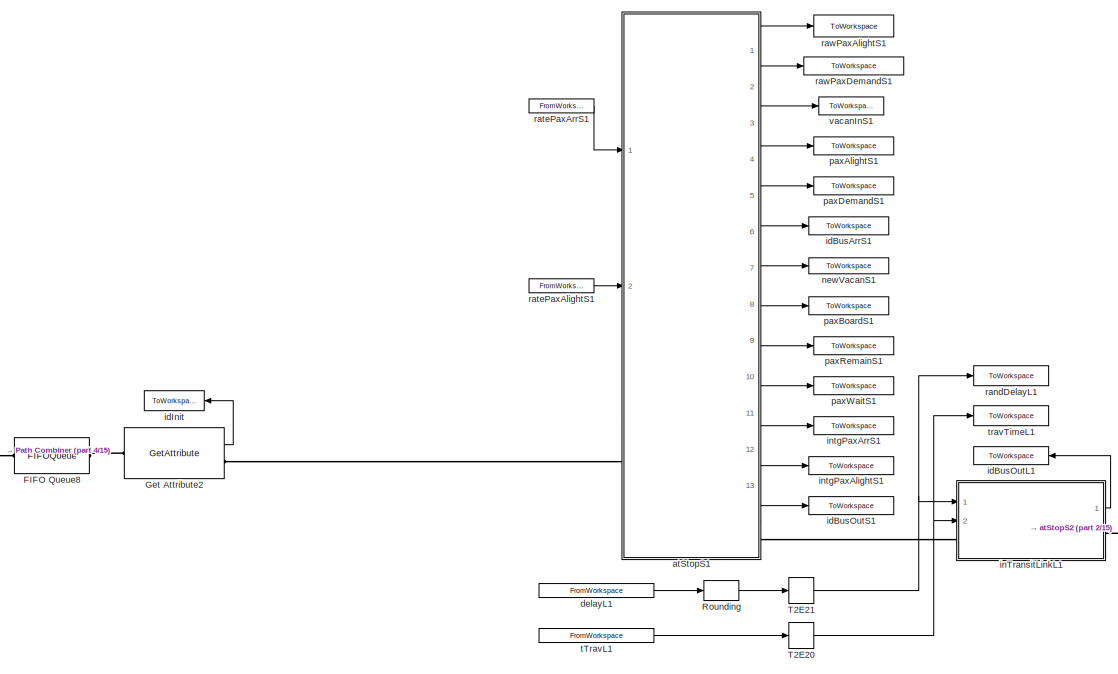
[diagram: root canvas - part 1/15, top left region]
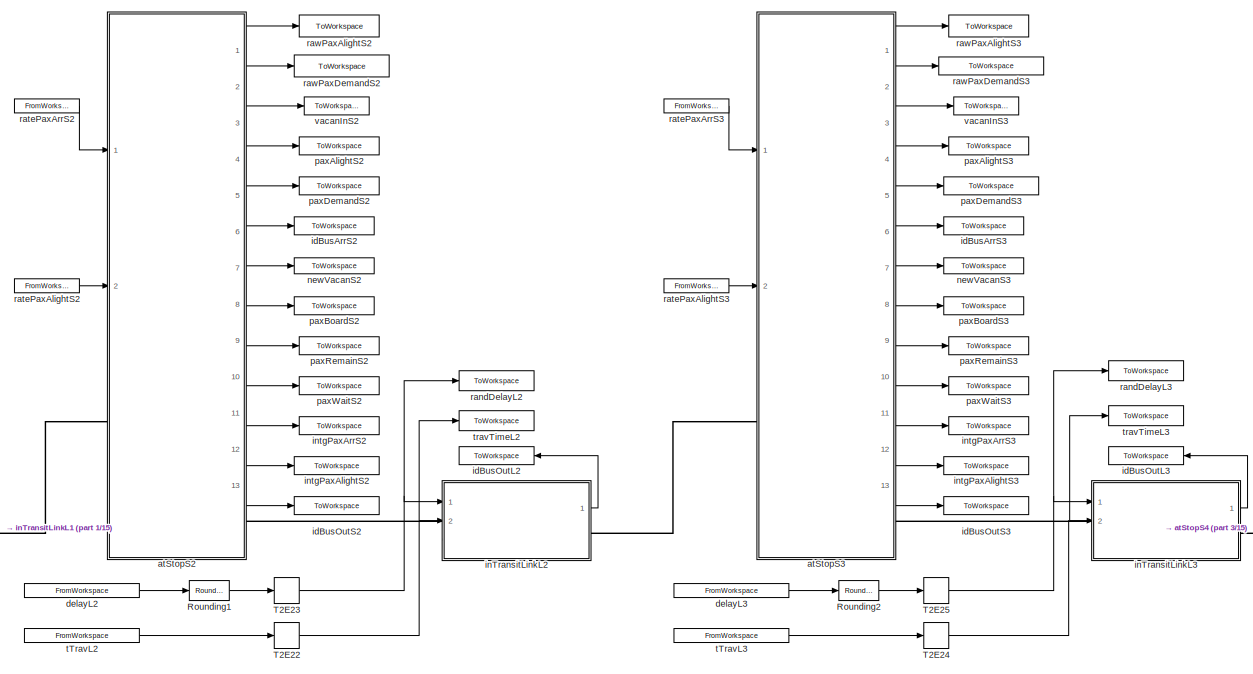
[diagram: root canvas - part 2/15, top center region]
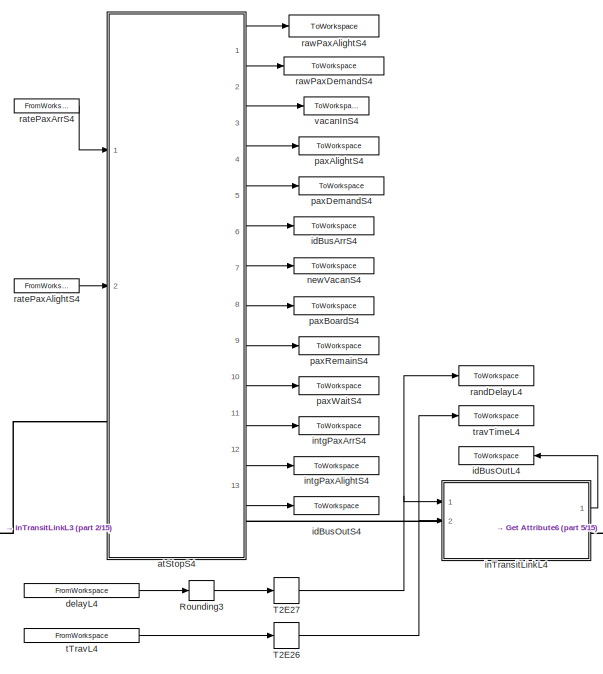
[diagram: root canvas - part 3/15, top right region]
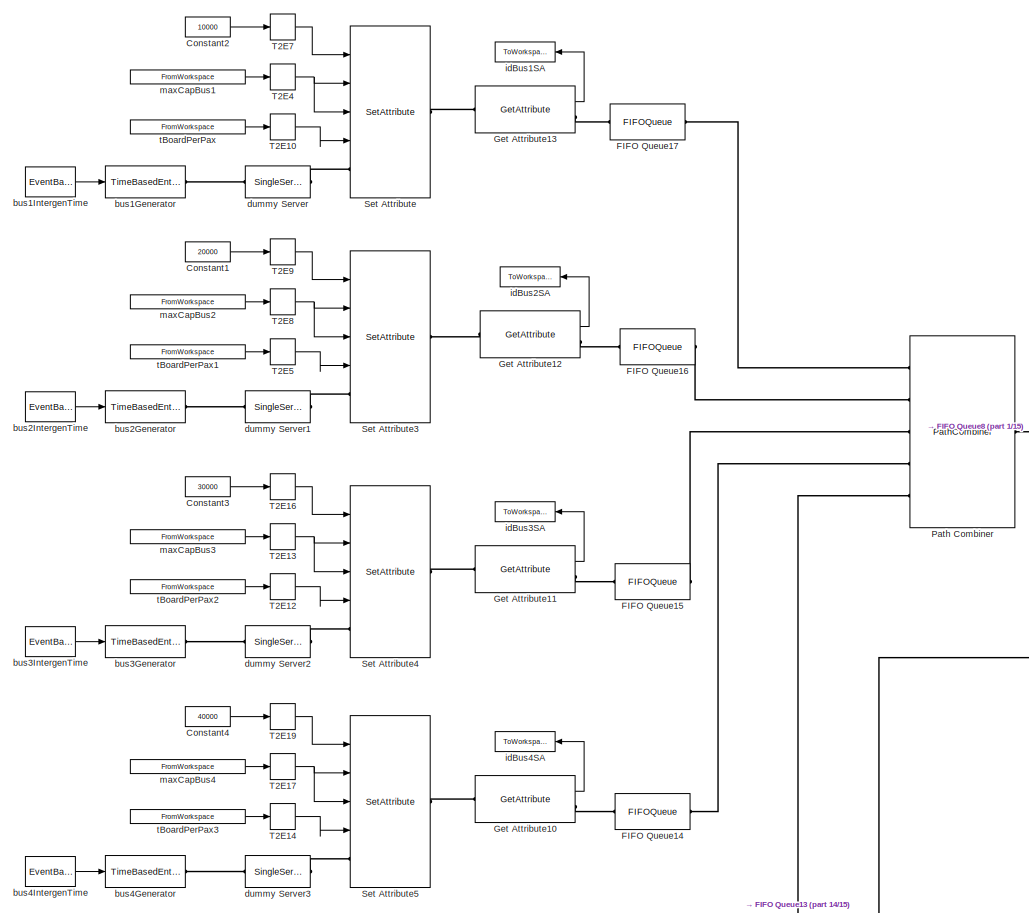
[diagram: root canvas - part 4/15, top left region]
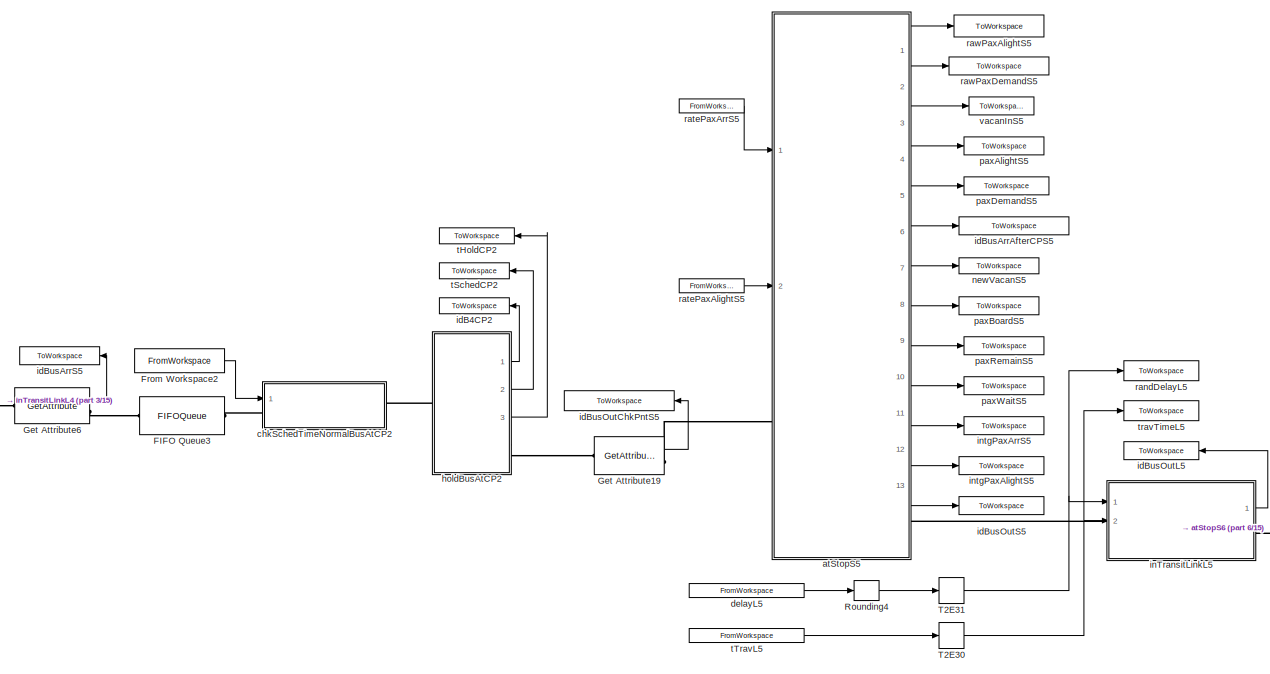
[diagram: root canvas - part 5/15, top left region]
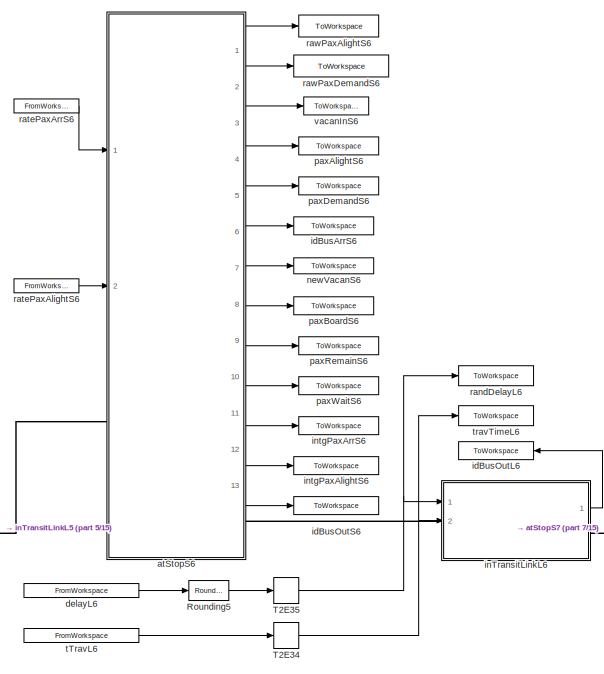
[diagram: root canvas - part 6/15, top center region]
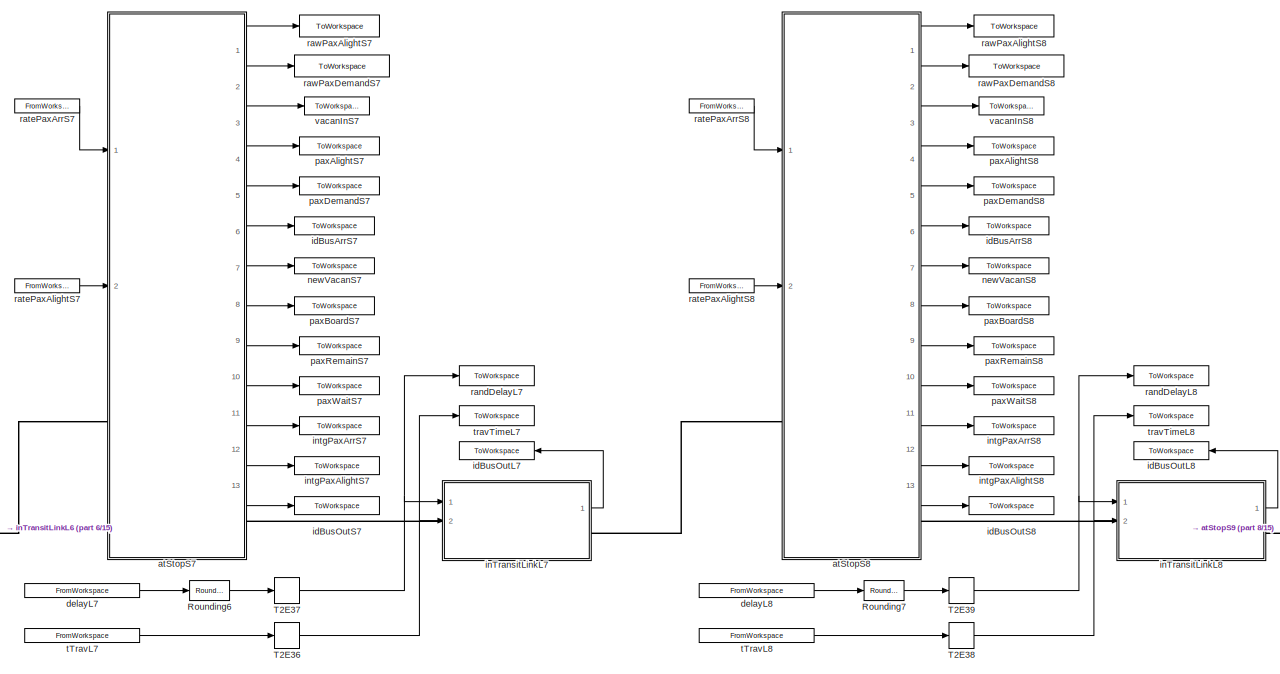
[diagram: root canvas - part 7/15, top center region]
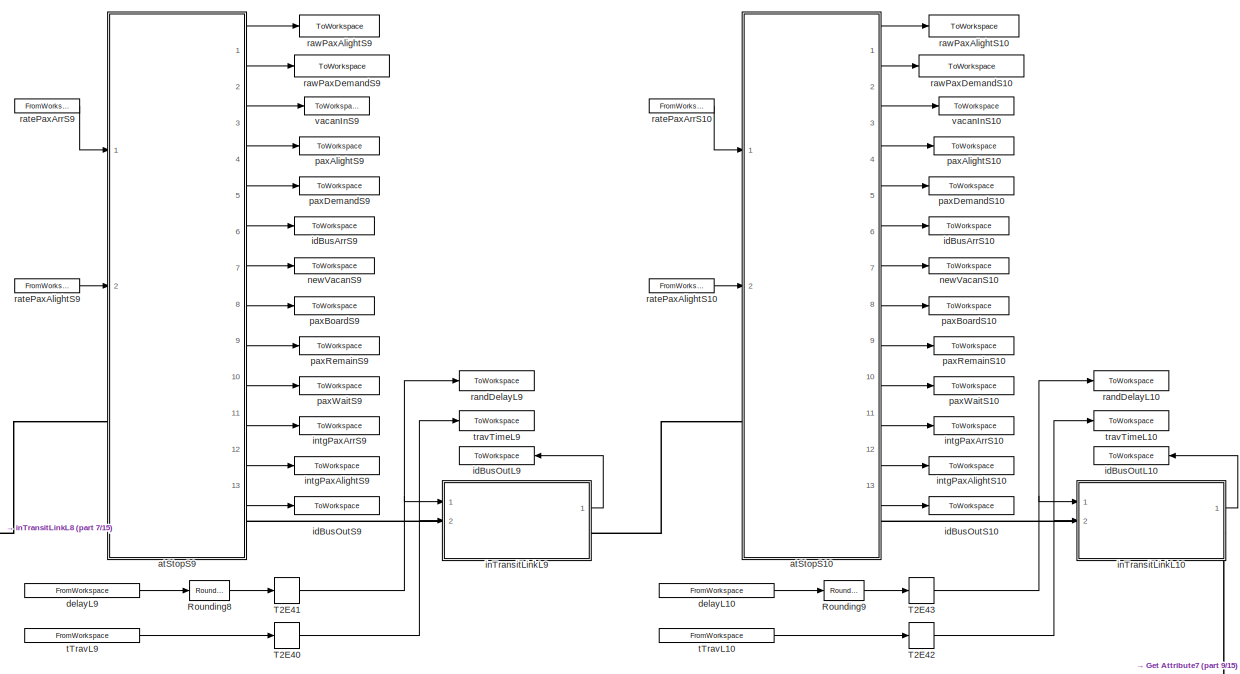
[diagram: root canvas - part 8/15, top right region]
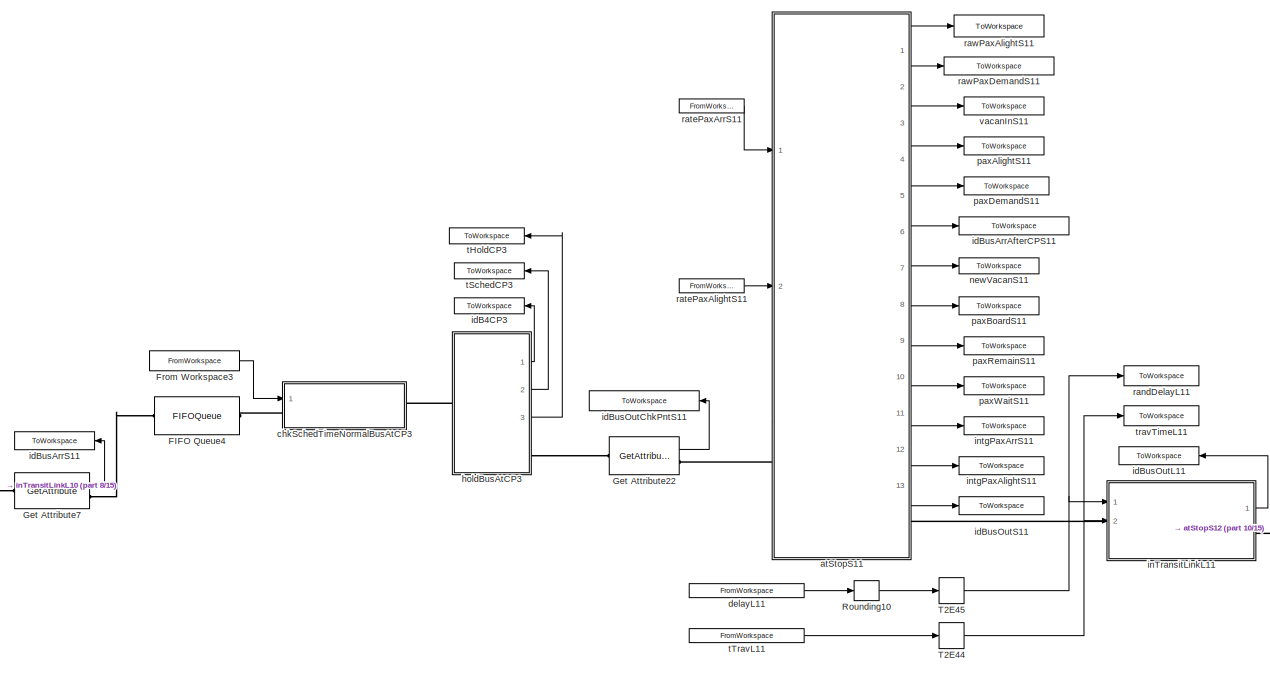
[diagram: root canvas - part 9/15, middle left region]
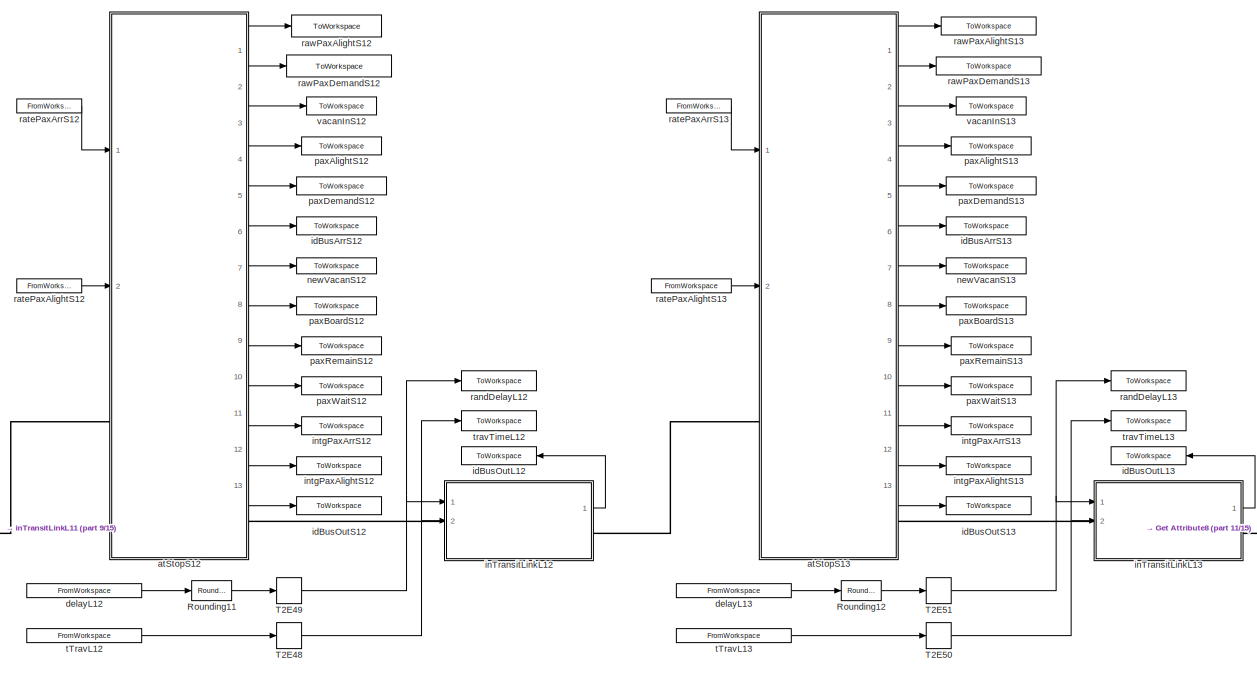
[diagram: root canvas - part 10/15, central region]
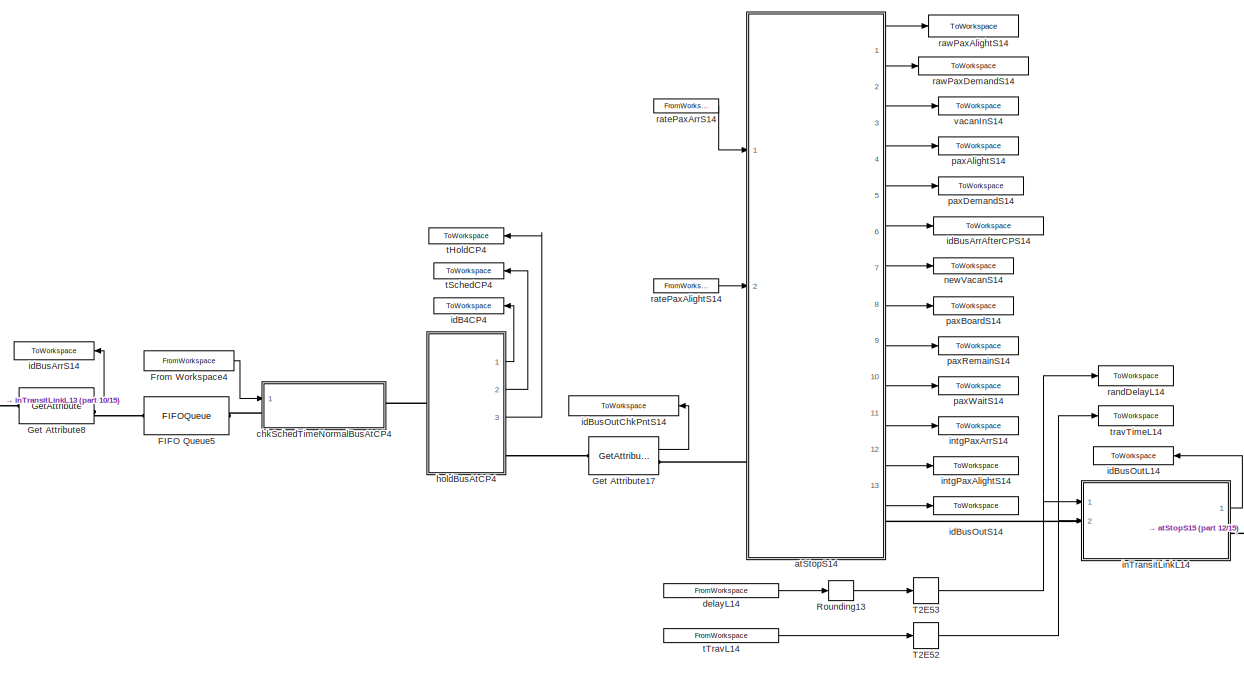
[diagram: root canvas - part 11/15, bottom left region]
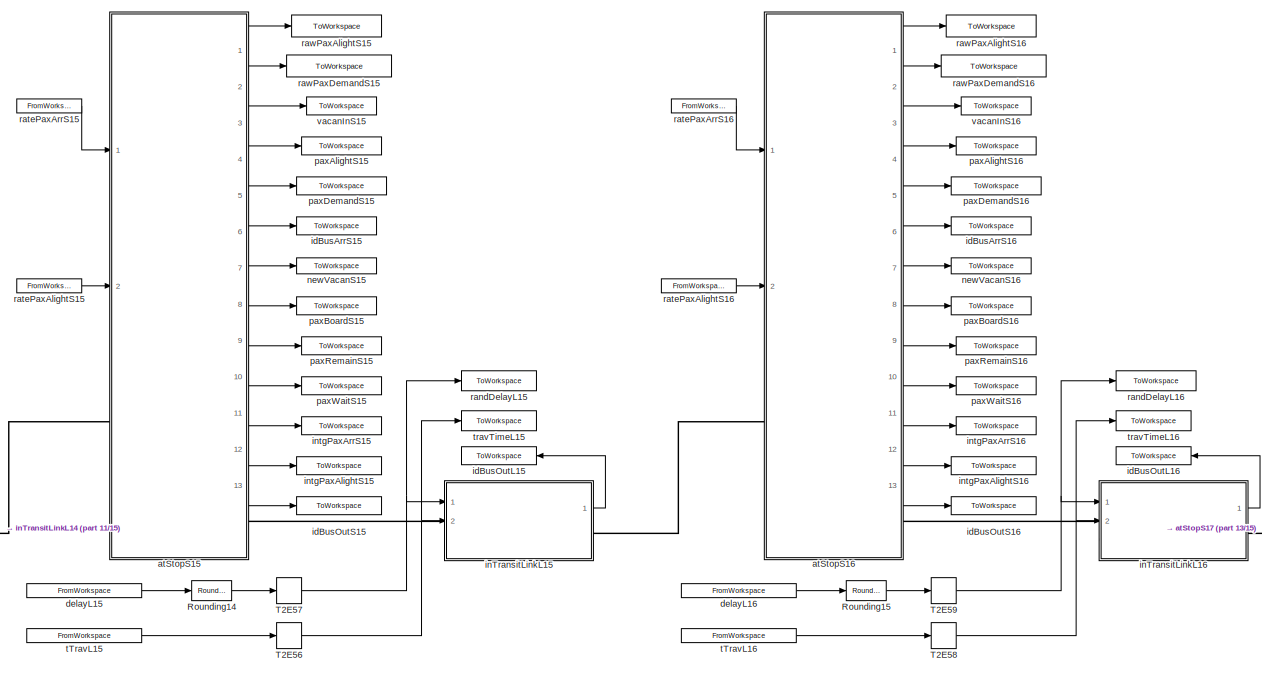
[diagram: root canvas - part 12/15, bottom center region]
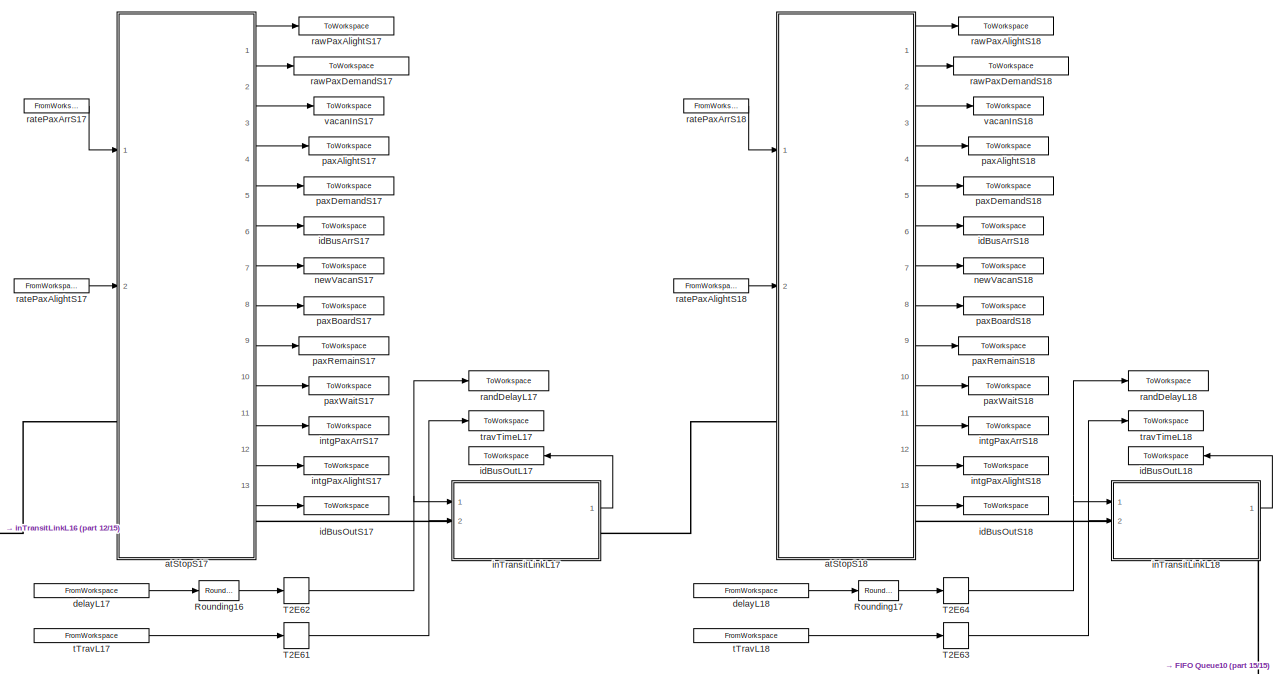
[diagram: root canvas - part 13/15, bottom right region]
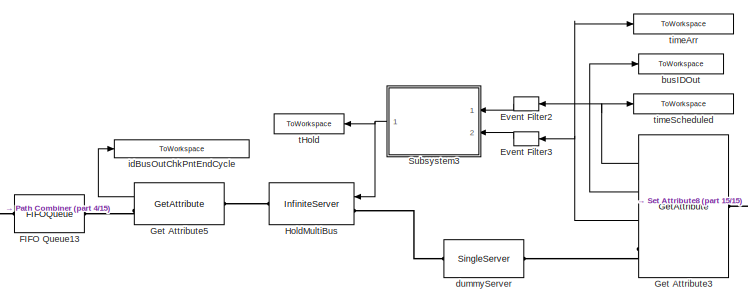
[diagram: root canvas - part 14/15, bottom center region]
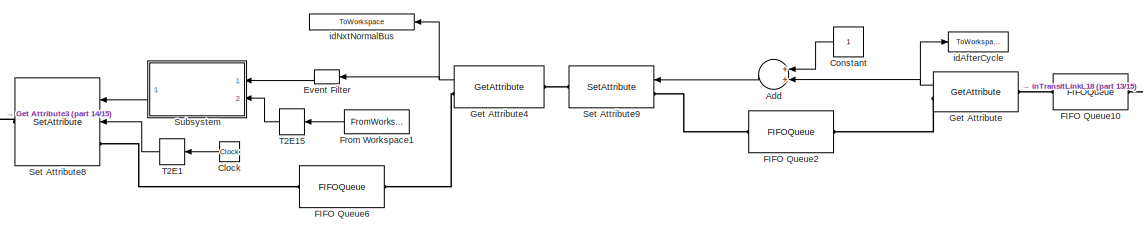
[diagram: root canvas - part 15/15, bottom center region]
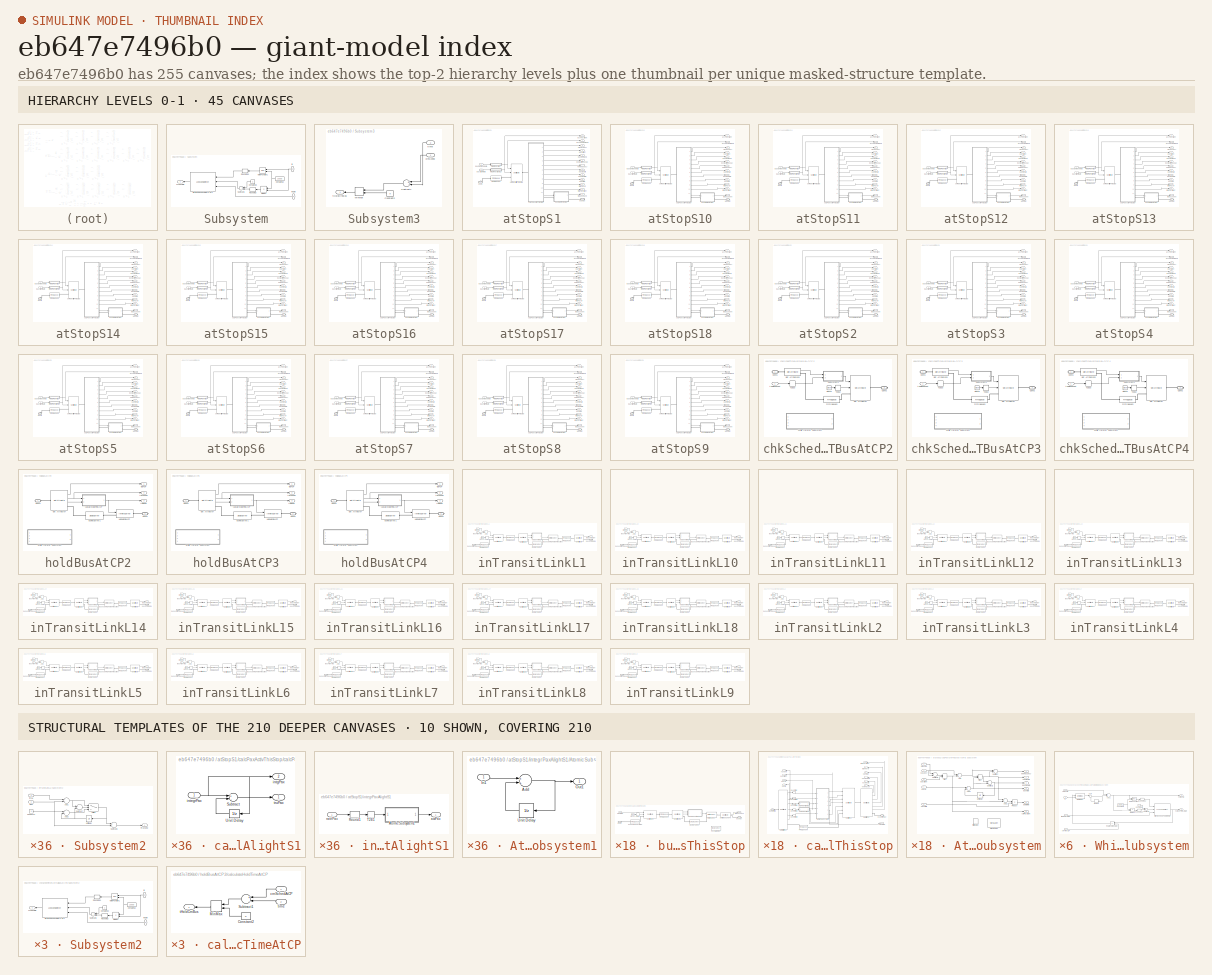
[diagram: thumbnail index - top-2 hierarchy levels (45 canvases) + 10 structural-template representatives of the remaining 210 canvases]
MODEL slx_eb647e7496b0
KIND model
CONFIG AbsTol = auto
CONFIG FixedStep = 1
CONFIG MaxStep = auto
CONFIG MinStep = auto
CONFIG PreLoadFcn = loadTimetable
CONFIG RelTol = 1e-3
CONFIG SampleTimeConstraint = Unconstrained
CONFIG Solver = FixedStepDiscrete
CONFIG SolverMode = Auto
CONFIG SolverName = FixedStepDiscrete
CONFIG StartTime = 0.0
CONFIG StopFcn = postProcess
CONFIG StopTime = 36000
BLOCK [Sum] Add
  InputSameDT = off
  OutDataTypeStr = Inherit: Inherit via internal rule
  Ports = [2, 1]
  SaturateOnIntegerOverflow = off
BLOCK [Clock] Clock
BLOCK [Constant] Constant
BLOCK [Constant] Constant1
  Value = 20000
BLOCK [Constant] Constant2
  Value = 10000
BLOCK [Constant] Constant3
  Value = 30000
BLOCK [Constant] Constant4
  Value = 40000
BLOCK [EventFilter] Event Filter
  ExecuteSubsystem = Upon sample time hit
  InputPortMap = u0
  OutputPortMap = o0
  Ports = [1, 1]
  SignalEdgeType = Rising
BLOCK [EventFilter] Event Filter2
  ExecuteSubsystem = Upon sample time hit
  InputPortMap = u0
  OutputPortMap = o0
  Ports = [1, 1]
  SignalEdgeType = Rising
BLOCK [EventFilter] Event Filter3
  ExecuteSubsystem = Upon sample time hit
  InputPortMap = u0
  OutputPortMap = o0
  Ports = [1, 1]
  SignalEdgeType = Rising
BLOCK [FIFOQueue] FIFO Queue10
  Ports = [0, 0, 0, 0, 0, 1, 1]
BLOCK [FIFOQueue] FIFO Queue13
  Ports = [0, 0, 0, 0, 0, 1, 1]
BLOCK [FIFOQueue] FIFO Queue14
  Ports = [0, 0, 0, 0, 0, 1, 1]
BLOCK [FIFOQueue] FIFO Queue15
  Ports = [0, 0, 0, 0, 0, 1, 1]
BLOCK [FIFOQueue] FIFO Queue16
  Ports = [0, 0, 0, 0, 0, 1, 1]
BLOCK [FIFOQueue] FIFO Queue17
  Ports = [0, 0, 0, 0, 0, 1, 1]
BLOCK [FIFOQueue] FIFO Queue2
  Ports = [0, 0, 0, 0, 0, 1, 1]
BLOCK [FIFOQueue] FIFO Queue3
  Ports = [0, 0, 0, 0, 0, 1, 1]
BLOCK [FIFOQueue] FIFO Queue4
  Ports = [0, 0, 0, 0, 0, 1, 1]
BLOCK [FIFOQueue] FIFO Queue5
  Ports = [0, 0, 0, 0, 0, 1, 1]
BLOCK [FIFOQueue] FIFO Queue6
  Ports = [0, 0, 0, 0, 0, 1, 1]
BLOCK [FIFOQueue] FIFO Queue8
  Ports = [0, 0, 0, 0, 0, 1, 1]
BLOCK [FromWorkspace] From Workspace1
  Interpolate = off
  OutputAfterFinalValue = Holding final value
  VariableName = timetable
  ZeroCross = on
BLOCK [FromWorkspace] From Workspace2
  Interpolate = off
  OutputAfterFinalValue = Holding final value
  VariableName = timetblChkPnt2
  ZeroCross = on
BLOCK [FromWorkspace] From Workspace3
  Interpolate = off
  OutputAfterFinalValue = Holding final value
  VariableName = timetblChkPnt3
  ZeroCross = on
BLOCK [FromWorkspace] From Workspace4
  Interpolate = off
  OutputAfterFinalValue = Holding final value
  VariableName = timetblChkPnt4
  ZeroCross = on
BLOCK [GetAttribute] Get Attribute
  AttributeName = ID
  EvaluatedDefaultAttributeValue = { []}
  OutputPortMap = o1
  Ports = [0, 1, 0, 0, 0, 1, 1]
BLOCK [GetAttribute] Get Attribute10
  AttributeName = ID
  EvaluatedDefaultAttributeValue = { []}
  OutputPortMap = o1
  Ports = [0, 1, 0, 0, 0, 1, 1]
BLOCK [GetAttribute] Get Attribute11
  AttributeName = ID
  EvaluatedDefaultAttributeValue = { []}
  OutputPortMap = o1
  Ports = [0, 1, 0, 0, 0, 1, 1]
BLOCK [GetAttribute] Get Attribute12
  AttributeName = ID
  EvaluatedDefaultAttributeValue = { []}
  OutputPortMap = o1
  Ports = [0, 1, 0, 0, 0, 1, 1]
BLOCK [GetAttribute] Get Attribute13
  AttributeName = ID
  EvaluatedDefaultAttributeValue = { []}
  OutputPortMap = o1
  Ports = [0, 1, 0, 0, 0, 1, 1]
BLOCK [GetAttribute] Get Attribute17
  AttributeName = ID
  EvaluatedDefaultAttributeValue = { []}
  OutputPortMap = o1
  Ports = [0, 1, 0, 0, 0, 1, 1]
BLOCK [GetAttribute] Get Attribute19
  AttributeName = ID
  EvaluatedDefaultAttributeValue = { []}
  OutputPortMap = o1
  Ports = [0, 1, 0, 0, 0, 1, 1]
BLOCK [GetAttribute] Get Attribute2
  AttributeName = ID
  EvaluatedDefaultAttributeValue = { []}
  OutputPortMap = o1
  Ports = [0, 1, 0, 0, 0, 1, 1]
BLOCK [GetAttribute] Get Attribute22
  AttributeName = ID
  EvaluatedDefaultAttributeValue = { []}
  OutputPortMap = o1
  Ports = [0, 1, 0, 0, 0, 1, 1]
BLOCK [GetAttribute] Get Attribute3
  AttributeDefaultValue = 1|1|1
  AttributeMissing = Error|Error|Error
  AttributeName = tSched|ID|time
  AttributeSendTiming = After entity departure|After entity departure|After entity departure
  AttributeTreatAsVector = 1|1|1
  EvaluatedDefaultAttributeValue = { []; []; []}
  OutputPortMap = o1,o2,o3
  Ports = [0, 3, 0, 0, 0, 1, 1]
BLOCK [GetAttribute] Get Attribute4
  AttributeName = ID
  EvaluatedDefaultAttributeValue = { []}
  OutputPortMap = o1
  Ports = [0, 1, 0, 0, 0, 1, 1]
BLOCK [GetAttribute] Get Attribute5
  AttributeName = ID
  EvaluatedDefaultAttributeValue = { []}
  OutputPortMap = o1
  Ports = [0, 1, 0, 0, 0, 1, 1]
BLOCK [GetAttribute] Get Attribute6
  AttributeName = ID
  EvaluatedDefaultAttributeValue = { []}
  OutputPortMap = o1
  Ports = [0, 1, 0, 0, 0, 1, 1]
BLOCK [GetAttribute] Get Attribute7
  AttributeName = ID
  EvaluatedDefaultAttributeValue = { []}
  OutputPortMap = o1
  Ports = [0, 1, 0, 0, 0, 1, 1]
BLOCK [GetAttribute] Get Attribute8
  AttributeName = ID
  EvaluatedDefaultAttributeValue = { []}
  OutputPortMap = o1
  Ports = [0, 1, 0, 0, 0, 1, 1]
BLOCK [InfiniteServer] HoldMultiBus
  InputPortMap = u0
  Ports = [1, 0, 0, 0, 0, 1, 1]
  ServiceTimeFrom = Signal port t
BLOCK [PathCombiner] Path Combiner
  NumberInputPorts = 5
  Ports = [0, 0, 0, 0, 0, 5, 1]
BLOCK [Rounding] Rounding
  Operator = round
BLOCK [Rounding] Rounding1
  Operator = round
BLOCK [Rounding] Rounding10
  Operator = round
BLOCK [Rounding] Rounding11
  Operator = round
BLOCK [Rounding] Rounding12
  Operator = round
BLOCK [Rounding] Rounding13
  Operator = round
BLOCK [Rounding] Rounding14
  Operator = round
BLOCK [Rounding] Rounding15
  Operator = round
BLOCK [Rounding] Rounding16
  Operator = round
BLOCK [Rounding] Rounding17
  Operator = round
BLOCK [Rounding] Rounding2
  Operator = round
BLOCK [Rounding] Rounding3
  Operator = round
BLOCK [Rounding] Rounding4
  Operator = round
BLOCK [Rounding] Rounding5
  Operator = round
BLOCK [Rounding] Rounding6
  Operator = round
BLOCK [Rounding] Rounding7
  Operator = round
BLOCK [Rounding] Rounding8
  Operator = round
BLOCK [Rounding] Rounding9
  Operator = round
BLOCK [SetAttribute] Set Attribute
  AttributeFrom = Signal port|Signal port|Signal port|Signal port
  AttributeName = ID|maxCap|vacancy|sec2Brd
  AttributeTreatAsVector = 1|1|1|1
  AttributeValue = 1|1|1|1
  EvaluatedAttributeValue = { []; []; []; [] }
  InputPortMap = u0,u1,u2,u3
  Ports = [4, 0, 0, 0, 0, 1, 1]
BLOCK [SetAttribute] Set Attribute3
  AttributeFrom = Signal port|Signal port|Signal port|Signal port
  AttributeName = ID|maxCap|vacancy|sec2Brd
  AttributeTreatAsVector = 1|1|1|1
  AttributeValue = 1|1|1|1
  EvaluatedAttributeValue = { []; []; []; [] }
  InputPortMap = u0,u1,u2,u3
  Ports = [4, 0, 0, 0, 0, 1, 1]
BLOCK [SetAttribute] Set Attribute4
  AttributeFrom = Signal port|Signal port|Signal port|Signal port
  AttributeName = ID|maxCap|vacancy|sec2Brd
  AttributeTreatAsVector = 1|1|1|1
  AttributeValue = 1|1|1|1
  EvaluatedAttributeValue = { []; []; []; [] }
  InputPortMap = u0,u1,u2,u3
  Ports = [4, 0, 0, 0, 0, 1, 1]
BLOCK [SetAttribute] Set Attribute5
  AttributeFrom = Signal port|Signal port|Signal port|Signal port
  AttributeName = ID|maxCap|vacancy|sec2Brd
  AttributeTreatAsVector = 1|1|1|1
  AttributeValue = 1|1|1|1
  EvaluatedAttributeValue = { []; []; []; [] }
  InputPortMap = u0,u1,u2,u3
  Ports = [4, 0, 0, 0, 0, 1, 1]
BLOCK [SetAttribute] Set Attribute8
  AttributeFrom = Signal port|Signal port
  AttributeName = tSched|time
  AttributeTreatAsVector = 1|1
  AttributeValue = 1|1
  EvaluatedAttributeValue = { []; [] }
  InputPortMap = u0,u1
  Ports = [2, 0, 0, 0, 0, 1, 1]
BLOCK [SetAttribute] Set Attribute9
  AttributeFrom = Signal port
  AttributeName = ID
  EvaluatedAttributeValue = { [] }
  InputPortMap = u0
  Ports = [1, 0, 0, 0, 0, 1, 1]
BLOCK [SubSystem] Subsystem
  MinAlgLoopOccurrences = on
  Ports = [2, 1]
  RequestExecContextInheritance = off
  TreatAsAtomicUnit = on
BLOCK [Constant] Subsystem/Constant12
  Value = 10000
BLOCK [Constant] Subsystem/Constant13
BLOCK [LookupNDDirect] Subsystem/Direct Lookup Table (n-D)1
  Ports = [3, 1]
  TableIsInput = on
BLOCK [Product] Subsystem/Divide1
  InputSameDT = off
  Inputs = /*
  OutDataTypeStr = Inherit: Inherit via internal rule
  Ports = [2, 1]
  RndMeth = Floor
  SaturateOnIntegerOverflow = off
BLOCK [Inport] Subsystem/ID
  IconDisplay = Port number
BLOCK [Math] Subsystem/Math Function1
  Operator = mod
  Ports = [2, 1]
BLOCK [Rounding] Subsystem/Rounding
  Operator = round
BLOCK [Rounding] Subsystem/Rounding1
  Operator = round
BLOCK [Sum] Subsystem/Subtract1
  InputSameDT = off
  Inputs = -+
  OutDataTypeStr = Inherit: Inherit via internal rule
  Ports = [2, 1]
  SaturateOnIntegerOverflow = off
BLOCK [Outport] Subsystem/schedTime
  IconDisplay = Port number
BLOCK [Inport] Subsystem/tTable
  IconDisplay = Port number
  Port = 2
BLOCK [SubSystem] Subsystem3
  Ports = [2, 1]
  RequestExecContextInheritance = off
  TreatAsAtomicUnit = on
BLOCK [Constant] Subsystem3/Constant2
  Value = 0
BLOCK [MinMax] Subsystem3/MinMax
  Function = max
  InputSameDT = off
  Inputs = 2
  Ports = [2, 1]
  SaturateOnIntegerOverflow = off
BLOCK [Sum] Subsystem3/Subtract1
  InputSameDT = off
  Inputs = +-
  OutDataTypeStr = Inherit: Inherit via internal rule
  Ports = [2, 1]
  SaturateOnIntegerOverflow = off
BLOCK [Inport] Subsystem3/crnSched
  IconDisplay = Port number
BLOCK [Outport] Subsystem3/tHoldCrnBus
  IconDisplay = Port number
BLOCK [Inport] Subsystem3/time
  IconDisplay = Port number
  Port = 2
BLOCK [TimedToEventSignal] T2E1
  InputPortMap = u0
  OutputPortMap = o0
  Ports = [1, 1]
BLOCK [TimedToEventSignal] T2E10
  InputPortMap = u0
  OutputPortMap = o0
  Ports = [1, 1]
BLOCK [TimedToEventSignal] T2E12
  InputPortMap = u0
  OutputPortMap = o0
  Ports = [1, 1]
BLOCK [TimedToEventSignal] T2E13
  InputPortMap = u0
  OutputPortMap = o0
  Ports = [1, 1]
BLOCK [TimedToEventSignal] T2E14
  InputPortMap = u0
  OutputPortMap = o0
  Ports = [1, 1]
BLOCK [TimedToEventSignal] T2E15
  InputPortMap = u0
  OutputPortMap = o0
  Ports = [1, 1]
BLOCK [TimedToEventSignal] T2E16
  InputPortMap = u0
  OutputPortMap = o0
  Ports = [1, 1]
BLOCK [TimedToEventSignal] T2E17
  InputPortMap = u0
  OutputPortMap = o0
  Ports = [1, 1]
BLOCK [TimedToEventSignal] T2E19
  InputPortMap = u0
  OutputPortMap = o0
  Ports = [1, 1]
BLOCK [TimedToEventSignal] T2E20
  InputPortMap = u0
  OutputPortMap = o0
  Ports = [1, 1]
BLOCK [TimedToEventSignal] T2E21
  InputPortMap = u0
  OutputPortMap = o0
  Ports = [1, 1]
BLOCK [TimedToEventSignal] T2E22
  InputPortMap = u0
  OutputPortMap = o0
  Ports = [1, 1]
BLOCK [TimedToEventSignal] T2E23
  InputPortMap = u0
  OutputPortMap = o0
  Ports = [1, 1]
BLOCK [TimedToEventSignal] T2E24
  InputPortMap = u0
  OutputPortMap = o0
  Ports = [1, 1]
BLOCK [TimedToEventSignal] T2E25
  InputPortMap = u0
  OutputPortMap = o0
  Ports = [1, 1]
BLOCK [TimedToEventSignal] T2E26
  InputPortMap = u0
  OutputPortMap = o0
  Ports = [1, 1]
BLOCK [TimedToEventSignal] T2E27
  InputPortMap = u0
  OutputPortMap = o0
  Ports = [1, 1]
BLOCK [TimedToEventSignal] T2E30
  InputPortMap = u0
  OutputPortMap = o0
  Ports = [1, 1]
BLOCK [TimedToEventSignal] T2E31
  InputPortMap = u0
  OutputPortMap = o0
  Ports = [1, 1]
BLOCK [TimedToEventSignal] T2E34
  InputPortMap = u0
  OutputPortMap = o0
  Ports = [1, 1]
BLOCK [TimedToEventSignal] T2E35
  InputPortMap = u0
  OutputPortMap = o0
  Ports = [1, 1]
BLOCK [TimedToEventSignal] T2E36
  InputPortMap = u0
  OutputPortMap = o0
  Ports = [1, 1]
BLOCK [TimedToEventSignal] T2E37
  InputPortMap = u0
  OutputPortMap = o0
  Ports = [1, 1]
BLOCK [TimedToEventSignal] T2E38
  InputPortMap = u0
  OutputPortMap = o0
  Ports = [1, 1]
BLOCK [TimedToEventSignal] T2E39
  InputPortMap = u0
  OutputPortMap = o0
  Ports = [1, 1]
BLOCK [TimedToEventSignal] T2E4
  InputPortMap = u0
  OutputPortMap = o0
  Ports = [1, 1]
BLOCK [TimedToEventSignal] T2E40
  InputPortMap = u0
  OutputPortMap = o0
  Ports = [1, 1]
BLOCK [TimedToEventSignal] T2E41
  InputPortMap = u0
  OutputPortMap = o0
  Ports = [1, 1]
BLOCK [TimedToEventSignal] T2E42
  InputPortMap = u0
  OutputPortMap = o0
  Ports = [1, 1]
BLOCK [TimedToEventSignal] T2E43
  InputPortMap = u0
  OutputPortMap = o0
  Ports = [1, 1]
BLOCK [TimedToEventSignal] T2E44
  InputPortMap = u0
  OutputPortMap = o0
  Ports = [1, 1]
BLOCK [TimedToEventSignal] T2E45
  InputPortMap = u0
  OutputPortMap = o0
  Ports = [1, 1]
BLOCK [TimedToEventSignal] T2E48
  InputPortMap = u0
  OutputPortMap = o0
  Ports = [1, 1]
BLOCK [TimedToEventSignal] T2E49
  InputPortMap = u0
  OutputPortMap = o0
  Ports = [1, 1]
BLOCK [TimedToEventSignal] T2E5
  InputPortMap = u0
  OutputPortMap = o0
  Ports = [1, 1]
BLOCK [TimedToEventSignal] T2E50
  InputPortMap = u0
  OutputPortMap = o0
  Ports = [1, 1]
BLOCK [TimedToEventSignal] T2E51
  InputPortMap = u0
  OutputPortMap = o0
  Ports = [1, 1]
BLOCK [TimedToEventSignal] T2E52
  InputPortMap = u0
  OutputPortMap = o0
  Ports = [1, 1]
BLOCK [TimedToEventSignal] T2E53
  InputPortMap = u0
  OutputPortMap = o0
  Ports = [1, 1]
BLOCK [TimedToEventSignal] T2E56
  InputPortMap = u0
  OutputPortMap = o0
  Ports = [1, 1]
BLOCK [TimedToEventSignal] T2E57
  InputPortMap = u0
  OutputPortMap = o0
  Ports = [1, 1]
BLOCK [TimedToEventSignal] T2E58
  InputPortMap = u0
  OutputPortMap = o0
  Ports = [1, 1]
BLOCK [TimedToEventSignal] T2E59
  InputPortMap = u0
  OutputPortMap = o0
  Ports = [1, 1]
BLOCK [TimedToEventSignal] T2E61
  InputPortMap = u0
  OutputPortMap = o0
  Ports = [1, 1]
BLOCK [TimedToEventSignal] T2E62
  InputPortMap = u0
  OutputPortMap = o0
  Ports = [1, 1]
BLOCK [TimedToEventSignal] T2E63
  InputPortMap = u0
  OutputPortMap = o0
  Ports = [1, 1]
BLOCK [TimedToEventSignal] T2E64
  InputPortMap = u0
  OutputPortMap = o0
  Ports = [1, 1]
BLOCK [TimedToEventSignal] T2E7
  InputPortMap = u0
  OutputPortMap = o0
  Ports = [1, 1]
BLOCK [TimedToEventSignal] T2E8
  InputPortMap = u0
  OutputPortMap = o0
  Ports = [1, 1]
BLOCK [TimedToEventSignal] T2E9
  InputPortMap = u0
  OutputPortMap = o0
  Ports = [1, 1]
BLOCK [SubSystem] atStopS1
  Ports = [2, 13, 0, 0, 0, 1, 1]
  RequestExecContextInheritance = off
BLOCK [FIFOQueue] atStopS1/FIFO Queue9
  Ports = [0, 0, 0, 0, 0, 1, 1]
BLOCK [Outport] atStopS1/accPaxAlight
  IconDisplay = Port number
BLOCK [Outport] atStopS1/accPaxDemand
  IconDisplay = Port number
  Port = 2
BLOCK [SubSystem] atStopS1/busDwellThisStop
  Ports = [1, 1, 0, 0, 0, 1, 1]
  RequestExecContextInheritance = off
BLOCK [Clock] atStopS1/busDwellThisStop/Clock2
BLOCK [SingleServer] atStopS1/busDwellThisStop/DummyServer
  Ports = [0, 0, 0, 0, 0, 1, 1]
  ServiceTime = 0
BLOCK [FIFOQueue] atStopS1/busDwellThisStop/FIFO Queue3
  Ports = [0, 0, 0, 0, 0, 1, 1]
BLOCK [GetAttribute] atStopS1/busDwellThisStop/Get Attribute5
  AttributeDefaultValue = 1|1
  AttributeMissing = Error|Error
  AttributeName = dwellTime|tStartSrvPax
  AttributeSendTiming = After entity departure|After entity departure
  AttributeTreatAsVector = 1|1
  EvaluatedDefaultAttributeValue = { []; []}
  OutputPortMap = o1,o2
  Ports = [0, 2, 0, 0, 0, 1, 1]
BLOCK [InfiniteServer] atStopS1/busDwellThisStop/Infinite Server
  InputPortMap = u0
  Ports = [1, 0, 0, 0, 0, 1, 1]
  ServiceTimeFrom = Signal port t
BLOCK [SetAttribute] atStopS1/busDwellThisStop/Set Attribute3
  AttributeFrom = Signal port|Signal port
  AttributeName = dwellTime|tStartSrvPax
  AttributeTreatAsVector = 1|1
  AttributeValue = 1|1
  EvaluatedAttributeValue = { []; [] }
  InputPortMap = u0,u1
  Ports = [2, 0, 0, 0, 0, 1, 1]
BLOCK [SubSystem] atStopS1/busDwellThisStop/Subsystem2
  Ports = [2, 1]
  RequestExecContextInheritance = off
  TreatAsAtomicUnit = on
BLOCK [Sum] atStopS1/busDwellThisStop/Subsystem2/Add1
  InputSameDT = off
  OutDataTypeStr = Inherit: Inherit via internal rule
  Ports = [2, 1]
  SaturateOnIntegerOverflow = off
BLOCK [Sum] atStopS1/busDwellThisStop/Subsystem2/Add2
  InputSameDT = off
  OutDataTypeStr = Inherit: Inherit via internal rule
  Ports = [2, 1]
  SaturateOnIntegerOverflow = off
BLOCK [Sum] atStopS1/busDwellThisStop/Subsystem2/Subtract
  InputSameDT = off
  Inputs = +-
  OutDataTypeStr = Inherit: Inherit via internal rule
  Ports = [2, 1]
  SaturateOnIntegerOverflow = off
BLOCK [Sum] atStopS1/busDwellThisStop/Subsystem2/Subtract1
  InputSameDT = off
  Inputs = +-
  OutDataTypeStr = Inherit: Inherit via internal rule
  Ports = [2, 1]
  SaturateOnIntegerOverflow = off
BLOCK [Switch] atStopS1/busDwellThisStop/Subsystem2/Switch
  Criteria = u2 > Threshold
  InputSameDT = off
  SaturateOnIntegerOverflow = off
BLOCK [UnitDelay] atStopS1/busDwellThisStop/Subsystem2/Unit Delay
  InputProcessing = Elements as channels (sample based)
  SampleTime = -1
BLOCK [Inport] atStopS1/busDwellThisStop/Subsystem2/dwellTime
  IconDisplay = Port number
BLOCK [Outport] atStopS1/busDwellThisStop/Subsystem2/dwellTimeNew
  IconDisplay = Port number
BLOCK [Constant] atStopS1/busDwellThisStop/Subsystem2/headWay
  Value = 3
BLOCK [Inport] atStopS1/busDwellThisStop/Subsystem2/tStartSrvPax
  IconDisplay = Port number
  Port = 2
BLOCK [TimedToEventSignal] atStopS1/busDwellThisStop/T2E4
  InputPortMap = u0
  OutputPortMap = o0
  Ports = [1, 1]
BLOCK [PMIOPort] atStopS1/busDwellThisStop/busIn
  Port = 2
  Side = Left
BLOCK [PMIOPort] atStopS1/busDwellThisStop/busOut
  Port = 1
  Side = Right
BLOCK [SingleServer] atStopS1/busDwellThisStop/busWaitAtStop
  Commented = on
  InputPortMap = u0
  Ports = [1, 0, 0, 0, 0, 1, 1]
  ServiceTimeFrom = Signal port t
BLOCK [FIFOQueue] atStopS1/busDwellThisStop/busesQueueAtStop
  Ports = [0, 0, 0, 0, 0, 1, 1]
BLOCK [Inport] atStopS1/busDwellThisStop/dwellTime
  IconDisplay = Port number
BLOCK [GetAttribute] atStopS1/busDwellThisStop/getIDBusLeave
  AttributeName = ID
  EvaluatedDefaultAttributeValue = { []}
  OutputPortMap = o1
  Ports = [0, 1, 0, 0, 0, 1, 1]
BLOCK [Outport] atStopS1/busDwellThisStop/idBusLeave
  IconDisplay = Port number
BLOCK [Outport] atStopS1/busIDAfterPaxCal
  IconDisplay = Port number
  Port = 6
BLOCK [PMIOPort] atStopS1/busIn
  Port = 1
  Side = Left
BLOCK [PMIOPort] atStopS1/busOut
  Port = 2
  Side = Right
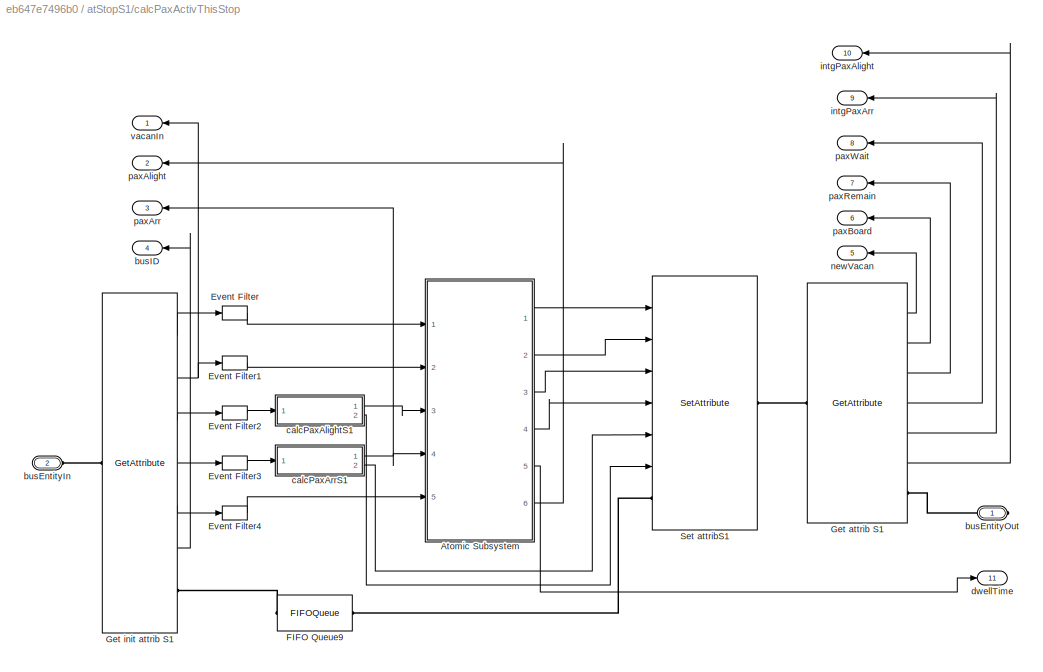
BLOCK [SubSystem] atStopS1/calcPaxActivThisStop
  Ports = [0, 11, 0, 0, 0, 1, 1]
  RequestExecContextInheritance = off
BLOCK [SubSystem] atStopS1/calcPaxActivThisStop/Atomic Subsystem
  Ports = [5, 6]
  RequestExecContextInheritance = off
  TreatAsAtomicUnit = on
BLOCK [Sum] atStopS1/calcPaxActivThisStop/Atomic Subsystem/Add
  InputSameDT = off
  OutDataTypeStr = Inherit: Inherit via internal rule
  Ports = [2, 1]
  SaturateOnIntegerOverflow = off
BLOCK [Sum] atStopS1/calcPaxActivThisStop/Atomic Subsystem/Add1
  InputSameDT = off
  OutDataTypeStr = Inherit: Inherit via internal rule
  Ports = [2, 1]
  SaturateOnIntegerOverflow = off
BLOCK [Sum] atStopS1/calcPaxActivThisStop/Atomic Subsystem/Add2
  InputSameDT = off
  OutDataTypeStr = Inherit: Inherit via internal rule
  Ports = [2, 1]
  SaturateOnIntegerOverflow = off
BLOCK [InitialValue] atStopS1/calcPaxActivThisStop/Atomic Subsystem/Initial Value
  Commented = on
  InitialValue = 0
  InputPortMap = u0
  OutputPortMap = o0
  Ports = [1, 1]
BLOCK [MinMax] atStopS1/calcPaxActivThisStop/Atomic Subsystem/Min1
  InputSameDT = off
  Inputs = 2
  Ports = [2, 1]
  SaturateOnIntegerOverflow = off
BLOCK [MinMax] atStopS1/calcPaxActivThisStop/Atomic Subsystem/Min2
  InputSameDT = off
  Inputs = 2
  Ports = [2, 1]
  SaturateOnIntegerOverflow = off
BLOCK [Product] atStopS1/calcPaxActivThisStop/Atomic Subsystem/Product
  InputSameDT = off
  OutDataTypeStr = Inherit: Inherit via internal rule
  Ports = [2, 1]
  RndMeth = Floor
  SaturateOnIntegerOverflow = off
BLOCK [SignalLatch] atStopS1/calcPaxActivThisStop/Atomic Subsystem/Signal Latch
  Commented = on
  InputPortMap = u0,u1,u2
  MemoryReadEdgeOption = Either
  MemoryWriteEdgeOption = Either
  OutputPortMap = o2
  Ports = [3, 1]
  SpecifyReadEventPriority = on
BLOCK [Sum] atStopS1/calcPaxActivThisStop/Atomic Subsystem/Subtract
  InputSameDT = off
  Inputs = +-
  OutDataTypeStr = Inherit: Inherit via internal rule
  Ports = [2, 1]
  SaturateOnIntegerOverflow = off
BLOCK [Sum] atStopS1/calcPaxActivThisStop/Atomic Subsystem/Subtract1
  InputSameDT = off
  Inputs = -+
  OutDataTypeStr = Inherit: Inherit via internal rule
  Ports = [2, 1]
  SaturateOnIntegerOverflow = off
BLOCK [Sum] atStopS1/calcPaxActivThisStop/Atomic Subsystem/Subtract2
  InputSameDT = off
  Inputs = +-
  OutDataTypeStr = Inherit: Inherit via internal rule
  Ports = [2, 1]
  SaturateOnIntegerOverflow = off
BLOCK [UnitDelay] atStopS1/calcPaxActivThisStop/Atomic Subsystem/Unit Delay
  InputProcessing = Elements as channels (sample based)
  SampleTime = -1
BLOCK [Outport] atStopS1/calcPaxActivThisStop/Atomic Subsystem/corrPaxAlight
  IconDisplay = Port number
  Port = 6
BLOCK [Outport] atStopS1/calcPaxActivThisStop/Atomic Subsystem/dwellTime
  IconDisplay = Port number
  Port = 5
BLOCK [Inport] atStopS1/calcPaxActivThisStop/Atomic Subsystem/maxCap
  IconDisplay = Port number
BLOCK [Outport] atStopS1/calcPaxActivThisStop/Atomic Subsystem/newVacancy
  IconDisplay = Port number
BLOCK [Inport] atStopS1/calcPaxActivThisStop/Atomic Subsystem/paxAlight
  IconDisplay = Port number
  Port = 3
BLOCK [Inport] atStopS1/calcPaxActivThisStop/Atomic Subsystem/paxArr
  IconDisplay = Port number
  Port = 4
BLOCK [Outport] atStopS1/calcPaxActivThisStop/Atomic Subsystem/paxBoard
  IconDisplay = Port number
  Port = 2
BLOCK [Outport] atStopS1/calcPaxActivThisStop/Atomic Subsystem/paxRemain
  IconDisplay = Port number
  Port = 3
BLOCK [Outport] atStopS1/calcPaxActivThisStop/Atomic Subsystem/paxWait
  IconDisplay = Port number
  Port = 4
BLOCK [Inport] atStopS1/calcPaxActivThisStop/Atomic Subsystem/sec2Brd
  IconDisplay = Port number
  Port = 5
BLOCK [Inport] atStopS1/calcPaxActivThisStop/Atomic Subsystem/vacancy
  IconDisplay = Port number
  Port = 2
BLOCK [EventFilter] atStopS1/calcPaxActivThisStop/Event Filter
  ExecuteSubsystem = Upon sample time hit
  InputPortMap = u0
  OutputPortMap = o0
  Ports = [1, 1]
  SignalEdgeType = Rising
BLOCK [EventFilter] atStopS1/calcPaxActivThisStop/Event Filter1
  ExecuteSubsystem = Upon sample time hit
  InputPortMap = u0
  OutputPortMap = o0
  Ports = [1, 1]
  SignalEdgeType = Rising
BLOCK [EventFilter] atStopS1/calcPaxActivThisStop/Event Filter2
  ExecuteSubsystem = Upon sample time hit
  InputPortMap = u0
  OutputPortMap = o0
  Ports = [1, 1]
  SignalEdgeType = Rising
BLOCK [EventFilter] atStopS1/calcPaxActivThisStop/Event Filter3
  ExecuteSubsystem = Upon sample time hit
  InputPortMap = u0
  OutputPortMap = o0
  Ports = [1, 1]
  SignalEdgeType = Rising
BLOCK [EventFilter] atStopS1/calcPaxActivThisStop/Event Filter4
  ExecuteSubsystem = Upon sample time hit
  InputPortMap = u0
  OutputPortMap = o0
  Ports = [1, 1]
  SignalEdgeType = Rising
BLOCK [FIFOQueue] atStopS1/calcPaxActivThisStop/FIFO Queue9
  Ports = [0, 0, 0, 0, 0, 1, 1]
BLOCK [GetAttribute] atStopS1/calcPaxActivThisStop/Get attrib S1
  AttributeDefaultValue = 1|1|1|1|1|1
  AttributeMissing = Error|Error|Error|Error|Error|Error
  AttributeName = vacancy|paxBoard|paxRemain|paxWait|intgPaxArr|intgPaxAlight
  AttributeSendTiming = After entity departure|After entity departure|After entity departure|After entity departure|After entity departure|After entity departure
  AttributeTreatAsVector = 1|1|1|1|1|1
  EvaluatedDefaultAttributeValue = { []; []; []; []; []; []}
  OutputPortMap = o1,o2,o3,o4,o5,o6
  Ports = [0, 6, 0, 0, 0, 1, 1]
BLOCK [GetAttribute] atStopS1/calcPaxActivThisStop/Get init attrib S1
  AttributeDefaultValue = 1|1|1|1|1|1
  AttributeMissing = Error|Error|Error|Error|Error|Error
  AttributeName = maxCap|vacancy|paxAlight|paxArr|sec2Brd|ID
  AttributeSendTiming = After entity departure|After entity departure|After entity departure|After entity departure|After entity departure|After entity departure
  AttributeTreatAsVector = 1|1|1|1|1|1
  EvaluatedDefaultAttributeValue = { []; []; []; []; []; []}
  OutputPortMap = o1,o2,o3,o4,o5,o6
  Ports = [0, 6, 0, 0, 0, 1, 1]
BLOCK [SetAttribute] atStopS1/calcPaxActivThisStop/Set attribS1
  AttributeFrom = Signal port|Signal port|Signal port|Signal port|Signal port|Signal port
  AttributeName = vacancy|paxBoard|paxRemain|paxWait|intgPaxArr|intgPaxAlight
  AttributeTreatAsVector = 1|1|1|1|1|1
  AttributeValue = 1|1|1|1|1|1
  EvaluatedAttributeValue = { []; []; []; []; []; [] }
  InputPortMap = u0,u1,u2,u3,u4,u5
  Ports = [6, 0, 0, 0, 0, 1, 1]
BLOCK [PMIOPort] atStopS1/calcPaxActivThisStop/busEntityIn
  Port = 2
  Side = Left
BLOCK [PMIOPort] atStopS1/calcPaxActivThisStop/busEntityOut
  Port = 1
  Side = Right
BLOCK [Outport] atStopS1/calcPaxActivThisStop/busID
  IconDisplay = Port number
  Port = 4
BLOCK [SubSystem] atStopS1/calcPaxActivThisStop/calcPaxAlightS1
  Ports = [1, 2]
  RequestExecContextInheritance = off
  TreatAsAtomicUnit = on
BLOCK [Sum] atStopS1/calcPaxActivThisStop/calcPaxAlightS1/Subtract
  InputSameDT = off
  Inputs = +-
  OutDataTypeStr = Inherit: Inherit via internal rule
  Ports = [2, 1]
  SaturateOnIntegerOverflow = off
BLOCK [UnitDelay] atStopS1/calcPaxActivThisStop/calcPaxAlightS1/Unit Delay
  InputProcessing = Elements as channels (sample based)
  SampleTime = -1
BLOCK [Inport] atStopS1/calcPaxActivThisStop/calcPaxAlightS1/integrPax
  IconDisplay = Port number
BLOCK [Outport] atStopS1/calcPaxActivThisStop/calcPaxAlightS1/intgPax
  IconDisplay = Port number
  Port = 2
BLOCK [Outport] atStopS1/calcPaxActivThisStop/calcPaxAlightS1/truPax
  IconDisplay = Port number
BLOCK [SubSystem] atStopS1/calcPaxActivThisStop/calcPaxArrS1
  Ports = [1, 2]
  RequestExecContextInheritance = off
  TreatAsAtomicUnit = on
BLOCK [Sum] atStopS1/calcPaxActivThisStop/calcPaxArrS1/Subtract
  InputSameDT = off
  Inputs = +-
  OutDataTypeStr = Inherit: Inherit via internal rule
  Ports = [2, 1]
  SaturateOnIntegerOverflow = off
BLOCK [UnitDelay] atStopS1/calcPaxActivThisStop/calcPaxArrS1/Unit Delay
  InputProcessing = Elements as channels (sample based)
  SampleTime = -1
BLOCK [Inport] atStopS1/calcPaxActivThisStop/calcPaxArrS1/integrPax
  IconDisplay = Port number
BLOCK [Outport] atStopS1/calcPaxActivThisStop/calcPaxArrS1/intgPax
  IconDisplay = Port number
  Port = 2
BLOCK [Outport] atStopS1/calcPaxActivThisStop/calcPaxArrS1/truPax
  IconDisplay = Port number
BLOCK [Outport] atStopS1/calcPaxActivThisStop/dwellTime
  IconDisplay = Port number
  Port = 11
BLOCK [Outport] atStopS1/calcPaxActivThisStop/intgPaxAlight
  IconDisplay = Port number
  Port = 10
BLOCK [Outport] atStopS1/calcPaxActivThisStop/intgPaxArr
  IconDisplay = Port number
  Port = 9
BLOCK [Outport] atStopS1/calcPaxActivThisStop/newVacan
  IconDisplay = Port number
  Port = 5
BLOCK [Outport] atStopS1/calcPaxActivThisStop/paxAlight
  IconDisplay = Port number
  Port = 2
BLOCK [Outport] atStopS1/calcPaxActivThisStop/paxArr
  IconDisplay = Port number
  Port = 3
BLOCK [Outport] atStopS1/calcPaxActivThisStop/paxBoard
  IconDisplay = Port number
  Port = 6
BLOCK [Outport] atStopS1/calcPaxActivThisStop/paxRemain
  IconDisplay = Port number
  Port = 7
BLOCK [Outport] atStopS1/calcPaxActivThisStop/paxWait
  IconDisplay = Port number
  Port = 8
BLOCK [Outport] atStopS1/calcPaxActivThisStop/vacanIn
  IconDisplay = Port number
BLOCK [Outport] atStopS1/crnVacancy
  IconDisplay = Port number
  Port = 3
BLOCK [Outport] atStopS1/idBusLeave
  IconDisplay = Port number
  Port = 13
BLOCK [SubSystem] atStopS1/integrPaxAlightS1
  Ports = [1, 1]
  RequestExecContextInheritance = off
BLOCK [SubSystem] atStopS1/integrPaxAlightS1/Atomic Subsystem1
  Ports = [1, 1]
  RequestExecContextInheritance = off
  TreatAsAtomicUnit = on
BLOCK [Sum] atStopS1/integrPaxAlightS1/Atomic Subsystem1/Add
  InputSameDT = off
  OutDataTypeStr = Inherit: Inherit via internal rule
  Ports = [2, 1]
  SaturateOnIntegerOverflow = off
BLOCK [Inport] atStopS1/integrPaxAlightS1/Atomic Subsystem1/In1
  IconDisplay = Port number
BLOCK [Outport] atStopS1/integrPaxAlightS1/Atomic Subsystem1/Out1
  IconDisplay = Port number
BLOCK [UnitDelay] atStopS1/integrPaxAlightS1/Atomic Subsystem1/Unit Delay
  InputProcessing = Elements as channels (sample based)
  SampleTime = -1
BLOCK [Rounding] atStopS1/integrPaxAlightS1/Round1
  Operator = round
BLOCK [TimedToEventSignal] atStopS1/integrPaxAlightS1/T2E1
  InputPortMap = u0
  OutputPortMap = o0
  Ports = [1, 1]
BLOCK [Outport] atStopS1/integrPaxAlightS1/accPax
  IconDisplay = Port number
BLOCK [Inport] atStopS1/integrPaxAlightS1/ratePax
  IconDisplay = Port number
BLOCK [SubSystem] atStopS1/integrPaxArrS1
  Ports = [1, 1]
  RequestExecContextInheritance = off
BLOCK [SubSystem] atStopS1/integrPaxArrS1/Atomic Subsystem1
  Ports = [1, 1]
  RequestExecContextInheritance = off
  TreatAsAtomicUnit = on
BLOCK [Sum] atStopS1/integrPaxArrS1/Atomic Subsystem1/Add
  InputSameDT = off
  OutDataTypeStr = Inherit: Inherit via internal rule
  Ports = [2, 1]
  SaturateOnIntegerOverflow = off
BLOCK [Inport] atStopS1/integrPaxArrS1/Atomic Subsystem1/In1
  IconDisplay = Port number
BLOCK [Outport] atStopS1/integrPaxArrS1/Atomic Subsystem1/Out1
  IconDisplay = Port number
BLOCK [UnitDelay] atStopS1/integrPaxArrS1/Atomic Subsystem1/Unit Delay
  InputProcessing = Elements as channels (sample based)
  SampleTime = -1
BLOCK [Rounding] atStopS1/integrPaxArrS1/Round1
  Operator = round
BLOCK [TimedToEventSignal] atStopS1/integrPaxArrS1/T2E1
  InputPortMap = u0
  OutputPortMap = o0
  Ports = [1, 1]
BLOCK [Outport] atStopS1/integrPaxArrS1/accPax
  IconDisplay = Port number
BLOCK [Inport] atStopS1/integrPaxArrS1/ratePax
  IconDisplay = Port number
BLOCK [Outport] atStopS1/intgPaxAlight
  IconDisplay = Port number
  Port = 12
BLOCK [Outport] atStopS1/intgPaxArr
  IconDisplay = Port number
  Port = 11
BLOCK [Outport] atStopS1/newVacancy
  IconDisplay = Port number
  Port = 7
BLOCK [Outport] atStopS1/paxAlight
  IconDisplay = Port number
  Port = 4
BLOCK [Inport] atStopS1/paxAlightRate
  IconDisplay = Port number
  Port = 2
BLOCK [Outport] atStopS1/paxBoard
  IconDisplay = Port number
  Port = 8
BLOCK [Outport] atStopS1/paxDemand
  IconDisplay = Port number
  Port = 5
BLOCK [Inport] atStopS1/paxDemandRate
  IconDisplay = Port number
BLOCK [Outport] atStopS1/paxRemain
  IconDisplay = Port number
  Port = 9
BLOCK [Outport] atStopS1/paxWait
  IconDisplay = Port number
  Port = 10
BLOCK [SetAttribute] atStopS1/setPaxAttribThisStop
  AttributeFrom = Signal port|Signal port
  AttributeName = paxArr|paxAlight
  AttributeTreatAsVector = 1|1
  AttributeValue = 1|1
  EvaluatedAttributeValue = { []; [] }
  InputPortMap = u0,u1
  Ports = [2, 0, 0, 0, 0, 1, 1]
BLOCK [SubSystem] atStopS10
  Ports = [2, 13, 0, 0, 0, 1, 1]
  RequestExecContextInheritance = off
BLOCK [FIFOQueue] atStopS10/FIFO Queue9
  Ports = [0, 0, 0, 0, 0, 1, 1]
BLOCK [Outport] atStopS10/accPaxAlight
  IconDisplay = Port number
BLOCK [Outport] atStopS10/accPaxDemand
  IconDisplay = Port number
  Port = 2
BLOCK [SubSystem] atStopS10/busDwellThisStop
  Ports = [1, 1, 0, 0, 0, 1, 1]
  RequestExecContextInheritance = off
BLOCK [Clock] atStopS10/busDwellThisStop/Clock2
BLOCK [SingleServer] atStopS10/busDwellThisStop/DummyServer
  Ports = [0, 0, 0, 0, 0, 1, 1]
  ServiceTime = 0
BLOCK [FIFOQueue] atStopS10/busDwellThisStop/FIFO Queue3
  Ports = [0, 0, 0, 0, 0, 1, 1]
BLOCK [GetAttribute] atStopS10/busDwellThisStop/Get Attribute5
  AttributeDefaultValue = 1|1
  AttributeMissing = Error|Error
  AttributeName = dwellTime|tStartSrvPax
  AttributeSendTiming = After entity departure|After entity departure
  AttributeTreatAsVector = 1|1
  EvaluatedDefaultAttributeValue = { []; []}
  OutputPortMap = o1,o2
  Ports = [0, 2, 0, 0, 0, 1, 1]
BLOCK [InfiniteServer] atStopS10/busDwellThisStop/Infinite Server
  InputPortMap = u0
  Ports = [1, 0, 0, 0, 0, 1, 1]
  ServiceTimeFrom = Signal port t
BLOCK [SetAttribute] atStopS10/busDwellThisStop/Set Attribute3
  AttributeFrom = Signal port|Signal port
  AttributeName = dwellTime|tStartSrvPax
  AttributeTreatAsVector = 1|1
  AttributeValue = 1|1
  EvaluatedAttributeValue = { []; [] }
  InputPortMap = u0,u1
  Ports = [2, 0, 0, 0, 0, 1, 1]
BLOCK [SubSystem] atStopS10/busDwellThisStop/Subsystem2
  Ports = [2, 1]
  RequestExecContextInheritance = off
  TreatAsAtomicUnit = on
BLOCK [Sum] atStopS10/busDwellThisStop/Subsystem2/Add1
  InputSameDT = off
  OutDataTypeStr = Inherit: Inherit via internal rule
  Ports = [2, 1]
  SaturateOnIntegerOverflow = off
BLOCK [Sum] atStopS10/busDwellThisStop/Subsystem2/Add2
  InputSameDT = off
  OutDataTypeStr = Inherit: Inherit via internal rule
  Ports = [2, 1]
  SaturateOnIntegerOverflow = off
BLOCK [Sum] atStopS10/busDwellThisStop/Subsystem2/Subtract
  InputSameDT = off
  Inputs = +-
  OutDataTypeStr = Inherit: Inherit via internal rule
  Ports = [2, 1]
  SaturateOnIntegerOverflow = off
BLOCK [Sum] atStopS10/busDwellThisStop/Subsystem2/Subtract1
  InputSameDT = off
  Inputs = +-
  OutDataTypeStr = Inherit: Inherit via internal rule
  Ports = [2, 1]
  SaturateOnIntegerOverflow = off
BLOCK [Switch] atStopS10/busDwellThisStop/Subsystem2/Switch
  Criteria = u2 > Threshold
  InputSameDT = off
  SaturateOnIntegerOverflow = off
BLOCK [UnitDelay] atStopS10/busDwellThisStop/Subsystem2/Unit Delay
  InputProcessing = Elements as channels (sample based)
  SampleTime = -1
BLOCK [Inport] atStopS10/busDwellThisStop/Subsystem2/dwellTime
  IconDisplay = Port number
BLOCK [Outport] atStopS10/busDwellThisStop/Subsystem2/dwellTimeNew
  IconDisplay = Port number
BLOCK [Constant] atStopS10/busDwellThisStop/Subsystem2/headWay
  Value = 3
BLOCK [Inport] atStopS10/busDwellThisStop/Subsystem2/tStartSrvPax
  IconDisplay = Port number
  Port = 2
BLOCK [TimedToEventSignal] atStopS10/busDwellThisStop/T2E4
  InputPortMap = u0
  OutputPortMap = o0
  Ports = [1, 1]
BLOCK [PMIOPort] atStopS10/busDwellThisStop/busIn
  Port = 2
  Side = Left
BLOCK [PMIOPort] atStopS10/busDwellThisStop/busOut
  Port = 1
  Side = Right
BLOCK [SingleServer] atStopS10/busDwellThisStop/busWaitAtStop
  Commented = on
  InputPortMap = u0
  Ports = [1, 0, 0, 0, 0, 1, 1]
  ServiceTimeFrom = Signal port t
BLOCK [FIFOQueue] atStopS10/busDwellThisStop/busesQueueAtStop
  Ports = [0, 0, 0, 0, 0, 1, 1]
BLOCK [Inport] atStopS10/busDwellThisStop/dwellTime
  IconDisplay = Port number
BLOCK [GetAttribute] atStopS10/busDwellThisStop/getIDBusLeave
  AttributeName = ID
  EvaluatedDefaultAttributeValue = { []}
  OutputPortMap = o1
  Ports = [0, 1, 0, 0, 0, 1, 1]
BLOCK [Outport] atStopS10/busDwellThisStop/idBusLeave
  IconDisplay = Port number
BLOCK [Outport] atStopS10/busIDAfterPaxCal
  IconDisplay = Port number
  Port = 6
BLOCK [PMIOPort] atStopS10/busIn
  Port = 1
  Side = Left
BLOCK [PMIOPort] atStopS10/busOut
  Port = 2
  Side = Right
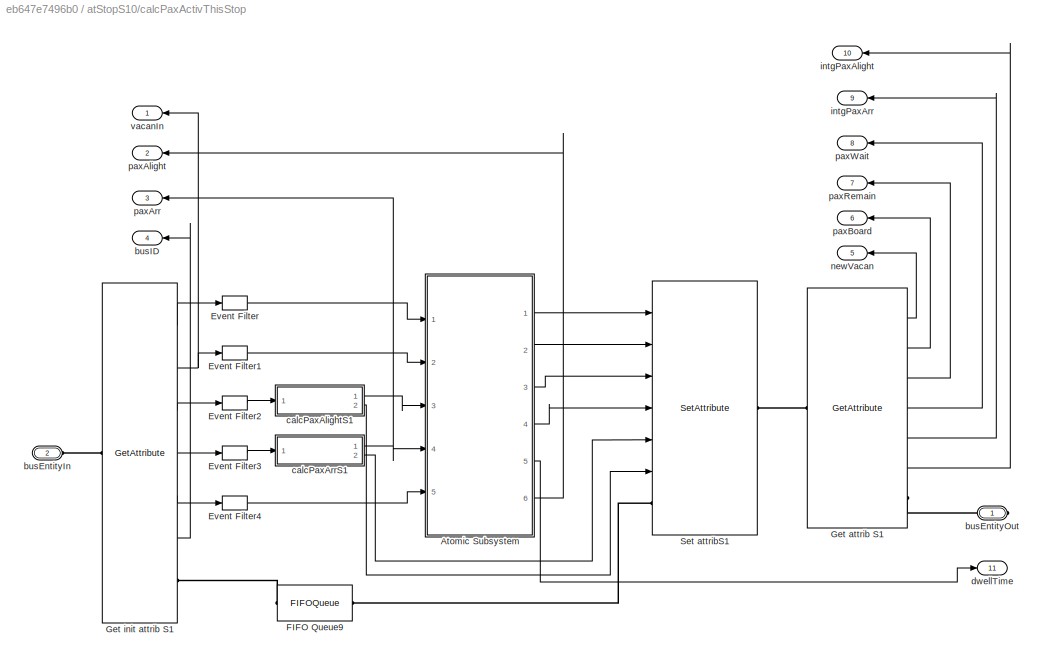
BLOCK [SubSystem] atStopS10/calcPaxActivThisStop
  Ports = [0, 11, 0, 0, 0, 1, 1]
  RequestExecContextInheritance = off
BLOCK [SubSystem] atStopS10/calcPaxActivThisStop/Atomic Subsystem
  Ports = [5, 6]
  RequestExecContextInheritance = off
  TreatAsAtomicUnit = on
BLOCK [Sum] atStopS10/calcPaxActivThisStop/Atomic Subsystem/Add
  InputSameDT = off
  OutDataTypeStr = Inherit: Inherit via internal rule
  Ports = [2, 1]
  SaturateOnIntegerOverflow = off
BLOCK [Sum] atStopS10/calcPaxActivThisStop/Atomic Subsystem/Add1
  InputSameDT = off
  OutDataTypeStr = Inherit: Inherit via internal rule
  Ports = [2, 1]
  SaturateOnIntegerOverflow = off
BLOCK [Sum] atStopS10/calcPaxActivThisStop/Atomic Subsystem/Add2
  InputSameDT = off
  OutDataTypeStr = Inherit: Inherit via internal rule
  Ports = [2, 1]
  SaturateOnIntegerOverflow = off
BLOCK [InitialValue] atStopS10/calcPaxActivThisStop/Atomic Subsystem/Initial Value
  Commented = on
  InitialValue = 0
  InputPortMap = u0
  OutputPortMap = o0
  Ports = [1, 1]
BLOCK [MinMax] atStopS10/calcPaxActivThisStop/Atomic Subsystem/Min1
  InputSameDT = off
  Inputs = 2
  Ports = [2, 1]
  SaturateOnIntegerOverflow = off
BLOCK [MinMax] atStopS10/calcPaxActivThisStop/Atomic Subsystem/Min2
  InputSameDT = off
  Inputs = 2
  Ports = [2, 1]
  SaturateOnIntegerOverflow = off
BLOCK [Product] atStopS10/calcPaxActivThisStop/Atomic Subsystem/Product
  InputSameDT = off
  OutDataTypeStr = Inherit: Inherit via internal rule
  Ports = [2, 1]
  RndMeth = Floor
  SaturateOnIntegerOverflow = off
BLOCK [SignalLatch] atStopS10/calcPaxActivThisStop/Atomic Subsystem/Signal Latch
  Commented = on
  InputPortMap = u0,u1,u2
  MemoryReadEdgeOption = Either
  MemoryWriteEdgeOption = Either
  OutputPortMap = o2
  Ports = [3, 1]
  SpecifyReadEventPriority = on
BLOCK [Sum] atStopS10/calcPaxActivThisStop/Atomic Subsystem/Subtract
  InputSameDT = off
  Inputs = +-
  OutDataTypeStr = Inherit: Inherit via internal rule
  Ports = [2, 1]
  SaturateOnIntegerOverflow = off
BLOCK [Sum] atStopS10/calcPaxActivThisStop/Atomic Subsystem/Subtract1
  InputSameDT = off
  Inputs = -+
  OutDataTypeStr = Inherit: Inherit via internal rule
  Ports = [2, 1]
  SaturateOnIntegerOverflow = off
BLOCK [Sum] atStopS10/calcPaxActivThisStop/Atomic Subsystem/Subtract2
  InputSameDT = off
  Inputs = +-
  OutDataTypeStr = Inherit: Inherit via internal rule
  Ports = [2, 1]
  SaturateOnIntegerOverflow = off
BLOCK [UnitDelay] atStopS10/calcPaxActivThisStop/Atomic Subsystem/Unit Delay
  InputProcessing = Elements as channels (sample based)
  SampleTime = -1
BLOCK [Outport] atStopS10/calcPaxActivThisStop/Atomic Subsystem/corrPaxAlight
  IconDisplay = Port number
  Port = 6
BLOCK [Outport] atStopS10/calcPaxActivThisStop/Atomic Subsystem/dwellTime
  IconDisplay = Port number
  Port = 5
BLOCK [Inport] atStopS10/calcPaxActivThisStop/Atomic Subsystem/maxCap
  IconDisplay = Port number
BLOCK [Outport] atStopS10/calcPaxActivThisStop/Atomic Subsystem/newVacancy
  IconDisplay = Port number
BLOCK [Inport] atStopS10/calcPaxActivThisStop/Atomic Subsystem/paxAlight
  IconDisplay = Port number
  Port = 3
BLOCK [Inport] atStopS10/calcPaxActivThisStop/Atomic Subsystem/paxArr
  IconDisplay = Port number
  Port = 4
BLOCK [Outport] atStopS10/calcPaxActivThisStop/Atomic Subsystem/paxBoard
  IconDisplay = Port number
  Port = 2
BLOCK [Outport] atStopS10/calcPaxActivThisStop/Atomic Subsystem/paxRemain
  IconDisplay = Port number
  Port = 3
BLOCK [Outport] atStopS10/calcPaxActivThisStop/Atomic Subsystem/paxWait
  IconDisplay = Port number
  Port = 4
BLOCK [Inport] atStopS10/calcPaxActivThisStop/Atomic Subsystem/sec2Brd
  IconDisplay = Port number
  Port = 5
BLOCK [Inport] atStopS10/calcPaxActivThisStop/Atomic Subsystem/vacancy
  IconDisplay = Port number
  Port = 2
BLOCK [EventFilter] atStopS10/calcPaxActivThisStop/Event Filter
  ExecuteSubsystem = Upon sample time hit
  InputPortMap = u0
  OutputPortMap = o0
  Ports = [1, 1]
  SignalEdgeType = Rising
BLOCK [EventFilter] atStopS10/calcPaxActivThisStop/Event Filter1
  ExecuteSubsystem = Upon sample time hit
  InputPortMap = u0
  OutputPortMap = o0
  Ports = [1, 1]
  SignalEdgeType = Rising
BLOCK [EventFilter] atStopS10/calcPaxActivThisStop/Event Filter2
  ExecuteSubsystem = Upon sample time hit
  InputPortMap = u0
  OutputPortMap = o0
  Ports = [1, 1]
  SignalEdgeType = Rising
BLOCK [EventFilter] atStopS10/calcPaxActivThisStop/Event Filter3
  ExecuteSubsystem = Upon sample time hit
  InputPortMap = u0
  OutputPortMap = o0
  Ports = [1, 1]
  SignalEdgeType = Rising
BLOCK [EventFilter] atStopS10/calcPaxActivThisStop/Event Filter4
  ExecuteSubsystem = Upon sample time hit
  InputPortMap = u0
  OutputPortMap = o0
  Ports = [1, 1]
  SignalEdgeType = Rising
BLOCK [FIFOQueue] atStopS10/calcPaxActivThisStop/FIFO Queue9
  Ports = [0, 0, 0, 0, 0, 1, 1]
BLOCK [GetAttribute] atStopS10/calcPaxActivThisStop/Get attrib S1
  AttributeDefaultValue = 1|1|1|1|1|1
  AttributeMissing = Error|Error|Error|Error|Error|Error
  AttributeName = vacancy|paxBoard|paxRemain|paxWait|intgPaxArr|intgPaxAlight
  AttributeSendTiming = After entity departure|After entity departure|After entity departure|After entity departure|After entity departure|After entity departure
  AttributeTreatAsVector = 1|1|1|1|1|1
  EvaluatedDefaultAttributeValue = { []; []; []; []; []; []}
  OutputPortMap = o1,o2,o3,o4,o5,o6
  Ports = [0, 6, 0, 0, 0, 1, 1]
BLOCK [GetAttribute] atStopS10/calcPaxActivThisStop/Get init attrib S1
  AttributeDefaultValue = 1|1|1|1|1|1
  AttributeMissing = Error|Error|Error|Error|Error|Error
  AttributeName = maxCap|vacancy|paxAlight|paxArr|sec2Brd|ID
  AttributeSendTiming = After entity departure|After entity departure|After entity departure|After entity departure|After entity departure|After entity departure
  AttributeTreatAsVector = 1|1|1|1|1|1
  EvaluatedDefaultAttributeValue = { []; []; []; []; []; []}
  OutputPortMap = o1,o2,o3,o4,o5,o6
  Ports = [0, 6, 0, 0, 0, 1, 1]
BLOCK [SetAttribute] atStopS10/calcPaxActivThisStop/Set attribS1
  AttributeFrom = Signal port|Signal port|Signal port|Signal port|Signal port|Signal port
  AttributeName = vacancy|paxBoard|paxRemain|paxWait|intgPaxArr|intgPaxAlight
  AttributeTreatAsVector = 1|1|1|1|1|1
  AttributeValue = 1|1|1|1|1|1
  EvaluatedAttributeValue = { []; []; []; []; []; [] }
  InputPortMap = u0,u1,u2,u3,u4,u5
  Ports = [6, 0, 0, 0, 0, 1, 1]
BLOCK [PMIOPort] atStopS10/calcPaxActivThisStop/busEntityIn
  Port = 2
  Side = Left
BLOCK [PMIOPort] atStopS10/calcPaxActivThisStop/busEntityOut
  Port = 1
  Side = Right
BLOCK [Outport] atStopS10/calcPaxActivThisStop/busID
  IconDisplay = Port number
  Port = 4
BLOCK [SubSystem] atStopS10/calcPaxActivThisStop/calcPaxAlightS1
  Ports = [1, 2]
  RequestExecContextInheritance = off
  TreatAsAtomicUnit = on
BLOCK [Sum] atStopS10/calcPaxActivThisStop/calcPaxAlightS1/Subtract
  InputSameDT = off
  Inputs = +-
  OutDataTypeStr = Inherit: Inherit via internal rule
  Ports = [2, 1]
  SaturateOnIntegerOverflow = off
BLOCK [UnitDelay] atStopS10/calcPaxActivThisStop/calcPaxAlightS1/Unit Delay
  InputProcessing = Elements as channels (sample based)
  SampleTime = -1
BLOCK [Inport] atStopS10/calcPaxActivThisStop/calcPaxAlightS1/integrPax
  IconDisplay = Port number
BLOCK [Outport] atStopS10/calcPaxActivThisStop/calcPaxAlightS1/intgPax
  IconDisplay = Port number
  Port = 2
BLOCK [Outport] atStopS10/calcPaxActivThisStop/calcPaxAlightS1/truPax
  IconDisplay = Port number
BLOCK [SubSystem] atStopS10/calcPaxActivThisStop/calcPaxArrS1
  Ports = [1, 2]
  RequestExecContextInheritance = off
  TreatAsAtomicUnit = on
BLOCK [Sum] atStopS10/calcPaxActivThisStop/calcPaxArrS1/Subtract
  InputSameDT = off
  Inputs = +-
  OutDataTypeStr = Inherit: Inherit via internal rule
  Ports = [2, 1]
  SaturateOnIntegerOverflow = off
BLOCK [UnitDelay] atStopS10/calcPaxActivThisStop/calcPaxArrS1/Unit Delay
  InputProcessing = Elements as channels (sample based)
  SampleTime = -1
BLOCK [Inport] atStopS10/calcPaxActivThisStop/calcPaxArrS1/integrPax
  IconDisplay = Port number
BLOCK [Outport] atStopS10/calcPaxActivThisStop/calcPaxArrS1/intgPax
  IconDisplay = Port number
  Port = 2
BLOCK [Outport] atStopS10/calcPaxActivThisStop/calcPaxArrS1/truPax
  IconDisplay = Port number
BLOCK [Outport] atStopS10/calcPaxActivThisStop/dwellTime
  IconDisplay = Port number
  Port = 11
BLOCK [Outport] atStopS10/calcPaxActivThisStop/intgPaxAlight
  IconDisplay = Port number
  Port = 10
BLOCK [Outport] atStopS10/calcPaxActivThisStop/intgPaxArr
  IconDisplay = Port number
  Port = 9
BLOCK [Outport] atStopS10/calcPaxActivThisStop/newVacan
  IconDisplay = Port number
  Port = 5
BLOCK [Outport] atStopS10/calcPaxActivThisStop/paxAlight
  IconDisplay = Port number
  Port = 2
BLOCK [Outport] atStopS10/calcPaxActivThisStop/paxArr
  IconDisplay = Port number
  Port = 3
BLOCK [Outport] atStopS10/calcPaxActivThisStop/paxBoard
  IconDisplay = Port number
  Port = 6
BLOCK [Outport] atStopS10/calcPaxActivThisStop/paxRemain
  IconDisplay = Port number
  Port = 7
BLOCK [Outport] atStopS10/calcPaxActivThisStop/paxWait
  IconDisplay = Port number
  Port = 8
BLOCK [Outport] atStopS10/calcPaxActivThisStop/vacanIn
  IconDisplay = Port number
BLOCK [Outport] atStopS10/crnVacancy
  IconDisplay = Port number
  Port = 3
BLOCK [Outport] atStopS10/idBusLeave
  IconDisplay = Port number
  Port = 13
BLOCK [SubSystem] atStopS10/integrPaxAlightS1
  Ports = [1, 1]
  RequestExecContextInheritance = off
BLOCK [SubSystem] atStopS10/integrPaxAlightS1/Atomic Subsystem1
  Ports = [1, 1]
  RequestExecContextInheritance = off
  TreatAsAtomicUnit = on
BLOCK [Sum] atStopS10/integrPaxAlightS1/Atomic Subsystem1/Add
  InputSameDT = off
  OutDataTypeStr = Inherit: Inherit via internal rule
  Ports = [2, 1]
  SaturateOnIntegerOverflow = off
BLOCK [Inport] atStopS10/integrPaxAlightS1/Atomic Subsystem1/In1
  IconDisplay = Port number
BLOCK [Outport] atStopS10/integrPaxAlightS1/Atomic Subsystem1/Out1
  IconDisplay = Port number
BLOCK [UnitDelay] atStopS10/integrPaxAlightS1/Atomic Subsystem1/Unit Delay
  InputProcessing = Elements as channels (sample based)
  SampleTime = -1
BLOCK [Rounding] atStopS10/integrPaxAlightS1/Round1
  Operator = round
BLOCK [TimedToEventSignal] atStopS10/integrPaxAlightS1/T2E1
  InputPortMap = u0
  OutputPortMap = o0
  Ports = [1, 1]
BLOCK [Outport] atStopS10/integrPaxAlightS1/accPax
  IconDisplay = Port number
BLOCK [Inport] atStopS10/integrPaxAlightS1/ratePax
  IconDisplay = Port number
BLOCK [SubSystem] atStopS10/integrPaxArrS1
  Ports = [1, 1]
  RequestExecContextInheritance = off
BLOCK [SubSystem] atStopS10/integrPaxArrS1/Atomic Subsystem1
  Ports = [1, 1]
  RequestExecContextInheritance = off
  TreatAsAtomicUnit = on
BLOCK [Sum] atStopS10/integrPaxArrS1/Atomic Subsystem1/Add
  InputSameDT = off
  OutDataTypeStr = Inherit: Inherit via internal rule
  Ports = [2, 1]
  SaturateOnIntegerOverflow = off
BLOCK [Inport] atStopS10/integrPaxArrS1/Atomic Subsystem1/In1
  IconDisplay = Port number
BLOCK [Outport] atStopS10/integrPaxArrS1/Atomic Subsystem1/Out1
  IconDisplay = Port number
BLOCK [UnitDelay] atStopS10/integrPaxArrS1/Atomic Subsystem1/Unit Delay
  InputProcessing = Elements as channels (sample based)
  SampleTime = -1
BLOCK [Rounding] atStopS10/integrPaxArrS1/Round1
  Operator = round
BLOCK [TimedToEventSignal] atStopS10/integrPaxArrS1/T2E1
  InputPortMap = u0
  OutputPortMap = o0
  Ports = [1, 1]
BLOCK [Outport] atStopS10/integrPaxArrS1/accPax
  IconDisplay = Port number
BLOCK [Inport] atStopS10/integrPaxArrS1/ratePax
  IconDisplay = Port number
BLOCK [Outport] atStopS10/intgPaxAlight
  IconDisplay = Port number
  Port = 12
BLOCK [Outport] atStopS10/intgPaxArr
  IconDisplay = Port number
  Port = 11
BLOCK [Outport] atStopS10/newVacancy
  IconDisplay = Port number
  Port = 7
BLOCK [Outport] atStopS10/paxAlight
  IconDisplay = Port number
  Port = 4
BLOCK [Inport] atStopS10/paxAlightRate
  IconDisplay = Port number
  Port = 2
BLOCK [Outport] atStopS10/paxBoard
  IconDisplay = Port number
  Port = 8
BLOCK [Outport] atStopS10/paxDemand
  IconDisplay = Port number
  Port = 5
BLOCK [Inport] atStopS10/paxDemandRate
  IconDisplay = Port number
BLOCK [Outport] atStopS10/paxRemain
  IconDisplay = Port number
  Port = 9
BLOCK [Outport] atStopS10/paxWait
  IconDisplay = Port number
  Port = 10
BLOCK [SetAttribute] atStopS10/setPaxAttribThisStop
  AttributeFrom = Signal port|Signal port
  AttributeName = paxArr|paxAlight
  AttributeTreatAsVector = 1|1
  AttributeValue = 1|1
  EvaluatedAttributeValue = { []; [] }
  InputPortMap = u0,u1
  Ports = [2, 0, 0, 0, 0, 1, 1]
BLOCK [SubSystem] atStopS11
  Ports = [2, 13, 0, 0, 0, 1, 1]
  RequestExecContextInheritance = off
BLOCK [FIFOQueue] atStopS11/FIFO Queue9
  Ports = [0, 0, 0, 0, 0, 1, 1]
BLOCK [Outport] atStopS11/accPaxAlight
  IconDisplay = Port number
BLOCK [Outport] atStopS11/accPaxDemand
  IconDisplay = Port number
  Port = 2
BLOCK [SubSystem] atStopS11/busDwellThisStop
  Ports = [1, 1, 0, 0, 0, 1, 1]
  RequestExecContextInheritance = off
BLOCK [Clock] atStopS11/busDwellThisStop/Clock2
BLOCK [SingleServer] atStopS11/busDwellThisStop/DummyServer
  Ports = [0, 0, 0, 0, 0, 1, 1]
  ServiceTime = 0
BLOCK [FIFOQueue] atStopS11/busDwellThisStop/FIFO Queue3
  Ports = [0, 0, 0, 0, 0, 1, 1]
BLOCK [GetAttribute] atStopS11/busDwellThisStop/Get Attribute5
  AttributeDefaultValue = 1|1
  AttributeMissing = Error|Error
  AttributeName = dwellTime|tStartSrvPax
  AttributeSendTiming = After entity departure|After entity departure
  AttributeTreatAsVector = 1|1
  EvaluatedDefaultAttributeValue = { []; []}
  OutputPortMap = o1,o2
  Ports = [0, 2, 0, 0, 0, 1, 1]
BLOCK [InfiniteServer] atStopS11/busDwellThisStop/Infinite Server
  InputPortMap = u0
  Ports = [1, 0, 0, 0, 0, 1, 1]
  ServiceTimeFrom = Signal port t
BLOCK [SetAttribute] atStopS11/busDwellThisStop/Set Attribute3
  AttributeFrom = Signal port|Signal port
  AttributeName = dwellTime|tStartSrvPax
  AttributeTreatAsVector = 1|1
  AttributeValue = 1|1
  EvaluatedAttributeValue = { []; [] }
  InputPortMap = u0,u1
  Ports = [2, 0, 0, 0, 0, 1, 1]
BLOCK [SubSystem] atStopS11/busDwellThisStop/Subsystem2
  Ports = [2, 1]
  RequestExecContextInheritance = off
  TreatAsAtomicUnit = on
BLOCK [Sum] atStopS11/busDwellThisStop/Subsystem2/Add1
  InputSameDT = off
  OutDataTypeStr = Inherit: Inherit via internal rule
  Ports = [2, 1]
  SaturateOnIntegerOverflow = off
BLOCK [Sum] atStopS11/busDwellThisStop/Subsystem2/Add2
  InputSameDT = off
  OutDataTypeStr = Inherit: Inherit via internal rule
  Ports = [2, 1]
  SaturateOnIntegerOverflow = off
BLOCK [Sum] atStopS11/busDwellThisStop/Subsystem2/Subtract
  InputSameDT = off
  Inputs = +-
  OutDataTypeStr = Inherit: Inherit via internal rule
  Ports = [2, 1]
  SaturateOnIntegerOverflow = off
BLOCK [Sum] atStopS11/busDwellThisStop/Subsystem2/Subtract1
  InputSameDT = off
  Inputs = +-
  OutDataTypeStr = Inherit: Inherit via internal rule
  Ports = [2, 1]
  SaturateOnIntegerOverflow = off
BLOCK [Switch] atStopS11/busDwellThisStop/Subsystem2/Switch
  Criteria = u2 > Threshold
  InputSameDT = off
  SaturateOnIntegerOverflow = off
BLOCK [UnitDelay] atStopS11/busDwellThisStop/Subsystem2/Unit Delay
  InputProcessing = Elements as channels (sample based)
  SampleTime = -1
BLOCK [Inport] atStopS11/busDwellThisStop/Subsystem2/dwellTime
  IconDisplay = Port number
BLOCK [Outport] atStopS11/busDwellThisStop/Subsystem2/dwellTimeNew
  IconDisplay = Port number
BLOCK [Constant] atStopS11/busDwellThisStop/Subsystem2/headWay
  Value = 3
BLOCK [Inport] atStopS11/busDwellThisStop/Subsystem2/tStartSrvPax
  IconDisplay = Port number
  Port = 2
BLOCK [TimedToEventSignal] atStopS11/busDwellThisStop/T2E4
  InputPortMap = u0
  OutputPortMap = o0
  Ports = [1, 1]
BLOCK [PMIOPort] atStopS11/busDwellThisStop/busIn
  Port = 2
  Side = Left
BLOCK [PMIOPort] atStopS11/busDwellThisStop/busOut
  Port = 1
  Side = Right
BLOCK [SingleServer] atStopS11/busDwellThisStop/busWaitAtStop
  Commented = on
  InputPortMap = u0
  Ports = [1, 0, 0, 0, 0, 1, 1]
  ServiceTimeFrom = Signal port t
BLOCK [FIFOQueue] atStopS11/busDwellThisStop/busesQueueAtStop
  Ports = [0, 0, 0, 0, 0, 1, 1]
BLOCK [Inport] atStopS11/busDwellThisStop/dwellTime
  IconDisplay = Port number
BLOCK [GetAttribute] atStopS11/busDwellThisStop/getIDBusLeave
  AttributeName = ID
  EvaluatedDefaultAttributeValue = { []}
  OutputPortMap = o1
  Ports = [0, 1, 0, 0, 0, 1, 1]
BLOCK [Outport] atStopS11/busDwellThisStop/idBusLeave
  IconDisplay = Port number
BLOCK [Outport] atStopS11/busIDAfterPaxCal
  IconDisplay = Port number
  Port = 6
BLOCK [PMIOPort] atStopS11/busIn
  Port = 1
  Side = Left
BLOCK [PMIOPort] atStopS11/busOut
  Port = 2
  Side = Right
BLOCK [SubSystem] atStopS11/calcPaxActivThisStop
  Ports = [0, 11, 0, 0, 0, 1, 1]
  RequestExecContextInheritance = off
BLOCK [SubSystem] atStopS11/calcPaxActivThisStop/Atomic Subsystem
  Ports = [5, 6]
  RequestExecContextInheritance = off
  TreatAsAtomicUnit = on
BLOCK [Sum] atStopS11/calcPaxActivThisStop/Atomic Subsystem/Add
  InputSameDT = off
  OutDataTypeStr = Inherit: Inherit via internal rule
  Ports = [2, 1]
  SaturateOnIntegerOverflow = off
BLOCK [Sum] atStopS11/calcPaxActivThisStop/Atomic Subsystem/Add1
  InputSameDT = off
  OutDataTypeStr = Inherit: Inherit via internal rule
  Ports = [2, 1]
  SaturateOnIntegerOverflow = off
BLOCK [Sum] atStopS11/calcPaxActivThisStop/Atomic Subsystem/Add2
  InputSameDT = off
  OutDataTypeStr = Inherit: Inherit via internal rule
  Ports = [2, 1]
  SaturateOnIntegerOverflow = off
BLOCK [InitialValue] atStopS11/calcPaxActivThisStop/Atomic Subsystem/Initial Value
  Commented = on
  InitialValue = 0
  InputPortMap = u0
  OutputPortMap = o0
  Ports = [1, 1]
BLOCK [MinMax] atStopS11/calcPaxActivThisStop/Atomic Subsystem/Min1
  InputSameDT = off
  Inputs = 2
  Ports = [2, 1]
  SaturateOnIntegerOverflow = off
BLOCK [MinMax] atStopS11/calcPaxActivThisStop/Atomic Subsystem/Min2
  InputSameDT = off
  Inputs = 2
  Ports = [2, 1]
  SaturateOnIntegerOverflow = off
BLOCK [Product] atStopS11/calcPaxActivThisStop/Atomic Subsystem/Product
  InputSameDT = off
  OutDataTypeStr = Inherit: Inherit via internal rule
  Ports = [2, 1]
  RndMeth = Floor
  SaturateOnIntegerOverflow = off
BLOCK [SignalLatch] atStopS11/calcPaxActivThisStop/Atomic Subsystem/Signal Latch
  Commented = on
  InputPortMap = u0,u1,u2
  MemoryReadEdgeOption = Either
  MemoryWriteEdgeOption = Either
  OutputPortMap = o2
  Ports = [3, 1]
  SpecifyReadEventPriority = on
BLOCK [Sum] atStopS11/calcPaxActivThisStop/Atomic Subsystem/Subtract
  InputSameDT = off
  Inputs = +-
  OutDataTypeStr = Inherit: Inherit via internal rule
  Ports = [2, 1]
  SaturateOnIntegerOverflow = off
BLOCK [Sum] atStopS11/calcPaxActivThisStop/Atomic Subsystem/Subtract1
  InputSameDT = off
  Inputs = -+
  OutDataTypeStr = Inherit: Inherit via internal rule
  Ports = [2, 1]
  SaturateOnIntegerOverflow = off
BLOCK [Sum] atStopS11/calcPaxActivThisStop/Atomic Subsystem/Subtract2
  InputSameDT = off
  Inputs = +-
  OutDataTypeStr = Inherit: Inherit via internal rule
  Ports = [2, 1]
  SaturateOnIntegerOverflow = off
BLOCK [UnitDelay] atStopS11/calcPaxActivThisStop/Atomic Subsystem/Unit Delay
  InputProcessing = Elements as channels (sample based)
  SampleTime = -1
BLOCK [Outport] atStopS11/calcPaxActivThisStop/Atomic Subsystem/corrPaxAlight
  IconDisplay = Port number
  Port = 6
BLOCK [Outport] atStopS11/calcPaxActivThisStop/Atomic Subsystem/dwellTime
  IconDisplay = Port number
  Port = 5
BLOCK [Inport] atStopS11/calcPaxActivThisStop/Atomic Subsystem/maxCap
  IconDisplay = Port number
BLOCK [Outport] atStopS11/calcPaxActivThisStop/Atomic Subsystem/newVacancy
  IconDisplay = Port number
BLOCK [Inport] atStopS11/calcPaxActivThisStop/Atomic Subsystem/paxAlight
  IconDisplay = Port number
  Port = 3
BLOCK [Inport] atStopS11/calcPaxActivThisStop/Atomic Subsystem/paxArr
  IconDisplay = Port number
  Port = 4
BLOCK [Outport] atStopS11/calcPaxActivThisStop/Atomic Subsystem/paxBoard
  IconDisplay = Port number
  Port = 2
BLOCK [Outport] atStopS11/calcPaxActivThisStop/Atomic Subsystem/paxRemain
  IconDisplay = Port number
  Port = 3
BLOCK [Outport] atStopS11/calcPaxActivThisStop/Atomic Subsystem/paxWait
  IconDisplay = Port number
  Port = 4
BLOCK [Inport] atStopS11/calcPaxActivThisStop/Atomic Subsystem/sec2Brd
  IconDisplay = Port number
  Port = 5
BLOCK [Inport] atStopS11/calcPaxActivThisStop/Atomic Subsystem/vacancy
  IconDisplay = Port number
  Port = 2
BLOCK [EventFilter] atStopS11/calcPaxActivThisStop/Event Filter
  ExecuteSubsystem = Upon sample time hit
  InputPortMap = u0
  OutputPortMap = o0
  Ports = [1, 1]
  SignalEdgeType = Rising
BLOCK [EventFilter] atStopS11/calcPaxActivThisStop/Event Filter1
  ExecuteSubsystem = Upon sample time hit
  InputPortMap = u0
  OutputPortMap = o0
  Ports = [1, 1]
  SignalEdgeType = Rising
BLOCK [EventFilter] atStopS11/calcPaxActivThisStop/Event Filter2
  ExecuteSubsystem = Upon sample time hit
  InputPortMap = u0
  OutputPortMap = o0
  Ports = [1, 1]
  SignalEdgeType = Rising
BLOCK [EventFilter] atStopS11/calcPaxActivThisStop/Event Filter3
  ExecuteSubsystem = Upon sample time hit
  InputPortMap = u0
  OutputPortMap = o0
  Ports = [1, 1]
  SignalEdgeType = Rising
BLOCK [EventFilter] atStopS11/calcPaxActivThisStop/Event Filter4
  ExecuteSubsystem = Upon sample time hit
  InputPortMap = u0
  OutputPortMap = o0
  Ports = [1, 1]
  SignalEdgeType = Rising
BLOCK [FIFOQueue] atStopS11/calcPaxActivThisStop/FIFO Queue9
  Ports = [0, 0, 0, 0, 0, 1, 1]
BLOCK [GetAttribute] atStopS11/calcPaxActivThisStop/Get attrib S1
  AttributeDefaultValue = 1|1|1|1|1|1
  AttributeMissing = Error|Error|Error|Error|Error|Error
  AttributeName = vacancy|paxBoard|paxRemain|paxWait|intgPaxArr|intgPaxAlight
  AttributeSendTiming = After entity departure|After entity departure|After entity departure|After entity departure|After entity departure|After entity departure
  AttributeTreatAsVector = 1|1|1|1|1|1
  EvaluatedDefaultAttributeValue = { []; []; []; []; []; []}
  OutputPortMap = o1,o2,o3,o4,o5,o6
  Ports = [0, 6, 0, 0, 0, 1, 1]
BLOCK [GetAttribute] atStopS11/calcPaxActivThisStop/Get init attrib S1
  AttributeDefaultValue = 1|1|1|1|1|1
  AttributeMissing = Error|Error|Error|Error|Error|Error
  AttributeName = maxCap|vacancy|paxAlight|paxArr|sec2Brd|ID
  AttributeSendTiming = After entity departure|After entity departure|After entity departure|After entity departure|After entity departure|After entity departure
  AttributeTreatAsVector = 1|1|1|1|1|1
  EvaluatedDefaultAttributeValue = { []; []; []; []; []; []}
  OutputPortMap = o1,o2,o3,o4,o5,o6
  Ports = [0, 6, 0, 0, 0, 1, 1]
BLOCK [SetAttribute] atStopS11/calcPaxActivThisStop/Set attribS1
  AttributeFrom = Signal port|Signal port|Signal port|Signal port|Signal port|Signal port
  AttributeName = vacancy|paxBoard|paxRemain|paxWait|intgPaxArr|intgPaxAlight
  AttributeTreatAsVector = 1|1|1|1|1|1
  AttributeValue = 1|1|1|1|1|1
  EvaluatedAttributeValue = { []; []; []; []; []; [] }
  InputPortMap = u0,u1,u2,u3,u4,u5
  Ports = [6, 0, 0, 0, 0, 1, 1]
BLOCK [PMIOPort] atStopS11/calcPaxActivThisStop/busEntityIn
  Port = 2
  Side = Left
BLOCK [PMIOPort] atStopS11/calcPaxActivThisStop/busEntityOut
  Port = 1
  Side = Right
BLOCK [Outport] atStopS11/calcPaxActivThisStop/busID
  IconDisplay = Port number
  Port = 4
BLOCK [SubSystem] atStopS11/calcPaxActivThisStop/calcPaxAlightS1
  Ports = [1, 2]
  RequestExecContextInheritance = off
  TreatAsAtomicUnit = on
BLOCK [Sum] atStopS11/calcPaxActivThisStop/calcPaxAlightS1/Subtract
  InputSameDT = off
  Inputs = +-
  OutDataTypeStr = Inherit: Inherit via internal rule
  Ports = [2, 1]
  SaturateOnIntegerOverflow = off
BLOCK [UnitDelay] atStopS11/calcPaxActivThisStop/calcPaxAlightS1/Unit Delay
  InputProcessing = Elements as channels (sample based)
  SampleTime = -1
BLOCK [Inport] atStopS11/calcPaxActivThisStop/calcPaxAlightS1/integrPax
  IconDisplay = Port number
BLOCK [Outport] atStopS11/calcPaxActivThisStop/calcPaxAlightS1/intgPax
  IconDisplay = Port number
  Port = 2
BLOCK [Outport] atStopS11/calcPaxActivThisStop/calcPaxAlightS1/truPax
  IconDisplay = Port number
BLOCK [SubSystem] atStopS11/calcPaxActivThisStop/calcPaxArrS1
  Ports = [1, 2]
  RequestExecContextInheritance = off
  TreatAsAtomicUnit = on
BLOCK [Sum] atStopS11/calcPaxActivThisStop/calcPaxArrS1/Subtract
  InputSameDT = off
  Inputs = +-
  OutDataTypeStr = Inherit: Inherit via internal rule
  Ports = [2, 1]
  SaturateOnIntegerOverflow = off
BLOCK [UnitDelay] atStopS11/calcPaxActivThisStop/calcPaxArrS1/Unit Delay
  InputProcessing = Elements as channels (sample based)
  SampleTime = -1
BLOCK [Inport] atStopS11/calcPaxActivThisStop/calcPaxArrS1/integrPax
  IconDisplay = Port number
BLOCK [Outport] atStopS11/calcPaxActivThisStop/calcPaxArrS1/intgPax
  IconDisplay = Port number
  Port = 2
BLOCK [Outport] atStopS11/calcPaxActivThisStop/calcPaxArrS1/truPax
  IconDisplay = Port number
BLOCK [Outport] atStopS11/calcPaxActivThisStop/dwellTime
  IconDisplay = Port number
  Port = 11
BLOCK [Outport] atStopS11/calcPaxActivThisStop/intgPaxAlight
  IconDisplay = Port number
  Port = 10
BLOCK [Outport] atStopS11/calcPaxActivThisStop/intgPaxArr
  IconDisplay = Port number
  Port = 9
BLOCK [Outport] atStopS11/calcPaxActivThisStop/newVacan
  IconDisplay = Port number
  Port = 5
BLOCK [Outport] atStopS11/calcPaxActivThisStop/paxAlight
  IconDisplay = Port number
  Port = 2
BLOCK [Outport] atStopS11/calcPaxActivThisStop/paxArr
  IconDisplay = Port number
  Port = 3
BLOCK [Outport] atStopS11/calcPaxActivThisStop/paxBoard
  IconDisplay = Port number
  Port = 6
BLOCK [Outport] atStopS11/calcPaxActivThisStop/paxRemain
  IconDisplay = Port number
  Port = 7
BLOCK [Outport] atStopS11/calcPaxActivThisStop/paxWait
  IconDisplay = Port number
  Port = 8
BLOCK [Outport] atStopS11/calcPaxActivThisStop/vacanIn
  IconDisplay = Port number
BLOCK [Outport] atStopS11/crnVacancy
  IconDisplay = Port number
  Port = 3
BLOCK [Outport] atStopS11/idBusLeave
  IconDisplay = Port number
  Port = 13
BLOCK [SubSystem] atStopS11/integrPaxAlightS1
  Ports = [1, 1]
  RequestExecContextInheritance = off
BLOCK [SubSystem] atStopS11/integrPaxAlightS1/Atomic Subsystem1
  Ports = [1, 1]
  RequestExecContextInheritance = off
  TreatAsAtomicUnit = on
BLOCK [Sum] atStopS11/integrPaxAlightS1/Atomic Subsystem1/Add
  InputSameDT = off
  OutDataTypeStr = Inherit: Inherit via internal rule
  Ports = [2, 1]
  SaturateOnIntegerOverflow = off
BLOCK [Inport] atStopS11/integrPaxAlightS1/Atomic Subsystem1/In1
  IconDisplay = Port number
BLOCK [Outport] atStopS11/integrPaxAlightS1/Atomic Subsystem1/Out1
  IconDisplay = Port number
BLOCK [UnitDelay] atStopS11/integrPaxAlightS1/Atomic Subsystem1/Unit Delay
  InputProcessing = Elements as channels (sample based)
  SampleTime = -1
BLOCK [Rounding] atStopS11/integrPaxAlightS1/Round1
  Operator = round
BLOCK [TimedToEventSignal] atStopS11/integrPaxAlightS1/T2E1
  InputPortMap = u0
  OutputPortMap = o0
  Ports = [1, 1]
BLOCK [Outport] atStopS11/integrPaxAlightS1/accPax
  IconDisplay = Port number
BLOCK [Inport] atStopS11/integrPaxAlightS1/ratePax
  IconDisplay = Port number
BLOCK [SubSystem] atStopS11/integrPaxArrS1
  Ports = [1, 1]
  RequestExecContextInheritance = off
BLOCK [SubSystem] atStopS11/integrPaxArrS1/Atomic Subsystem1
  Ports = [1, 1]
  RequestExecContextInheritance = off
  TreatAsAtomicUnit = on
BLOCK [Sum] atStopS11/integrPaxArrS1/Atomic Subsystem1/Add
  InputSameDT = off
  OutDataTypeStr = Inherit: Inherit via internal rule
  Ports = [2, 1]
  SaturateOnIntegerOverflow = off
BLOCK [Inport] atStopS11/integrPaxArrS1/Atomic Subsystem1/In1
  IconDisplay = Port number
BLOCK [Outport] atStopS11/integrPaxArrS1/Atomic Subsystem1/Out1
  IconDisplay = Port number
BLOCK [UnitDelay] atStopS11/integrPaxArrS1/Atomic Subsystem1/Unit Delay
  InputProcessing = Elements as channels (sample based)
  SampleTime = -1
BLOCK [Rounding] atStopS11/integrPaxArrS1/Round1
  Operator = round
BLOCK [TimedToEventSignal] atStopS11/integrPaxArrS1/T2E1
  InputPortMap = u0
  OutputPortMap = o0
  Ports = [1, 1]
BLOCK [Outport] atStopS11/integrPaxArrS1/accPax
  IconDisplay = Port number
BLOCK [Inport] atStopS11/integrPaxArrS1/ratePax
  IconDisplay = Port number
BLOCK [Outport] atStopS11/intgPaxAlight
  IconDisplay = Port number
  Port = 12
BLOCK [Outport] atStopS11/intgPaxArr
  IconDisplay = Port number
  Port = 11
BLOCK [Outport] atStopS11/newVacancy
  IconDisplay = Port number
  Port = 7
BLOCK [Outport] atStopS11/paxAlight
  IconDisplay = Port number
  Port = 4
BLOCK [Inport] atStopS11/paxAlightRate
  IconDisplay = Port number
  Port = 2
BLOCK [Outport] atStopS11/paxBoard
  IconDisplay = Port number
  Port = 8
BLOCK [Outport] atStopS11/paxDemand
  IconDisplay = Port number
  Port = 5
BLOCK [Inport] atStopS11/paxDemandRate
  IconDisplay = Port number
BLOCK [Outport] atStopS11/paxRemain
  IconDisplay = Port number
  Port = 9
BLOCK [Outport] atStopS11/paxWait
  IconDisplay = Port number
  Port = 10
BLOCK [SetAttribute] atStopS11/setPaxAttribThisStop
  AttributeFrom = Signal port|Signal port
  AttributeName = paxArr|paxAlight
  AttributeTreatAsVector = 1|1
  AttributeValue = 1|1
  EvaluatedAttributeValue = { []; [] }
  InputPortMap = u0,u1
  Ports = [2, 0, 0, 0, 0, 1, 1]
BLOCK [SubSystem] atStopS12
  Ports = [2, 13, 0, 0, 0, 1, 1]
  RequestExecContextInheritance = off
BLOCK [FIFOQueue] atStopS12/FIFO Queue9
  Ports = [0, 0, 0, 0, 0, 1, 1]
BLOCK [Outport] atStopS12/accPaxAlight
  IconDisplay = Port number
BLOCK [Outport] atStopS12/accPaxDemand
  IconDisplay = Port number
  Port = 2
BLOCK [SubSystem] atStopS12/busDwellThisStop
  Ports = [1, 1, 0, 0, 0, 1, 1]
  RequestExecContextInheritance = off
BLOCK [Clock] atStopS12/busDwellThisStop/Clock2
BLOCK [SingleServer] atStopS12/busDwellThisStop/DummyServer
  Ports = [0, 0, 0, 0, 0, 1, 1]
  ServiceTime = 0
BLOCK [FIFOQueue] atStopS12/busDwellThisStop/FIFO Queue3
  Ports = [0, 0, 0, 0, 0, 1, 1]
BLOCK [GetAttribute] atStopS12/busDwellThisStop/Get Attribute5
  AttributeDefaultValue = 1|1
  AttributeMissing = Error|Error
  AttributeName = dwellTime|tStartSrvPax
  AttributeSendTiming = After entity departure|After entity departure
  AttributeTreatAsVector = 1|1
  EvaluatedDefaultAttributeValue = { []; []}
  OutputPortMap = o1,o2
  Ports = [0, 2, 0, 0, 0, 1, 1]
BLOCK [InfiniteServer] atStopS12/busDwellThisStop/Infinite Server
  InputPortMap = u0
  Ports = [1, 0, 0, 0, 0, 1, 1]
  ServiceTimeFrom = Signal port t
BLOCK [SetAttribute] atStopS12/busDwellThisStop/Set Attribute3
  AttributeFrom = Signal port|Signal port
  AttributeName = dwellTime|tStartSrvPax
  AttributeTreatAsVector = 1|1
  AttributeValue = 1|1
  EvaluatedAttributeValue = { []; [] }
  InputPortMap = u0,u1
  Ports = [2, 0, 0, 0, 0, 1, 1]
BLOCK [SubSystem] atStopS12/busDwellThisStop/Subsystem2
  Ports = [2, 1]
  RequestExecContextInheritance = off
  TreatAsAtomicUnit = on
BLOCK [Sum] atStopS12/busDwellThisStop/Subsystem2/Add1
  InputSameDT = off
  OutDataTypeStr = Inherit: Inherit via internal rule
  Ports = [2, 1]
  SaturateOnIntegerOverflow = off
BLOCK [Sum] atStopS12/busDwellThisStop/Subsystem2/Add2
  InputSameDT = off
  OutDataTypeStr = Inherit: Inherit via internal rule
  Ports = [2, 1]
  SaturateOnIntegerOverflow = off
BLOCK [Sum] atStopS12/busDwellThisStop/Subsystem2/Subtract
  InputSameDT = off
  Inputs = +-
  OutDataTypeStr = Inherit: Inherit via internal rule
  Ports = [2, 1]
  SaturateOnIntegerOverflow = off
BLOCK [Sum] atStopS12/busDwellThisStop/Subsystem2/Subtract1
  InputSameDT = off
  Inputs = +-
  OutDataTypeStr = Inherit: Inherit via internal rule
  Ports = [2, 1]
  SaturateOnIntegerOverflow = off
BLOCK [Switch] atStopS12/busDwellThisStop/Subsystem2/Switch
  Criteria = u2 > Threshold
  InputSameDT = off
  SaturateOnIntegerOverflow = off
BLOCK [UnitDelay] atStopS12/busDwellThisStop/Subsystem2/Unit Delay
  InputProcessing = Elements as channels (sample based)
  SampleTime = -1
BLOCK [Inport] atStopS12/busDwellThisStop/Subsystem2/dwellTime
  IconDisplay = Port number
BLOCK [Outport] atStopS12/busDwellThisStop/Subsystem2/dwellTimeNew
  IconDisplay = Port number
BLOCK [Constant] atStopS12/busDwellThisStop/Subsystem2/headWay
  Value = 3
BLOCK [Inport] atStopS12/busDwellThisStop/Subsystem2/tStartSrvPax
  IconDisplay = Port number
  Port = 2
BLOCK [TimedToEventSignal] atStopS12/busDwellThisStop/T2E4
  InputPortMap = u0
  OutputPortMap = o0
  Ports = [1, 1]
BLOCK [PMIOPort] atStopS12/busDwellThisStop/busIn
  Port = 2
  Side = Left
BLOCK [PMIOPort] atStopS12/busDwellThisStop/busOut
  Port = 1
  Side = Right
BLOCK [SingleServer] atStopS12/busDwellThisStop/busWaitAtStop
  Commented = on
  InputPortMap = u0
  Ports = [1, 0, 0, 0, 0, 1, 1]
  ServiceTimeFrom = Signal port t
BLOCK [FIFOQueue] atStopS12/busDwellThisStop/busesQueueAtStop
  Ports = [0, 0, 0, 0, 0, 1, 1]
BLOCK [Inport] atStopS12/busDwellThisStop/dwellTime
  IconDisplay = Port number
BLOCK [GetAttribute] atStopS12/busDwellThisStop/getIDBusLeave
  AttributeName = ID
  EvaluatedDefaultAttributeValue = { []}
  OutputPortMap = o1
  Ports = [0, 1, 0, 0, 0, 1, 1]
BLOCK [Outport] atStopS12/busDwellThisStop/idBusLeave
  IconDisplay = Port number
BLOCK [Outport] atStopS12/busIDAfterPaxCal
  IconDisplay = Port number
  Port = 6
BLOCK [PMIOPort] atStopS12/busIn
  Port = 1
  Side = Left
BLOCK [PMIOPort] atStopS12/busOut
  Port = 2
  Side = Right
BLOCK [SubSystem] atStopS12/calcPaxActivThisStop
  Ports = [0, 11, 0, 0, 0, 1, 1]
  RequestExecContextInheritance = off
BLOCK [SubSystem] atStopS12/calcPaxActivThisStop/Atomic Subsystem
  Ports = [5, 6]
  RequestExecContextInheritance = off
  TreatAsAtomicUnit = on
BLOCK [Sum] atStopS12/calcPaxActivThisStop/Atomic Subsystem/Add
  InputSameDT = off
  OutDataTypeStr = Inherit: Inherit via internal rule
  Ports = [2, 1]
  SaturateOnIntegerOverflow = off
BLOCK [Sum] atStopS12/calcPaxActivThisStop/Atomic Subsystem/Add1
  InputSameDT = off
  OutDataTypeStr = Inherit: Inherit via internal rule
  Ports = [2, 1]
  SaturateOnIntegerOverflow = off
BLOCK [Sum] atStopS12/calcPaxActivThisStop/Atomic Subsystem/Add2
  InputSameDT = off
  OutDataTypeStr = Inherit: Inherit via internal rule
  Ports = [2, 1]
  SaturateOnIntegerOverflow = off
BLOCK [InitialValue] atStopS12/calcPaxActivThisStop/Atomic Subsystem/Initial Value
  Commented = on
  InitialValue = 0
  InputPortMap = u0
  OutputPortMap = o0
  Ports = [1, 1]
BLOCK [MinMax] atStopS12/calcPaxActivThisStop/Atomic Subsystem/Min1
  InputSameDT = off
  Inputs = 2
  Ports = [2, 1]
  SaturateOnIntegerOverflow = off
BLOCK [MinMax] atStopS12/calcPaxActivThisStop/Atomic Subsystem/Min2
  InputSameDT = off
  Inputs = 2
  Ports = [2, 1]
  SaturateOnIntegerOverflow = off
BLOCK [Product] atStopS12/calcPaxActivThisStop/Atomic Subsystem/Product
  InputSameDT = off
  OutDataTypeStr = Inherit: Inherit via internal rule
  Ports = [2, 1]
  RndMeth = Floor
  SaturateOnIntegerOverflow = off
BLOCK [SignalLatch] atStopS12/calcPaxActivThisStop/Atomic Subsystem/Signal Latch
  Commented = on
  InputPortMap = u0,u1,u2
  MemoryReadEdgeOption = Either
  MemoryWriteEdgeOption = Either
  OutputPortMap = o2
  Ports = [3, 1]
  SpecifyReadEventPriority = on
BLOCK [Sum] atStopS12/calcPaxActivThisStop/Atomic Subsystem/Subtract
  InputSameDT = off
  Inputs = +-
  OutDataTypeStr = Inherit: Inherit via internal rule
  Ports = [2, 1]
  SaturateOnIntegerOverflow = off
BLOCK [Sum] atStopS12/calcPaxActivThisStop/Atomic Subsystem/Subtract1
  InputSameDT = off
  Inputs = -+
  OutDataTypeStr = Inherit: Inherit via internal rule
  Ports = [2, 1]
  SaturateOnIntegerOverflow = off
BLOCK [Sum] atStopS12/calcPaxActivThisStop/Atomic Subsystem/Subtract2
  InputSameDT = off
  Inputs = +-
  OutDataTypeStr = Inherit: Inherit via internal rule
  Ports = [2, 1]
  SaturateOnIntegerOverflow = off
BLOCK [UnitDelay] atStopS12/calcPaxActivThisStop/Atomic Subsystem/Unit Delay
  InputProcessing = Elements as channels (sample based)
  SampleTime = -1
BLOCK [Outport] atStopS12/calcPaxActivThisStop/Atomic Subsystem/corrPaxAlight
  IconDisplay = Port number
  Port = 6
BLOCK [Outport] atStopS12/calcPaxActivThisStop/Atomic Subsystem/dwellTime
  IconDisplay = Port number
  Port = 5
BLOCK [Inport] atStopS12/calcPaxActivThisStop/Atomic Subsystem/maxCap
  IconDisplay = Port number
BLOCK [Outport] atStopS12/calcPaxActivThisStop/Atomic Subsystem/newVacancy
  IconDisplay = Port number
BLOCK [Inport] atStopS12/calcPaxActivThisStop/Atomic Subsystem/paxAlight
  IconDisplay = Port number
  Port = 3
BLOCK [Inport] atStopS12/calcPaxActivThisStop/Atomic Subsystem/paxArr
  IconDisplay = Port number
  Port = 4
BLOCK [Outport] atStopS12/calcPaxActivThisStop/Atomic Subsystem/paxBoard
  IconDisplay = Port number
  Port = 2
BLOCK [Outport] atStopS12/calcPaxActivThisStop/Atomic Subsystem/paxRemain
  IconDisplay = Port number
  Port = 3
BLOCK [Outport] atStopS12/calcPaxActivThisStop/Atomic Subsystem/paxWait
  IconDisplay = Port number
  Port = 4
BLOCK [Inport] atStopS12/calcPaxActivThisStop/Atomic Subsystem/sec2Brd
  IconDisplay = Port number
  Port = 5
BLOCK [Inport] atStopS12/calcPaxActivThisStop/Atomic Subsystem/vacancy
  IconDisplay = Port number
  Port = 2
BLOCK [EventFilter] atStopS12/calcPaxActivThisStop/Event Filter
  ExecuteSubsystem = Upon sample time hit
  InputPortMap = u0
  OutputPortMap = o0
  Ports = [1, 1]
  SignalEdgeType = Rising
BLOCK [EventFilter] atStopS12/calcPaxActivThisStop/Event Filter1
  ExecuteSubsystem = Upon sample time hit
  InputPortMap = u0
  OutputPortMap = o0
  Ports = [1, 1]
  SignalEdgeType = Rising
BLOCK [EventFilter] atStopS12/calcPaxActivThisStop/Event Filter2
  ExecuteSubsystem = Upon sample time hit
  InputPortMap = u0
  OutputPortMap = o0
  Ports = [1, 1]
  SignalEdgeType = Rising
BLOCK [EventFilter] atStopS12/calcPaxActivThisStop/Event Filter3
  ExecuteSubsystem = Upon sample time hit
  InputPortMap = u0
  OutputPortMap = o0
  Ports = [1, 1]
  SignalEdgeType = Rising
BLOCK [EventFilter] atStopS12/calcPaxActivThisStop/Event Filter4
  ExecuteSubsystem = Upon sample time hit
  InputPortMap = u0
  OutputPortMap = o0
  Ports = [1, 1]
  SignalEdgeType = Rising
BLOCK [FIFOQueue] atStopS12/calcPaxActivThisStop/FIFO Queue9
  Ports = [0, 0, 0, 0, 0, 1, 1]
BLOCK [GetAttribute] atStopS12/calcPaxActivThisStop/Get attrib S1
  AttributeDefaultValue = 1|1|1|1|1|1
  AttributeMissing = Error|Error|Error|Error|Error|Error
  AttributeName = vacancy|paxBoard|paxRemain|paxWait|intgPaxArr|intgPaxAlight
  AttributeSendTiming = After entity departure|After entity departure|After entity departure|After entity departure|After entity departure|After entity departure
  AttributeTreatAsVector = 1|1|1|1|1|1
  EvaluatedDefaultAttributeValue = { []; []; []; []; []; []}
  OutputPortMap = o1,o2,o3,o4,o5,o6
  Ports = [0, 6, 0, 0, 0, 1, 1]
BLOCK [GetAttribute] atStopS12/calcPaxActivThisStop/Get init attrib S1
  AttributeDefaultValue = 1|1|1|1|1|1
  AttributeMissing = Error|Error|Error|Error|Error|Error
  AttributeName = maxCap|vacancy|paxAlight|paxArr|sec2Brd|ID
  AttributeSendTiming = After entity departure|After entity departure|After entity departure|After entity departure|After entity departure|After entity departure
  AttributeTreatAsVector = 1|1|1|1|1|1
  EvaluatedDefaultAttributeValue = { []; []; []; []; []; []}
  OutputPortMap = o1,o2,o3,o4,o5,o6
  Ports = [0, 6, 0, 0, 0, 1, 1]
BLOCK [SetAttribute] atStopS12/calcPaxActivThisStop/Set attribS1
  AttributeFrom = Signal port|Signal port|Signal port|Signal port|Signal port|Signal port
  AttributeName = vacancy|paxBoard|paxRemain|paxWait|intgPaxArr|intgPaxAlight
  AttributeTreatAsVector = 1|1|1|1|1|1
  AttributeValue = 1|1|1|1|1|1
  EvaluatedAttributeValue = { []; []; []; []; []; [] }
  InputPortMap = u0,u1,u2,u3,u4,u5
  Ports = [6, 0, 0, 0, 0, 1, 1]
BLOCK [PMIOPort] atStopS12/calcPaxActivThisStop/busEntityIn
  Port = 2
  Side = Left
BLOCK [PMIOPort] atStopS12/calcPaxActivThisStop/busEntityOut
  Port = 1
  Side = Right
BLOCK [Outport] atStopS12/calcPaxActivThisStop/busID
  IconDisplay = Port number
  Port = 4
BLOCK [SubSystem] atStopS12/calcPaxActivThisStop/calcPaxAlightS1
  Ports = [1, 2]
  RequestExecContextInheritance = off
  TreatAsAtomicUnit = on
BLOCK [Sum] atStopS12/calcPaxActivThisStop/calcPaxAlightS1/Subtract
  InputSameDT = off
  Inputs = +-
  OutDataTypeStr = Inherit: Inherit via internal rule
  Ports = [2, 1]
  SaturateOnIntegerOverflow = off
BLOCK [UnitDelay] atStopS12/calcPaxActivThisStop/calcPaxAlightS1/Unit Delay
  InputProcessing = Elements as channels (sample based)
  SampleTime = -1
BLOCK [Inport] atStopS12/calcPaxActivThisStop/calcPaxAlightS1/integrPax
  IconDisplay = Port number
BLOCK [Outport] atStopS12/calcPaxActivThisStop/calcPaxAlightS1/intgPax
  IconDisplay = Port number
  Port = 2
BLOCK [Outport] atStopS12/calcPaxActivThisStop/calcPaxAlightS1/truPax
  IconDisplay = Port number
BLOCK [SubSystem] atStopS12/calcPaxActivThisStop/calcPaxArrS1
  Ports = [1, 2]
  RequestExecContextInheritance = off
  TreatAsAtomicUnit = on
BLOCK [Sum] atStopS12/calcPaxActivThisStop/calcPaxArrS1/Subtract
  InputSameDT = off
  Inputs = +-
  OutDataTypeStr = Inherit: Inherit via internal rule
  Ports = [2, 1]
  SaturateOnIntegerOverflow = off
BLOCK [UnitDelay] atStopS12/calcPaxActivThisStop/calcPaxArrS1/Unit Delay
  InputProcessing = Elements as channels (sample based)
  SampleTime = -1
BLOCK [Inport] atStopS12/calcPaxActivThisStop/calcPaxArrS1/integrPax
  IconDisplay = Port number
BLOCK [Outport] atStopS12/calcPaxActivThisStop/calcPaxArrS1/intgPax
  IconDisplay = Port number
  Port = 2
BLOCK [Outport] atStopS12/calcPaxActivThisStop/calcPaxArrS1/truPax
  IconDisplay = Port number
BLOCK [Outport] atStopS12/calcPaxActivThisStop/dwellTime
  IconDisplay = Port number
  Port = 11
BLOCK [Outport] atStopS12/calcPaxActivThisStop/intgPaxAlight
  IconDisplay = Port number
  Port = 10
BLOCK [Outport] atStopS12/calcPaxActivThisStop/intgPaxArr
  IconDisplay = Port number
  Port = 9
BLOCK [Outport] atStopS12/calcPaxActivThisStop/newVacan
  IconDisplay = Port number
  Port = 5
BLOCK [Outport] atStopS12/calcPaxActivThisStop/paxAlight
  IconDisplay = Port number
  Port = 2
BLOCK [Outport] atStopS12/calcPaxActivThisStop/paxArr
  IconDisplay = Port number
  Port = 3
BLOCK [Outport] atStopS12/calcPaxActivThisStop/paxBoard
  IconDisplay = Port number
  Port = 6
BLOCK [Outport] atStopS12/calcPaxActivThisStop/paxRemain
  IconDisplay = Port number
  Port = 7
BLOCK [Outport] atStopS12/calcPaxActivThisStop/paxWait
  IconDisplay = Port number
  Port = 8
BLOCK [Outport] atStopS12/calcPaxActivThisStop/vacanIn
  IconDisplay = Port number
BLOCK [Outport] atStopS12/crnVacancy
  IconDisplay = Port number
  Port = 3
BLOCK [Outport] atStopS12/idBusLeave
  IconDisplay = Port number
  Port = 13
BLOCK [SubSystem] atStopS12/integrPaxAlightS1
  Ports = [1, 1]
  RequestExecContextInheritance = off
BLOCK [SubSystem] atStopS12/integrPaxAlightS1/Atomic Subsystem1
  Ports = [1, 1]
  RequestExecContextInheritance = off
  TreatAsAtomicUnit = on
BLOCK [Sum] atStopS12/integrPaxAlightS1/Atomic Subsystem1/Add
  InputSameDT = off
  OutDataTypeStr = Inherit: Inherit via internal rule
  Ports = [2, 1]
  SaturateOnIntegerOverflow = off
BLOCK [Inport] atStopS12/integrPaxAlightS1/Atomic Subsystem1/In1
  IconDisplay = Port number
BLOCK [Outport] atStopS12/integrPaxAlightS1/Atomic Subsystem1/Out1
  IconDisplay = Port number
BLOCK [UnitDelay] atStopS12/integrPaxAlightS1/Atomic Subsystem1/Unit Delay
  InputProcessing = Elements as channels (sample based)
  SampleTime = -1
BLOCK [Rounding] atStopS12/integrPaxAlightS1/Round1
  Operator = round
BLOCK [TimedToEventSignal] atStopS12/integrPaxAlightS1/T2E1
  InputPortMap = u0
  OutputPortMap = o0
  Ports = [1, 1]
BLOCK [Outport] atStopS12/integrPaxAlightS1/accPax
  IconDisplay = Port number
BLOCK [Inport] atStopS12/integrPaxAlightS1/ratePax
  IconDisplay = Port number
BLOCK [SubSystem] atStopS12/integrPaxArrS1
  Ports = [1, 1]
  RequestExecContextInheritance = off
BLOCK [SubSystem] atStopS12/integrPaxArrS1/Atomic Subsystem1
  Ports = [1, 1]
  RequestExecContextInheritance = off
  TreatAsAtomicUnit = on
BLOCK [Sum] atStopS12/integrPaxArrS1/Atomic Subsystem1/Add
  InputSameDT = off
  OutDataTypeStr = Inherit: Inherit via internal rule
  Ports = [2, 1]
  SaturateOnIntegerOverflow = off
BLOCK [Inport] atStopS12/integrPaxArrS1/Atomic Subsystem1/In1
  IconDisplay = Port number
BLOCK [Outport] atStopS12/integrPaxArrS1/Atomic Subsystem1/Out1
  IconDisplay = Port number
BLOCK [UnitDelay] atStopS12/integrPaxArrS1/Atomic Subsystem1/Unit Delay
  InputProcessing = Elements as channels (sample based)
  SampleTime = -1
BLOCK [Rounding] atStopS12/integrPaxArrS1/Round1
  Operator = round
BLOCK [TimedToEventSignal] atStopS12/integrPaxArrS1/T2E1
  InputPortMap = u0
  OutputPortMap = o0
  Ports = [1, 1]
BLOCK [Outport] atStopS12/integrPaxArrS1/accPax
  IconDisplay = Port number
BLOCK [Inport] atStopS12/integrPaxArrS1/ratePax
  IconDisplay = Port number
BLOCK [Outport] atStopS12/intgPaxAlight
  IconDisplay = Port number
  Port = 12
BLOCK [Outport] atStopS12/intgPaxArr
  IconDisplay = Port number
  Port = 11
BLOCK [Outport] atStopS12/newVacancy
  IconDisplay = Port number
  Port = 7
BLOCK [Outport] atStopS12/paxAlight
  IconDisplay = Port number
  Port = 4
BLOCK [Inport] atStopS12/paxAlightRate
  IconDisplay = Port number
  Port = 2
BLOCK [Outport] atStopS12/paxBoard
  IconDisplay = Port number
  Port = 8
BLOCK [Outport] atStopS12/paxDemand
  IconDisplay = Port number
  Port = 5
BLOCK [Inport] atStopS12/paxDemandRate
  IconDisplay = Port number
BLOCK [Outport] atStopS12/paxRemain
  IconDisplay = Port number
  Port = 9
BLOCK [Outport] atStopS12/paxWait
  IconDisplay = Port number
  Port = 10
BLOCK [SetAttribute] atStopS12/setPaxAttribThisStop
  AttributeFrom = Signal port|Signal port
  AttributeName = paxArr|paxAlight
  AttributeTreatAsVector = 1|1
  AttributeValue = 1|1
  EvaluatedAttributeValue = { []; [] }
  InputPortMap = u0,u1
  Ports = [2, 0, 0, 0, 0, 1, 1]
BLOCK [SubSystem] atStopS13
  Ports = [2, 13, 0, 0, 0, 1, 1]
  RequestExecContextInheritance = off
BLOCK [FIFOQueue] atStopS13/FIFO Queue9
  Ports = [0, 0, 0, 0, 0, 1, 1]
BLOCK [Outport] atStopS13/accPaxAlight
  IconDisplay = Port number
BLOCK [Outport] atStopS13/accPaxDemand
  IconDisplay = Port number
  Port = 2
BLOCK [SubSystem] atStopS13/busDwellThisStop
  Ports = [1, 1, 0, 0, 0, 1, 1]
  RequestExecContextInheritance = off
BLOCK [Clock] atStopS13/busDwellThisStop/Clock2
BLOCK [SingleServer] atStopS13/busDwellThisStop/DummyServer
  Ports = [0, 0, 0, 0, 0, 1, 1]
  ServiceTime = 0
BLOCK [FIFOQueue] atStopS13/busDwellThisStop/FIFO Queue3
  Ports = [0, 0, 0, 0, 0, 1, 1]
BLOCK [GetAttribute] atStopS13/busDwellThisStop/Get Attribute5
  AttributeDefaultValue = 1|1
  AttributeMissing = Error|Error
  AttributeName = dwellTime|tStartSrvPax
  AttributeSendTiming = After entity departure|After entity departure
  AttributeTreatAsVector = 1|1
  EvaluatedDefaultAttributeValue = { []; []}
  OutputPortMap = o1,o2
  Ports = [0, 2, 0, 0, 0, 1, 1]
BLOCK [InfiniteServer] atStopS13/busDwellThisStop/Infinite Server
  InputPortMap = u0
  Ports = [1, 0, 0, 0, 0, 1, 1]
  ServiceTimeFrom = Signal port t
BLOCK [SetAttribute] atStopS13/busDwellThisStop/Set Attribute3
  AttributeFrom = Signal port|Signal port
  AttributeName = dwellTime|tStartSrvPax
  AttributeTreatAsVector = 1|1
  AttributeValue = 1|1
  EvaluatedAttributeValue = { []; [] }
  InputPortMap = u0,u1
  Ports = [2, 0, 0, 0, 0, 1, 1]
BLOCK [SubSystem] atStopS13/busDwellThisStop/Subsystem2
  Ports = [2, 1]
  RequestExecContextInheritance = off
  TreatAsAtomicUnit = on
BLOCK [Sum] atStopS13/busDwellThisStop/Subsystem2/Add1
  InputSameDT = off
  OutDataTypeStr = Inherit: Inherit via internal rule
  Ports = [2, 1]
  SaturateOnIntegerOverflow = off
BLOCK [Sum] atStopS13/busDwellThisStop/Subsystem2/Add2
  InputSameDT = off
  OutDataTypeStr = Inherit: Inherit via internal rule
  Ports = [2, 1]
  SaturateOnIntegerOverflow = off
BLOCK [Sum] atStopS13/busDwellThisStop/Subsystem2/Subtract
  InputSameDT = off
  Inputs = +-
  OutDataTypeStr = Inherit: Inherit via internal rule
  Ports = [2, 1]
  SaturateOnIntegerOverflow = off
BLOCK [Sum] atStopS13/busDwellThisStop/Subsystem2/Subtract1
  InputSameDT = off
  Inputs = +-
  OutDataTypeStr = Inherit: Inherit via internal rule
  Ports = [2, 1]
  SaturateOnIntegerOverflow = off
BLOCK [Switch] atStopS13/busDwellThisStop/Subsystem2/Switch
  Criteria = u2 > Threshold
  InputSameDT = off
  SaturateOnIntegerOverflow = off
BLOCK [UnitDelay] atStopS13/busDwellThisStop/Subsystem2/Unit Delay
  InputProcessing = Elements as channels (sample based)
  SampleTime = -1
BLOCK [Inport] atStopS13/busDwellThisStop/Subsystem2/dwellTime
  IconDisplay = Port number
BLOCK [Outport] atStopS13/busDwellThisStop/Subsystem2/dwellTimeNew
  IconDisplay = Port number
BLOCK [Constant] atStopS13/busDwellThisStop/Subsystem2/headWay
  Value = 3
BLOCK [Inport] atStopS13/busDwellThisStop/Subsystem2/tStartSrvPax
  IconDisplay = Port number
  Port = 2
BLOCK [TimedToEventSignal] atStopS13/busDwellThisStop/T2E4
  InputPortMap = u0
  OutputPortMap = o0
  Ports = [1, 1]
BLOCK [PMIOPort] atStopS13/busDwellThisStop/busIn
  Port = 2
  Side = Left
BLOCK [PMIOPort] atStopS13/busDwellThisStop/busOut
  Port = 1
  Side = Right
BLOCK [SingleServer] atStopS13/busDwellThisStop/busWaitAtStop
  Commented = on
  InputPortMap = u0
  Ports = [1, 0, 0, 0, 0, 1, 1]
  ServiceTimeFrom = Signal port t
BLOCK [FIFOQueue] atStopS13/busDwellThisStop/busesQueueAtStop
  Ports = [0, 0, 0, 0, 0, 1, 1]
BLOCK [Inport] atStopS13/busDwellThisStop/dwellTime
  IconDisplay = Port number
BLOCK [GetAttribute] atStopS13/busDwellThisStop/getIDBusLeave
  AttributeName = ID
  EvaluatedDefaultAttributeValue = { []}
  OutputPortMap = o1
  Ports = [0, 1, 0, 0, 0, 1, 1]
BLOCK [Outport] atStopS13/busDwellThisStop/idBusLeave
  IconDisplay = Port number
BLOCK [Outport] atStopS13/busIDAfterPaxCal
  IconDisplay = Port number
  Port = 6
BLOCK [PMIOPort] atStopS13/busIn
  Port = 1
  Side = Left
BLOCK [PMIOPort] atStopS13/busOut
  Port = 2
  Side = Right
BLOCK [SubSystem] atStopS13/calcPaxActivThisStop
  Ports = [0, 11, 0, 0, 0, 1, 1]
  RequestExecContextInheritance = off
BLOCK [SubSystem] atStopS13/calcPaxActivThisStop/Atomic Subsystem
  Ports = [5, 6]
  RequestExecContextInheritance = off
  TreatAsAtomicUnit = on
BLOCK [Sum] atStopS13/calcPaxActivThisStop/Atomic Subsystem/Add
  InputSameDT = off
  OutDataTypeStr = Inherit: Inherit via internal rule
  Ports = [2, 1]
  SaturateOnIntegerOverflow = off
BLOCK [Sum] atStopS13/calcPaxActivThisStop/Atomic Subsystem/Add1
  InputSameDT = off
  OutDataTypeStr = Inherit: Inherit via internal rule
  Ports = [2, 1]
  SaturateOnIntegerOverflow = off
BLOCK [Sum] atStopS13/calcPaxActivThisStop/Atomic Subsystem/Add2
  InputSameDT = off
  OutDataTypeStr = Inherit: Inherit via internal rule
  Ports = [2, 1]
  SaturateOnIntegerOverflow = off
BLOCK [InitialValue] atStopS13/calcPaxActivThisStop/Atomic Subsystem/Initial Value
  Commented = on
  InitialValue = 0
  InputPortMap = u0
  OutputPortMap = o0
  Ports = [1, 1]
BLOCK [MinMax] atStopS13/calcPaxActivThisStop/Atomic Subsystem/Min1
  InputSameDT = off
  Inputs = 2
  Ports = [2, 1]
  SaturateOnIntegerOverflow = off
BLOCK [MinMax] atStopS13/calcPaxActivThisStop/Atomic Subsystem/Min2
  InputSameDT = off
  Inputs = 2
  Ports = [2, 1]
  SaturateOnIntegerOverflow = off
BLOCK [Product] atStopS13/calcPaxActivThisStop/Atomic Subsystem/Product
  InputSameDT = off
  OutDataTypeStr = Inherit: Inherit via internal rule
  Ports = [2, 1]
  RndMeth = Floor
  SaturateOnIntegerOverflow = off
BLOCK [SignalLatch] atStopS13/calcPaxActivThisStop/Atomic Subsystem/Signal Latch
  Commented = on
  InputPortMap = u0,u1,u2
  MemoryReadEdgeOption = Either
  MemoryWriteEdgeOption = Either
  OutputPortMap = o2
  Ports = [3, 1]
  SpecifyReadEventPriority = on
BLOCK [Sum] atStopS13/calcPaxActivThisStop/Atomic Subsystem/Subtract
  InputSameDT = off
  Inputs = +-
  OutDataTypeStr = Inherit: Inherit via internal rule
  Ports = [2, 1]
  SaturateOnIntegerOverflow = off
BLOCK [Sum] atStopS13/calcPaxActivThisStop/Atomic Subsystem/Subtract1
  InputSameDT = off
  Inputs = -+
  OutDataTypeStr = Inherit: Inherit via internal rule
  Ports = [2, 1]
  SaturateOnIntegerOverflow = off
BLOCK [Sum] atStopS13/calcPaxActivThisStop/Atomic Subsystem/Subtract2
  InputSameDT = off
  Inputs = +-
  OutDataTypeStr = Inherit: Inherit via internal rule
  Ports = [2, 1]
  SaturateOnIntegerOverflow = off
BLOCK [UnitDelay] atStopS13/calcPaxActivThisStop/Atomic Subsystem/Unit Delay
  InputProcessing = Elements as channels (sample based)
  SampleTime = -1
BLOCK [Outport] atStopS13/calcPaxActivThisStop/Atomic Subsystem/corrPaxAlight
  IconDisplay = Port number
  Port = 6
BLOCK [Outport] atStopS13/calcPaxActivThisStop/Atomic Subsystem/dwellTime
  IconDisplay = Port number
  Port = 5
BLOCK [Inport] atStopS13/calcPaxActivThisStop/Atomic Subsystem/maxCap
  IconDisplay = Port number
BLOCK [Outport] atStopS13/calcPaxActivThisStop/Atomic Subsystem/newVacancy
  IconDisplay = Port number
BLOCK [Inport] atStopS13/calcPaxActivThisStop/Atomic Subsystem/paxAlight
  IconDisplay = Port number
  Port = 3
BLOCK [Inport] atStopS13/calcPaxActivThisStop/Atomic Subsystem/paxArr
  IconDisplay = Port number
  Port = 4
BLOCK [Outport] atStopS13/calcPaxActivThisStop/Atomic Subsystem/paxBoard
  IconDisplay = Port number
  Port = 2
BLOCK [Outport] atStopS13/calcPaxActivThisStop/Atomic Subsystem/paxRemain
  IconDisplay = Port number
  Port = 3
BLOCK [Outport] atStopS13/calcPaxActivThisStop/Atomic Subsystem/paxWait
  IconDisplay = Port number
  Port = 4
BLOCK [Inport] atStopS13/calcPaxActivThisStop/Atomic Subsystem/sec2Brd
  IconDisplay = Port number
  Port = 5
BLOCK [Inport] atStopS13/calcPaxActivThisStop/Atomic Subsystem/vacancy
  IconDisplay = Port number
  Port = 2
BLOCK [EventFilter] atStopS13/calcPaxActivThisStop/Event Filter
  ExecuteSubsystem = Upon sample time hit
  InputPortMap = u0
  OutputPortMap = o0
  Ports = [1, 1]
  SignalEdgeType = Rising
BLOCK [EventFilter] atStopS13/calcPaxActivThisStop/Event Filter1
  ExecuteSubsystem = Upon sample time hit
  InputPortMap = u0
  OutputPortMap = o0
  Ports = [1, 1]
  SignalEdgeType = Rising
BLOCK [EventFilter] atStopS13/calcPaxActivThisStop/Event Filter2
  ExecuteSubsystem = Upon sample time hit
  InputPortMap = u0
  OutputPortMap = o0
  Ports = [1, 1]
  SignalEdgeType = Rising
BLOCK [EventFilter] atStopS13/calcPaxActivThisStop/Event Filter3
  ExecuteSubsystem = Upon sample time hit
  InputPortMap = u0
  OutputPortMap = o0
  Ports = [1, 1]
  SignalEdgeType = Rising
BLOCK [EventFilter] atStopS13/calcPaxActivThisStop/Event Filter4
  ExecuteSubsystem = Upon sample time hit
  InputPortMap = u0
  OutputPortMap = o0
  Ports = [1, 1]
  SignalEdgeType = Rising
BLOCK [FIFOQueue] atStopS13/calcPaxActivThisStop/FIFO Queue9
  Ports = [0, 0, 0, 0, 0, 1, 1]
BLOCK [GetAttribute] atStopS13/calcPaxActivThisStop/Get attrib S1
  AttributeDefaultValue = 1|1|1|1|1|1
  AttributeMissing = Error|Error|Error|Error|Error|Error
  AttributeName = vacancy|paxBoard|paxRemain|paxWait|intgPaxArr|intgPaxAlight
  AttributeSendTiming = After entity departure|After entity departure|After entity departure|After entity departure|After entity departure|After entity departure
  AttributeTreatAsVector = 1|1|1|1|1|1
  EvaluatedDefaultAttributeValue = { []; []; []; []; []; []}
  OutputPortMap = o1,o2,o3,o4,o5,o6
  Ports = [0, 6, 0, 0, 0, 1, 1]
BLOCK [GetAttribute] atStopS13/calcPaxActivThisStop/Get init attrib S1
  AttributeDefaultValue = 1|1|1|1|1|1
  AttributeMissing = Error|Error|Error|Error|Error|Error
  AttributeName = maxCap|vacancy|paxAlight|paxArr|sec2Brd|ID
  AttributeSendTiming = After entity departure|After entity departure|After entity departure|After entity departure|After entity departure|After entity departure
  AttributeTreatAsVector = 1|1|1|1|1|1
  EvaluatedDefaultAttributeValue = { []; []; []; []; []; []}
  OutputPortMap = o1,o2,o3,o4,o5,o6
  Ports = [0, 6, 0, 0, 0, 1, 1]
BLOCK [SetAttribute] atStopS13/calcPaxActivThisStop/Set attribS1
  AttributeFrom = Signal port|Signal port|Signal port|Signal port|Signal port|Signal port
  AttributeName = vacancy|paxBoard|paxRemain|paxWait|intgPaxArr|intgPaxAlight
  AttributeTreatAsVector = 1|1|1|1|1|1
  AttributeValue = 1|1|1|1|1|1
  EvaluatedAttributeValue = { []; []; []; []; []; [] }
  InputPortMap = u0,u1,u2,u3,u4,u5
  Ports = [6, 0, 0, 0, 0, 1, 1]
BLOCK [PMIOPort] atStopS13/calcPaxActivThisStop/busEntityIn
  Port = 2
  Side = Left
BLOCK [PMIOPort] atStopS13/calcPaxActivThisStop/busEntityOut
  Port = 1
  Side = Right
BLOCK [Outport] atStopS13/calcPaxActivThisStop/busID
  IconDisplay = Port number
  Port = 4
BLOCK [SubSystem] atStopS13/calcPaxActivThisStop/calcPaxAlightS1
  Ports = [1, 2]
  RequestExecContextInheritance = off
  TreatAsAtomicUnit = on
BLOCK [Sum] atStopS13/calcPaxActivThisStop/calcPaxAlightS1/Subtract
  InputSameDT = off
  Inputs = +-
  OutDataTypeStr = Inherit: Inherit via internal rule
  Ports = [2, 1]
  SaturateOnIntegerOverflow = off
BLOCK [UnitDelay] atStopS13/calcPaxActivThisStop/calcPaxAlightS1/Unit Delay
  InputProcessing = Elements as channels (sample based)
  SampleTime = -1
BLOCK [Inport] atStopS13/calcPaxActivThisStop/calcPaxAlightS1/integrPax
  IconDisplay = Port number
BLOCK [Outport] atStopS13/calcPaxActivThisStop/calcPaxAlightS1/intgPax
  IconDisplay = Port number
  Port = 2
BLOCK [Outport] atStopS13/calcPaxActivThisStop/calcPaxAlightS1/truPax
  IconDisplay = Port number
BLOCK [SubSystem] atStopS13/calcPaxActivThisStop/calcPaxArrS1
  Ports = [1, 2]
  RequestExecContextInheritance = off
  TreatAsAtomicUnit = on
BLOCK [Sum] atStopS13/calcPaxActivThisStop/calcPaxArrS1/Subtract
  InputSameDT = off
  Inputs = +-
  OutDataTypeStr = Inherit: Inherit via internal rule
  Ports = [2, 1]
  SaturateOnIntegerOverflow = off
BLOCK [UnitDelay] atStopS13/calcPaxActivThisStop/calcPaxArrS1/Unit Delay
  InputProcessing = Elements as channels (sample based)
  SampleTime = -1
BLOCK [Inport] atStopS13/calcPaxActivThisStop/calcPaxArrS1/integrPax
  IconDisplay = Port number
BLOCK [Outport] atStopS13/calcPaxActivThisStop/calcPaxArrS1/intgPax
  IconDisplay = Port number
  Port = 2
BLOCK [Outport] atStopS13/calcPaxActivThisStop/calcPaxArrS1/truPax
  IconDisplay = Port number
BLOCK [Outport] atStopS13/calcPaxActivThisStop/dwellTime
  IconDisplay = Port number
  Port = 11
BLOCK [Outport] atStopS13/calcPaxActivThisStop/intgPaxAlight
  IconDisplay = Port number
  Port = 10
BLOCK [Outport] atStopS13/calcPaxActivThisStop/intgPaxArr
  IconDisplay = Port number
  Port = 9
BLOCK [Outport] atStopS13/calcPaxActivThisStop/newVacan
  IconDisplay = Port number
  Port = 5
BLOCK [Outport] atStopS13/calcPaxActivThisStop/paxAlight
  IconDisplay = Port number
  Port = 2
BLOCK [Outport] atStopS13/calcPaxActivThisStop/paxArr
  IconDisplay = Port number
  Port = 3
BLOCK [Outport] atStopS13/calcPaxActivThisStop/paxBoard
  IconDisplay = Port number
  Port = 6
BLOCK [Outport] atStopS13/calcPaxActivThisStop/paxRemain
  IconDisplay = Port number
  Port = 7
BLOCK [Outport] atStopS13/calcPaxActivThisStop/paxWait
  IconDisplay = Port number
  Port = 8
BLOCK [Outport] atStopS13/calcPaxActivThisStop/vacanIn
  IconDisplay = Port number
BLOCK [Outport] atStopS13/crnVacancy
  IconDisplay = Port number
  Port = 3
BLOCK [Outport] atStopS13/idBusLeave
  IconDisplay = Port number
  Port = 13
BLOCK [SubSystem] atStopS13/integrPaxAlightS1
  Ports = [1, 1]
  RequestExecContextInheritance = off
BLOCK [SubSystem] atStopS13/integrPaxAlightS1/Atomic Subsystem1
  Ports = [1, 1]
  RequestExecContextInheritance = off
  TreatAsAtomicUnit = on
BLOCK [Sum] atStopS13/integrPaxAlightS1/Atomic Subsystem1/Add
  InputSameDT = off
  OutDataTypeStr = Inherit: Inherit via internal rule
  Ports = [2, 1]
  SaturateOnIntegerOverflow = off
BLOCK [Inport] atStopS13/integrPaxAlightS1/Atomic Subsystem1/In1
  IconDisplay = Port number
BLOCK [Outport] atStopS13/integrPaxAlightS1/Atomic Subsystem1/Out1
  IconDisplay = Port number
BLOCK [UnitDelay] atStopS13/integrPaxAlightS1/Atomic Subsystem1/Unit Delay
  InputProcessing = Elements as channels (sample based)
  SampleTime = -1
BLOCK [Rounding] atStopS13/integrPaxAlightS1/Round1
  Operator = round
BLOCK [TimedToEventSignal] atStopS13/integrPaxAlightS1/T2E1
  InputPortMap = u0
  OutputPortMap = o0
  Ports = [1, 1]
BLOCK [Outport] atStopS13/integrPaxAlightS1/accPax
  IconDisplay = Port number
BLOCK [Inport] atStopS13/integrPaxAlightS1/ratePax
  IconDisplay = Port number
BLOCK [SubSystem] atStopS13/integrPaxArrS1
  Ports = [1, 1]
  RequestExecContextInheritance = off
BLOCK [SubSystem] atStopS13/integrPaxArrS1/Atomic Subsystem1
  Ports = [1, 1]
  RequestExecContextInheritance = off
  TreatAsAtomicUnit = on
BLOCK [Sum] atStopS13/integrPaxArrS1/Atomic Subsystem1/Add
  InputSameDT = off
  OutDataTypeStr = Inherit: Inherit via internal rule
  Ports = [2, 1]
  SaturateOnIntegerOverflow = off
BLOCK [Inport] atStopS13/integrPaxArrS1/Atomic Subsystem1/In1
  IconDisplay = Port number
BLOCK [Outport] atStopS13/integrPaxArrS1/Atomic Subsystem1/Out1
  IconDisplay = Port number
BLOCK [UnitDelay] atStopS13/integrPaxArrS1/Atomic Subsystem1/Unit Delay
  InputProcessing = Elements as channels (sample based)
  SampleTime = -1
BLOCK [Rounding] atStopS13/integrPaxArrS1/Round1
  Operator = round
BLOCK [TimedToEventSignal] atStopS13/integrPaxArrS1/T2E1
  InputPortMap = u0
  OutputPortMap = o0
  Ports = [1, 1]
BLOCK [Outport] atStopS13/integrPaxArrS1/accPax
  IconDisplay = Port number
BLOCK [Inport] atStopS13/integrPaxArrS1/ratePax
  IconDisplay = Port number
BLOCK [Outport] atStopS13/intgPaxAlight
  IconDisplay = Port number
  Port = 12
BLOCK [Outport] atStopS13/intgPaxArr
  IconDisplay = Port number
  Port = 11
BLOCK [Outport] atStopS13/newVacancy
  IconDisplay = Port number
  Port = 7
BLOCK [Outport] atStopS13/paxAlight
  IconDisplay = Port number
  Port = 4
BLOCK [Inport] atStopS13/paxAlightRate
  IconDisplay = Port number
  Port = 2
BLOCK [Outport] atStopS13/paxBoard
  IconDisplay = Port number
  Port = 8
BLOCK [Outport] atStopS13/paxDemand
  IconDisplay = Port number
  Port = 5
BLOCK [Inport] atStopS13/paxDemandRate
  IconDisplay = Port number
BLOCK [Outport] atStopS13/paxRemain
  IconDisplay = Port number
  Port = 9
BLOCK [Outport] atStopS13/paxWait
  IconDisplay = Port number
  Port = 10
BLOCK [SetAttribute] atStopS13/setPaxAttribThisStop
  AttributeFrom = Signal port|Signal port
  AttributeName = paxArr|paxAlight
  AttributeTreatAsVector = 1|1
  AttributeValue = 1|1
  EvaluatedAttributeValue = { []; [] }
  InputPortMap = u0,u1
  Ports = [2, 0, 0, 0, 0, 1, 1]
BLOCK [SubSystem] atStopS14
  Ports = [2, 13, 0, 0, 0, 1, 1]
  RequestExecContextInheritance = off
BLOCK [FIFOQueue] atStopS14/FIFO Queue9
  Ports = [0, 0, 0, 0, 0, 1, 1]
BLOCK [Outport] atStopS14/accPaxAlight
  IconDisplay = Port number
BLOCK [Outport] atStopS14/accPaxDemand
  IconDisplay = Port number
  Port = 2
BLOCK [SubSystem] atStopS14/busDwellThisStop
  Ports = [1, 1, 0, 0, 0, 1, 1]
  RequestExecContextInheritance = off
BLOCK [Clock] atStopS14/busDwellThisStop/Clock2
BLOCK [SingleServer] atStopS14/busDwellThisStop/DummyServer
  Ports = [0, 0, 0, 0, 0, 1, 1]
  ServiceTime = 0
BLOCK [FIFOQueue] atStopS14/busDwellThisStop/FIFO Queue3
  Ports = [0, 0, 0, 0, 0, 1, 1]
BLOCK [GetAttribute] atStopS14/busDwellThisStop/Get Attribute5
  AttributeDefaultValue = 1|1
  AttributeMissing = Error|Error
  AttributeName = dwellTime|tStartSrvPax
  AttributeSendTiming = After entity departure|After entity departure
  AttributeTreatAsVector = 1|1
  EvaluatedDefaultAttributeValue = { []; []}
  OutputPortMap = o1,o2
  Ports = [0, 2, 0, 0, 0, 1, 1]
BLOCK [InfiniteServer] atStopS14/busDwellThisStop/Infinite Server
  InputPortMap = u0
  Ports = [1, 0, 0, 0, 0, 1, 1]
  ServiceTimeFrom = Signal port t
BLOCK [SetAttribute] atStopS14/busDwellThisStop/Set Attribute3
  AttributeFrom = Signal port|Signal port
  AttributeName = dwellTime|tStartSrvPax
  AttributeTreatAsVector = 1|1
  AttributeValue = 1|1
  EvaluatedAttributeValue = { []; [] }
  InputPortMap = u0,u1
  Ports = [2, 0, 0, 0, 0, 1, 1]
BLOCK [SubSystem] atStopS14/busDwellThisStop/Subsystem2
  Ports = [2, 1]
  RequestExecContextInheritance = off
  TreatAsAtomicUnit = on
BLOCK [Sum] atStopS14/busDwellThisStop/Subsystem2/Add1
  InputSameDT = off
  OutDataTypeStr = Inherit: Inherit via internal rule
  Ports = [2, 1]
  SaturateOnIntegerOverflow = off
BLOCK [Sum] atStopS14/busDwellThisStop/Subsystem2/Add2
  InputSameDT = off
  OutDataTypeStr = Inherit: Inherit via internal rule
  Ports = [2, 1]
  SaturateOnIntegerOverflow = off
BLOCK [Sum] atStopS14/busDwellThisStop/Subsystem2/Subtract
  InputSameDT = off
  Inputs = +-
  OutDataTypeStr = Inherit: Inherit via internal rule
  Ports = [2, 1]
  SaturateOnIntegerOverflow = off
BLOCK [Sum] atStopS14/busDwellThisStop/Subsystem2/Subtract1
  InputSameDT = off
  Inputs = +-
  OutDataTypeStr = Inherit: Inherit via internal rule
  Ports = [2, 1]
  SaturateOnIntegerOverflow = off
BLOCK [Switch] atStopS14/busDwellThisStop/Subsystem2/Switch
  Criteria = u2 > Threshold
  InputSameDT = off
  SaturateOnIntegerOverflow = off
BLOCK [UnitDelay] atStopS14/busDwellThisStop/Subsystem2/Unit Delay
  InputProcessing = Elements as channels (sample based)
  SampleTime = -1
BLOCK [Inport] atStopS14/busDwellThisStop/Subsystem2/dwellTime
  IconDisplay = Port number
BLOCK [Outport] atStopS14/busDwellThisStop/Subsystem2/dwellTimeNew
  IconDisplay = Port number
BLOCK [Constant] atStopS14/busDwellThisStop/Subsystem2/headWay
  Value = 3
BLOCK [Inport] atStopS14/busDwellThisStop/Subsystem2/tStartSrvPax
  IconDisplay = Port number
  Port = 2
BLOCK [TimedToEventSignal] atStopS14/busDwellThisStop/T2E4
  InputPortMap = u0
  OutputPortMap = o0
  Ports = [1, 1]
BLOCK [PMIOPort] atStopS14/busDwellThisStop/busIn
  Port = 2
  Side = Left
BLOCK [PMIOPort] atStopS14/busDwellThisStop/busOut
  Port = 1
  Side = Right
BLOCK [SingleServer] atStopS14/busDwellThisStop/busWaitAtStop
  Commented = on
  InputPortMap = u0
  Ports = [1, 0, 0, 0, 0, 1, 1]
  ServiceTimeFrom = Signal port t
BLOCK [FIFOQueue] atStopS14/busDwellThisStop/busesQueueAtStop
  Ports = [0, 0, 0, 0, 0, 1, 1]
BLOCK [Inport] atStopS14/busDwellThisStop/dwellTime
  IconDisplay = Port number
BLOCK [GetAttribute] atStopS14/busDwellThisStop/getIDBusLeave
  AttributeName = ID
  EvaluatedDefaultAttributeValue = { []}
  OutputPortMap = o1
  Ports = [0, 1, 0, 0, 0, 1, 1]
BLOCK [Outport] atStopS14/busDwellThisStop/idBusLeave
  IconDisplay = Port number
BLOCK [Outport] atStopS14/busIDAfterPaxCal
  IconDisplay = Port number
  Port = 6
BLOCK [PMIOPort] atStopS14/busIn
  Port = 1
  Side = Left
BLOCK [PMIOPort] atStopS14/busOut
  Port = 2
  Side = Right
BLOCK [SubSystem] atStopS14/calcPaxActivThisStop
  Ports = [0, 11, 0, 0, 0, 1, 1]
  RequestExecContextInheritance = off
BLOCK [SubSystem] atStopS14/calcPaxActivThisStop/Atomic Subsystem
  Ports = [5, 6]
  RequestExecContextInheritance = off
  TreatAsAtomicUnit = on
BLOCK [Sum] atStopS14/calcPaxActivThisStop/Atomic Subsystem/Add
  InputSameDT = off
  OutDataTypeStr = Inherit: Inherit via internal rule
  Ports = [2, 1]
  SaturateOnIntegerOverflow = off
BLOCK [Sum] atStopS14/calcPaxActivThisStop/Atomic Subsystem/Add1
  InputSameDT = off
  OutDataTypeStr = Inherit: Inherit via internal rule
  Ports = [2, 1]
  SaturateOnIntegerOverflow = off
BLOCK [Sum] atStopS14/calcPaxActivThisStop/Atomic Subsystem/Add2
  InputSameDT = off
  OutDataTypeStr = Inherit: Inherit via internal rule
  Ports = [2, 1]
  SaturateOnIntegerOverflow = off
BLOCK [InitialValue] atStopS14/calcPaxActivThisStop/Atomic Subsystem/Initial Value
  Commented = on
  InitialValue = 0
  InputPortMap = u0
  OutputPortMap = o0
  Ports = [1, 1]
BLOCK [MinMax] atStopS14/calcPaxActivThisStop/Atomic Subsystem/Min1
  InputSameDT = off
  Inputs = 2
  Ports = [2, 1]
  SaturateOnIntegerOverflow = off
BLOCK [MinMax] atStopS14/calcPaxActivThisStop/Atomic Subsystem/Min2
  InputSameDT = off
  Inputs = 2
  Ports = [2, 1]
  SaturateOnIntegerOverflow = off
BLOCK [Product] atStopS14/calcPaxActivThisStop/Atomic Subsystem/Product
  InputSameDT = off
  OutDataTypeStr = Inherit: Inherit via internal rule
  Ports = [2, 1]
  RndMeth = Floor
  SaturateOnIntegerOverflow = off
BLOCK [SignalLatch] atStopS14/calcPaxActivThisStop/Atomic Subsystem/Signal Latch
  Commented = on
  InputPortMap = u0,u1,u2
  MemoryReadEdgeOption = Either
  MemoryWriteEdgeOption = Either
  OutputPortMap = o2
  Ports = [3, 1]
  SpecifyReadEventPriority = on
BLOCK [Sum] atStopS14/calcPaxActivThisStop/Atomic Subsystem/Subtract
  InputSameDT = off
  Inputs = +-
  OutDataTypeStr = Inherit: Inherit via internal rule
  Ports = [2, 1]
  SaturateOnIntegerOverflow = off
BLOCK [Sum] atStopS14/calcPaxActivThisStop/Atomic Subsystem/Subtract1
  InputSameDT = off
  Inputs = -+
  OutDataTypeStr = Inherit: Inherit via internal rule
  Ports = [2, 1]
  SaturateOnIntegerOverflow = off
BLOCK [Sum] atStopS14/calcPaxActivThisStop/Atomic Subsystem/Subtract2
  InputSameDT = off
  Inputs = +-
  OutDataTypeStr = Inherit: Inherit via internal rule
  Ports = [2, 1]
  SaturateOnIntegerOverflow = off
BLOCK [UnitDelay] atStopS14/calcPaxActivThisStop/Atomic Subsystem/Unit Delay
  InputProcessing = Elements as channels (sample based)
  SampleTime = -1
BLOCK [Outport] atStopS14/calcPaxActivThisStop/Atomic Subsystem/corrPaxAlight
  IconDisplay = Port number
  Port = 6
BLOCK [Outport] atStopS14/calcPaxActivThisStop/Atomic Subsystem/dwellTime
  IconDisplay = Port number
  Port = 5
BLOCK [Inport] atStopS14/calcPaxActivThisStop/Atomic Subsystem/maxCap
  IconDisplay = Port number
BLOCK [Outport] atStopS14/calcPaxActivThisStop/Atomic Subsystem/newVacancy
  IconDisplay = Port number
BLOCK [Inport] atStopS14/calcPaxActivThisStop/Atomic Subsystem/paxAlight
  IconDisplay = Port number
  Port = 3
BLOCK [Inport] atStopS14/calcPaxActivThisStop/Atomic Subsystem/paxArr
  IconDisplay = Port number
  Port = 4
BLOCK [Outport] atStopS14/calcPaxActivThisStop/Atomic Subsystem/paxBoard
  IconDisplay = Port number
  Port = 2
BLOCK [Outport] atStopS14/calcPaxActivThisStop/Atomic Subsystem/paxRemain
  IconDisplay = Port number
  Port = 3
BLOCK [Outport] atStopS14/calcPaxActivThisStop/Atomic Subsystem/paxWait
  IconDisplay = Port number
  Port = 4
BLOCK [Inport] atStopS14/calcPaxActivThisStop/Atomic Subsystem/sec2Brd
  IconDisplay = Port number
  Port = 5
BLOCK [Inport] atStopS14/calcPaxActivThisStop/Atomic Subsystem/vacancy
  IconDisplay = Port number
  Port = 2
BLOCK [EventFilter] atStopS14/calcPaxActivThisStop/Event Filter
  ExecuteSubsystem = Upon sample time hit
  InputPortMap = u0
  OutputPortMap = o0
  Ports = [1, 1]
  SignalEdgeType = Rising
BLOCK [EventFilter] atStopS14/calcPaxActivThisStop/Event Filter1
  ExecuteSubsystem = Upon sample time hit
  InputPortMap = u0
  OutputPortMap = o0
  Ports = [1, 1]
  SignalEdgeType = Rising
BLOCK [EventFilter] atStopS14/calcPaxActivThisStop/Event Filter2
  ExecuteSubsystem = Upon sample time hit
  InputPortMap = u0
  OutputPortMap = o0
  Ports = [1, 1]
  SignalEdgeType = Rising
BLOCK [EventFilter] atStopS14/calcPaxActivThisStop/Event Filter3
  ExecuteSubsystem = Upon sample time hit
  InputPortMap = u0
  OutputPortMap = o0
  Ports = [1, 1]
  SignalEdgeType = Rising
BLOCK [EventFilter] atStopS14/calcPaxActivThisStop/Event Filter4
  ExecuteSubsystem = Upon sample time hit
  InputPortMap = u0
  OutputPortMap = o0
  Ports = [1, 1]
  SignalEdgeType = Rising
BLOCK [FIFOQueue] atStopS14/calcPaxActivThisStop/FIFO Queue9
  Ports = [0, 0, 0, 0, 0, 1, 1]
BLOCK [GetAttribute] atStopS14/calcPaxActivThisStop/Get attrib S1
  AttributeDefaultValue = 1|1|1|1|1|1
  AttributeMissing = Error|Error|Error|Error|Error|Error
  AttributeName = vacancy|paxBoard|paxRemain|paxWait|intgPaxArr|intgPaxAlight
  AttributeSendTiming = After entity departure|After entity departure|After entity departure|After entity departure|After entity departure|After entity departure
  AttributeTreatAsVector = 1|1|1|1|1|1
  EvaluatedDefaultAttributeValue = { []; []; []; []; []; []}
  OutputPortMap = o1,o2,o3,o4,o5,o6
  Ports = [0, 6, 0, 0, 0, 1, 1]
BLOCK [GetAttribute] atStopS14/calcPaxActivThisStop/Get init attrib S1
  AttributeDefaultValue = 1|1|1|1|1|1
  AttributeMissing = Error|Error|Error|Error|Error|Error
  AttributeName = maxCap|vacancy|paxAlight|paxArr|sec2Brd|ID
  AttributeSendTiming = After entity departure|After entity departure|After entity departure|After entity departure|After entity departure|After entity departure
  AttributeTreatAsVector = 1|1|1|1|1|1
  EvaluatedDefaultAttributeValue = { []; []; []; []; []; []}
  OutputPortMap = o1,o2,o3,o4,o5,o6
  Ports = [0, 6, 0, 0, 0, 1, 1]
BLOCK [SetAttribute] atStopS14/calcPaxActivThisStop/Set attribS1
  AttributeFrom = Signal port|Signal port|Signal port|Signal port|Signal port|Signal port
  AttributeName = vacancy|paxBoard|paxRemain|paxWait|intgPaxArr|intgPaxAlight
  AttributeTreatAsVector = 1|1|1|1|1|1
  AttributeValue = 1|1|1|1|1|1
  EvaluatedAttributeValue = { []; []; []; []; []; [] }
  InputPortMap = u0,u1,u2,u3,u4,u5
  Ports = [6, 0, 0, 0, 0, 1, 1]
BLOCK [PMIOPort] atStopS14/calcPaxActivThisStop/busEntityIn
  Port = 2
  Side = Left
BLOCK [PMIOPort] atStopS14/calcPaxActivThisStop/busEntityOut
  Port = 1
  Side = Right
BLOCK [Outport] atStopS14/calcPaxActivThisStop/busID
  IconDisplay = Port number
  Port = 4
BLOCK [SubSystem] atStopS14/calcPaxActivThisStop/calcPaxAlightS1
  Ports = [1, 2]
  RequestExecContextInheritance = off
  TreatAsAtomicUnit = on
BLOCK [Sum] atStopS14/calcPaxActivThisStop/calcPaxAlightS1/Subtract
  InputSameDT = off
  Inputs = +-
  OutDataTypeStr = Inherit: Inherit via internal rule
  Ports = [2, 1]
  SaturateOnIntegerOverflow = off
BLOCK [UnitDelay] atStopS14/calcPaxActivThisStop/calcPaxAlightS1/Unit Delay
  InputProcessing = Elements as channels (sample based)
  SampleTime = -1
BLOCK [Inport] atStopS14/calcPaxActivThisStop/calcPaxAlightS1/integrPax
  IconDisplay = Port number
BLOCK [Outport] atStopS14/calcPaxActivThisStop/calcPaxAlightS1/intgPax
  IconDisplay = Port number
  Port = 2
BLOCK [Outport] atStopS14/calcPaxActivThisStop/calcPaxAlightS1/truPax
  IconDisplay = Port number
BLOCK [SubSystem] atStopS14/calcPaxActivThisStop/calcPaxArrS1
  Ports = [1, 2]
  RequestExecContextInheritance = off
  TreatAsAtomicUnit = on
BLOCK [Sum] atStopS14/calcPaxActivThisStop/calcPaxArrS1/Subtract
  InputSameDT = off
  Inputs = +-
  OutDataTypeStr = Inherit: Inherit via internal rule
  Ports = [2, 1]
  SaturateOnIntegerOverflow = off
BLOCK [UnitDelay] atStopS14/calcPaxActivThisStop/calcPaxArrS1/Unit Delay
  InputProcessing = Elements as channels (sample based)
  SampleTime = -1
BLOCK [Inport] atStopS14/calcPaxActivThisStop/calcPaxArrS1/integrPax
  IconDisplay = Port number
BLOCK [Outport] atStopS14/calcPaxActivThisStop/calcPaxArrS1/intgPax
  IconDisplay = Port number
  Port = 2
BLOCK [Outport] atStopS14/calcPaxActivThisStop/calcPaxArrS1/truPax
  IconDisplay = Port number
BLOCK [Outport] atStopS14/calcPaxActivThisStop/dwellTime
  IconDisplay = Port number
  Port = 11
BLOCK [Outport] atStopS14/calcPaxActivThisStop/intgPaxAlight
  IconDisplay = Port number
  Port = 10
BLOCK [Outport] atStopS14/calcPaxActivThisStop/intgPaxArr
  IconDisplay = Port number
  Port = 9
BLOCK [Outport] atStopS14/calcPaxActivThisStop/newVacan
  IconDisplay = Port number
  Port = 5
BLOCK [Outport] atStopS14/calcPaxActivThisStop/paxAlight
  IconDisplay = Port number
  Port = 2
BLOCK [Outport] atStopS14/calcPaxActivThisStop/paxArr
  IconDisplay = Port number
  Port = 3
BLOCK [Outport] atStopS14/calcPaxActivThisStop/paxBoard
  IconDisplay = Port number
  Port = 6
BLOCK [Outport] atStopS14/calcPaxActivThisStop/paxRemain
  IconDisplay = Port number
  Port = 7
BLOCK [Outport] atStopS14/calcPaxActivThisStop/paxWait
  IconDisplay = Port number
  Port = 8
BLOCK [Outport] atStopS14/calcPaxActivThisStop/vacanIn
  IconDisplay = Port number
BLOCK [Outport] atStopS14/crnVacancy
  IconDisplay = Port number
  Port = 3
BLOCK [Outport] atStopS14/idBusLeave
  IconDisplay = Port number
  Port = 13
BLOCK [SubSystem] atStopS14/integrPaxAlightS1
  Ports = [1, 1]
  RequestExecContextInheritance = off
BLOCK [SubSystem] atStopS14/integrPaxAlightS1/Atomic Subsystem1
  Ports = [1, 1]
  RequestExecContextInheritance = off
  TreatAsAtomicUnit = on
BLOCK [Sum] atStopS14/integrPaxAlightS1/Atomic Subsystem1/Add
  InputSameDT = off
  OutDataTypeStr = Inherit: Inherit via internal rule
  Ports = [2, 1]
  SaturateOnIntegerOverflow = off
BLOCK [Inport] atStopS14/integrPaxAlightS1/Atomic Subsystem1/In1
  IconDisplay = Port number
BLOCK [Outport] atStopS14/integrPaxAlightS1/Atomic Subsystem1/Out1
  IconDisplay = Port number
BLOCK [UnitDelay] atStopS14/integrPaxAlightS1/Atomic Subsystem1/Unit Delay
  InputProcessing = Elements as channels (sample based)
  SampleTime = -1
BLOCK [Rounding] atStopS14/integrPaxAlightS1/Round1
  Operator = round
BLOCK [TimedToEventSignal] atStopS14/integrPaxAlightS1/T2E1
  InputPortMap = u0
  OutputPortMap = o0
  Ports = [1, 1]
BLOCK [Outport] atStopS14/integrPaxAlightS1/accPax
  IconDisplay = Port number
BLOCK [Inport] atStopS14/integrPaxAlightS1/ratePax
  IconDisplay = Port number
BLOCK [SubSystem] atStopS14/integrPaxArrS1
  Ports = [1, 1]
  RequestExecContextInheritance = off
BLOCK [SubSystem] atStopS14/integrPaxArrS1/Atomic Subsystem1
  Ports = [1, 1]
  RequestExecContextInheritance = off
  TreatAsAtomicUnit = on
BLOCK [Sum] atStopS14/integrPaxArrS1/Atomic Subsystem1/Add
  InputSameDT = off
  OutDataTypeStr = Inherit: Inherit via internal rule
  Ports = [2, 1]
  SaturateOnIntegerOverflow = off
BLOCK [Inport] atStopS14/integrPaxArrS1/Atomic Subsystem1/In1
  IconDisplay = Port number
BLOCK [Outport] atStopS14/integrPaxArrS1/Atomic Subsystem1/Out1
  IconDisplay = Port number
BLOCK [UnitDelay] atStopS14/integrPaxArrS1/Atomic Subsystem1/Unit Delay
  InputProcessing = Elements as channels (sample based)
  SampleTime = -1
BLOCK [Rounding] atStopS14/integrPaxArrS1/Round1
  Operator = round
BLOCK [TimedToEventSignal] atStopS14/integrPaxArrS1/T2E1
  InputPortMap = u0
  OutputPortMap = o0
  Ports = [1, 1]
BLOCK [Outport] atStopS14/integrPaxArrS1/accPax
  IconDisplay = Port number
BLOCK [Inport] atStopS14/integrPaxArrS1/ratePax
  IconDisplay = Port number
BLOCK [Outport] atStopS14/intgPaxAlight
  IconDisplay = Port number
  Port = 12
BLOCK [Outport] atStopS14/intgPaxArr
  IconDisplay = Port number
  Port = 11
BLOCK [Outport] atStopS14/newVacancy
  IconDisplay = Port number
  Port = 7
BLOCK [Outport] atStopS14/paxAlight
  IconDisplay = Port number
  Port = 4
BLOCK [Inport] atStopS14/paxAlightRate
  IconDisplay = Port number
  Port = 2
BLOCK [Outport] atStopS14/paxBoard
  IconDisplay = Port number
  Port = 8
BLOCK [Outport] atStopS14/paxDemand
  IconDisplay = Port number
  Port = 5
BLOCK [Inport] atStopS14/paxDemandRate
  IconDisplay = Port number
BLOCK [Outport] atStopS14/paxRemain
  IconDisplay = Port number
  Port = 9
BLOCK [Outport] atStopS14/paxWait
  IconDisplay = Port number
  Port = 10
BLOCK [SetAttribute] atStopS14/setPaxAttribThisStop
  AttributeFrom = Signal port|Signal port
  AttributeName = paxArr|paxAlight
  AttributeTreatAsVector = 1|1
  AttributeValue = 1|1
  EvaluatedAttributeValue = { []; [] }
  InputPortMap = u0,u1
  Ports = [2, 0, 0, 0, 0, 1, 1]
BLOCK [SubSystem] atStopS15
  Ports = [2, 13, 0, 0, 0, 1, 1]
  RequestExecContextInheritance = off
BLOCK [FIFOQueue] atStopS15/FIFO Queue9
  Ports = [0, 0, 0, 0, 0, 1, 1]
BLOCK [Outport] atStopS15/accPaxAlight
  IconDisplay = Port number
BLOCK [Outport] atStopS15/accPaxDemand
  IconDisplay = Port number
  Port = 2
BLOCK [SubSystem] atStopS15/busDwellThisStop
  Ports = [1, 1, 0, 0, 0, 1, 1]
  RequestExecContextInheritance = off
BLOCK [Clock] atStopS15/busDwellThisStop/Clock2
BLOCK [SingleServer] atStopS15/busDwellThisStop/DummyServer
  Ports = [0, 0, 0, 0, 0, 1, 1]
  ServiceTime = 0
BLOCK [FIFOQueue] atStopS15/busDwellThisStop/FIFO Queue3
  Ports = [0, 0, 0, 0, 0, 1, 1]
BLOCK [GetAttribute] atStopS15/busDwellThisStop/Get Attribute5
  AttributeDefaultValue = 1|1
  AttributeMissing = Error|Error
  AttributeName = dwellTime|tStartSrvPax
  AttributeSendTiming = After entity departure|After entity departure
  AttributeTreatAsVector = 1|1
  EvaluatedDefaultAttributeValue = { []; []}
  OutputPortMap = o1,o2
  Ports = [0, 2, 0, 0, 0, 1, 1]
BLOCK [InfiniteServer] atStopS15/busDwellThisStop/Infinite Server
  InputPortMap = u0
  Ports = [1, 0, 0, 0, 0, 1, 1]
  ServiceTimeFrom = Signal port t
BLOCK [SetAttribute] atStopS15/busDwellThisStop/Set Attribute3
  AttributeFrom = Signal port|Signal port
  AttributeName = dwellTime|tStartSrvPax
  AttributeTreatAsVector = 1|1
  AttributeValue = 1|1
  EvaluatedAttributeValue = { []; [] }
  InputPortMap = u0,u1
  Ports = [2, 0, 0, 0, 0, 1, 1]
BLOCK [SubSystem] atStopS15/busDwellThisStop/Subsystem2
  Ports = [2, 1]
  RequestExecContextInheritance = off
  TreatAsAtomicUnit = on
BLOCK [Sum] atStopS15/busDwellThisStop/Subsystem2/Add1
  InputSameDT = off
  OutDataTypeStr = Inherit: Inherit via internal rule
  Ports = [2, 1]
  SaturateOnIntegerOverflow = off
BLOCK [Sum] atStopS15/busDwellThisStop/Subsystem2/Add2
  InputSameDT = off
  OutDataTypeStr = Inherit: Inherit via internal rule
  Ports = [2, 1]
  SaturateOnIntegerOverflow = off
BLOCK [Sum] atStopS15/busDwellThisStop/Subsystem2/Subtract
  InputSameDT = off
  Inputs = +-
  OutDataTypeStr = Inherit: Inherit via internal rule
  Ports = [2, 1]
  SaturateOnIntegerOverflow = off
BLOCK [Sum] atStopS15/busDwellThisStop/Subsystem2/Subtract1
  InputSameDT = off
  Inputs = +-
  OutDataTypeStr = Inherit: Inherit via internal rule
  Ports = [2, 1]
  SaturateOnIntegerOverflow = off
BLOCK [Switch] atStopS15/busDwellThisStop/Subsystem2/Switch
  Criteria = u2 > Threshold
  InputSameDT = off
  SaturateOnIntegerOverflow = off
BLOCK [UnitDelay] atStopS15/busDwellThisStop/Subsystem2/Unit Delay
  InputProcessing = Elements as channels (sample based)
  SampleTime = -1
BLOCK [Inport] atStopS15/busDwellThisStop/Subsystem2/dwellTime
  IconDisplay = Port number
BLOCK [Outport] atStopS15/busDwellThisStop/Subsystem2/dwellTimeNew
  IconDisplay = Port number
BLOCK [Constant] atStopS15/busDwellThisStop/Subsystem2/headWay
  Value = 3
BLOCK [Inport] atStopS15/busDwellThisStop/Subsystem2/tStartSrvPax
  IconDisplay = Port number
  Port = 2
BLOCK [TimedToEventSignal] atStopS15/busDwellThisStop/T2E4
  InputPortMap = u0
  OutputPortMap = o0
  Ports = [1, 1]
BLOCK [PMIOPort] atStopS15/busDwellThisStop/busIn
  Port = 2
  Side = Left
BLOCK [PMIOPort] atStopS15/busDwellThisStop/busOut
  Port = 1
  Side = Right
BLOCK [SingleServer] atStopS15/busDwellThisStop/busWaitAtStop
  Commented = on
  InputPortMap = u0
  Ports = [1, 0, 0, 0, 0, 1, 1]
  ServiceTimeFrom = Signal port t
BLOCK [FIFOQueue] atStopS15/busDwellThisStop/busesQueueAtStop
  Ports = [0, 0, 0, 0, 0, 1, 1]
BLOCK [Inport] atStopS15/busDwellThisStop/dwellTime
  IconDisplay = Port number
BLOCK [GetAttribute] atStopS15/busDwellThisStop/getIDBusLeave
  AttributeName = ID
  EvaluatedDefaultAttributeValue = { []}
  OutputPortMap = o1
  Ports = [0, 1, 0, 0, 0, 1, 1]
BLOCK [Outport] atStopS15/busDwellThisStop/idBusLeave
  IconDisplay = Port number
BLOCK [Outport] atStopS15/busIDAfterPaxCal
  IconDisplay = Port number
  Port = 6
BLOCK [PMIOPort] atStopS15/busIn
  Port = 1
  Side = Left
BLOCK [PMIOPort] atStopS15/busOut
  Port = 2
  Side = Right
BLOCK [SubSystem] atStopS15/calcPaxActivThisStop
  Ports = [0, 11, 0, 0, 0, 1, 1]
  RequestExecContextInheritance = off
BLOCK [SubSystem] atStopS15/calcPaxActivThisStop/Atomic Subsystem
  Ports = [5, 6]
  RequestExecContextInheritance = off
  TreatAsAtomicUnit = on
BLOCK [Sum] atStopS15/calcPaxActivThisStop/Atomic Subsystem/Add
  InputSameDT = off
  OutDataTypeStr = Inherit: Inherit via internal rule
  Ports = [2, 1]
  SaturateOnIntegerOverflow = off
BLOCK [Sum] atStopS15/calcPaxActivThisStop/Atomic Subsystem/Add1
  InputSameDT = off
  OutDataTypeStr = Inherit: Inherit via internal rule
  Ports = [2, 1]
  SaturateOnIntegerOverflow = off
BLOCK [Sum] atStopS15/calcPaxActivThisStop/Atomic Subsystem/Add2
  InputSameDT = off
  OutDataTypeStr = Inherit: Inherit via internal rule
  Ports = [2, 1]
  SaturateOnIntegerOverflow = off
BLOCK [InitialValue] atStopS15/calcPaxActivThisStop/Atomic Subsystem/Initial Value
  Commented = on
  InitialValue = 0
  InputPortMap = u0
  OutputPortMap = o0
  Ports = [1, 1]
BLOCK [MinMax] atStopS15/calcPaxActivThisStop/Atomic Subsystem/Min1
  InputSameDT = off
  Inputs = 2
  Ports = [2, 1]
  SaturateOnIntegerOverflow = off
BLOCK [MinMax] atStopS15/calcPaxActivThisStop/Atomic Subsystem/Min2
  InputSameDT = off
  Inputs = 2
  Ports = [2, 1]
  SaturateOnIntegerOverflow = off
BLOCK [Product] atStopS15/calcPaxActivThisStop/Atomic Subsystem/Product
  InputSameDT = off
  OutDataTypeStr = Inherit: Inherit via internal rule
  Ports = [2, 1]
  RndMeth = Floor
  SaturateOnIntegerOverflow = off
BLOCK [SignalLatch] atStopS15/calcPaxActivThisStop/Atomic Subsystem/Signal Latch
  Commented = on
  InputPortMap = u0,u1,u2
  MemoryReadEdgeOption = Either
  MemoryWriteEdgeOption = Either
  OutputPortMap = o2
  Ports = [3, 1]
  SpecifyReadEventPriority = on
BLOCK [Sum] atStopS15/calcPaxActivThisStop/Atomic Subsystem/Subtract
  InputSameDT = off
  Inputs = +-
  OutDataTypeStr = Inherit: Inherit via internal rule
  Ports = [2, 1]
  SaturateOnIntegerOverflow = off
BLOCK [Sum] atStopS15/calcPaxActivThisStop/Atomic Subsystem/Subtract1
  InputSameDT = off
  Inputs = -+
  OutDataTypeStr = Inherit: Inherit via internal rule
  Ports = [2, 1]
  SaturateOnIntegerOverflow = off
BLOCK [Sum] atStopS15/calcPaxActivThisStop/Atomic Subsystem/Subtract2
  InputSameDT = off
  Inputs = +-
  OutDataTypeStr = Inherit: Inherit via internal rule
  Ports = [2, 1]
  SaturateOnIntegerOverflow = off
BLOCK [UnitDelay] atStopS15/calcPaxActivThisStop/Atomic Subsystem/Unit Delay
  InputProcessing = Elements as channels (sample based)
  SampleTime = -1
BLOCK [Outport] atStopS15/calcPaxActivThisStop/Atomic Subsystem/corrPaxAlight
  IconDisplay = Port number
  Port = 6
BLOCK [Outport] atStopS15/calcPaxActivThisStop/Atomic Subsystem/dwellTime
  IconDisplay = Port number
  Port = 5
BLOCK [Inport] atStopS15/calcPaxActivThisStop/Atomic Subsystem/maxCap
  IconDisplay = Port number
BLOCK [Outport] atStopS15/calcPaxActivThisStop/Atomic Subsystem/newVacancy
  IconDisplay = Port number
BLOCK [Inport] atStopS15/calcPaxActivThisStop/Atomic Subsystem/paxAlight
  IconDisplay = Port number
  Port = 3
BLOCK [Inport] atStopS15/calcPaxActivThisStop/Atomic Subsystem/paxArr
  IconDisplay = Port number
  Port = 4
BLOCK [Outport] atStopS15/calcPaxActivThisStop/Atomic Subsystem/paxBoard
  IconDisplay = Port number
  Port = 2
BLOCK [Outport] atStopS15/calcPaxActivThisStop/Atomic Subsystem/paxRemain
  IconDisplay = Port number
  Port = 3
BLOCK [Outport] atStopS15/calcPaxActivThisStop/Atomic Subsystem/paxWait
  IconDisplay = Port number
  Port = 4
BLOCK [Inport] atStopS15/calcPaxActivThisStop/Atomic Subsystem/sec2Brd
  IconDisplay = Port number
  Port = 5
BLOCK [Inport] atStopS15/calcPaxActivThisStop/Atomic Subsystem/vacancy
  IconDisplay = Port number
  Port = 2
BLOCK [EventFilter] atStopS15/calcPaxActivThisStop/Event Filter
  ExecuteSubsystem = Upon sample time hit
  InputPortMap = u0
  OutputPortMap = o0
  Ports = [1, 1]
  SignalEdgeType = Rising
BLOCK [EventFilter] atStopS15/calcPaxActivThisStop/Event Filter1
  ExecuteSubsystem = Upon sample time hit
  InputPortMap = u0
  OutputPortMap = o0
  Ports = [1, 1]
  SignalEdgeType = Rising
BLOCK [EventFilter] atStopS15/calcPaxActivThisStop/Event Filter2
  ExecuteSubsystem = Upon sample time hit
  InputPortMap = u0
  OutputPortMap = o0
  Ports = [1, 1]
  SignalEdgeType = Rising
BLOCK [EventFilter] atStopS15/calcPaxActivThisStop/Event Filter3
  ExecuteSubsystem = Upon sample time hit
  InputPortMap = u0
  OutputPortMap = o0
  Ports = [1, 1]
  SignalEdgeType = Rising
BLOCK [EventFilter] atStopS15/calcPaxActivThisStop/Event Filter4
  ExecuteSubsystem = Upon sample time hit
  InputPortMap = u0
  OutputPortMap = o0
  Ports = [1, 1]
  SignalEdgeType = Rising
BLOCK [FIFOQueue] atStopS15/calcPaxActivThisStop/FIFO Queue9
  Ports = [0, 0, 0, 0, 0, 1, 1]
BLOCK [GetAttribute] atStopS15/calcPaxActivThisStop/Get attrib S1
  AttributeDefaultValue = 1|1|1|1|1|1
  AttributeMissing = Error|Error|Error|Error|Error|Error
  AttributeName = vacancy|paxBoard|paxRemain|paxWait|intgPaxArr|intgPaxAlight
  AttributeSendTiming = After entity departure|After entity departure|After entity departure|After entity departure|After entity departure|After entity departure
  AttributeTreatAsVector = 1|1|1|1|1|1
  EvaluatedDefaultAttributeValue = { []; []; []; []; []; []}
  OutputPortMap = o1,o2,o3,o4,o5,o6
  Ports = [0, 6, 0, 0, 0, 1, 1]
BLOCK [GetAttribute] atStopS15/calcPaxActivThisStop/Get init attrib S1
  AttributeDefaultValue = 1|1|1|1|1|1
  AttributeMissing = Error|Error|Error|Error|Error|Error
  AttributeName = maxCap|vacancy|paxAlight|paxArr|sec2Brd|ID
  AttributeSendTiming = After entity departure|After entity departure|After entity departure|After entity departure|After entity departure|After entity departure
  AttributeTreatAsVector = 1|1|1|1|1|1
  EvaluatedDefaultAttributeValue = { []; []; []; []; []; []}
  OutputPortMap = o1,o2,o3,o4,o5,o6
  Ports = [0, 6, 0, 0, 0, 1, 1]
BLOCK [SetAttribute] atStopS15/calcPaxActivThisStop/Set attribS1
  AttributeFrom = Signal port|Signal port|Signal port|Signal port|Signal port|Signal port
  AttributeName = vacancy|paxBoard|paxRemain|paxWait|intgPaxArr|intgPaxAlight
  AttributeTreatAsVector = 1|1|1|1|1|1
  AttributeValue = 1|1|1|1|1|1
  EvaluatedAttributeValue = { []; []; []; []; []; [] }
  InputPortMap = u0,u1,u2,u3,u4,u5
  Ports = [6, 0, 0, 0, 0, 1, 1]
BLOCK [PMIOPort] atStopS15/calcPaxActivThisStop/busEntityIn
  Port = 2
  Side = Left
BLOCK [PMIOPort] atStopS15/calcPaxActivThisStop/busEntityOut
  Port = 1
  Side = Right
BLOCK [Outport] atStopS15/calcPaxActivThisStop/busID
  IconDisplay = Port number
  Port = 4
BLOCK [SubSystem] atStopS15/calcPaxActivThisStop/calcPaxAlightS1
  Ports = [1, 2]
  RequestExecContextInheritance = off
  TreatAsAtomicUnit = on
BLOCK [Sum] atStopS15/calcPaxActivThisStop/calcPaxAlightS1/Subtract
  InputSameDT = off
  Inputs = +-
  OutDataTypeStr = Inherit: Inherit via internal rule
  Ports = [2, 1]
  SaturateOnIntegerOverflow = off
BLOCK [UnitDelay] atStopS15/calcPaxActivThisStop/calcPaxAlightS1/Unit Delay
  InputProcessing = Elements as channels (sample based)
  SampleTime = -1
BLOCK [Inport] atStopS15/calcPaxActivThisStop/calcPaxAlightS1/integrPax
  IconDisplay = Port number
BLOCK [Outport] atStopS15/calcPaxActivThisStop/calcPaxAlightS1/intgPax
  IconDisplay = Port number
  Port = 2
BLOCK [Outport] atStopS15/calcPaxActivThisStop/calcPaxAlightS1/truPax
  IconDisplay = Port number
BLOCK [SubSystem] atStopS15/calcPaxActivThisStop/calcPaxArrS1
  Ports = [1, 2]
  RequestExecContextInheritance = off
  TreatAsAtomicUnit = on
BLOCK [Sum] atStopS15/calcPaxActivThisStop/calcPaxArrS1/Subtract
  InputSameDT = off
  Inputs = +-
  OutDataTypeStr = Inherit: Inherit via internal rule
  Ports = [2, 1]
  SaturateOnIntegerOverflow = off
BLOCK [UnitDelay] atStopS15/calcPaxActivThisStop/calcPaxArrS1/Unit Delay
  InputProcessing = Elements as channels (sample based)
  SampleTime = -1
BLOCK [Inport] atStopS15/calcPaxActivThisStop/calcPaxArrS1/integrPax
  IconDisplay = Port number
BLOCK [Outport] atStopS15/calcPaxActivThisStop/calcPaxArrS1/intgPax
  IconDisplay = Port number
  Port = 2
BLOCK [Outport] atStopS15/calcPaxActivThisStop/calcPaxArrS1/truPax
  IconDisplay = Port number
BLOCK [Outport] atStopS15/calcPaxActivThisStop/dwellTime
  IconDisplay = Port number
  Port = 11
BLOCK [Outport] atStopS15/calcPaxActivThisStop/intgPaxAlight
  IconDisplay = Port number
  Port = 10
BLOCK [Outport] atStopS15/calcPaxActivThisStop/intgPaxArr
  IconDisplay = Port number
  Port = 9
BLOCK [Outport] atStopS15/calcPaxActivThisStop/newVacan
  IconDisplay = Port number
  Port = 5
BLOCK [Outport] atStopS15/calcPaxActivThisStop/paxAlight
  IconDisplay = Port number
  Port = 2
BLOCK [Outport] atStopS15/calcPaxActivThisStop/paxArr
  IconDisplay = Port number
  Port = 3
BLOCK [Outport] atStopS15/calcPaxActivThisStop/paxBoard
  IconDisplay = Port number
  Port = 6
BLOCK [Outport] atStopS15/calcPaxActivThisStop/paxRemain
  IconDisplay = Port number
  Port = 7
BLOCK [Outport] atStopS15/calcPaxActivThisStop/paxWait
  IconDisplay = Port number
  Port = 8
BLOCK [Outport] atStopS15/calcPaxActivThisStop/vacanIn
  IconDisplay = Port number
BLOCK [Outport] atStopS15/crnVacancy
  IconDisplay = Port number
  Port = 3
BLOCK [Outport] atStopS15/idBusLeave
  IconDisplay = Port number
  Port = 13
BLOCK [SubSystem] atStopS15/integrPaxAlightS1
  Ports = [1, 1]
  RequestExecContextInheritance = off
BLOCK [SubSystem] atStopS15/integrPaxAlightS1/Atomic Subsystem1
  Ports = [1, 1]
  RequestExecContextInheritance = off
  TreatAsAtomicUnit = on
BLOCK [Sum] atStopS15/integrPaxAlightS1/Atomic Subsystem1/Add
  InputSameDT = off
  OutDataTypeStr = Inherit: Inherit via internal rule
  Ports = [2, 1]
  SaturateOnIntegerOverflow = off
BLOCK [Inport] atStopS15/integrPaxAlightS1/Atomic Subsystem1/In1
  IconDisplay = Port number
BLOCK [Outport] atStopS15/integrPaxAlightS1/Atomic Subsystem1/Out1
  IconDisplay = Port number
BLOCK [UnitDelay] atStopS15/integrPaxAlightS1/Atomic Subsystem1/Unit Delay
  InputProcessing = Elements as channels (sample based)
  SampleTime = -1
BLOCK [Rounding] atStopS15/integrPaxAlightS1/Round1
  Operator = round
BLOCK [TimedToEventSignal] atStopS15/integrPaxAlightS1/T2E1
  InputPortMap = u0
  OutputPortMap = o0
  Ports = [1, 1]
BLOCK [Outport] atStopS15/integrPaxAlightS1/accPax
  IconDisplay = Port number
BLOCK [Inport] atStopS15/integrPaxAlightS1/ratePax
  IconDisplay = Port number
BLOCK [SubSystem] atStopS15/integrPaxArrS1
  Ports = [1, 1]
  RequestExecContextInheritance = off
BLOCK [SubSystem] atStopS15/integrPaxArrS1/Atomic Subsystem1
  Ports = [1, 1]
  RequestExecContextInheritance = off
  TreatAsAtomicUnit = on
BLOCK [Sum] atStopS15/integrPaxArrS1/Atomic Subsystem1/Add
  InputSameDT = off
  OutDataTypeStr = Inherit: Inherit via internal rule
  Ports = [2, 1]
  SaturateOnIntegerOverflow = off
BLOCK [Inport] atStopS15/integrPaxArrS1/Atomic Subsystem1/In1
  IconDisplay = Port number
BLOCK [Outport] atStopS15/integrPaxArrS1/Atomic Subsystem1/Out1
  IconDisplay = Port number
BLOCK [UnitDelay] atStopS15/integrPaxArrS1/Atomic Subsystem1/Unit Delay
  InputProcessing = Elements as channels (sample based)
  SampleTime = -1
BLOCK [Rounding] atStopS15/integrPaxArrS1/Round1
  Operator = round
BLOCK [TimedToEventSignal] atStopS15/integrPaxArrS1/T2E1
  InputPortMap = u0
  OutputPortMap = o0
  Ports = [1, 1]
BLOCK [Outport] atStopS15/integrPaxArrS1/accPax
  IconDisplay = Port number
BLOCK [Inport] atStopS15/integrPaxArrS1/ratePax
  IconDisplay = Port number
BLOCK [Outport] atStopS15/intgPaxAlight
  IconDisplay = Port number
  Port = 12
BLOCK [Outport] atStopS15/intgPaxArr
  IconDisplay = Port number
  Port = 11
BLOCK [Outport] atStopS15/newVacancy
  IconDisplay = Port number
  Port = 7
BLOCK [Outport] atStopS15/paxAlight
  IconDisplay = Port number
  Port = 4
BLOCK [Inport] atStopS15/paxAlightRate
  IconDisplay = Port number
  Port = 2
BLOCK [Outport] atStopS15/paxBoard
  IconDisplay = Port number
  Port = 8
BLOCK [Outport] atStopS15/paxDemand
  IconDisplay = Port number
  Port = 5
BLOCK [Inport] atStopS15/paxDemandRate
  IconDisplay = Port number
BLOCK [Outport] atStopS15/paxRemain
  IconDisplay = Port number
  Port = 9
BLOCK [Outport] atStopS15/paxWait
  IconDisplay = Port number
  Port = 10
BLOCK [SetAttribute] atStopS15/setPaxAttribThisStop
  AttributeFrom = Signal port|Signal port
  AttributeName = paxArr|paxAlight
  AttributeTreatAsVector = 1|1
  AttributeValue = 1|1
  EvaluatedAttributeValue = { []; [] }
  InputPortMap = u0,u1
  Ports = [2, 0, 0, 0, 0, 1, 1]
BLOCK [SubSystem] atStopS16
  Ports = [2, 13, 0, 0, 0, 1, 1]
  RequestExecContextInheritance = off
BLOCK [FIFOQueue] atStopS16/FIFO Queue9
  Ports = [0, 0, 0, 0, 0, 1, 1]
BLOCK [Outport] atStopS16/accPaxAlight
  IconDisplay = Port number
BLOCK [Outport] atStopS16/accPaxDemand
  IconDisplay = Port number
  Port = 2
BLOCK [SubSystem] atStopS16/busDwellThisStop
  Ports = [1, 1, 0, 0, 0, 1, 1]
  RequestExecContextInheritance = off
BLOCK [Clock] atStopS16/busDwellThisStop/Clock2
BLOCK [SingleServer] atStopS16/busDwellThisStop/DummyServer
  Ports = [0, 0, 0, 0, 0, 1, 1]
  ServiceTime = 0
BLOCK [FIFOQueue] atStopS16/busDwellThisStop/FIFO Queue3
  Ports = [0, 0, 0, 0, 0, 1, 1]
BLOCK [GetAttribute] atStopS16/busDwellThisStop/Get Attribute5
  AttributeDefaultValue = 1|1
  AttributeMissing = Error|Error
  AttributeName = dwellTime|tStartSrvPax
  AttributeSendTiming = After entity departure|After entity departure
  AttributeTreatAsVector = 1|1
  EvaluatedDefaultAttributeValue = { []; []}
  OutputPortMap = o1,o2
  Ports = [0, 2, 0, 0, 0, 1, 1]
BLOCK [InfiniteServer] atStopS16/busDwellThisStop/Infinite Server
  InputPortMap = u0
  Ports = [1, 0, 0, 0, 0, 1, 1]
  ServiceTimeFrom = Signal port t
BLOCK [SetAttribute] atStopS16/busDwellThisStop/Set Attribute3
  AttributeFrom = Signal port|Signal port
  AttributeName = dwellTime|tStartSrvPax
  AttributeTreatAsVector = 1|1
  AttributeValue = 1|1
  EvaluatedAttributeValue = { []; [] }
  InputPortMap = u0,u1
  Ports = [2, 0, 0, 0, 0, 1, 1]
BLOCK [SubSystem] atStopS16/busDwellThisStop/Subsystem2
  Ports = [2, 1]
  RequestExecContextInheritance = off
  TreatAsAtomicUnit = on
BLOCK [Sum] atStopS16/busDwellThisStop/Subsystem2/Add1
  InputSameDT = off
  OutDataTypeStr = Inherit: Inherit via internal rule
  Ports = [2, 1]
  SaturateOnIntegerOverflow = off
BLOCK [Sum] atStopS16/busDwellThisStop/Subsystem2/Add2
  InputSameDT = off
  OutDataTypeStr = Inherit: Inherit via internal rule
  Ports = [2, 1]
  SaturateOnIntegerOverflow = off
BLOCK [Sum] atStopS16/busDwellThisStop/Subsystem2/Subtract
  InputSameDT = off
  Inputs = +-
  OutDataTypeStr = Inherit: Inherit via internal rule
  Ports = [2, 1]
  SaturateOnIntegerOverflow = off
BLOCK [Sum] atStopS16/busDwellThisStop/Subsystem2/Subtract1
  InputSameDT = off
  Inputs = +-
  OutDataTypeStr = Inherit: Inherit via internal rule
  Ports = [2, 1]
  SaturateOnIntegerOverflow = off
BLOCK [Switch] atStopS16/busDwellThisStop/Subsystem2/Switch
  Criteria = u2 > Threshold
  InputSameDT = off
  SaturateOnIntegerOverflow = off
BLOCK [UnitDelay] atStopS16/busDwellThisStop/Subsystem2/Unit Delay
  InputProcessing = Elements as channels (sample based)
  SampleTime = -1
BLOCK [Inport] atStopS16/busDwellThisStop/Subsystem2/dwellTime
  IconDisplay = Port number
BLOCK [Outport] atStopS16/busDwellThisStop/Subsystem2/dwellTimeNew
  IconDisplay = Port number
BLOCK [Constant] atStopS16/busDwellThisStop/Subsystem2/headWay
  Value = 3
BLOCK [Inport] atStopS16/busDwellThisStop/Subsystem2/tStartSrvPax
  IconDisplay = Port number
  Port = 2
BLOCK [TimedToEventSignal] atStopS16/busDwellThisStop/T2E4
  InputPortMap = u0
  OutputPortMap = o0
  Ports = [1, 1]
BLOCK [PMIOPort] atStopS16/busDwellThisStop/busIn
  Port = 2
  Side = Left
BLOCK [PMIOPort] atStopS16/busDwellThisStop/busOut
  Port = 1
  Side = Right
BLOCK [SingleServer] atStopS16/busDwellThisStop/busWaitAtStop
  Commented = on
  InputPortMap = u0
  Ports = [1, 0, 0, 0, 0, 1, 1]
  ServiceTimeFrom = Signal port t
BLOCK [FIFOQueue] atStopS16/busDwellThisStop/busesQueueAtStop
  Ports = [0, 0, 0, 0, 0, 1, 1]
BLOCK [Inport] atStopS16/busDwellThisStop/dwellTime
  IconDisplay = Port number
BLOCK [GetAttribute] atStopS16/busDwellThisStop/getIDBusLeave
  AttributeName = ID
  EvaluatedDefaultAttributeValue = { []}
  OutputPortMap = o1
  Ports = [0, 1, 0, 0, 0, 1, 1]
BLOCK [Outport] atStopS16/busDwellThisStop/idBusLeave
  IconDisplay = Port number
BLOCK [Outport] atStopS16/busIDAfterPaxCal
  IconDisplay = Port number
  Port = 6
BLOCK [PMIOPort] atStopS16/busIn
  Port = 1
  Side = Left
BLOCK [PMIOPort] atStopS16/busOut
  Port = 2
  Side = Right
BLOCK [SubSystem] atStopS16/calcPaxActivThisStop
  Ports = [0, 11, 0, 0, 0, 1, 1]
  RequestExecContextInheritance = off
BLOCK [SubSystem] atStopS16/calcPaxActivThisStop/Atomic Subsystem
  Ports = [5, 6]
  RequestExecContextInheritance = off
  TreatAsAtomicUnit = on
BLOCK [Sum] atStopS16/calcPaxActivThisStop/Atomic Subsystem/Add
  InputSameDT = off
  OutDataTypeStr = Inherit: Inherit via internal rule
  Ports = [2, 1]
  SaturateOnIntegerOverflow = off
BLOCK [Sum] atStopS16/calcPaxActivThisStop/Atomic Subsystem/Add1
  InputSameDT = off
  OutDataTypeStr = Inherit: Inherit via internal rule
  Ports = [2, 1]
  SaturateOnIntegerOverflow = off
BLOCK [Sum] atStopS16/calcPaxActivThisStop/Atomic Subsystem/Add2
  InputSameDT = off
  OutDataTypeStr = Inherit: Inherit via internal rule
  Ports = [2, 1]
  SaturateOnIntegerOverflow = off
BLOCK [InitialValue] atStopS16/calcPaxActivThisStop/Atomic Subsystem/Initial Value
  Commented = on
  InitialValue = 0
  InputPortMap = u0
  OutputPortMap = o0
  Ports = [1, 1]
BLOCK [MinMax] atStopS16/calcPaxActivThisStop/Atomic Subsystem/Min1
  InputSameDT = off
  Inputs = 2
  Ports = [2, 1]
  SaturateOnIntegerOverflow = off
BLOCK [MinMax] atStopS16/calcPaxActivThisStop/Atomic Subsystem/Min2
  InputSameDT = off
  Inputs = 2
  Ports = [2, 1]
  SaturateOnIntegerOverflow = off
BLOCK [Product] atStopS16/calcPaxActivThisStop/Atomic Subsystem/Product
  InputSameDT = off
  OutDataTypeStr = Inherit: Inherit via internal rule
  Ports = [2, 1]
  RndMeth = Floor
  SaturateOnIntegerOverflow = off
BLOCK [SignalLatch] atStopS16/calcPaxActivThisStop/Atomic Subsystem/Signal Latch
  Commented = on
  InputPortMap = u0,u1,u2
  MemoryReadEdgeOption = Either
  MemoryWriteEdgeOption = Either
  OutputPortMap = o2
  Ports = [3, 1]
  SpecifyReadEventPriority = on
BLOCK [Sum] atStopS16/calcPaxActivThisStop/Atomic Subsystem/Subtract
  InputSameDT = off
  Inputs = +-
  OutDataTypeStr = Inherit: Inherit via internal rule
  Ports = [2, 1]
  SaturateOnIntegerOverflow = off
BLOCK [Sum] atStopS16/calcPaxActivThisStop/Atomic Subsystem/Subtract1
  InputSameDT = off
  Inputs = -+
  OutDataTypeStr = Inherit: Inherit via internal rule
  Ports = [2, 1]
  SaturateOnIntegerOverflow = off
BLOCK [Sum] atStopS16/calcPaxActivThisStop/Atomic Subsystem/Subtract2
  InputSameDT = off
  Inputs = +-
  OutDataTypeStr = Inherit: Inherit via internal rule
  Ports = [2, 1]
  SaturateOnIntegerOverflow = off
BLOCK [UnitDelay] atStopS16/calcPaxActivThisStop/Atomic Subsystem/Unit Delay
  InputProcessing = Elements as channels (sample based)
  SampleTime = -1
BLOCK [Outport] atStopS16/calcPaxActivThisStop/Atomic Subsystem/corrPaxAlight
  IconDisplay = Port number
  Port = 6
BLOCK [Outport] atStopS16/calcPaxActivThisStop/Atomic Subsystem/dwellTime
  IconDisplay = Port number
  Port = 5
BLOCK [Inport] atStopS16/calcPaxActivThisStop/Atomic Subsystem/maxCap
  IconDisplay = Port number
BLOCK [Outport] atStopS16/calcPaxActivThisStop/Atomic Subsystem/newVacancy
  IconDisplay = Port number
BLOCK [Inport] atStopS16/calcPaxActivThisStop/Atomic Subsystem/paxAlight
  IconDisplay = Port number
  Port = 3
BLOCK [Inport] atStopS16/calcPaxActivThisStop/Atomic Subsystem/paxArr
  IconDisplay = Port number
  Port = 4
BLOCK [Outport] atStopS16/calcPaxActivThisStop/Atomic Subsystem/paxBoard
  IconDisplay = Port number
  Port = 2
BLOCK [Outport] atStopS16/calcPaxActivThisStop/Atomic Subsystem/paxRemain
  IconDisplay = Port number
  Port = 3
BLOCK [Outport] atStopS16/calcPaxActivThisStop/Atomic Subsystem/paxWait
  IconDisplay = Port number
  Port = 4
BLOCK [Inport] atStopS16/calcPaxActivThisStop/Atomic Subsystem/sec2Brd
  IconDisplay = Port number
  Port = 5
BLOCK [Inport] atStopS16/calcPaxActivThisStop/Atomic Subsystem/vacancy
  IconDisplay = Port number
  Port = 2
BLOCK [EventFilter] atStopS16/calcPaxActivThisStop/Event Filter
  ExecuteSubsystem = Upon sample time hit
  InputPortMap = u0
  OutputPortMap = o0
  Ports = [1, 1]
  SignalEdgeType = Rising
BLOCK [EventFilter] atStopS16/calcPaxActivThisStop/Event Filter1
  ExecuteSubsystem = Upon sample time hit
  InputPortMap = u0
  OutputPortMap = o0
  Ports = [1, 1]
  SignalEdgeType = Rising
BLOCK [EventFilter] atStopS16/calcPaxActivThisStop/Event Filter2
  ExecuteSubsystem = Upon sample time hit
  InputPortMap = u0
  OutputPortMap = o0
  Ports = [1, 1]
  SignalEdgeType = Rising
BLOCK [EventFilter] atStopS16/calcPaxActivThisStop/Event Filter3
  ExecuteSubsystem = Upon sample time hit
  InputPortMap = u0
  OutputPortMap = o0
  Ports = [1, 1]
  SignalEdgeType = Rising
BLOCK [EventFilter] atStopS16/calcPaxActivThisStop/Event Filter4
  ExecuteSubsystem = Upon sample time hit
  InputPortMap = u0
  OutputPortMap = o0
  Ports = [1, 1]
  SignalEdgeType = Rising
BLOCK [FIFOQueue] atStopS16/calcPaxActivThisStop/FIFO Queue9
  Ports = [0, 0, 0, 0, 0, 1, 1]
BLOCK [GetAttribute] atStopS16/calcPaxActivThisStop/Get attrib S1
  AttributeDefaultValue = 1|1|1|1|1|1
  AttributeMissing = Error|Error|Error|Error|Error|Error
  AttributeName = vacancy|paxBoard|paxRemain|paxWait|intgPaxArr|intgPaxAlight
  AttributeSendTiming = After entity departure|After entity departure|After entity departure|After entity departure|After entity departure|After entity departure
  AttributeTreatAsVector = 1|1|1|1|1|1
  EvaluatedDefaultAttributeValue = { []; []; []; []; []; []}
  OutputPortMap = o1,o2,o3,o4,o5,o6
  Ports = [0, 6, 0, 0, 0, 1, 1]
BLOCK [GetAttribute] atStopS16/calcPaxActivThisStop/Get init attrib S1
  AttributeDefaultValue = 1|1|1|1|1|1
  AttributeMissing = Error|Error|Error|Error|Error|Error
  AttributeName = maxCap|vacancy|paxAlight|paxArr|sec2Brd|ID
  AttributeSendTiming = After entity departure|After entity departure|After entity departure|After entity departure|After entity departure|After entity departure
  AttributeTreatAsVector = 1|1|1|1|1|1
  EvaluatedDefaultAttributeValue = { []; []; []; []; []; []}
  OutputPortMap = o1,o2,o3,o4,o5,o6
  Ports = [0, 6, 0, 0, 0, 1, 1]
BLOCK [SetAttribute] atStopS16/calcPaxActivThisStop/Set attribS1
  AttributeFrom = Signal port|Signal port|Signal port|Signal port|Signal port|Signal port
  AttributeName = vacancy|paxBoard|paxRemain|paxWait|intgPaxArr|intgPaxAlight
  AttributeTreatAsVector = 1|1|1|1|1|1
  AttributeValue = 1|1|1|1|1|1
  EvaluatedAttributeValue = { []; []; []; []; []; [] }
  InputPortMap = u0,u1,u2,u3,u4,u5
  Ports = [6, 0, 0, 0, 0, 1, 1]
BLOCK [PMIOPort] atStopS16/calcPaxActivThisStop/busEntityIn
  Port = 2
  Side = Left
BLOCK [PMIOPort] atStopS16/calcPaxActivThisStop/busEntityOut
  Port = 1
  Side = Right
BLOCK [Outport] atStopS16/calcPaxActivThisStop/busID
  IconDisplay = Port number
  Port = 4
BLOCK [SubSystem] atStopS16/calcPaxActivThisStop/calcPaxAlightS1
  Ports = [1, 2]
  RequestExecContextInheritance = off
  TreatAsAtomicUnit = on
BLOCK [Sum] atStopS16/calcPaxActivThisStop/calcPaxAlightS1/Subtract
  InputSameDT = off
  Inputs = +-
  OutDataTypeStr = Inherit: Inherit via internal rule
  Ports = [2, 1]
  SaturateOnIntegerOverflow = off
BLOCK [UnitDelay] atStopS16/calcPaxActivThisStop/calcPaxAlightS1/Unit Delay
  InputProcessing = Elements as channels (sample based)
  SampleTime = -1
BLOCK [Inport] atStopS16/calcPaxActivThisStop/calcPaxAlightS1/integrPax
  IconDisplay = Port number
BLOCK [Outport] atStopS16/calcPaxActivThisStop/calcPaxAlightS1/intgPax
  IconDisplay = Port number
  Port = 2
BLOCK [Outport] atStopS16/calcPaxActivThisStop/calcPaxAlightS1/truPax
  IconDisplay = Port number
BLOCK [SubSystem] atStopS16/calcPaxActivThisStop/calcPaxArrS1
  Ports = [1, 2]
  RequestExecContextInheritance = off
  TreatAsAtomicUnit = on
BLOCK [Sum] atStopS16/calcPaxActivThisStop/calcPaxArrS1/Subtract
  InputSameDT = off
  Inputs = +-
  OutDataTypeStr = Inherit: Inherit via internal rule
  Ports = [2, 1]
  SaturateOnIntegerOverflow = off
BLOCK [UnitDelay] atStopS16/calcPaxActivThisStop/calcPaxArrS1/Unit Delay
  InputProcessing = Elements as channels (sample based)
  SampleTime = -1
BLOCK [Inport] atStopS16/calcPaxActivThisStop/calcPaxArrS1/integrPax
  IconDisplay = Port number
BLOCK [Outport] atStopS16/calcPaxActivThisStop/calcPaxArrS1/intgPax
  IconDisplay = Port number
  Port = 2
BLOCK [Outport] atStopS16/calcPaxActivThisStop/calcPaxArrS1/truPax
  IconDisplay = Port number
BLOCK [Outport] atStopS16/calcPaxActivThisStop/dwellTime
  IconDisplay = Port number
  Port = 11
BLOCK [Outport] atStopS16/calcPaxActivThisStop/intgPaxAlight
  IconDisplay = Port number
  Port = 10
BLOCK [Outport] atStopS16/calcPaxActivThisStop/intgPaxArr
  IconDisplay = Port number
  Port = 9
BLOCK [Outport] atStopS16/calcPaxActivThisStop/newVacan
  IconDisplay = Port number
  Port = 5
BLOCK [Outport] atStopS16/calcPaxActivThisStop/paxAlight
  IconDisplay = Port number
  Port = 2
BLOCK [Outport] atStopS16/calcPaxActivThisStop/paxArr
  IconDisplay = Port number
  Port = 3
BLOCK [Outport] atStopS16/calcPaxActivThisStop/paxBoard
  IconDisplay = Port number
  Port = 6
BLOCK [Outport] atStopS16/calcPaxActivThisStop/paxRemain
  IconDisplay = Port number
  Port = 7
BLOCK [Outport] atStopS16/calcPaxActivThisStop/paxWait
  IconDisplay = Port number
  Port = 8
BLOCK [Outport] atStopS16/calcPaxActivThisStop/vacanIn
  IconDisplay = Port number
BLOCK [Outport] atStopS16/crnVacancy
  IconDisplay = Port number
  Port = 3
BLOCK [Outport] atStopS16/idBusLeave
  IconDisplay = Port number
  Port = 13
BLOCK [SubSystem] atStopS16/integrPaxAlightS1
  Ports = [1, 1]
  RequestExecContextInheritance = off
BLOCK [SubSystem] atStopS16/integrPaxAlightS1/Atomic Subsystem1
  Ports = [1, 1]
  RequestExecContextInheritance = off
  TreatAsAtomicUnit = on
BLOCK [Sum] atStopS16/integrPaxAlightS1/Atomic Subsystem1/Add
  InputSameDT = off
  OutDataTypeStr = Inherit: Inherit via internal rule
  Ports = [2, 1]
  SaturateOnIntegerOverflow = off
BLOCK [Inport] atStopS16/integrPaxAlightS1/Atomic Subsystem1/In1
  IconDisplay = Port number
BLOCK [Outport] atStopS16/integrPaxAlightS1/Atomic Subsystem1/Out1
  IconDisplay = Port number
BLOCK [UnitDelay] atStopS16/integrPaxAlightS1/Atomic Subsystem1/Unit Delay
  InputProcessing = Elements as channels (sample based)
  SampleTime = -1
BLOCK [Rounding] atStopS16/integrPaxAlightS1/Round1
  Operator = round
BLOCK [TimedToEventSignal] atStopS16/integrPaxAlightS1/T2E1
  InputPortMap = u0
  OutputPortMap = o0
  Ports = [1, 1]
BLOCK [Outport] atStopS16/integrPaxAlightS1/accPax
  IconDisplay = Port number
BLOCK [Inport] atStopS16/integrPaxAlightS1/ratePax
  IconDisplay = Port number
BLOCK [SubSystem] atStopS16/integrPaxArrS1
  Ports = [1, 1]
  RequestExecContextInheritance = off
BLOCK [SubSystem] atStopS16/integrPaxArrS1/Atomic Subsystem1
  Ports = [1, 1]
  RequestExecContextInheritance = off
  TreatAsAtomicUnit = on
BLOCK [Sum] atStopS16/integrPaxArrS1/Atomic Subsystem1/Add
  InputSameDT = off
  OutDataTypeStr = Inherit: Inherit via internal rule
  Ports = [2, 1]
  SaturateOnIntegerOverflow = off
BLOCK [Inport] atStopS16/integrPaxArrS1/Atomic Subsystem1/In1
  IconDisplay = Port number
BLOCK [Outport] atStopS16/integrPaxArrS1/Atomic Subsystem1/Out1
  IconDisplay = Port number
BLOCK [UnitDelay] atStopS16/integrPaxArrS1/Atomic Subsystem1/Unit Delay
  InputProcessing = Elements as channels (sample based)
  SampleTime = -1
BLOCK [Rounding] atStopS16/integrPaxArrS1/Round1
  Operator = round
BLOCK [TimedToEventSignal] atStopS16/integrPaxArrS1/T2E1
  InputPortMap = u0
  OutputPortMap = o0
  Ports = [1, 1]
BLOCK [Outport] atStopS16/integrPaxArrS1/accPax
  IconDisplay = Port number
BLOCK [Inport] atStopS16/integrPaxArrS1/ratePax
  IconDisplay = Port number
BLOCK [Outport] atStopS16/intgPaxAlight
  IconDisplay = Port number
  Port = 12
BLOCK [Outport] atStopS16/intgPaxArr
  IconDisplay = Port number
  Port = 11
BLOCK [Outport] atStopS16/newVacancy
  IconDisplay = Port number
  Port = 7
BLOCK [Outport] atStopS16/paxAlight
  IconDisplay = Port number
  Port = 4
BLOCK [Inport] atStopS16/paxAlightRate
  IconDisplay = Port number
  Port = 2
BLOCK [Outport] atStopS16/paxBoard
  IconDisplay = Port number
  Port = 8
BLOCK [Outport] atStopS16/paxDemand
  IconDisplay = Port number
  Port = 5
BLOCK [Inport] atStopS16/paxDemandRate
  IconDisplay = Port number
BLOCK [Outport] atStopS16/paxRemain
  IconDisplay = Port number
  Port = 9
BLOCK [Outport] atStopS16/paxWait
  IconDisplay = Port number
  Port = 10
BLOCK [SetAttribute] atStopS16/setPaxAttribThisStop
  AttributeFrom = Signal port|Signal port
  AttributeName = paxArr|paxAlight
  AttributeTreatAsVector = 1|1
  AttributeValue = 1|1
  EvaluatedAttributeValue = { []; [] }
  InputPortMap = u0,u1
  Ports = [2, 0, 0, 0, 0, 1, 1]
BLOCK [SubSystem] atStopS17
  Ports = [2, 13, 0, 0, 0, 1, 1]
  RequestExecContextInheritance = off
BLOCK [FIFOQueue] atStopS17/FIFO Queue9
  Ports = [0, 0, 0, 0, 0, 1, 1]
BLOCK [Outport] atStopS17/accPaxAlight
  IconDisplay = Port number
BLOCK [Outport] atStopS17/accPaxDemand
  IconDisplay = Port number
  Port = 2
BLOCK [SubSystem] atStopS17/busDwellThisStop
  Ports = [1, 1, 0, 0, 0, 1, 1]
  RequestExecContextInheritance = off
BLOCK [Clock] atStopS17/busDwellThisStop/Clock2
BLOCK [SingleServer] atStopS17/busDwellThisStop/DummyServer
  Ports = [0, 0, 0, 0, 0, 1, 1]
  ServiceTime = 0
BLOCK [FIFOQueue] atStopS17/busDwellThisStop/FIFO Queue3
  Ports = [0, 0, 0, 0, 0, 1, 1]
BLOCK [GetAttribute] atStopS17/busDwellThisStop/Get Attribute5
  AttributeDefaultValue = 1|1
  AttributeMissing = Error|Error
  AttributeName = dwellTime|tStartSrvPax
  AttributeSendTiming = After entity departure|After entity departure
  AttributeTreatAsVector = 1|1
  EvaluatedDefaultAttributeValue = { []; []}
  OutputPortMap = o1,o2
  Ports = [0, 2, 0, 0, 0, 1, 1]
BLOCK [InfiniteServer] atStopS17/busDwellThisStop/Infinite Server
  InputPortMap = u0
  Ports = [1, 0, 0, 0, 0, 1, 1]
  ServiceTimeFrom = Signal port t
BLOCK [SetAttribute] atStopS17/busDwellThisStop/Set Attribute3
  AttributeFrom = Signal port|Signal port
  AttributeName = dwellTime|tStartSrvPax
  AttributeTreatAsVector = 1|1
  AttributeValue = 1|1
  EvaluatedAttributeValue = { []; [] }
  InputPortMap = u0,u1
  Ports = [2, 0, 0, 0, 0, 1, 1]
BLOCK [SubSystem] atStopS17/busDwellThisStop/Subsystem2
  Ports = [2, 1]
  RequestExecContextInheritance = off
  TreatAsAtomicUnit = on
BLOCK [Sum] atStopS17/busDwellThisStop/Subsystem2/Add1
  InputSameDT = off
  OutDataTypeStr = Inherit: Inherit via internal rule
  Ports = [2, 1]
  SaturateOnIntegerOverflow = off
BLOCK [Sum] atStopS17/busDwellThisStop/Subsystem2/Add2
  InputSameDT = off
  OutDataTypeStr = Inherit: Inherit via internal rule
  Ports = [2, 1]
  SaturateOnIntegerOverflow = off
BLOCK [Sum] atStopS17/busDwellThisStop/Subsystem2/Subtract
  InputSameDT = off
  Inputs = +-
  OutDataTypeStr = Inherit: Inherit via internal rule
  Ports = [2, 1]
  SaturateOnIntegerOverflow = off
BLOCK [Sum] atStopS17/busDwellThisStop/Subsystem2/Subtract1
  InputSameDT = off
  Inputs = +-
  OutDataTypeStr = Inherit: Inherit via internal rule
  Ports = [2, 1]
  SaturateOnIntegerOverflow = off
BLOCK [Switch] atStopS17/busDwellThisStop/Subsystem2/Switch
  Criteria = u2 > Threshold
  InputSameDT = off
  SaturateOnIntegerOverflow = off
BLOCK [UnitDelay] atStopS17/busDwellThisStop/Subsystem2/Unit Delay
  InputProcessing = Elements as channels (sample based)
  SampleTime = -1
BLOCK [Inport] atStopS17/busDwellThisStop/Subsystem2/dwellTime
  IconDisplay = Port number
BLOCK [Outport] atStopS17/busDwellThisStop/Subsystem2/dwellTimeNew
  IconDisplay = Port number
BLOCK [Constant] atStopS17/busDwellThisStop/Subsystem2/headWay
  Value = 3
BLOCK [Inport] atStopS17/busDwellThisStop/Subsystem2/tStartSrvPax
  IconDisplay = Port number
  Port = 2
BLOCK [TimedToEventSignal] atStopS17/busDwellThisStop/T2E4
  InputPortMap = u0
  OutputPortMap = o0
  Ports = [1, 1]
BLOCK [PMIOPort] atStopS17/busDwellThisStop/busIn
  Port = 2
  Side = Left
BLOCK [PMIOPort] atStopS17/busDwellThisStop/busOut
  Port = 1
  Side = Right
BLOCK [SingleServer] atStopS17/busDwellThisStop/busWaitAtStop
  Commented = on
  InputPortMap = u0
  Ports = [1, 0, 0, 0, 0, 1, 1]
  ServiceTimeFrom = Signal port t
BLOCK [FIFOQueue] atStopS17/busDwellThisStop/busesQueueAtStop
  Ports = [0, 0, 0, 0, 0, 1, 1]
BLOCK [Inport] atStopS17/busDwellThisStop/dwellTime
  IconDisplay = Port number
BLOCK [GetAttribute] atStopS17/busDwellThisStop/getIDBusLeave
  AttributeName = ID
  EvaluatedDefaultAttributeValue = { []}
  OutputPortMap = o1
  Ports = [0, 1, 0, 0, 0, 1, 1]
BLOCK [Outport] atStopS17/busDwellThisStop/idBusLeave
  IconDisplay = Port number
BLOCK [Outport] atStopS17/busIDAfterPaxCal
  IconDisplay = Port number
  Port = 6
BLOCK [PMIOPort] atStopS17/busIn
  Port = 1
  Side = Left
BLOCK [PMIOPort] atStopS17/busOut
  Port = 2
  Side = Right
BLOCK [SubSystem] atStopS17/calcPaxActivThisStop
  Ports = [0, 11, 0, 0, 0, 1, 1]
  RequestExecContextInheritance = off
BLOCK [SubSystem] atStopS17/calcPaxActivThisStop/Atomic Subsystem
  Ports = [5, 6]
  RequestExecContextInheritance = off
  TreatAsAtomicUnit = on
BLOCK [Sum] atStopS17/calcPaxActivThisStop/Atomic Subsystem/Add
  InputSameDT = off
  OutDataTypeStr = Inherit: Inherit via internal rule
  Ports = [2, 1]
  SaturateOnIntegerOverflow = off
BLOCK [Sum] atStopS17/calcPaxActivThisStop/Atomic Subsystem/Add1
  InputSameDT = off
  OutDataTypeStr = Inherit: Inherit via internal rule
  Ports = [2, 1]
  SaturateOnIntegerOverflow = off
BLOCK [Sum] atStopS17/calcPaxActivThisStop/Atomic Subsystem/Add2
  InputSameDT = off
  OutDataTypeStr = Inherit: Inherit via internal rule
  Ports = [2, 1]
  SaturateOnIntegerOverflow = off
BLOCK [InitialValue] atStopS17/calcPaxActivThisStop/Atomic Subsystem/Initial Value
  Commented = on
  InitialValue = 0
  InputPortMap = u0
  OutputPortMap = o0
  Ports = [1, 1]
BLOCK [MinMax] atStopS17/calcPaxActivThisStop/Atomic Subsystem/Min1
  InputSameDT = off
  Inputs = 2
  Ports = [2, 1]
  SaturateOnIntegerOverflow = off
BLOCK [MinMax] atStopS17/calcPaxActivThisStop/Atomic Subsystem/Min2
  InputSameDT = off
  Inputs = 2
  Ports = [2, 1]
  SaturateOnIntegerOverflow = off
BLOCK [Product] atStopS17/calcPaxActivThisStop/Atomic Subsystem/Product
  InputSameDT = off
  OutDataTypeStr = Inherit: Inherit via internal rule
  Ports = [2, 1]
  RndMeth = Floor
  SaturateOnIntegerOverflow = off
BLOCK [SignalLatch] atStopS17/calcPaxActivThisStop/Atomic Subsystem/Signal Latch
  Commented = on
  InputPortMap = u0,u1,u2
  MemoryReadEdgeOption = Either
  MemoryWriteEdgeOption = Either
  OutputPortMap = o2
  Ports = [3, 1]
  SpecifyReadEventPriority = on
BLOCK [Sum] atStopS17/calcPaxActivThisStop/Atomic Subsystem/Subtract
  InputSameDT = off
  Inputs = +-
  OutDataTypeStr = Inherit: Inherit via internal rule
  Ports = [2, 1]
  SaturateOnIntegerOverflow = off
BLOCK [Sum] atStopS17/calcPaxActivThisStop/Atomic Subsystem/Subtract1
  InputSameDT = off
  Inputs = -+
  OutDataTypeStr = Inherit: Inherit via internal rule
  Ports = [2, 1]
  SaturateOnIntegerOverflow = off
BLOCK [Sum] atStopS17/calcPaxActivThisStop/Atomic Subsystem/Subtract2
  InputSameDT = off
  Inputs = +-
  OutDataTypeStr = Inherit: Inherit via internal rule
  Ports = [2, 1]
  SaturateOnIntegerOverflow = off
BLOCK [UnitDelay] atStopS17/calcPaxActivThisStop/Atomic Subsystem/Unit Delay
  InputProcessing = Elements as channels (sample based)
  SampleTime = -1
BLOCK [Outport] atStopS17/calcPaxActivThisStop/Atomic Subsystem/corrPaxAlight
  IconDisplay = Port number
  Port = 6
BLOCK [Outport] atStopS17/calcPaxActivThisStop/Atomic Subsystem/dwellTime
  IconDisplay = Port number
  Port = 5
BLOCK [Inport] atStopS17/calcPaxActivThisStop/Atomic Subsystem/maxCap
  IconDisplay = Port number
BLOCK [Outport] atStopS17/calcPaxActivThisStop/Atomic Subsystem/newVacancy
  IconDisplay = Port number
BLOCK [Inport] atStopS17/calcPaxActivThisStop/Atomic Subsystem/paxAlight
  IconDisplay = Port number
  Port = 3
BLOCK [Inport] atStopS17/calcPaxActivThisStop/Atomic Subsystem/paxArr
  IconDisplay = Port number
  Port = 4
BLOCK [Outport] atStopS17/calcPaxActivThisStop/Atomic Subsystem/paxBoard
  IconDisplay = Port number
  Port = 2
BLOCK [Outport] atStopS17/calcPaxActivThisStop/Atomic Subsystem/paxRemain
  IconDisplay = Port number
  Port = 3
BLOCK [Outport] atStopS17/calcPaxActivThisStop/Atomic Subsystem/paxWait
  IconDisplay = Port number
  Port = 4
BLOCK [Inport] atStopS17/calcPaxActivThisStop/Atomic Subsystem/sec2Brd
  IconDisplay = Port number
  Port = 5
BLOCK [Inport] atStopS17/calcPaxActivThisStop/Atomic Subsystem/vacancy
  IconDisplay = Port number
  Port = 2
BLOCK [EventFilter] atStopS17/calcPaxActivThisStop/Event Filter
  ExecuteSubsystem = Upon sample time hit
  InputPortMap = u0
  OutputPortMap = o0
  Ports = [1, 1]
  SignalEdgeType = Rising
BLOCK [EventFilter] atStopS17/calcPaxActivThisStop/Event Filter1
  ExecuteSubsystem = Upon sample time hit
  InputPortMap = u0
  OutputPortMap = o0
  Ports = [1, 1]
  SignalEdgeType = Rising
BLOCK [EventFilter] atStopS17/calcPaxActivThisStop/Event Filter2
  ExecuteSubsystem = Upon sample time hit
  InputPortMap = u0
  OutputPortMap = o0
  Ports = [1, 1]
  SignalEdgeType = Rising
BLOCK [EventFilter] atStopS17/calcPaxActivThisStop/Event Filter3
  ExecuteSubsystem = Upon sample time hit
  InputPortMap = u0
  OutputPortMap = o0
  Ports = [1, 1]
  SignalEdgeType = Rising
BLOCK [EventFilter] atStopS17/calcPaxActivThisStop/Event Filter4
  ExecuteSubsystem = Upon sample time hit
  InputPortMap = u0
  OutputPortMap = o0
  Ports = [1, 1]
  SignalEdgeType = Rising
BLOCK [FIFOQueue] atStopS17/calcPaxActivThisStop/FIFO Queue9
  Ports = [0, 0, 0, 0, 0, 1, 1]
BLOCK [GetAttribute] atStopS17/calcPaxActivThisStop/Get attrib S1
  AttributeDefaultValue = 1|1|1|1|1|1
  AttributeMissing = Error|Error|Error|Error|Error|Error
  AttributeName = vacancy|paxBoard|paxRemain|paxWait|intgPaxArr|intgPaxAlight
  AttributeSendTiming = After entity departure|After entity departure|After entity departure|After entity departure|After entity departure|After entity departure
  AttributeTreatAsVector = 1|1|1|1|1|1
  EvaluatedDefaultAttributeValue = { []; []; []; []; []; []}
  OutputPortMap = o1,o2,o3,o4,o5,o6
  Ports = [0, 6, 0, 0, 0, 1, 1]
BLOCK [GetAttribute] atStopS17/calcPaxActivThisStop/Get init attrib S1
  AttributeDefaultValue = 1|1|1|1|1|1
  AttributeMissing = Error|Error|Error|Error|Error|Error
  AttributeName = maxCap|vacancy|paxAlight|paxArr|sec2Brd|ID
  AttributeSendTiming = After entity departure|After entity departure|After entity departure|After entity departure|After entity departure|After entity departure
  AttributeTreatAsVector = 1|1|1|1|1|1
  EvaluatedDefaultAttributeValue = { []; []; []; []; []; []}
  OutputPortMap = o1,o2,o3,o4,o5,o6
  Ports = [0, 6, 0, 0, 0, 1, 1]
BLOCK [SetAttribute] atStopS17/calcPaxActivThisStop/Set attribS1
  AttributeFrom = Signal port|Signal port|Signal port|Signal port|Signal port|Signal port
  AttributeName = vacancy|paxBoard|paxRemain|paxWait|intgPaxArr|intgPaxAlight
  AttributeTreatAsVector = 1|1|1|1|1|1
  AttributeValue = 1|1|1|1|1|1
  EvaluatedAttributeValue = { []; []; []; []; []; [] }
  InputPortMap = u0,u1,u2,u3,u4,u5
  Ports = [6, 0, 0, 0, 0, 1, 1]
BLOCK [PMIOPort] atStopS17/calcPaxActivThisStop/busEntityIn
  Port = 2
  Side = Left
BLOCK [PMIOPort] atStopS17/calcPaxActivThisStop/busEntityOut
  Port = 1
  Side = Right
BLOCK [Outport] atStopS17/calcPaxActivThisStop/busID
  IconDisplay = Port number
  Port = 4
BLOCK [SubSystem] atStopS17/calcPaxActivThisStop/calcPaxAlightS1
  Ports = [1, 2]
  RequestExecContextInheritance = off
  TreatAsAtomicUnit = on
BLOCK [Sum] atStopS17/calcPaxActivThisStop/calcPaxAlightS1/Subtract
  InputSameDT = off
  Inputs = +-
  OutDataTypeStr = Inherit: Inherit via internal rule
  Ports = [2, 1]
  SaturateOnIntegerOverflow = off
BLOCK [UnitDelay] atStopS17/calcPaxActivThisStop/calcPaxAlightS1/Unit Delay
  InputProcessing = Elements as channels (sample based)
  SampleTime = -1
BLOCK [Inport] atStopS17/calcPaxActivThisStop/calcPaxAlightS1/integrPax
  IconDisplay = Port number
BLOCK [Outport] atStopS17/calcPaxActivThisStop/calcPaxAlightS1/intgPax
  IconDisplay = Port number
  Port = 2
BLOCK [Outport] atStopS17/calcPaxActivThisStop/calcPaxAlightS1/truPax
  IconDisplay = Port number
BLOCK [SubSystem] atStopS17/calcPaxActivThisStop/calcPaxArrS1
  Ports = [1, 2]
  RequestExecContextInheritance = off
  TreatAsAtomicUnit = on
BLOCK [Sum] atStopS17/calcPaxActivThisStop/calcPaxArrS1/Subtract
  InputSameDT = off
  Inputs = +-
  OutDataTypeStr = Inherit: Inherit via internal rule
  Ports = [2, 1]
  SaturateOnIntegerOverflow = off
BLOCK [UnitDelay] atStopS17/calcPaxActivThisStop/calcPaxArrS1/Unit Delay
  InputProcessing = Elements as channels (sample based)
  SampleTime = -1
BLOCK [Inport] atStopS17/calcPaxActivThisStop/calcPaxArrS1/integrPax
  IconDisplay = Port number
BLOCK [Outport] atStopS17/calcPaxActivThisStop/calcPaxArrS1/intgPax
  IconDisplay = Port number
  Port = 2
BLOCK [Outport] atStopS17/calcPaxActivThisStop/calcPaxArrS1/truPax
  IconDisplay = Port number
BLOCK [Outport] atStopS17/calcPaxActivThisStop/dwellTime
  IconDisplay = Port number
  Port = 11
BLOCK [Outport] atStopS17/calcPaxActivThisStop/intgPaxAlight
  IconDisplay = Port number
  Port = 10
BLOCK [Outport] atStopS17/calcPaxActivThisStop/intgPaxArr
  IconDisplay = Port number
  Port = 9
BLOCK [Outport] atStopS17/calcPaxActivThisStop/newVacan
  IconDisplay = Port number
  Port = 5
BLOCK [Outport] atStopS17/calcPaxActivThisStop/paxAlight
  IconDisplay = Port number
  Port = 2
BLOCK [Outport] atStopS17/calcPaxActivThisStop/paxArr
  IconDisplay = Port number
  Port = 3
BLOCK [Outport] atStopS17/calcPaxActivThisStop/paxBoard
  IconDisplay = Port number
  Port = 6
BLOCK [Outport] atStopS17/calcPaxActivThisStop/paxRemain
  IconDisplay = Port number
  Port = 7
BLOCK [Outport] atStopS17/calcPaxActivThisStop/paxWait
  IconDisplay = Port number
  Port = 8
BLOCK [Outport] atStopS17/calcPaxActivThisStop/vacanIn
  IconDisplay = Port number
BLOCK [Outport] atStopS17/crnVacancy
  IconDisplay = Port number
  Port = 3
BLOCK [Outport] atStopS17/idBusLeave
  IconDisplay = Port number
  Port = 13
BLOCK [SubSystem] atStopS17/integrPaxAlightS1
  Ports = [1, 1]
  RequestExecContextInheritance = off
BLOCK [SubSystem] atStopS17/integrPaxAlightS1/Atomic Subsystem1
  Ports = [1, 1]
  RequestExecContextInheritance = off
  TreatAsAtomicUnit = on
BLOCK [Sum] atStopS17/integrPaxAlightS1/Atomic Subsystem1/Add
  InputSameDT = off
  OutDataTypeStr = Inherit: Inherit via internal rule
  Ports = [2, 1]
  SaturateOnIntegerOverflow = off
BLOCK [Inport] atStopS17/integrPaxAlightS1/Atomic Subsystem1/In1
  IconDisplay = Port number
BLOCK [Outport] atStopS17/integrPaxAlightS1/Atomic Subsystem1/Out1
  IconDisplay = Port number
BLOCK [UnitDelay] atStopS17/integrPaxAlightS1/Atomic Subsystem1/Unit Delay
  InputProcessing = Elements as channels (sample based)
  SampleTime = -1
BLOCK [Rounding] atStopS17/integrPaxAlightS1/Round1
  Operator = round
BLOCK [TimedToEventSignal] atStopS17/integrPaxAlightS1/T2E1
  InputPortMap = u0
  OutputPortMap = o0
  Ports = [1, 1]
BLOCK [Outport] atStopS17/integrPaxAlightS1/accPax
  IconDisplay = Port number
BLOCK [Inport] atStopS17/integrPaxAlightS1/ratePax
  IconDisplay = Port number
BLOCK [SubSystem] atStopS17/integrPaxArrS1
  Ports = [1, 1]
  RequestExecContextInheritance = off
BLOCK [SubSystem] atStopS17/integrPaxArrS1/Atomic Subsystem1
  Ports = [1, 1]
  RequestExecContextInheritance = off
  TreatAsAtomicUnit = on
BLOCK [Sum] atStopS17/integrPaxArrS1/Atomic Subsystem1/Add
  InputSameDT = off
  OutDataTypeStr = Inherit: Inherit via internal rule
  Ports = [2, 1]
  SaturateOnIntegerOverflow = off
BLOCK [Inport] atStopS17/integrPaxArrS1/Atomic Subsystem1/In1
  IconDisplay = Port number
BLOCK [Outport] atStopS17/integrPaxArrS1/Atomic Subsystem1/Out1
  IconDisplay = Port number
BLOCK [UnitDelay] atStopS17/integrPaxArrS1/Atomic Subsystem1/Unit Delay
  InputProcessing = Elements as channels (sample based)
  SampleTime = -1
BLOCK [Rounding] atStopS17/integrPaxArrS1/Round1
  Operator = round
BLOCK [TimedToEventSignal] atStopS17/integrPaxArrS1/T2E1
  InputPortMap = u0
  OutputPortMap = o0
  Ports = [1, 1]
BLOCK [Outport] atStopS17/integrPaxArrS1/accPax
  IconDisplay = Port number
BLOCK [Inport] atStopS17/integrPaxArrS1/ratePax
  IconDisplay = Port number
BLOCK [Outport] atStopS17/intgPaxAlight
  IconDisplay = Port number
  Port = 12
BLOCK [Outport] atStopS17/intgPaxArr
  IconDisplay = Port number
  Port = 11
BLOCK [Outport] atStopS17/newVacancy
  IconDisplay = Port number
  Port = 7
BLOCK [Outport] atStopS17/paxAlight
  IconDisplay = Port number
  Port = 4
BLOCK [Inport] atStopS17/paxAlightRate
  IconDisplay = Port number
  Port = 2
BLOCK [Outport] atStopS17/paxBoard
  IconDisplay = Port number
  Port = 8
BLOCK [Outport] atStopS17/paxDemand
  IconDisplay = Port number
  Port = 5
BLOCK [Inport] atStopS17/paxDemandRate
  IconDisplay = Port number
BLOCK [Outport] atStopS17/paxRemain
  IconDisplay = Port number
  Port = 9
BLOCK [Outport] atStopS17/paxWait
  IconDisplay = Port number
  Port = 10
BLOCK [SetAttribute] atStopS17/setPaxAttribThisStop
  AttributeFrom = Signal port|Signal port
  AttributeName = paxArr|paxAlight
  AttributeTreatAsVector = 1|1
  AttributeValue = 1|1
  EvaluatedAttributeValue = { []; [] }
  InputPortMap = u0,u1
  Ports = [2, 0, 0, 0, 0, 1, 1]
BLOCK [SubSystem] atStopS18
  Ports = [2, 13, 0, 0, 0, 1, 1]
  RequestExecContextInheritance = off
BLOCK [FIFOQueue] atStopS18/FIFO Queue9
  Ports = [0, 0, 0, 0, 0, 1, 1]
BLOCK [Outport] atStopS18/accPaxAlight
  IconDisplay = Port number
BLOCK [Outport] atStopS18/accPaxDemand
  IconDisplay = Port number
  Port = 2
BLOCK [SubSystem] atStopS18/busDwellThisStop
  Ports = [1, 1, 0, 0, 0, 1, 1]
  RequestExecContextInheritance = off
BLOCK [Clock] atStopS18/busDwellThisStop/Clock2
BLOCK [SingleServer] atStopS18/busDwellThisStop/DummyServer
  Ports = [0, 0, 0, 0, 0, 1, 1]
  ServiceTime = 0
BLOCK [FIFOQueue] atStopS18/busDwellThisStop/FIFO Queue3
  Ports = [0, 0, 0, 0, 0, 1, 1]
BLOCK [GetAttribute] atStopS18/busDwellThisStop/Get Attribute5
  AttributeDefaultValue = 1|1
  AttributeMissing = Error|Error
  AttributeName = dwellTime|tStartSrvPax
  AttributeSendTiming = After entity departure|After entity departure
  AttributeTreatAsVector = 1|1
  EvaluatedDefaultAttributeValue = { []; []}
  OutputPortMap = o1,o2
  Ports = [0, 2, 0, 0, 0, 1, 1]
BLOCK [InfiniteServer] atStopS18/busDwellThisStop/Infinite Server
  InputPortMap = u0
  Ports = [1, 0, 0, 0, 0, 1, 1]
  ServiceTimeFrom = Signal port t
BLOCK [SetAttribute] atStopS18/busDwellThisStop/Set Attribute3
  AttributeFrom = Signal port|Signal port
  AttributeName = dwellTime|tStartSrvPax
  AttributeTreatAsVector = 1|1
  AttributeValue = 1|1
  EvaluatedAttributeValue = { []; [] }
  InputPortMap = u0,u1
  Ports = [2, 0, 0, 0, 0, 1, 1]
BLOCK [SubSystem] atStopS18/busDwellThisStop/Subsystem2
  Ports = [2, 1]
  RequestExecContextInheritance = off
  TreatAsAtomicUnit = on
BLOCK [Sum] atStopS18/busDwellThisStop/Subsystem2/Add1
  InputSameDT = off
  OutDataTypeStr = Inherit: Inherit via internal rule
  Ports = [2, 1]
  SaturateOnIntegerOverflow = off
BLOCK [Sum] atStopS18/busDwellThisStop/Subsystem2/Add2
  InputSameDT = off
  OutDataTypeStr = Inherit: Inherit via internal rule
  Ports = [2, 1]
  SaturateOnIntegerOverflow = off
BLOCK [Sum] atStopS18/busDwellThisStop/Subsystem2/Subtract
  InputSameDT = off
  Inputs = +-
  OutDataTypeStr = Inherit: Inherit via internal rule
  Ports = [2, 1]
  SaturateOnIntegerOverflow = off
BLOCK [Sum] atStopS18/busDwellThisStop/Subsystem2/Subtract1
  InputSameDT = off
  Inputs = +-
  OutDataTypeStr = Inherit: Inherit via internal rule
  Ports = [2, 1]
  SaturateOnIntegerOverflow = off
BLOCK [Switch] atStopS18/busDwellThisStop/Subsystem2/Switch
  Criteria = u2 > Threshold
  InputSameDT = off
  SaturateOnIntegerOverflow = off
BLOCK [UnitDelay] atStopS18/busDwellThisStop/Subsystem2/Unit Delay
  InputProcessing = Elements as channels (sample based)
  SampleTime = -1
BLOCK [Inport] atStopS18/busDwellThisStop/Subsystem2/dwellTime
  IconDisplay = Port number
BLOCK [Outport] atStopS18/busDwellThisStop/Subsystem2/dwellTimeNew
  IconDisplay = Port number
BLOCK [Constant] atStopS18/busDwellThisStop/Subsystem2/headWay
  Value = 3
BLOCK [Inport] atStopS18/busDwellThisStop/Subsystem2/tStartSrvPax
  IconDisplay = Port number
  Port = 2
BLOCK [TimedToEventSignal] atStopS18/busDwellThisStop/T2E4
  InputPortMap = u0
  OutputPortMap = o0
  Ports = [1, 1]
BLOCK [PMIOPort] atStopS18/busDwellThisStop/busIn
  Port = 2
  Side = Left
BLOCK [PMIOPort] atStopS18/busDwellThisStop/busOut
  Port = 1
  Side = Right
BLOCK [SingleServer] atStopS18/busDwellThisStop/busWaitAtStop
  Commented = on
  InputPortMap = u0
  Ports = [1, 0, 0, 0, 0, 1, 1]
  ServiceTimeFrom = Signal port t
BLOCK [FIFOQueue] atStopS18/busDwellThisStop/busesQueueAtStop
  Ports = [0, 0, 0, 0, 0, 1, 1]
BLOCK [Inport] atStopS18/busDwellThisStop/dwellTime
  IconDisplay = Port number
BLOCK [GetAttribute] atStopS18/busDwellThisStop/getIDBusLeave
  AttributeName = ID
  EvaluatedDefaultAttributeValue = { []}
  OutputPortMap = o1
  Ports = [0, 1, 0, 0, 0, 1, 1]
BLOCK [Outport] atStopS18/busDwellThisStop/idBusLeave
  IconDisplay = Port number
BLOCK [Outport] atStopS18/busIDAfterPaxCal
  IconDisplay = Port number
  Port = 6
BLOCK [PMIOPort] atStopS18/busIn
  Port = 1
  Side = Left
BLOCK [PMIOPort] atStopS18/busOut
  Port = 2
  Side = Right
BLOCK [SubSystem] atStopS18/calcPaxActivThisStop
  Ports = [0, 11, 0, 0, 0, 1, 1]
  RequestExecContextInheritance = off
BLOCK [SubSystem] atStopS18/calcPaxActivThisStop/Atomic Subsystem
  Ports = [5, 6]
  RequestExecContextInheritance = off
  TreatAsAtomicUnit = on
BLOCK [Sum] atStopS18/calcPaxActivThisStop/Atomic Subsystem/Add
  InputSameDT = off
  OutDataTypeStr = Inherit: Inherit via internal rule
  Ports = [2, 1]
  SaturateOnIntegerOverflow = off
BLOCK [Sum] atStopS18/calcPaxActivThisStop/Atomic Subsystem/Add1
  InputSameDT = off
  OutDataTypeStr = Inherit: Inherit via internal rule
  Ports = [2, 1]
  SaturateOnIntegerOverflow = off
BLOCK [Sum] atStopS18/calcPaxActivThisStop/Atomic Subsystem/Add2
  InputSameDT = off
  OutDataTypeStr = Inherit: Inherit via internal rule
  Ports = [2, 1]
  SaturateOnIntegerOverflow = off
BLOCK [InitialValue] atStopS18/calcPaxActivThisStop/Atomic Subsystem/Initial Value
  Commented = on
  InitialValue = 0
  InputPortMap = u0
  OutputPortMap = o0
  Ports = [1, 1]
BLOCK [MinMax] atStopS18/calcPaxActivThisStop/Atomic Subsystem/Min1
  InputSameDT = off
  Inputs = 2
  Ports = [2, 1]
  SaturateOnIntegerOverflow = off
BLOCK [MinMax] atStopS18/calcPaxActivThisStop/Atomic Subsystem/Min2
  InputSameDT = off
  Inputs = 2
  Ports = [2, 1]
  SaturateOnIntegerOverflow = off
BLOCK [Product] atStopS18/calcPaxActivThisStop/Atomic Subsystem/Product
  InputSameDT = off
  OutDataTypeStr = Inherit: Inherit via internal rule
  Ports = [2, 1]
  RndMeth = Floor
  SaturateOnIntegerOverflow = off
BLOCK [SignalLatch] atStopS18/calcPaxActivThisStop/Atomic Subsystem/Signal Latch
  Commented = on
  InputPortMap = u0,u1,u2
  MemoryReadEdgeOption = Either
  MemoryWriteEdgeOption = Either
  OutputPortMap = o2
  Ports = [3, 1]
  SpecifyReadEventPriority = on
BLOCK [Sum] atStopS18/calcPaxActivThisStop/Atomic Subsystem/Subtract
  InputSameDT = off
  Inputs = +-
  OutDataTypeStr = Inherit: Inherit via internal rule
  Ports = [2, 1]
  SaturateOnIntegerOverflow = off
BLOCK [Sum] atStopS18/calcPaxActivThisStop/Atomic Subsystem/Subtract1
  InputSameDT = off
  Inputs = -+
  OutDataTypeStr = Inherit: Inherit via internal rule
  Ports = [2, 1]
  SaturateOnIntegerOverflow = off
BLOCK [Sum] atStopS18/calcPaxActivThisStop/Atomic Subsystem/Subtract2
  InputSameDT = off
  Inputs = +-
  OutDataTypeStr = Inherit: Inherit via internal rule
  Ports = [2, 1]
  SaturateOnIntegerOverflow = off
BLOCK [UnitDelay] atStopS18/calcPaxActivThisStop/Atomic Subsystem/Unit Delay
  InputProcessing = Elements as channels (sample based)
  SampleTime = -1
BLOCK [Outport] atStopS18/calcPaxActivThisStop/Atomic Subsystem/corrPaxAlight
  IconDisplay = Port number
  Port = 6
BLOCK [Outport] atStopS18/calcPaxActivThisStop/Atomic Subsystem/dwellTime
  IconDisplay = Port number
  Port = 5
BLOCK [Inport] atStopS18/calcPaxActivThisStop/Atomic Subsystem/maxCap
  IconDisplay = Port number
BLOCK [Outport] atStopS18/calcPaxActivThisStop/Atomic Subsystem/newVacancy
  IconDisplay = Port number
BLOCK [Inport] atStopS18/calcPaxActivThisStop/Atomic Subsystem/paxAlight
  IconDisplay = Port number
  Port = 3
BLOCK [Inport] atStopS18/calcPaxActivThisStop/Atomic Subsystem/paxArr
  IconDisplay = Port number
  Port = 4
BLOCK [Outport] atStopS18/calcPaxActivThisStop/Atomic Subsystem/paxBoard
  IconDisplay = Port number
  Port = 2
BLOCK [Outport] atStopS18/calcPaxActivThisStop/Atomic Subsystem/paxRemain
  IconDisplay = Port number
  Port = 3
BLOCK [Outport] atStopS18/calcPaxActivThisStop/Atomic Subsystem/paxWait
  IconDisplay = Port number
  Port = 4
BLOCK [Inport] atStopS18/calcPaxActivThisStop/Atomic Subsystem/sec2Brd
  IconDisplay = Port number
  Port = 5
BLOCK [Inport] atStopS18/calcPaxActivThisStop/Atomic Subsystem/vacancy
  IconDisplay = Port number
  Port = 2
BLOCK [EventFilter] atStopS18/calcPaxActivThisStop/Event Filter
  ExecuteSubsystem = Upon sample time hit
  InputPortMap = u0
  OutputPortMap = o0
  Ports = [1, 1]
  SignalEdgeType = Rising
BLOCK [EventFilter] atStopS18/calcPaxActivThisStop/Event Filter1
  ExecuteSubsystem = Upon sample time hit
  InputPortMap = u0
  OutputPortMap = o0
  Ports = [1, 1]
  SignalEdgeType = Rising
BLOCK [EventFilter] atStopS18/calcPaxActivThisStop/Event Filter2
  ExecuteSubsystem = Upon sample time hit
  InputPortMap = u0
  OutputPortMap = o0
  Ports = [1, 1]
  SignalEdgeType = Rising
BLOCK [EventFilter] atStopS18/calcPaxActivThisStop/Event Filter3
  ExecuteSubsystem = Upon sample time hit
  InputPortMap = u0
  OutputPortMap = o0
  Ports = [1, 1]
  SignalEdgeType = Rising
BLOCK [EventFilter] atStopS18/calcPaxActivThisStop/Event Filter4
  ExecuteSubsystem = Upon sample time hit
  InputPortMap = u0
  OutputPortMap = o0
  Ports = [1, 1]
  SignalEdgeType = Rising
BLOCK [FIFOQueue] atStopS18/calcPaxActivThisStop/FIFO Queue9
  Ports = [0, 0, 0, 0, 0, 1, 1]
BLOCK [GetAttribute] atStopS18/calcPaxActivThisStop/Get attrib S1
  AttributeDefaultValue = 1|1|1|1|1|1
  AttributeMissing = Error|Error|Error|Error|Error|Error
  AttributeName = vacancy|paxBoard|paxRemain|paxWait|intgPaxArr|intgPaxAlight
  AttributeSendTiming = After entity departure|After entity departure|After entity departure|After entity departure|After entity departure|After entity departure
  AttributeTreatAsVector = 1|1|1|1|1|1
  EvaluatedDefaultAttributeValue = { []; []; []; []; []; []}
  OutputPortMap = o1,o2,o3,o4,o5,o6
  Ports = [0, 6, 0, 0, 0, 1, 1]
BLOCK [GetAttribute] atStopS18/calcPaxActivThisStop/Get init attrib S1
  AttributeDefaultValue = 1|1|1|1|1|1
  AttributeMissing = Error|Error|Error|Error|Error|Error
  AttributeName = maxCap|vacancy|paxAlight|paxArr|sec2Brd|ID
  AttributeSendTiming = After entity departure|After entity departure|After entity departure|After entity departure|After entity departure|After entity departure
  AttributeTreatAsVector = 1|1|1|1|1|1
  EvaluatedDefaultAttributeValue = { []; []; []; []; []; []}
  OutputPortMap = o1,o2,o3,o4,o5,o6
  Ports = [0, 6, 0, 0, 0, 1, 1]
BLOCK [SetAttribute] atStopS18/calcPaxActivThisStop/Set attribS1
  AttributeFrom = Signal port|Signal port|Signal port|Signal port|Signal port|Signal port
  AttributeName = vacancy|paxBoard|paxRemain|paxWait|intgPaxArr|intgPaxAlight
  AttributeTreatAsVector = 1|1|1|1|1|1
  AttributeValue = 1|1|1|1|1|1
  EvaluatedAttributeValue = { []; []; []; []; []; [] }
  InputPortMap = u0,u1,u2,u3,u4,u5
  Ports = [6, 0, 0, 0, 0, 1, 1]
BLOCK [PMIOPort] atStopS18/calcPaxActivThisStop/busEntityIn
  Port = 2
  Side = Left
BLOCK [PMIOPort] atStopS18/calcPaxActivThisStop/busEntityOut
  Port = 1
  Side = Right
BLOCK [Outport] atStopS18/calcPaxActivThisStop/busID
  IconDisplay = Port number
  Port = 4
BLOCK [SubSystem] atStopS18/calcPaxActivThisStop/calcPaxAlightS1
  Ports = [1, 2]
  RequestExecContextInheritance = off
  TreatAsAtomicUnit = on
BLOCK [Sum] atStopS18/calcPaxActivThisStop/calcPaxAlightS1/Subtract
  InputSameDT = off
  Inputs = +-
  OutDataTypeStr = Inherit: Inherit via internal rule
  Ports = [2, 1]
  SaturateOnIntegerOverflow = off
BLOCK [UnitDelay] atStopS18/calcPaxActivThisStop/calcPaxAlightS1/Unit Delay
  InputProcessing = Elements as channels (sample based)
  SampleTime = -1
BLOCK [Inport] atStopS18/calcPaxActivThisStop/calcPaxAlightS1/integrPax
  IconDisplay = Port number
BLOCK [Outport] atStopS18/calcPaxActivThisStop/calcPaxAlightS1/intgPax
  IconDisplay = Port number
  Port = 2
BLOCK [Outport] atStopS18/calcPaxActivThisStop/calcPaxAlightS1/truPax
  IconDisplay = Port number
BLOCK [SubSystem] atStopS18/calcPaxActivThisStop/calcPaxArrS1
  Ports = [1, 2]
  RequestExecContextInheritance = off
  TreatAsAtomicUnit = on
BLOCK [Sum] atStopS18/calcPaxActivThisStop/calcPaxArrS1/Subtract
  InputSameDT = off
  Inputs = +-
  OutDataTypeStr = Inherit: Inherit via internal rule
  Ports = [2, 1]
  SaturateOnIntegerOverflow = off
BLOCK [UnitDelay] atStopS18/calcPaxActivThisStop/calcPaxArrS1/Unit Delay
  InputProcessing = Elements as channels (sample based)
  SampleTime = -1
BLOCK [Inport] atStopS18/calcPaxActivThisStop/calcPaxArrS1/integrPax
  IconDisplay = Port number
BLOCK [Outport] atStopS18/calcPaxActivThisStop/calcPaxArrS1/intgPax
  IconDisplay = Port number
  Port = 2
BLOCK [Outport] atStopS18/calcPaxActivThisStop/calcPaxArrS1/truPax
  IconDisplay = Port number
BLOCK [Outport] atStopS18/calcPaxActivThisStop/dwellTime
  IconDisplay = Port number
  Port = 11
BLOCK [Outport] atStopS18/calcPaxActivThisStop/intgPaxAlight
  IconDisplay = Port number
  Port = 10
BLOCK [Outport] atStopS18/calcPaxActivThisStop/intgPaxArr
  IconDisplay = Port number
  Port = 9
BLOCK [Outport] atStopS18/calcPaxActivThisStop/newVacan
  IconDisplay = Port number
  Port = 5
BLOCK [Outport] atStopS18/calcPaxActivThisStop/paxAlight
  IconDisplay = Port number
  Port = 2
BLOCK [Outport] atStopS18/calcPaxActivThisStop/paxArr
  IconDisplay = Port number
  Port = 3
BLOCK [Outport] atStopS18/calcPaxActivThisStop/paxBoard
  IconDisplay = Port number
  Port = 6
BLOCK [Outport] atStopS18/calcPaxActivThisStop/paxRemain
  IconDisplay = Port number
  Port = 7
BLOCK [Outport] atStopS18/calcPaxActivThisStop/paxWait
  IconDisplay = Port number
  Port = 8
BLOCK [Outport] atStopS18/calcPaxActivThisStop/vacanIn
  IconDisplay = Port number
BLOCK [Outport] atStopS18/crnVacancy
  IconDisplay = Port number
  Port = 3
BLOCK [Outport] atStopS18/idBusLeave
  IconDisplay = Port number
  Port = 13
BLOCK [SubSystem] atStopS18/integrPaxAlightS1
  Ports = [1, 1]
  RequestExecContextInheritance = off
BLOCK [SubSystem] atStopS18/integrPaxAlightS1/Atomic Subsystem1
  Ports = [1, 1]
  RequestExecContextInheritance = off
  TreatAsAtomicUnit = on
BLOCK [Sum] atStopS18/integrPaxAlightS1/Atomic Subsystem1/Add
  InputSameDT = off
  OutDataTypeStr = Inherit: Inherit via internal rule
  Ports = [2, 1]
  SaturateOnIntegerOverflow = off
BLOCK [Inport] atStopS18/integrPaxAlightS1/Atomic Subsystem1/In1
  IconDisplay = Port number
BLOCK [Outport] atStopS18/integrPaxAlightS1/Atomic Subsystem1/Out1
  IconDisplay = Port number
BLOCK [UnitDelay] atStopS18/integrPaxAlightS1/Atomic Subsystem1/Unit Delay
  InputProcessing = Elements as channels (sample based)
  SampleTime = -1
BLOCK [Rounding] atStopS18/integrPaxAlightS1/Round1
  Operator = round
BLOCK [TimedToEventSignal] atStopS18/integrPaxAlightS1/T2E1
  InputPortMap = u0
  OutputPortMap = o0
  Ports = [1, 1]
BLOCK [Outport] atStopS18/integrPaxAlightS1/accPax
  IconDisplay = Port number
BLOCK [Inport] atStopS18/integrPaxAlightS1/ratePax
  IconDisplay = Port number
BLOCK [SubSystem] atStopS18/integrPaxArrS1
  Ports = [1, 1]
  RequestExecContextInheritance = off
BLOCK [SubSystem] atStopS18/integrPaxArrS1/Atomic Subsystem1
  Ports = [1, 1]
  RequestExecContextInheritance = off
  TreatAsAtomicUnit = on
BLOCK [Sum] atStopS18/integrPaxArrS1/Atomic Subsystem1/Add
  InputSameDT = off
  OutDataTypeStr = Inherit: Inherit via internal rule
  Ports = [2, 1]
  SaturateOnIntegerOverflow = off
BLOCK [Inport] atStopS18/integrPaxArrS1/Atomic Subsystem1/In1
  IconDisplay = Port number
BLOCK [Outport] atStopS18/integrPaxArrS1/Atomic Subsystem1/Out1
  IconDisplay = Port number
BLOCK [UnitDelay] atStopS18/integrPaxArrS1/Atomic Subsystem1/Unit Delay
  InputProcessing = Elements as channels (sample based)
  SampleTime = -1
BLOCK [Rounding] atStopS18/integrPaxArrS1/Round1
  Operator = round
BLOCK [TimedToEventSignal] atStopS18/integrPaxArrS1/T2E1
  InputPortMap = u0
  OutputPortMap = o0
  Ports = [1, 1]
BLOCK [Outport] atStopS18/integrPaxArrS1/accPax
  IconDisplay = Port number
BLOCK [Inport] atStopS18/integrPaxArrS1/ratePax
  IconDisplay = Port number
BLOCK [Outport] atStopS18/intgPaxAlight
  IconDisplay = Port number
  Port = 12
BLOCK [Outport] atStopS18/intgPaxArr
  IconDisplay = Port number
  Port = 11
BLOCK [Outport] atStopS18/newVacancy
  IconDisplay = Port number
  Port = 7
BLOCK [Outport] atStopS18/paxAlight
  IconDisplay = Port number
  Port = 4
BLOCK [Inport] atStopS18/paxAlightRate
  IconDisplay = Port number
  Port = 2
BLOCK [Outport] atStopS18/paxBoard
  IconDisplay = Port number
  Port = 8
BLOCK [Outport] atStopS18/paxDemand
  IconDisplay = Port number
  Port = 5
BLOCK [Inport] atStopS18/paxDemandRate
  IconDisplay = Port number
BLOCK [Outport] atStopS18/paxRemain
  IconDisplay = Port number
  Port = 9
BLOCK [Outport] atStopS18/paxWait
  IconDisplay = Port number
  Port = 10
BLOCK [SetAttribute] atStopS18/setPaxAttribThisStop
  AttributeFrom = Signal port|Signal port
  AttributeName = paxArr|paxAlight
  AttributeTreatAsVector = 1|1
  AttributeValue = 1|1
  EvaluatedAttributeValue = { []; [] }
  InputPortMap = u0,u1
  Ports = [2, 0, 0, 0, 0, 1, 1]
BLOCK [SubSystem] atStopS2
  Ports = [2, 13, 0, 0, 0, 1, 1]
  RequestExecContextInheritance = off
BLOCK [FIFOQueue] atStopS2/FIFO Queue9
  Ports = [0, 0, 0, 0, 0, 1, 1]
BLOCK [Outport] atStopS2/accPaxAlight
  IconDisplay = Port number
BLOCK [Outport] atStopS2/accPaxDemand
  IconDisplay = Port number
  Port = 2
BLOCK [SubSystem] atStopS2/busDwellThisStop
  Ports = [1, 1, 0, 0, 0, 1, 1]
  RequestExecContextInheritance = off
BLOCK [Clock] atStopS2/busDwellThisStop/Clock2
BLOCK [SingleServer] atStopS2/busDwellThisStop/DummyServer
  Ports = [0, 0, 0, 0, 0, 1, 1]
  ServiceTime = 0
BLOCK [FIFOQueue] atStopS2/busDwellThisStop/FIFO Queue3
  Ports = [0, 0, 0, 0, 0, 1, 1]
BLOCK [GetAttribute] atStopS2/busDwellThisStop/Get Attribute5
  AttributeDefaultValue = 1|1
  AttributeMissing = Error|Error
  AttributeName = dwellTime|tStartSrvPax
  AttributeSendTiming = After entity departure|After entity departure
  AttributeTreatAsVector = 1|1
  EvaluatedDefaultAttributeValue = { []; []}
  OutputPortMap = o1,o2
  Ports = [0, 2, 0, 0, 0, 1, 1]
BLOCK [InfiniteServer] atStopS2/busDwellThisStop/Infinite Server
  InputPortMap = u0
  Ports = [1, 0, 0, 0, 0, 1, 1]
  ServiceTimeFrom = Signal port t
BLOCK [SetAttribute] atStopS2/busDwellThisStop/Set Attribute3
  AttributeFrom = Signal port|Signal port
  AttributeName = dwellTime|tStartSrvPax
  AttributeTreatAsVector = 1|1
  AttributeValue = 1|1
  EvaluatedAttributeValue = { []; [] }
  InputPortMap = u0,u1
  Ports = [2, 0, 0, 0, 0, 1, 1]
BLOCK [SubSystem] atStopS2/busDwellThisStop/Subsystem2
  Ports = [2, 1]
  RequestExecContextInheritance = off
  TreatAsAtomicUnit = on
BLOCK [Sum] atStopS2/busDwellThisStop/Subsystem2/Add1
  InputSameDT = off
  OutDataTypeStr = Inherit: Inherit via internal rule
  Ports = [2, 1]
  SaturateOnIntegerOverflow = off
BLOCK [Sum] atStopS2/busDwellThisStop/Subsystem2/Add2
  InputSameDT = off
  OutDataTypeStr = Inherit: Inherit via internal rule
  Ports = [2, 1]
  SaturateOnIntegerOverflow = off
BLOCK [Sum] atStopS2/busDwellThisStop/Subsystem2/Subtract
  InputSameDT = off
  Inputs = +-
  OutDataTypeStr = Inherit: Inherit via internal rule
  Ports = [2, 1]
  SaturateOnIntegerOverflow = off
BLOCK [Sum] atStopS2/busDwellThisStop/Subsystem2/Subtract1
  InputSameDT = off
  Inputs = +-
  OutDataTypeStr = Inherit: Inherit via internal rule
  Ports = [2, 1]
  SaturateOnIntegerOverflow = off
BLOCK [Switch] atStopS2/busDwellThisStop/Subsystem2/Switch
  Criteria = u2 > Threshold
  InputSameDT = off
  SaturateOnIntegerOverflow = off
BLOCK [UnitDelay] atStopS2/busDwellThisStop/Subsystem2/Unit Delay
  InputProcessing = Elements as channels (sample based)
  SampleTime = -1
BLOCK [Inport] atStopS2/busDwellThisStop/Subsystem2/dwellTime
  IconDisplay = Port number
BLOCK [Outport] atStopS2/busDwellThisStop/Subsystem2/dwellTimeNew
  IconDisplay = Port number
BLOCK [Constant] atStopS2/busDwellThisStop/Subsystem2/headWay
  Value = 3
BLOCK [Inport] atStopS2/busDwellThisStop/Subsystem2/tStartSrvPax
  IconDisplay = Port number
  Port = 2
BLOCK [TimedToEventSignal] atStopS2/busDwellThisStop/T2E4
  InputPortMap = u0
  OutputPortMap = o0
  Ports = [1, 1]
BLOCK [PMIOPort] atStopS2/busDwellThisStop/busIn
  Port = 2
  Side = Left
BLOCK [PMIOPort] atStopS2/busDwellThisStop/busOut
  Port = 1
  Side = Right
BLOCK [SingleServer] atStopS2/busDwellThisStop/busWaitAtStop
  Commented = on
  InputPortMap = u0
  Ports = [1, 0, 0, 0, 0, 1, 1]
  ServiceTimeFrom = Signal port t
BLOCK [FIFOQueue] atStopS2/busDwellThisStop/busesQueueAtStop
  Ports = [0, 0, 0, 0, 0, 1, 1]
BLOCK [Inport] atStopS2/busDwellThisStop/dwellTime
  IconDisplay = Port number
BLOCK [GetAttribute] atStopS2/busDwellThisStop/getIDBusLeave
  AttributeName = ID
  EvaluatedDefaultAttributeValue = { []}
  OutputPortMap = o1
  Ports = [0, 1, 0, 0, 0, 1, 1]
BLOCK [Outport] atStopS2/busDwellThisStop/idBusLeave
  IconDisplay = Port number
BLOCK [Outport] atStopS2/busIDAfterPaxCal
  IconDisplay = Port number
  Port = 6
BLOCK [PMIOPort] atStopS2/busIn
  Port = 1
  Side = Left
BLOCK [PMIOPort] atStopS2/busOut
  Port = 2
  Side = Right
BLOCK [SubSystem] atStopS2/calcPaxActivThisStop
  Ports = [0, 11, 0, 0, 0, 1, 1]
  RequestExecContextInheritance = off
BLOCK [SubSystem] atStopS2/calcPaxActivThisStop/Atomic Subsystem
  Ports = [5, 6]
  RequestExecContextInheritance = off
  TreatAsAtomicUnit = on
BLOCK [Sum] atStopS2/calcPaxActivThisStop/Atomic Subsystem/Add
  InputSameDT = off
  OutDataTypeStr = Inherit: Inherit via internal rule
  Ports = [2, 1]
  SaturateOnIntegerOverflow = off
BLOCK [Sum] atStopS2/calcPaxActivThisStop/Atomic Subsystem/Add1
  InputSameDT = off
  OutDataTypeStr = Inherit: Inherit via internal rule
  Ports = [2, 1]
  SaturateOnIntegerOverflow = off
BLOCK [Sum] atStopS2/calcPaxActivThisStop/Atomic Subsystem/Add2
  InputSameDT = off
  OutDataTypeStr = Inherit: Inherit via internal rule
  Ports = [2, 1]
  SaturateOnIntegerOverflow = off
BLOCK [InitialValue] atStopS2/calcPaxActivThisStop/Atomic Subsystem/Initial Value
  Commented = on
  InitialValue = 0
  InputPortMap = u0
  OutputPortMap = o0
  Ports = [1, 1]
BLOCK [MinMax] atStopS2/calcPaxActivThisStop/Atomic Subsystem/Min1
  InputSameDT = off
  Inputs = 2
  Ports = [2, 1]
  SaturateOnIntegerOverflow = off
BLOCK [MinMax] atStopS2/calcPaxActivThisStop/Atomic Subsystem/Min2
  InputSameDT = off
  Inputs = 2
  Ports = [2, 1]
  SaturateOnIntegerOverflow = off
BLOCK [Product] atStopS2/calcPaxActivThisStop/Atomic Subsystem/Product
  InputSameDT = off
  OutDataTypeStr = Inherit: Inherit via internal rule
  Ports = [2, 1]
  RndMeth = Floor
  SaturateOnIntegerOverflow = off
BLOCK [SignalLatch] atStopS2/calcPaxActivThisStop/Atomic Subsystem/Signal Latch
  Commented = on
  InputPortMap = u0,u1,u2
  MemoryReadEdgeOption = Either
  MemoryWriteEdgeOption = Either
  OutputPortMap = o2
  Ports = [3, 1]
  SpecifyReadEventPriority = on
BLOCK [Sum] atStopS2/calcPaxActivThisStop/Atomic Subsystem/Subtract
  InputSameDT = off
  Inputs = +-
  OutDataTypeStr = Inherit: Inherit via internal rule
  Ports = [2, 1]
  SaturateOnIntegerOverflow = off
BLOCK [Sum] atStopS2/calcPaxActivThisStop/Atomic Subsystem/Subtract1
  InputSameDT = off
  Inputs = -+
  OutDataTypeStr = Inherit: Inherit via internal rule
  Ports = [2, 1]
  SaturateOnIntegerOverflow = off
BLOCK [Sum] atStopS2/calcPaxActivThisStop/Atomic Subsystem/Subtract2
  InputSameDT = off
  Inputs = +-
  OutDataTypeStr = Inherit: Inherit via internal rule
  Ports = [2, 1]
  SaturateOnIntegerOverflow = off
BLOCK [UnitDelay] atStopS2/calcPaxActivThisStop/Atomic Subsystem/Unit Delay
  InputProcessing = Elements as channels (sample based)
  SampleTime = -1
BLOCK [Outport] atStopS2/calcPaxActivThisStop/Atomic Subsystem/corrPaxAlight
  IconDisplay = Port number
  Port = 6
BLOCK [Outport] atStopS2/calcPaxActivThisStop/Atomic Subsystem/dwellTime
  IconDisplay = Port number
  Port = 5
BLOCK [Inport] atStopS2/calcPaxActivThisStop/Atomic Subsystem/maxCap
  IconDisplay = Port number
BLOCK [Outport] atStopS2/calcPaxActivThisStop/Atomic Subsystem/newVacancy
  IconDisplay = Port number
BLOCK [Inport] atStopS2/calcPaxActivThisStop/Atomic Subsystem/paxAlight
  IconDisplay = Port number
  Port = 3
BLOCK [Inport] atStopS2/calcPaxActivThisStop/Atomic Subsystem/paxArr
  IconDisplay = Port number
  Port = 4
BLOCK [Outport] atStopS2/calcPaxActivThisStop/Atomic Subsystem/paxBoard
  IconDisplay = Port number
  Port = 2
BLOCK [Outport] atStopS2/calcPaxActivThisStop/Atomic Subsystem/paxRemain
  IconDisplay = Port number
  Port = 3
BLOCK [Outport] atStopS2/calcPaxActivThisStop/Atomic Subsystem/paxWait
  IconDisplay = Port number
  Port = 4
BLOCK [Inport] atStopS2/calcPaxActivThisStop/Atomic Subsystem/sec2Brd
  IconDisplay = Port number
  Port = 5
BLOCK [Inport] atStopS2/calcPaxActivThisStop/Atomic Subsystem/vacancy
  IconDisplay = Port number
  Port = 2
BLOCK [EventFilter] atStopS2/calcPaxActivThisStop/Event Filter
  ExecuteSubsystem = Upon sample time hit
  InputPortMap = u0
  OutputPortMap = o0
  Ports = [1, 1]
  SignalEdgeType = Rising
BLOCK [EventFilter] atStopS2/calcPaxActivThisStop/Event Filter1
  ExecuteSubsystem = Upon sample time hit
  InputPortMap = u0
  OutputPortMap = o0
  Ports = [1, 1]
  SignalEdgeType = Rising
BLOCK [EventFilter] atStopS2/calcPaxActivThisStop/Event Filter2
  ExecuteSubsystem = Upon sample time hit
  InputPortMap = u0
  OutputPortMap = o0
  Ports = [1, 1]
  SignalEdgeType = Rising
BLOCK [EventFilter] atStopS2/calcPaxActivThisStop/Event Filter3
  ExecuteSubsystem = Upon sample time hit
  InputPortMap = u0
  OutputPortMap = o0
  Ports = [1, 1]
  SignalEdgeType = Rising
BLOCK [EventFilter] atStopS2/calcPaxActivThisStop/Event Filter4
  ExecuteSubsystem = Upon sample time hit
  InputPortMap = u0
  OutputPortMap = o0
  Ports = [1, 1]
  SignalEdgeType = Rising
BLOCK [FIFOQueue] atStopS2/calcPaxActivThisStop/FIFO Queue9
  Ports = [0, 0, 0, 0, 0, 1, 1]
BLOCK [GetAttribute] atStopS2/calcPaxActivThisStop/Get attrib S1
  AttributeDefaultValue = 1|1|1|1|1|1
  AttributeMissing = Error|Error|Error|Error|Error|Error
  AttributeName = vacancy|paxBoard|paxRemain|paxWait|intgPaxArr|intgPaxAlight
  AttributeSendTiming = After entity departure|After entity departure|After entity departure|After entity departure|After entity departure|After entity departure
  AttributeTreatAsVector = 1|1|1|1|1|1
  EvaluatedDefaultAttributeValue = { []; []; []; []; []; []}
  OutputPortMap = o1,o2,o3,o4,o5,o6
  Ports = [0, 6, 0, 0, 0, 1, 1]
BLOCK [GetAttribute] atStopS2/calcPaxActivThisStop/Get init attrib S1
  AttributeDefaultValue = 1|1|1|1|1|1
  AttributeMissing = Error|Error|Error|Error|Error|Error
  AttributeName = maxCap|vacancy|paxAlight|paxArr|sec2Brd|ID
  AttributeSendTiming = After entity departure|After entity departure|After entity departure|After entity departure|After entity departure|After entity departure
  AttributeTreatAsVector = 1|1|1|1|1|1
  EvaluatedDefaultAttributeValue = { []; []; []; []; []; []}
  OutputPortMap = o1,o2,o3,o4,o5,o6
  Ports = [0, 6, 0, 0, 0, 1, 1]
BLOCK [SetAttribute] atStopS2/calcPaxActivThisStop/Set attribS1
  AttributeFrom = Signal port|Signal port|Signal port|Signal port|Signal port|Signal port
  AttributeName = vacancy|paxBoard|paxRemain|paxWait|intgPaxArr|intgPaxAlight
  AttributeTreatAsVector = 1|1|1|1|1|1
  AttributeValue = 1|1|1|1|1|1
  EvaluatedAttributeValue = { []; []; []; []; []; [] }
  InputPortMap = u0,u1,u2,u3,u4,u5
  Ports = [6, 0, 0, 0, 0, 1, 1]
BLOCK [PMIOPort] atStopS2/calcPaxActivThisStop/busEntityIn
  Port = 2
  Side = Left
BLOCK [PMIOPort] atStopS2/calcPaxActivThisStop/busEntityOut
  Port = 1
  Side = Right
BLOCK [Outport] atStopS2/calcPaxActivThisStop/busID
  IconDisplay = Port number
  Port = 4
BLOCK [SubSystem] atStopS2/calcPaxActivThisStop/calcPaxAlightS1
  Ports = [1, 2]
  RequestExecContextInheritance = off
  TreatAsAtomicUnit = on
BLOCK [Sum] atStopS2/calcPaxActivThisStop/calcPaxAlightS1/Subtract
  InputSameDT = off
  Inputs = +-
  OutDataTypeStr = Inherit: Inherit via internal rule
  Ports = [2, 1]
  SaturateOnIntegerOverflow = off
BLOCK [UnitDelay] atStopS2/calcPaxActivThisStop/calcPaxAlightS1/Unit Delay
  InputProcessing = Elements as channels (sample based)
  SampleTime = -1
BLOCK [Inport] atStopS2/calcPaxActivThisStop/calcPaxAlightS1/integrPax
  IconDisplay = Port number
BLOCK [Outport] atStopS2/calcPaxActivThisStop/calcPaxAlightS1/intgPax
  IconDisplay = Port number
  Port = 2
BLOCK [Outport] atStopS2/calcPaxActivThisStop/calcPaxAlightS1/truPax
  IconDisplay = Port number
BLOCK [SubSystem] atStopS2/calcPaxActivThisStop/calcPaxArrS1
  Ports = [1, 2]
  RequestExecContextInheritance = off
  TreatAsAtomicUnit = on
BLOCK [Sum] atStopS2/calcPaxActivThisStop/calcPaxArrS1/Subtract
  InputSameDT = off
  Inputs = +-
  OutDataTypeStr = Inherit: Inherit via internal rule
  Ports = [2, 1]
  SaturateOnIntegerOverflow = off
BLOCK [UnitDelay] atStopS2/calcPaxActivThisStop/calcPaxArrS1/Unit Delay
  InputProcessing = Elements as channels (sample based)
  SampleTime = -1
BLOCK [Inport] atStopS2/calcPaxActivThisStop/calcPaxArrS1/integrPax
  IconDisplay = Port number
BLOCK [Outport] atStopS2/calcPaxActivThisStop/calcPaxArrS1/intgPax
  IconDisplay = Port number
  Port = 2
BLOCK [Outport] atStopS2/calcPaxActivThisStop/calcPaxArrS1/truPax
  IconDisplay = Port number
BLOCK [Outport] atStopS2/calcPaxActivThisStop/dwellTime
  IconDisplay = Port number
  Port = 11
BLOCK [Outport] atStopS2/calcPaxActivThisStop/intgPaxAlight
  IconDisplay = Port number
  Port = 10
BLOCK [Outport] atStopS2/calcPaxActivThisStop/intgPaxArr
  IconDisplay = Port number
  Port = 9
BLOCK [Outport] atStopS2/calcPaxActivThisStop/newVacan
  IconDisplay = Port number
  Port = 5
BLOCK [Outport] atStopS2/calcPaxActivThisStop/paxAlight
  IconDisplay = Port number
  Port = 2
BLOCK [Outport] atStopS2/calcPaxActivThisStop/paxArr
  IconDisplay = Port number
  Port = 3
BLOCK [Outport] atStopS2/calcPaxActivThisStop/paxBoard
  IconDisplay = Port number
  Port = 6
BLOCK [Outport] atStopS2/calcPaxActivThisStop/paxRemain
  IconDisplay = Port number
  Port = 7
BLOCK [Outport] atStopS2/calcPaxActivThisStop/paxWait
  IconDisplay = Port number
  Port = 8
BLOCK [Outport] atStopS2/calcPaxActivThisStop/vacanIn
  IconDisplay = Port number
BLOCK [Outport] atStopS2/crnVacancy
  IconDisplay = Port number
  Port = 3
BLOCK [Outport] atStopS2/idBusLeave
  IconDisplay = Port number
  Port = 13
BLOCK [SubSystem] atStopS2/integrPaxAlightS1
  Ports = [1, 1]
  RequestExecContextInheritance = off
BLOCK [SubSystem] atStopS2/integrPaxAlightS1/Atomic Subsystem1
  Ports = [1, 1]
  RequestExecContextInheritance = off
  TreatAsAtomicUnit = on
BLOCK [Sum] atStopS2/integrPaxAlightS1/Atomic Subsystem1/Add
  InputSameDT = off
  OutDataTypeStr = Inherit: Inherit via internal rule
  Ports = [2, 1]
  SaturateOnIntegerOverflow = off
BLOCK [Inport] atStopS2/integrPaxAlightS1/Atomic Subsystem1/In1
  IconDisplay = Port number
BLOCK [Outport] atStopS2/integrPaxAlightS1/Atomic Subsystem1/Out1
  IconDisplay = Port number
BLOCK [UnitDelay] atStopS2/integrPaxAlightS1/Atomic Subsystem1/Unit Delay
  InputProcessing = Elements as channels (sample based)
  SampleTime = -1
BLOCK [Rounding] atStopS2/integrPaxAlightS1/Round1
  Operator = round
BLOCK [TimedToEventSignal] atStopS2/integrPaxAlightS1/T2E1
  InputPortMap = u0
  OutputPortMap = o0
  Ports = [1, 1]
BLOCK [Outport] atStopS2/integrPaxAlightS1/accPax
  IconDisplay = Port number
BLOCK [Inport] atStopS2/integrPaxAlightS1/ratePax
  IconDisplay = Port number
BLOCK [SubSystem] atStopS2/integrPaxArrS1
  Ports = [1, 1]
  RequestExecContextInheritance = off
BLOCK [SubSystem] atStopS2/integrPaxArrS1/Atomic Subsystem1
  Ports = [1, 1]
  RequestExecContextInheritance = off
  TreatAsAtomicUnit = on
BLOCK [Sum] atStopS2/integrPaxArrS1/Atomic Subsystem1/Add
  InputSameDT = off
  OutDataTypeStr = Inherit: Inherit via internal rule
  Ports = [2, 1]
  SaturateOnIntegerOverflow = off
BLOCK [Inport] atStopS2/integrPaxArrS1/Atomic Subsystem1/In1
  IconDisplay = Port number
BLOCK [Outport] atStopS2/integrPaxArrS1/Atomic Subsystem1/Out1
  IconDisplay = Port number
BLOCK [UnitDelay] atStopS2/integrPaxArrS1/Atomic Subsystem1/Unit Delay
  InputProcessing = Elements as channels (sample based)
  SampleTime = -1
BLOCK [Rounding] atStopS2/integrPaxArrS1/Round1
  Operator = round
BLOCK [TimedToEventSignal] atStopS2/integrPaxArrS1/T2E1
  InputPortMap = u0
  OutputPortMap = o0
  Ports = [1, 1]
BLOCK [Outport] atStopS2/integrPaxArrS1/accPax
  IconDisplay = Port number
BLOCK [Inport] atStopS2/integrPaxArrS1/ratePax
  IconDisplay = Port number
BLOCK [Outport] atStopS2/intgPaxAlight
  IconDisplay = Port number
  Port = 12
BLOCK [Outport] atStopS2/intgPaxArr
  IconDisplay = Port number
  Port = 11
BLOCK [Outport] atStopS2/newVacancy
  IconDisplay = Port number
  Port = 7
BLOCK [Outport] atStopS2/paxAlight
  IconDisplay = Port number
  Port = 4
BLOCK [Inport] atStopS2/paxAlightRate
  IconDisplay = Port number
  Port = 2
BLOCK [Outport] atStopS2/paxBoard
  IconDisplay = Port number
  Port = 8
BLOCK [Outport] atStopS2/paxDemand
  IconDisplay = Port number
  Port = 5
BLOCK [Inport] atStopS2/paxDemandRate
  IconDisplay = Port number
BLOCK [Outport] atStopS2/paxRemain
  IconDisplay = Port number
  Port = 9
BLOCK [Outport] atStopS2/paxWait
  IconDisplay = Port number
  Port = 10
BLOCK [SetAttribute] atStopS2/setPaxAttribThisStop
  AttributeFrom = Signal port|Signal port
  AttributeName = paxArr|paxAlight
  AttributeTreatAsVector = 1|1
  AttributeValue = 1|1
  EvaluatedAttributeValue = { []; [] }
  InputPortMap = u0,u1
  Ports = [2, 0, 0, 0, 0, 1, 1]
BLOCK [SubSystem] atStopS3
  Ports = [2, 13, 0, 0, 0, 1, 1]
  RequestExecContextInheritance = off
BLOCK [FIFOQueue] atStopS3/FIFO Queue9
  Ports = [0, 0, 0, 0, 0, 1, 1]
BLOCK [Outport] atStopS3/accPaxAlight
  IconDisplay = Port number
BLOCK [Outport] atStopS3/accPaxDemand
  IconDisplay = Port number
  Port = 2
BLOCK [SubSystem] atStopS3/busDwellThisStop
  Ports = [1, 1, 0, 0, 0, 1, 1]
  RequestExecContextInheritance = off
BLOCK [Clock] atStopS3/busDwellThisStop/Clock2
BLOCK [SingleServer] atStopS3/busDwellThisStop/DummyServer
  Ports = [0, 0, 0, 0, 0, 1, 1]
  ServiceTime = 0
BLOCK [FIFOQueue] atStopS3/busDwellThisStop/FIFO Queue3
  Ports = [0, 0, 0, 0, 0, 1, 1]
BLOCK [GetAttribute] atStopS3/busDwellThisStop/Get Attribute5
  AttributeDefaultValue = 1|1
  AttributeMissing = Error|Error
  AttributeName = dwellTime|tStartSrvPax
  AttributeSendTiming = After entity departure|After entity departure
  AttributeTreatAsVector = 1|1
  EvaluatedDefaultAttributeValue = { []; []}
  OutputPortMap = o1,o2
  Ports = [0, 2, 0, 0, 0, 1, 1]
BLOCK [InfiniteServer] atStopS3/busDwellThisStop/Infinite Server
  InputPortMap = u0
  Ports = [1, 0, 0, 0, 0, 1, 1]
  ServiceTimeFrom = Signal port t
BLOCK [SetAttribute] atStopS3/busDwellThisStop/Set Attribute3
  AttributeFrom = Signal port|Signal port
  AttributeName = dwellTime|tStartSrvPax
  AttributeTreatAsVector = 1|1
  AttributeValue = 1|1
  EvaluatedAttributeValue = { []; [] }
  InputPortMap = u0,u1
  Ports = [2, 0, 0, 0, 0, 1, 1]
BLOCK [SubSystem] atStopS3/busDwellThisStop/Subsystem2
  Ports = [2, 1]
  RequestExecContextInheritance = off
  TreatAsAtomicUnit = on
BLOCK [Sum] atStopS3/busDwellThisStop/Subsystem2/Add1
  InputSameDT = off
  OutDataTypeStr = Inherit: Inherit via internal rule
  Ports = [2, 1]
  SaturateOnIntegerOverflow = off
BLOCK [Sum] atStopS3/busDwellThisStop/Subsystem2/Add2
  InputSameDT = off
  OutDataTypeStr = Inherit: Inherit via internal rule
  Ports = [2, 1]
  SaturateOnIntegerOverflow = off
BLOCK [Sum] atStopS3/busDwellThisStop/Subsystem2/Subtract
  InputSameDT = off
  Inputs = +-
  OutDataTypeStr = Inherit: Inherit via internal rule
  Ports = [2, 1]
  SaturateOnIntegerOverflow = off
BLOCK [Sum] atStopS3/busDwellThisStop/Subsystem2/Subtract1
  InputSameDT = off
  Inputs = +-
  OutDataTypeStr = Inherit: Inherit via internal rule
  Ports = [2, 1]
  SaturateOnIntegerOverflow = off
BLOCK [Switch] atStopS3/busDwellThisStop/Subsystem2/Switch
  Criteria = u2 > Threshold
  InputSameDT = off
  SaturateOnIntegerOverflow = off
BLOCK [UnitDelay] atStopS3/busDwellThisStop/Subsystem2/Unit Delay
  InputProcessing = Elements as channels (sample based)
  SampleTime = -1
BLOCK [Inport] atStopS3/busDwellThisStop/Subsystem2/dwellTime
  IconDisplay = Port number
BLOCK [Outport] atStopS3/busDwellThisStop/Subsystem2/dwellTimeNew
  IconDisplay = Port number
BLOCK [Constant] atStopS3/busDwellThisStop/Subsystem2/headWay
  Value = 3
BLOCK [Inport] atStopS3/busDwellThisStop/Subsystem2/tStartSrvPax
  IconDisplay = Port number
  Port = 2
BLOCK [TimedToEventSignal] atStopS3/busDwellThisStop/T2E4
  InputPortMap = u0
  OutputPortMap = o0
  Ports = [1, 1]
BLOCK [PMIOPort] atStopS3/busDwellThisStop/busIn
  Port = 2
  Side = Left
BLOCK [PMIOPort] atStopS3/busDwellThisStop/busOut
  Port = 1
  Side = Right
BLOCK [SingleServer] atStopS3/busDwellThisStop/busWaitAtStop
  Commented = on
  InputPortMap = u0
  Ports = [1, 0, 0, 0, 0, 1, 1]
  ServiceTimeFrom = Signal port t
BLOCK [FIFOQueue] atStopS3/busDwellThisStop/busesQueueAtStop
  Ports = [0, 0, 0, 0, 0, 1, 1]
BLOCK [Inport] atStopS3/busDwellThisStop/dwellTime
  IconDisplay = Port number
BLOCK [GetAttribute] atStopS3/busDwellThisStop/getIDBusLeave
  AttributeName = ID
  EvaluatedDefaultAttributeValue = { []}
  OutputPortMap = o1
  Ports = [0, 1, 0, 0, 0, 1, 1]
BLOCK [Outport] atStopS3/busDwellThisStop/idBusLeave
  IconDisplay = Port number
BLOCK [Outport] atStopS3/busIDAfterPaxCal
  IconDisplay = Port number
  Port = 6
BLOCK [PMIOPort] atStopS3/busIn
  Port = 1
  Side = Left
BLOCK [PMIOPort] atStopS3/busOut
  Port = 2
  Side = Right
BLOCK [SubSystem] atStopS3/calcPaxActivThisStop
  Ports = [0, 11, 0, 0, 0, 1, 1]
  RequestExecContextInheritance = off
BLOCK [SubSystem] atStopS3/calcPaxActivThisStop/Atomic Subsystem
  Ports = [5, 6]
  RequestExecContextInheritance = off
  TreatAsAtomicUnit = on
BLOCK [Sum] atStopS3/calcPaxActivThisStop/Atomic Subsystem/Add
  InputSameDT = off
  OutDataTypeStr = Inherit: Inherit via internal rule
  Ports = [2, 1]
  SaturateOnIntegerOverflow = off
BLOCK [Sum] atStopS3/calcPaxActivThisStop/Atomic Subsystem/Add1
  InputSameDT = off
  OutDataTypeStr = Inherit: Inherit via internal rule
  Ports = [2, 1]
  SaturateOnIntegerOverflow = off
BLOCK [Sum] atStopS3/calcPaxActivThisStop/Atomic Subsystem/Add2
  InputSameDT = off
  OutDataTypeStr = Inherit: Inherit via internal rule
  Ports = [2, 1]
  SaturateOnIntegerOverflow = off
BLOCK [InitialValue] atStopS3/calcPaxActivThisStop/Atomic Subsystem/Initial Value
  Commented = on
  InitialValue = 0
  InputPortMap = u0
  OutputPortMap = o0
  Ports = [1, 1]
BLOCK [MinMax] atStopS3/calcPaxActivThisStop/Atomic Subsystem/Min1
  InputSameDT = off
  Inputs = 2
  Ports = [2, 1]
  SaturateOnIntegerOverflow = off
BLOCK [MinMax] atStopS3/calcPaxActivThisStop/Atomic Subsystem/Min2
  InputSameDT = off
  Inputs = 2
  Ports = [2, 1]
  SaturateOnIntegerOverflow = off
BLOCK [Product] atStopS3/calcPaxActivThisStop/Atomic Subsystem/Product
  InputSameDT = off
  OutDataTypeStr = Inherit: Inherit via internal rule
  Ports = [2, 1]
  RndMeth = Floor
  SaturateOnIntegerOverflow = off
BLOCK [SignalLatch] atStopS3/calcPaxActivThisStop/Atomic Subsystem/Signal Latch
  Commented = on
  InputPortMap = u0,u1,u2
  MemoryReadEdgeOption = Either
  MemoryWriteEdgeOption = Either
  OutputPortMap = o2
  Ports = [3, 1]
  SpecifyReadEventPriority = on
BLOCK [Sum] atStopS3/calcPaxActivThisStop/Atomic Subsystem/Subtract
  InputSameDT = off
  Inputs = +-
  OutDataTypeStr = Inherit: Inherit via internal rule
  Ports = [2, 1]
  SaturateOnIntegerOverflow = off
BLOCK [Sum] atStopS3/calcPaxActivThisStop/Atomic Subsystem/Subtract1
  InputSameDT = off
  Inputs = -+
  OutDataTypeStr = Inherit: Inherit via internal rule
  Ports = [2, 1]
  SaturateOnIntegerOverflow = off
BLOCK [Sum] atStopS3/calcPaxActivThisStop/Atomic Subsystem/Subtract2
  InputSameDT = off
  Inputs = +-
  OutDataTypeStr = Inherit: Inherit via internal rule
  Ports = [2, 1]
  SaturateOnIntegerOverflow = off
BLOCK [UnitDelay] atStopS3/calcPaxActivThisStop/Atomic Subsystem/Unit Delay
  InputProcessing = Elements as channels (sample based)
  SampleTime = -1
BLOCK [Outport] atStopS3/calcPaxActivThisStop/Atomic Subsystem/corrPaxAlight
  IconDisplay = Port number
  Port = 6
BLOCK [Outport] atStopS3/calcPaxActivThisStop/Atomic Subsystem/dwellTime
  IconDisplay = Port number
  Port = 5
BLOCK [Inport] atStopS3/calcPaxActivThisStop/Atomic Subsystem/maxCap
  IconDisplay = Port number
BLOCK [Outport] atStopS3/calcPaxActivThisStop/Atomic Subsystem/newVacancy
  IconDisplay = Port number
BLOCK [Inport] atStopS3/calcPaxActivThisStop/Atomic Subsystem/paxAlight
  IconDisplay = Port number
  Port = 3
BLOCK [Inport] atStopS3/calcPaxActivThisStop/Atomic Subsystem/paxArr
  IconDisplay = Port number
  Port = 4
BLOCK [Outport] atStopS3/calcPaxActivThisStop/Atomic Subsystem/paxBoard
  IconDisplay = Port number
  Port = 2
BLOCK [Outport] atStopS3/calcPaxActivThisStop/Atomic Subsystem/paxRemain
  IconDisplay = Port number
  Port = 3
BLOCK [Outport] atStopS3/calcPaxActivThisStop/Atomic Subsystem/paxWait
  IconDisplay = Port number
  Port = 4
BLOCK [Inport] atStopS3/calcPaxActivThisStop/Atomic Subsystem/sec2Brd
  IconDisplay = Port number
  Port = 5
BLOCK [Inport] atStopS3/calcPaxActivThisStop/Atomic Subsystem/vacancy
  IconDisplay = Port number
  Port = 2
BLOCK [EventFilter] atStopS3/calcPaxActivThisStop/Event Filter
  ExecuteSubsystem = Upon sample time hit
  InputPortMap = u0
  OutputPortMap = o0
  Ports = [1, 1]
  SignalEdgeType = Rising
BLOCK [EventFilter] atStopS3/calcPaxActivThisStop/Event Filter1
  ExecuteSubsystem = Upon sample time hit
  InputPortMap = u0
  OutputPortMap = o0
  Ports = [1, 1]
  SignalEdgeType = Rising
BLOCK [EventFilter] atStopS3/calcPaxActivThisStop/Event Filter2
  ExecuteSubsystem = Upon sample time hit
  InputPortMap = u0
  OutputPortMap = o0
  Ports = [1, 1]
  SignalEdgeType = Rising
BLOCK [EventFilter] atStopS3/calcPaxActivThisStop/Event Filter3
  ExecuteSubsystem = Upon sample time hit
  InputPortMap = u0
  OutputPortMap = o0
  Ports = [1, 1]
  SignalEdgeType = Rising
BLOCK [EventFilter] atStopS3/calcPaxActivThisStop/Event Filter4
  ExecuteSubsystem = Upon sample time hit
  InputPortMap = u0
  OutputPortMap = o0
  Ports = [1, 1]
  SignalEdgeType = Rising
BLOCK [FIFOQueue] atStopS3/calcPaxActivThisStop/FIFO Queue9
  Ports = [0, 0, 0, 0, 0, 1, 1]
BLOCK [GetAttribute] atStopS3/calcPaxActivThisStop/Get attrib S1
  AttributeDefaultValue = 1|1|1|1|1|1
  AttributeMissing = Error|Error|Error|Error|Error|Error
  AttributeName = vacancy|paxBoard|paxRemain|paxWait|intgPaxArr|intgPaxAlight
  AttributeSendTiming = After entity departure|After entity departure|After entity departure|After entity departure|After entity departure|After entity departure
  AttributeTreatAsVector = 1|1|1|1|1|1
  EvaluatedDefaultAttributeValue = { []; []; []; []; []; []}
  OutputPortMap = o1,o2,o3,o4,o5,o6
  Ports = [0, 6, 0, 0, 0, 1, 1]
BLOCK [GetAttribute] atStopS3/calcPaxActivThisStop/Get init attrib S1
  AttributeDefaultValue = 1|1|1|1|1|1
  AttributeMissing = Error|Error|Error|Error|Error|Error
  AttributeName = maxCap|vacancy|paxAlight|paxArr|sec2Brd|ID
  AttributeSendTiming = After entity departure|After entity departure|After entity departure|After entity departure|After entity departure|After entity departure
  AttributeTreatAsVector = 1|1|1|1|1|1
  EvaluatedDefaultAttributeValue = { []; []; []; []; []; []}
  OutputPortMap = o1,o2,o3,o4,o5,o6
  Ports = [0, 6, 0, 0, 0, 1, 1]
BLOCK [SetAttribute] atStopS3/calcPaxActivThisStop/Set attribS1
  AttributeFrom = Signal port|Signal port|Signal port|Signal port|Signal port|Signal port
  AttributeName = vacancy|paxBoard|paxRemain|paxWait|intgPaxArr|intgPaxAlight
  AttributeTreatAsVector = 1|1|1|1|1|1
  AttributeValue = 1|1|1|1|1|1
  EvaluatedAttributeValue = { []; []; []; []; []; [] }
  InputPortMap = u0,u1,u2,u3,u4,u5
  Ports = [6, 0, 0, 0, 0, 1, 1]
BLOCK [PMIOPort] atStopS3/calcPaxActivThisStop/busEntityIn
  Port = 2
  Side = Left
BLOCK [PMIOPort] atStopS3/calcPaxActivThisStop/busEntityOut
  Port = 1
  Side = Right
BLOCK [Outport] atStopS3/calcPaxActivThisStop/busID
  IconDisplay = Port number
  Port = 4
BLOCK [SubSystem] atStopS3/calcPaxActivThisStop/calcPaxAlightS1
  Ports = [1, 2]
  RequestExecContextInheritance = off
  TreatAsAtomicUnit = on
BLOCK [Sum] atStopS3/calcPaxActivThisStop/calcPaxAlightS1/Subtract
  InputSameDT = off
  Inputs = +-
  OutDataTypeStr = Inherit: Inherit via internal rule
  Ports = [2, 1]
  SaturateOnIntegerOverflow = off
BLOCK [UnitDelay] atStopS3/calcPaxActivThisStop/calcPaxAlightS1/Unit Delay
  InputProcessing = Elements as channels (sample based)
  SampleTime = -1
BLOCK [Inport] atStopS3/calcPaxActivThisStop/calcPaxAlightS1/integrPax
  IconDisplay = Port number
BLOCK [Outport] atStopS3/calcPaxActivThisStop/calcPaxAlightS1/intgPax
  IconDisplay = Port number
  Port = 2
BLOCK [Outport] atStopS3/calcPaxActivThisStop/calcPaxAlightS1/truPax
  IconDisplay = Port number
BLOCK [SubSystem] atStopS3/calcPaxActivThisStop/calcPaxArrS1
  Ports = [1, 2]
  RequestExecContextInheritance = off
  TreatAsAtomicUnit = on
BLOCK [Sum] atStopS3/calcPaxActivThisStop/calcPaxArrS1/Subtract
  InputSameDT = off
  Inputs = +-
  OutDataTypeStr = Inherit: Inherit via internal rule
  Ports = [2, 1]
  SaturateOnIntegerOverflow = off
BLOCK [UnitDelay] atStopS3/calcPaxActivThisStop/calcPaxArrS1/Unit Delay
  InputProcessing = Elements as channels (sample based)
  SampleTime = -1
BLOCK [Inport] atStopS3/calcPaxActivThisStop/calcPaxArrS1/integrPax
  IconDisplay = Port number
BLOCK [Outport] atStopS3/calcPaxActivThisStop/calcPaxArrS1/intgPax
  IconDisplay = Port number
  Port = 2
BLOCK [Outport] atStopS3/calcPaxActivThisStop/calcPaxArrS1/truPax
  IconDisplay = Port number
BLOCK [Outport] atStopS3/calcPaxActivThisStop/dwellTime
  IconDisplay = Port number
  Port = 11
BLOCK [Outport] atStopS3/calcPaxActivThisStop/intgPaxAlight
  IconDisplay = Port number
  Port = 10
BLOCK [Outport] atStopS3/calcPaxActivThisStop/intgPaxArr
  IconDisplay = Port number
  Port = 9
BLOCK [Outport] atStopS3/calcPaxActivThisStop/newVacan
  IconDisplay = Port number
  Port = 5
BLOCK [Outport] atStopS3/calcPaxActivThisStop/paxAlight
  IconDisplay = Port number
  Port = 2
BLOCK [Outport] atStopS3/calcPaxActivThisStop/paxArr
  IconDisplay = Port number
  Port = 3
BLOCK [Outport] atStopS3/calcPaxActivThisStop/paxBoard
  IconDisplay = Port number
  Port = 6
BLOCK [Outport] atStopS3/calcPaxActivThisStop/paxRemain
  IconDisplay = Port number
  Port = 7
BLOCK [Outport] atStopS3/calcPaxActivThisStop/paxWait
  IconDisplay = Port number
  Port = 8
BLOCK [Outport] atStopS3/calcPaxActivThisStop/vacanIn
  IconDisplay = Port number
BLOCK [Outport] atStopS3/crnVacancy
  IconDisplay = Port number
  Port = 3
BLOCK [Outport] atStopS3/idBusLeave
  IconDisplay = Port number
  Port = 13
BLOCK [SubSystem] atStopS3/integrPaxAlightS1
  Ports = [1, 1]
  RequestExecContextInheritance = off
BLOCK [SubSystem] atStopS3/integrPaxAlightS1/Atomic Subsystem1
  Ports = [1, 1]
  RequestExecContextInheritance = off
  TreatAsAtomicUnit = on
BLOCK [Sum] atStopS3/integrPaxAlightS1/Atomic Subsystem1/Add
  InputSameDT = off
  OutDataTypeStr = Inherit: Inherit via internal rule
  Ports = [2, 1]
  SaturateOnIntegerOverflow = off
BLOCK [Inport] atStopS3/integrPaxAlightS1/Atomic Subsystem1/In1
  IconDisplay = Port number
BLOCK [Outport] atStopS3/integrPaxAlightS1/Atomic Subsystem1/Out1
  IconDisplay = Port number
BLOCK [UnitDelay] atStopS3/integrPaxAlightS1/Atomic Subsystem1/Unit Delay
  InputProcessing = Elements as channels (sample based)
  SampleTime = -1
BLOCK [Rounding] atStopS3/integrPaxAlightS1/Round1
  Operator = round
BLOCK [TimedToEventSignal] atStopS3/integrPaxAlightS1/T2E1
  InputPortMap = u0
  OutputPortMap = o0
  Ports = [1, 1]
BLOCK [Outport] atStopS3/integrPaxAlightS1/accPax
  IconDisplay = Port number
BLOCK [Inport] atStopS3/integrPaxAlightS1/ratePax
  IconDisplay = Port number
BLOCK [SubSystem] atStopS3/integrPaxArrS1
  Ports = [1, 1]
  RequestExecContextInheritance = off
BLOCK [SubSystem] atStopS3/integrPaxArrS1/Atomic Subsystem1
  Ports = [1, 1]
  RequestExecContextInheritance = off
  TreatAsAtomicUnit = on
BLOCK [Sum] atStopS3/integrPaxArrS1/Atomic Subsystem1/Add
  InputSameDT = off
  OutDataTypeStr = Inherit: Inherit via internal rule
  Ports = [2, 1]
  SaturateOnIntegerOverflow = off
BLOCK [Inport] atStopS3/integrPaxArrS1/Atomic Subsystem1/In1
  IconDisplay = Port number
BLOCK [Outport] atStopS3/integrPaxArrS1/Atomic Subsystem1/Out1
  IconDisplay = Port number
BLOCK [UnitDelay] atStopS3/integrPaxArrS1/Atomic Subsystem1/Unit Delay
  InputProcessing = Elements as channels (sample based)
  SampleTime = -1
BLOCK [Rounding] atStopS3/integrPaxArrS1/Round1
  Operator = round
BLOCK [TimedToEventSignal] atStopS3/integrPaxArrS1/T2E1
  InputPortMap = u0
  OutputPortMap = o0
  Ports = [1, 1]
BLOCK [Outport] atStopS3/integrPaxArrS1/accPax
  IconDisplay = Port number
BLOCK [Inport] atStopS3/integrPaxArrS1/ratePax
  IconDisplay = Port number
BLOCK [Outport] atStopS3/intgPaxAlight
  IconDisplay = Port number
  Port = 12
BLOCK [Outport] atStopS3/intgPaxArr
  IconDisplay = Port number
  Port = 11
BLOCK [Outport] atStopS3/newVacancy
  IconDisplay = Port number
  Port = 7
BLOCK [Outport] atStopS3/paxAlight
  IconDisplay = Port number
  Port = 4
BLOCK [Inport] atStopS3/paxAlightRate
  IconDisplay = Port number
  Port = 2
BLOCK [Outport] atStopS3/paxBoard
  IconDisplay = Port number
  Port = 8
BLOCK [Outport] atStopS3/paxDemand
  IconDisplay = Port number
  Port = 5
BLOCK [Inport] atStopS3/paxDemandRate
  IconDisplay = Port number
BLOCK [Outport] atStopS3/paxRemain
  IconDisplay = Port number
  Port = 9
BLOCK [Outport] atStopS3/paxWait
  IconDisplay = Port number
  Port = 10
BLOCK [SetAttribute] atStopS3/setPaxAttribThisStop
  AttributeFrom = Signal port|Signal port
  AttributeName = paxArr|paxAlight
  AttributeTreatAsVector = 1|1
  AttributeValue = 1|1
  EvaluatedAttributeValue = { []; [] }
  InputPortMap = u0,u1
  Ports = [2, 0, 0, 0, 0, 1, 1]
BLOCK [SubSystem] atStopS4
  Ports = [2, 13, 0, 0, 0, 1, 1]
  RequestExecContextInheritance = off
BLOCK [FIFOQueue] atStopS4/FIFO Queue9
  Ports = [0, 0, 0, 0, 0, 1, 1]
BLOCK [Outport] atStopS4/accPaxAlight
  IconDisplay = Port number
BLOCK [Outport] atStopS4/accPaxDemand
  IconDisplay = Port number
  Port = 2
BLOCK [SubSystem] atStopS4/busDwellThisStop
  Ports = [1, 1, 0, 0, 0, 1, 1]
  RequestExecContextInheritance = off
BLOCK [Clock] atStopS4/busDwellThisStop/Clock2
BLOCK [SingleServer] atStopS4/busDwellThisStop/DummyServer
  Ports = [0, 0, 0, 0, 0, 1, 1]
  ServiceTime = 0
BLOCK [FIFOQueue] atStopS4/busDwellThisStop/FIFO Queue3
  Ports = [0, 0, 0, 0, 0, 1, 1]
BLOCK [GetAttribute] atStopS4/busDwellThisStop/Get Attribute5
  AttributeDefaultValue = 1|1
  AttributeMissing = Error|Error
  AttributeName = dwellTime|tStartSrvPax
  AttributeSendTiming = After entity departure|After entity departure
  AttributeTreatAsVector = 1|1
  EvaluatedDefaultAttributeValue = { []; []}
  OutputPortMap = o1,o2
  Ports = [0, 2, 0, 0, 0, 1, 1]
BLOCK [InfiniteServer] atStopS4/busDwellThisStop/Infinite Server
  InputPortMap = u0
  Ports = [1, 0, 0, 0, 0, 1, 1]
  ServiceTimeFrom = Signal port t
BLOCK [SetAttribute] atStopS4/busDwellThisStop/Set Attribute3
  AttributeFrom = Signal port|Signal port
  AttributeName = dwellTime|tStartSrvPax
  AttributeTreatAsVector = 1|1
  AttributeValue = 1|1
  EvaluatedAttributeValue = { []; [] }
  InputPortMap = u0,u1
  Ports = [2, 0, 0, 0, 0, 1, 1]
BLOCK [SubSystem] atStopS4/busDwellThisStop/Subsystem2
  Ports = [2, 1]
  RequestExecContextInheritance = off
  TreatAsAtomicUnit = on
BLOCK [Sum] atStopS4/busDwellThisStop/Subsystem2/Add1
  InputSameDT = off
  OutDataTypeStr = Inherit: Inherit via internal rule
  Ports = [2, 1]
  SaturateOnIntegerOverflow = off
BLOCK [Sum] atStopS4/busDwellThisStop/Subsystem2/Add2
  InputSameDT = off
  OutDataTypeStr = Inherit: Inherit via internal rule
  Ports = [2, 1]
  SaturateOnIntegerOverflow = off
BLOCK [Sum] atStopS4/busDwellThisStop/Subsystem2/Subtract
  InputSameDT = off
  Inputs = +-
  OutDataTypeStr = Inherit: Inherit via internal rule
  Ports = [2, 1]
  SaturateOnIntegerOverflow = off
BLOCK [Sum] atStopS4/busDwellThisStop/Subsystem2/Subtract1
  InputSameDT = off
  Inputs = +-
  OutDataTypeStr = Inherit: Inherit via internal rule
  Ports = [2, 1]
  SaturateOnIntegerOverflow = off
BLOCK [Switch] atStopS4/busDwellThisStop/Subsystem2/Switch
  Criteria = u2 > Threshold
  InputSameDT = off
  SaturateOnIntegerOverflow = off
BLOCK [UnitDelay] atStopS4/busDwellThisStop/Subsystem2/Unit Delay
  InputProcessing = Elements as channels (sample based)
  SampleTime = -1
BLOCK [Inport] atStopS4/busDwellThisStop/Subsystem2/dwellTime
  IconDisplay = Port number
BLOCK [Outport] atStopS4/busDwellThisStop/Subsystem2/dwellTimeNew
  IconDisplay = Port number
BLOCK [Constant] atStopS4/busDwellThisStop/Subsystem2/headWay
  Value = 3
BLOCK [Inport] atStopS4/busDwellThisStop/Subsystem2/tStartSrvPax
  IconDisplay = Port number
  Port = 2
BLOCK [TimedToEventSignal] atStopS4/busDwellThisStop/T2E4
  InputPortMap = u0
  OutputPortMap = o0
  Ports = [1, 1]
BLOCK [PMIOPort] atStopS4/busDwellThisStop/busIn
  Port = 2
  Side = Left
BLOCK [PMIOPort] atStopS4/busDwellThisStop/busOut
  Port = 1
  Side = Right
BLOCK [SingleServer] atStopS4/busDwellThisStop/busWaitAtStop
  Commented = on
  InputPortMap = u0
  Ports = [1, 0, 0, 0, 0, 1, 1]
  ServiceTimeFrom = Signal port t
BLOCK [FIFOQueue] atStopS4/busDwellThisStop/busesQueueAtStop
  Ports = [0, 0, 0, 0, 0, 1, 1]
BLOCK [Inport] atStopS4/busDwellThisStop/dwellTime
  IconDisplay = Port number
BLOCK [GetAttribute] atStopS4/busDwellThisStop/getIDBusLeave
  AttributeName = ID
  EvaluatedDefaultAttributeValue = { []}
  OutputPortMap = o1
  Ports = [0, 1, 0, 0, 0, 1, 1]
BLOCK [Outport] atStopS4/busDwellThisStop/idBusLeave
  IconDisplay = Port number
BLOCK [Outport] atStopS4/busIDAfterPaxCal
  IconDisplay = Port number
  Port = 6
BLOCK [PMIOPort] atStopS4/busIn
  Port = 1
  Side = Left
BLOCK [PMIOPort] atStopS4/busOut
  Port = 2
  Side = Right
BLOCK [SubSystem] atStopS4/calcPaxActivThisStop
  Ports = [0, 11, 0, 0, 0, 1, 1]
  RequestExecContextInheritance = off
BLOCK [SubSystem] atStopS4/calcPaxActivThisStop/Atomic Subsystem
  Ports = [5, 6]
  RequestExecContextInheritance = off
  TreatAsAtomicUnit = on
BLOCK [Sum] atStopS4/calcPaxActivThisStop/Atomic Subsystem/Add
  InputSameDT = off
  OutDataTypeStr = Inherit: Inherit via internal rule
  Ports = [2, 1]
  SaturateOnIntegerOverflow = off
BLOCK [Sum] atStopS4/calcPaxActivThisStop/Atomic Subsystem/Add1
  InputSameDT = off
  OutDataTypeStr = Inherit: Inherit via internal rule
  Ports = [2, 1]
  SaturateOnIntegerOverflow = off
BLOCK [Sum] atStopS4/calcPaxActivThisStop/Atomic Subsystem/Add2
  InputSameDT = off
  OutDataTypeStr = Inherit: Inherit via internal rule
  Ports = [2, 1]
  SaturateOnIntegerOverflow = off
BLOCK [InitialValue] atStopS4/calcPaxActivThisStop/Atomic Subsystem/Initial Value
  Commented = on
  InitialValue = 0
  InputPortMap = u0
  OutputPortMap = o0
  Ports = [1, 1]
BLOCK [MinMax] atStopS4/calcPaxActivThisStop/Atomic Subsystem/Min1
  InputSameDT = off
  Inputs = 2
  Ports = [2, 1]
  SaturateOnIntegerOverflow = off
BLOCK [MinMax] atStopS4/calcPaxActivThisStop/Atomic Subsystem/Min2
  InputSameDT = off
  Inputs = 2
  Ports = [2, 1]
  SaturateOnIntegerOverflow = off
BLOCK [Product] atStopS4/calcPaxActivThisStop/Atomic Subsystem/Product
  InputSameDT = off
  OutDataTypeStr = Inherit: Inherit via internal rule
  Ports = [2, 1]
  RndMeth = Floor
  SaturateOnIntegerOverflow = off
BLOCK [SignalLatch] atStopS4/calcPaxActivThisStop/Atomic Subsystem/Signal Latch
  Commented = on
  InputPortMap = u0,u1,u2
  MemoryReadEdgeOption = Either
  MemoryWriteEdgeOption = Either
  OutputPortMap = o2
  Ports = [3, 1]
  SpecifyReadEventPriority = on
BLOCK [Sum] atStopS4/calcPaxActivThisStop/Atomic Subsystem/Subtract
  InputSameDT = off
  Inputs = +-
  OutDataTypeStr = Inherit: Inherit via internal rule
  Ports = [2, 1]
  SaturateOnIntegerOverflow = off
BLOCK [Sum] atStopS4/calcPaxActivThisStop/Atomic Subsystem/Subtract1
  InputSameDT = off
  Inputs = -+
  OutDataTypeStr = Inherit: Inherit via internal rule
  Ports = [2, 1]
  SaturateOnIntegerOverflow = off
BLOCK [Sum] atStopS4/calcPaxActivThisStop/Atomic Subsystem/Subtract2
  InputSameDT = off
  Inputs = +-
  OutDataTypeStr = Inherit: Inherit via internal rule
  Ports = [2, 1]
  SaturateOnIntegerOverflow = off
BLOCK [UnitDelay] atStopS4/calcPaxActivThisStop/Atomic Subsystem/Unit Delay
  InputProcessing = Elements as channels (sample based)
  SampleTime = -1
BLOCK [Outport] atStopS4/calcPaxActivThisStop/Atomic Subsystem/corrPaxAlight
  IconDisplay = Port number
  Port = 6
BLOCK [Outport] atStopS4/calcPaxActivThisStop/Atomic Subsystem/dwellTime
  IconDisplay = Port number
  Port = 5
BLOCK [Inport] atStopS4/calcPaxActivThisStop/Atomic Subsystem/maxCap
  IconDisplay = Port number
BLOCK [Outport] atStopS4/calcPaxActivThisStop/Atomic Subsystem/newVacancy
  IconDisplay = Port number
BLOCK [Inport] atStopS4/calcPaxActivThisStop/Atomic Subsystem/paxAlight
  IconDisplay = Port number
  Port = 3
BLOCK [Inport] atStopS4/calcPaxActivThisStop/Atomic Subsystem/paxArr
  IconDisplay = Port number
  Port = 4
BLOCK [Outport] atStopS4/calcPaxActivThisStop/Atomic Subsystem/paxBoard
  IconDisplay = Port number
  Port = 2
BLOCK [Outport] atStopS4/calcPaxActivThisStop/Atomic Subsystem/paxRemain
  IconDisplay = Port number
  Port = 3
BLOCK [Outport] atStopS4/calcPaxActivThisStop/Atomic Subsystem/paxWait
  IconDisplay = Port number
  Port = 4
BLOCK [Inport] atStopS4/calcPaxActivThisStop/Atomic Subsystem/sec2Brd
  IconDisplay = Port number
  Port = 5
BLOCK [Inport] atStopS4/calcPaxActivThisStop/Atomic Subsystem/vacancy
  IconDisplay = Port number
  Port = 2
BLOCK [EventFilter] atStopS4/calcPaxActivThisStop/Event Filter
  ExecuteSubsystem = Upon sample time hit
  InputPortMap = u0
  OutputPortMap = o0
  Ports = [1, 1]
  SignalEdgeType = Rising
BLOCK [EventFilter] atStopS4/calcPaxActivThisStop/Event Filter1
  ExecuteSubsystem = Upon sample time hit
  InputPortMap = u0
  OutputPortMap = o0
  Ports = [1, 1]
  SignalEdgeType = Rising
BLOCK [EventFilter] atStopS4/calcPaxActivThisStop/Event Filter2
  ExecuteSubsystem = Upon sample time hit
  InputPortMap = u0
  OutputPortMap = o0
  Ports = [1, 1]
  SignalEdgeType = Rising
BLOCK [EventFilter] atStopS4/calcPaxActivThisStop/Event Filter3
  ExecuteSubsystem = Upon sample time hit
  InputPortMap = u0
  OutputPortMap = o0
  Ports = [1, 1]
  SignalEdgeType = Rising
BLOCK [EventFilter] atStopS4/calcPaxActivThisStop/Event Filter4
  ExecuteSubsystem = Upon sample time hit
  InputPortMap = u0
  OutputPortMap = o0
  Ports = [1, 1]
  SignalEdgeType = Rising
BLOCK [FIFOQueue] atStopS4/calcPaxActivThisStop/FIFO Queue9
  Ports = [0, 0, 0, 0, 0, 1, 1]
BLOCK [GetAttribute] atStopS4/calcPaxActivThisStop/Get attrib S1
  AttributeDefaultValue = 1|1|1|1|1|1
  AttributeMissing = Error|Error|Error|Error|Error|Error
  AttributeName = vacancy|paxBoard|paxRemain|paxWait|intgPaxArr|intgPaxAlight
  AttributeSendTiming = After entity departure|After entity departure|After entity departure|After entity departure|After entity departure|After entity departure
  AttributeTreatAsVector = 1|1|1|1|1|1
  EvaluatedDefaultAttributeValue = { []; []; []; []; []; []}
  OutputPortMap = o1,o2,o3,o4,o5,o6
  Ports = [0, 6, 0, 0, 0, 1, 1]
BLOCK [GetAttribute] atStopS4/calcPaxActivThisStop/Get init attrib S1
  AttributeDefaultValue = 1|1|1|1|1|1
  AttributeMissing = Error|Error|Error|Error|Error|Error
  AttributeName = maxCap|vacancy|paxAlight|paxArr|sec2Brd|ID
  AttributeSendTiming = After entity departure|After entity departure|After entity departure|After entity departure|After entity departure|After entity departure
  AttributeTreatAsVector = 1|1|1|1|1|1
  EvaluatedDefaultAttributeValue = { []; []; []; []; []; []}
  OutputPortMap = o1,o2,o3,o4,o5,o6
  Ports = [0, 6, 0, 0, 0, 1, 1]
BLOCK [SetAttribute] atStopS4/calcPaxActivThisStop/Set attribS1
  AttributeFrom = Signal port|Signal port|Signal port|Signal port|Signal port|Signal port
  AttributeName = vacancy|paxBoard|paxRemain|paxWait|intgPaxArr|intgPaxAlight
  AttributeTreatAsVector = 1|1|1|1|1|1
  AttributeValue = 1|1|1|1|1|1
  EvaluatedAttributeValue = { []; []; []; []; []; [] }
  InputPortMap = u0,u1,u2,u3,u4,u5
  Ports = [6, 0, 0, 0, 0, 1, 1]
BLOCK [PMIOPort] atStopS4/calcPaxActivThisStop/busEntityIn
  Port = 2
  Side = Left
BLOCK [PMIOPort] atStopS4/calcPaxActivThisStop/busEntityOut
  Port = 1
  Side = Right
BLOCK [Outport] atStopS4/calcPaxActivThisStop/busID
  IconDisplay = Port number
  Port = 4
BLOCK [SubSystem] atStopS4/calcPaxActivThisStop/calcPaxAlightS1
  Ports = [1, 2]
  RequestExecContextInheritance = off
  TreatAsAtomicUnit = on
BLOCK [Sum] atStopS4/calcPaxActivThisStop/calcPaxAlightS1/Subtract
  InputSameDT = off
  Inputs = +-
  OutDataTypeStr = Inherit: Inherit via internal rule
  Ports = [2, 1]
  SaturateOnIntegerOverflow = off
BLOCK [UnitDelay] atStopS4/calcPaxActivThisStop/calcPaxAlightS1/Unit Delay
  InputProcessing = Elements as channels (sample based)
  SampleTime = -1
BLOCK [Inport] atStopS4/calcPaxActivThisStop/calcPaxAlightS1/integrPax
  IconDisplay = Port number
BLOCK [Outport] atStopS4/calcPaxActivThisStop/calcPaxAlightS1/intgPax
  IconDisplay = Port number
  Port = 2
BLOCK [Outport] atStopS4/calcPaxActivThisStop/calcPaxAlightS1/truPax
  IconDisplay = Port number
BLOCK [SubSystem] atStopS4/calcPaxActivThisStop/calcPaxArrS1
  Ports = [1, 2]
  RequestExecContextInheritance = off
  TreatAsAtomicUnit = on
BLOCK [Sum] atStopS4/calcPaxActivThisStop/calcPaxArrS1/Subtract
  InputSameDT = off
  Inputs = +-
  OutDataTypeStr = Inherit: Inherit via internal rule
  Ports = [2, 1]
  SaturateOnIntegerOverflow = off
BLOCK [UnitDelay] atStopS4/calcPaxActivThisStop/calcPaxArrS1/Unit Delay
  InputProcessing = Elements as channels (sample based)
  SampleTime = -1
BLOCK [Inport] atStopS4/calcPaxActivThisStop/calcPaxArrS1/integrPax
  IconDisplay = Port number
BLOCK [Outport] atStopS4/calcPaxActivThisStop/calcPaxArrS1/intgPax
  IconDisplay = Port number
  Port = 2
BLOCK [Outport] atStopS4/calcPaxActivThisStop/calcPaxArrS1/truPax
  IconDisplay = Port number
BLOCK [Outport] atStopS4/calcPaxActivThisStop/dwellTime
  IconDisplay = Port number
  Port = 11
BLOCK [Outport] atStopS4/calcPaxActivThisStop/intgPaxAlight
  IconDisplay = Port number
  Port = 10
BLOCK [Outport] atStopS4/calcPaxActivThisStop/intgPaxArr
  IconDisplay = Port number
  Port = 9
BLOCK [Outport] atStopS4/calcPaxActivThisStop/newVacan
  IconDisplay = Port number
  Port = 5
BLOCK [Outport] atStopS4/calcPaxActivThisStop/paxAlight
  IconDisplay = Port number
  Port = 2
BLOCK [Outport] atStopS4/calcPaxActivThisStop/paxArr
  IconDisplay = Port number
  Port = 3
BLOCK [Outport] atStopS4/calcPaxActivThisStop/paxBoard
  IconDisplay = Port number
  Port = 6
BLOCK [Outport] atStopS4/calcPaxActivThisStop/paxRemain
  IconDisplay = Port number
  Port = 7
BLOCK [Outport] atStopS4/calcPaxActivThisStop/paxWait
  IconDisplay = Port number
  Port = 8
BLOCK [Outport] atStopS4/calcPaxActivThisStop/vacanIn
  IconDisplay = Port number
BLOCK [Outport] atStopS4/crnVacancy
  IconDisplay = Port number
  Port = 3
BLOCK [Outport] atStopS4/idBusLeave
  IconDisplay = Port number
  Port = 13
BLOCK [SubSystem] atStopS4/integrPaxAlightS1
  Ports = [1, 1]
  RequestExecContextInheritance = off
BLOCK [SubSystem] atStopS4/integrPaxAlightS1/Atomic Subsystem1
  Ports = [1, 1]
  RequestExecContextInheritance = off
  TreatAsAtomicUnit = on
BLOCK [Sum] atStopS4/integrPaxAlightS1/Atomic Subsystem1/Add
  InputSameDT = off
  OutDataTypeStr = Inherit: Inherit via internal rule
  Ports = [2, 1]
  SaturateOnIntegerOverflow = off
BLOCK [Inport] atStopS4/integrPaxAlightS1/Atomic Subsystem1/In1
  IconDisplay = Port number
BLOCK [Outport] atStopS4/integrPaxAlightS1/Atomic Subsystem1/Out1
  IconDisplay = Port number
BLOCK [UnitDelay] atStopS4/integrPaxAlightS1/Atomic Subsystem1/Unit Delay
  InputProcessing = Elements as channels (sample based)
  SampleTime = -1
BLOCK [Rounding] atStopS4/integrPaxAlightS1/Round1
  Operator = round
BLOCK [TimedToEventSignal] atStopS4/integrPaxAlightS1/T2E1
  InputPortMap = u0
  OutputPortMap = o0
  Ports = [1, 1]
BLOCK [Outport] atStopS4/integrPaxAlightS1/accPax
  IconDisplay = Port number
BLOCK [Inport] atStopS4/integrPaxAlightS1/ratePax
  IconDisplay = Port number
BLOCK [SubSystem] atStopS4/integrPaxArrS1
  Ports = [1, 1]
  RequestExecContextInheritance = off
BLOCK [SubSystem] atStopS4/integrPaxArrS1/Atomic Subsystem1
  Ports = [1, 1]
  RequestExecContextInheritance = off
  TreatAsAtomicUnit = on
BLOCK [Sum] atStopS4/integrPaxArrS1/Atomic Subsystem1/Add
  InputSameDT = off
  OutDataTypeStr = Inherit: Inherit via internal rule
  Ports = [2, 1]
  SaturateOnIntegerOverflow = off
BLOCK [Inport] atStopS4/integrPaxArrS1/Atomic Subsystem1/In1
  IconDisplay = Port number
BLOCK [Outport] atStopS4/integrPaxArrS1/Atomic Subsystem1/Out1
  IconDisplay = Port number
BLOCK [UnitDelay] atStopS4/integrPaxArrS1/Atomic Subsystem1/Unit Delay
  InputProcessing = Elements as channels (sample based)
  SampleTime = -1
BLOCK [Rounding] atStopS4/integrPaxArrS1/Round1
  Operator = round
BLOCK [TimedToEventSignal] atStopS4/integrPaxArrS1/T2E1
  InputPortMap = u0
  OutputPortMap = o0
  Ports = [1, 1]
BLOCK [Outport] atStopS4/integrPaxArrS1/accPax
  IconDisplay = Port number
BLOCK [Inport] atStopS4/integrPaxArrS1/ratePax
  IconDisplay = Port number
BLOCK [Outport] atStopS4/intgPaxAlight
  IconDisplay = Port number
  Port = 12
BLOCK [Outport] atStopS4/intgPaxArr
  IconDisplay = Port number
  Port = 11
BLOCK [Outport] atStopS4/newVacancy
  IconDisplay = Port number
  Port = 7
BLOCK [Outport] atStopS4/paxAlight
  IconDisplay = Port number
  Port = 4
BLOCK [Inport] atStopS4/paxAlightRate
  IconDisplay = Port number
  Port = 2
BLOCK [Outport] atStopS4/paxBoard
  IconDisplay = Port number
  Port = 8
BLOCK [Outport] atStopS4/paxDemand
  IconDisplay = Port number
  Port = 5
BLOCK [Inport] atStopS4/paxDemandRate
  IconDisplay = Port number
BLOCK [Outport] atStopS4/paxRemain
  IconDisplay = Port number
  Port = 9
BLOCK [Outport] atStopS4/paxWait
  IconDisplay = Port number
  Port = 10
BLOCK [SetAttribute] atStopS4/setPaxAttribThisStop
  AttributeFrom = Signal port|Signal port
  AttributeName = paxArr|paxAlight
  AttributeTreatAsVector = 1|1
  AttributeValue = 1|1
  EvaluatedAttributeValue = { []; [] }
  InputPortMap = u0,u1
  Ports = [2, 0, 0, 0, 0, 1, 1]
BLOCK [SubSystem] atStopS5
  Ports = [2, 13, 0, 0, 0, 1, 1]
  RequestExecContextInheritance = off
BLOCK [FIFOQueue] atStopS5/FIFO Queue9
  Ports = [0, 0, 0, 0, 0, 1, 1]
BLOCK [Outport] atStopS5/accPaxAlight
  IconDisplay = Port number
BLOCK [Outport] atStopS5/accPaxDemand
  IconDisplay = Port number
  Port = 2
BLOCK [SubSystem] atStopS5/busDwellThisStop
  Ports = [1, 1, 0, 0, 0, 1, 1]
  RequestExecContextInheritance = off
BLOCK [Clock] atStopS5/busDwellThisStop/Clock2
BLOCK [SingleServer] atStopS5/busDwellThisStop/DummyServer
  Ports = [0, 0, 0, 0, 0, 1, 1]
  ServiceTime = 0
BLOCK [FIFOQueue] atStopS5/busDwellThisStop/FIFO Queue3
  Ports = [0, 0, 0, 0, 0, 1, 1]
BLOCK [GetAttribute] atStopS5/busDwellThisStop/Get Attribute5
  AttributeDefaultValue = 1|1
  AttributeMissing = Error|Error
  AttributeName = dwellTime|tStartSrvPax
  AttributeSendTiming = After entity departure|After entity departure
  AttributeTreatAsVector = 1|1
  EvaluatedDefaultAttributeValue = { []; []}
  OutputPortMap = o1,o2
  Ports = [0, 2, 0, 0, 0, 1, 1]
BLOCK [InfiniteServer] atStopS5/busDwellThisStop/Infinite Server
  InputPortMap = u0
  Ports = [1, 0, 0, 0, 0, 1, 1]
  ServiceTimeFrom = Signal port t
BLOCK [SetAttribute] atStopS5/busDwellThisStop/Set Attribute3
  AttributeFrom = Signal port|Signal port
  AttributeName = dwellTime|tStartSrvPax
  AttributeTreatAsVector = 1|1
  AttributeValue = 1|1
  EvaluatedAttributeValue = { []; [] }
  InputPortMap = u0,u1
  Ports = [2, 0, 0, 0, 0, 1, 1]
BLOCK [SubSystem] atStopS5/busDwellThisStop/Subsystem2
  Ports = [2, 1]
  RequestExecContextInheritance = off
  TreatAsAtomicUnit = on
BLOCK [Sum] atStopS5/busDwellThisStop/Subsystem2/Add1
  InputSameDT = off
  OutDataTypeStr = Inherit: Inherit via internal rule
  Ports = [2, 1]
  SaturateOnIntegerOverflow = off
BLOCK [Sum] atStopS5/busDwellThisStop/Subsystem2/Add2
  InputSameDT = off
  OutDataTypeStr = Inherit: Inherit via internal rule
  Ports = [2, 1]
  SaturateOnIntegerOverflow = off
BLOCK [Sum] atStopS5/busDwellThisStop/Subsystem2/Subtract
  InputSameDT = off
  Inputs = +-
  OutDataTypeStr = Inherit: Inherit via internal rule
  Ports = [2, 1]
  SaturateOnIntegerOverflow = off
BLOCK [Sum] atStopS5/busDwellThisStop/Subsystem2/Subtract1
  InputSameDT = off
  Inputs = +-
  OutDataTypeStr = Inherit: Inherit via internal rule
  Ports = [2, 1]
  SaturateOnIntegerOverflow = off
BLOCK [Switch] atStopS5/busDwellThisStop/Subsystem2/Switch
  Criteria = u2 > Threshold
  InputSameDT = off
  SaturateOnIntegerOverflow = off
BLOCK [UnitDelay] atStopS5/busDwellThisStop/Subsystem2/Unit Delay
  InputProcessing = Elements as channels (sample based)
  SampleTime = -1
BLOCK [Inport] atStopS5/busDwellThisStop/Subsystem2/dwellTime
  IconDisplay = Port number
BLOCK [Outport] atStopS5/busDwellThisStop/Subsystem2/dwellTimeNew
  IconDisplay = Port number
BLOCK [Constant] atStopS5/busDwellThisStop/Subsystem2/headWay
  Value = 3
BLOCK [Inport] atStopS5/busDwellThisStop/Subsystem2/tStartSrvPax
  IconDisplay = Port number
  Port = 2
BLOCK [TimedToEventSignal] atStopS5/busDwellThisStop/T2E4
  InputPortMap = u0
  OutputPortMap = o0
  Ports = [1, 1]
BLOCK [PMIOPort] atStopS5/busDwellThisStop/busIn
  Port = 2
  Side = Left
BLOCK [PMIOPort] atStopS5/busDwellThisStop/busOut
  Port = 1
  Side = Right
BLOCK [SingleServer] atStopS5/busDwellThisStop/busWaitAtStop
  Commented = on
  InputPortMap = u0
  Ports = [1, 0, 0, 0, 0, 1, 1]
  ServiceTimeFrom = Signal port t
BLOCK [FIFOQueue] atStopS5/busDwellThisStop/busesQueueAtStop
  Ports = [0, 0, 0, 0, 0, 1, 1]
BLOCK [Inport] atStopS5/busDwellThisStop/dwellTime
  IconDisplay = Port number
BLOCK [GetAttribute] atStopS5/busDwellThisStop/getIDBusLeave
  AttributeName = ID
  EvaluatedDefaultAttributeValue = { []}
  OutputPortMap = o1
  Ports = [0, 1, 0, 0, 0, 1, 1]
BLOCK [Outport] atStopS5/busDwellThisStop/idBusLeave
  IconDisplay = Port number
BLOCK [Outport] atStopS5/busIDAfterPaxCal
  IconDisplay = Port number
  Port = 6
BLOCK [PMIOPort] atStopS5/busIn
  Port = 1
  Side = Left
BLOCK [PMIOPort] atStopS5/busOut
  Port = 2
  Side = Right
BLOCK [SubSystem] atStopS5/calcPaxActivThisStop
  Ports = [0, 11, 0, 0, 0, 1, 1]
  RequestExecContextInheritance = off
BLOCK [SubSystem] atStopS5/calcPaxActivThisStop/Atomic Subsystem
  Ports = [5, 6]
  RequestExecContextInheritance = off
  TreatAsAtomicUnit = on
BLOCK [Sum] atStopS5/calcPaxActivThisStop/Atomic Subsystem/Add
  InputSameDT = off
  OutDataTypeStr = Inherit: Inherit via internal rule
  Ports = [2, 1]
  SaturateOnIntegerOverflow = off
BLOCK [Sum] atStopS5/calcPaxActivThisStop/Atomic Subsystem/Add1
  InputSameDT = off
  OutDataTypeStr = Inherit: Inherit via internal rule
  Ports = [2, 1]
  SaturateOnIntegerOverflow = off
BLOCK [Sum] atStopS5/calcPaxActivThisStop/Atomic Subsystem/Add2
  InputSameDT = off
  OutDataTypeStr = Inherit: Inherit via internal rule
  Ports = [2, 1]
  SaturateOnIntegerOverflow = off
BLOCK [InitialValue] atStopS5/calcPaxActivThisStop/Atomic Subsystem/Initial Value
  Commented = on
  InitialValue = 0
  InputPortMap = u0
  OutputPortMap = o0
  Ports = [1, 1]
BLOCK [MinMax] atStopS5/calcPaxActivThisStop/Atomic Subsystem/Min1
  InputSameDT = off
  Inputs = 2
  Ports = [2, 1]
  SaturateOnIntegerOverflow = off
BLOCK [MinMax] atStopS5/calcPaxActivThisStop/Atomic Subsystem/Min2
  InputSameDT = off
  Inputs = 2
  Ports = [2, 1]
  SaturateOnIntegerOverflow = off
BLOCK [Product] atStopS5/calcPaxActivThisStop/Atomic Subsystem/Product
  InputSameDT = off
  OutDataTypeStr = Inherit: Inherit via internal rule
  Ports = [2, 1]
  RndMeth = Floor
  SaturateOnIntegerOverflow = off
BLOCK [SignalLatch] atStopS5/calcPaxActivThisStop/Atomic Subsystem/Signal Latch
  Commented = on
  InputPortMap = u0,u1,u2
  MemoryReadEdgeOption = Either
  MemoryWriteEdgeOption = Either
  OutputPortMap = o2
  Ports = [3, 1]
  SpecifyReadEventPriority = on
BLOCK [Sum] atStopS5/calcPaxActivThisStop/Atomic Subsystem/Subtract
  InputSameDT = off
  Inputs = +-
  OutDataTypeStr = Inherit: Inherit via internal rule
  Ports = [2, 1]
  SaturateOnIntegerOverflow = off
BLOCK [Sum] atStopS5/calcPaxActivThisStop/Atomic Subsystem/Subtract1
  InputSameDT = off
  Inputs = -+
  OutDataTypeStr = Inherit: Inherit via internal rule
  Ports = [2, 1]
  SaturateOnIntegerOverflow = off
BLOCK [Sum] atStopS5/calcPaxActivThisStop/Atomic Subsystem/Subtract2
  InputSameDT = off
  Inputs = +-
  OutDataTypeStr = Inherit: Inherit via internal rule
  Ports = [2, 1]
  SaturateOnIntegerOverflow = off
BLOCK [UnitDelay] atStopS5/calcPaxActivThisStop/Atomic Subsystem/Unit Delay
  InputProcessing = Elements as channels (sample based)
  SampleTime = -1
BLOCK [Outport] atStopS5/calcPaxActivThisStop/Atomic Subsystem/corrPaxAlight
  IconDisplay = Port number
  Port = 6
BLOCK [Outport] atStopS5/calcPaxActivThisStop/Atomic Subsystem/dwellTime
  IconDisplay = Port number
  Port = 5
BLOCK [Inport] atStopS5/calcPaxActivThisStop/Atomic Subsystem/maxCap
  IconDisplay = Port number
BLOCK [Outport] atStopS5/calcPaxActivThisStop/Atomic Subsystem/newVacancy
  IconDisplay = Port number
BLOCK [Inport] atStopS5/calcPaxActivThisStop/Atomic Subsystem/paxAlight
  IconDisplay = Port number
  Port = 3
BLOCK [Inport] atStopS5/calcPaxActivThisStop/Atomic Subsystem/paxArr
  IconDisplay = Port number
  Port = 4
BLOCK [Outport] atStopS5/calcPaxActivThisStop/Atomic Subsystem/paxBoard
  IconDisplay = Port number
  Port = 2
BLOCK [Outport] atStopS5/calcPaxActivThisStop/Atomic Subsystem/paxRemain
  IconDisplay = Port number
  Port = 3
BLOCK [Outport] atStopS5/calcPaxActivThisStop/Atomic Subsystem/paxWait
  IconDisplay = Port number
  Port = 4
BLOCK [Inport] atStopS5/calcPaxActivThisStop/Atomic Subsystem/sec2Brd
  IconDisplay = Port number
  Port = 5
BLOCK [Inport] atStopS5/calcPaxActivThisStop/Atomic Subsystem/vacancy
  IconDisplay = Port number
  Port = 2
BLOCK [EventFilter] atStopS5/calcPaxActivThisStop/Event Filter
  ExecuteSubsystem = Upon sample time hit
  InputPortMap = u0
  OutputPortMap = o0
  Ports = [1, 1]
  SignalEdgeType = Rising
BLOCK [EventFilter] atStopS5/calcPaxActivThisStop/Event Filter1
  ExecuteSubsystem = Upon sample time hit
  InputPortMap = u0
  OutputPortMap = o0
  Ports = [1, 1]
  SignalEdgeType = Rising
BLOCK [EventFilter] atStopS5/calcPaxActivThisStop/Event Filter2
  ExecuteSubsystem = Upon sample time hit
  InputPortMap = u0
  OutputPortMap = o0
  Ports = [1, 1]
  SignalEdgeType = Rising
BLOCK [EventFilter] atStopS5/calcPaxActivThisStop/Event Filter3
  ExecuteSubsystem = Upon sample time hit
  InputPortMap = u0
  OutputPortMap = o0
  Ports = [1, 1]
  SignalEdgeType = Rising
BLOCK [EventFilter] atStopS5/calcPaxActivThisStop/Event Filter4
  ExecuteSubsystem = Upon sample time hit
  InputPortMap = u0
  OutputPortMap = o0
  Ports = [1, 1]
  SignalEdgeType = Rising
BLOCK [FIFOQueue] atStopS5/calcPaxActivThisStop/FIFO Queue9
  Ports = [0, 0, 0, 0, 0, 1, 1]
BLOCK [GetAttribute] atStopS5/calcPaxActivThisStop/Get attrib S1
  AttributeDefaultValue = 1|1|1|1|1|1
  AttributeMissing = Error|Error|Error|Error|Error|Error
  AttributeName = vacancy|paxBoard|paxRemain|paxWait|intgPaxArr|intgPaxAlight
  AttributeSendTiming = After entity departure|After entity departure|After entity departure|After entity departure|After entity departure|After entity departure
  AttributeTreatAsVector = 1|1|1|1|1|1
  EvaluatedDefaultAttributeValue = { []; []; []; []; []; []}
  OutputPortMap = o1,o2,o3,o4,o5,o6
  Ports = [0, 6, 0, 0, 0, 1, 1]
BLOCK [GetAttribute] atStopS5/calcPaxActivThisStop/Get init attrib S1
  AttributeDefaultValue = 1|1|1|1|1|1
  AttributeMissing = Error|Error|Error|Error|Error|Error
  AttributeName = maxCap|vacancy|paxAlight|paxArr|sec2Brd|ID
  AttributeSendTiming = After entity departure|After entity departure|After entity departure|After entity departure|After entity departure|After entity departure
  AttributeTreatAsVector = 1|1|1|1|1|1
  EvaluatedDefaultAttributeValue = { []; []; []; []; []; []}
  OutputPortMap = o1,o2,o3,o4,o5,o6
  Ports = [0, 6, 0, 0, 0, 1, 1]
BLOCK [SetAttribute] atStopS5/calcPaxActivThisStop/Set attribS1
  AttributeFrom = Signal port|Signal port|Signal port|Signal port|Signal port|Signal port
  AttributeName = vacancy|paxBoard|paxRemain|paxWait|intgPaxArr|intgPaxAlight
  AttributeTreatAsVector = 1|1|1|1|1|1
  AttributeValue = 1|1|1|1|1|1
  EvaluatedAttributeValue = { []; []; []; []; []; [] }
  InputPortMap = u0,u1,u2,u3,u4,u5
  Ports = [6, 0, 0, 0, 0, 1, 1]
BLOCK [PMIOPort] atStopS5/calcPaxActivThisStop/busEntityIn
  Port = 2
  Side = Left
BLOCK [PMIOPort] atStopS5/calcPaxActivThisStop/busEntityOut
  Port = 1
  Side = Right
BLOCK [Outport] atStopS5/calcPaxActivThisStop/busID
  IconDisplay = Port number
  Port = 4
BLOCK [SubSystem] atStopS5/calcPaxActivThisStop/calcPaxAlightS1
  Ports = [1, 2]
  RequestExecContextInheritance = off
  TreatAsAtomicUnit = on
BLOCK [Sum] atStopS5/calcPaxActivThisStop/calcPaxAlightS1/Subtract
  InputSameDT = off
  Inputs = +-
  OutDataTypeStr = Inherit: Inherit via internal rule
  Ports = [2, 1]
  SaturateOnIntegerOverflow = off
BLOCK [UnitDelay] atStopS5/calcPaxActivThisStop/calcPaxAlightS1/Unit Delay
  InputProcessing = Elements as channels (sample based)
  SampleTime = -1
BLOCK [Inport] atStopS5/calcPaxActivThisStop/calcPaxAlightS1/integrPax
  IconDisplay = Port number
BLOCK [Outport] atStopS5/calcPaxActivThisStop/calcPaxAlightS1/intgPax
  IconDisplay = Port number
  Port = 2
BLOCK [Outport] atStopS5/calcPaxActivThisStop/calcPaxAlightS1/truPax
  IconDisplay = Port number
BLOCK [SubSystem] atStopS5/calcPaxActivThisStop/calcPaxArrS1
  Ports = [1, 2]
  RequestExecContextInheritance = off
  TreatAsAtomicUnit = on
BLOCK [Sum] atStopS5/calcPaxActivThisStop/calcPaxArrS1/Subtract
  InputSameDT = off
  Inputs = +-
  OutDataTypeStr = Inherit: Inherit via internal rule
  Ports = [2, 1]
  SaturateOnIntegerOverflow = off
BLOCK [UnitDelay] atStopS5/calcPaxActivThisStop/calcPaxArrS1/Unit Delay
  InputProcessing = Elements as channels (sample based)
  SampleTime = -1
BLOCK [Inport] atStopS5/calcPaxActivThisStop/calcPaxArrS1/integrPax
  IconDisplay = Port number
BLOCK [Outport] atStopS5/calcPaxActivThisStop/calcPaxArrS1/intgPax
  IconDisplay = Port number
  Port = 2
BLOCK [Outport] atStopS5/calcPaxActivThisStop/calcPaxArrS1/truPax
  IconDisplay = Port number
BLOCK [Outport] atStopS5/calcPaxActivThisStop/dwellTime
  IconDisplay = Port number
  Port = 11
BLOCK [Outport] atStopS5/calcPaxActivThisStop/intgPaxAlight
  IconDisplay = Port number
  Port = 10
BLOCK [Outport] atStopS5/calcPaxActivThisStop/intgPaxArr
  IconDisplay = Port number
  Port = 9
BLOCK [Outport] atStopS5/calcPaxActivThisStop/newVacan
  IconDisplay = Port number
  Port = 5
BLOCK [Outport] atStopS5/calcPaxActivThisStop/paxAlight
  IconDisplay = Port number
  Port = 2
BLOCK [Outport] atStopS5/calcPaxActivThisStop/paxArr
  IconDisplay = Port number
  Port = 3
BLOCK [Outport] atStopS5/calcPaxActivThisStop/paxBoard
  IconDisplay = Port number
  Port = 6
BLOCK [Outport] atStopS5/calcPaxActivThisStop/paxRemain
  IconDisplay = Port number
  Port = 7
BLOCK [Outport] atStopS5/calcPaxActivThisStop/paxWait
  IconDisplay = Port number
  Port = 8
BLOCK [Outport] atStopS5/calcPaxActivThisStop/vacanIn
  IconDisplay = Port number
BLOCK [Outport] atStopS5/crnVacancy
  IconDisplay = Port number
  Port = 3
BLOCK [Outport] atStopS5/idBusLeave
  IconDisplay = Port number
  Port = 13
BLOCK [SubSystem] atStopS5/integrPaxAlightS1
  Ports = [1, 1]
  RequestExecContextInheritance = off
BLOCK [SubSystem] atStopS5/integrPaxAlightS1/Atomic Subsystem1
  Ports = [1, 1]
  RequestExecContextInheritance = off
  TreatAsAtomicUnit = on
BLOCK [Sum] atStopS5/integrPaxAlightS1/Atomic Subsystem1/Add
  InputSameDT = off
  OutDataTypeStr = Inherit: Inherit via internal rule
  Ports = [2, 1]
  SaturateOnIntegerOverflow = off
BLOCK [Inport] atStopS5/integrPaxAlightS1/Atomic Subsystem1/In1
  IconDisplay = Port number
BLOCK [Outport] atStopS5/integrPaxAlightS1/Atomic Subsystem1/Out1
  IconDisplay = Port number
BLOCK [UnitDelay] atStopS5/integrPaxAlightS1/Atomic Subsystem1/Unit Delay
  InputProcessing = Elements as channels (sample based)
  SampleTime = -1
BLOCK [Rounding] atStopS5/integrPaxAlightS1/Round1
  Operator = round
BLOCK [TimedToEventSignal] atStopS5/integrPaxAlightS1/T2E1
  InputPortMap = u0
  OutputPortMap = o0
  Ports = [1, 1]
BLOCK [Outport] atStopS5/integrPaxAlightS1/accPax
  IconDisplay = Port number
BLOCK [Inport] atStopS5/integrPaxAlightS1/ratePax
  IconDisplay = Port number
BLOCK [SubSystem] atStopS5/integrPaxArrS1
  Ports = [1, 1]
  RequestExecContextInheritance = off
BLOCK [SubSystem] atStopS5/integrPaxArrS1/Atomic Subsystem1
  Ports = [1, 1]
  RequestExecContextInheritance = off
  TreatAsAtomicUnit = on
BLOCK [Sum] atStopS5/integrPaxArrS1/Atomic Subsystem1/Add
  InputSameDT = off
  OutDataTypeStr = Inherit: Inherit via internal rule
  Ports = [2, 1]
  SaturateOnIntegerOverflow = off
BLOCK [Inport] atStopS5/integrPaxArrS1/Atomic Subsystem1/In1
  IconDisplay = Port number
BLOCK [Outport] atStopS5/integrPaxArrS1/Atomic Subsystem1/Out1
  IconDisplay = Port number
BLOCK [UnitDelay] atStopS5/integrPaxArrS1/Atomic Subsystem1/Unit Delay
  InputProcessing = Elements as channels (sample based)
  SampleTime = -1
BLOCK [Rounding] atStopS5/integrPaxArrS1/Round1
  Operator = round
BLOCK [TimedToEventSignal] atStopS5/integrPaxArrS1/T2E1
  InputPortMap = u0
  OutputPortMap = o0
  Ports = [1, 1]
BLOCK [Outport] atStopS5/integrPaxArrS1/accPax
  IconDisplay = Port number
BLOCK [Inport] atStopS5/integrPaxArrS1/ratePax
  IconDisplay = Port number
BLOCK [Outport] atStopS5/intgPaxAlight
  IconDisplay = Port number
  Port = 12
BLOCK [Outport] atStopS5/intgPaxArr
  IconDisplay = Port number
  Port = 11
BLOCK [Outport] atStopS5/newVacancy
  IconDisplay = Port number
  Port = 7
BLOCK [Outport] atStopS5/paxAlight
  IconDisplay = Port number
  Port = 4
BLOCK [Inport] atStopS5/paxAlightRate
  IconDisplay = Port number
  Port = 2
BLOCK [Outport] atStopS5/paxBoard
  IconDisplay = Port number
  Port = 8
BLOCK [Outport] atStopS5/paxDemand
  IconDisplay = Port number
  Port = 5
BLOCK [Inport] atStopS5/paxDemandRate
  IconDisplay = Port number
BLOCK [Outport] atStopS5/paxRemain
  IconDisplay = Port number
  Port = 9
BLOCK [Outport] atStopS5/paxWait
  IconDisplay = Port number
  Port = 10
BLOCK [SetAttribute] atStopS5/setPaxAttribThisStop
  AttributeFrom = Signal port|Signal port
  AttributeName = paxArr|paxAlight
  AttributeTreatAsVector = 1|1
  AttributeValue = 1|1
  EvaluatedAttributeValue = { []; [] }
  InputPortMap = u0,u1
  Ports = [2, 0, 0, 0, 0, 1, 1]
BLOCK [SubSystem] atStopS6
  Ports = [2, 13, 0, 0, 0, 1, 1]
  RequestExecContextInheritance = off
BLOCK [FIFOQueue] atStopS6/FIFO Queue9
  Ports = [0, 0, 0, 0, 0, 1, 1]
BLOCK [Outport] atStopS6/accPaxAlight
  IconDisplay = Port number
BLOCK [Outport] atStopS6/accPaxDemand
  IconDisplay = Port number
  Port = 2
BLOCK [SubSystem] atStopS6/busDwellThisStop
  Ports = [1, 1, 0, 0, 0, 1, 1]
  RequestExecContextInheritance = off
BLOCK [Clock] atStopS6/busDwellThisStop/Clock2
BLOCK [SingleServer] atStopS6/busDwellThisStop/DummyServer
  Ports = [0, 0, 0, 0, 0, 1, 1]
  ServiceTime = 0
BLOCK [FIFOQueue] atStopS6/busDwellThisStop/FIFO Queue3
  Ports = [0, 0, 0, 0, 0, 1, 1]
BLOCK [GetAttribute] atStopS6/busDwellThisStop/Get Attribute5
  AttributeDefaultValue = 1|1
  AttributeMissing = Error|Error
  AttributeName = dwellTime|tStartSrvPax
  AttributeSendTiming = After entity departure|After entity departure
  AttributeTreatAsVector = 1|1
  EvaluatedDefaultAttributeValue = { []; []}
  OutputPortMap = o1,o2
  Ports = [0, 2, 0, 0, 0, 1, 1]
BLOCK [InfiniteServer] atStopS6/busDwellThisStop/Infinite Server
  InputPortMap = u0
  Ports = [1, 0, 0, 0, 0, 1, 1]
  ServiceTimeFrom = Signal port t
BLOCK [SetAttribute] atStopS6/busDwellThisStop/Set Attribute3
  AttributeFrom = Signal port|Signal port
  AttributeName = dwellTime|tStartSrvPax
  AttributeTreatAsVector = 1|1
  AttributeValue = 1|1
  EvaluatedAttributeValue = { []; [] }
  InputPortMap = u0,u1
  Ports = [2, 0, 0, 0, 0, 1, 1]
BLOCK [SubSystem] atStopS6/busDwellThisStop/Subsystem2
  Ports = [2, 1]
  RequestExecContextInheritance = off
  TreatAsAtomicUnit = on
BLOCK [Sum] atStopS6/busDwellThisStop/Subsystem2/Add1
  InputSameDT = off
  OutDataTypeStr = Inherit: Inherit via internal rule
  Ports = [2, 1]
  SaturateOnIntegerOverflow = off
BLOCK [Sum] atStopS6/busDwellThisStop/Subsystem2/Add2
  InputSameDT = off
  OutDataTypeStr = Inherit: Inherit via internal rule
  Ports = [2, 1]
  SaturateOnIntegerOverflow = off
BLOCK [Sum] atStopS6/busDwellThisStop/Subsystem2/Subtract
  InputSameDT = off
  Inputs = +-
  OutDataTypeStr = Inherit: Inherit via internal rule
  Ports = [2, 1]
  SaturateOnIntegerOverflow = off
BLOCK [Sum] atStopS6/busDwellThisStop/Subsystem2/Subtract1
  InputSameDT = off
  Inputs = +-
  OutDataTypeStr = Inherit: Inherit via internal rule
  Ports = [2, 1]
  SaturateOnIntegerOverflow = off
BLOCK [Switch] atStopS6/busDwellThisStop/Subsystem2/Switch
  Criteria = u2 > Threshold
  InputSameDT = off
  SaturateOnIntegerOverflow = off
BLOCK [UnitDelay] atStopS6/busDwellThisStop/Subsystem2/Unit Delay
  InputProcessing = Elements as channels (sample based)
  SampleTime = -1
BLOCK [Inport] atStopS6/busDwellThisStop/Subsystem2/dwellTime
  IconDisplay = Port number
BLOCK [Outport] atStopS6/busDwellThisStop/Subsystem2/dwellTimeNew
  IconDisplay = Port number
BLOCK [Constant] atStopS6/busDwellThisStop/Subsystem2/headWay
  Value = 3
BLOCK [Inport] atStopS6/busDwellThisStop/Subsystem2/tStartSrvPax
  IconDisplay = Port number
  Port = 2
BLOCK [TimedToEventSignal] atStopS6/busDwellThisStop/T2E4
  InputPortMap = u0
  OutputPortMap = o0
  Ports = [1, 1]
BLOCK [PMIOPort] atStopS6/busDwellThisStop/busIn
  Port = 2
  Side = Left
BLOCK [PMIOPort] atStopS6/busDwellThisStop/busOut
  Port = 1
  Side = Right
BLOCK [SingleServer] atStopS6/busDwellThisStop/busWaitAtStop
  Commented = on
  InputPortMap = u0
  Ports = [1, 0, 0, 0, 0, 1, 1]
  ServiceTimeFrom = Signal port t
BLOCK [FIFOQueue] atStopS6/busDwellThisStop/busesQueueAtStop
  Ports = [0, 0, 0, 0, 0, 1, 1]
BLOCK [Inport] atStopS6/busDwellThisStop/dwellTime
  IconDisplay = Port number
BLOCK [GetAttribute] atStopS6/busDwellThisStop/getIDBusLeave
  AttributeName = ID
  EvaluatedDefaultAttributeValue = { []}
  OutputPortMap = o1
  Ports = [0, 1, 0, 0, 0, 1, 1]
BLOCK [Outport] atStopS6/busDwellThisStop/idBusLeave
  IconDisplay = Port number
BLOCK [Outport] atStopS6/busIDAfterPaxCal
  IconDisplay = Port number
  Port = 6
BLOCK [PMIOPort] atStopS6/busIn
  Port = 1
  Side = Left
BLOCK [PMIOPort] atStopS6/busOut
  Port = 2
  Side = Right
BLOCK [SubSystem] atStopS6/calcPaxActivThisStop
  Ports = [0, 11, 0, 0, 0, 1, 1]
  RequestExecContextInheritance = off
BLOCK [SubSystem] atStopS6/calcPaxActivThisStop/Atomic Subsystem
  Ports = [5, 6]
  RequestExecContextInheritance = off
  TreatAsAtomicUnit = on
BLOCK [Sum] atStopS6/calcPaxActivThisStop/Atomic Subsystem/Add
  InputSameDT = off
  OutDataTypeStr = Inherit: Inherit via internal rule
  Ports = [2, 1]
  SaturateOnIntegerOverflow = off
BLOCK [Sum] atStopS6/calcPaxActivThisStop/Atomic Subsystem/Add1
  InputSameDT = off
  OutDataTypeStr = Inherit: Inherit via internal rule
  Ports = [2, 1]
  SaturateOnIntegerOverflow = off
BLOCK [Sum] atStopS6/calcPaxActivThisStop/Atomic Subsystem/Add2
  InputSameDT = off
  OutDataTypeStr = Inherit: Inherit via internal rule
  Ports = [2, 1]
  SaturateOnIntegerOverflow = off
BLOCK [InitialValue] atStopS6/calcPaxActivThisStop/Atomic Subsystem/Initial Value
  Commented = on
  InitialValue = 0
  InputPortMap = u0
  OutputPortMap = o0
  Ports = [1, 1]
BLOCK [MinMax] atStopS6/calcPaxActivThisStop/Atomic Subsystem/Min1
  InputSameDT = off
  Inputs = 2
  Ports = [2, 1]
  SaturateOnIntegerOverflow = off
BLOCK [MinMax] atStopS6/calcPaxActivThisStop/Atomic Subsystem/Min2
  InputSameDT = off
  Inputs = 2
  Ports = [2, 1]
  SaturateOnIntegerOverflow = off
BLOCK [Product] atStopS6/calcPaxActivThisStop/Atomic Subsystem/Product
  InputSameDT = off
  OutDataTypeStr = Inherit: Inherit via internal rule
  Ports = [2, 1]
  RndMeth = Floor
  SaturateOnIntegerOverflow = off
BLOCK [SignalLatch] atStopS6/calcPaxActivThisStop/Atomic Subsystem/Signal Latch
  Commented = on
  InputPortMap = u0,u1,u2
  MemoryReadEdgeOption = Either
  MemoryWriteEdgeOption = Either
  OutputPortMap = o2
  Ports = [3, 1]
  SpecifyReadEventPriority = on
BLOCK [Sum] atStopS6/calcPaxActivThisStop/Atomic Subsystem/Subtract
  InputSameDT = off
  Inputs = +-
  OutDataTypeStr = Inherit: Inherit via internal rule
  Ports = [2, 1]
  SaturateOnIntegerOverflow = off
BLOCK [Sum] atStopS6/calcPaxActivThisStop/Atomic Subsystem/Subtract1
  InputSameDT = off
  Inputs = -+
  OutDataTypeStr = Inherit: Inherit via internal rule
  Ports = [2, 1]
  SaturateOnIntegerOverflow = off
BLOCK [Sum] atStopS6/calcPaxActivThisStop/Atomic Subsystem/Subtract2
  InputSameDT = off
  Inputs = +-
  OutDataTypeStr = Inherit: Inherit via internal rule
  Ports = [2, 1]
  SaturateOnIntegerOverflow = off
BLOCK [UnitDelay] atStopS6/calcPaxActivThisStop/Atomic Subsystem/Unit Delay
  InputProcessing = Elements as channels (sample based)
  SampleTime = -1
BLOCK [Outport] atStopS6/calcPaxActivThisStop/Atomic Subsystem/corrPaxAlight
  IconDisplay = Port number
  Port = 6
BLOCK [Outport] atStopS6/calcPaxActivThisStop/Atomic Subsystem/dwellTime
  IconDisplay = Port number
  Port = 5
BLOCK [Inport] atStopS6/calcPaxActivThisStop/Atomic Subsystem/maxCap
  IconDisplay = Port number
BLOCK [Outport] atStopS6/calcPaxActivThisStop/Atomic Subsystem/newVacancy
  IconDisplay = Port number
BLOCK [Inport] atStopS6/calcPaxActivThisStop/Atomic Subsystem/paxAlight
  IconDisplay = Port number
  Port = 3
BLOCK [Inport] atStopS6/calcPaxActivThisStop/Atomic Subsystem/paxArr
  IconDisplay = Port number
  Port = 4
BLOCK [Outport] atStopS6/calcPaxActivThisStop/Atomic Subsystem/paxBoard
  IconDisplay = Port number
  Port = 2
BLOCK [Outport] atStopS6/calcPaxActivThisStop/Atomic Subsystem/paxRemain
  IconDisplay = Port number
  Port = 3
BLOCK [Outport] atStopS6/calcPaxActivThisStop/Atomic Subsystem/paxWait
  IconDisplay = Port number
  Port = 4
BLOCK [Inport] atStopS6/calcPaxActivThisStop/Atomic Subsystem/sec2Brd
  IconDisplay = Port number
  Port = 5
BLOCK [Inport] atStopS6/calcPaxActivThisStop/Atomic Subsystem/vacancy
  IconDisplay = Port number
  Port = 2
BLOCK [EventFilter] atStopS6/calcPaxActivThisStop/Event Filter
  ExecuteSubsystem = Upon sample time hit
  InputPortMap = u0
  OutputPortMap = o0
  Ports = [1, 1]
  SignalEdgeType = Rising
BLOCK [EventFilter] atStopS6/calcPaxActivThisStop/Event Filter1
  ExecuteSubsystem = Upon sample time hit
  InputPortMap = u0
  OutputPortMap = o0
  Ports = [1, 1]
  SignalEdgeType = Rising
BLOCK [EventFilter] atStopS6/calcPaxActivThisStop/Event Filter2
  ExecuteSubsystem = Upon sample time hit
  InputPortMap = u0
  OutputPortMap = o0
  Ports = [1, 1]
  SignalEdgeType = Rising
BLOCK [EventFilter] atStopS6/calcPaxActivThisStop/Event Filter3
  ExecuteSubsystem = Upon sample time hit
  InputPortMap = u0
  OutputPortMap = o0
  Ports = [1, 1]
  SignalEdgeType = Rising
BLOCK [EventFilter] atStopS6/calcPaxActivThisStop/Event Filter4
  ExecuteSubsystem = Upon sample time hit
  InputPortMap = u0
  OutputPortMap = o0
  Ports = [1, 1]
  SignalEdgeType = Rising
BLOCK [FIFOQueue] atStopS6/calcPaxActivThisStop/FIFO Queue9
  Ports = [0, 0, 0, 0, 0, 1, 1]
BLOCK [GetAttribute] atStopS6/calcPaxActivThisStop/Get attrib S1
  AttributeDefaultValue = 1|1|1|1|1|1
  AttributeMissing = Error|Error|Error|Error|Error|Error
  AttributeName = vacancy|paxBoard|paxRemain|paxWait|intgPaxArr|intgPaxAlight
  AttributeSendTiming = After entity departure|After entity departure|After entity departure|After entity departure|After entity departure|After entity departure
  AttributeTreatAsVector = 1|1|1|1|1|1
  EvaluatedDefaultAttributeValue = { []; []; []; []; []; []}
  OutputPortMap = o1,o2,o3,o4,o5,o6
  Ports = [0, 6, 0, 0, 0, 1, 1]
BLOCK [GetAttribute] atStopS6/calcPaxActivThisStop/Get init attrib S1
  AttributeDefaultValue = 1|1|1|1|1|1
  AttributeMissing = Error|Error|Error|Error|Error|Error
  AttributeName = maxCap|vacancy|paxAlight|paxArr|sec2Brd|ID
  AttributeSendTiming = After entity departure|After entity departure|After entity departure|After entity departure|After entity departure|After entity departure
  AttributeTreatAsVector = 1|1|1|1|1|1
  EvaluatedDefaultAttributeValue = { []; []; []; []; []; []}
  OutputPortMap = o1,o2,o3,o4,o5,o6
  Ports = [0, 6, 0, 0, 0, 1, 1]
BLOCK [SetAttribute] atStopS6/calcPaxActivThisStop/Set attribS1
  AttributeFrom = Signal port|Signal port|Signal port|Signal port|Signal port|Signal port
  AttributeName = vacancy|paxBoard|paxRemain|paxWait|intgPaxArr|intgPaxAlight
  AttributeTreatAsVector = 1|1|1|1|1|1
  AttributeValue = 1|1|1|1|1|1
  EvaluatedAttributeValue = { []; []; []; []; []; [] }
  InputPortMap = u0,u1,u2,u3,u4,u5
  Ports = [6, 0, 0, 0, 0, 1, 1]
BLOCK [PMIOPort] atStopS6/calcPaxActivThisStop/busEntityIn
  Port = 2
  Side = Left
BLOCK [PMIOPort] atStopS6/calcPaxActivThisStop/busEntityOut
  Port = 1
  Side = Right
BLOCK [Outport] atStopS6/calcPaxActivThisStop/busID
  IconDisplay = Port number
  Port = 4
BLOCK [SubSystem] atStopS6/calcPaxActivThisStop/calcPaxAlightS1
  Ports = [1, 2]
  RequestExecContextInheritance = off
  TreatAsAtomicUnit = on
BLOCK [Sum] atStopS6/calcPaxActivThisStop/calcPaxAlightS1/Subtract
  InputSameDT = off
  Inputs = +-
  OutDataTypeStr = Inherit: Inherit via internal rule
  Ports = [2, 1]
  SaturateOnIntegerOverflow = off
BLOCK [UnitDelay] atStopS6/calcPaxActivThisStop/calcPaxAlightS1/Unit Delay
  InputProcessing = Elements as channels (sample based)
  SampleTime = -1
BLOCK [Inport] atStopS6/calcPaxActivThisStop/calcPaxAlightS1/integrPax
  IconDisplay = Port number
BLOCK [Outport] atStopS6/calcPaxActivThisStop/calcPaxAlightS1/intgPax
  IconDisplay = Port number
  Port = 2
BLOCK [Outport] atStopS6/calcPaxActivThisStop/calcPaxAlightS1/truPax
  IconDisplay = Port number
BLOCK [SubSystem] atStopS6/calcPaxActivThisStop/calcPaxArrS1
  Ports = [1, 2]
  RequestExecContextInheritance = off
  TreatAsAtomicUnit = on
BLOCK [Sum] atStopS6/calcPaxActivThisStop/calcPaxArrS1/Subtract
  InputSameDT = off
  Inputs = +-
  OutDataTypeStr = Inherit: Inherit via internal rule
  Ports = [2, 1]
  SaturateOnIntegerOverflow = off
BLOCK [UnitDelay] atStopS6/calcPaxActivThisStop/calcPaxArrS1/Unit Delay
  InputProcessing = Elements as channels (sample based)
  SampleTime = -1
BLOCK [Inport] atStopS6/calcPaxActivThisStop/calcPaxArrS1/integrPax
  IconDisplay = Port number
BLOCK [Outport] atStopS6/calcPaxActivThisStop/calcPaxArrS1/intgPax
  IconDisplay = Port number
  Port = 2
BLOCK [Outport] atStopS6/calcPaxActivThisStop/calcPaxArrS1/truPax
  IconDisplay = Port number
BLOCK [Outport] atStopS6/calcPaxActivThisStop/dwellTime
  IconDisplay = Port number
  Port = 11
BLOCK [Outport] atStopS6/calcPaxActivThisStop/intgPaxAlight
  IconDisplay = Port number
  Port = 10
BLOCK [Outport] atStopS6/calcPaxActivThisStop/intgPaxArr
  IconDisplay = Port number
  Port = 9
BLOCK [Outport] atStopS6/calcPaxActivThisStop/newVacan
  IconDisplay = Port number
  Port = 5
BLOCK [Outport] atStopS6/calcPaxActivThisStop/paxAlight
  IconDisplay = Port number
  Port = 2
BLOCK [Outport] atStopS6/calcPaxActivThisStop/paxArr
  IconDisplay = Port number
  Port = 3
BLOCK [Outport] atStopS6/calcPaxActivThisStop/paxBoard
  IconDisplay = Port number
  Port = 6
BLOCK [Outport] atStopS6/calcPaxActivThisStop/paxRemain
  IconDisplay = Port number
  Port = 7
BLOCK [Outport] atStopS6/calcPaxActivThisStop/paxWait
  IconDisplay = Port number
  Port = 8
BLOCK [Outport] atStopS6/calcPaxActivThisStop/vacanIn
  IconDisplay = Port number
BLOCK [Outport] atStopS6/crnVacancy
  IconDisplay = Port number
  Port = 3
BLOCK [Outport] atStopS6/idBusLeave
  IconDisplay = Port number
  Port = 13
BLOCK [SubSystem] atStopS6/integrPaxAlightS1
  Ports = [1, 1]
  RequestExecContextInheritance = off
BLOCK [SubSystem] atStopS6/integrPaxAlightS1/Atomic Subsystem1
  Ports = [1, 1]
  RequestExecContextInheritance = off
  TreatAsAtomicUnit = on
BLOCK [Sum] atStopS6/integrPaxAlightS1/Atomic Subsystem1/Add
  InputSameDT = off
  OutDataTypeStr = Inherit: Inherit via internal rule
  Ports = [2, 1]
  SaturateOnIntegerOverflow = off
BLOCK [Inport] atStopS6/integrPaxAlightS1/Atomic Subsystem1/In1
  IconDisplay = Port number
BLOCK [Outport] atStopS6/integrPaxAlightS1/Atomic Subsystem1/Out1
  IconDisplay = Port number
BLOCK [UnitDelay] atStopS6/integrPaxAlightS1/Atomic Subsystem1/Unit Delay
  InputProcessing = Elements as channels (sample based)
  SampleTime = -1
BLOCK [Rounding] atStopS6/integrPaxAlightS1/Round1
  Operator = round
BLOCK [TimedToEventSignal] atStopS6/integrPaxAlightS1/T2E1
  InputPortMap = u0
  OutputPortMap = o0
  Ports = [1, 1]
BLOCK [Outport] atStopS6/integrPaxAlightS1/accPax
  IconDisplay = Port number
BLOCK [Inport] atStopS6/integrPaxAlightS1/ratePax
  IconDisplay = Port number
BLOCK [SubSystem] atStopS6/integrPaxArrS1
  Ports = [1, 1]
  RequestExecContextInheritance = off
BLOCK [SubSystem] atStopS6/integrPaxArrS1/Atomic Subsystem1
  Ports = [1, 1]
  RequestExecContextInheritance = off
  TreatAsAtomicUnit = on
BLOCK [Sum] atStopS6/integrPaxArrS1/Atomic Subsystem1/Add
  InputSameDT = off
  OutDataTypeStr = Inherit: Inherit via internal rule
  Ports = [2, 1]
  SaturateOnIntegerOverflow = off
BLOCK [Inport] atStopS6/integrPaxArrS1/Atomic Subsystem1/In1
  IconDisplay = Port number
BLOCK [Outport] atStopS6/integrPaxArrS1/Atomic Subsystem1/Out1
  IconDisplay = Port number
BLOCK [UnitDelay] atStopS6/integrPaxArrS1/Atomic Subsystem1/Unit Delay
  InputProcessing = Elements as channels (sample based)
  SampleTime = -1
BLOCK [Rounding] atStopS6/integrPaxArrS1/Round1
  Operator = round
BLOCK [TimedToEventSignal] atStopS6/integrPaxArrS1/T2E1
  InputPortMap = u0
  OutputPortMap = o0
  Ports = [1, 1]
BLOCK [Outport] atStopS6/integrPaxArrS1/accPax
  IconDisplay = Port number
BLOCK [Inport] atStopS6/integrPaxArrS1/ratePax
  IconDisplay = Port number
BLOCK [Outport] atStopS6/intgPaxAlight
  IconDisplay = Port number
  Port = 12
BLOCK [Outport] atStopS6/intgPaxArr
  IconDisplay = Port number
  Port = 11
BLOCK [Outport] atStopS6/newVacancy
  IconDisplay = Port number
  Port = 7
BLOCK [Outport] atStopS6/paxAlight
  IconDisplay = Port number
  Port = 4
BLOCK [Inport] atStopS6/paxAlightRate
  IconDisplay = Port number
  Port = 2
BLOCK [Outport] atStopS6/paxBoard
  IconDisplay = Port number
  Port = 8
BLOCK [Outport] atStopS6/paxDemand
  IconDisplay = Port number
  Port = 5
BLOCK [Inport] atStopS6/paxDemandRate
  IconDisplay = Port number
BLOCK [Outport] atStopS6/paxRemain
  IconDisplay = Port number
  Port = 9
BLOCK [Outport] atStopS6/paxWait
  IconDisplay = Port number
  Port = 10
BLOCK [SetAttribute] atStopS6/setPaxAttribThisStop
  AttributeFrom = Signal port|Signal port
  AttributeName = paxArr|paxAlight
  AttributeTreatAsVector = 1|1
  AttributeValue = 1|1
  EvaluatedAttributeValue = { []; [] }
  InputPortMap = u0,u1
  Ports = [2, 0, 0, 0, 0, 1, 1]
BLOCK [SubSystem] atStopS7
  Ports = [2, 13, 0, 0, 0, 1, 1]
  RequestExecContextInheritance = off
BLOCK [FIFOQueue] atStopS7/FIFO Queue9
  Ports = [0, 0, 0, 0, 0, 1, 1]
BLOCK [Outport] atStopS7/accPaxAlight
  IconDisplay = Port number
BLOCK [Outport] atStopS7/accPaxDemand
  IconDisplay = Port number
  Port = 2
BLOCK [SubSystem] atStopS7/busDwellThisStop
  Ports = [1, 1, 0, 0, 0, 1, 1]
  RequestExecContextInheritance = off
BLOCK [Clock] atStopS7/busDwellThisStop/Clock2
BLOCK [SingleServer] atStopS7/busDwellThisStop/DummyServer
  Ports = [0, 0, 0, 0, 0, 1, 1]
  ServiceTime = 0
BLOCK [FIFOQueue] atStopS7/busDwellThisStop/FIFO Queue3
  Ports = [0, 0, 0, 0, 0, 1, 1]
BLOCK [GetAttribute] atStopS7/busDwellThisStop/Get Attribute5
  AttributeDefaultValue = 1|1
  AttributeMissing = Error|Error
  AttributeName = dwellTime|tStartSrvPax
  AttributeSendTiming = After entity departure|After entity departure
  AttributeTreatAsVector = 1|1
  EvaluatedDefaultAttributeValue = { []; []}
  OutputPortMap = o1,o2
  Ports = [0, 2, 0, 0, 0, 1, 1]
BLOCK [InfiniteServer] atStopS7/busDwellThisStop/Infinite Server
  InputPortMap = u0
  Ports = [1, 0, 0, 0, 0, 1, 1]
  ServiceTimeFrom = Signal port t
BLOCK [SetAttribute] atStopS7/busDwellThisStop/Set Attribute3
  AttributeFrom = Signal port|Signal port
  AttributeName = dwellTime|tStartSrvPax
  AttributeTreatAsVector = 1|1
  AttributeValue = 1|1
  EvaluatedAttributeValue = { []; [] }
  InputPortMap = u0,u1
  Ports = [2, 0, 0, 0, 0, 1, 1]
BLOCK [SubSystem] atStopS7/busDwellThisStop/Subsystem2
  Ports = [2, 1]
  RequestExecContextInheritance = off
  TreatAsAtomicUnit = on
BLOCK [Sum] atStopS7/busDwellThisStop/Subsystem2/Add1
  InputSameDT = off
  OutDataTypeStr = Inherit: Inherit via internal rule
  Ports = [2, 1]
  SaturateOnIntegerOverflow = off
BLOCK [Sum] atStopS7/busDwellThisStop/Subsystem2/Add2
  InputSameDT = off
  OutDataTypeStr = Inherit: Inherit via internal rule
  Ports = [2, 1]
  SaturateOnIntegerOverflow = off
BLOCK [Sum] atStopS7/busDwellThisStop/Subsystem2/Subtract
  InputSameDT = off
  Inputs = +-
  OutDataTypeStr = Inherit: Inherit via internal rule
  Ports = [2, 1]
  SaturateOnIntegerOverflow = off
BLOCK [Sum] atStopS7/busDwellThisStop/Subsystem2/Subtract1
  InputSameDT = off
  Inputs = +-
  OutDataTypeStr = Inherit: Inherit via internal rule
  Ports = [2, 1]
  SaturateOnIntegerOverflow = off
BLOCK [Switch] atStopS7/busDwellThisStop/Subsystem2/Switch
  Criteria = u2 > Threshold
  InputSameDT = off
  SaturateOnIntegerOverflow = off
BLOCK [UnitDelay] atStopS7/busDwellThisStop/Subsystem2/Unit Delay
  InputProcessing = Elements as channels (sample based)
  SampleTime = -1
BLOCK [Inport] atStopS7/busDwellThisStop/Subsystem2/dwellTime
  IconDisplay = Port number
BLOCK [Outport] atStopS7/busDwellThisStop/Subsystem2/dwellTimeNew
  IconDisplay = Port number
BLOCK [Constant] atStopS7/busDwellThisStop/Subsystem2/headWay
  Value = 3
BLOCK [Inport] atStopS7/busDwellThisStop/Subsystem2/tStartSrvPax
  IconDisplay = Port number
  Port = 2
BLOCK [TimedToEventSignal] atStopS7/busDwellThisStop/T2E4
  InputPortMap = u0
  OutputPortMap = o0
  Ports = [1, 1]
BLOCK [PMIOPort] atStopS7/busDwellThisStop/busIn
  Port = 2
  Side = Left
BLOCK [PMIOPort] atStopS7/busDwellThisStop/busOut
  Port = 1
  Side = Right
BLOCK [SingleServer] atStopS7/busDwellThisStop/busWaitAtStop
  Commented = on
  InputPortMap = u0
  Ports = [1, 0, 0, 0, 0, 1, 1]
  ServiceTimeFrom = Signal port t
BLOCK [FIFOQueue] atStopS7/busDwellThisStop/busesQueueAtStop
  Ports = [0, 0, 0, 0, 0, 1, 1]
BLOCK [Inport] atStopS7/busDwellThisStop/dwellTime
  IconDisplay = Port number
BLOCK [GetAttribute] atStopS7/busDwellThisStop/getIDBusLeave
  AttributeName = ID
  EvaluatedDefaultAttributeValue = { []}
  OutputPortMap = o1
  Ports = [0, 1, 0, 0, 0, 1, 1]
BLOCK [Outport] atStopS7/busDwellThisStop/idBusLeave
  IconDisplay = Port number
BLOCK [Outport] atStopS7/busIDAfterPaxCal
  IconDisplay = Port number
  Port = 6
BLOCK [PMIOPort] atStopS7/busIn
  Port = 1
  Side = Left
BLOCK [PMIOPort] atStopS7/busOut
  Port = 2
  Side = Right
BLOCK [SubSystem] atStopS7/calcPaxActivThisStop
  Ports = [0, 11, 0, 0, 0, 1, 1]
  RequestExecContextInheritance = off
BLOCK [SubSystem] atStopS7/calcPaxActivThisStop/Atomic Subsystem
  Ports = [5, 6]
  RequestExecContextInheritance = off
  TreatAsAtomicUnit = on
BLOCK [Sum] atStopS7/calcPaxActivThisStop/Atomic Subsystem/Add
  InputSameDT = off
  OutDataTypeStr = Inherit: Inherit via internal rule
  Ports = [2, 1]
  SaturateOnIntegerOverflow = off
BLOCK [Sum] atStopS7/calcPaxActivThisStop/Atomic Subsystem/Add1
  InputSameDT = off
  OutDataTypeStr = Inherit: Inherit via internal rule
  Ports = [2, 1]
  SaturateOnIntegerOverflow = off
BLOCK [Sum] atStopS7/calcPaxActivThisStop/Atomic Subsystem/Add2
  InputSameDT = off
  OutDataTypeStr = Inherit: Inherit via internal rule
  Ports = [2, 1]
  SaturateOnIntegerOverflow = off
BLOCK [InitialValue] atStopS7/calcPaxActivThisStop/Atomic Subsystem/Initial Value
  Commented = on
  InitialValue = 0
  InputPortMap = u0
  OutputPortMap = o0
  Ports = [1, 1]
BLOCK [MinMax] atStopS7/calcPaxActivThisStop/Atomic Subsystem/Min1
  InputSameDT = off
  Inputs = 2
  Ports = [2, 1]
  SaturateOnIntegerOverflow = off
BLOCK [MinMax] atStopS7/calcPaxActivThisStop/Atomic Subsystem/Min2
  InputSameDT = off
  Inputs = 2
  Ports = [2, 1]
  SaturateOnIntegerOverflow = off
BLOCK [Product] atStopS7/calcPaxActivThisStop/Atomic Subsystem/Product
  InputSameDT = off
  OutDataTypeStr = Inherit: Inherit via internal rule
  Ports = [2, 1]
  RndMeth = Floor
  SaturateOnIntegerOverflow = off
BLOCK [SignalLatch] atStopS7/calcPaxActivThisStop/Atomic Subsystem/Signal Latch
  Commented = on
  InputPortMap = u0,u1,u2
  MemoryReadEdgeOption = Either
  MemoryWriteEdgeOption = Either
  OutputPortMap = o2
  Ports = [3, 1]
  SpecifyReadEventPriority = on
BLOCK [Sum] atStopS7/calcPaxActivThisStop/Atomic Subsystem/Subtract
  InputSameDT = off
  Inputs = +-
  OutDataTypeStr = Inherit: Inherit via internal rule
  Ports = [2, 1]
  SaturateOnIntegerOverflow = off
BLOCK [Sum] atStopS7/calcPaxActivThisStop/Atomic Subsystem/Subtract1
  InputSameDT = off
  Inputs = -+
  OutDataTypeStr = Inherit: Inherit via internal rule
  Ports = [2, 1]
  SaturateOnIntegerOverflow = off
BLOCK [Sum] atStopS7/calcPaxActivThisStop/Atomic Subsystem/Subtract2
  InputSameDT = off
  Inputs = +-
  OutDataTypeStr = Inherit: Inherit via internal rule
  Ports = [2, 1]
  SaturateOnIntegerOverflow = off
BLOCK [UnitDelay] atStopS7/calcPaxActivThisStop/Atomic Subsystem/Unit Delay
  InputProcessing = Elements as channels (sample based)
  SampleTime = -1
BLOCK [Outport] atStopS7/calcPaxActivThisStop/Atomic Subsystem/corrPaxAlight
  IconDisplay = Port number
  Port = 6
BLOCK [Outport] atStopS7/calcPaxActivThisStop/Atomic Subsystem/dwellTime
  IconDisplay = Port number
  Port = 5
BLOCK [Inport] atStopS7/calcPaxActivThisStop/Atomic Subsystem/maxCap
  IconDisplay = Port number
BLOCK [Outport] atStopS7/calcPaxActivThisStop/Atomic Subsystem/newVacancy
  IconDisplay = Port number
BLOCK [Inport] atStopS7/calcPaxActivThisStop/Atomic Subsystem/paxAlight
  IconDisplay = Port number
  Port = 3
BLOCK [Inport] atStopS7/calcPaxActivThisStop/Atomic Subsystem/paxArr
  IconDisplay = Port number
  Port = 4
BLOCK [Outport] atStopS7/calcPaxActivThisStop/Atomic Subsystem/paxBoard
  IconDisplay = Port number
  Port = 2
BLOCK [Outport] atStopS7/calcPaxActivThisStop/Atomic Subsystem/paxRemain
  IconDisplay = Port number
  Port = 3
BLOCK [Outport] atStopS7/calcPaxActivThisStop/Atomic Subsystem/paxWait
  IconDisplay = Port number
  Port = 4
BLOCK [Inport] atStopS7/calcPaxActivThisStop/Atomic Subsystem/sec2Brd
  IconDisplay = Port number
  Port = 5
BLOCK [Inport] atStopS7/calcPaxActivThisStop/Atomic Subsystem/vacancy
  IconDisplay = Port number
  Port = 2
BLOCK [EventFilter] atStopS7/calcPaxActivThisStop/Event Filter
  ExecuteSubsystem = Upon sample time hit
  InputPortMap = u0
  OutputPortMap = o0
  Ports = [1, 1]
  SignalEdgeType = Rising
BLOCK [EventFilter] atStopS7/calcPaxActivThisStop/Event Filter1
  ExecuteSubsystem = Upon sample time hit
  InputPortMap = u0
  OutputPortMap = o0
  Ports = [1, 1]
  SignalEdgeType = Rising
BLOCK [EventFilter] atStopS7/calcPaxActivThisStop/Event Filter2
  ExecuteSubsystem = Upon sample time hit
  InputPortMap = u0
  OutputPortMap = o0
  Ports = [1, 1]
  SignalEdgeType = Rising
BLOCK [EventFilter] atStopS7/calcPaxActivThisStop/Event Filter3
  ExecuteSubsystem = Upon sample time hit
  InputPortMap = u0
  OutputPortMap = o0
  Ports = [1, 1]
  SignalEdgeType = Rising
BLOCK [EventFilter] atStopS7/calcPaxActivThisStop/Event Filter4
  ExecuteSubsystem = Upon sample time hit
  InputPortMap = u0
  OutputPortMap = o0
  Ports = [1, 1]
  SignalEdgeType = Rising
BLOCK [FIFOQueue] atStopS7/calcPaxActivThisStop/FIFO Queue9
  Ports = [0, 0, 0, 0, 0, 1, 1]
BLOCK [GetAttribute] atStopS7/calcPaxActivThisStop/Get attrib S1
  AttributeDefaultValue = 1|1|1|1|1|1
  AttributeMissing = Error|Error|Error|Error|Error|Error
  AttributeName = vacancy|paxBoard|paxRemain|paxWait|intgPaxArr|intgPaxAlight
  AttributeSendTiming = After entity departure|After entity departure|After entity departure|After entity departure|After entity departure|After entity departure
  AttributeTreatAsVector = 1|1|1|1|1|1
  EvaluatedDefaultAttributeValue = { []; []; []; []; []; []}
  OutputPortMap = o1,o2,o3,o4,o5,o6
  Ports = [0, 6, 0, 0, 0, 1, 1]
BLOCK [GetAttribute] atStopS7/calcPaxActivThisStop/Get init attrib S1
  AttributeDefaultValue = 1|1|1|1|1|1
  AttributeMissing = Error|Error|Error|Error|Error|Error
  AttributeName = maxCap|vacancy|paxAlight|paxArr|sec2Brd|ID
  AttributeSendTiming = After entity departure|After entity departure|After entity departure|After entity departure|After entity departure|After entity departure
  AttributeTreatAsVector = 1|1|1|1|1|1
  EvaluatedDefaultAttributeValue = { []; []; []; []; []; []}
  OutputPortMap = o1,o2,o3,o4,o5,o6
  Ports = [0, 6, 0, 0, 0, 1, 1]
BLOCK [SetAttribute] atStopS7/calcPaxActivThisStop/Set attribS1
  AttributeFrom = Signal port|Signal port|Signal port|Signal port|Signal port|Signal port
  AttributeName = vacancy|paxBoard|paxRemain|paxWait|intgPaxArr|intgPaxAlight
  AttributeTreatAsVector = 1|1|1|1|1|1
  AttributeValue = 1|1|1|1|1|1
  EvaluatedAttributeValue = { []; []; []; []; []; [] }
  InputPortMap = u0,u1,u2,u3,u4,u5
  Ports = [6, 0, 0, 0, 0, 1, 1]
BLOCK [PMIOPort] atStopS7/calcPaxActivThisStop/busEntityIn
  Port = 2
  Side = Left
BLOCK [PMIOPort] atStopS7/calcPaxActivThisStop/busEntityOut
  Port = 1
  Side = Right
BLOCK [Outport] atStopS7/calcPaxActivThisStop/busID
  IconDisplay = Port number
  Port = 4
BLOCK [SubSystem] atStopS7/calcPaxActivThisStop/calcPaxAlightS1
  Ports = [1, 2]
  RequestExecContextInheritance = off
  TreatAsAtomicUnit = on
BLOCK [Sum] atStopS7/calcPaxActivThisStop/calcPaxAlightS1/Subtract
  InputSameDT = off
  Inputs = +-
  OutDataTypeStr = Inherit: Inherit via internal rule
  Ports = [2, 1]
  SaturateOnIntegerOverflow = off
BLOCK [UnitDelay] atStopS7/calcPaxActivThisStop/calcPaxAlightS1/Unit Delay
  InputProcessing = Elements as channels (sample based)
  SampleTime = -1
BLOCK [Inport] atStopS7/calcPaxActivThisStop/calcPaxAlightS1/integrPax
  IconDisplay = Port number
BLOCK [Outport] atStopS7/calcPaxActivThisStop/calcPaxAlightS1/intgPax
  IconDisplay = Port number
  Port = 2
BLOCK [Outport] atStopS7/calcPaxActivThisStop/calcPaxAlightS1/truPax
  IconDisplay = Port number
BLOCK [SubSystem] atStopS7/calcPaxActivThisStop/calcPaxArrS1
  Ports = [1, 2]
  RequestExecContextInheritance = off
  TreatAsAtomicUnit = on
BLOCK [Sum] atStopS7/calcPaxActivThisStop/calcPaxArrS1/Subtract
  InputSameDT = off
  Inputs = +-
  OutDataTypeStr = Inherit: Inherit via internal rule
  Ports = [2, 1]
  SaturateOnIntegerOverflow = off
BLOCK [UnitDelay] atStopS7/calcPaxActivThisStop/calcPaxArrS1/Unit Delay
  InputProcessing = Elements as channels (sample based)
  SampleTime = -1
BLOCK [Inport] atStopS7/calcPaxActivThisStop/calcPaxArrS1/integrPax
  IconDisplay = Port number
BLOCK [Outport] atStopS7/calcPaxActivThisStop/calcPaxArrS1/intgPax
  IconDisplay = Port number
  Port = 2
BLOCK [Outport] atStopS7/calcPaxActivThisStop/calcPaxArrS1/truPax
  IconDisplay = Port number
BLOCK [Outport] atStopS7/calcPaxActivThisStop/dwellTime
  IconDisplay = Port number
  Port = 11
BLOCK [Outport] atStopS7/calcPaxActivThisStop/intgPaxAlight
  IconDisplay = Port number
  Port = 10
BLOCK [Outport] atStopS7/calcPaxActivThisStop/intgPaxArr
  IconDisplay = Port number
  Port = 9
BLOCK [Outport] atStopS7/calcPaxActivThisStop/newVacan
  IconDisplay = Port number
  Port = 5
BLOCK [Outport] atStopS7/calcPaxActivThisStop/paxAlight
  IconDisplay = Port number
  Port = 2
BLOCK [Outport] atStopS7/calcPaxActivThisStop/paxArr
  IconDisplay = Port number
  Port = 3
BLOCK [Outport] atStopS7/calcPaxActivThisStop/paxBoard
  IconDisplay = Port number
  Port = 6
BLOCK [Outport] atStopS7/calcPaxActivThisStop/paxRemain
  IconDisplay = Port number
  Port = 7
BLOCK [Outport] atStopS7/calcPaxActivThisStop/paxWait
  IconDisplay = Port number
  Port = 8
BLOCK [Outport] atStopS7/calcPaxActivThisStop/vacanIn
  IconDisplay = Port number
BLOCK [Outport] atStopS7/crnVacancy
  IconDisplay = Port number
  Port = 3
BLOCK [Outport] atStopS7/idBusLeave
  IconDisplay = Port number
  Port = 13
BLOCK [SubSystem] atStopS7/integrPaxAlightS1
  Ports = [1, 1]
  RequestExecContextInheritance = off
BLOCK [SubSystem] atStopS7/integrPaxAlightS1/Atomic Subsystem1
  Ports = [1, 1]
  RequestExecContextInheritance = off
  TreatAsAtomicUnit = on
BLOCK [Sum] atStopS7/integrPaxAlightS1/Atomic Subsystem1/Add
  InputSameDT = off
  OutDataTypeStr = Inherit: Inherit via internal rule
  Ports = [2, 1]
  SaturateOnIntegerOverflow = off
BLOCK [Inport] atStopS7/integrPaxAlightS1/Atomic Subsystem1/In1
  IconDisplay = Port number
BLOCK [Outport] atStopS7/integrPaxAlightS1/Atomic Subsystem1/Out1
  IconDisplay = Port number
BLOCK [UnitDelay] atStopS7/integrPaxAlightS1/Atomic Subsystem1/Unit Delay
  InputProcessing = Elements as channels (sample based)
  SampleTime = -1
BLOCK [Rounding] atStopS7/integrPaxAlightS1/Round1
  Operator = round
BLOCK [TimedToEventSignal] atStopS7/integrPaxAlightS1/T2E1
  InputPortMap = u0
  OutputPortMap = o0
  Ports = [1, 1]
BLOCK [Outport] atStopS7/integrPaxAlightS1/accPax
  IconDisplay = Port number
BLOCK [Inport] atStopS7/integrPaxAlightS1/ratePax
  IconDisplay = Port number
BLOCK [SubSystem] atStopS7/integrPaxArrS1
  Ports = [1, 1]
  RequestExecContextInheritance = off
BLOCK [SubSystem] atStopS7/integrPaxArrS1/Atomic Subsystem1
  Ports = [1, 1]
  RequestExecContextInheritance = off
  TreatAsAtomicUnit = on
BLOCK [Sum] atStopS7/integrPaxArrS1/Atomic Subsystem1/Add
  InputSameDT = off
  OutDataTypeStr = Inherit: Inherit via internal rule
  Ports = [2, 1]
  SaturateOnIntegerOverflow = off
BLOCK [Inport] atStopS7/integrPaxArrS1/Atomic Subsystem1/In1
  IconDisplay = Port number
BLOCK [Outport] atStopS7/integrPaxArrS1/Atomic Subsystem1/Out1
  IconDisplay = Port number
BLOCK [UnitDelay] atStopS7/integrPaxArrS1/Atomic Subsystem1/Unit Delay
  InputProcessing = Elements as channels (sample based)
  SampleTime = -1
BLOCK [Rounding] atStopS7/integrPaxArrS1/Round1
  Operator = round
BLOCK [TimedToEventSignal] atStopS7/integrPaxArrS1/T2E1
  InputPortMap = u0
  OutputPortMap = o0
  Ports = [1, 1]
BLOCK [Outport] atStopS7/integrPaxArrS1/accPax
  IconDisplay = Port number
BLOCK [Inport] atStopS7/integrPaxArrS1/ratePax
  IconDisplay = Port number
BLOCK [Outport] atStopS7/intgPaxAlight
  IconDisplay = Port number
  Port = 12
BLOCK [Outport] atStopS7/intgPaxArr
  IconDisplay = Port number
  Port = 11
BLOCK [Outport] atStopS7/newVacancy
  IconDisplay = Port number
  Port = 7
BLOCK [Outport] atStopS7/paxAlight
  IconDisplay = Port number
  Port = 4
BLOCK [Inport] atStopS7/paxAlightRate
  IconDisplay = Port number
  Port = 2
BLOCK [Outport] atStopS7/paxBoard
  IconDisplay = Port number
  Port = 8
BLOCK [Outport] atStopS7/paxDemand
  IconDisplay = Port number
  Port = 5
BLOCK [Inport] atStopS7/paxDemandRate
  IconDisplay = Port number
BLOCK [Outport] atStopS7/paxRemain
  IconDisplay = Port number
  Port = 9
BLOCK [Outport] atStopS7/paxWait
  IconDisplay = Port number
  Port = 10
BLOCK [SetAttribute] atStopS7/setPaxAttribThisStop
  AttributeFrom = Signal port|Signal port
  AttributeName = paxArr|paxAlight
  AttributeTreatAsVector = 1|1
  AttributeValue = 1|1
  EvaluatedAttributeValue = { []; [] }
  InputPortMap = u0,u1
  Ports = [2, 0, 0, 0, 0, 1, 1]
BLOCK [SubSystem] atStopS8
  Ports = [2, 13, 0, 0, 0, 1, 1]
  RequestExecContextInheritance = off
BLOCK [FIFOQueue] atStopS8/FIFO Queue9
  Ports = [0, 0, 0, 0, 0, 1, 1]
BLOCK [Outport] atStopS8/accPaxAlight
  IconDisplay = Port number
BLOCK [Outport] atStopS8/accPaxDemand
  IconDisplay = Port number
  Port = 2
BLOCK [SubSystem] atStopS8/busDwellThisStop
  Ports = [1, 1, 0, 0, 0, 1, 1]
  RequestExecContextInheritance = off
BLOCK [Clock] atStopS8/busDwellThisStop/Clock2
BLOCK [SingleServer] atStopS8/busDwellThisStop/DummyServer
  Ports = [0, 0, 0, 0, 0, 1, 1]
  ServiceTime = 0
BLOCK [FIFOQueue] atStopS8/busDwellThisStop/FIFO Queue3
  Ports = [0, 0, 0, 0, 0, 1, 1]
BLOCK [GetAttribute] atStopS8/busDwellThisStop/Get Attribute5
  AttributeDefaultValue = 1|1
  AttributeMissing = Error|Error
  AttributeName = dwellTime|tStartSrvPax
  AttributeSendTiming = After entity departure|After entity departure
  AttributeTreatAsVector = 1|1
  EvaluatedDefaultAttributeValue = { []; []}
  OutputPortMap = o1,o2
  Ports = [0, 2, 0, 0, 0, 1, 1]
BLOCK [InfiniteServer] atStopS8/busDwellThisStop/Infinite Server
  InputPortMap = u0
  Ports = [1, 0, 0, 0, 0, 1, 1]
  ServiceTimeFrom = Signal port t
BLOCK [SetAttribute] atStopS8/busDwellThisStop/Set Attribute3
  AttributeFrom = Signal port|Signal port
  AttributeName = dwellTime|tStartSrvPax
  AttributeTreatAsVector = 1|1
  AttributeValue = 1|1
  EvaluatedAttributeValue = { []; [] }
  InputPortMap = u0,u1
  Ports = [2, 0, 0, 0, 0, 1, 1]
BLOCK [SubSystem] atStopS8/busDwellThisStop/Subsystem2
  Ports = [2, 1]
  RequestExecContextInheritance = off
  TreatAsAtomicUnit = on
BLOCK [Sum] atStopS8/busDwellThisStop/Subsystem2/Add1
  InputSameDT = off
  OutDataTypeStr = Inherit: Inherit via internal rule
  Ports = [2, 1]
  SaturateOnIntegerOverflow = off
BLOCK [Sum] atStopS8/busDwellThisStop/Subsystem2/Add2
  InputSameDT = off
  OutDataTypeStr = Inherit: Inherit via internal rule
  Ports = [2, 1]
  SaturateOnIntegerOverflow = off
BLOCK [Sum] atStopS8/busDwellThisStop/Subsystem2/Subtract
  InputSameDT = off
  Inputs = +-
  OutDataTypeStr = Inherit: Inherit via internal rule
  Ports = [2, 1]
  SaturateOnIntegerOverflow = off
BLOCK [Sum] atStopS8/busDwellThisStop/Subsystem2/Subtract1
  InputSameDT = off
  Inputs = +-
  OutDataTypeStr = Inherit: Inherit via internal rule
  Ports = [2, 1]
  SaturateOnIntegerOverflow = off
BLOCK [Switch] atStopS8/busDwellThisStop/Subsystem2/Switch
  Criteria = u2 > Threshold
  InputSameDT = off
  SaturateOnIntegerOverflow = off
BLOCK [UnitDelay] atStopS8/busDwellThisStop/Subsystem2/Unit Delay
  InputProcessing = Elements as channels (sample based)
  SampleTime = -1
BLOCK [Inport] atStopS8/busDwellThisStop/Subsystem2/dwellTime
  IconDisplay = Port number
BLOCK [Outport] atStopS8/busDwellThisStop/Subsystem2/dwellTimeNew
  IconDisplay = Port number
BLOCK [Constant] atStopS8/busDwellThisStop/Subsystem2/headWay
  Value = 3
BLOCK [Inport] atStopS8/busDwellThisStop/Subsystem2/tStartSrvPax
  IconDisplay = Port number
  Port = 2
BLOCK [TimedToEventSignal] atStopS8/busDwellThisStop/T2E4
  InputPortMap = u0
  OutputPortMap = o0
  Ports = [1, 1]
BLOCK [PMIOPort] atStopS8/busDwellThisStop/busIn
  Port = 2
  Side = Left
BLOCK [PMIOPort] atStopS8/busDwellThisStop/busOut
  Port = 1
  Side = Right
BLOCK [SingleServer] atStopS8/busDwellThisStop/busWaitAtStop
  Commented = on
  InputPortMap = u0
  Ports = [1, 0, 0, 0, 0, 1, 1]
  ServiceTimeFrom = Signal port t
BLOCK [FIFOQueue] atStopS8/busDwellThisStop/busesQueueAtStop
  Ports = [0, 0, 0, 0, 0, 1, 1]
BLOCK [Inport] atStopS8/busDwellThisStop/dwellTime
  IconDisplay = Port number
BLOCK [GetAttribute] atStopS8/busDwellThisStop/getIDBusLeave
  AttributeName = ID
  EvaluatedDefaultAttributeValue = { []}
  OutputPortMap = o1
  Ports = [0, 1, 0, 0, 0, 1, 1]
BLOCK [Outport] atStopS8/busDwellThisStop/idBusLeave
  IconDisplay = Port number
BLOCK [Outport] atStopS8/busIDAfterPaxCal
  IconDisplay = Port number
  Port = 6
BLOCK [PMIOPort] atStopS8/busIn
  Port = 1
  Side = Left
BLOCK [PMIOPort] atStopS8/busOut
  Port = 2
  Side = Right
BLOCK [SubSystem] atStopS8/calcPaxActivThisStop
  Ports = [0, 11, 0, 0, 0, 1, 1]
  RequestExecContextInheritance = off
BLOCK [SubSystem] atStopS8/calcPaxActivThisStop/Atomic Subsystem
  Ports = [5, 6]
  RequestExecContextInheritance = off
  TreatAsAtomicUnit = on
BLOCK [Sum] atStopS8/calcPaxActivThisStop/Atomic Subsystem/Add
  InputSameDT = off
  OutDataTypeStr = Inherit: Inherit via internal rule
  Ports = [2, 1]
  SaturateOnIntegerOverflow = off
BLOCK [Sum] atStopS8/calcPaxActivThisStop/Atomic Subsystem/Add1
  InputSameDT = off
  OutDataTypeStr = Inherit: Inherit via internal rule
  Ports = [2, 1]
  SaturateOnIntegerOverflow = off
BLOCK [Sum] atStopS8/calcPaxActivThisStop/Atomic Subsystem/Add2
  InputSameDT = off
  OutDataTypeStr = Inherit: Inherit via internal rule
  Ports = [2, 1]
  SaturateOnIntegerOverflow = off
BLOCK [InitialValue] atStopS8/calcPaxActivThisStop/Atomic Subsystem/Initial Value
  Commented = on
  InitialValue = 0
  InputPortMap = u0
  OutputPortMap = o0
  Ports = [1, 1]
BLOCK [MinMax] atStopS8/calcPaxActivThisStop/Atomic Subsystem/Min1
  InputSameDT = off
  Inputs = 2
  Ports = [2, 1]
  SaturateOnIntegerOverflow = off
BLOCK [MinMax] atStopS8/calcPaxActivThisStop/Atomic Subsystem/Min2
  InputSameDT = off
  Inputs = 2
  Ports = [2, 1]
  SaturateOnIntegerOverflow = off
BLOCK [Product] atStopS8/calcPaxActivThisStop/Atomic Subsystem/Product
  InputSameDT = off
  OutDataTypeStr = Inherit: Inherit via internal rule
  Ports = [2, 1]
  RndMeth = Floor
  SaturateOnIntegerOverflow = off
BLOCK [SignalLatch] atStopS8/calcPaxActivThisStop/Atomic Subsystem/Signal Latch
  Commented = on
  InputPortMap = u0,u1,u2
  MemoryReadEdgeOption = Either
  MemoryWriteEdgeOption = Either
  OutputPortMap = o2
  Ports = [3, 1]
  SpecifyReadEventPriority = on
BLOCK [Sum] atStopS8/calcPaxActivThisStop/Atomic Subsystem/Subtract
  InputSameDT = off
  Inputs = +-
  OutDataTypeStr = Inherit: Inherit via internal rule
  Ports = [2, 1]
  SaturateOnIntegerOverflow = off
BLOCK [Sum] atStopS8/calcPaxActivThisStop/Atomic Subsystem/Subtract1
  InputSameDT = off
  Inputs = -+
  OutDataTypeStr = Inherit: Inherit via internal rule
  Ports = [2, 1]
  SaturateOnIntegerOverflow = off
BLOCK [Sum] atStopS8/calcPaxActivThisStop/Atomic Subsystem/Subtract2
  InputSameDT = off
  Inputs = +-
  OutDataTypeStr = Inherit: Inherit via internal rule
  Ports = [2, 1]
  SaturateOnIntegerOverflow = off
BLOCK [UnitDelay] atStopS8/calcPaxActivThisStop/Atomic Subsystem/Unit Delay
  InputProcessing = Elements as channels (sample based)
  SampleTime = -1
BLOCK [Outport] atStopS8/calcPaxActivThisStop/Atomic Subsystem/corrPaxAlight
  IconDisplay = Port number
  Port = 6
BLOCK [Outport] atStopS8/calcPaxActivThisStop/Atomic Subsystem/dwellTime
  IconDisplay = Port number
  Port = 5
BLOCK [Inport] atStopS8/calcPaxActivThisStop/Atomic Subsystem/maxCap
  IconDisplay = Port number
BLOCK [Outport] atStopS8/calcPaxActivThisStop/Atomic Subsystem/newVacancy
  IconDisplay = Port number
BLOCK [Inport] atStopS8/calcPaxActivThisStop/Atomic Subsystem/paxAlight
  IconDisplay = Port number
  Port = 3
BLOCK [Inport] atStopS8/calcPaxActivThisStop/Atomic Subsystem/paxArr
  IconDisplay = Port number
  Port = 4
BLOCK [Outport] atStopS8/calcPaxActivThisStop/Atomic Subsystem/paxBoard
  IconDisplay = Port number
  Port = 2
BLOCK [Outport] atStopS8/calcPaxActivThisStop/Atomic Subsystem/paxRemain
  IconDisplay = Port number
  Port = 3
BLOCK [Outport] atStopS8/calcPaxActivThisStop/Atomic Subsystem/paxWait
  IconDisplay = Port number
  Port = 4
BLOCK [Inport] atStopS8/calcPaxActivThisStop/Atomic Subsystem/sec2Brd
  IconDisplay = Port number
  Port = 5
BLOCK [Inport] atStopS8/calcPaxActivThisStop/Atomic Subsystem/vacancy
  IconDisplay = Port number
  Port = 2
BLOCK [EventFilter] atStopS8/calcPaxActivThisStop/Event Filter
  ExecuteSubsystem = Upon sample time hit
  InputPortMap = u0
  OutputPortMap = o0
  Ports = [1, 1]
  SignalEdgeType = Rising
BLOCK [EventFilter] atStopS8/calcPaxActivThisStop/Event Filter1
  ExecuteSubsystem = Upon sample time hit
  InputPortMap = u0
  OutputPortMap = o0
  Ports = [1, 1]
  SignalEdgeType = Rising
BLOCK [EventFilter] atStopS8/calcPaxActivThisStop/Event Filter2
  ExecuteSubsystem = Upon sample time hit
  InputPortMap = u0
  OutputPortMap = o0
  Ports = [1, 1]
  SignalEdgeType = Rising
BLOCK [EventFilter] atStopS8/calcPaxActivThisStop/Event Filter3
  ExecuteSubsystem = Upon sample time hit
  InputPortMap = u0
  OutputPortMap = o0
  Ports = [1, 1]
  SignalEdgeType = Rising
BLOCK [EventFilter] atStopS8/calcPaxActivThisStop/Event Filter4
  ExecuteSubsystem = Upon sample time hit
  InputPortMap = u0
  OutputPortMap = o0
  Ports = [1, 1]
  SignalEdgeType = Rising
BLOCK [FIFOQueue] atStopS8/calcPaxActivThisStop/FIFO Queue9
  Ports = [0, 0, 0, 0, 0, 1, 1]
BLOCK [GetAttribute] atStopS8/calcPaxActivThisStop/Get attrib S1
  AttributeDefaultValue = 1|1|1|1|1|1
  AttributeMissing = Error|Error|Error|Error|Error|Error
  AttributeName = vacancy|paxBoard|paxRemain|paxWait|intgPaxArr|intgPaxAlight
  AttributeSendTiming = After entity departure|After entity departure|After entity departure|After entity departure|After entity departure|After entity departure
  AttributeTreatAsVector = 1|1|1|1|1|1
  EvaluatedDefaultAttributeValue = { []; []; []; []; []; []}
  OutputPortMap = o1,o2,o3,o4,o5,o6
  Ports = [0, 6, 0, 0, 0, 1, 1]
BLOCK [GetAttribute] atStopS8/calcPaxActivThisStop/Get init attrib S1
  AttributeDefaultValue = 1|1|1|1|1|1
  AttributeMissing = Error|Error|Error|Error|Error|Error
  AttributeName = maxCap|vacancy|paxAlight|paxArr|sec2Brd|ID
  AttributeSendTiming = After entity departure|After entity departure|After entity departure|After entity departure|After entity departure|After entity departure
  AttributeTreatAsVector = 1|1|1|1|1|1
  EvaluatedDefaultAttributeValue = { []; []; []; []; []; []}
  OutputPortMap = o1,o2,o3,o4,o5,o6
  Ports = [0, 6, 0, 0, 0, 1, 1]
BLOCK [SetAttribute] atStopS8/calcPaxActivThisStop/Set attribS1
  AttributeFrom = Signal port|Signal port|Signal port|Signal port|Signal port|Signal port
  AttributeName = vacancy|paxBoard|paxRemain|paxWait|intgPaxArr|intgPaxAlight
  AttributeTreatAsVector = 1|1|1|1|1|1
  AttributeValue = 1|1|1|1|1|1
  EvaluatedAttributeValue = { []; []; []; []; []; [] }
  InputPortMap = u0,u1,u2,u3,u4,u5
  Ports = [6, 0, 0, 0, 0, 1, 1]
BLOCK [PMIOPort] atStopS8/calcPaxActivThisStop/busEntityIn
  Port = 2
  Side = Left
BLOCK [PMIOPort] atStopS8/calcPaxActivThisStop/busEntityOut
  Port = 1
  Side = Right
BLOCK [Outport] atStopS8/calcPaxActivThisStop/busID
  IconDisplay = Port number
  Port = 4
BLOCK [SubSystem] atStopS8/calcPaxActivThisStop/calcPaxAlightS1
  Ports = [1, 2]
  RequestExecContextInheritance = off
  TreatAsAtomicUnit = on
BLOCK [Sum] atStopS8/calcPaxActivThisStop/calcPaxAlightS1/Subtract
  InputSameDT = off
  Inputs = +-
  OutDataTypeStr = Inherit: Inherit via internal rule
  Ports = [2, 1]
  SaturateOnIntegerOverflow = off
BLOCK [UnitDelay] atStopS8/calcPaxActivThisStop/calcPaxAlightS1/Unit Delay
  InputProcessing = Elements as channels (sample based)
  SampleTime = -1
BLOCK [Inport] atStopS8/calcPaxActivThisStop/calcPaxAlightS1/integrPax
  IconDisplay = Port number
BLOCK [Outport] atStopS8/calcPaxActivThisStop/calcPaxAlightS1/intgPax
  IconDisplay = Port number
  Port = 2
BLOCK [Outport] atStopS8/calcPaxActivThisStop/calcPaxAlightS1/truPax
  IconDisplay = Port number
BLOCK [SubSystem] atStopS8/calcPaxActivThisStop/calcPaxArrS1
  Ports = [1, 2]
  RequestExecContextInheritance = off
  TreatAsAtomicUnit = on
BLOCK [Sum] atStopS8/calcPaxActivThisStop/calcPaxArrS1/Subtract
  InputSameDT = off
  Inputs = +-
  OutDataTypeStr = Inherit: Inherit via internal rule
  Ports = [2, 1]
  SaturateOnIntegerOverflow = off
BLOCK [UnitDelay] atStopS8/calcPaxActivThisStop/calcPaxArrS1/Unit Delay
  InputProcessing = Elements as channels (sample based)
  SampleTime = -1
BLOCK [Inport] atStopS8/calcPaxActivThisStop/calcPaxArrS1/integrPax
  IconDisplay = Port number
BLOCK [Outport] atStopS8/calcPaxActivThisStop/calcPaxArrS1/intgPax
  IconDisplay = Port number
  Port = 2
BLOCK [Outport] atStopS8/calcPaxActivThisStop/calcPaxArrS1/truPax
  IconDisplay = Port number
BLOCK [Outport] atStopS8/calcPaxActivThisStop/dwellTime
  IconDisplay = Port number
  Port = 11
BLOCK [Outport] atStopS8/calcPaxActivThisStop/intgPaxAlight
  IconDisplay = Port number
  Port = 10
BLOCK [Outport] atStopS8/calcPaxActivThisStop/intgPaxArr
  IconDisplay = Port number
  Port = 9
BLOCK [Outport] atStopS8/calcPaxActivThisStop/newVacan
  IconDisplay = Port number
  Port = 5
BLOCK [Outport] atStopS8/calcPaxActivThisStop/paxAlight
  IconDisplay = Port number
  Port = 2
BLOCK [Outport] atStopS8/calcPaxActivThisStop/paxArr
  IconDisplay = Port number
  Port = 3
BLOCK [Outport] atStopS8/calcPaxActivThisStop/paxBoard
  IconDisplay = Port number
  Port = 6
BLOCK [Outport] atStopS8/calcPaxActivThisStop/paxRemain
  IconDisplay = Port number
  Port = 7
BLOCK [Outport] atStopS8/calcPaxActivThisStop/paxWait
  IconDisplay = Port number
  Port = 8
BLOCK [Outport] atStopS8/calcPaxActivThisStop/vacanIn
  IconDisplay = Port number
BLOCK [Outport] atStopS8/crnVacancy
  IconDisplay = Port number
  Port = 3
BLOCK [Outport] atStopS8/idBusLeave
  IconDisplay = Port number
  Port = 13
BLOCK [SubSystem] atStopS8/integrPaxAlightS1
  Ports = [1, 1]
  RequestExecContextInheritance = off
BLOCK [SubSystem] atStopS8/integrPaxAlightS1/Atomic Subsystem1
  Ports = [1, 1]
  RequestExecContextInheritance = off
  TreatAsAtomicUnit = on
BLOCK [Sum] atStopS8/integrPaxAlightS1/Atomic Subsystem1/Add
  InputSameDT = off
  OutDataTypeStr = Inherit: Inherit via internal rule
  Ports = [2, 1]
  SaturateOnIntegerOverflow = off
BLOCK [Inport] atStopS8/integrPaxAlightS1/Atomic Subsystem1/In1
  IconDisplay = Port number
BLOCK [Outport] atStopS8/integrPaxAlightS1/Atomic Subsystem1/Out1
  IconDisplay = Port number
BLOCK [UnitDelay] atStopS8/integrPaxAlightS1/Atomic Subsystem1/Unit Delay
  InputProcessing = Elements as channels (sample based)
  SampleTime = -1
BLOCK [Rounding] atStopS8/integrPaxAlightS1/Round1
  Operator = round
BLOCK [TimedToEventSignal] atStopS8/integrPaxAlightS1/T2E1
  InputPortMap = u0
  OutputPortMap = o0
  Ports = [1, 1]
BLOCK [Outport] atStopS8/integrPaxAlightS1/accPax
  IconDisplay = Port number
BLOCK [Inport] atStopS8/integrPaxAlightS1/ratePax
  IconDisplay = Port number
BLOCK [SubSystem] atStopS8/integrPaxArrS1
  Ports = [1, 1]
  RequestExecContextInheritance = off
BLOCK [SubSystem] atStopS8/integrPaxArrS1/Atomic Subsystem1
  Ports = [1, 1]
  RequestExecContextInheritance = off
  TreatAsAtomicUnit = on
BLOCK [Sum] atStopS8/integrPaxArrS1/Atomic Subsystem1/Add
  InputSameDT = off
  OutDataTypeStr = Inherit: Inherit via internal rule
  Ports = [2, 1]
  SaturateOnIntegerOverflow = off
BLOCK [Inport] atStopS8/integrPaxArrS1/Atomic Subsystem1/In1
  IconDisplay = Port number
BLOCK [Outport] atStopS8/integrPaxArrS1/Atomic Subsystem1/Out1
  IconDisplay = Port number
BLOCK [UnitDelay] atStopS8/integrPaxArrS1/Atomic Subsystem1/Unit Delay
  InputProcessing = Elements as channels (sample based)
  SampleTime = -1
BLOCK [Rounding] atStopS8/integrPaxArrS1/Round1
  Operator = round
BLOCK [TimedToEventSignal] atStopS8/integrPaxArrS1/T2E1
  InputPortMap = u0
  OutputPortMap = o0
  Ports = [1, 1]
BLOCK [Outport] atStopS8/integrPaxArrS1/accPax
  IconDisplay = Port number
BLOCK [Inport] atStopS8/integrPaxArrS1/ratePax
  IconDisplay = Port number
BLOCK [Outport] atStopS8/intgPaxAlight
  IconDisplay = Port number
  Port = 12
BLOCK [Outport] atStopS8/intgPaxArr
  IconDisplay = Port number
  Port = 11
BLOCK [Outport] atStopS8/newVacancy
  IconDisplay = Port number
  Port = 7
BLOCK [Outport] atStopS8/paxAlight
  IconDisplay = Port number
  Port = 4
BLOCK [Inport] atStopS8/paxAlightRate
  IconDisplay = Port number
  Port = 2
BLOCK [Outport] atStopS8/paxBoard
  IconDisplay = Port number
  Port = 8
BLOCK [Outport] atStopS8/paxDemand
  IconDisplay = Port number
  Port = 5
BLOCK [Inport] atStopS8/paxDemandRate
  IconDisplay = Port number
BLOCK [Outport] atStopS8/paxRemain
  IconDisplay = Port number
  Port = 9
BLOCK [Outport] atStopS8/paxWait
  IconDisplay = Port number
  Port = 10
BLOCK [SetAttribute] atStopS8/setPaxAttribThisStop
  AttributeFrom = Signal port|Signal port
  AttributeName = paxArr|paxAlight
  AttributeTreatAsVector = 1|1
  AttributeValue = 1|1
  EvaluatedAttributeValue = { []; [] }
  InputPortMap = u0,u1
  Ports = [2, 0, 0, 0, 0, 1, 1]
BLOCK [SubSystem] atStopS9
  Ports = [2, 13, 0, 0, 0, 1, 1]
  RequestExecContextInheritance = off
BLOCK [FIFOQueue] atStopS9/FIFO Queue9
  Ports = [0, 0, 0, 0, 0, 1, 1]
BLOCK [Outport] atStopS9/accPaxAlight
  IconDisplay = Port number
BLOCK [Outport] atStopS9/accPaxDemand
  IconDisplay = Port number
  Port = 2
BLOCK [SubSystem] atStopS9/busDwellThisStop
  Ports = [1, 1, 0, 0, 0, 1, 1]
  RequestExecContextInheritance = off
BLOCK [Clock] atStopS9/busDwellThisStop/Clock2
BLOCK [SingleServer] atStopS9/busDwellThisStop/DummyServer
  Ports = [0, 0, 0, 0, 0, 1, 1]
  ServiceTime = 0
BLOCK [FIFOQueue] atStopS9/busDwellThisStop/FIFO Queue3
  Ports = [0, 0, 0, 0, 0, 1, 1]
BLOCK [GetAttribute] atStopS9/busDwellThisStop/Get Attribute5
  AttributeDefaultValue = 1|1
  AttributeMissing = Error|Error
  AttributeName = dwellTime|tStartSrvPax
  AttributeSendTiming = After entity departure|After entity departure
  AttributeTreatAsVector = 1|1
  EvaluatedDefaultAttributeValue = { []; []}
  OutputPortMap = o1,o2
  Ports = [0, 2, 0, 0, 0, 1, 1]
BLOCK [InfiniteServer] atStopS9/busDwellThisStop/Infinite Server
  InputPortMap = u0
  Ports = [1, 0, 0, 0, 0, 1, 1]
  ServiceTimeFrom = Signal port t
BLOCK [SetAttribute] atStopS9/busDwellThisStop/Set Attribute3
  AttributeFrom = Signal port|Signal port
  AttributeName = dwellTime|tStartSrvPax
  AttributeTreatAsVector = 1|1
  AttributeValue = 1|1
  EvaluatedAttributeValue = { []; [] }
  InputPortMap = u0,u1
  Ports = [2, 0, 0, 0, 0, 1, 1]
BLOCK [SubSystem] atStopS9/busDwellThisStop/Subsystem2
  Ports = [2, 1]
  RequestExecContextInheritance = off
  TreatAsAtomicUnit = on
BLOCK [Sum] atStopS9/busDwellThisStop/Subsystem2/Add1
  InputSameDT = off
  OutDataTypeStr = Inherit: Inherit via internal rule
  Ports = [2, 1]
  SaturateOnIntegerOverflow = off
BLOCK [Sum] atStopS9/busDwellThisStop/Subsystem2/Add2
  InputSameDT = off
  OutDataTypeStr = Inherit: Inherit via internal rule
  Ports = [2, 1]
  SaturateOnIntegerOverflow = off
BLOCK [Sum] atStopS9/busDwellThisStop/Subsystem2/Subtract
  InputSameDT = off
  Inputs = +-
  OutDataTypeStr = Inherit: Inherit via internal rule
  Ports = [2, 1]
  SaturateOnIntegerOverflow = off
BLOCK [Sum] atStopS9/busDwellThisStop/Subsystem2/Subtract1
  InputSameDT = off
  Inputs = +-
  OutDataTypeStr = Inherit: Inherit via internal rule
  Ports = [2, 1]
  SaturateOnIntegerOverflow = off
BLOCK [Switch] atStopS9/busDwellThisStop/Subsystem2/Switch
  Criteria = u2 > Threshold
  InputSameDT = off
  SaturateOnIntegerOverflow = off
BLOCK [UnitDelay] atStopS9/busDwellThisStop/Subsystem2/Unit Delay
  InputProcessing = Elements as channels (sample based)
  SampleTime = -1
BLOCK [Inport] atStopS9/busDwellThisStop/Subsystem2/dwellTime
  IconDisplay = Port number
BLOCK [Outport] atStopS9/busDwellThisStop/Subsystem2/dwellTimeNew
  IconDisplay = Port number
BLOCK [Constant] atStopS9/busDwellThisStop/Subsystem2/headWay
  Value = 3
BLOCK [Inport] atStopS9/busDwellThisStop/Subsystem2/tStartSrvPax
  IconDisplay = Port number
  Port = 2
BLOCK [TimedToEventSignal] atStopS9/busDwellThisStop/T2E4
  InputPortMap = u0
  OutputPortMap = o0
  Ports = [1, 1]
BLOCK [PMIOPort] atStopS9/busDwellThisStop/busIn
  Port = 2
  Side = Left
BLOCK [PMIOPort] atStopS9/busDwellThisStop/busOut
  Port = 1
  Side = Right
BLOCK [SingleServer] atStopS9/busDwellThisStop/busWaitAtStop
  Commented = on
  InputPortMap = u0
  Ports = [1, 0, 0, 0, 0, 1, 1]
  ServiceTimeFrom = Signal port t
BLOCK [FIFOQueue] atStopS9/busDwellThisStop/busesQueueAtStop
  Ports = [0, 0, 0, 0, 0, 1, 1]
BLOCK [Inport] atStopS9/busDwellThisStop/dwellTime
  IconDisplay = Port number
BLOCK [GetAttribute] atStopS9/busDwellThisStop/getIDBusLeave
  AttributeName = ID
  EvaluatedDefaultAttributeValue = { []}
  OutputPortMap = o1
  Ports = [0, 1, 0, 0, 0, 1, 1]
BLOCK [Outport] atStopS9/busDwellThisStop/idBusLeave
  IconDisplay = Port number
BLOCK [Outport] atStopS9/busIDAfterPaxCal
  IconDisplay = Port number
  Port = 6
BLOCK [PMIOPort] atStopS9/busIn
  Port = 1
  Side = Left
BLOCK [PMIOPort] atStopS9/busOut
  Port = 2
  Side = Right
BLOCK [SubSystem] atStopS9/calcPaxActivThisStop
  Ports = [0, 11, 0, 0, 0, 1, 1]
  RequestExecContextInheritance = off
BLOCK [SubSystem] atStopS9/calcPaxActivThisStop/Atomic Subsystem
  Ports = [5, 6]
  RequestExecContextInheritance = off
  TreatAsAtomicUnit = on
BLOCK [Sum] atStopS9/calcPaxActivThisStop/Atomic Subsystem/Add
  InputSameDT = off
  OutDataTypeStr = Inherit: Inherit via internal rule
  Ports = [2, 1]
  SaturateOnIntegerOverflow = off
BLOCK [Sum] atStopS9/calcPaxActivThisStop/Atomic Subsystem/Add1
  InputSameDT = off
  OutDataTypeStr = Inherit: Inherit via internal rule
  Ports = [2, 1]
  SaturateOnIntegerOverflow = off
BLOCK [Sum] atStopS9/calcPaxActivThisStop/Atomic Subsystem/Add2
  InputSameDT = off
  OutDataTypeStr = Inherit: Inherit via internal rule
  Ports = [2, 1]
  SaturateOnIntegerOverflow = off
BLOCK [InitialValue] atStopS9/calcPaxActivThisStop/Atomic Subsystem/Initial Value
  Commented = on
  InitialValue = 0
  InputPortMap = u0
  OutputPortMap = o0
  Ports = [1, 1]
BLOCK [MinMax] atStopS9/calcPaxActivThisStop/Atomic Subsystem/Min1
  InputSameDT = off
  Inputs = 2
  Ports = [2, 1]
  SaturateOnIntegerOverflow = off
BLOCK [MinMax] atStopS9/calcPaxActivThisStop/Atomic Subsystem/Min2
  InputSameDT = off
  Inputs = 2
  Ports = [2, 1]
  SaturateOnIntegerOverflow = off
BLOCK [Product] atStopS9/calcPaxActivThisStop/Atomic Subsystem/Product
  InputSameDT = off
  OutDataTypeStr = Inherit: Inherit via internal rule
  Ports = [2, 1]
  RndMeth = Floor
  SaturateOnIntegerOverflow = off
BLOCK [SignalLatch] atStopS9/calcPaxActivThisStop/Atomic Subsystem/Signal Latch
  Commented = on
  InputPortMap = u0,u1,u2
  MemoryReadEdgeOption = Either
  MemoryWriteEdgeOption = Either
  OutputPortMap = o2
  Ports = [3, 1]
  SpecifyReadEventPriority = on
BLOCK [Sum] atStopS9/calcPaxActivThisStop/Atomic Subsystem/Subtract
  InputSameDT = off
  Inputs = +-
  OutDataTypeStr = Inherit: Inherit via internal rule
  Ports = [2, 1]
  SaturateOnIntegerOverflow = off
BLOCK [Sum] atStopS9/calcPaxActivThisStop/Atomic Subsystem/Subtract1
  InputSameDT = off
  Inputs = -+
  OutDataTypeStr = Inherit: Inherit via internal rule
  Ports = [2, 1]
  SaturateOnIntegerOverflow = off
BLOCK [Sum] atStopS9/calcPaxActivThisStop/Atomic Subsystem/Subtract2
  InputSameDT = off
  Inputs = +-
  OutDataTypeStr = Inherit: Inherit via internal rule
  Ports = [2, 1]
  SaturateOnIntegerOverflow = off
BLOCK [UnitDelay] atStopS9/calcPaxActivThisStop/Atomic Subsystem/Unit Delay
  InputProcessing = Elements as channels (sample based)
  SampleTime = -1
BLOCK [Outport] atStopS9/calcPaxActivThisStop/Atomic Subsystem/corrPaxAlight
  IconDisplay = Port number
  Port = 6
BLOCK [Outport] atStopS9/calcPaxActivThisStop/Atomic Subsystem/dwellTime
  IconDisplay = Port number
  Port = 5
BLOCK [Inport] atStopS9/calcPaxActivThisStop/Atomic Subsystem/maxCap
  IconDisplay = Port number
BLOCK [Outport] atStopS9/calcPaxActivThisStop/Atomic Subsystem/newVacancy
  IconDisplay = Port number
BLOCK [Inport] atStopS9/calcPaxActivThisStop/Atomic Subsystem/paxAlight
  IconDisplay = Port number
  Port = 3
BLOCK [Inport] atStopS9/calcPaxActivThisStop/Atomic Subsystem/paxArr
  IconDisplay = Port number
  Port = 4
BLOCK [Outport] atStopS9/calcPaxActivThisStop/Atomic Subsystem/paxBoard
  IconDisplay = Port number
  Port = 2
BLOCK [Outport] atStopS9/calcPaxActivThisStop/Atomic Subsystem/paxRemain
  IconDisplay = Port number
  Port = 3
BLOCK [Outport] atStopS9/calcPaxActivThisStop/Atomic Subsystem/paxWait
  IconDisplay = Port number
  Port = 4
BLOCK [Inport] atStopS9/calcPaxActivThisStop/Atomic Subsystem/sec2Brd
  IconDisplay = Port number
  Port = 5
BLOCK [Inport] atStopS9/calcPaxActivThisStop/Atomic Subsystem/vacancy
  IconDisplay = Port number
  Port = 2
BLOCK [EventFilter] atStopS9/calcPaxActivThisStop/Event Filter
  ExecuteSubsystem = Upon sample time hit
  InputPortMap = u0
  OutputPortMap = o0
  Ports = [1, 1]
  SignalEdgeType = Rising
BLOCK [EventFilter] atStopS9/calcPaxActivThisStop/Event Filter1
  ExecuteSubsystem = Upon sample time hit
  InputPortMap = u0
  OutputPortMap = o0
  Ports = [1, 1]
  SignalEdgeType = Rising
BLOCK [EventFilter] atStopS9/calcPaxActivThisStop/Event Filter2
  ExecuteSubsystem = Upon sample time hit
  InputPortMap = u0
  OutputPortMap = o0
  Ports = [1, 1]
  SignalEdgeType = Rising
BLOCK [EventFilter] atStopS9/calcPaxActivThisStop/Event Filter3
  ExecuteSubsystem = Upon sample time hit
  InputPortMap = u0
  OutputPortMap = o0
  Ports = [1, 1]
  SignalEdgeType = Rising
BLOCK [EventFilter] atStopS9/calcPaxActivThisStop/Event Filter4
  ExecuteSubsystem = Upon sample time hit
  InputPortMap = u0
  OutputPortMap = o0
  Ports = [1, 1]
  SignalEdgeType = Rising
BLOCK [FIFOQueue] atStopS9/calcPaxActivThisStop/FIFO Queue9
  Ports = [0, 0, 0, 0, 0, 1, 1]
BLOCK [GetAttribute] atStopS9/calcPaxActivThisStop/Get attrib S1
  AttributeDefaultValue = 1|1|1|1|1|1
  AttributeMissing = Error|Error|Error|Error|Error|Error
  AttributeName = vacancy|paxBoard|paxRemain|paxWait|intgPaxArr|intgPaxAlight
  AttributeSendTiming = After entity departure|After entity departure|After entity departure|After entity departure|After entity departure|After entity departure
  AttributeTreatAsVector = 1|1|1|1|1|1
  EvaluatedDefaultAttributeValue = { []; []; []; []; []; []}
  OutputPortMap = o1,o2,o3,o4,o5,o6
  Ports = [0, 6, 0, 0, 0, 1, 1]
BLOCK [GetAttribute] atStopS9/calcPaxActivThisStop/Get init attrib S1
  AttributeDefaultValue = 1|1|1|1|1|1
  AttributeMissing = Error|Error|Error|Error|Error|Error
  AttributeName = maxCap|vacancy|paxAlight|paxArr|sec2Brd|ID
  AttributeSendTiming = After entity departure|After entity departure|After entity departure|After entity departure|After entity departure|After entity departure
  AttributeTreatAsVector = 1|1|1|1|1|1
  EvaluatedDefaultAttributeValue = { []; []; []; []; []; []}
  OutputPortMap = o1,o2,o3,o4,o5,o6
  Ports = [0, 6, 0, 0, 0, 1, 1]
BLOCK [SetAttribute] atStopS9/calcPaxActivThisStop/Set attribS1
  AttributeFrom = Signal port|Signal port|Signal port|Signal port|Signal port|Signal port
  AttributeName = vacancy|paxBoard|paxRemain|paxWait|intgPaxArr|intgPaxAlight
  AttributeTreatAsVector = 1|1|1|1|1|1
  AttributeValue = 1|1|1|1|1|1
  EvaluatedAttributeValue = { []; []; []; []; []; [] }
  InputPortMap = u0,u1,u2,u3,u4,u5
  Ports = [6, 0, 0, 0, 0, 1, 1]
BLOCK [PMIOPort] atStopS9/calcPaxActivThisStop/busEntityIn
  Port = 2
  Side = Left
BLOCK [PMIOPort] atStopS9/calcPaxActivThisStop/busEntityOut
  Port = 1
  Side = Right
BLOCK [Outport] atStopS9/calcPaxActivThisStop/busID
  IconDisplay = Port number
  Port = 4
BLOCK [SubSystem] atStopS9/calcPaxActivThisStop/calcPaxAlightS1
  Ports = [1, 2]
  RequestExecContextInheritance = off
  TreatAsAtomicUnit = on
BLOCK [Sum] atStopS9/calcPaxActivThisStop/calcPaxAlightS1/Subtract
  InputSameDT = off
  Inputs = +-
  OutDataTypeStr = Inherit: Inherit via internal rule
  Ports = [2, 1]
  SaturateOnIntegerOverflow = off
BLOCK [UnitDelay] atStopS9/calcPaxActivThisStop/calcPaxAlightS1/Unit Delay
  InputProcessing = Elements as channels (sample based)
  SampleTime = -1
BLOCK [Inport] atStopS9/calcPaxActivThisStop/calcPaxAlightS1/integrPax
  IconDisplay = Port number
BLOCK [Outport] atStopS9/calcPaxActivThisStop/calcPaxAlightS1/intgPax
  IconDisplay = Port number
  Port = 2
BLOCK [Outport] atStopS9/calcPaxActivThisStop/calcPaxAlightS1/truPax
  IconDisplay = Port number
BLOCK [SubSystem] atStopS9/calcPaxActivThisStop/calcPaxArrS1
  Ports = [1, 2]
  RequestExecContextInheritance = off
  TreatAsAtomicUnit = on
BLOCK [Sum] atStopS9/calcPaxActivThisStop/calcPaxArrS1/Subtract
  InputSameDT = off
  Inputs = +-
  OutDataTypeStr = Inherit: Inherit via internal rule
  Ports = [2, 1]
  SaturateOnIntegerOverflow = off
BLOCK [UnitDelay] atStopS9/calcPaxActivThisStop/calcPaxArrS1/Unit Delay
  InputProcessing = Elements as channels (sample based)
  SampleTime = -1
BLOCK [Inport] atStopS9/calcPaxActivThisStop/calcPaxArrS1/integrPax
  IconDisplay = Port number
BLOCK [Outport] atStopS9/calcPaxActivThisStop/calcPaxArrS1/intgPax
  IconDisplay = Port number
  Port = 2
BLOCK [Outport] atStopS9/calcPaxActivThisStop/calcPaxArrS1/truPax
  IconDisplay = Port number
BLOCK [Outport] atStopS9/calcPaxActivThisStop/dwellTime
  IconDisplay = Port number
  Port = 11
BLOCK [Outport] atStopS9/calcPaxActivThisStop/intgPaxAlight
  IconDisplay = Port number
  Port = 10
BLOCK [Outport] atStopS9/calcPaxActivThisStop/intgPaxArr
  IconDisplay = Port number
  Port = 9
BLOCK [Outport] atStopS9/calcPaxActivThisStop/newVacan
  IconDisplay = Port number
  Port = 5
BLOCK [Outport] atStopS9/calcPaxActivThisStop/paxAlight
  IconDisplay = Port number
  Port = 2
BLOCK [Outport] atStopS9/calcPaxActivThisStop/paxArr
  IconDisplay = Port number
  Port = 3
BLOCK [Outport] atStopS9/calcPaxActivThisStop/paxBoard
  IconDisplay = Port number
  Port = 6
BLOCK [Outport] atStopS9/calcPaxActivThisStop/paxRemain
  IconDisplay = Port number
  Port = 7
BLOCK [Outport] atStopS9/calcPaxActivThisStop/paxWait
  IconDisplay = Port number
  Port = 8
BLOCK [Outport] atStopS9/calcPaxActivThisStop/vacanIn
  IconDisplay = Port number
BLOCK [Outport] atStopS9/crnVacancy
  IconDisplay = Port number
  Port = 3
BLOCK [Outport] atStopS9/idBusLeave
  IconDisplay = Port number
  Port = 13
BLOCK [SubSystem] atStopS9/integrPaxAlightS1
  Ports = [1, 1]
  RequestExecContextInheritance = off
BLOCK [SubSystem] atStopS9/integrPaxAlightS1/Atomic Subsystem1
  Ports = [1, 1]
  RequestExecContextInheritance = off
  TreatAsAtomicUnit = on
BLOCK [Sum] atStopS9/integrPaxAlightS1/Atomic Subsystem1/Add
  InputSameDT = off
  OutDataTypeStr = Inherit: Inherit via internal rule
  Ports = [2, 1]
  SaturateOnIntegerOverflow = off
BLOCK [Inport] atStopS9/integrPaxAlightS1/Atomic Subsystem1/In1
  IconDisplay = Port number
BLOCK [Outport] atStopS9/integrPaxAlightS1/Atomic Subsystem1/Out1
  IconDisplay = Port number
BLOCK [UnitDelay] atStopS9/integrPaxAlightS1/Atomic Subsystem1/Unit Delay
  InputProcessing = Elements as channels (sample based)
  SampleTime = -1
BLOCK [Rounding] atStopS9/integrPaxAlightS1/Round1
  Operator = round
BLOCK [TimedToEventSignal] atStopS9/integrPaxAlightS1/T2E1
  InputPortMap = u0
  OutputPortMap = o0
  Ports = [1, 1]
BLOCK [Outport] atStopS9/integrPaxAlightS1/accPax
  IconDisplay = Port number
BLOCK [Inport] atStopS9/integrPaxAlightS1/ratePax
  IconDisplay = Port number
BLOCK [SubSystem] atStopS9/integrPaxArrS1
  Ports = [1, 1]
  RequestExecContextInheritance = off
BLOCK [SubSystem] atStopS9/integrPaxArrS1/Atomic Subsystem1
  Ports = [1, 1]
  RequestExecContextInheritance = off
  TreatAsAtomicUnit = on
BLOCK [Sum] atStopS9/integrPaxArrS1/Atomic Subsystem1/Add
  InputSameDT = off
  OutDataTypeStr = Inherit: Inherit via internal rule
  Ports = [2, 1]
  SaturateOnIntegerOverflow = off
BLOCK [Inport] atStopS9/integrPaxArrS1/Atomic Subsystem1/In1
  IconDisplay = Port number
BLOCK [Outport] atStopS9/integrPaxArrS1/Atomic Subsystem1/Out1
  IconDisplay = Port number
BLOCK [UnitDelay] atStopS9/integrPaxArrS1/Atomic Subsystem1/Unit Delay
  InputProcessing = Elements as channels (sample based)
  SampleTime = -1
BLOCK [Rounding] atStopS9/integrPaxArrS1/Round1
  Operator = round
BLOCK [TimedToEventSignal] atStopS9/integrPaxArrS1/T2E1
  InputPortMap = u0
  OutputPortMap = o0
  Ports = [1, 1]
BLOCK [Outport] atStopS9/integrPaxArrS1/accPax
  IconDisplay = Port number
BLOCK [Inport] atStopS9/integrPaxArrS1/ratePax
  IconDisplay = Port number
BLOCK [Outport] atStopS9/intgPaxAlight
  IconDisplay = Port number
  Port = 12
BLOCK [Outport] atStopS9/intgPaxArr
  IconDisplay = Port number
  Port = 11
BLOCK [Outport] atStopS9/newVacancy
  IconDisplay = Port number
  Port = 7
BLOCK [Outport] atStopS9/paxAlight
  IconDisplay = Port number
  Port = 4
BLOCK [Inport] atStopS9/paxAlightRate
  IconDisplay = Port number
  Port = 2
BLOCK [Outport] atStopS9/paxBoard
  IconDisplay = Port number
  Port = 8
BLOCK [Outport] atStopS9/paxDemand
  IconDisplay = Port number
  Port = 5
BLOCK [Inport] atStopS9/paxDemandRate
  IconDisplay = Port number
BLOCK [Outport] atStopS9/paxRemain
  IconDisplay = Port number
  Port = 9
BLOCK [Outport] atStopS9/paxWait
  IconDisplay = Port number
  Port = 10
BLOCK [SetAttribute] atStopS9/setPaxAttribThisStop
  AttributeFrom = Signal port|Signal port
  AttributeName = paxArr|paxAlight
  AttributeTreatAsVector = 1|1
  AttributeValue = 1|1
  EvaluatedAttributeValue = { []; [] }
  InputPortMap = u0,u1
  Ports = [2, 0, 0, 0, 0, 1, 1]
BLOCK [TimeBasedEntityGenerator] bus1Generator
  GenerateEntitiesUpon = Intergeneration time from port t
  GenerateEntityAtSimulationStart = off
  InputPortMap = u0
  Ports = [1, 0, 0, 0, 0, 0, 1]
BLOCK [EventBasedSequence] bus1IntergenTime
  FormOutputOpt = Setting to infinity
  OutputPortMap = o0
  Ports = [0, 1]
  VectorOutputValues = setBus1IntergenTime()
BLOCK [TimeBasedEntityGenerator] bus2Generator
  GenerateEntitiesUpon = Intergeneration time from port t
  GenerateEntityAtSimulationStart = off
  InputPortMap = u0
  Ports = [1, 0, 0, 0, 0, 0, 1]
BLOCK [EventBasedSequence] bus2IntergenTime
  FormOutputOpt = Setting to infinity
  OutputPortMap = o0
  Ports = [0, 1]
  VectorOutputValues = setBus2IntergenTime()
BLOCK [TimeBasedEntityGenerator] bus3Generator
  GenerateEntitiesUpon = Intergeneration time from port t
  GenerateEntityAtSimulationStart = off
  InputPortMap = u0
  Ports = [1, 0, 0, 0, 0, 0, 1]
BLOCK [EventBasedSequence] bus3IntergenTime
  FormOutputOpt = Setting to infinity
  OutputPortMap = o0
  Ports = [0, 1]
  VectorOutputValues = setBus3IntergenTime()
BLOCK [TimeBasedEntityGenerator] bus4Generator
  GenerateEntitiesUpon = Intergeneration time from port t
  GenerateEntityAtSimulationStart = off
  InputPortMap = u0
  Ports = [1, 0, 0, 0, 0, 0, 1]
BLOCK [EventBasedSequence] bus4IntergenTime
  FormOutputOpt = Setting to infinity
  OutputPortMap = o0
  Ports = [0, 1]
  VectorOutputValues = setBus4IntergenTime()
BLOCK [ToWorkspace] busIDOut
  FixptAsFi = on
  MaxDataPoints = inf
  Ports = [1]
  SampleTime = -1
  SaveFormat = Structure With Time
  VariableName = busIDOut
BLOCK [SubSystem] chkSchedTimeNormalBusAtCP2
  Ports = [1, 0, 0, 0, 0, 1, 1]
  RequestExecContextInheritance = off
BLOCK [Clock] chkSchedTimeNormalBusAtCP2/Clock3
BLOCK [PMIOPort] chkSchedTimeNormalBusAtCP2/Conn1
  Port = 1
  Side = Left
BLOCK [PMIOPort] chkSchedTimeNormalBusAtCP2/Conn2
  Port = 2
  Side = Right
BLOCK [FIFOQueue] chkSchedTimeNormalBusAtCP2/FIFO Queue3
  Ports = [0, 0, 0, 0, 0, 1, 1]
BLOCK [GetAttribute] chkSchedTimeNormalBusAtCP2/Get Attribute20
  AttributeName = ID
  EvaluatedDefaultAttributeValue = { []}
  OutputPortMap = o1
  Ports = [0, 1, 0, 0, 0, 1, 1]
BLOCK [SetAttribute] chkSchedTimeNormalBusAtCP2/Set Attribute7
  AttributeFrom = Signal port|Signal port
  AttributeName = tSchedCP2|timeCP2
  AttributeTreatAsVector = 1|1
  AttributeValue = 1|1
  EvaluatedAttributeValue = { []; [] }
  InputPortMap = u0,u1
  Ports = [2, 0, 0, 0, 0, 1, 1]
BLOCK [SubSystem] chkSchedTimeNormalBusAtCP2/Subsystem2
  MinAlgLoopOccurrences = on
  Ports = [2, 1]
  RequestExecContextInheritance = off
  TreatAsAtomicUnit = on
BLOCK [Constant] chkSchedTimeNormalBusAtCP2/Subsystem2/Constant12
  Value = 10000
BLOCK [Constant] chkSchedTimeNormalBusAtCP2/Subsystem2/Constant13
BLOCK [LookupNDDirect] chkSchedTimeNormalBusAtCP2/Subsystem2/Direct Lookup Table (n-D)1
  Ports = [3, 1]
  TableIsInput = on
BLOCK [Product] chkSchedTimeNormalBusAtCP2/Subsystem2/Divide1
  InputSameDT = off
  Inputs = /*
  OutDataTypeStr = Inherit: Inherit via internal rule
  Ports = [2, 1]
  RndMeth = Floor
  SaturateOnIntegerOverflow = off
BLOCK [Inport] chkSchedTimeNormalBusAtCP2/Subsystem2/ID
  IconDisplay = Port number
BLOCK [Math] chkSchedTimeNormalBusAtCP2/Subsystem2/Math Function1
  Operator = mod
  Ports = [2, 1]
BLOCK [Rounding] chkSchedTimeNormalBusAtCP2/Subsystem2/Rounding
  Operator = round
BLOCK [Rounding] chkSchedTimeNormalBusAtCP2/Subsystem2/Rounding1
  Operator = round
BLOCK [Sum] chkSchedTimeNormalBusAtCP2/Subsystem2/Subtract1
  InputSameDT = off
  Inputs = -+
  OutDataTypeStr = Inherit: Inherit via internal rule
  Ports = [2, 1]
  SaturateOnIntegerOverflow = off
BLOCK [Outport] chkSchedTimeNormalBusAtCP2/Subsystem2/schedTime
  IconDisplay = Port number
BLOCK [Inport] chkSchedTimeNormalBusAtCP2/Subsystem2/tTable
  IconDisplay = Port number
  Port = 2
BLOCK [TimedToEventSignal] chkSchedTimeNormalBusAtCP2/T2E32
  InputPortMap = u0
  OutputPortMap = o0
  Ports = [1, 1]
BLOCK [TimedToEventSignal] chkSchedTimeNormalBusAtCP2/T2E33
  InputPortMap = u0
  OutputPortMap = o0
  Ports = [1, 1]
BLOCK [SubSystem] chkSchedTimeNormalBusAtCP2/While Iterator Subsystem
  Commented = on
  Ports = [4, 2]
  RequestExecContextInheritance = off
  TreatAsAtomicUnit = on
BLOCK [Sum] chkSchedTimeNormalBusAtCP2/While Iterator Subsystem/Add1
  InputSameDT = off
  OutDataTypeStr = Inherit: Inherit via internal rule
  Ports = [2, 1]
  SaturateOnIntegerOverflow = off
BLOCK [Constant] chkSchedTimeNormalBusAtCP2/While Iterator Subsystem/Constant2
  Value = 10000
BLOCK [Constant] chkSchedTimeNormalBusAtCP2/While Iterator Subsystem/Constant4
BLOCK [LookupNDDirect] chkSchedTimeNormalBusAtCP2/While Iterator Subsystem/Direct Lookup Table (n-D)2
  Ports = [3, 1]
  TableIsInput = on
BLOCK [Product] chkSchedTimeNormalBusAtCP2/While Iterator Subsystem/Divide2
  InputSameDT = off
  Inputs = /*
  OutDataTypeStr = Inherit: Inherit via internal rule
  Ports = [2, 1]
  RndMeth = Floor
  SaturateOnIntegerOverflow = off
BLOCK [Inport] chkSchedTimeNormalBusAtCP2/While Iterator Subsystem/IC
  IconDisplay = Port number
  Port = 4
BLOCK [Math] chkSchedTimeNormalBusAtCP2/While Iterator Subsystem/Math Function1
  Operator = mod
  Ports = [2, 1]
BLOCK [Memory] chkSchedTimeNormalBusAtCP2/While Iterator Subsystem/Memory
BLOCK [RelationalOperator] chkSchedTimeNormalBusAtCP2/While Iterator Subsystem/Relational Operator
  InputSameDT = off
  Operator = <=
  OutDataTypeStr = boolean
  Ports = [2, 1]
BLOCK [Rounding] chkSchedTimeNormalBusAtCP2/While Iterator Subsystem/Rounding2
  Operator = round
BLOCK [Rounding] chkSchedTimeNormalBusAtCP2/While Iterator Subsystem/Rounding3
  Operator = round
BLOCK [Sum] chkSchedTimeNormalBusAtCP2/While Iterator Subsystem/Subtract2
  InputSameDT = off
  Inputs = -+
  OutDataTypeStr = Inherit: Inherit via internal rule
  Ports = [2, 1]
  SaturateOnIntegerOverflow = off
BLOCK [Sum] chkSchedTimeNormalBusAtCP2/While Iterator Subsystem/Sum
  IconShape = round
  InputSameDT = off
  Inputs = |++
  OutDataTypeStr = Inherit: Inherit via internal rule
  Ports = [2, 1]
  SaturateOnIntegerOverflow = off
BLOCK [WhileIterator] chkSchedTimeNormalBusAtCP2/While Iterator Subsystem/While Iterator
  Ports = [2, 1]
  ShowIterationPort = on
BLOCK [Inport] chkSchedTimeNormalBusAtCP2/While Iterator Subsystem/crnBusID
  IconDisplay = Port number
BLOCK [Inport] chkSchedTimeNormalBusAtCP2/While Iterator Subsystem/crnTimeAtCP
  IconDisplay = Port number
  Port = 3
BLOCK [Outport] chkSchedTimeNormalBusAtCP2/While Iterator Subsystem/nxtBusID
  IconDisplay = Port number
  Port = 2
BLOCK [Outport] chkSchedTimeNormalBusAtCP2/While Iterator Subsystem/nxtDepTimeAtStart
  IconDisplay = Port number
BLOCK [Inport] chkSchedTimeNormalBusAtCP2/While Iterator Subsystem/timetableAtStart
  IconDisplay = Port number
  Port = 2
BLOCK [Inport] chkSchedTimeNormalBusAtCP2/tTableChkPnt
  IconDisplay = Port number
BLOCK [SubSystem] chkSchedTimeNormalBusAtCP3
  Ports = [1, 0, 0, 0, 0, 1, 1]
  RequestExecContextInheritance = off
BLOCK [Clock] chkSchedTimeNormalBusAtCP3/Clock3
BLOCK [PMIOPort] chkSchedTimeNormalBusAtCP3/Conn1
  Port = 1
  Side = Left
BLOCK [PMIOPort] chkSchedTimeNormalBusAtCP3/Conn2
  Port = 2
  Side = Right
BLOCK [FIFOQueue] chkSchedTimeNormalBusAtCP3/FIFO Queue3
  Ports = [0, 0, 0, 0, 0, 1, 1]
BLOCK [GetAttribute] chkSchedTimeNormalBusAtCP3/Get Attribute20
  AttributeName = ID
  EvaluatedDefaultAttributeValue = { []}
  OutputPortMap = o1
  Ports = [0, 1, 0, 0, 0, 1, 1]
BLOCK [SetAttribute] chkSchedTimeNormalBusAtCP3/Set Attribute7
  AttributeFrom = Signal port|Signal port
  AttributeName = tSchedCP3|timeCP3
  AttributeTreatAsVector = 1|1
  AttributeValue = 1|1
  EvaluatedAttributeValue = { []; [] }
  InputPortMap = u0,u1
  Ports = [2, 0, 0, 0, 0, 1, 1]
BLOCK [SubSystem] chkSchedTimeNormalBusAtCP3/Subsystem2
  MinAlgLoopOccurrences = on
  Ports = [2, 1]
  RequestExecContextInheritance = off
  TreatAsAtomicUnit = on
BLOCK [Constant] chkSchedTimeNormalBusAtCP3/Subsystem2/Constant12
  Value = 10000
BLOCK [Constant] chkSchedTimeNormalBusAtCP3/Subsystem2/Constant13
BLOCK [LookupNDDirect] chkSchedTimeNormalBusAtCP3/Subsystem2/Direct Lookup Table (n-D)1
  Ports = [3, 1]
  TableIsInput = on
BLOCK [Product] chkSchedTimeNormalBusAtCP3/Subsystem2/Divide1
  InputSameDT = off
  Inputs = /*
  OutDataTypeStr = Inherit: Inherit via internal rule
  Ports = [2, 1]
  RndMeth = Floor
  SaturateOnIntegerOverflow = off
BLOCK [Inport] chkSchedTimeNormalBusAtCP3/Subsystem2/ID
  IconDisplay = Port number
BLOCK [Math] chkSchedTimeNormalBusAtCP3/Subsystem2/Math Function1
  Operator = mod
  Ports = [2, 1]
BLOCK [Rounding] chkSchedTimeNormalBusAtCP3/Subsystem2/Rounding
  Operator = round
BLOCK [Rounding] chkSchedTimeNormalBusAtCP3/Subsystem2/Rounding1
  Operator = round
BLOCK [Sum] chkSchedTimeNormalBusAtCP3/Subsystem2/Subtract1
  InputSameDT = off
  Inputs = -+
  OutDataTypeStr = Inherit: Inherit via internal rule
  Ports = [2, 1]
  SaturateOnIntegerOverflow = off
BLOCK [Outport] chkSchedTimeNormalBusAtCP3/Subsystem2/schedTime
  IconDisplay = Port number
BLOCK [Inport] chkSchedTimeNormalBusAtCP3/Subsystem2/tTable
  IconDisplay = Port number
  Port = 2
BLOCK [TimedToEventSignal] chkSchedTimeNormalBusAtCP3/T2E32
  InputPortMap = u0
  OutputPortMap = o0
  Ports = [1, 1]
BLOCK [TimedToEventSignal] chkSchedTimeNormalBusAtCP3/T2E33
  InputPortMap = u0
  OutputPortMap = o0
  Ports = [1, 1]
BLOCK [SubSystem] chkSchedTimeNormalBusAtCP3/While Iterator Subsystem
  Commented = on
  Ports = [4, 2]
  RequestExecContextInheritance = off
  TreatAsAtomicUnit = on
BLOCK [Sum] chkSchedTimeNormalBusAtCP3/While Iterator Subsystem/Add1
  InputSameDT = off
  OutDataTypeStr = Inherit: Inherit via internal rule
  Ports = [2, 1]
  SaturateOnIntegerOverflow = off
BLOCK [Constant] chkSchedTimeNormalBusAtCP3/While Iterator Subsystem/Constant2
  Value = 10000
BLOCK [Constant] chkSchedTimeNormalBusAtCP3/While Iterator Subsystem/Constant4
BLOCK [LookupNDDirect] chkSchedTimeNormalBusAtCP3/While Iterator Subsystem/Direct Lookup Table (n-D)2
  Ports = [3, 1]
  TableIsInput = on
BLOCK [Product] chkSchedTimeNormalBusAtCP3/While Iterator Subsystem/Divide2
  InputSameDT = off
  Inputs = /*
  OutDataTypeStr = Inherit: Inherit via internal rule
  Ports = [2, 1]
  RndMeth = Floor
  SaturateOnIntegerOverflow = off
BLOCK [Inport] chkSchedTimeNormalBusAtCP3/While Iterator Subsystem/IC
  IconDisplay = Port number
  Port = 4
BLOCK [Math] chkSchedTimeNormalBusAtCP3/While Iterator Subsystem/Math Function1
  Operator = mod
  Ports = [2, 1]
BLOCK [Memory] chkSchedTimeNormalBusAtCP3/While Iterator Subsystem/Memory
BLOCK [RelationalOperator] chkSchedTimeNormalBusAtCP3/While Iterator Subsystem/Relational Operator
  InputSameDT = off
  Operator = <=
  OutDataTypeStr = boolean
  Ports = [2, 1]
BLOCK [Rounding] chkSchedTimeNormalBusAtCP3/While Iterator Subsystem/Rounding2
  Operator = round
BLOCK [Rounding] chkSchedTimeNormalBusAtCP3/While Iterator Subsystem/Rounding3
  Operator = round
BLOCK [Sum] chkSchedTimeNormalBusAtCP3/While Iterator Subsystem/Subtract2
  InputSameDT = off
  Inputs = -+
  OutDataTypeStr = Inherit: Inherit via internal rule
  Ports = [2, 1]
  SaturateOnIntegerOverflow = off
BLOCK [Sum] chkSchedTimeNormalBusAtCP3/While Iterator Subsystem/Sum
  IconShape = round
  InputSameDT = off
  Inputs = |++
  OutDataTypeStr = Inherit: Inherit via internal rule
  Ports = [2, 1]
  SaturateOnIntegerOverflow = off
BLOCK [WhileIterator] chkSchedTimeNormalBusAtCP3/While Iterator Subsystem/While Iterator
  Ports = [2, 1]
  ShowIterationPort = on
BLOCK [Inport] chkSchedTimeNormalBusAtCP3/While Iterator Subsystem/crnBusID
  IconDisplay = Port number
BLOCK [Inport] chkSchedTimeNormalBusAtCP3/While Iterator Subsystem/crnTimeAtCP
  IconDisplay = Port number
  Port = 3
BLOCK [Outport] chkSchedTimeNormalBusAtCP3/While Iterator Subsystem/nxtBusID
  IconDisplay = Port number
  Port = 2
BLOCK [Outport] chkSchedTimeNormalBusAtCP3/While Iterator Subsystem/nxtDepTimeAtStart
  IconDisplay = Port number
BLOCK [Inport] chkSchedTimeNormalBusAtCP3/While Iterator Subsystem/timetableAtStart
  IconDisplay = Port number
  Port = 2
BLOCK [Inport] chkSchedTimeNormalBusAtCP3/tTableChkPnt
  IconDisplay = Port number
BLOCK [SubSystem] chkSchedTimeNormalBusAtCP4
  Ports = [1, 0, 0, 0, 0, 1, 1]
  RequestExecContextInheritance = off
BLOCK [Clock] chkSchedTimeNormalBusAtCP4/Clock3
BLOCK [PMIOPort] chkSchedTimeNormalBusAtCP4/Conn1
  Port = 1
  Side = Left
BLOCK [PMIOPort] chkSchedTimeNormalBusAtCP4/Conn2
  Port = 2
  Side = Right
BLOCK [FIFOQueue] chkSchedTimeNormalBusAtCP4/FIFO Queue3
  Ports = [0, 0, 0, 0, 0, 1, 1]
BLOCK [GetAttribute] chkSchedTimeNormalBusAtCP4/Get Attribute20
  AttributeName = ID
  EvaluatedDefaultAttributeValue = { []}
  OutputPortMap = o1
  Ports = [0, 1, 0, 0, 0, 1, 1]
BLOCK [SetAttribute] chkSchedTimeNormalBusAtCP4/Set Attribute7
  AttributeFrom = Signal port|Signal port
  AttributeName = tSchedCP4|timeCP4
  AttributeTreatAsVector = 1|1
  AttributeValue = 1|1
  EvaluatedAttributeValue = { []; [] }
  InputPortMap = u0,u1
  Ports = [2, 0, 0, 0, 0, 1, 1]
BLOCK [SubSystem] chkSchedTimeNormalBusAtCP4/Subsystem2
  MinAlgLoopOccurrences = on
  Ports = [2, 1]
  RequestExecContextInheritance = off
  TreatAsAtomicUnit = on
BLOCK [Constant] chkSchedTimeNormalBusAtCP4/Subsystem2/Constant12
  Value = 10000
BLOCK [Constant] chkSchedTimeNormalBusAtCP4/Subsystem2/Constant13
BLOCK [LookupNDDirect] chkSchedTimeNormalBusAtCP4/Subsystem2/Direct Lookup Table (n-D)1
  Ports = [3, 1]
  TableIsInput = on
BLOCK [Product] chkSchedTimeNormalBusAtCP4/Subsystem2/Divide1
  InputSameDT = off
  Inputs = /*
  OutDataTypeStr = Inherit: Inherit via internal rule
  Ports = [2, 1]
  RndMeth = Floor
  SaturateOnIntegerOverflow = off
BLOCK [Inport] chkSchedTimeNormalBusAtCP4/Subsystem2/ID
  IconDisplay = Port number
BLOCK [Math] chkSchedTimeNormalBusAtCP4/Subsystem2/Math Function1
  Operator = mod
  Ports = [2, 1]
BLOCK [Rounding] chkSchedTimeNormalBusAtCP4/Subsystem2/Rounding
  Operator = round
BLOCK [Rounding] chkSchedTimeNormalBusAtCP4/Subsystem2/Rounding1
  Operator = round
BLOCK [Sum] chkSchedTimeNormalBusAtCP4/Subsystem2/Subtract1
  InputSameDT = off
  Inputs = -+
  OutDataTypeStr = Inherit: Inherit via internal rule
  Ports = [2, 1]
  SaturateOnIntegerOverflow = off
BLOCK [Outport] chkSchedTimeNormalBusAtCP4/Subsystem2/schedTime
  IconDisplay = Port number
BLOCK [Inport] chkSchedTimeNormalBusAtCP4/Subsystem2/tTable
  IconDisplay = Port number
  Port = 2
BLOCK [TimedToEventSignal] chkSchedTimeNormalBusAtCP4/T2E32
  InputPortMap = u0
  OutputPortMap = o0
  Ports = [1, 1]
BLOCK [TimedToEventSignal] chkSchedTimeNormalBusAtCP4/T2E33
  InputPortMap = u0
  OutputPortMap = o0
  Ports = [1, 1]
BLOCK [SubSystem] chkSchedTimeNormalBusAtCP4/While Iterator Subsystem
  Commented = on
  Ports = [4, 2]
  RequestExecContextInheritance = off
  TreatAsAtomicUnit = on
BLOCK [Sum] chkSchedTimeNormalBusAtCP4/While Iterator Subsystem/Add1
  InputSameDT = off
  OutDataTypeStr = Inherit: Inherit via internal rule
  Ports = [2, 1]
  SaturateOnIntegerOverflow = off
BLOCK [Constant] chkSchedTimeNormalBusAtCP4/While Iterator Subsystem/Constant2
  Value = 10000
BLOCK [Constant] chkSchedTimeNormalBusAtCP4/While Iterator Subsystem/Constant4
BLOCK [LookupNDDirect] chkSchedTimeNormalBusAtCP4/While Iterator Subsystem/Direct Lookup Table (n-D)2
  Ports = [3, 1]
  TableIsInput = on
BLOCK [Product] chkSchedTimeNormalBusAtCP4/While Iterator Subsystem/Divide2
  InputSameDT = off
  Inputs = /*
  OutDataTypeStr = Inherit: Inherit via internal rule
  Ports = [2, 1]
  RndMeth = Floor
  SaturateOnIntegerOverflow = off
BLOCK [Inport] chkSchedTimeNormalBusAtCP4/While Iterator Subsystem/IC
  IconDisplay = Port number
  Port = 4
BLOCK [Math] chkSchedTimeNormalBusAtCP4/While Iterator Subsystem/Math Function1
  Operator = mod
  Ports = [2, 1]
BLOCK [Memory] chkSchedTimeNormalBusAtCP4/While Iterator Subsystem/Memory
BLOCK [RelationalOperator] chkSchedTimeNormalBusAtCP4/While Iterator Subsystem/Relational Operator
  InputSameDT = off
  Operator = <=
  OutDataTypeStr = boolean
  Ports = [2, 1]
BLOCK [Rounding] chkSchedTimeNormalBusAtCP4/While Iterator Subsystem/Rounding2
  Operator = round
BLOCK [Rounding] chkSchedTimeNormalBusAtCP4/While Iterator Subsystem/Rounding3
  Operator = round
BLOCK [Sum] chkSchedTimeNormalBusAtCP4/While Iterator Subsystem/Subtract2
  InputSameDT = off
  Inputs = -+
  OutDataTypeStr = Inherit: Inherit via internal rule
  Ports = [2, 1]
  SaturateOnIntegerOverflow = off
BLOCK [Sum] chkSchedTimeNormalBusAtCP4/While Iterator Subsystem/Sum
  IconShape = round
  InputSameDT = off
  Inputs = |++
  OutDataTypeStr = Inherit: Inherit via internal rule
  Ports = [2, 1]
  SaturateOnIntegerOverflow = off
BLOCK [WhileIterator] chkSchedTimeNormalBusAtCP4/While Iterator Subsystem/While Iterator
  Ports = [2, 1]
  ShowIterationPort = on
BLOCK [Inport] chkSchedTimeNormalBusAtCP4/While Iterator Subsystem/crnBusID
  IconDisplay = Port number
BLOCK [Inport] chkSchedTimeNormalBusAtCP4/While Iterator Subsystem/crnTimeAtCP
  IconDisplay = Port number
  Port = 3
BLOCK [Outport] chkSchedTimeNormalBusAtCP4/While Iterator Subsystem/nxtBusID
  IconDisplay = Port number
  Port = 2
BLOCK [Outport] chkSchedTimeNormalBusAtCP4/While Iterator Subsystem/nxtDepTimeAtStart
  IconDisplay = Port number
BLOCK [Inport] chkSchedTimeNormalBusAtCP4/While Iterator Subsystem/timetableAtStart
  IconDisplay = Port number
  Port = 2
BLOCK [Inport] chkSchedTimeNormalBusAtCP4/tTableChkPnt
  IconDisplay = Port number
BLOCK [FromWorkspace] delayL1
  OutputAfterFinalValue = Setting to zero
  SampleTime = 0
  VariableName = [tLinkDelay,delayL1]
  ZeroCross = on
BLOCK [FromWorkspace] delayL10
  OutputAfterFinalValue = Setting to zero
  SampleTime = 0
  VariableName = [tLinkDelay,delayL10]
  ZeroCross = on
BLOCK [FromWorkspace] delayL11
  OutputAfterFinalValue = Setting to zero
  SampleTime = 0
  VariableName = [tLinkDelay,delayL11]
  ZeroCross = on
BLOCK [FromWorkspace] delayL12
  OutputAfterFinalValue = Setting to zero
  SampleTime = 0
  VariableName = [tLinkDelay,delayL12]
  ZeroCross = on
BLOCK [FromWorkspace] delayL13
  OutputAfterFinalValue = Setting to zero
  SampleTime = 0
  VariableName = [tLinkDelay,delayL13]
  ZeroCross = on
BLOCK [FromWorkspace] delayL14
  OutputAfterFinalValue = Setting to zero
  SampleTime = 0
  VariableName = [tLinkDelay,delayL14]
  ZeroCross = on
BLOCK [FromWorkspace] delayL15
  OutputAfterFinalValue = Setting to zero
  SampleTime = 0
  VariableName = [tLinkDelay,delayL15]
  ZeroCross = on
BLOCK [FromWorkspace] delayL16
  OutputAfterFinalValue = Setting to zero
  SampleTime = 0
  VariableName = [tLinkDelay,delayL16]
  ZeroCross = on
BLOCK [FromWorkspace] delayL17
  OutputAfterFinalValue = Setting to zero
  SampleTime = 0
  VariableName = [tLinkDelay,delayL17]
  ZeroCross = on
BLOCK [FromWorkspace] delayL18
  OutputAfterFinalValue = Setting to zero
  SampleTime = 0
  VariableName = [tLinkDelay,delayL18]
  ZeroCross = on
BLOCK [FromWorkspace] delayL2
  OutputAfterFinalValue = Setting to zero
  SampleTime = 0
  VariableName = [tLinkDelay,delayL2]
  ZeroCross = on
BLOCK [FromWorkspace] delayL3
  OutputAfterFinalValue = Setting to zero
  SampleTime = 0
  VariableName = [tLinkDelay,delayL3]
  ZeroCross = on
BLOCK [FromWorkspace] delayL4
  OutputAfterFinalValue = Setting to zero
  SampleTime = 0
  VariableName = [tLinkDelay,delayL4]
  ZeroCross = on
BLOCK [FromWorkspace] delayL5
  OutputAfterFinalValue = Setting to zero
  SampleTime = 0
  VariableName = [tLinkDelay,delayL5]
  ZeroCross = on
BLOCK [FromWorkspace] delayL6
  OutputAfterFinalValue = Setting to zero
  SampleTime = 0
  VariableName = [tLinkDelay,delayL6]
  ZeroCross = on
BLOCK [FromWorkspace] delayL7
  OutputAfterFinalValue = Setting to zero
  SampleTime = 0
  VariableName = [tLinkDelay,delayL7]
  ZeroCross = on
BLOCK [FromWorkspace] delayL8
  OutputAfterFinalValue = Setting to zero
  SampleTime = 0
  VariableName = [tLinkDelay,delayL8]
  ZeroCross = on
BLOCK [FromWorkspace] delayL9
  OutputAfterFinalValue = Setting to zero
  SampleTime = 0
  VariableName = [tLinkDelay,delayL9]
  ZeroCross = on
BLOCK [SingleServer] dummy Server
  Ports = [0, 0, 0, 0, 0, 1, 1]
  ServiceTime = 0
BLOCK [SingleServer] dummy Server1
  Ports = [0, 0, 0, 0, 0, 1, 1]
  ServiceTime = 0
BLOCK [SingleServer] dummy Server2
  Ports = [0, 0, 0, 0, 0, 1, 1]
  ServiceTime = 0
BLOCK [SingleServer] dummy Server3
  Ports = [0, 0, 0, 0, 0, 1, 1]
  ServiceTime = 0
BLOCK [SingleServer] dummyServer
  Ports = [0, 0, 0, 0, 0, 1, 1]
  ServiceTime = 0
BLOCK [SubSystem] holdBusAtCP2
  Ports = [0, 3, 0, 0, 0, 1, 1]
  RequestExecContextInheritance = off
BLOCK [PMIOPort] holdBusAtCP2/Conn1
  Port = 1
  Side = Left
BLOCK [PMIOPort] holdBusAtCP2/Conn2
  Port = 2
  Side = Right
BLOCK [GetAttribute] holdBusAtCP2/Get Attribute7
  AttributeDefaultValue = 1|1|1
  AttributeMissing = Error|Error|Error
  AttributeName = ID|tSchedCP2|timeCP2
  AttributeSendTiming = After entity departure|After entity departure|After entity departure
  AttributeTreatAsVector = 1|1|1
  EvaluatedDefaultAttributeValue = { []; []; []}
  OutputPortMap = o1,o2,o3
  Ports = [0, 3, 0, 0, 0, 1, 1]
BLOCK [InfiniteServer] holdBusAtCP2/HoldMultiBusCP
  InputPortMap = u0
  Ports = [1, 0, 0, 0, 0, 1, 1]
  ServiceTimeFrom = Signal port t
BLOCK [SubSystem] holdBusAtCP2/While Iterator Subsystem
  Commented = on
  Ports = [4, 2]
  RequestExecContextInheritance = off
  TreatAsAtomicUnit = on
BLOCK [Sum] holdBusAtCP2/While Iterator Subsystem/Add1
  InputSameDT = off
  OutDataTypeStr = Inherit: Inherit via internal rule
  Ports = [2, 1]
  SaturateOnIntegerOverflow = off
BLOCK [Constant] holdBusAtCP2/While Iterator Subsystem/Constant2
  Value = 10000
BLOCK [Constant] holdBusAtCP2/While Iterator Subsystem/Constant4
BLOCK [LookupNDDirect] holdBusAtCP2/While Iterator Subsystem/Direct Lookup Table (n-D)2
  Ports = [3, 1]
  TableIsInput = on
BLOCK [Product] holdBusAtCP2/While Iterator Subsystem/Divide2
  InputSameDT = off
  Inputs = /*
  OutDataTypeStr = Inherit: Inherit via internal rule
  Ports = [2, 1]
  RndMeth = Floor
  SaturateOnIntegerOverflow = off
BLOCK [Inport] holdBusAtCP2/While Iterator Subsystem/IC
  IconDisplay = Port number
  Port = 4
BLOCK [Math] holdBusAtCP2/While Iterator Subsystem/Math Function1
  Operator = mod
  Ports = [2, 1]
BLOCK [Memory] holdBusAtCP2/While Iterator Subsystem/Memory
BLOCK [RelationalOperator] holdBusAtCP2/While Iterator Subsystem/Relational Operator
  InputSameDT = off
  Operator = <=
  OutDataTypeStr = boolean
  Ports = [2, 1]
BLOCK [Rounding] holdBusAtCP2/While Iterator Subsystem/Rounding2
  Operator = round
BLOCK [Rounding] holdBusAtCP2/While Iterator Subsystem/Rounding3
  Operator = round
BLOCK [Sum] holdBusAtCP2/While Iterator Subsystem/Subtract2
  InputSameDT = off
  Inputs = -+
  OutDataTypeStr = Inherit: Inherit via internal rule
  Ports = [2, 1]
  SaturateOnIntegerOverflow = off
BLOCK [Sum] holdBusAtCP2/While Iterator Subsystem/Sum
  IconShape = round
  InputSameDT = off
  Inputs = |++
  OutDataTypeStr = Inherit: Inherit via internal rule
  Ports = [2, 1]
  SaturateOnIntegerOverflow = off
BLOCK [WhileIterator] holdBusAtCP2/While Iterator Subsystem/While Iterator
  Ports = [2, 1]
  ShowIterationPort = on
BLOCK [Inport] holdBusAtCP2/While Iterator Subsystem/crnBusID
  IconDisplay = Port number
BLOCK [Inport] holdBusAtCP2/While Iterator Subsystem/crnTimeAtCP
  IconDisplay = Port number
  Port = 3
BLOCK [Outport] holdBusAtCP2/While Iterator Subsystem/nxtBusID
  IconDisplay = Port number
  Port = 2
BLOCK [Outport] holdBusAtCP2/While Iterator Subsystem/nxtDepTimeAtStart
  IconDisplay = Port number
BLOCK [Inport] holdBusAtCP2/While Iterator Subsystem/timetableAtStart
  IconDisplay = Port number
  Port = 2
BLOCK [SubSystem] holdBusAtCP2/calculateHoldTimeAtCP
  Ports = [2, 1]
  RequestExecContextInheritance = off
  TreatAsAtomicUnit = on
BLOCK [Constant] holdBusAtCP2/calculateHoldTimeAtCP/Constant2
  Value = 0
BLOCK [MinMax] holdBusAtCP2/calculateHoldTimeAtCP/MinMax
  Function = max
  InputSameDT = off
  Inputs = 2
  Ports = [2, 1]
  SaturateOnIntegerOverflow = off
BLOCK [Sum] holdBusAtCP2/calculateHoldTimeAtCP/Subtract1
  InputSameDT = off
  Inputs = +-
  OutDataTypeStr = Inherit: Inherit via internal rule
  Ports = [2, 1]
  SaturateOnIntegerOverflow = off
BLOCK [Inport] holdBusAtCP2/calculateHoldTimeAtCP/crnSchedAtCP
  IconDisplay = Port number
BLOCK [Outport] holdBusAtCP2/calculateHoldTimeAtCP/tHoldCrnBus
  IconDisplay = Port number
BLOCK [Inport] holdBusAtCP2/calculateHoldTimeAtCP/time
  IconDisplay = Port number
  Port = 2
BLOCK [SingleServer] holdBusAtCP2/dummyServer1
  Ports = [0, 0, 0, 0, 0, 1, 1]
  ServiceTime = 0
BLOCK [Outport] holdBusAtCP2/idB4CP
  IconDisplay = Port number
BLOCK [Outport] holdBusAtCP2/tHoldCP
  IconDisplay = Port number
  Port = 3
BLOCK [Outport] holdBusAtCP2/tSchedCP
  IconDisplay = Port number
  Port = 2
BLOCK [SubSystem] holdBusAtCP3
  Ports = [0, 3, 0, 0, 0, 1, 1]
  RequestExecContextInheritance = off
BLOCK [PMIOPort] holdBusAtCP3/Conn1
  Port = 1
  Side = Left
BLOCK [PMIOPort] holdBusAtCP3/Conn2
  Port = 2
  Side = Right
BLOCK [GetAttribute] holdBusAtCP3/Get Attribute7
  AttributeDefaultValue = 1|1|1
  AttributeMissing = Error|Error|Error
  AttributeName = ID|tSchedCP3|timeCP3
  AttributeSendTiming = After entity departure|After entity departure|After entity departure
  AttributeTreatAsVector = 1|1|1
  EvaluatedDefaultAttributeValue = { []; []; []}
  OutputPortMap = o1,o2,o3
  Ports = [0, 3, 0, 0, 0, 1, 1]
BLOCK [InfiniteServer] holdBusAtCP3/HoldMultiBusCP
  InputPortMap = u0
  Ports = [1, 0, 0, 0, 0, 1, 1]
  ServiceTimeFrom = Signal port t
BLOCK [SubSystem] holdBusAtCP3/While Iterator Subsystem
  Commented = on
  Ports = [4, 2]
  RequestExecContextInheritance = off
  TreatAsAtomicUnit = on
BLOCK [Sum] holdBusAtCP3/While Iterator Subsystem/Add1
  InputSameDT = off
  OutDataTypeStr = Inherit: Inherit via internal rule
  Ports = [2, 1]
  SaturateOnIntegerOverflow = off
BLOCK [Constant] holdBusAtCP3/While Iterator Subsystem/Constant2
  Value = 10000
BLOCK [Constant] holdBusAtCP3/While Iterator Subsystem/Constant4
BLOCK [LookupNDDirect] holdBusAtCP3/While Iterator Subsystem/Direct Lookup Table (n-D)2
  Ports = [3, 1]
  TableIsInput = on
BLOCK [Product] holdBusAtCP3/While Iterator Subsystem/Divide2
  InputSameDT = off
  Inputs = /*
  OutDataTypeStr = Inherit: Inherit via internal rule
  Ports = [2, 1]
  RndMeth = Floor
  SaturateOnIntegerOverflow = off
BLOCK [Inport] holdBusAtCP3/While Iterator Subsystem/IC
  IconDisplay = Port number
  Port = 4
BLOCK [Math] holdBusAtCP3/While Iterator Subsystem/Math Function1
  Operator = mod
  Ports = [2, 1]
BLOCK [Memory] holdBusAtCP3/While Iterator Subsystem/Memory
BLOCK [RelationalOperator] holdBusAtCP3/While Iterator Subsystem/Relational Operator
  InputSameDT = off
  Operator = <=
  OutDataTypeStr = boolean
  Ports = [2, 1]
BLOCK [Rounding] holdBusAtCP3/While Iterator Subsystem/Rounding2
  Operator = round
BLOCK [Rounding] holdBusAtCP3/While Iterator Subsystem/Rounding3
  Operator = round
BLOCK [Sum] holdBusAtCP3/While Iterator Subsystem/Subtract2
  InputSameDT = off
  Inputs = -+
  OutDataTypeStr = Inherit: Inherit via internal rule
  Ports = [2, 1]
  SaturateOnIntegerOverflow = off
BLOCK [Sum] holdBusAtCP3/While Iterator Subsystem/Sum
  IconShape = round
  InputSameDT = off
  Inputs = |++
  OutDataTypeStr = Inherit: Inherit via internal rule
  Ports = [2, 1]
  SaturateOnIntegerOverflow = off
BLOCK [WhileIterator] holdBusAtCP3/While Iterator Subsystem/While Iterator
  Ports = [2, 1]
  ShowIterationPort = on
BLOCK [Inport] holdBusAtCP3/While Iterator Subsystem/crnBusID
  IconDisplay = Port number
BLOCK [Inport] holdBusAtCP3/While Iterator Subsystem/crnTimeAtCP
  IconDisplay = Port number
  Port = 3
BLOCK [Outport] holdBusAtCP3/While Iterator Subsystem/nxtBusID
  IconDisplay = Port number
  Port = 2
BLOCK [Outport] holdBusAtCP3/While Iterator Subsystem/nxtDepTimeAtStart
  IconDisplay = Port number
BLOCK [Inport] holdBusAtCP3/While Iterator Subsystem/timetableAtStart
  IconDisplay = Port number
  Port = 2
BLOCK [SubSystem] holdBusAtCP3/calculateHoldTimeAtCP
  Ports = [2, 1]
  RequestExecContextInheritance = off
  TreatAsAtomicUnit = on
BLOCK [Constant] holdBusAtCP3/calculateHoldTimeAtCP/Constant2
  Value = 0
BLOCK [MinMax] holdBusAtCP3/calculateHoldTimeAtCP/MinMax
  Function = max
  InputSameDT = off
  Inputs = 2
  Ports = [2, 1]
  SaturateOnIntegerOverflow = off
BLOCK [Sum] holdBusAtCP3/calculateHoldTimeAtCP/Subtract1
  InputSameDT = off
  Inputs = +-
  OutDataTypeStr = Inherit: Inherit via internal rule
  Ports = [2, 1]
  SaturateOnIntegerOverflow = off
BLOCK [Inport] holdBusAtCP3/calculateHoldTimeAtCP/crnSchedAtCP
  IconDisplay = Port number
BLOCK [Outport] holdBusAtCP3/calculateHoldTimeAtCP/tHoldCrnBus
  IconDisplay = Port number
BLOCK [Inport] holdBusAtCP3/calculateHoldTimeAtCP/time
  IconDisplay = Port number
  Port = 2
BLOCK [SingleServer] holdBusAtCP3/dummyServer1
  Ports = [0, 0, 0, 0, 0, 1, 1]
  ServiceTime = 0
BLOCK [Outport] holdBusAtCP3/idB4CP
  IconDisplay = Port number
BLOCK [Outport] holdBusAtCP3/tHoldCP
  IconDisplay = Port number
  Port = 3
BLOCK [Outport] holdBusAtCP3/tSchedCP
  IconDisplay = Port number
  Port = 2
BLOCK [SubSystem] holdBusAtCP4
  Ports = [0, 3, 0, 0, 0, 1, 1]
  RequestExecContextInheritance = off
BLOCK [PMIOPort] holdBusAtCP4/Conn1
  Port = 1
  Side = Left
BLOCK [PMIOPort] holdBusAtCP4/Conn2
  Port = 2
  Side = Right
BLOCK [GetAttribute] holdBusAtCP4/Get Attribute7
  AttributeDefaultValue = 1|1|1
  AttributeMissing = Error|Error|Error
  AttributeName = ID|tSchedCP4|timeCP4
  AttributeSendTiming = After entity departure|After entity departure|After entity departure
  AttributeTreatAsVector = 1|1|1
  EvaluatedDefaultAttributeValue = { []; []; []}
  OutputPortMap = o1,o2,o3
  Ports = [0, 3, 0, 0, 0, 1, 1]
BLOCK [InfiniteServer] holdBusAtCP4/HoldMultiBusCP
  InputPortMap = u0
  Ports = [1, 0, 0, 0, 0, 1, 1]
  ServiceTimeFrom = Signal port t
BLOCK [SubSystem] holdBusAtCP4/While Iterator Subsystem
  Commented = on
  Ports = [4, 2]
  RequestExecContextInheritance = off
  TreatAsAtomicUnit = on
BLOCK [Sum] holdBusAtCP4/While Iterator Subsystem/Add1
  InputSameDT = off
  OutDataTypeStr = Inherit: Inherit via internal rule
  Ports = [2, 1]
  SaturateOnIntegerOverflow = off
BLOCK [Constant] holdBusAtCP4/While Iterator Subsystem/Constant2
  Value = 10000
BLOCK [Constant] holdBusAtCP4/While Iterator Subsystem/Constant4
BLOCK [LookupNDDirect] holdBusAtCP4/While Iterator Subsystem/Direct Lookup Table (n-D)2
  Ports = [3, 1]
  TableIsInput = on
BLOCK [Product] holdBusAtCP4/While Iterator Subsystem/Divide2
  InputSameDT = off
  Inputs = /*
  OutDataTypeStr = Inherit: Inherit via internal rule
  Ports = [2, 1]
  RndMeth = Floor
  SaturateOnIntegerOverflow = off
BLOCK [Inport] holdBusAtCP4/While Iterator Subsystem/IC
  IconDisplay = Port number
  Port = 4
BLOCK [Math] holdBusAtCP4/While Iterator Subsystem/Math Function1
  Operator = mod
  Ports = [2, 1]
BLOCK [Memory] holdBusAtCP4/While Iterator Subsystem/Memory
BLOCK [RelationalOperator] holdBusAtCP4/While Iterator Subsystem/Relational Operator
  InputSameDT = off
  Operator = <=
  OutDataTypeStr = boolean
  Ports = [2, 1]
BLOCK [Rounding] holdBusAtCP4/While Iterator Subsystem/Rounding2
  Operator = round
BLOCK [Rounding] holdBusAtCP4/While Iterator Subsystem/Rounding3
  Operator = round
BLOCK [Sum] holdBusAtCP4/While Iterator Subsystem/Subtract2
  InputSameDT = off
  Inputs = -+
  OutDataTypeStr = Inherit: Inherit via internal rule
  Ports = [2, 1]
  SaturateOnIntegerOverflow = off
BLOCK [Sum] holdBusAtCP4/While Iterator Subsystem/Sum
  IconShape = round
  InputSameDT = off
  Inputs = |++
  OutDataTypeStr = Inherit: Inherit via internal rule
  Ports = [2, 1]
  SaturateOnIntegerOverflow = off
BLOCK [WhileIterator] holdBusAtCP4/While Iterator Subsystem/While Iterator
  Ports = [2, 1]
  ShowIterationPort = on
BLOCK [Inport] holdBusAtCP4/While Iterator Subsystem/crnBusID
  IconDisplay = Port number
BLOCK [Inport] holdBusAtCP4/While Iterator Subsystem/crnTimeAtCP
  IconDisplay = Port number
  Port = 3
BLOCK [Outport] holdBusAtCP4/While Iterator Subsystem/nxtBusID
  IconDisplay = Port number
  Port = 2
BLOCK [Outport] holdBusAtCP4/While Iterator Subsystem/nxtDepTimeAtStart
  IconDisplay = Port number
BLOCK [Inport] holdBusAtCP4/While Iterator Subsystem/timetableAtStart
  IconDisplay = Port number
  Port = 2
BLOCK [SubSystem] holdBusAtCP4/calculateHoldTimeAtCP
  Ports = [2, 1]
  RequestExecContextInheritance = off
  TreatAsAtomicUnit = on
BLOCK [Constant] holdBusAtCP4/calculateHoldTimeAtCP/Constant2
  Value = 0
BLOCK [MinMax] holdBusAtCP4/calculateHoldTimeAtCP/MinMax
  Function = max
  InputSameDT = off
  Inputs = 2
  Ports = [2, 1]
  SaturateOnIntegerOverflow = off
BLOCK [Sum] holdBusAtCP4/calculateHoldTimeAtCP/Subtract1
  InputSameDT = off
  Inputs = +-
  OutDataTypeStr = Inherit: Inherit via internal rule
  Ports = [2, 1]
  SaturateOnIntegerOverflow = off
BLOCK [Inport] holdBusAtCP4/calculateHoldTimeAtCP/crnSchedAtCP
  IconDisplay = Port number
BLOCK [Outport] holdBusAtCP4/calculateHoldTimeAtCP/tHoldCrnBus
  IconDisplay = Port number
BLOCK [Inport] holdBusAtCP4/calculateHoldTimeAtCP/time
  IconDisplay = Port number
  Port = 2
BLOCK [SingleServer] holdBusAtCP4/dummyServer1
  Ports = [0, 0, 0, 0, 0, 1, 1]
  ServiceTime = 0
BLOCK [Outport] holdBusAtCP4/idB4CP
  IconDisplay = Port number
BLOCK [Outport] holdBusAtCP4/tHoldCP
  IconDisplay = Port number
  Port = 3
BLOCK [Outport] holdBusAtCP4/tSchedCP
  IconDisplay = Port number
  Port = 2
BLOCK [ToWorkspace] idAfterCycle
  FixptAsFi = on
  MaxDataPoints = inf
  Ports = [1]
  SampleTime = -1
  SaveFormat = Structure With Time
  VariableName = idAfterCycle
BLOCK [ToWorkspace] idB4CP2
  FixptAsFi = on
  MaxDataPoints = inf
  Ports = [1]
  SampleTime = -1
  SaveFormat = Structure With Time
  VariableName = idB4CP2
BLOCK [ToWorkspace] idB4CP3
  FixptAsFi = on
  MaxDataPoints = inf
  Ports = [1]
  SampleTime = -1
  SaveFormat = Structure With Time
  VariableName = idB4CP3
BLOCK [ToWorkspace] idB4CP4
  FixptAsFi = on
  MaxDataPoints = inf
  Ports = [1]
  SampleTime = -1
  SaveFormat = Structure With Time
  VariableName = idB4CP4
BLOCK [ToWorkspace] idBus1SA
  FixptAsFi = on
  MaxDataPoints = inf
  Ports = [1]
  SampleTime = -1
  SaveFormat = Structure With Time
  VariableName = idBus1SA
BLOCK [ToWorkspace] idBus2SA
  FixptAsFi = on
  MaxDataPoints = inf
  Ports = [1]
  SampleTime = -1
  SaveFormat = Structure With Time
  VariableName = idBus2SA
BLOCK [ToWorkspace] idBus3SA
  FixptAsFi = on
  MaxDataPoints = inf
  Ports = [1]
  SampleTime = -1
  SaveFormat = Structure With Time
  VariableName = idBus3SA
BLOCK [ToWorkspace] idBus4SA
  FixptAsFi = on
  MaxDataPoints = inf
  Ports = [1]
  SampleTime = -1
  SaveFormat = Structure With Time
  VariableName = idBus4SA
BLOCK [ToWorkspace] idBusArrAfterCPS11
  MaxDataPoints = inf
  Ports = [1]
  SampleTime = -1
  SaveFormat = Structure With Time
  VariableName = idBusArrAfterCPS11
BLOCK [ToWorkspace] idBusArrAfterCPS14
  MaxDataPoints = inf
  Ports = [1]
  SampleTime = -1
  SaveFormat = Structure With Time
  VariableName = idBusArrAfterCPS14
BLOCK [ToWorkspace] idBusArrAfterCPS5
  MaxDataPoints = inf
  Ports = [1]
  SampleTime = -1
  SaveFormat = Structure With Time
  VariableName = idBusArrAfterCPS5
BLOCK [ToWorkspace] idBusArrS1
  MaxDataPoints = inf
  Ports = [1]
  SampleTime = -1
  SaveFormat = Structure With Time
  VariableName = idBusArrS1
BLOCK [ToWorkspace] idBusArrS10
  MaxDataPoints = inf
  Ports = [1]
  SampleTime = -1
  SaveFormat = Structure With Time
  VariableName = idBusArrS10
BLOCK [ToWorkspace] idBusArrS11
  MaxDataPoints = inf
  Ports = [1]
  SampleTime = -1
  SaveFormat = Structure With Time
  VariableName = idBusArrS11
BLOCK [ToWorkspace] idBusArrS12
  MaxDataPoints = inf
  Ports = [1]
  SampleTime = -1
  SaveFormat = Structure With Time
  VariableName = idBusArrS12
BLOCK [ToWorkspace] idBusArrS13
  MaxDataPoints = inf
  Ports = [1]
  SampleTime = -1
  SaveFormat = Structure With Time
  VariableName = idBusArrS13
BLOCK [ToWorkspace] idBusArrS14
  MaxDataPoints = inf
  Ports = [1]
  SampleTime = -1
  SaveFormat = Structure With Time
  VariableName = idBusArrS14
BLOCK [ToWorkspace] idBusArrS15
  MaxDataPoints = inf
  Ports = [1]
  SampleTime = -1
  SaveFormat = Structure With Time
  VariableName = idBusArrS15
BLOCK [ToWorkspace] idBusArrS16
  MaxDataPoints = inf
  Ports = [1]
  SampleTime = -1
  SaveFormat = Structure With Time
  VariableName = idBusArrS16
BLOCK [ToWorkspace] idBusArrS17
  MaxDataPoints = inf
  Ports = [1]
  SampleTime = -1
  SaveFormat = Structure With Time
  VariableName = idBusArrS17
BLOCK [ToWorkspace] idBusArrS18
  MaxDataPoints = inf
  Ports = [1]
  SampleTime = -1
  SaveFormat = Structure With Time
  VariableName = idBusArrS18
BLOCK [ToWorkspace] idBusArrS2
  MaxDataPoints = inf
  Ports = [1]
  SampleTime = -1
  SaveFormat = Structure With Time
  VariableName = idBusArrS2
BLOCK [ToWorkspace] idBusArrS3
  MaxDataPoints = inf
  Ports = [1]
  SampleTime = -1
  SaveFormat = Structure With Time
  VariableName = idBusArrS3
BLOCK [ToWorkspace] idBusArrS4
  MaxDataPoints = inf
  Ports = [1]
  SampleTime = -1
  SaveFormat = Structure With Time
  VariableName = idBusArrS4
BLOCK [ToWorkspace] idBusArrS5
  MaxDataPoints = inf
  Ports = [1]
  SampleTime = -1
  SaveFormat = Structure With Time
  VariableName = idBusArrS5
BLOCK [ToWorkspace] idBusArrS6
  MaxDataPoints = inf
  Ports = [1]
  SampleTime = -1
  SaveFormat = Structure With Time
  VariableName = idBusArrS6
BLOCK [ToWorkspace] idBusArrS7
  MaxDataPoints = inf
  Ports = [1]
  SampleTime = -1
  SaveFormat = Structure With Time
  VariableName = idBusArrS7
BLOCK [ToWorkspace] idBusArrS8
  MaxDataPoints = inf
  Ports = [1]
  SampleTime = -1
  SaveFormat = Structure With Time
  VariableName = idBusArrS8
BLOCK [ToWorkspace] idBusArrS9
  MaxDataPoints = inf
  Ports = [1]
  SampleTime = -1
  SaveFormat = Structure With Time
  VariableName = idBusArrS9
BLOCK [ToWorkspace] idBusOutChkPntEndCycle
  MaxDataPoints = inf
  Ports = [1]
  SampleTime = -1
  SaveFormat = Structure With Time
  VariableName = idBusOutChkPntEndCycle
BLOCK [ToWorkspace] idBusOutChkPntS11
  FixptAsFi = on
  MaxDataPoints = inf
  Ports = [1]
  SampleTime = -1
  SaveFormat = Structure With Time
  VariableName = idBusOutChkPntS11
BLOCK [ToWorkspace] idBusOutChkPntS14
  FixptAsFi = on
  MaxDataPoints = inf
  Ports = [1]
  SampleTime = -1
  SaveFormat = Structure With Time
  VariableName = idBusOutChkPntS14
BLOCK [ToWorkspace] idBusOutChkPntS5
  FixptAsFi = on
  MaxDataPoints = inf
  Ports = [1]
  SampleTime = -1
  SaveFormat = Structure With Time
  VariableName = idBusOutChkPntS5
BLOCK [ToWorkspace] idBusOutL1
  MaxDataPoints = inf
  Ports = [1]
  SampleTime = -1
  SaveFormat = Structure With Time
  VariableName = idBusOutL1
BLOCK [ToWorkspace] idBusOutL10
  MaxDataPoints = inf
  Ports = [1]
  SampleTime = -1
  SaveFormat = Structure With Time
  VariableName = idBusOutL10
BLOCK [ToWorkspace] idBusOutL11
  MaxDataPoints = inf
  Ports = [1]
  SampleTime = -1
  SaveFormat = Structure With Time
  VariableName = idBusOutL11
BLOCK [ToWorkspace] idBusOutL12
  MaxDataPoints = inf
  Ports = [1]
  SampleTime = -1
  SaveFormat = Structure With Time
  VariableName = idBusOutL12
BLOCK [ToWorkspace] idBusOutL13
  MaxDataPoints = inf
  Ports = [1]
  SampleTime = -1
  SaveFormat = Structure With Time
  VariableName = idBusOutL13
BLOCK [ToWorkspace] idBusOutL14
  MaxDataPoints = inf
  Ports = [1]
  SampleTime = -1
  SaveFormat = Structure With Time
  VariableName = idBusOutL14
BLOCK [ToWorkspace] idBusOutL15
  MaxDataPoints = inf
  Ports = [1]
  SampleTime = -1
  SaveFormat = Structure With Time
  VariableName = idBusOutL15
BLOCK [ToWorkspace] idBusOutL16
  MaxDataPoints = inf
  Ports = [1]
  SampleTime = -1
  SaveFormat = Structure With Time
  VariableName = idBusOutL16
BLOCK [ToWorkspace] idBusOutL17
  MaxDataPoints = inf
  Ports = [1]
  SampleTime = -1
  SaveFormat = Structure With Time
  VariableName = idBusOutL17
BLOCK [ToWorkspace] idBusOutL18
  MaxDataPoints = inf
  Ports = [1]
  SampleTime = -1
  SaveFormat = Structure With Time
  VariableName = idBusOutL18
BLOCK [ToWorkspace] idBusOutL2
  MaxDataPoints = inf
  Ports = [1]
  SampleTime = -1
  SaveFormat = Structure With Time
  VariableName = idBusOutL2
BLOCK [ToWorkspace] idBusOutL3
  MaxDataPoints = inf
  Ports = [1]
  SampleTime = -1
  SaveFormat = Structure With Time
  VariableName = idBusOutL3
BLOCK [ToWorkspace] idBusOutL4
  MaxDataPoints = inf
  Ports = [1]
  SampleTime = -1
  SaveFormat = Structure With Time
  VariableName = idBusOutL4
BLOCK [ToWorkspace] idBusOutL5
  MaxDataPoints = inf
  Ports = [1]
  SampleTime = -1
  SaveFormat = Structure With Time
  VariableName = idBusOutL5
BLOCK [ToWorkspace] idBusOutL6
  MaxDataPoints = inf
  Ports = [1]
  SampleTime = -1
  SaveFormat = Structure With Time
  VariableName = idBusOutL6
BLOCK [ToWorkspace] idBusOutL7
  MaxDataPoints = inf
  Ports = [1]
  SampleTime = -1
  SaveFormat = Structure With Time
  VariableName = idBusOutL7
BLOCK [ToWorkspace] idBusOutL8
  MaxDataPoints = inf
  Ports = [1]
  SampleTime = -1
  SaveFormat = Structure With Time
  VariableName = idBusOutL8
BLOCK [ToWorkspace] idBusOutL9
  MaxDataPoints = inf
  Ports = [1]
  SampleTime = -1
  SaveFormat = Structure With Time
  VariableName = idBusOutL9
BLOCK [ToWorkspace] idBusOutS1
  MaxDataPoints = inf
  Ports = [1]
  SampleTime = -1
  SaveFormat = Structure With Time
  VariableName = idBusOutS1
BLOCK [ToWorkspace] idBusOutS10
  MaxDataPoints = inf
  Ports = [1]
  SampleTime = -1
  SaveFormat = Structure With Time
  VariableName = idBusOutS10
BLOCK [ToWorkspace] idBusOutS11
  MaxDataPoints = inf
  Ports = [1]
  SampleTime = -1
  SaveFormat = Structure With Time
  VariableName = idBusOutS11
BLOCK [ToWorkspace] idBusOutS12
  MaxDataPoints = inf
  Ports = [1]
  SampleTime = -1
  SaveFormat = Structure With Time
  VariableName = idBusOutS12
BLOCK [ToWorkspace] idBusOutS13
  MaxDataPoints = inf
  Ports = [1]
  SampleTime = -1
  SaveFormat = Structure With Time
  VariableName = idBusOutS13
BLOCK [ToWorkspace] idBusOutS14
  MaxDataPoints = inf
  Ports = [1]
  SampleTime = -1
  SaveFormat = Structure With Time
  VariableName = idBusOutS14
BLOCK [ToWorkspace] idBusOutS15
  MaxDataPoints = inf
  Ports = [1]
  SampleTime = -1
  SaveFormat = Structure With Time
  VariableName = idBusOutS15
BLOCK [ToWorkspace] idBusOutS16
  MaxDataPoints = inf
  Ports = [1]
  SampleTime = -1
  SaveFormat = Structure With Time
  VariableName = idBusOutS16
BLOCK [ToWorkspace] idBusOutS17
  MaxDataPoints = inf
  Ports = [1]
  SampleTime = -1
  SaveFormat = Structure With Time
  VariableName = idBusOutS17
BLOCK [ToWorkspace] idBusOutS18
  MaxDataPoints = inf
  Ports = [1]
  SampleTime = -1
  SaveFormat = Structure With Time
  VariableName = idBusOutS18
BLOCK [ToWorkspace] idBusOutS2
  MaxDataPoints = inf
  Ports = [1]
  SampleTime = -1
  SaveFormat = Structure With Time
  VariableName = idBusOutS2
BLOCK [ToWorkspace] idBusOutS3
  MaxDataPoints = inf
  Ports = [1]
  SampleTime = -1
  SaveFormat = Structure With Time
  VariableName = idBusOutS3
BLOCK [ToWorkspace] idBusOutS4
  MaxDataPoints = inf
  Ports = [1]
  SampleTime = -1
  SaveFormat = Structure With Time
  VariableName = idBusOutS4
BLOCK [ToWorkspace] idBusOutS5
  MaxDataPoints = inf
  Ports = [1]
  SampleTime = -1
  SaveFormat = Structure With Time
  VariableName = idBusOutS5
BLOCK [ToWorkspace] idBusOutS6
  MaxDataPoints = inf
  Ports = [1]
  SampleTime = -1
  SaveFormat = Structure With Time
  VariableName = idBusOutS6
BLOCK [ToWorkspace] idBusOutS7
  MaxDataPoints = inf
  Ports = [1]
  SampleTime = -1
  SaveFormat = Structure With Time
  VariableName = idBusOutS7
BLOCK [ToWorkspace] idBusOutS8
  MaxDataPoints = inf
  Ports = [1]
  SampleTime = -1
  SaveFormat = Structure With Time
  VariableName = idBusOutS8
BLOCK [ToWorkspace] idBusOutS9
  MaxDataPoints = inf
  Ports = [1]
  SampleTime = -1
  SaveFormat = Structure With Time
  VariableName = idBusOutS9
BLOCK [ToWorkspace] idInit
  FixptAsFi = on
  MaxDataPoints = inf
  Ports = [1]
  SampleTime = -1
  SaveFormat = Structure With Time
  VariableName = idInit
BLOCK [ToWorkspace] idNxtNormalBus
  FixptAsFi = on
  MaxDataPoints = inf
  Ports = [1]
  SampleTime = -1
  SaveFormat = Structure With Time
  VariableName = idNxtNormalBus
BLOCK [SubSystem] inTransitLinkL1
  Ports = [2, 1, 0, 0, 0, 1, 1]
  RequestExecContextInheritance = off
BLOCK [Sum] inTransitLinkL1/Add
  InputSameDT = off
  OutDataTypeStr = Inherit: Inherit via internal rule
  Ports = [2, 1]
  SaturateOnIntegerOverflow = off
BLOCK [InfiniteServer] inTransitLinkL1/Buses being hold on the street
  InputPortMap = u0
  Ports = [1, 0, 0, 0, 0, 1, 1]
  ServiceTimeFrom = Signal port t
BLOCK [Clock] inTransitLinkL1/Clock2
BLOCK [SingleServer] inTransitLinkL1/DummyServer
  Ports = [0, 0, 0, 0, 0, 1, 1]
  ServiceTime = 0
BLOCK [FIFOQueue] inTransitLinkL1/FIFO Queue1
  Ports = [0, 0, 0, 0, 0, 1, 1]
BLOCK [FIFOQueue] inTransitLinkL1/FIFO Queue3
  Ports = [0, 0, 0, 0, 0, 1, 1]
BLOCK [FIFOQueue] inTransitLinkL1/FIFO Queue9
  Ports = [0, 0, 0, 0, 0, 1, 1]
BLOCK [GetAttribute] inTransitLinkL1/Get Attribute
  AttributeName = ID
  EvaluatedDefaultAttributeValue = { []}
  OutputPortMap = o1
  Ports = [0, 1, 0, 0, 0, 1, 1]
BLOCK [GetAttribute] inTransitLinkL1/Get Attribute5
  AttributeDefaultValue = 1|1
  AttributeMissing = Error|Error
  AttributeName = tTrav|time
  AttributeSendTiming = After entity departure|After entity departure
  AttributeTreatAsVector = 1|1
  EvaluatedDefaultAttributeValue = { []; []}
  OutputPortMap = o1,o2
  Ports = [0, 2, 0, 0, 0, 1, 1]
BLOCK [SetAttribute] inTransitLinkL1/Set Attribute3
  AttributeFrom = Signal port|Signal port
  AttributeName = tTrav|time
  AttributeTreatAsVector = 1|1
  AttributeValue = 1|1
  EvaluatedAttributeValue = { []; [] }
  InputPortMap = u0,u1
  Ports = [2, 0, 0, 0, 0, 1, 1]
BLOCK [SubSystem] inTransitLinkL1/Subsystem2
  Ports = [2, 1]
  RequestExecContextInheritance = off
  TreatAsAtomicUnit = on
BLOCK [Sum] inTransitLinkL1/Subsystem2/Add1
  InputSameDT = off
  OutDataTypeStr = Inherit: Inherit via internal rule
  Ports = [2, 1]
  SaturateOnIntegerOverflow = off
BLOCK [Sum] inTransitLinkL1/Subsystem2/Add2
  InputSameDT = off
  OutDataTypeStr = Inherit: Inherit via internal rule
  Ports = [2, 1]
  SaturateOnIntegerOverflow = off
BLOCK [Sum] inTransitLinkL1/Subsystem2/Subtract
  InputSameDT = off
  Inputs = +-
  OutDataTypeStr = Inherit: Inherit via internal rule
  Ports = [2, 1]
  SaturateOnIntegerOverflow = off
BLOCK [Sum] inTransitLinkL1/Subsystem2/Subtract1
  InputSameDT = off
  Inputs = +-
  OutDataTypeStr = Inherit: Inherit via internal rule
  Ports = [2, 1]
  SaturateOnIntegerOverflow = off
BLOCK [Switch] inTransitLinkL1/Subsystem2/Switch
  Criteria = u2 > Threshold
  InputSameDT = off
  SaturateOnIntegerOverflow = off
BLOCK [UnitDelay] inTransitLinkL1/Subsystem2/Unit Delay
  InputProcessing = Elements as channels (sample based)
  SampleTime = -1
BLOCK [Constant] inTransitLinkL1/Subsystem2/headWay
  Value = 3
BLOCK [Inport] inTransitLinkL1/Subsystem2/tDep
  IconDisplay = Port number
  Port = 2
BLOCK [Inport] inTransitLinkL1/Subsystem2/tTrav
  IconDisplay = Port number
BLOCK [Outport] inTransitLinkL1/Subsystem2/tTravNew
  IconDisplay = Port number
BLOCK [TimedToEventSignal] inTransitLinkL1/T2E4
  InputPortMap = u0
  OutputPortMap = o0
  Ports = [1, 1]
BLOCK [PMIOPort] inTransitLinkL1/busesHitTheRoad
  Port = 2
  Side = Left
BLOCK [PMIOPort] inTransitLinkL1/busesOutLink
  Port = 1
  Side = Right
BLOCK [Outport] inTransitLinkL1/idBusOutLink
  IconDisplay = Port number
BLOCK [Inport] inTransitLinkL1/theoTravTime
  IconDisplay = Port number
  Port = 2
BLOCK [Inport] inTransitLinkL1/xtraDelay
  IconDisplay = Port number
BLOCK [SubSystem] inTransitLinkL10
  Ports = [2, 1, 0, 0, 0, 1, 1]
  RequestExecContextInheritance = off
BLOCK [Sum] inTransitLinkL10/Add
  InputSameDT = off
  OutDataTypeStr = Inherit: Inherit via internal rule
  Ports = [2, 1]
  SaturateOnIntegerOverflow = off
BLOCK [InfiniteServer] inTransitLinkL10/Buses being hold on the street
  InputPortMap = u0
  Ports = [1, 0, 0, 0, 0, 1, 1]
  ServiceTimeFrom = Signal port t
BLOCK [Clock] inTransitLinkL10/Clock2
BLOCK [SingleServer] inTransitLinkL10/DummyServer
  Ports = [0, 0, 0, 0, 0, 1, 1]
  ServiceTime = 0
BLOCK [FIFOQueue] inTransitLinkL10/FIFO Queue1
  Ports = [0, 0, 0, 0, 0, 1, 1]
BLOCK [FIFOQueue] inTransitLinkL10/FIFO Queue3
  Ports = [0, 0, 0, 0, 0, 1, 1]
BLOCK [FIFOQueue] inTransitLinkL10/FIFO Queue9
  Ports = [0, 0, 0, 0, 0, 1, 1]
BLOCK [GetAttribute] inTransitLinkL10/Get Attribute
  AttributeName = ID
  EvaluatedDefaultAttributeValue = { []}
  OutputPortMap = o1
  Ports = [0, 1, 0, 0, 0, 1, 1]
BLOCK [GetAttribute] inTransitLinkL10/Get Attribute5
  AttributeDefaultValue = 1|1
  AttributeMissing = Error|Error
  AttributeName = tTrav|time
  AttributeSendTiming = After entity departure|After entity departure
  AttributeTreatAsVector = 1|1
  EvaluatedDefaultAttributeValue = { []; []}
  OutputPortMap = o1,o2
  Ports = [0, 2, 0, 0, 0, 1, 1]
BLOCK [SetAttribute] inTransitLinkL10/Set Attribute3
  AttributeFrom = Signal port|Signal port
  AttributeName = tTrav|time
  AttributeTreatAsVector = 1|1
  AttributeValue = 1|1
  EvaluatedAttributeValue = { []; [] }
  InputPortMap = u0,u1
  Ports = [2, 0, 0, 0, 0, 1, 1]
BLOCK [SubSystem] inTransitLinkL10/Subsystem2
  Ports = [2, 1]
  RequestExecContextInheritance = off
  TreatAsAtomicUnit = on
BLOCK [Sum] inTransitLinkL10/Subsystem2/Add1
  InputSameDT = off
  OutDataTypeStr = Inherit: Inherit via internal rule
  Ports = [2, 1]
  SaturateOnIntegerOverflow = off
BLOCK [Sum] inTransitLinkL10/Subsystem2/Add2
  InputSameDT = off
  OutDataTypeStr = Inherit: Inherit via internal rule
  Ports = [2, 1]
  SaturateOnIntegerOverflow = off
BLOCK [Sum] inTransitLinkL10/Subsystem2/Subtract
  InputSameDT = off
  Inputs = +-
  OutDataTypeStr = Inherit: Inherit via internal rule
  Ports = [2, 1]
  SaturateOnIntegerOverflow = off
BLOCK [Sum] inTransitLinkL10/Subsystem2/Subtract1
  InputSameDT = off
  Inputs = +-
  OutDataTypeStr = Inherit: Inherit via internal rule
  Ports = [2, 1]
  SaturateOnIntegerOverflow = off
BLOCK [Switch] inTransitLinkL10/Subsystem2/Switch
  Criteria = u2 > Threshold
  InputSameDT = off
  SaturateOnIntegerOverflow = off
BLOCK [UnitDelay] inTransitLinkL10/Subsystem2/Unit Delay
  InputProcessing = Elements as channels (sample based)
  SampleTime = -1
BLOCK [Constant] inTransitLinkL10/Subsystem2/headWay
  Value = 3
BLOCK [Inport] inTransitLinkL10/Subsystem2/tDep
  IconDisplay = Port number
  Port = 2
BLOCK [Inport] inTransitLinkL10/Subsystem2/tTrav
  IconDisplay = Port number
BLOCK [Outport] inTransitLinkL10/Subsystem2/tTravNew
  IconDisplay = Port number
BLOCK [TimedToEventSignal] inTransitLinkL10/T2E4
  InputPortMap = u0
  OutputPortMap = o0
  Ports = [1, 1]
BLOCK [PMIOPort] inTransitLinkL10/busesHitTheRoad
  Port = 2
  Side = Left
BLOCK [PMIOPort] inTransitLinkL10/busesOutLink
  Port = 1
  Side = Right
BLOCK [Outport] inTransitLinkL10/idBusOutLink
  IconDisplay = Port number
BLOCK [Inport] inTransitLinkL10/theoTravTime
  IconDisplay = Port number
  Port = 2
BLOCK [Inport] inTransitLinkL10/xtraDelay
  IconDisplay = Port number
BLOCK [SubSystem] inTransitLinkL11
  Ports = [2, 1, 0, 0, 0, 1, 1]
  RequestExecContextInheritance = off
BLOCK [Sum] inTransitLinkL11/Add
  InputSameDT = off
  OutDataTypeStr = Inherit: Inherit via internal rule
  Ports = [2, 1]
  SaturateOnIntegerOverflow = off
BLOCK [InfiniteServer] inTransitLinkL11/Buses being hold on the street
  InputPortMap = u0
  Ports = [1, 0, 0, 0, 0, 1, 1]
  ServiceTimeFrom = Signal port t
BLOCK [Clock] inTransitLinkL11/Clock2
BLOCK [SingleServer] inTransitLinkL11/DummyServer
  Ports = [0, 0, 0, 0, 0, 1, 1]
  ServiceTime = 0
BLOCK [FIFOQueue] inTransitLinkL11/FIFO Queue1
  Ports = [0, 0, 0, 0, 0, 1, 1]
BLOCK [FIFOQueue] inTransitLinkL11/FIFO Queue3
  Ports = [0, 0, 0, 0, 0, 1, 1]
BLOCK [FIFOQueue] inTransitLinkL11/FIFO Queue9
  Ports = [0, 0, 0, 0, 0, 1, 1]
BLOCK [GetAttribute] inTransitLinkL11/Get Attribute
  AttributeName = ID
  EvaluatedDefaultAttributeValue = { []}
  OutputPortMap = o1
  Ports = [0, 1, 0, 0, 0, 1, 1]
BLOCK [GetAttribute] inTransitLinkL11/Get Attribute5
  AttributeDefaultValue = 1|1
  AttributeMissing = Error|Error
  AttributeName = tTrav|time
  AttributeSendTiming = After entity departure|After entity departure
  AttributeTreatAsVector = 1|1
  EvaluatedDefaultAttributeValue = { []; []}
  OutputPortMap = o1,o2
  Ports = [0, 2, 0, 0, 0, 1, 1]
BLOCK [SetAttribute] inTransitLinkL11/Set Attribute3
  AttributeFrom = Signal port|Signal port
  AttributeName = tTrav|time
  AttributeTreatAsVector = 1|1
  AttributeValue = 1|1
  EvaluatedAttributeValue = { []; [] }
  InputPortMap = u0,u1
  Ports = [2, 0, 0, 0, 0, 1, 1]
BLOCK [SubSystem] inTransitLinkL11/Subsystem2
  Ports = [2, 1]
  RequestExecContextInheritance = off
  TreatAsAtomicUnit = on
BLOCK [Sum] inTransitLinkL11/Subsystem2/Add1
  InputSameDT = off
  OutDataTypeStr = Inherit: Inherit via internal rule
  Ports = [2, 1]
  SaturateOnIntegerOverflow = off
BLOCK [Sum] inTransitLinkL11/Subsystem2/Add2
  InputSameDT = off
  OutDataTypeStr = Inherit: Inherit via internal rule
  Ports = [2, 1]
  SaturateOnIntegerOverflow = off
BLOCK [Sum] inTransitLinkL11/Subsystem2/Subtract
  InputSameDT = off
  Inputs = +-
  OutDataTypeStr = Inherit: Inherit via internal rule
  Ports = [2, 1]
  SaturateOnIntegerOverflow = off
BLOCK [Sum] inTransitLinkL11/Subsystem2/Subtract1
  InputSameDT = off
  Inputs = +-
  OutDataTypeStr = Inherit: Inherit via internal rule
  Ports = [2, 1]
  SaturateOnIntegerOverflow = off
BLOCK [Switch] inTransitLinkL11/Subsystem2/Switch
  Criteria = u2 > Threshold
  InputSameDT = off
  SaturateOnIntegerOverflow = off
BLOCK [UnitDelay] inTransitLinkL11/Subsystem2/Unit Delay
  InputProcessing = Elements as channels (sample based)
  SampleTime = -1
BLOCK [Constant] inTransitLinkL11/Subsystem2/headWay
  Value = 3
BLOCK [Inport] inTransitLinkL11/Subsystem2/tDep
  IconDisplay = Port number
  Port = 2
BLOCK [Inport] inTransitLinkL11/Subsystem2/tTrav
  IconDisplay = Port number
BLOCK [Outport] inTransitLinkL11/Subsystem2/tTravNew
  IconDisplay = Port number
BLOCK [TimedToEventSignal] inTransitLinkL11/T2E4
  InputPortMap = u0
  OutputPortMap = o0
  Ports = [1, 1]
BLOCK [PMIOPort] inTransitLinkL11/busesHitTheRoad
  Port = 2
  Side = Left
BLOCK [PMIOPort] inTransitLinkL11/busesOutLink
  Port = 1
  Side = Right
BLOCK [Outport] inTransitLinkL11/idBusOutLink
  IconDisplay = Port number
BLOCK [Inport] inTransitLinkL11/theoTravTime
  IconDisplay = Port number
  Port = 2
BLOCK [Inport] inTransitLinkL11/xtraDelay
  IconDisplay = Port number
BLOCK [SubSystem] inTransitLinkL12
  Ports = [2, 1, 0, 0, 0, 1, 1]
  RequestExecContextInheritance = off
BLOCK [Sum] inTransitLinkL12/Add
  InputSameDT = off
  OutDataTypeStr = Inherit: Inherit via internal rule
  Ports = [2, 1]
  SaturateOnIntegerOverflow = off
BLOCK [InfiniteServer] inTransitLinkL12/Buses being hold on the street
  InputPortMap = u0
  Ports = [1, 0, 0, 0, 0, 1, 1]
  ServiceTimeFrom = Signal port t
BLOCK [Clock] inTransitLinkL12/Clock2
BLOCK [SingleServer] inTransitLinkL12/DummyServer
  Ports = [0, 0, 0, 0, 0, 1, 1]
  ServiceTime = 0
BLOCK [FIFOQueue] inTransitLinkL12/FIFO Queue1
  Ports = [0, 0, 0, 0, 0, 1, 1]
BLOCK [FIFOQueue] inTransitLinkL12/FIFO Queue3
  Ports = [0, 0, 0, 0, 0, 1, 1]
BLOCK [FIFOQueue] inTransitLinkL12/FIFO Queue9
  Ports = [0, 0, 0, 0, 0, 1, 1]
BLOCK [GetAttribute] inTransitLinkL12/Get Attribute
  AttributeName = ID
  EvaluatedDefaultAttributeValue = { []}
  OutputPortMap = o1
  Ports = [0, 1, 0, 0, 0, 1, 1]
BLOCK [GetAttribute] inTransitLinkL12/Get Attribute5
  AttributeDefaultValue = 1|1
  AttributeMissing = Error|Error
  AttributeName = tTrav|time
  AttributeSendTiming = After entity departure|After entity departure
  AttributeTreatAsVector = 1|1
  EvaluatedDefaultAttributeValue = { []; []}
  OutputPortMap = o1,o2
  Ports = [0, 2, 0, 0, 0, 1, 1]
BLOCK [SetAttribute] inTransitLinkL12/Set Attribute3
  AttributeFrom = Signal port|Signal port
  AttributeName = tTrav|time
  AttributeTreatAsVector = 1|1
  AttributeValue = 1|1
  EvaluatedAttributeValue = { []; [] }
  InputPortMap = u0,u1
  Ports = [2, 0, 0, 0, 0, 1, 1]
BLOCK [SubSystem] inTransitLinkL12/Subsystem2
  Ports = [2, 1]
  RequestExecContextInheritance = off
  TreatAsAtomicUnit = on
BLOCK [Sum] inTransitLinkL12/Subsystem2/Add1
  InputSameDT = off
  OutDataTypeStr = Inherit: Inherit via internal rule
  Ports = [2, 1]
  SaturateOnIntegerOverflow = off
BLOCK [Sum] inTransitLinkL12/Subsystem2/Add2
  InputSameDT = off
  OutDataTypeStr = Inherit: Inherit via internal rule
  Ports = [2, 1]
  SaturateOnIntegerOverflow = off
BLOCK [Sum] inTransitLinkL12/Subsystem2/Subtract
  InputSameDT = off
  Inputs = +-
  OutDataTypeStr = Inherit: Inherit via internal rule
  Ports = [2, 1]
  SaturateOnIntegerOverflow = off
BLOCK [Sum] inTransitLinkL12/Subsystem2/Subtract1
  InputSameDT = off
  Inputs = +-
  OutDataTypeStr = Inherit: Inherit via internal rule
  Ports = [2, 1]
  SaturateOnIntegerOverflow = off
BLOCK [Switch] inTransitLinkL12/Subsystem2/Switch
  Criteria = u2 > Threshold
  InputSameDT = off
  SaturateOnIntegerOverflow = off
BLOCK [UnitDelay] inTransitLinkL12/Subsystem2/Unit Delay
  InputProcessing = Elements as channels (sample based)
  SampleTime = -1
BLOCK [Constant] inTransitLinkL12/Subsystem2/headWay
  Value = 3
BLOCK [Inport] inTransitLinkL12/Subsystem2/tDep
  IconDisplay = Port number
  Port = 2
BLOCK [Inport] inTransitLinkL12/Subsystem2/tTrav
  IconDisplay = Port number
BLOCK [Outport] inTransitLinkL12/Subsystem2/tTravNew
  IconDisplay = Port number
BLOCK [TimedToEventSignal] inTransitLinkL12/T2E4
  InputPortMap = u0
  OutputPortMap = o0
  Ports = [1, 1]
BLOCK [PMIOPort] inTransitLinkL12/busesHitTheRoad
  Port = 2
  Side = Left
BLOCK [PMIOPort] inTransitLinkL12/busesOutLink
  Port = 1
  Side = Right
BLOCK [Outport] inTransitLinkL12/idBusOutLink
  IconDisplay = Port number
BLOCK [Inport] inTransitLinkL12/theoTravTime
  IconDisplay = Port number
  Port = 2
BLOCK [Inport] inTransitLinkL12/xtraDelay
  IconDisplay = Port number
BLOCK [SubSystem] inTransitLinkL13
  Ports = [2, 1, 0, 0, 0, 1, 1]
  RequestExecContextInheritance = off
BLOCK [Sum] inTransitLinkL13/Add
  InputSameDT = off
  OutDataTypeStr = Inherit: Inherit via internal rule
  Ports = [2, 1]
  SaturateOnIntegerOverflow = off
BLOCK [InfiniteServer] inTransitLinkL13/Buses being hold on the street
  InputPortMap = u0
  Ports = [1, 0, 0, 0, 0, 1, 1]
  ServiceTimeFrom = Signal port t
BLOCK [Clock] inTransitLinkL13/Clock2
BLOCK [SingleServer] inTransitLinkL13/DummyServer
  Ports = [0, 0, 0, 0, 0, 1, 1]
  ServiceTime = 0
BLOCK [FIFOQueue] inTransitLinkL13/FIFO Queue1
  Ports = [0, 0, 0, 0, 0, 1, 1]
BLOCK [FIFOQueue] inTransitLinkL13/FIFO Queue3
  Ports = [0, 0, 0, 0, 0, 1, 1]
BLOCK [FIFOQueue] inTransitLinkL13/FIFO Queue9
  Ports = [0, 0, 0, 0, 0, 1, 1]
BLOCK [GetAttribute] inTransitLinkL13/Get Attribute
  AttributeName = ID
  EvaluatedDefaultAttributeValue = { []}
  OutputPortMap = o1
  Ports = [0, 1, 0, 0, 0, 1, 1]
BLOCK [GetAttribute] inTransitLinkL13/Get Attribute5
  AttributeDefaultValue = 1|1
  AttributeMissing = Error|Error
  AttributeName = tTrav|time
  AttributeSendTiming = After entity departure|After entity departure
  AttributeTreatAsVector = 1|1
  EvaluatedDefaultAttributeValue = { []; []}
  OutputPortMap = o1,o2
  Ports = [0, 2, 0, 0, 0, 1, 1]
BLOCK [SetAttribute] inTransitLinkL13/Set Attribute3
  AttributeFrom = Signal port|Signal port
  AttributeName = tTrav|time
  AttributeTreatAsVector = 1|1
  AttributeValue = 1|1
  EvaluatedAttributeValue = { []; [] }
  InputPortMap = u0,u1
  Ports = [2, 0, 0, 0, 0, 1, 1]
BLOCK [SubSystem] inTransitLinkL13/Subsystem2
  Ports = [2, 1]
  RequestExecContextInheritance = off
  TreatAsAtomicUnit = on
BLOCK [Sum] inTransitLinkL13/Subsystem2/Add1
  InputSameDT = off
  OutDataTypeStr = Inherit: Inherit via internal rule
  Ports = [2, 1]
  SaturateOnIntegerOverflow = off
BLOCK [Sum] inTransitLinkL13/Subsystem2/Add2
  InputSameDT = off
  OutDataTypeStr = Inherit: Inherit via internal rule
  Ports = [2, 1]
  SaturateOnIntegerOverflow = off
BLOCK [Sum] inTransitLinkL13/Subsystem2/Subtract
  InputSameDT = off
  Inputs = +-
  OutDataTypeStr = Inherit: Inherit via internal rule
  Ports = [2, 1]
  SaturateOnIntegerOverflow = off
BLOCK [Sum] inTransitLinkL13/Subsystem2/Subtract1
  InputSameDT = off
  Inputs = +-
  OutDataTypeStr = Inherit: Inherit via internal rule
  Ports = [2, 1]
  SaturateOnIntegerOverflow = off
BLOCK [Switch] inTransitLinkL13/Subsystem2/Switch
  Criteria = u2 > Threshold
  InputSameDT = off
  SaturateOnIntegerOverflow = off
BLOCK [UnitDelay] inTransitLinkL13/Subsystem2/Unit Delay
  InputProcessing = Elements as channels (sample based)
  SampleTime = -1
BLOCK [Constant] inTransitLinkL13/Subsystem2/headWay
  Value = 3
BLOCK [Inport] inTransitLinkL13/Subsystem2/tDep
  IconDisplay = Port number
  Port = 2
BLOCK [Inport] inTransitLinkL13/Subsystem2/tTrav
  IconDisplay = Port number
BLOCK [Outport] inTransitLinkL13/Subsystem2/tTravNew
  IconDisplay = Port number
BLOCK [TimedToEventSignal] inTransitLinkL13/T2E4
  InputPortMap = u0
  OutputPortMap = o0
  Ports = [1, 1]
BLOCK [PMIOPort] inTransitLinkL13/busesHitTheRoad
  Port = 2
  Side = Left
BLOCK [PMIOPort] inTransitLinkL13/busesOutLink
  Port = 1
  Side = Right
BLOCK [Outport] inTransitLinkL13/idBusOutLink
  IconDisplay = Port number
BLOCK [Inport] inTransitLinkL13/theoTravTime
  IconDisplay = Port number
  Port = 2
BLOCK [Inport] inTransitLinkL13/xtraDelay
  IconDisplay = Port number
BLOCK [SubSystem] inTransitLinkL14
  Ports = [2, 1, 0, 0, 0, 1, 1]
  RequestExecContextInheritance = off
BLOCK [Sum] inTransitLinkL14/Add
  InputSameDT = off
  OutDataTypeStr = Inherit: Inherit via internal rule
  Ports = [2, 1]
  SaturateOnIntegerOverflow = off
BLOCK [InfiniteServer] inTransitLinkL14/Buses being hold on the street
  InputPortMap = u0
  Ports = [1, 0, 0, 0, 0, 1, 1]
  ServiceTimeFrom = Signal port t
BLOCK [Clock] inTransitLinkL14/Clock2
BLOCK [SingleServer] inTransitLinkL14/DummyServer
  Ports = [0, 0, 0, 0, 0, 1, 1]
  ServiceTime = 0
BLOCK [FIFOQueue] inTransitLinkL14/FIFO Queue1
  Ports = [0, 0, 0, 0, 0, 1, 1]
BLOCK [FIFOQueue] inTransitLinkL14/FIFO Queue3
  Ports = [0, 0, 0, 0, 0, 1, 1]
BLOCK [FIFOQueue] inTransitLinkL14/FIFO Queue9
  Ports = [0, 0, 0, 0, 0, 1, 1]
BLOCK [GetAttribute] inTransitLinkL14/Get Attribute
  AttributeName = ID
  EvaluatedDefaultAttributeValue = { []}
  OutputPortMap = o1
  Ports = [0, 1, 0, 0, 0, 1, 1]
BLOCK [GetAttribute] inTransitLinkL14/Get Attribute5
  AttributeDefaultValue = 1|1
  AttributeMissing = Error|Error
  AttributeName = tTrav|time
  AttributeSendTiming = After entity departure|After entity departure
  AttributeTreatAsVector = 1|1
  EvaluatedDefaultAttributeValue = { []; []}
  OutputPortMap = o1,o2
  Ports = [0, 2, 0, 0, 0, 1, 1]
BLOCK [SetAttribute] inTransitLinkL14/Set Attribute3
  AttributeFrom = Signal port|Signal port
  AttributeName = tTrav|time
  AttributeTreatAsVector = 1|1
  AttributeValue = 1|1
  EvaluatedAttributeValue = { []; [] }
  InputPortMap = u0,u1
  Ports = [2, 0, 0, 0, 0, 1, 1]
BLOCK [SubSystem] inTransitLinkL14/Subsystem2
  Ports = [2, 1]
  RequestExecContextInheritance = off
  TreatAsAtomicUnit = on
BLOCK [Sum] inTransitLinkL14/Subsystem2/Add1
  InputSameDT = off
  OutDataTypeStr = Inherit: Inherit via internal rule
  Ports = [2, 1]
  SaturateOnIntegerOverflow = off
BLOCK [Sum] inTransitLinkL14/Subsystem2/Add2
  InputSameDT = off
  OutDataTypeStr = Inherit: Inherit via internal rule
  Ports = [2, 1]
  SaturateOnIntegerOverflow = off
BLOCK [Sum] inTransitLinkL14/Subsystem2/Subtract
  InputSameDT = off
  Inputs = +-
  OutDataTypeStr = Inherit: Inherit via internal rule
  Ports = [2, 1]
  SaturateOnIntegerOverflow = off
BLOCK [Sum] inTransitLinkL14/Subsystem2/Subtract1
  InputSameDT = off
  Inputs = +-
  OutDataTypeStr = Inherit: Inherit via internal rule
  Ports = [2, 1]
  SaturateOnIntegerOverflow = off
BLOCK [Switch] inTransitLinkL14/Subsystem2/Switch
  Criteria = u2 > Threshold
  InputSameDT = off
  SaturateOnIntegerOverflow = off
BLOCK [UnitDelay] inTransitLinkL14/Subsystem2/Unit Delay
  InputProcessing = Elements as channels (sample based)
  SampleTime = -1
BLOCK [Constant] inTransitLinkL14/Subsystem2/headWay
  Value = 3
BLOCK [Inport] inTransitLinkL14/Subsystem2/tDep
  IconDisplay = Port number
  Port = 2
BLOCK [Inport] inTransitLinkL14/Subsystem2/tTrav
  IconDisplay = Port number
BLOCK [Outport] inTransitLinkL14/Subsystem2/tTravNew
  IconDisplay = Port number
BLOCK [TimedToEventSignal] inTransitLinkL14/T2E4
  InputPortMap = u0
  OutputPortMap = o0
  Ports = [1, 1]
BLOCK [PMIOPort] inTransitLinkL14/busesHitTheRoad
  Port = 2
  Side = Left
BLOCK [PMIOPort] inTransitLinkL14/busesOutLink
  Port = 1
  Side = Right
BLOCK [Outport] inTransitLinkL14/idBusOutLink
  IconDisplay = Port number
BLOCK [Inport] inTransitLinkL14/theoTravTime
  IconDisplay = Port number
  Port = 2
BLOCK [Inport] inTransitLinkL14/xtraDelay
  IconDisplay = Port number
BLOCK [SubSystem] inTransitLinkL15
  Ports = [2, 1, 0, 0, 0, 1, 1]
  RequestExecContextInheritance = off
BLOCK [Sum] inTransitLinkL15/Add
  InputSameDT = off
  OutDataTypeStr = Inherit: Inherit via internal rule
  Ports = [2, 1]
  SaturateOnIntegerOverflow = off
BLOCK [InfiniteServer] inTransitLinkL15/Buses being hold on the street
  InputPortMap = u0
  Ports = [1, 0, 0, 0, 0, 1, 1]
  ServiceTimeFrom = Signal port t
BLOCK [Clock] inTransitLinkL15/Clock2
BLOCK [SingleServer] inTransitLinkL15/DummyServer
  Ports = [0, 0, 0, 0, 0, 1, 1]
  ServiceTime = 0
BLOCK [FIFOQueue] inTransitLinkL15/FIFO Queue1
  Ports = [0, 0, 0, 0, 0, 1, 1]
BLOCK [FIFOQueue] inTransitLinkL15/FIFO Queue3
  Ports = [0, 0, 0, 0, 0, 1, 1]
BLOCK [FIFOQueue] inTransitLinkL15/FIFO Queue9
  Ports = [0, 0, 0, 0, 0, 1, 1]
BLOCK [GetAttribute] inTransitLinkL15/Get Attribute
  AttributeName = ID
  EvaluatedDefaultAttributeValue = { []}
  OutputPortMap = o1
  Ports = [0, 1, 0, 0, 0, 1, 1]
BLOCK [GetAttribute] inTransitLinkL15/Get Attribute5
  AttributeDefaultValue = 1|1
  AttributeMissing = Error|Error
  AttributeName = tTrav|time
  AttributeSendTiming = After entity departure|After entity departure
  AttributeTreatAsVector = 1|1
  EvaluatedDefaultAttributeValue = { []; []}
  OutputPortMap = o1,o2
  Ports = [0, 2, 0, 0, 0, 1, 1]
BLOCK [SetAttribute] inTransitLinkL15/Set Attribute3
  AttributeFrom = Signal port|Signal port
  AttributeName = tTrav|time
  AttributeTreatAsVector = 1|1
  AttributeValue = 1|1
  EvaluatedAttributeValue = { []; [] }
  InputPortMap = u0,u1
  Ports = [2, 0, 0, 0, 0, 1, 1]
BLOCK [SubSystem] inTransitLinkL15/Subsystem2
  Ports = [2, 1]
  RequestExecContextInheritance = off
  TreatAsAtomicUnit = on
BLOCK [Sum] inTransitLinkL15/Subsystem2/Add1
  InputSameDT = off
  OutDataTypeStr = Inherit: Inherit via internal rule
  Ports = [2, 1]
  SaturateOnIntegerOverflow = off
BLOCK [Sum] inTransitLinkL15/Subsystem2/Add2
  InputSameDT = off
  OutDataTypeStr = Inherit: Inherit via internal rule
  Ports = [2, 1]
  SaturateOnIntegerOverflow = off
BLOCK [Sum] inTransitLinkL15/Subsystem2/Subtract
  InputSameDT = off
  Inputs = +-
  OutDataTypeStr = Inherit: Inherit via internal rule
  Ports = [2, 1]
  SaturateOnIntegerOverflow = off
BLOCK [Sum] inTransitLinkL15/Subsystem2/Subtract1
  InputSameDT = off
  Inputs = +-
  OutDataTypeStr = Inherit: Inherit via internal rule
  Ports = [2, 1]
  SaturateOnIntegerOverflow = off
BLOCK [Switch] inTransitLinkL15/Subsystem2/Switch
  Criteria = u2 > Threshold
  InputSameDT = off
  SaturateOnIntegerOverflow = off
BLOCK [UnitDelay] inTransitLinkL15/Subsystem2/Unit Delay
  InputProcessing = Elements as channels (sample based)
  SampleTime = -1
BLOCK [Constant] inTransitLinkL15/Subsystem2/headWay
  Value = 3
BLOCK [Inport] inTransitLinkL15/Subsystem2/tDep
  IconDisplay = Port number
  Port = 2
BLOCK [Inport] inTransitLinkL15/Subsystem2/tTrav
  IconDisplay = Port number
BLOCK [Outport] inTransitLinkL15/Subsystem2/tTravNew
  IconDisplay = Port number
BLOCK [TimedToEventSignal] inTransitLinkL15/T2E4
  InputPortMap = u0
  OutputPortMap = o0
  Ports = [1, 1]
BLOCK [PMIOPort] inTransitLinkL15/busesHitTheRoad
  Port = 2
  Side = Left
BLOCK [PMIOPort] inTransitLinkL15/busesOutLink
  Port = 1
  Side = Right
BLOCK [Outport] inTransitLinkL15/idBusOutLink
  IconDisplay = Port number
BLOCK [Inport] inTransitLinkL15/theoTravTime
  IconDisplay = Port number
  Port = 2
BLOCK [Inport] inTransitLinkL15/xtraDelay
  IconDisplay = Port number
BLOCK [SubSystem] inTransitLinkL16
  Ports = [2, 1, 0, 0, 0, 1, 1]
  RequestExecContextInheritance = off
BLOCK [Sum] inTransitLinkL16/Add
  InputSameDT = off
  OutDataTypeStr = Inherit: Inherit via internal rule
  Ports = [2, 1]
  SaturateOnIntegerOverflow = off
BLOCK [InfiniteServer] inTransitLinkL16/Buses being hold on the street
  InputPortMap = u0
  Ports = [1, 0, 0, 0, 0, 1, 1]
  ServiceTimeFrom = Signal port t
BLOCK [Clock] inTransitLinkL16/Clock2
BLOCK [SingleServer] inTransitLinkL16/DummyServer
  Ports = [0, 0, 0, 0, 0, 1, 1]
  ServiceTime = 0
BLOCK [FIFOQueue] inTransitLinkL16/FIFO Queue1
  Ports = [0, 0, 0, 0, 0, 1, 1]
BLOCK [FIFOQueue] inTransitLinkL16/FIFO Queue3
  Ports = [0, 0, 0, 0, 0, 1, 1]
BLOCK [FIFOQueue] inTransitLinkL16/FIFO Queue9
  Ports = [0, 0, 0, 0, 0, 1, 1]
BLOCK [GetAttribute] inTransitLinkL16/Get Attribute
  AttributeName = ID
  EvaluatedDefaultAttributeValue = { []}
  OutputPortMap = o1
  Ports = [0, 1, 0, 0, 0, 1, 1]
BLOCK [GetAttribute] inTransitLinkL16/Get Attribute5
  AttributeDefaultValue = 1|1
  AttributeMissing = Error|Error
  AttributeName = tTrav|time
  AttributeSendTiming = After entity departure|After entity departure
  AttributeTreatAsVector = 1|1
  EvaluatedDefaultAttributeValue = { []; []}
  OutputPortMap = o1,o2
  Ports = [0, 2, 0, 0, 0, 1, 1]
BLOCK [SetAttribute] inTransitLinkL16/Set Attribute3
  AttributeFrom = Signal port|Signal port
  AttributeName = tTrav|time
  AttributeTreatAsVector = 1|1
  AttributeValue = 1|1
  EvaluatedAttributeValue = { []; [] }
  InputPortMap = u0,u1
  Ports = [2, 0, 0, 0, 0, 1, 1]
BLOCK [SubSystem] inTransitLinkL16/Subsystem2
  Ports = [2, 1]
  RequestExecContextInheritance = off
  TreatAsAtomicUnit = on
BLOCK [Sum] inTransitLinkL16/Subsystem2/Add1
  InputSameDT = off
  OutDataTypeStr = Inherit: Inherit via internal rule
  Ports = [2, 1]
  SaturateOnIntegerOverflow = off
BLOCK [Sum] inTransitLinkL16/Subsystem2/Add2
  InputSameDT = off
  OutDataTypeStr = Inherit: Inherit via internal rule
  Ports = [2, 1]
  SaturateOnIntegerOverflow = off
BLOCK [Sum] inTransitLinkL16/Subsystem2/Subtract
  InputSameDT = off
  Inputs = +-
  OutDataTypeStr = Inherit: Inherit via internal rule
  Ports = [2, 1]
  SaturateOnIntegerOverflow = off
BLOCK [Sum] inTransitLinkL16/Subsystem2/Subtract1
  InputSameDT = off
  Inputs = +-
  OutDataTypeStr = Inherit: Inherit via internal rule
  Ports = [2, 1]
  SaturateOnIntegerOverflow = off
BLOCK [Switch] inTransitLinkL16/Subsystem2/Switch
  Criteria = u2 > Threshold
  InputSameDT = off
  SaturateOnIntegerOverflow = off
BLOCK [UnitDelay] inTransitLinkL16/Subsystem2/Unit Delay
  InputProcessing = Elements as channels (sample based)
  SampleTime = -1
BLOCK [Constant] inTransitLinkL16/Subsystem2/headWay
  Value = 3
BLOCK [Inport] inTransitLinkL16/Subsystem2/tDep
  IconDisplay = Port number
  Port = 2
BLOCK [Inport] inTransitLinkL16/Subsystem2/tTrav
  IconDisplay = Port number
BLOCK [Outport] inTransitLinkL16/Subsystem2/tTravNew
  IconDisplay = Port number
BLOCK [TimedToEventSignal] inTransitLinkL16/T2E4
  InputPortMap = u0
  OutputPortMap = o0
  Ports = [1, 1]
BLOCK [PMIOPort] inTransitLinkL16/busesHitTheRoad
  Port = 2
  Side = Left
BLOCK [PMIOPort] inTransitLinkL16/busesOutLink
  Port = 1
  Side = Right
BLOCK [Outport] inTransitLinkL16/idBusOutLink
  IconDisplay = Port number
BLOCK [Inport] inTransitLinkL16/theoTravTime
  IconDisplay = Port number
  Port = 2
BLOCK [Inport] inTransitLinkL16/xtraDelay
  IconDisplay = Port number
BLOCK [SubSystem] inTransitLinkL17
  Ports = [2, 1, 0, 0, 0, 1, 1]
  RequestExecContextInheritance = off
BLOCK [Sum] inTransitLinkL17/Add
  InputSameDT = off
  OutDataTypeStr = Inherit: Inherit via internal rule
  Ports = [2, 1]
  SaturateOnIntegerOverflow = off
BLOCK [InfiniteServer] inTransitLinkL17/Buses being hold on the street
  InputPortMap = u0
  Ports = [1, 0, 0, 0, 0, 1, 1]
  ServiceTimeFrom = Signal port t
BLOCK [Clock] inTransitLinkL17/Clock2
BLOCK [SingleServer] inTransitLinkL17/DummyServer
  Ports = [0, 0, 0, 0, 0, 1, 1]
  ServiceTime = 0
BLOCK [FIFOQueue] inTransitLinkL17/FIFO Queue1
  Ports = [0, 0, 0, 0, 0, 1, 1]
BLOCK [FIFOQueue] inTransitLinkL17/FIFO Queue3
  Ports = [0, 0, 0, 0, 0, 1, 1]
BLOCK [FIFOQueue] inTransitLinkL17/FIFO Queue9
  Ports = [0, 0, 0, 0, 0, 1, 1]
BLOCK [GetAttribute] inTransitLinkL17/Get Attribute
  AttributeName = ID
  EvaluatedDefaultAttributeValue = { []}
  OutputPortMap = o1
  Ports = [0, 1, 0, 0, 0, 1, 1]
BLOCK [GetAttribute] inTransitLinkL17/Get Attribute5
  AttributeDefaultValue = 1|1
  AttributeMissing = Error|Error
  AttributeName = tTrav|time
  AttributeSendTiming = After entity departure|After entity departure
  AttributeTreatAsVector = 1|1
  EvaluatedDefaultAttributeValue = { []; []}
  OutputPortMap = o1,o2
  Ports = [0, 2, 0, 0, 0, 1, 1]
BLOCK [SetAttribute] inTransitLinkL17/Set Attribute3
  AttributeFrom = Signal port|Signal port
  AttributeName = tTrav|time
  AttributeTreatAsVector = 1|1
  AttributeValue = 1|1
  EvaluatedAttributeValue = { []; [] }
  InputPortMap = u0,u1
  Ports = [2, 0, 0, 0, 0, 1, 1]
BLOCK [SubSystem] inTransitLinkL17/Subsystem2
  Ports = [2, 1]
  RequestExecContextInheritance = off
  TreatAsAtomicUnit = on
BLOCK [Sum] inTransitLinkL17/Subsystem2/Add1
  InputSameDT = off
  OutDataTypeStr = Inherit: Inherit via internal rule
  Ports = [2, 1]
  SaturateOnIntegerOverflow = off
BLOCK [Sum] inTransitLinkL17/Subsystem2/Add2
  InputSameDT = off
  OutDataTypeStr = Inherit: Inherit via internal rule
  Ports = [2, 1]
  SaturateOnIntegerOverflow = off
BLOCK [Sum] inTransitLinkL17/Subsystem2/Subtract
  InputSameDT = off
  Inputs = +-
  OutDataTypeStr = Inherit: Inherit via internal rule
  Ports = [2, 1]
  SaturateOnIntegerOverflow = off
BLOCK [Sum] inTransitLinkL17/Subsystem2/Subtract1
  InputSameDT = off
  Inputs = +-
  OutDataTypeStr = Inherit: Inherit via internal rule
  Ports = [2, 1]
  SaturateOnIntegerOverflow = off
BLOCK [Switch] inTransitLinkL17/Subsystem2/Switch
  Criteria = u2 > Threshold
  InputSameDT = off
  SaturateOnIntegerOverflow = off
BLOCK [UnitDelay] inTransitLinkL17/Subsystem2/Unit Delay
  InputProcessing = Elements as channels (sample based)
  SampleTime = -1
BLOCK [Constant] inTransitLinkL17/Subsystem2/headWay
  Value = 3
BLOCK [Inport] inTransitLinkL17/Subsystem2/tDep
  IconDisplay = Port number
  Port = 2
BLOCK [Inport] inTransitLinkL17/Subsystem2/tTrav
  IconDisplay = Port number
BLOCK [Outport] inTransitLinkL17/Subsystem2/tTravNew
  IconDisplay = Port number
BLOCK [TimedToEventSignal] inTransitLinkL17/T2E4
  InputPortMap = u0
  OutputPortMap = o0
  Ports = [1, 1]
BLOCK [PMIOPort] inTransitLinkL17/busesHitTheRoad
  Port = 2
  Side = Left
BLOCK [PMIOPort] inTransitLinkL17/busesOutLink
  Port = 1
  Side = Right
BLOCK [Outport] inTransitLinkL17/idBusOutLink
  IconDisplay = Port number
BLOCK [Inport] inTransitLinkL17/theoTravTime
  IconDisplay = Port number
  Port = 2
BLOCK [Inport] inTransitLinkL17/xtraDelay
  IconDisplay = Port number
BLOCK [SubSystem] inTransitLinkL18
  Ports = [2, 1, 0, 0, 0, 1, 1]
  RequestExecContextInheritance = off
BLOCK [Sum] inTransitLinkL18/Add
  InputSameDT = off
  OutDataTypeStr = Inherit: Inherit via internal rule
  Ports = [2, 1]
  SaturateOnIntegerOverflow = off
BLOCK [InfiniteServer] inTransitLinkL18/Buses being hold on the street
  InputPortMap = u0
  Ports = [1, 0, 0, 0, 0, 1, 1]
  ServiceTimeFrom = Signal port t
BLOCK [Clock] inTransitLinkL18/Clock2
BLOCK [SingleServer] inTransitLinkL18/DummyServer
  Ports = [0, 0, 0, 0, 0, 1, 1]
  ServiceTime = 0
BLOCK [FIFOQueue] inTransitLinkL18/FIFO Queue1
  Ports = [0, 0, 0, 0, 0, 1, 1]
BLOCK [FIFOQueue] inTransitLinkL18/FIFO Queue3
  Ports = [0, 0, 0, 0, 0, 1, 1]
BLOCK [FIFOQueue] inTransitLinkL18/FIFO Queue9
  Ports = [0, 0, 0, 0, 0, 1, 1]
BLOCK [GetAttribute] inTransitLinkL18/Get Attribute
  AttributeName = ID
  EvaluatedDefaultAttributeValue = { []}
  OutputPortMap = o1
  Ports = [0, 1, 0, 0, 0, 1, 1]
BLOCK [GetAttribute] inTransitLinkL18/Get Attribute5
  AttributeDefaultValue = 1|1
  AttributeMissing = Error|Error
  AttributeName = tTrav|time
  AttributeSendTiming = After entity departure|After entity departure
  AttributeTreatAsVector = 1|1
  EvaluatedDefaultAttributeValue = { []; []}
  OutputPortMap = o1,o2
  Ports = [0, 2, 0, 0, 0, 1, 1]
BLOCK [SetAttribute] inTransitLinkL18/Set Attribute3
  AttributeFrom = Signal port|Signal port
  AttributeName = tTrav|time
  AttributeTreatAsVector = 1|1
  AttributeValue = 1|1
  EvaluatedAttributeValue = { []; [] }
  InputPortMap = u0,u1
  Ports = [2, 0, 0, 0, 0, 1, 1]
BLOCK [SubSystem] inTransitLinkL18/Subsystem2
  Ports = [2, 1]
  RequestExecContextInheritance = off
  TreatAsAtomicUnit = on
BLOCK [Sum] inTransitLinkL18/Subsystem2/Add1
  InputSameDT = off
  OutDataTypeStr = Inherit: Inherit via internal rule
  Ports = [2, 1]
  SaturateOnIntegerOverflow = off
BLOCK [Sum] inTransitLinkL18/Subsystem2/Add2
  InputSameDT = off
  OutDataTypeStr = Inherit: Inherit via internal rule
  Ports = [2, 1]
  SaturateOnIntegerOverflow = off
BLOCK [Sum] inTransitLinkL18/Subsystem2/Subtract
  InputSameDT = off
  Inputs = +-
  OutDataTypeStr = Inherit: Inherit via internal rule
  Ports = [2, 1]
  SaturateOnIntegerOverflow = off
BLOCK [Sum] inTransitLinkL18/Subsystem2/Subtract1
  InputSameDT = off
  Inputs = +-
  OutDataTypeStr = Inherit: Inherit via internal rule
  Ports = [2, 1]
  SaturateOnIntegerOverflow = off
BLOCK [Switch] inTransitLinkL18/Subsystem2/Switch
  Criteria = u2 > Threshold
  InputSameDT = off
  SaturateOnIntegerOverflow = off
BLOCK [UnitDelay] inTransitLinkL18/Subsystem2/Unit Delay
  InputProcessing = Elements as channels (sample based)
  SampleTime = -1
BLOCK [Constant] inTransitLinkL18/Subsystem2/headWay
  Value = 3
BLOCK [Inport] inTransitLinkL18/Subsystem2/tDep
  IconDisplay = Port number
  Port = 2
BLOCK [Inport] inTransitLinkL18/Subsystem2/tTrav
  IconDisplay = Port number
BLOCK [Outport] inTransitLinkL18/Subsystem2/tTravNew
  IconDisplay = Port number
BLOCK [TimedToEventSignal] inTransitLinkL18/T2E4
  InputPortMap = u0
  OutputPortMap = o0
  Ports = [1, 1]
BLOCK [PMIOPort] inTransitLinkL18/busesHitTheRoad
  Port = 2
  Side = Left
BLOCK [PMIOPort] inTransitLinkL18/busesOutLink
  Port = 1
  Side = Right
BLOCK [Outport] inTransitLinkL18/idBusOutLink
  IconDisplay = Port number
BLOCK [Inport] inTransitLinkL18/theoTravTime
  IconDisplay = Port number
  Port = 2
BLOCK [Inport] inTransitLinkL18/xtraDelay
  IconDisplay = Port number
BLOCK [SubSystem] inTransitLinkL2
  Ports = [2, 1, 0, 0, 0, 1, 1]
  RequestExecContextInheritance = off
BLOCK [Sum] inTransitLinkL2/Add
  InputSameDT = off
  OutDataTypeStr = Inherit: Inherit via internal rule
  Ports = [2, 1]
  SaturateOnIntegerOverflow = off
BLOCK [InfiniteServer] inTransitLinkL2/Buses being hold on the street
  InputPortMap = u0
  Ports = [1, 0, 0, 0, 0, 1, 1]
  ServiceTimeFrom = Signal port t
BLOCK [Clock] inTransitLinkL2/Clock2
BLOCK [SingleServer] inTransitLinkL2/DummyServer
  Ports = [0, 0, 0, 0, 0, 1, 1]
  ServiceTime = 0
BLOCK [FIFOQueue] inTransitLinkL2/FIFO Queue1
  Ports = [0, 0, 0, 0, 0, 1, 1]
BLOCK [FIFOQueue] inTransitLinkL2/FIFO Queue3
  Ports = [0, 0, 0, 0, 0, 1, 1]
BLOCK [FIFOQueue] inTransitLinkL2/FIFO Queue9
  Ports = [0, 0, 0, 0, 0, 1, 1]
BLOCK [GetAttribute] inTransitLinkL2/Get Attribute
  AttributeName = ID
  EvaluatedDefaultAttributeValue = { []}
  OutputPortMap = o1
  Ports = [0, 1, 0, 0, 0, 1, 1]
BLOCK [GetAttribute] inTransitLinkL2/Get Attribute5
  AttributeDefaultValue = 1|1
  AttributeMissing = Error|Error
  AttributeName = tTrav|time
  AttributeSendTiming = After entity departure|After entity departure
  AttributeTreatAsVector = 1|1
  EvaluatedDefaultAttributeValue = { []; []}
  OutputPortMap = o1,o2
  Ports = [0, 2, 0, 0, 0, 1, 1]
BLOCK [SetAttribute] inTransitLinkL2/Set Attribute3
  AttributeFrom = Signal port|Signal port
  AttributeName = tTrav|time
  AttributeTreatAsVector = 1|1
  AttributeValue = 1|1
  EvaluatedAttributeValue = { []; [] }
  InputPortMap = u0,u1
  Ports = [2, 0, 0, 0, 0, 1, 1]
BLOCK [SubSystem] inTransitLinkL2/Subsystem2
  Ports = [2, 1]
  RequestExecContextInheritance = off
  TreatAsAtomicUnit = on
BLOCK [Sum] inTransitLinkL2/Subsystem2/Add1
  InputSameDT = off
  OutDataTypeStr = Inherit: Inherit via internal rule
  Ports = [2, 1]
  SaturateOnIntegerOverflow = off
BLOCK [Sum] inTransitLinkL2/Subsystem2/Add2
  InputSameDT = off
  OutDataTypeStr = Inherit: Inherit via internal rule
  Ports = [2, 1]
  SaturateOnIntegerOverflow = off
BLOCK [Sum] inTransitLinkL2/Subsystem2/Subtract
  InputSameDT = off
  Inputs = +-
  OutDataTypeStr = Inherit: Inherit via internal rule
  Ports = [2, 1]
  SaturateOnIntegerOverflow = off
BLOCK [Sum] inTransitLinkL2/Subsystem2/Subtract1
  InputSameDT = off
  Inputs = +-
  OutDataTypeStr = Inherit: Inherit via internal rule
  Ports = [2, 1]
  SaturateOnIntegerOverflow = off
BLOCK [Switch] inTransitLinkL2/Subsystem2/Switch
  Criteria = u2 > Threshold
  InputSameDT = off
  SaturateOnIntegerOverflow = off
BLOCK [UnitDelay] inTransitLinkL2/Subsystem2/Unit Delay
  InputProcessing = Elements as channels (sample based)
  SampleTime = -1
BLOCK [Constant] inTransitLinkL2/Subsystem2/headWay
  Value = 3
BLOCK [Inport] inTransitLinkL2/Subsystem2/tDep
  IconDisplay = Port number
  Port = 2
BLOCK [Inport] inTransitLinkL2/Subsystem2/tTrav
  IconDisplay = Port number
BLOCK [Outport] inTransitLinkL2/Subsystem2/tTravNew
  IconDisplay = Port number
BLOCK [TimedToEventSignal] inTransitLinkL2/T2E4
  InputPortMap = u0
  OutputPortMap = o0
  Ports = [1, 1]
BLOCK [PMIOPort] inTransitLinkL2/busesHitTheRoad
  Port = 2
  Side = Left
BLOCK [PMIOPort] inTransitLinkL2/busesOutLink
  Port = 1
  Side = Right
BLOCK [Outport] inTransitLinkL2/idBusOutLink
  IconDisplay = Port number
BLOCK [Inport] inTransitLinkL2/theoTravTime
  IconDisplay = Port number
  Port = 2
BLOCK [Inport] inTransitLinkL2/xtraDelay
  IconDisplay = Port number
BLOCK [SubSystem] inTransitLinkL3
  Ports = [2, 1, 0, 0, 0, 1, 1]
  RequestExecContextInheritance = off
BLOCK [Sum] inTransitLinkL3/Add
  InputSameDT = off
  OutDataTypeStr = Inherit: Inherit via internal rule
  Ports = [2, 1]
  SaturateOnIntegerOverflow = off
BLOCK [InfiniteServer] inTransitLinkL3/Buses being hold on the street
  InputPortMap = u0
  Ports = [1, 0, 0, 0, 0, 1, 1]
  ServiceTimeFrom = Signal port t
BLOCK [Clock] inTransitLinkL3/Clock2
BLOCK [SingleServer] inTransitLinkL3/DummyServer
  Ports = [0, 0, 0, 0, 0, 1, 1]
  ServiceTime = 0
BLOCK [FIFOQueue] inTransitLinkL3/FIFO Queue1
  Ports = [0, 0, 0, 0, 0, 1, 1]
BLOCK [FIFOQueue] inTransitLinkL3/FIFO Queue3
  Ports = [0, 0, 0, 0, 0, 1, 1]
BLOCK [FIFOQueue] inTransitLinkL3/FIFO Queue9
  Ports = [0, 0, 0, 0, 0, 1, 1]
BLOCK [GetAttribute] inTransitLinkL3/Get Attribute
  AttributeName = ID
  EvaluatedDefaultAttributeValue = { []}
  OutputPortMap = o1
  Ports = [0, 1, 0, 0, 0, 1, 1]
BLOCK [GetAttribute] inTransitLinkL3/Get Attribute5
  AttributeDefaultValue = 1|1
  AttributeMissing = Error|Error
  AttributeName = tTrav|time
  AttributeSendTiming = After entity departure|After entity departure
  AttributeTreatAsVector = 1|1
  EvaluatedDefaultAttributeValue = { []; []}
  OutputPortMap = o1,o2
  Ports = [0, 2, 0, 0, 0, 1, 1]
BLOCK [SetAttribute] inTransitLinkL3/Set Attribute3
  AttributeFrom = Signal port|Signal port
  AttributeName = tTrav|time
  AttributeTreatAsVector = 1|1
  AttributeValue = 1|1
  EvaluatedAttributeValue = { []; [] }
  InputPortMap = u0,u1
  Ports = [2, 0, 0, 0, 0, 1, 1]
BLOCK [SubSystem] inTransitLinkL3/Subsystem2
  Ports = [2, 1]
  RequestExecContextInheritance = off
  TreatAsAtomicUnit = on
BLOCK [Sum] inTransitLinkL3/Subsystem2/Add1
  InputSameDT = off
  OutDataTypeStr = Inherit: Inherit via internal rule
  Ports = [2, 1]
  SaturateOnIntegerOverflow = off
BLOCK [Sum] inTransitLinkL3/Subsystem2/Add2
  InputSameDT = off
  OutDataTypeStr = Inherit: Inherit via internal rule
  Ports = [2, 1]
  SaturateOnIntegerOverflow = off
BLOCK [Sum] inTransitLinkL3/Subsystem2/Subtract
  InputSameDT = off
  Inputs = +-
  OutDataTypeStr = Inherit: Inherit via internal rule
  Ports = [2, 1]
  SaturateOnIntegerOverflow = off
BLOCK [Sum] inTransitLinkL3/Subsystem2/Subtract1
  InputSameDT = off
  Inputs = +-
  OutDataTypeStr = Inherit: Inherit via internal rule
  Ports = [2, 1]
  SaturateOnIntegerOverflow = off
BLOCK [Switch] inTransitLinkL3/Subsystem2/Switch
  Criteria = u2 > Threshold
  InputSameDT = off
  SaturateOnIntegerOverflow = off
BLOCK [UnitDelay] inTransitLinkL3/Subsystem2/Unit Delay
  InputProcessing = Elements as channels (sample based)
  SampleTime = -1
BLOCK [Constant] inTransitLinkL3/Subsystem2/headWay
  Value = 3
BLOCK [Inport] inTransitLinkL3/Subsystem2/tDep
  IconDisplay = Port number
  Port = 2
BLOCK [Inport] inTransitLinkL3/Subsystem2/tTrav
  IconDisplay = Port number
BLOCK [Outport] inTransitLinkL3/Subsystem2/tTravNew
  IconDisplay = Port number
BLOCK [TimedToEventSignal] inTransitLinkL3/T2E4
  InputPortMap = u0
  OutputPortMap = o0
  Ports = [1, 1]
BLOCK [PMIOPort] inTransitLinkL3/busesHitTheRoad
  Port = 2
  Side = Left
BLOCK [PMIOPort] inTransitLinkL3/busesOutLink
  Port = 1
  Side = Right
BLOCK [Outport] inTransitLinkL3/idBusOutLink
  IconDisplay = Port number
BLOCK [Inport] inTransitLinkL3/theoTravTime
  IconDisplay = Port number
  Port = 2
BLOCK [Inport] inTransitLinkL3/xtraDelay
  IconDisplay = Port number
BLOCK [SubSystem] inTransitLinkL4
  Ports = [2, 1, 0, 0, 0, 1, 1]
  RequestExecContextInheritance = off
BLOCK [Sum] inTransitLinkL4/Add
  InputSameDT = off
  OutDataTypeStr = Inherit: Inherit via internal rule
  Ports = [2, 1]
  SaturateOnIntegerOverflow = off
BLOCK [InfiniteServer] inTransitLinkL4/Buses being hold on the street
  InputPortMap = u0
  Ports = [1, 0, 0, 0, 0, 1, 1]
  ServiceTimeFrom = Signal port t
BLOCK [Clock] inTransitLinkL4/Clock2
BLOCK [SingleServer] inTransitLinkL4/DummyServer
  Ports = [0, 0, 0, 0, 0, 1, 1]
  ServiceTime = 0
BLOCK [FIFOQueue] inTransitLinkL4/FIFO Queue1
  Ports = [0, 0, 0, 0, 0, 1, 1]
BLOCK [FIFOQueue] inTransitLinkL4/FIFO Queue3
  Ports = [0, 0, 0, 0, 0, 1, 1]
BLOCK [FIFOQueue] inTransitLinkL4/FIFO Queue9
  Ports = [0, 0, 0, 0, 0, 1, 1]
BLOCK [GetAttribute] inTransitLinkL4/Get Attribute
  AttributeName = ID
  EvaluatedDefaultAttributeValue = { []}
  OutputPortMap = o1
  Ports = [0, 1, 0, 0, 0, 1, 1]
BLOCK [GetAttribute] inTransitLinkL4/Get Attribute5
  AttributeDefaultValue = 1|1
  AttributeMissing = Error|Error
  AttributeName = tTrav|time
  AttributeSendTiming = After entity departure|After entity departure
  AttributeTreatAsVector = 1|1
  EvaluatedDefaultAttributeValue = { []; []}
  OutputPortMap = o1,o2
  Ports = [0, 2, 0, 0, 0, 1, 1]
BLOCK [SetAttribute] inTransitLinkL4/Set Attribute3
  AttributeFrom = Signal port|Signal port
  AttributeName = tTrav|time
  AttributeTreatAsVector = 1|1
  AttributeValue = 1|1
  EvaluatedAttributeValue = { []; [] }
  InputPortMap = u0,u1
  Ports = [2, 0, 0, 0, 0, 1, 1]
BLOCK [SubSystem] inTransitLinkL4/Subsystem2
  Ports = [2, 1]
  RequestExecContextInheritance = off
  TreatAsAtomicUnit = on
BLOCK [Sum] inTransitLinkL4/Subsystem2/Add1
  InputSameDT = off
  OutDataTypeStr = Inherit: Inherit via internal rule
  Ports = [2, 1]
  SaturateOnIntegerOverflow = off
BLOCK [Sum] inTransitLinkL4/Subsystem2/Add2
  InputSameDT = off
  OutDataTypeStr = Inherit: Inherit via internal rule
  Ports = [2, 1]
  SaturateOnIntegerOverflow = off
BLOCK [Sum] inTransitLinkL4/Subsystem2/Subtract
  InputSameDT = off
  Inputs = +-
  OutDataTypeStr = Inherit: Inherit via internal rule
  Ports = [2, 1]
  SaturateOnIntegerOverflow = off
BLOCK [Sum] inTransitLinkL4/Subsystem2/Subtract1
  InputSameDT = off
  Inputs = +-
  OutDataTypeStr = Inherit: Inherit via internal rule
  Ports = [2, 1]
  SaturateOnIntegerOverflow = off
BLOCK [Switch] inTransitLinkL4/Subsystem2/Switch
  Criteria = u2 > Threshold
  InputSameDT = off
  SaturateOnIntegerOverflow = off
BLOCK [UnitDelay] inTransitLinkL4/Subsystem2/Unit Delay
  InputProcessing = Elements as channels (sample based)
  SampleTime = -1
BLOCK [Constant] inTransitLinkL4/Subsystem2/headWay
  Value = 3
BLOCK [Inport] inTransitLinkL4/Subsystem2/tDep
  IconDisplay = Port number
  Port = 2
BLOCK [Inport] inTransitLinkL4/Subsystem2/tTrav
  IconDisplay = Port number
BLOCK [Outport] inTransitLinkL4/Subsystem2/tTravNew
  IconDisplay = Port number
BLOCK [TimedToEventSignal] inTransitLinkL4/T2E4
  InputPortMap = u0
  OutputPortMap = o0
  Ports = [1, 1]
BLOCK [PMIOPort] inTransitLinkL4/busesHitTheRoad
  Port = 2
  Side = Left
BLOCK [PMIOPort] inTransitLinkL4/busesOutLink
  Port = 1
  Side = Right
BLOCK [Outport] inTransitLinkL4/idBusOutLink
  IconDisplay = Port number
BLOCK [Inport] inTransitLinkL4/theoTravTime
  IconDisplay = Port number
  Port = 2
BLOCK [Inport] inTransitLinkL4/xtraDelay
  IconDisplay = Port number
BLOCK [SubSystem] inTransitLinkL5
  Ports = [2, 1, 0, 0, 0, 1, 1]
  RequestExecContextInheritance = off
BLOCK [Sum] inTransitLinkL5/Add
  InputSameDT = off
  OutDataTypeStr = Inherit: Inherit via internal rule
  Ports = [2, 1]
  SaturateOnIntegerOverflow = off
BLOCK [InfiniteServer] inTransitLinkL5/Buses being hold on the street
  InputPortMap = u0
  Ports = [1, 0, 0, 0, 0, 1, 1]
  ServiceTimeFrom = Signal port t
BLOCK [Clock] inTransitLinkL5/Clock2
BLOCK [SingleServer] inTransitLinkL5/DummyServer
  Ports = [0, 0, 0, 0, 0, 1, 1]
  ServiceTime = 0
BLOCK [FIFOQueue] inTransitLinkL5/FIFO Queue1
  Ports = [0, 0, 0, 0, 0, 1, 1]
BLOCK [FIFOQueue] inTransitLinkL5/FIFO Queue3
  Ports = [0, 0, 0, 0, 0, 1, 1]
BLOCK [FIFOQueue] inTransitLinkL5/FIFO Queue9
  Ports = [0, 0, 0, 0, 0, 1, 1]
BLOCK [GetAttribute] inTransitLinkL5/Get Attribute
  AttributeName = ID
  EvaluatedDefaultAttributeValue = { []}
  OutputPortMap = o1
  Ports = [0, 1, 0, 0, 0, 1, 1]
BLOCK [GetAttribute] inTransitLinkL5/Get Attribute5
  AttributeDefaultValue = 1|1
  AttributeMissing = Error|Error
  AttributeName = tTrav|time
  AttributeSendTiming = After entity departure|After entity departure
  AttributeTreatAsVector = 1|1
  EvaluatedDefaultAttributeValue = { []; []}
  OutputPortMap = o1,o2
  Ports = [0, 2, 0, 0, 0, 1, 1]
BLOCK [SetAttribute] inTransitLinkL5/Set Attribute3
  AttributeFrom = Signal port|Signal port
  AttributeName = tTrav|time
  AttributeTreatAsVector = 1|1
  AttributeValue = 1|1
  EvaluatedAttributeValue = { []; [] }
  InputPortMap = u0,u1
  Ports = [2, 0, 0, 0, 0, 1, 1]
BLOCK [SubSystem] inTransitLinkL5/Subsystem2
  Ports = [2, 1]
  RequestExecContextInheritance = off
  TreatAsAtomicUnit = on
BLOCK [Sum] inTransitLinkL5/Subsystem2/Add1
  InputSameDT = off
  OutDataTypeStr = Inherit: Inherit via internal rule
  Ports = [2, 1]
  SaturateOnIntegerOverflow = off
BLOCK [Sum] inTransitLinkL5/Subsystem2/Add2
  InputSameDT = off
  OutDataTypeStr = Inherit: Inherit via internal rule
  Ports = [2, 1]
  SaturateOnIntegerOverflow = off
BLOCK [Sum] inTransitLinkL5/Subsystem2/Subtract
  InputSameDT = off
  Inputs = +-
  OutDataTypeStr = Inherit: Inherit via internal rule
  Ports = [2, 1]
  SaturateOnIntegerOverflow = off
BLOCK [Sum] inTransitLinkL5/Subsystem2/Subtract1
  InputSameDT = off
  Inputs = +-
  OutDataTypeStr = Inherit: Inherit via internal rule
  Ports = [2, 1]
  SaturateOnIntegerOverflow = off
BLOCK [Switch] inTransitLinkL5/Subsystem2/Switch
  Criteria = u2 > Threshold
  InputSameDT = off
  SaturateOnIntegerOverflow = off
BLOCK [UnitDelay] inTransitLinkL5/Subsystem2/Unit Delay
  InputProcessing = Elements as channels (sample based)
  SampleTime = -1
BLOCK [Constant] inTransitLinkL5/Subsystem2/headWay
  Value = 3
BLOCK [Inport] inTransitLinkL5/Subsystem2/tDep
  IconDisplay = Port number
  Port = 2
BLOCK [Inport] inTransitLinkL5/Subsystem2/tTrav
  IconDisplay = Port number
BLOCK [Outport] inTransitLinkL5/Subsystem2/tTravNew
  IconDisplay = Port number
BLOCK [TimedToEventSignal] inTransitLinkL5/T2E4
  InputPortMap = u0
  OutputPortMap = o0
  Ports = [1, 1]
BLOCK [PMIOPort] inTransitLinkL5/busesHitTheRoad
  Port = 2
  Side = Left
BLOCK [PMIOPort] inTransitLinkL5/busesOutLink
  Port = 1
  Side = Right
BLOCK [Outport] inTransitLinkL5/idBusOutLink
  IconDisplay = Port number
BLOCK [Inport] inTransitLinkL5/theoTravTime
  IconDisplay = Port number
  Port = 2
BLOCK [Inport] inTransitLinkL5/xtraDelay
  IconDisplay = Port number
BLOCK [SubSystem] inTransitLinkL6
  Ports = [2, 1, 0, 0, 0, 1, 1]
  RequestExecContextInheritance = off
BLOCK [Sum] inTransitLinkL6/Add
  InputSameDT = off
  OutDataTypeStr = Inherit: Inherit via internal rule
  Ports = [2, 1]
  SaturateOnIntegerOverflow = off
BLOCK [InfiniteServer] inTransitLinkL6/Buses being hold on the street
  InputPortMap = u0
  Ports = [1, 0, 0, 0, 0, 1, 1]
  ServiceTimeFrom = Signal port t
BLOCK [Clock] inTransitLinkL6/Clock2
BLOCK [SingleServer] inTransitLinkL6/DummyServer
  Ports = [0, 0, 0, 0, 0, 1, 1]
  ServiceTime = 0
BLOCK [FIFOQueue] inTransitLinkL6/FIFO Queue1
  Ports = [0, 0, 0, 0, 0, 1, 1]
BLOCK [FIFOQueue] inTransitLinkL6/FIFO Queue3
  Ports = [0, 0, 0, 0, 0, 1, 1]
BLOCK [FIFOQueue] inTransitLinkL6/FIFO Queue9
  Ports = [0, 0, 0, 0, 0, 1, 1]
BLOCK [GetAttribute] inTransitLinkL6/Get Attribute
  AttributeName = ID
  EvaluatedDefaultAttributeValue = { []}
  OutputPortMap = o1
  Ports = [0, 1, 0, 0, 0, 1, 1]
BLOCK [GetAttribute] inTransitLinkL6/Get Attribute5
  AttributeDefaultValue = 1|1
  AttributeMissing = Error|Error
  AttributeName = tTrav|time
  AttributeSendTiming = After entity departure|After entity departure
  AttributeTreatAsVector = 1|1
  EvaluatedDefaultAttributeValue = { []; []}
  OutputPortMap = o1,o2
  Ports = [0, 2, 0, 0, 0, 1, 1]
BLOCK [SetAttribute] inTransitLinkL6/Set Attribute3
  AttributeFrom = Signal port|Signal port
  AttributeName = tTrav|time
  AttributeTreatAsVector = 1|1
  AttributeValue = 1|1
  EvaluatedAttributeValue = { []; [] }
  InputPortMap = u0,u1
  Ports = [2, 0, 0, 0, 0, 1, 1]
BLOCK [SubSystem] inTransitLinkL6/Subsystem2
  Ports = [2, 1]
  RequestExecContextInheritance = off
  TreatAsAtomicUnit = on
BLOCK [Sum] inTransitLinkL6/Subsystem2/Add1
  InputSameDT = off
  OutDataTypeStr = Inherit: Inherit via internal rule
  Ports = [2, 1]
  SaturateOnIntegerOverflow = off
BLOCK [Sum] inTransitLinkL6/Subsystem2/Add2
  InputSameDT = off
  OutDataTypeStr = Inherit: Inherit via internal rule
  Ports = [2, 1]
  SaturateOnIntegerOverflow = off
BLOCK [Sum] inTransitLinkL6/Subsystem2/Subtract
  InputSameDT = off
  Inputs = +-
  OutDataTypeStr = Inherit: Inherit via internal rule
  Ports = [2, 1]
  SaturateOnIntegerOverflow = off
BLOCK [Sum] inTransitLinkL6/Subsystem2/Subtract1
  InputSameDT = off
  Inputs = +-
  OutDataTypeStr = Inherit: Inherit via internal rule
  Ports = [2, 1]
  SaturateOnIntegerOverflow = off
BLOCK [Switch] inTransitLinkL6/Subsystem2/Switch
  Criteria = u2 > Threshold
  InputSameDT = off
  SaturateOnIntegerOverflow = off
BLOCK [UnitDelay] inTransitLinkL6/Subsystem2/Unit Delay
  InputProcessing = Elements as channels (sample based)
  SampleTime = -1
BLOCK [Constant] inTransitLinkL6/Subsystem2/headWay
  Value = 3
BLOCK [Inport] inTransitLinkL6/Subsystem2/tDep
  IconDisplay = Port number
  Port = 2
BLOCK [Inport] inTransitLinkL6/Subsystem2/tTrav
  IconDisplay = Port number
BLOCK [Outport] inTransitLinkL6/Subsystem2/tTravNew
  IconDisplay = Port number
BLOCK [TimedToEventSignal] inTransitLinkL6/T2E4
  InputPortMap = u0
  OutputPortMap = o0
  Ports = [1, 1]
BLOCK [PMIOPort] inTransitLinkL6/busesHitTheRoad
  Port = 2
  Side = Left
BLOCK [PMIOPort] inTransitLinkL6/busesOutLink
  Port = 1
  Side = Right
BLOCK [Outport] inTransitLinkL6/idBusOutLink
  IconDisplay = Port number
BLOCK [Inport] inTransitLinkL6/theoTravTime
  IconDisplay = Port number
  Port = 2
BLOCK [Inport] inTransitLinkL6/xtraDelay
  IconDisplay = Port number
BLOCK [SubSystem] inTransitLinkL7
  Ports = [2, 1, 0, 0, 0, 1, 1]
  RequestExecContextInheritance = off
BLOCK [Sum] inTransitLinkL7/Add
  InputSameDT = off
  OutDataTypeStr = Inherit: Inherit via internal rule
  Ports = [2, 1]
  SaturateOnIntegerOverflow = off
BLOCK [InfiniteServer] inTransitLinkL7/Buses being hold on the street
  InputPortMap = u0
  Ports = [1, 0, 0, 0, 0, 1, 1]
  ServiceTimeFrom = Signal port t
BLOCK [Clock] inTransitLinkL7/Clock2
BLOCK [SingleServer] inTransitLinkL7/DummyServer
  Ports = [0, 0, 0, 0, 0, 1, 1]
  ServiceTime = 0
BLOCK [FIFOQueue] inTransitLinkL7/FIFO Queue1
  Ports = [0, 0, 0, 0, 0, 1, 1]
BLOCK [FIFOQueue] inTransitLinkL7/FIFO Queue3
  Ports = [0, 0, 0, 0, 0, 1, 1]
BLOCK [FIFOQueue] inTransitLinkL7/FIFO Queue9
  Ports = [0, 0, 0, 0, 0, 1, 1]
BLOCK [GetAttribute] inTransitLinkL7/Get Attribute
  AttributeName = ID
  EvaluatedDefaultAttributeValue = { []}
  OutputPortMap = o1
  Ports = [0, 1, 0, 0, 0, 1, 1]
BLOCK [GetAttribute] inTransitLinkL7/Get Attribute5
  AttributeDefaultValue = 1|1
  AttributeMissing = Error|Error
  AttributeName = tTrav|time
  AttributeSendTiming = After entity departure|After entity departure
  AttributeTreatAsVector = 1|1
  EvaluatedDefaultAttributeValue = { []; []}
  OutputPortMap = o1,o2
  Ports = [0, 2, 0, 0, 0, 1, 1]
BLOCK [SetAttribute] inTransitLinkL7/Set Attribute3
  AttributeFrom = Signal port|Signal port
  AttributeName = tTrav|time
  AttributeTreatAsVector = 1|1
  AttributeValue = 1|1
  EvaluatedAttributeValue = { []; [] }
  InputPortMap = u0,u1
  Ports = [2, 0, 0, 0, 0, 1, 1]
BLOCK [SubSystem] inTransitLinkL7/Subsystem2
  Ports = [2, 1]
  RequestExecContextInheritance = off
  TreatAsAtomicUnit = on
BLOCK [Sum] inTransitLinkL7/Subsystem2/Add1
  InputSameDT = off
  OutDataTypeStr = Inherit: Inherit via internal rule
  Ports = [2, 1]
  SaturateOnIntegerOverflow = off
BLOCK [Sum] inTransitLinkL7/Subsystem2/Add2
  InputSameDT = off
  OutDataTypeStr = Inherit: Inherit via internal rule
  Ports = [2, 1]
  SaturateOnIntegerOverflow = off
BLOCK [Sum] inTransitLinkL7/Subsystem2/Subtract
  InputSameDT = off
  Inputs = +-
  OutDataTypeStr = Inherit: Inherit via internal rule
  Ports = [2, 1]
  SaturateOnIntegerOverflow = off
BLOCK [Sum] inTransitLinkL7/Subsystem2/Subtract1
  InputSameDT = off
  Inputs = +-
  OutDataTypeStr = Inherit: Inherit via internal rule
  Ports = [2, 1]
  SaturateOnIntegerOverflow = off
BLOCK [Switch] inTransitLinkL7/Subsystem2/Switch
  Criteria = u2 > Threshold
  InputSameDT = off
  SaturateOnIntegerOverflow = off
BLOCK [UnitDelay] inTransitLinkL7/Subsystem2/Unit Delay
  InputProcessing = Elements as channels (sample based)
  SampleTime = -1
BLOCK [Constant] inTransitLinkL7/Subsystem2/headWay
  Value = 3
BLOCK [Inport] inTransitLinkL7/Subsystem2/tDep
  IconDisplay = Port number
  Port = 2
BLOCK [Inport] inTransitLinkL7/Subsystem2/tTrav
  IconDisplay = Port number
BLOCK [Outport] inTransitLinkL7/Subsystem2/tTravNew
  IconDisplay = Port number
BLOCK [TimedToEventSignal] inTransitLinkL7/T2E4
  InputPortMap = u0
  OutputPortMap = o0
  Ports = [1, 1]
BLOCK [PMIOPort] inTransitLinkL7/busesHitTheRoad
  Port = 2
  Side = Left
BLOCK [PMIOPort] inTransitLinkL7/busesOutLink
  Port = 1
  Side = Right
BLOCK [Outport] inTransitLinkL7/idBusOutLink
  IconDisplay = Port number
BLOCK [Inport] inTransitLinkL7/theoTravTime
  IconDisplay = Port number
  Port = 2
BLOCK [Inport] inTransitLinkL7/xtraDelay
  IconDisplay = Port number
BLOCK [SubSystem] inTransitLinkL8
  Ports = [2, 1, 0, 0, 0, 1, 1]
  RequestExecContextInheritance = off
BLOCK [Sum] inTransitLinkL8/Add
  InputSameDT = off
  OutDataTypeStr = Inherit: Inherit via internal rule
  Ports = [2, 1]
  SaturateOnIntegerOverflow = off
BLOCK [InfiniteServer] inTransitLinkL8/Buses being hold on the street
  InputPortMap = u0
  Ports = [1, 0, 0, 0, 0, 1, 1]
  ServiceTimeFrom = Signal port t
BLOCK [Clock] inTransitLinkL8/Clock2
BLOCK [SingleServer] inTransitLinkL8/DummyServer
  Ports = [0, 0, 0, 0, 0, 1, 1]
  ServiceTime = 0
BLOCK [FIFOQueue] inTransitLinkL8/FIFO Queue1
  Ports = [0, 0, 0, 0, 0, 1, 1]
BLOCK [FIFOQueue] inTransitLinkL8/FIFO Queue3
  Ports = [0, 0, 0, 0, 0, 1, 1]
BLOCK [FIFOQueue] inTransitLinkL8/FIFO Queue9
  Ports = [0, 0, 0, 0, 0, 1, 1]
BLOCK [GetAttribute] inTransitLinkL8/Get Attribute
  AttributeName = ID
  EvaluatedDefaultAttributeValue = { []}
  OutputPortMap = o1
  Ports = [0, 1, 0, 0, 0, 1, 1]
BLOCK [GetAttribute] inTransitLinkL8/Get Attribute5
  AttributeDefaultValue = 1|1
  AttributeMissing = Error|Error
  AttributeName = tTrav|time
  AttributeSendTiming = After entity departure|After entity departure
  AttributeTreatAsVector = 1|1
  EvaluatedDefaultAttributeValue = { []; []}
  OutputPortMap = o1,o2
  Ports = [0, 2, 0, 0, 0, 1, 1]
BLOCK [SetAttribute] inTransitLinkL8/Set Attribute3
  AttributeFrom = Signal port|Signal port
  AttributeName = tTrav|time
  AttributeTreatAsVector = 1|1
  AttributeValue = 1|1
  EvaluatedAttributeValue = { []; [] }
  InputPortMap = u0,u1
  Ports = [2, 0, 0, 0, 0, 1, 1]
BLOCK [SubSystem] inTransitLinkL8/Subsystem2
  Ports = [2, 1]
  RequestExecContextInheritance = off
  TreatAsAtomicUnit = on
BLOCK [Sum] inTransitLinkL8/Subsystem2/Add1
  InputSameDT = off
  OutDataTypeStr = Inherit: Inherit via internal rule
  Ports = [2, 1]
  SaturateOnIntegerOverflow = off
BLOCK [Sum] inTransitLinkL8/Subsystem2/Add2
  InputSameDT = off
  OutDataTypeStr = Inherit: Inherit via internal rule
  Ports = [2, 1]
  SaturateOnIntegerOverflow = off
BLOCK [Sum] inTransitLinkL8/Subsystem2/Subtract
  InputSameDT = off
  Inputs = +-
  OutDataTypeStr = Inherit: Inherit via internal rule
  Ports = [2, 1]
  SaturateOnIntegerOverflow = off
BLOCK [Sum] inTransitLinkL8/Subsystem2/Subtract1
  InputSameDT = off
  Inputs = +-
  OutDataTypeStr = Inherit: Inherit via internal rule
  Ports = [2, 1]
  SaturateOnIntegerOverflow = off
BLOCK [Switch] inTransitLinkL8/Subsystem2/Switch
  Criteria = u2 > Threshold
  InputSameDT = off
  SaturateOnIntegerOverflow = off
BLOCK [UnitDelay] inTransitLinkL8/Subsystem2/Unit Delay
  InputProcessing = Elements as channels (sample based)
  SampleTime = -1
BLOCK [Constant] inTransitLinkL8/Subsystem2/headWay
  Value = 3
BLOCK [Inport] inTransitLinkL8/Subsystem2/tDep
  IconDisplay = Port number
  Port = 2
BLOCK [Inport] inTransitLinkL8/Subsystem2/tTrav
  IconDisplay = Port number
BLOCK [Outport] inTransitLinkL8/Subsystem2/tTravNew
  IconDisplay = Port number
BLOCK [TimedToEventSignal] inTransitLinkL8/T2E4
  InputPortMap = u0
  OutputPortMap = o0
  Ports = [1, 1]
BLOCK [PMIOPort] inTransitLinkL8/busesHitTheRoad
  Port = 2
  Side = Left
BLOCK [PMIOPort] inTransitLinkL8/busesOutLink
  Port = 1
  Side = Right
BLOCK [Outport] inTransitLinkL8/idBusOutLink
  IconDisplay = Port number
BLOCK [Inport] inTransitLinkL8/theoTravTime
  IconDisplay = Port number
  Port = 2
BLOCK [Inport] inTransitLinkL8/xtraDelay
  IconDisplay = Port number
BLOCK [SubSystem] inTransitLinkL9
  Ports = [2, 1, 0, 0, 0, 1, 1]
  RequestExecContextInheritance = off
BLOCK [Sum] inTransitLinkL9/Add
  InputSameDT = off
  OutDataTypeStr = Inherit: Inherit via internal rule
  Ports = [2, 1]
  SaturateOnIntegerOverflow = off
BLOCK [InfiniteServer] inTransitLinkL9/Buses being hold on the street
  InputPortMap = u0
  Ports = [1, 0, 0, 0, 0, 1, 1]
  ServiceTimeFrom = Signal port t
BLOCK [Clock] inTransitLinkL9/Clock2
BLOCK [SingleServer] inTransitLinkL9/DummyServer
  Ports = [0, 0, 0, 0, 0, 1, 1]
  ServiceTime = 0
BLOCK [FIFOQueue] inTransitLinkL9/FIFO Queue1
  Ports = [0, 0, 0, 0, 0, 1, 1]
BLOCK [FIFOQueue] inTransitLinkL9/FIFO Queue3
  Ports = [0, 0, 0, 0, 0, 1, 1]
BLOCK [FIFOQueue] inTransitLinkL9/FIFO Queue9
  Ports = [0, 0, 0, 0, 0, 1, 1]
BLOCK [GetAttribute] inTransitLinkL9/Get Attribute
  AttributeName = ID
  EvaluatedDefaultAttributeValue = { []}
  OutputPortMap = o1
  Ports = [0, 1, 0, 0, 0, 1, 1]
BLOCK [GetAttribute] inTransitLinkL9/Get Attribute5
  AttributeDefaultValue = 1|1
  AttributeMissing = Error|Error
  AttributeName = tTrav|time
  AttributeSendTiming = After entity departure|After entity departure
  AttributeTreatAsVector = 1|1
  EvaluatedDefaultAttributeValue = { []; []}
  OutputPortMap = o1,o2
  Ports = [0, 2, 0, 0, 0, 1, 1]
BLOCK [SetAttribute] inTransitLinkL9/Set Attribute3
  AttributeFrom = Signal port|Signal port
  AttributeName = tTrav|time
  AttributeTreatAsVector = 1|1
  AttributeValue = 1|1
  EvaluatedAttributeValue = { []; [] }
  InputPortMap = u0,u1
  Ports = [2, 0, 0, 0, 0, 1, 1]
BLOCK [SubSystem] inTransitLinkL9/Subsystem2
  Ports = [2, 1]
  RequestExecContextInheritance = off
  TreatAsAtomicUnit = on
BLOCK [Sum] inTransitLinkL9/Subsystem2/Add1
  InputSameDT = off
  OutDataTypeStr = Inherit: Inherit via internal rule
  Ports = [2, 1]
  SaturateOnIntegerOverflow = off
BLOCK [Sum] inTransitLinkL9/Subsystem2/Add2
  InputSameDT = off
  OutDataTypeStr = Inherit: Inherit via internal rule
  Ports = [2, 1]
  SaturateOnIntegerOverflow = off
BLOCK [Sum] inTransitLinkL9/Subsystem2/Subtract
  InputSameDT = off
  Inputs = +-
  OutDataTypeStr = Inherit: Inherit via internal rule
  Ports = [2, 1]
  SaturateOnIntegerOverflow = off
BLOCK [Sum] inTransitLinkL9/Subsystem2/Subtract1
  InputSameDT = off
  Inputs = +-
  OutDataTypeStr = Inherit: Inherit via internal rule
  Ports = [2, 1]
  SaturateOnIntegerOverflow = off
BLOCK [Switch] inTransitLinkL9/Subsystem2/Switch
  Criteria = u2 > Threshold
  InputSameDT = off
  SaturateOnIntegerOverflow = off
BLOCK [UnitDelay] inTransitLinkL9/Subsystem2/Unit Delay
  InputProcessing = Elements as channels (sample based)
  SampleTime = -1
BLOCK [Constant] inTransitLinkL9/Subsystem2/headWay
  Value = 3
BLOCK [Inport] inTransitLinkL9/Subsystem2/tDep
  IconDisplay = Port number
  Port = 2
BLOCK [Inport] inTransitLinkL9/Subsystem2/tTrav
  IconDisplay = Port number
BLOCK [Outport] inTransitLinkL9/Subsystem2/tTravNew
  IconDisplay = Port number
BLOCK [TimedToEventSignal] inTransitLinkL9/T2E4
  InputPortMap = u0
  OutputPortMap = o0
  Ports = [1, 1]
BLOCK [PMIOPort] inTransitLinkL9/busesHitTheRoad
  Port = 2
  Side = Left
BLOCK [PMIOPort] inTransitLinkL9/busesOutLink
  Port = 1
  Side = Right
BLOCK [Outport] inTransitLinkL9/idBusOutLink
  IconDisplay = Port number
BLOCK [Inport] inTransitLinkL9/theoTravTime
  IconDisplay = Port number
  Port = 2
BLOCK [Inport] inTransitLinkL9/xtraDelay
  IconDisplay = Port number
BLOCK [ToWorkspace] intgPaxAlightS1
  MaxDataPoints = inf
  Ports = [1]
  SampleTime = -1
  SaveFormat = Structure With Time
  VariableName = paxAlightIntS1
BLOCK [ToWorkspace] intgPaxAlightS10
  MaxDataPoints = inf
  Ports = [1]
  SampleTime = -1
  SaveFormat = Structure With Time
  VariableName = paxAlightIntS10
BLOCK [ToWorkspace] intgPaxAlightS11
  MaxDataPoints = inf
  Ports = [1]
  SampleTime = -1
  SaveFormat = Structure With Time
  VariableName = paxAlightIntS11
BLOCK [ToWorkspace] intgPaxAlightS12
  MaxDataPoints = inf
  Ports = [1]
  SampleTime = -1
  SaveFormat = Structure With Time
  VariableName = paxAlightIntS12
BLOCK [ToWorkspace] intgPaxAlightS13
  MaxDataPoints = inf
  Ports = [1]
  SampleTime = -1
  SaveFormat = Structure With Time
  VariableName = paxAlightIntS13
BLOCK [ToWorkspace] intgPaxAlightS14
  MaxDataPoints = inf
  Ports = [1]
  SampleTime = -1
  SaveFormat = Structure With Time
  VariableName = paxAlightIntS14
BLOCK [ToWorkspace] intgPaxAlightS15
  MaxDataPoints = inf
  Ports = [1]
  SampleTime = -1
  SaveFormat = Structure With Time
  VariableName = paxAlightIntS15
BLOCK [ToWorkspace] intgPaxAlightS16
  MaxDataPoints = inf
  Ports = [1]
  SampleTime = -1
  SaveFormat = Structure With Time
  VariableName = paxAlightIntS16
BLOCK [ToWorkspace] intgPaxAlightS17
  MaxDataPoints = inf
  Ports = [1]
  SampleTime = -1
  SaveFormat = Structure With Time
  VariableName = paxAlightIntS17
BLOCK [ToWorkspace] intgPaxAlightS18
  MaxDataPoints = inf
  Ports = [1]
  SampleTime = -1
  SaveFormat = Structure With Time
  VariableName = paxAlightIntS18
BLOCK [ToWorkspace] intgPaxAlightS2
  MaxDataPoints = inf
  Ports = [1]
  SampleTime = -1
  SaveFormat = Structure With Time
  VariableName = paxAlightIntS2
BLOCK [ToWorkspace] intgPaxAlightS3
  MaxDataPoints = inf
  Ports = [1]
  SampleTime = -1
  SaveFormat = Structure With Time
  VariableName = paxAlightIntS3
BLOCK [ToWorkspace] intgPaxAlightS4
  MaxDataPoints = inf
  Ports = [1]
  SampleTime = -1
  SaveFormat = Structure With Time
  VariableName = paxAlightIntS4
BLOCK [ToWorkspace] intgPaxAlightS5
  MaxDataPoints = inf
  Ports = [1]
  SampleTime = -1
  SaveFormat = Structure With Time
  VariableName = paxAlightIntS5
BLOCK [ToWorkspace] intgPaxAlightS6
  MaxDataPoints = inf
  Ports = [1]
  SampleTime = -1
  SaveFormat = Structure With Time
  VariableName = paxAlightIntS6
BLOCK [ToWorkspace] intgPaxAlightS7
  MaxDataPoints = inf
  Ports = [1]
  SampleTime = -1
  SaveFormat = Structure With Time
  VariableName = paxAlightIntS7
BLOCK [ToWorkspace] intgPaxAlightS8
  MaxDataPoints = inf
  Ports = [1]
  SampleTime = -1
  SaveFormat = Structure With Time
  VariableName = paxAlightIntS8
BLOCK [ToWorkspace] intgPaxAlightS9
  MaxDataPoints = inf
  Ports = [1]
  SampleTime = -1
  SaveFormat = Structure With Time
  VariableName = paxAlightIntS9
BLOCK [ToWorkspace] intgPaxArrS1
  MaxDataPoints = inf
  Ports = [1]
  SampleTime = -1
  SaveFormat = Structure With Time
  VariableName = paxArrIntS1
BLOCK [ToWorkspace] intgPaxArrS10
  MaxDataPoints = inf
  Ports = [1]
  SampleTime = -1
  SaveFormat = Structure With Time
  VariableName = paxArrIntS10
BLOCK [ToWorkspace] intgPaxArrS11
  MaxDataPoints = inf
  Ports = [1]
  SampleTime = -1
  SaveFormat = Structure With Time
  VariableName = paxArrIntS11
BLOCK [ToWorkspace] intgPaxArrS12
  MaxDataPoints = inf
  Ports = [1]
  SampleTime = -1
  SaveFormat = Structure With Time
  VariableName = paxArrIntS12
BLOCK [ToWorkspace] intgPaxArrS13
  MaxDataPoints = inf
  Ports = [1]
  SampleTime = -1
  SaveFormat = Structure With Time
  VariableName = paxArrIntS13
BLOCK [ToWorkspace] intgPaxArrS14
  MaxDataPoints = inf
  Ports = [1]
  SampleTime = -1
  SaveFormat = Structure With Time
  VariableName = paxArrIntS14
BLOCK [ToWorkspace] intgPaxArrS15
  MaxDataPoints = inf
  Ports = [1]
  SampleTime = -1
  SaveFormat = Structure With Time
  VariableName = paxArrIntS15
BLOCK [ToWorkspace] intgPaxArrS16
  MaxDataPoints = inf
  Ports = [1]
  SampleTime = -1
  SaveFormat = Structure With Time
  VariableName = paxArrIntS16
BLOCK [ToWorkspace] intgPaxArrS17
  MaxDataPoints = inf
  Ports = [1]
  SampleTime = -1
  SaveFormat = Structure With Time
  VariableName = paxArrIntS17
BLOCK [ToWorkspace] intgPaxArrS18
  MaxDataPoints = inf
  Ports = [1]
  SampleTime = -1
  SaveFormat = Structure With Time
  VariableName = paxArrIntS18
BLOCK [ToWorkspace] intgPaxArrS2
  MaxDataPoints = inf
  Ports = [1]
  SampleTime = -1
  SaveFormat = Structure With Time
  VariableName = paxArrIntS2
BLOCK [ToWorkspace] intgPaxArrS3
  MaxDataPoints = inf
  Ports = [1]
  SampleTime = -1
  SaveFormat = Structure With Time
  VariableName = paxArrIntS3
BLOCK [ToWorkspace] intgPaxArrS4
  MaxDataPoints = inf
  Ports = [1]
  SampleTime = -1
  SaveFormat = Structure With Time
  VariableName = paxArrIntS4
BLOCK [ToWorkspace] intgPaxArrS5
  MaxDataPoints = inf
  Ports = [1]
  SampleTime = -1
  SaveFormat = Structure With Time
  VariableName = paxArrIntS5
BLOCK [ToWorkspace] intgPaxArrS6
  MaxDataPoints = inf
  Ports = [1]
  SampleTime = -1
  SaveFormat = Structure With Time
  VariableName = paxArrIntS6
BLOCK [ToWorkspace] intgPaxArrS7
  MaxDataPoints = inf
  Ports = [1]
  SampleTime = -1
  SaveFormat = Structure With Time
  VariableName = paxArrIntS7
BLOCK [ToWorkspace] intgPaxArrS8
  MaxDataPoints = inf
  Ports = [1]
  SampleTime = -1
  SaveFormat = Structure With Time
  VariableName = paxArrIntS8
BLOCK [ToWorkspace] intgPaxArrS9
  MaxDataPoints = inf
  Ports = [1]
  SampleTime = -1
  SaveFormat = Structure With Time
  VariableName = paxArrIntS9
BLOCK [FromWorkspace] maxCapBus1
  OutputAfterFinalValue = Holding final value
  SampleTime = 0
  VariableName = [tConst,maxBusCap]
  ZeroCross = on
BLOCK [FromWorkspace] maxCapBus2
  OutputAfterFinalValue = Holding final value
  SampleTime = 0
  VariableName = [tConst,maxBusCap]
  ZeroCross = on
BLOCK [FromWorkspace] maxCapBus3
  OutputAfterFinalValue = Holding final value
  SampleTime = 0
  VariableName = [tConst,maxBusCap]
  ZeroCross = on
BLOCK [FromWorkspace] maxCapBus4
  OutputAfterFinalValue = Holding final value
  SampleTime = 0
  VariableName = [tConst,maxBusCap]
  ZeroCross = on
BLOCK [ToWorkspace] newVacanS1
  MaxDataPoints = inf
  Ports = [1]
  SampleTime = -1
  SaveFormat = Structure With Time
  VariableName = newVacanS1
BLOCK [ToWorkspace] newVacanS10
  MaxDataPoints = inf
  Ports = [1]
  SampleTime = -1
  SaveFormat = Structure With Time
  VariableName = newVacanS10
BLOCK [ToWorkspace] newVacanS11
  MaxDataPoints = inf
  Ports = [1]
  SampleTime = -1
  SaveFormat = Structure With Time
  VariableName = newVacanS11
BLOCK [ToWorkspace] newVacanS12
  MaxDataPoints = inf
  Ports = [1]
  SampleTime = -1
  SaveFormat = Structure With Time
  VariableName = newVacanS12
BLOCK [ToWorkspace] newVacanS13
  MaxDataPoints = inf
  Ports = [1]
  SampleTime = -1
  SaveFormat = Structure With Time
  VariableName = newVacanS13
BLOCK [ToWorkspace] newVacanS14
  MaxDataPoints = inf
  Ports = [1]
  SampleTime = -1
  SaveFormat = Structure With Time
  VariableName = newVacanS14
BLOCK [ToWorkspace] newVacanS15
  MaxDataPoints = inf
  Ports = [1]
  SampleTime = -1
  SaveFormat = Structure With Time
  VariableName = newVacanS15
BLOCK [ToWorkspace] newVacanS16
  MaxDataPoints = inf
  Ports = [1]
  SampleTime = -1
  SaveFormat = Structure With Time
  VariableName = newVacanS16
BLOCK [ToWorkspace] newVacanS17
  MaxDataPoints = inf
  Ports = [1]
  SampleTime = -1
  SaveFormat = Structure With Time
  VariableName = newVacanS17
BLOCK [ToWorkspace] newVacanS18
  MaxDataPoints = inf
  Ports = [1]
  SampleTime = -1
  SaveFormat = Structure With Time
  VariableName = newVacanS18
BLOCK [ToWorkspace] newVacanS2
  MaxDataPoints = inf
  Ports = [1]
  SampleTime = -1
  SaveFormat = Structure With Time
  VariableName = newVacanS2
BLOCK [ToWorkspace] newVacanS3
  MaxDataPoints = inf
  Ports = [1]
  SampleTime = -1
  SaveFormat = Structure With Time
  VariableName = newVacanS3
BLOCK [ToWorkspace] newVacanS4
  MaxDataPoints = inf
  Ports = [1]
  SampleTime = -1
  SaveFormat = Structure With Time
  VariableName = newVacanS4
BLOCK [ToWorkspace] newVacanS5
  MaxDataPoints = inf
  Ports = [1]
  SampleTime = -1
  SaveFormat = Structure With Time
  VariableName = newVacanS5
BLOCK [ToWorkspace] newVacanS6
  MaxDataPoints = inf
  Ports = [1]
  SampleTime = -1
  SaveFormat = Structure With Time
  VariableName = newVacanS6
BLOCK [ToWorkspace] newVacanS7
  MaxDataPoints = inf
  Ports = [1]
  SampleTime = -1
  SaveFormat = Structure With Time
  VariableName = newVacanS7
BLOCK [ToWorkspace] newVacanS8
  MaxDataPoints = inf
  Ports = [1]
  SampleTime = -1
  SaveFormat = Structure With Time
  VariableName = newVacanS8
BLOCK [ToWorkspace] newVacanS9
  MaxDataPoints = inf
  Ports = [1]
  SampleTime = -1
  SaveFormat = Structure With Time
  VariableName = newVacanS9
BLOCK [ToWorkspace] paxAlightS1
  MaxDataPoints = inf
  Ports = [1]
  SampleTime = -1
  SaveFormat = Structure With Time
  VariableName = paxAlightS1
BLOCK [ToWorkspace] paxAlightS10
  MaxDataPoints = inf
  Ports = [1]
  SampleTime = -1
  SaveFormat = Structure With Time
  VariableName = paxAlightS10
BLOCK [ToWorkspace] paxAlightS11
  MaxDataPoints = inf
  Ports = [1]
  SampleTime = -1
  SaveFormat = Structure With Time
  VariableName = paxAlightS11
BLOCK [ToWorkspace] paxAlightS12
  MaxDataPoints = inf
  Ports = [1]
  SampleTime = -1
  SaveFormat = Structure With Time
  VariableName = paxAlightS12
BLOCK [ToWorkspace] paxAlightS13
  MaxDataPoints = inf
  Ports = [1]
  SampleTime = -1
  SaveFormat = Structure With Time
  VariableName = paxAlightS13
BLOCK [ToWorkspace] paxAlightS14
  MaxDataPoints = inf
  Ports = [1]
  SampleTime = -1
  SaveFormat = Structure With Time
  VariableName = paxAlightS14
BLOCK [ToWorkspace] paxAlightS15
  MaxDataPoints = inf
  Ports = [1]
  SampleTime = -1
  SaveFormat = Structure With Time
  VariableName = paxAlightS15
BLOCK [ToWorkspace] paxAlightS16
  MaxDataPoints = inf
  Ports = [1]
  SampleTime = -1
  SaveFormat = Structure With Time
  VariableName = paxAlightS16
BLOCK [ToWorkspace] paxAlightS17
  MaxDataPoints = inf
  Ports = [1]
  SampleTime = -1
  SaveFormat = Structure With Time
  VariableName = paxAlightS17
BLOCK [ToWorkspace] paxAlightS18
  MaxDataPoints = inf
  Ports = [1]
  SampleTime = -1
  SaveFormat = Structure With Time
  VariableName = paxAlightS18
BLOCK [ToWorkspace] paxAlightS2
  MaxDataPoints = inf
  Ports = [1]
  SampleTime = -1
  SaveFormat = Structure With Time
  VariableName = paxAlightS2
BLOCK [ToWorkspace] paxAlightS3
  MaxDataPoints = inf
  Ports = [1]
  SampleTime = -1
  SaveFormat = Structure With Time
  VariableName = paxAlightS3
BLOCK [ToWorkspace] paxAlightS4
  MaxDataPoints = inf
  Ports = [1]
  SampleTime = -1
  SaveFormat = Structure With Time
  VariableName = paxAlightS4
BLOCK [ToWorkspace] paxAlightS5
  MaxDataPoints = inf
  Ports = [1]
  SampleTime = -1
  SaveFormat = Structure With Time
  VariableName = paxAlightS5
BLOCK [ToWorkspace] paxAlightS6
  MaxDataPoints = inf
  Ports = [1]
  SampleTime = -1
  SaveFormat = Structure With Time
  VariableName = paxAlightS6
BLOCK [ToWorkspace] paxAlightS7
  MaxDataPoints = inf
  Ports = [1]
  SampleTime = -1
  SaveFormat = Structure With Time
  VariableName = paxAlightS7
BLOCK [ToWorkspace] paxAlightS8
  MaxDataPoints = inf
  Ports = [1]
  SampleTime = -1
  SaveFormat = Structure With Time
  VariableName = paxAlightS8
BLOCK [ToWorkspace] paxAlightS9
  MaxDataPoints = inf
  Ports = [1]
  SampleTime = -1
  SaveFormat = Structure With Time
  VariableName = paxAlightS9
BLOCK [ToWorkspace] paxBoardS1
  MaxDataPoints = inf
  Ports = [1]
  SampleTime = -1
  SaveFormat = Structure With Time
  VariableName = paxBoardS1
BLOCK [ToWorkspace] paxBoardS10
  MaxDataPoints = inf
  Ports = [1]
  SampleTime = -1
  SaveFormat = Structure With Time
  VariableName = paxBoardS10
BLOCK [ToWorkspace] paxBoardS11
  MaxDataPoints = inf
  Ports = [1]
  SampleTime = -1
  SaveFormat = Structure With Time
  VariableName = paxBoardS11
BLOCK [ToWorkspace] paxBoardS12
  MaxDataPoints = inf
  Ports = [1]
  SampleTime = -1
  SaveFormat = Structure With Time
  VariableName = paxBoardS12
BLOCK [ToWorkspace] paxBoardS13
  MaxDataPoints = inf
  Ports = [1]
  SampleTime = -1
  SaveFormat = Structure With Time
  VariableName = paxBoardS13
BLOCK [ToWorkspace] paxBoardS14
  MaxDataPoints = inf
  Ports = [1]
  SampleTime = -1
  SaveFormat = Structure With Time
  VariableName = paxBoardS14
BLOCK [ToWorkspace] paxBoardS15
  MaxDataPoints = inf
  Ports = [1]
  SampleTime = -1
  SaveFormat = Structure With Time
  VariableName = paxBoardS15
BLOCK [ToWorkspace] paxBoardS16
  MaxDataPoints = inf
  Ports = [1]
  SampleTime = -1
  SaveFormat = Structure With Time
  VariableName = paxBoardS16
BLOCK [ToWorkspace] paxBoardS17
  MaxDataPoints = inf
  Ports = [1]
  SampleTime = -1
  SaveFormat = Structure With Time
  VariableName = paxBoardS17
BLOCK [ToWorkspace] paxBoardS18
  MaxDataPoints = inf
  Ports = [1]
  SampleTime = -1
  SaveFormat = Structure With Time
  VariableName = paxBoardS18
BLOCK [ToWorkspace] paxBoardS2
  MaxDataPoints = inf
  Ports = [1]
  SampleTime = -1
  SaveFormat = Structure With Time
  VariableName = paxBoardS2
BLOCK [ToWorkspace] paxBoardS3
  MaxDataPoints = inf
  Ports = [1]
  SampleTime = -1
  SaveFormat = Structure With Time
  VariableName = paxBoardS3
BLOCK [ToWorkspace] paxBoardS4
  MaxDataPoints = inf
  Ports = [1]
  SampleTime = -1
  SaveFormat = Structure With Time
  VariableName = paxBoardS4
BLOCK [ToWorkspace] paxBoardS5
  MaxDataPoints = inf
  Ports = [1]
  SampleTime = -1
  SaveFormat = Structure With Time
  VariableName = paxBoardS5
BLOCK [ToWorkspace] paxBoardS6
  MaxDataPoints = inf
  Ports = [1]
  SampleTime = -1
  SaveFormat = Structure With Time
  VariableName = paxBoardS6
BLOCK [ToWorkspace] paxBoardS7
  MaxDataPoints = inf
  Ports = [1]
  SampleTime = -1
  SaveFormat = Structure With Time
  VariableName = paxBoardS7
BLOCK [ToWorkspace] paxBoardS8
  MaxDataPoints = inf
  Ports = [1]
  SampleTime = -1
  SaveFormat = Structure With Time
  VariableName = paxBoardS8
BLOCK [ToWorkspace] paxBoardS9
  MaxDataPoints = inf
  Ports = [1]
  SampleTime = -1
  SaveFormat = Structure With Time
  VariableName = paxBoardS9
BLOCK [ToWorkspace] paxDemandS1
  MaxDataPoints = inf
  Ports = [1]
  SampleTime = -1
  SaveFormat = Structure With Time
  VariableName = paxDemandS1
BLOCK [ToWorkspace] paxDemandS10
  MaxDataPoints = inf
  Ports = [1]
  SampleTime = -1
  SaveFormat = Structure With Time
  VariableName = paxDemandS10
BLOCK [ToWorkspace] paxDemandS11
  MaxDataPoints = inf
  Ports = [1]
  SampleTime = -1
  SaveFormat = Structure With Time
  VariableName = paxDemandS11
BLOCK [ToWorkspace] paxDemandS12
  MaxDataPoints = inf
  Ports = [1]
  SampleTime = -1
  SaveFormat = Structure With Time
  VariableName = paxDemandS12
BLOCK [ToWorkspace] paxDemandS13
  MaxDataPoints = inf
  Ports = [1]
  SampleTime = -1
  SaveFormat = Structure With Time
  VariableName = paxDemandS13
BLOCK [ToWorkspace] paxDemandS14
  MaxDataPoints = inf
  Ports = [1]
  SampleTime = -1
  SaveFormat = Structure With Time
  VariableName = paxDemandS14
BLOCK [ToWorkspace] paxDemandS15
  MaxDataPoints = inf
  Ports = [1]
  SampleTime = -1
  SaveFormat = Structure With Time
  VariableName = paxDemandS15
BLOCK [ToWorkspace] paxDemandS16
  MaxDataPoints = inf
  Ports = [1]
  SampleTime = -1
  SaveFormat = Structure With Time
  VariableName = paxDemandS16
BLOCK [ToWorkspace] paxDemandS17
  MaxDataPoints = inf
  Ports = [1]
  SampleTime = -1
  SaveFormat = Structure With Time
  VariableName = paxDemandS17
BLOCK [ToWorkspace] paxDemandS18
  MaxDataPoints = inf
  Ports = [1]
  SampleTime = -1
  SaveFormat = Structure With Time
  VariableName = paxDemandS18
BLOCK [ToWorkspace] paxDemandS2
  MaxDataPoints = inf
  Ports = [1]
  SampleTime = -1
  SaveFormat = Structure With Time
  VariableName = paxDemandS2
BLOCK [ToWorkspace] paxDemandS3
  MaxDataPoints = inf
  Ports = [1]
  SampleTime = -1
  SaveFormat = Structure With Time
  VariableName = paxDemandS3
BLOCK [ToWorkspace] paxDemandS4
  MaxDataPoints = inf
  Ports = [1]
  SampleTime = -1
  SaveFormat = Structure With Time
  VariableName = paxDemandS4
BLOCK [ToWorkspace] paxDemandS5
  MaxDataPoints = inf
  Ports = [1]
  SampleTime = -1
  SaveFormat = Structure With Time
  VariableName = paxDemandS5
BLOCK [ToWorkspace] paxDemandS6
  MaxDataPoints = inf
  Ports = [1]
  SampleTime = -1
  SaveFormat = Structure With Time
  VariableName = paxDemandS6
BLOCK [ToWorkspace] paxDemandS7
  MaxDataPoints = inf
  Ports = [1]
  SampleTime = -1
  SaveFormat = Structure With Time
  VariableName = paxDemandS7
BLOCK [ToWorkspace] paxDemandS8
  MaxDataPoints = inf
  Ports = [1]
  SampleTime = -1
  SaveFormat = Structure With Time
  VariableName = paxDemandS8
BLOCK [ToWorkspace] paxDemandS9
  MaxDataPoints = inf
  Ports = [1]
  SampleTime = -1
  SaveFormat = Structure With Time
  VariableName = paxDemandS9
BLOCK [ToWorkspace] paxRemainS1
  MaxDataPoints = inf
  Ports = [1]
  SampleTime = -1
  SaveFormat = Structure With Time
  VariableName = paxRemainS1
BLOCK [ToWorkspace] paxRemainS10
  MaxDataPoints = inf
  Ports = [1]
  SampleTime = -1
  SaveFormat = Structure With Time
  VariableName = paxRemainS10
BLOCK [ToWorkspace] paxRemainS11
  MaxDataPoints = inf
  Ports = [1]
  SampleTime = -1
  SaveFormat = Structure With Time
  VariableName = paxRemainS11
BLOCK [ToWorkspace] paxRemainS12
  MaxDataPoints = inf
  Ports = [1]
  SampleTime = -1
  SaveFormat = Structure With Time
  VariableName = paxRemainS12
BLOCK [ToWorkspace] paxRemainS13
  MaxDataPoints = inf
  Ports = [1]
  SampleTime = -1
  SaveFormat = Structure With Time
  VariableName = paxRemainS13
BLOCK [ToWorkspace] paxRemainS14
  MaxDataPoints = inf
  Ports = [1]
  SampleTime = -1
  SaveFormat = Structure With Time
  VariableName = paxRemainS14
BLOCK [ToWorkspace] paxRemainS15
  MaxDataPoints = inf
  Ports = [1]
  SampleTime = -1
  SaveFormat = Structure With Time
  VariableName = paxRemainS15
BLOCK [ToWorkspace] paxRemainS16
  MaxDataPoints = inf
  Ports = [1]
  SampleTime = -1
  SaveFormat = Structure With Time
  VariableName = paxRemainS16
BLOCK [ToWorkspace] paxRemainS17
  MaxDataPoints = inf
  Ports = [1]
  SampleTime = -1
  SaveFormat = Structure With Time
  VariableName = paxRemainS17
BLOCK [ToWorkspace] paxRemainS18
  MaxDataPoints = inf
  Ports = [1]
  SampleTime = -1
  SaveFormat = Structure With Time
  VariableName = paxRemainS18
BLOCK [ToWorkspace] paxRemainS2
  MaxDataPoints = inf
  Ports = [1]
  SampleTime = -1
  SaveFormat = Structure With Time
  VariableName = paxRemainS2
BLOCK [ToWorkspace] paxRemainS3
  MaxDataPoints = inf
  Ports = [1]
  SampleTime = -1
  SaveFormat = Structure With Time
  VariableName = paxRemainS3
BLOCK [ToWorkspace] paxRemainS4
  MaxDataPoints = inf
  Ports = [1]
  SampleTime = -1
  SaveFormat = Structure With Time
  VariableName = paxRemainS4
BLOCK [ToWorkspace] paxRemainS5
  MaxDataPoints = inf
  Ports = [1]
  SampleTime = -1
  SaveFormat = Structure With Time
  VariableName = paxRemainS5
BLOCK [ToWorkspace] paxRemainS6
  MaxDataPoints = inf
  Ports = [1]
  SampleTime = -1
  SaveFormat = Structure With Time
  VariableName = paxRemainS6
BLOCK [ToWorkspace] paxRemainS7
  MaxDataPoints = inf
  Ports = [1]
  SampleTime = -1
  SaveFormat = Structure With Time
  VariableName = paxRemainS7
BLOCK [ToWorkspace] paxRemainS8
  MaxDataPoints = inf
  Ports = [1]
  SampleTime = -1
  SaveFormat = Structure With Time
  VariableName = paxRemainS8
BLOCK [ToWorkspace] paxRemainS9
  MaxDataPoints = inf
  Ports = [1]
  SampleTime = -1
  SaveFormat = Structure With Time
  VariableName = paxRemainS9
BLOCK [ToWorkspace] paxWaitS1
  MaxDataPoints = inf
  Ports = [1]
  SampleTime = -1
  SaveFormat = Structure With Time
  VariableName = paxWaitS1
BLOCK [ToWorkspace] paxWaitS10
  MaxDataPoints = inf
  Ports = [1]
  SampleTime = -1
  SaveFormat = Structure With Time
  VariableName = paxWaitS10
BLOCK [ToWorkspace] paxWaitS11
  MaxDataPoints = inf
  Ports = [1]
  SampleTime = -1
  SaveFormat = Structure With Time
  VariableName = paxWaitS11
BLOCK [ToWorkspace] paxWaitS12
  MaxDataPoints = inf
  Ports = [1]
  SampleTime = -1
  SaveFormat = Structure With Time
  VariableName = paxWaitS12
BLOCK [ToWorkspace] paxWaitS13
  MaxDataPoints = inf
  Ports = [1]
  SampleTime = -1
  SaveFormat = Structure With Time
  VariableName = paxWaitS13
BLOCK [ToWorkspace] paxWaitS14
  MaxDataPoints = inf
  Ports = [1]
  SampleTime = -1
  SaveFormat = Structure With Time
  VariableName = paxWaitS14
BLOCK [ToWorkspace] paxWaitS15
  MaxDataPoints = inf
  Ports = [1]
  SampleTime = -1
  SaveFormat = Structure With Time
  VariableName = paxWaitS15
BLOCK [ToWorkspace] paxWaitS16
  MaxDataPoints = inf
  Ports = [1]
  SampleTime = -1
  SaveFormat = Structure With Time
  VariableName = paxWaitS16
BLOCK [ToWorkspace] paxWaitS17
  MaxDataPoints = inf
  Ports = [1]
  SampleTime = -1
  SaveFormat = Structure With Time
  VariableName = paxWaitS17
BLOCK [ToWorkspace] paxWaitS18
  MaxDataPoints = inf
  Ports = [1]
  SampleTime = -1
  SaveFormat = Structure With Time
  VariableName = paxWaitS18
BLOCK [ToWorkspace] paxWaitS2
  MaxDataPoints = inf
  Ports = [1]
  SampleTime = -1
  SaveFormat = Structure With Time
  VariableName = paxWaitS2
BLOCK [ToWorkspace] paxWaitS3
  MaxDataPoints = inf
  Ports = [1]
  SampleTime = -1
  SaveFormat = Structure With Time
  VariableName = paxWaitS3
BLOCK [ToWorkspace] paxWaitS4
  MaxDataPoints = inf
  Ports = [1]
  SampleTime = -1
  SaveFormat = Structure With Time
  VariableName = paxWaitS4
BLOCK [ToWorkspace] paxWaitS5
  MaxDataPoints = inf
  Ports = [1]
  SampleTime = -1
  SaveFormat = Structure With Time
  VariableName = paxWaitS5
BLOCK [ToWorkspace] paxWaitS6
  MaxDataPoints = inf
  Ports = [1]
  SampleTime = -1
  SaveFormat = Structure With Time
  VariableName = paxWaitS6
BLOCK [ToWorkspace] paxWaitS7
  MaxDataPoints = inf
  Ports = [1]
  SampleTime = -1
  SaveFormat = Structure With Time
  VariableName = paxWaitS7
BLOCK [ToWorkspace] paxWaitS8
  MaxDataPoints = inf
  Ports = [1]
  SampleTime = -1
  SaveFormat = Structure With Time
  VariableName = paxWaitS8
BLOCK [ToWorkspace] paxWaitS9
  MaxDataPoints = inf
  Ports = [1]
  SampleTime = -1
  SaveFormat = Structure With Time
  VariableName = paxWaitS9
BLOCK [ToWorkspace] randDelayL1
  MaxDataPoints = inf
  Ports = [1]
  SampleTime = -1
  SaveFormat = Structure With Time
  VariableName = randDelayL1
BLOCK [ToWorkspace] randDelayL10
  MaxDataPoints = inf
  Ports = [1]
  SampleTime = -1
  SaveFormat = Structure With Time
  VariableName = randDelayL10
BLOCK [ToWorkspace] randDelayL11
  MaxDataPoints = inf
  Ports = [1]
  SampleTime = -1
  SaveFormat = Structure With Time
  VariableName = randDelayL11
BLOCK [ToWorkspace] randDelayL12
  MaxDataPoints = inf
  Ports = [1]
  SampleTime = -1
  SaveFormat = Structure With Time
  VariableName = randDelayL12
BLOCK [ToWorkspace] randDelayL13
  MaxDataPoints = inf
  Ports = [1]
  SampleTime = -1
  SaveFormat = Structure With Time
  VariableName = randDelayL13
BLOCK [ToWorkspace] randDelayL14
  MaxDataPoints = inf
  Ports = [1]
  SampleTime = -1
  SaveFormat = Structure With Time
  VariableName = randDelayL14
BLOCK [ToWorkspace] randDelayL15
  MaxDataPoints = inf
  Ports = [1]
  SampleTime = -1
  SaveFormat = Structure With Time
  VariableName = randDelayL15
BLOCK [ToWorkspace] randDelayL16
  MaxDataPoints = inf
  Ports = [1]
  SampleTime = -1
  SaveFormat = Structure With Time
  VariableName = randDelayL16
BLOCK [ToWorkspace] randDelayL17
  MaxDataPoints = inf
  Ports = [1]
  SampleTime = -1
  SaveFormat = Structure With Time
  VariableName = randDelayL17
BLOCK [ToWorkspace] randDelayL18
  MaxDataPoints = inf
  Ports = [1]
  SampleTime = -1
  SaveFormat = Structure With Time
  VariableName = randDelayL18
BLOCK [ToWorkspace] randDelayL2
  MaxDataPoints = inf
  Ports = [1]
  SampleTime = -1
  SaveFormat = Structure With Time
  VariableName = randDelayL2
BLOCK [ToWorkspace] randDelayL3
  MaxDataPoints = inf
  Ports = [1]
  SampleTime = -1
  SaveFormat = Structure With Time
  VariableName = randDelayL3
BLOCK [ToWorkspace] randDelayL4
  MaxDataPoints = inf
  Ports = [1]
  SampleTime = -1
  SaveFormat = Structure With Time
  VariableName = randDelayL4
BLOCK [ToWorkspace] randDelayL5
  MaxDataPoints = inf
  Ports = [1]
  SampleTime = -1
  SaveFormat = Structure With Time
  VariableName = randDelayL5
BLOCK [ToWorkspace] randDelayL6
  MaxDataPoints = inf
  Ports = [1]
  SampleTime = -1
  SaveFormat = Structure With Time
  VariableName = randDelayL6
BLOCK [ToWorkspace] randDelayL7
  MaxDataPoints = inf
  Ports = [1]
  SampleTime = -1
  SaveFormat = Structure With Time
  VariableName = randDelayL7
BLOCK [ToWorkspace] randDelayL8
  MaxDataPoints = inf
  Ports = [1]
  SampleTime = -1
  SaveFormat = Structure With Time
  VariableName = randDelayL8
BLOCK [ToWorkspace] randDelayL9
  MaxDataPoints = inf
  Ports = [1]
  SampleTime = -1
  SaveFormat = Structure With Time
  VariableName = randDelayL9
BLOCK [FromWorkspace] ratePaxAlightS1
  OutputAfterFinalValue = Setting to zero
  SampleTime = 0
  VariableName = [t,alightS1]
  ZeroCross = on
BLOCK [FromWorkspace] ratePaxAlightS10
  OutputAfterFinalValue = Setting to zero
  SampleTime = 0
  VariableName = [t,alightS10]
  ZeroCross = on
BLOCK [FromWorkspace] ratePaxAlightS11
  OutputAfterFinalValue = Setting to zero
  SampleTime = 0
  VariableName = [t,alightS11]
  ZeroCross = on
BLOCK [FromWorkspace] ratePaxAlightS12
  OutputAfterFinalValue = Setting to zero
  SampleTime = 0
  VariableName = [t,alightS12]
  ZeroCross = on
BLOCK [FromWorkspace] ratePaxAlightS13
  OutputAfterFinalValue = Setting to zero
  SampleTime = 0
  VariableName = [t,alightS13]
  ZeroCross = on
BLOCK [FromWorkspace] ratePaxAlightS14
  OutputAfterFinalValue = Setting to zero
  SampleTime = 0
  VariableName = [t,alightS14]
  ZeroCross = on
BLOCK [FromWorkspace] ratePaxAlightS15
  OutputAfterFinalValue = Setting to zero
  SampleTime = 0
  VariableName = [t,alightS15]
  ZeroCross = on
BLOCK [FromWorkspace] ratePaxAlightS16
  OutputAfterFinalValue = Setting to zero
  SampleTime = 0
  VariableName = [t,alightS16]
  ZeroCross = on
BLOCK [FromWorkspace] ratePaxAlightS17
  OutputAfterFinalValue = Setting to zero
  SampleTime = 0
  VariableName = [t,alightS17]
  ZeroCross = on
BLOCK [FromWorkspace] ratePaxAlightS18
  OutputAfterFinalValue = Setting to zero
  SampleTime = 0
  VariableName = [t,alightS18]
  ZeroCross = on
BLOCK [FromWorkspace] ratePaxAlightS2
  OutputAfterFinalValue = Setting to zero
  SampleTime = 0
  VariableName = [t,alightS2]
  ZeroCross = on
BLOCK [FromWorkspace] ratePaxAlightS3
  OutputAfterFinalValue = Setting to zero
  SampleTime = 0
  VariableName = [t,alightS3]
  ZeroCross = on
BLOCK [FromWorkspace] ratePaxAlightS4
  OutputAfterFinalValue = Setting to zero
  SampleTime = 0
  VariableName = [t,alightS4]
  ZeroCross = on
BLOCK [FromWorkspace] ratePaxAlightS5
  OutputAfterFinalValue = Setting to zero
  SampleTime = 0
  VariableName = [t,alightS5]
  ZeroCross = on
BLOCK [FromWorkspace] ratePaxAlightS6
  OutputAfterFinalValue = Setting to zero
  SampleTime = 0
  VariableName = [t,alightS6]
  ZeroCross = on
BLOCK [FromWorkspace] ratePaxAlightS7
  OutputAfterFinalValue = Setting to zero
  SampleTime = 0
  VariableName = [t,alightS7]
  ZeroCross = on
BLOCK [FromWorkspace] ratePaxAlightS8
  OutputAfterFinalValue = Setting to zero
  SampleTime = 0
  VariableName = [t,alightS8]
  ZeroCross = on
BLOCK [FromWorkspace] ratePaxAlightS9
  OutputAfterFinalValue = Setting to zero
  SampleTime = 0
  VariableName = [t,alightS9]
  ZeroCross = on
BLOCK [FromWorkspace] ratePaxArrS1
  OutputAfterFinalValue = Setting to zero
  SampleTime = 0
  VariableName = [t,arrS1]
  ZeroCross = on
BLOCK [FromWorkspace] ratePaxArrS10
  OutputAfterFinalValue = Setting to zero
  SampleTime = 0
  VariableName = [t,arrS10]
  ZeroCross = on
BLOCK [FromWorkspace] ratePaxArrS11
  OutputAfterFinalValue = Setting to zero
  SampleTime = 0
  VariableName = [t,arrS11]
  ZeroCross = on
BLOCK [FromWorkspace] ratePaxArrS12
  OutputAfterFinalValue = Setting to zero
  SampleTime = 0
  VariableName = [t,arrS12]
  ZeroCross = on
BLOCK [FromWorkspace] ratePaxArrS13
  OutputAfterFinalValue = Setting to zero
  SampleTime = 0
  VariableName = [t,arrS13]
  ZeroCross = on
BLOCK [FromWorkspace] ratePaxArrS14
  OutputAfterFinalValue = Setting to zero
  SampleTime = 0
  VariableName = [t,arrS14]
  ZeroCross = on
BLOCK [FromWorkspace] ratePaxArrS15
  OutputAfterFinalValue = Setting to zero
  SampleTime = 0
  VariableName = [t,arrS15]
  ZeroCross = on
BLOCK [FromWorkspace] ratePaxArrS16
  OutputAfterFinalValue = Setting to zero
  SampleTime = 0
  VariableName = [t,arrS16]
  ZeroCross = on
BLOCK [FromWorkspace] ratePaxArrS17
  OutputAfterFinalValue = Setting to zero
  SampleTime = 0
  VariableName = [t,arrS17]
  ZeroCross = on
BLOCK [FromWorkspace] ratePaxArrS18
  OutputAfterFinalValue = Setting to zero
  SampleTime = 0
  VariableName = [t,arrS18]
  ZeroCross = on
BLOCK [FromWorkspace] ratePaxArrS2
  OutputAfterFinalValue = Setting to zero
  SampleTime = 0
  VariableName = [t,arrS2]
  ZeroCross = on
BLOCK [FromWorkspace] ratePaxArrS3
  OutputAfterFinalValue = Setting to zero
  SampleTime = 0
  VariableName = [t,arrS3]
  ZeroCross = on
BLOCK [FromWorkspace] ratePaxArrS4
  OutputAfterFinalValue = Setting to zero
  SampleTime = 0
  VariableName = [t,arrS4]
  ZeroCross = on
BLOCK [FromWorkspace] ratePaxArrS5
  OutputAfterFinalValue = Setting to zero
  SampleTime = 0
  VariableName = [t,arrS5]
  ZeroCross = on
BLOCK [FromWorkspace] ratePaxArrS6
  OutputAfterFinalValue = Setting to zero
  SampleTime = 0
  VariableName = [t,arrS6]
  ZeroCross = on
BLOCK [FromWorkspace] ratePaxArrS7
  OutputAfterFinalValue = Setting to zero
  SampleTime = 0
  VariableName = [t,arrS7]
  ZeroCross = on
BLOCK [FromWorkspace] ratePaxArrS8
  OutputAfterFinalValue = Setting to zero
  SampleTime = 0
  VariableName = [t,arrS8]
  ZeroCross = on
BLOCK [FromWorkspace] ratePaxArrS9
  OutputAfterFinalValue = Setting to zero
  SampleTime = 0
  VariableName = [t,arrS9]
  ZeroCross = on
BLOCK [ToWorkspace] rawPaxAlightS1
  MaxDataPoints = inf
  Ports = [1]
  SampleTime = -1
  SaveFormat = Structure With Time
  VariableName = rawPaxAlightS1
BLOCK [ToWorkspace] rawPaxAlightS10
  MaxDataPoints = inf
  Ports = [1]
  SampleTime = -1
  SaveFormat = Structure With Time
  VariableName = rawPaxAlightS10
BLOCK [ToWorkspace] rawPaxAlightS11
  MaxDataPoints = inf
  Ports = [1]
  SampleTime = -1
  SaveFormat = Structure With Time
  VariableName = rawPaxAlightS11
BLOCK [ToWorkspace] rawPaxAlightS12
  MaxDataPoints = inf
  Ports = [1]
  SampleTime = -1
  SaveFormat = Structure With Time
  VariableName = rawPaxAlightS12
BLOCK [ToWorkspace] rawPaxAlightS13
  MaxDataPoints = inf
  Ports = [1]
  SampleTime = -1
  SaveFormat = Structure With Time
  VariableName = rawPaxAlightS13
BLOCK [ToWorkspace] rawPaxAlightS14
  MaxDataPoints = inf
  Ports = [1]
  SampleTime = -1
  SaveFormat = Structure With Time
  VariableName = rawPaxAlightS14
BLOCK [ToWorkspace] rawPaxAlightS15
  MaxDataPoints = inf
  Ports = [1]
  SampleTime = -1
  SaveFormat = Structure With Time
  VariableName = rawPaxAlightS15
BLOCK [ToWorkspace] rawPaxAlightS16
  MaxDataPoints = inf
  Ports = [1]
  SampleTime = -1
  SaveFormat = Structure With Time
  VariableName = rawPaxAlightS16
BLOCK [ToWorkspace] rawPaxAlightS17
  MaxDataPoints = inf
  Ports = [1]
  SampleTime = -1
  SaveFormat = Structure With Time
  VariableName = rawPaxAlightS17
BLOCK [ToWorkspace] rawPaxAlightS18
  MaxDataPoints = inf
  Ports = [1]
  SampleTime = -1
  SaveFormat = Structure With Time
  VariableName = rawPaxAlightS18
BLOCK [ToWorkspace] rawPaxAlightS2
  MaxDataPoints = inf
  Ports = [1]
  SampleTime = -1
  SaveFormat = Structure With Time
  VariableName = rawPaxAlightS2
BLOCK [ToWorkspace] rawPaxAlightS3
  MaxDataPoints = inf
  Ports = [1]
  SampleTime = -1
  SaveFormat = Structure With Time
  VariableName = rawPaxAlightS3
BLOCK [ToWorkspace] rawPaxAlightS4
  MaxDataPoints = inf
  Ports = [1]
  SampleTime = -1
  SaveFormat = Structure With Time
  VariableName = rawPaxAlightS4
BLOCK [ToWorkspace] rawPaxAlightS5
  MaxDataPoints = inf
  Ports = [1]
  SampleTime = -1
  SaveFormat = Structure With Time
  VariableName = rawPaxAlightS5
BLOCK [ToWorkspace] rawPaxAlightS6
  MaxDataPoints = inf
  Ports = [1]
  SampleTime = -1
  SaveFormat = Structure With Time
  VariableName = rawPaxAlightS6
BLOCK [ToWorkspace] rawPaxAlightS7
  MaxDataPoints = inf
  Ports = [1]
  SampleTime = -1
  SaveFormat = Structure With Time
  VariableName = rawPaxAlightS7
BLOCK [ToWorkspace] rawPaxAlightS8
  MaxDataPoints = inf
  Ports = [1]
  SampleTime = -1
  SaveFormat = Structure With Time
  VariableName = rawPaxAlightS8
BLOCK [ToWorkspace] rawPaxAlightS9
  MaxDataPoints = inf
  Ports = [1]
  SampleTime = -1
  SaveFormat = Structure With Time
  VariableName = rawPaxAlightS9
BLOCK [ToWorkspace] rawPaxDemandS1
  MaxDataPoints = inf
  Ports = [1]
  SampleTime = -1
  SaveFormat = Structure With Time
  VariableName = rawPaxDemandS1
BLOCK [ToWorkspace] rawPaxDemandS10
  MaxDataPoints = inf
  Ports = [1]
  SampleTime = -1
  SaveFormat = Structure With Time
  VariableName = rawPaxDemandS10
BLOCK [ToWorkspace] rawPaxDemandS11
  MaxDataPoints = inf
  Ports = [1]
  SampleTime = -1
  SaveFormat = Structure With Time
  VariableName = rawPaxDemandS11
BLOCK [ToWorkspace] rawPaxDemandS12
  MaxDataPoints = inf
  Ports = [1]
  SampleTime = -1
  SaveFormat = Structure With Time
  VariableName = rawPaxDemandS12
BLOCK [ToWorkspace] rawPaxDemandS13
  MaxDataPoints = inf
  Ports = [1]
  SampleTime = -1
  SaveFormat = Structure With Time
  VariableName = rawPaxDemandS13
BLOCK [ToWorkspace] rawPaxDemandS14
  MaxDataPoints = inf
  Ports = [1]
  SampleTime = -1
  SaveFormat = Structure With Time
  VariableName = rawPaxDemandS14
BLOCK [ToWorkspace] rawPaxDemandS15
  MaxDataPoints = inf
  Ports = [1]
  SampleTime = -1
  SaveFormat = Structure With Time
  VariableName = rawPaxDemandS15
BLOCK [ToWorkspace] rawPaxDemandS16
  MaxDataPoints = inf
  Ports = [1]
  SampleTime = -1
  SaveFormat = Structure With Time
  VariableName = rawPaxDemandS16
BLOCK [ToWorkspace] rawPaxDemandS17
  MaxDataPoints = inf
  Ports = [1]
  SampleTime = -1
  SaveFormat = Structure With Time
  VariableName = rawPaxDemandS17
BLOCK [ToWorkspace] rawPaxDemandS18
  MaxDataPoints = inf
  Ports = [1]
  SampleTime = -1
  SaveFormat = Structure With Time
  VariableName = rawPaxDemandS18
BLOCK [ToWorkspace] rawPaxDemandS2
  MaxDataPoints = inf
  Ports = [1]
  SampleTime = -1
  SaveFormat = Structure With Time
  VariableName = rawPaxDemandS2
BLOCK [ToWorkspace] rawPaxDemandS3
  MaxDataPoints = inf
  Ports = [1]
  SampleTime = -1
  SaveFormat = Structure With Time
  VariableName = rawPaxDemandS3
BLOCK [ToWorkspace] rawPaxDemandS4
  MaxDataPoints = inf
  Ports = [1]
  SampleTime = -1
  SaveFormat = Structure With Time
  VariableName = rawPaxDemandS4
BLOCK [ToWorkspace] rawPaxDemandS5
  MaxDataPoints = inf
  Ports = [1]
  SampleTime = -1
  SaveFormat = Structure With Time
  VariableName = rawPaxDemandS5
BLOCK [ToWorkspace] rawPaxDemandS6
  MaxDataPoints = inf
  Ports = [1]
  SampleTime = -1
  SaveFormat = Structure With Time
  VariableName = rawPaxDemandS6
BLOCK [ToWorkspace] rawPaxDemandS7
  MaxDataPoints = inf
  Ports = [1]
  SampleTime = -1
  SaveFormat = Structure With Time
  VariableName = rawPaxDemandS7
BLOCK [ToWorkspace] rawPaxDemandS8
  MaxDataPoints = inf
  Ports = [1]
  SampleTime = -1
  SaveFormat = Structure With Time
  VariableName = rawPaxDemandS8
BLOCK [ToWorkspace] rawPaxDemandS9
  MaxDataPoints = inf
  Ports = [1]
  SampleTime = -1
  SaveFormat = Structure With Time
  VariableName = rawPaxDemandS9
BLOCK [FromWorkspace] tBoardPerPax
  OutputAfterFinalValue = Holding final value
  SampleTime = 0
  VariableName = [tConst,tBoardPerPax]
  ZeroCross = on
BLOCK [FromWorkspace] tBoardPerPax1
  OutputAfterFinalValue = Holding final value
  SampleTime = 0
  VariableName = [tConst,tBoardPerPax]
  ZeroCross = on
BLOCK [FromWorkspace] tBoardPerPax2
  OutputAfterFinalValue = Holding final value
  SampleTime = 0
  VariableName = [tConst,tBoardPerPax]
  ZeroCross = on
BLOCK [FromWorkspace] tBoardPerPax3
  OutputAfterFinalValue = Holding final value
  SampleTime = 0
  VariableName = [tConst,tBoardPerPax]
  ZeroCross = on
BLOCK [ToWorkspace] tHold
  FixptAsFi = on
  MaxDataPoints = inf
  Ports = [1]
  SampleTime = -1
  SaveFormat = Structure With Time
  VariableName = tHold
BLOCK [ToWorkspace] tHoldCP2
  FixptAsFi = on
  MaxDataPoints = inf
  Ports = [1]
  SampleTime = -1
  SaveFormat = Structure With Time
  VariableName = tHoldCP2
BLOCK [ToWorkspace] tHoldCP3
  FixptAsFi = on
  MaxDataPoints = inf
  Ports = [1]
  SampleTime = -1
  SaveFormat = Structure With Time
  VariableName = tHoldCP3
BLOCK [ToWorkspace] tHoldCP4
  FixptAsFi = on
  MaxDataPoints = inf
  Ports = [1]
  SampleTime = -1
  SaveFormat = Structure With Time
  VariableName = tHoldCP4
BLOCK [ToWorkspace] tSchedCP2
  FixptAsFi = on
  MaxDataPoints = inf
  Ports = [1]
  SampleTime = -1
  SaveFormat = Structure With Time
  VariableName = tSchedCP2
BLOCK [ToWorkspace] tSchedCP3
  FixptAsFi = on
  MaxDataPoints = inf
  Ports = [1]
  SampleTime = -1
  SaveFormat = Structure With Time
  VariableName = tSchedCP3
BLOCK [ToWorkspace] tSchedCP4
  FixptAsFi = on
  MaxDataPoints = inf
  Ports = [1]
  SampleTime = -1
  SaveFormat = Structure With Time
  VariableName = tSchedCP4
BLOCK [FromWorkspace] tTravL1
  OutputAfterFinalValue = Holding final value
  SampleTime = 0
  VariableName = [tTravTime,tTravL1]
  ZeroCross = on
BLOCK [FromWorkspace] tTravL10
  OutputAfterFinalValue = Holding final value
  SampleTime = 0
  VariableName = [tTravTime,tTravL10]
  ZeroCross = on
BLOCK [FromWorkspace] tTravL11
  OutputAfterFinalValue = Holding final value
  SampleTime = 0
  VariableName = [tTravTime,tTravL11]
  ZeroCross = on
BLOCK [FromWorkspace] tTravL12
  OutputAfterFinalValue = Holding final value
  SampleTime = 0
  VariableName = [tTravTime,tTravL12]
  ZeroCross = on
BLOCK [FromWorkspace] tTravL13
  OutputAfterFinalValue = Holding final value
  SampleTime = 0
  VariableName = [tTravTime,tTravL13]
  ZeroCross = on
BLOCK [FromWorkspace] tTravL14
  OutputAfterFinalValue = Holding final value
  SampleTime = 0
  VariableName = [tTravTime,tTravL14]
  ZeroCross = on
BLOCK [FromWorkspace] tTravL15
  OutputAfterFinalValue = Holding final value
  SampleTime = 0
  VariableName = [tTravTime,tTravL15]
  ZeroCross = on
BLOCK [FromWorkspace] tTravL16
  OutputAfterFinalValue = Holding final value
  SampleTime = 0
  VariableName = [tTravTime,tTravL16]
  ZeroCross = on
BLOCK [FromWorkspace] tTravL17
  OutputAfterFinalValue = Holding final value
  SampleTime = 0
  VariableName = [tTravTime,tTravL17]
  ZeroCross = on
BLOCK [FromWorkspace] tTravL18
  OutputAfterFinalValue = Holding final value
  SampleTime = 0
  VariableName = [tTravTime,tTravL18]
  ZeroCross = on
BLOCK [FromWorkspace] tTravL2
  OutputAfterFinalValue = Holding final value
  SampleTime = 0
  VariableName = [tTravTime,tTravL2]
  ZeroCross = on
BLOCK [FromWorkspace] tTravL3
  OutputAfterFinalValue = Holding final value
  SampleTime = 0
  VariableName = [tTravTime,tTravL3]
  ZeroCross = on
BLOCK [FromWorkspace] tTravL4
  OutputAfterFinalValue = Holding final value
  SampleTime = 0
  VariableName = [tTravTime,tTravL4]
  ZeroCross = on
BLOCK [FromWorkspace] tTravL5
  OutputAfterFinalValue = Holding final value
  SampleTime = 0
  VariableName = [tTravTime,tTravL5]
  ZeroCross = on
BLOCK [FromWorkspace] tTravL6
  OutputAfterFinalValue = Holding final value
  SampleTime = 0
  VariableName = [tTravTime,tTravL6]
  ZeroCross = on
BLOCK [FromWorkspace] tTravL7
  OutputAfterFinalValue = Holding final value
  SampleTime = 0
  VariableName = [tTravTime,tTravL7]
  ZeroCross = on
BLOCK [FromWorkspace] tTravL8
  OutputAfterFinalValue = Holding final value
  SampleTime = 0
  VariableName = [tTravTime,tTravL8]
  ZeroCross = on
BLOCK [FromWorkspace] tTravL9
  OutputAfterFinalValue = Holding final value
  SampleTime = 0
  VariableName = [tTravTime,tTravL9]
  ZeroCross = on
BLOCK [ToWorkspace] timeArr
  FixptAsFi = on
  MaxDataPoints = inf
  Ports = [1]
  SampleTime = -1
  SaveFormat = Structure With Time
  VariableName = timeArr
BLOCK [ToWorkspace] timeScheduled
  FixptAsFi = on
  MaxDataPoints = inf
  Ports = [1]
  SampleTime = -1
  SaveFormat = Structure With Time
  VariableName = timeScheduled
BLOCK [ToWorkspace] travTimeL1
  MaxDataPoints = inf
  Ports = [1]
  SampleTime = -1
  SaveFormat = Structure With Time
  VariableName = travTimeL1
BLOCK [ToWorkspace] travTimeL10
  MaxDataPoints = inf
  Ports = [1]
  SampleTime = -1
  SaveFormat = Structure With Time
  VariableName = travTimeL10
BLOCK [ToWorkspace] travTimeL11
  MaxDataPoints = inf
  Ports = [1]
  SampleTime = -1
  SaveFormat = Structure With Time
  VariableName = travTimeL11
BLOCK [ToWorkspace] travTimeL12
  MaxDataPoints = inf
  Ports = [1]
  SampleTime = -1
  SaveFormat = Structure With Time
  VariableName = travTimeL12
BLOCK [ToWorkspace] travTimeL13
  MaxDataPoints = inf
  Ports = [1]
  SampleTime = -1
  SaveFormat = Structure With Time
  VariableName = travTimeL13
BLOCK [ToWorkspace] travTimeL14
  MaxDataPoints = inf
  Ports = [1]
  SampleTime = -1
  SaveFormat = Structure With Time
  VariableName = travTimeL14
BLOCK [ToWorkspace] travTimeL15
  MaxDataPoints = inf
  Ports = [1]
  SampleTime = -1
  SaveFormat = Structure With Time
  VariableName = travTimeL15
BLOCK [ToWorkspace] travTimeL16
  MaxDataPoints = inf
  Ports = [1]
  SampleTime = -1
  SaveFormat = Structure With Time
  VariableName = travTimeL16
BLOCK [ToWorkspace] travTimeL17
  MaxDataPoints = inf
  Ports = [1]
  SampleTime = -1
  SaveFormat = Structure With Time
  VariableName = travTimeL17
BLOCK [ToWorkspace] travTimeL18
  MaxDataPoints = inf
  Ports = [1]
  SampleTime = -1
  SaveFormat = Structure With Time
  VariableName = travTimeL18
BLOCK [ToWorkspace] travTimeL2
  MaxDataPoints = inf
  Ports = [1]
  SampleTime = -1
  SaveFormat = Structure With Time
  VariableName = travTimeL2
BLOCK [ToWorkspace] travTimeL3
  MaxDataPoints = inf
  Ports = [1]
  SampleTime = -1
  SaveFormat = Structure With Time
  VariableName = travTimeL3
BLOCK [ToWorkspace] travTimeL4
  MaxDataPoints = inf
  Ports = [1]
  SampleTime = -1
  SaveFormat = Structure With Time
  VariableName = travTimeL4
BLOCK [ToWorkspace] travTimeL5
  MaxDataPoints = inf
  Ports = [1]
  SampleTime = -1
  SaveFormat = Structure With Time
  VariableName = travTimeL5
BLOCK [ToWorkspace] travTimeL6
  MaxDataPoints = inf
  Ports = [1]
  SampleTime = -1
  SaveFormat = Structure With Time
  VariableName = travTimeL6
BLOCK [ToWorkspace] travTimeL7
  MaxDataPoints = inf
  Ports = [1]
  SampleTime = -1
  SaveFormat = Structure With Time
  VariableName = travTimeL7
BLOCK [ToWorkspace] travTimeL8
  MaxDataPoints = inf
  Ports = [1]
  SampleTime = -1
  SaveFormat = Structure With Time
  VariableName = travTimeL8
BLOCK [ToWorkspace] travTimeL9
  MaxDataPoints = inf
  Ports = [1]
  SampleTime = -1
  SaveFormat = Structure With Time
  VariableName = travTimeL9
BLOCK [ToWorkspace] vacanInS1
  MaxDataPoints = inf
  Ports = [1]
  SampleTime = -1
  SaveFormat = Structure With Time
  VariableName = vacanInS1
BLOCK [ToWorkspace] vacanInS10
  MaxDataPoints = inf
  Ports = [1]
  SampleTime = -1
  SaveFormat = Structure With Time
  VariableName = vacanInS10
BLOCK [ToWorkspace] vacanInS11
  MaxDataPoints = inf
  Ports = [1]
  SampleTime = -1
  SaveFormat = Structure With Time
  VariableName = vacanInS11
BLOCK [ToWorkspace] vacanInS12
  MaxDataPoints = inf
  Ports = [1]
  SampleTime = -1
  SaveFormat = Structure With Time
  VariableName = vacanInS12
BLOCK [ToWorkspace] vacanInS13
  MaxDataPoints = inf
  Ports = [1]
  SampleTime = -1
  SaveFormat = Structure With Time
  VariableName = vacanInS13
BLOCK [ToWorkspace] vacanInS14
  MaxDataPoints = inf
  Ports = [1]
  SampleTime = -1
  SaveFormat = Structure With Time
  VariableName = vacanInS14
BLOCK [ToWorkspace] vacanInS15
  MaxDataPoints = inf
  Ports = [1]
  SampleTime = -1
  SaveFormat = Structure With Time
  VariableName = vacanInS15
BLOCK [ToWorkspace] vacanInS16
  MaxDataPoints = inf
  Ports = [1]
  SampleTime = -1
  SaveFormat = Structure With Time
  VariableName = vacanInS16
BLOCK [ToWorkspace] vacanInS17
  MaxDataPoints = inf
  Ports = [1]
  SampleTime = -1
  SaveFormat = Structure With Time
  VariableName = vacanInS17
BLOCK [ToWorkspace] vacanInS18
  MaxDataPoints = inf
  Ports = [1]
  SampleTime = -1
  SaveFormat = Structure With Time
  VariableName = vacanInS18
BLOCK [ToWorkspace] vacanInS2
  MaxDataPoints = inf
  Ports = [1]
  SampleTime = -1
  SaveFormat = Structure With Time
  VariableName = vacanInS2
BLOCK [ToWorkspace] vacanInS3
  MaxDataPoints = inf
  Ports = [1]
  SampleTime = -1
  SaveFormat = Structure With Time
  VariableName = vacanInS3
BLOCK [ToWorkspace] vacanInS4
  MaxDataPoints = inf
  Ports = [1]
  SampleTime = -1
  SaveFormat = Structure With Time
  VariableName = vacanInS4
BLOCK [ToWorkspace] vacanInS5
  MaxDataPoints = inf
  Ports = [1]
  SampleTime = -1
  SaveFormat = Structure With Time
  VariableName = vacanInS5
BLOCK [ToWorkspace] vacanInS6
  MaxDataPoints = inf
  Ports = [1]
  SampleTime = -1
  SaveFormat = Structure With Time
  VariableName = vacanInS6
BLOCK [ToWorkspace] vacanInS7
  MaxDataPoints = inf
  Ports = [1]
  SampleTime = -1
  SaveFormat = Structure With Time
  VariableName = vacanInS7
BLOCK [ToWorkspace] vacanInS8
  MaxDataPoints = inf
  Ports = [1]
  SampleTime = -1
  SaveFormat = Structure With Time
  VariableName = vacanInS8
BLOCK [ToWorkspace] vacanInS9
  MaxDataPoints = inf
  Ports = [1]
  SampleTime = -1
  SaveFormat = Structure With Time
  VariableName = vacanInS9
LINE Add:1 -> Set Attribute9:1
LINE Clock:1 -> T2E1:1
LINE Constant1:1 -> T2E9:1
LINE Constant2:1 -> T2E7:1
LINE Constant3:1 -> T2E16:1
LINE Constant4:1 -> T2E19:1
LINE Constant:1 -> Add:1
LINE Event Filter2:1 -> Subsystem3:1
LINE Event Filter3:1 -> Subsystem3:2
LINE Event Filter:1 -> Subsystem:1
LINE From Workspace1:1 -> T2E15:1
LINE From Workspace2:1 -> chkSchedTimeNormalBusAtCP2:1
LINE From Workspace3:1 -> chkSchedTimeNormalBusAtCP3:1
LINE From Workspace4:1 -> chkSchedTimeNormalBusAtCP4:1
LINE Get Attribute10:1 -> idBus4SA:1
LINE Get Attribute11:1 -> idBus3SA:1
LINE Get Attribute12:1 -> idBus2SA:1
LINE Get Attribute13:1 -> idBus1SA:1
LINE Get Attribute17:1 -> idBusOutChkPntS14:1
LINE Get Attribute19:1 -> idBusOutChkPntS5:1
LINE Get Attribute22:1 -> idBusOutChkPntS11:1
LINE Get Attribute2:1 -> idInit:1
NET Get Attribute3:1 -> Event Filter2:1, timeScheduled:1
LINE Get Attribute3:2 -> busIDOut:1
NET Get Attribute3:3 -> Event Filter3:1, timeArr:1
NET Get Attribute4:1 -> Event Filter:1, idNxtNormalBus:1
LINE Get Attribute5:1 -> idBusOutChkPntEndCycle:1
LINE Get Attribute6:1 -> idBusArrS5:1
LINE Get Attribute7:1 -> idBusArrS11:1
LINE Get Attribute8:1 -> idBusArrS14:1
NET Get Attribute:1 -> Add:2, idAfterCycle:1
LINE Rounding10:1 -> T2E45:1
LINE Rounding11:1 -> T2E49:1
LINE Rounding12:1 -> T2E51:1
LINE Rounding13:1 -> T2E53:1
LINE Rounding14:1 -> T2E57:1
LINE Rounding15:1 -> T2E59:1
LINE Rounding16:1 -> T2E62:1
LINE Rounding17:1 -> T2E64:1
LINE Rounding1:1 -> T2E23:1
LINE Rounding2:1 -> T2E25:1
LINE Rounding3:1 -> T2E27:1
LINE Rounding4:1 -> T2E31:1
LINE Rounding5:1 -> T2E35:1
LINE Rounding6:1 -> T2E37:1
LINE Rounding7:1 -> T2E39:1
LINE Rounding8:1 -> T2E41:1
LINE Rounding9:1 -> T2E43:1
LINE Rounding:1 -> T2E21:1
NET Subsystem/Constant12:1 -> Subsystem/Divide1:1, Subsystem/Math Function1:2
LINE Subsystem/Constant13:1 -> Subsystem/Subtract1:1
LINE Subsystem/Direct Lookup Table (n-D)1:1 -> Subsystem/schedTime:1
LINE Subsystem/Divide1:1 -> Subsystem/Rounding:1
NET Subsystem/ID:1 -> Subsystem/Divide1:2, Subsystem/Math Function1:1
LINE Subsystem/Math Function1:1 -> Subsystem/Rounding1:1
LINE Subsystem/Rounding1:1 -> Subsystem/Direct Lookup Table (n-D)1:1
LINE Subsystem/Rounding:1 -> Subsystem/Subtract1:2
LINE Subsystem/Subtract1:1 -> Subsystem/Direct Lookup Table (n-D)1:2
LINE Subsystem/tTable:1 -> Subsystem/Direct Lookup Table (n-D)1:3
LINE Subsystem3/Constant2:1 -> Subsystem3/MinMax:2
LINE Subsystem3/MinMax:1 -> Subsystem3/tHoldCrnBus:1
LINE Subsystem3/Subtract1:1 -> Subsystem3/MinMax:1
LINE Subsystem3/crnSched:1 -> Subsystem3/Subtract1:1
LINE Subsystem3/time:1 -> Subsystem3/Subtract1:2
NET Subsystem3:1 -> HoldMultiBus:1, tHold:1
LINE Subsystem:1 -> Set Attribute8:1
LINE T2E10:1 -> Set Attribute:4
LINE T2E12:1 -> Set Attribute4:4
NET T2E13:1 -> Set Attribute4:2, Set Attribute4:3
LINE T2E14:1 -> Set Attribute5:4
LINE T2E15:1 -> Subsystem:2
LINE T2E16:1 -> Set Attribute4:1
NET T2E17:1 -> Set Attribute5:2, Set Attribute5:3
LINE T2E19:1 -> Set Attribute5:1
LINE T2E1:1 -> Set Attribute8:2
NET T2E20:1 -> inTransitLinkL1:2, travTimeL1:1
NET T2E21:1 -> inTransitLinkL1:1, randDelayL1:1
NET T2E22:1 -> inTransitLinkL2:2, travTimeL2:1
NET T2E23:1 -> inTransitLinkL2:1, randDelayL2:1
NET T2E24:1 -> inTransitLinkL3:2, travTimeL3:1
NET T2E25:1 -> inTransitLinkL3:1, randDelayL3:1
NET T2E26:1 -> inTransitLinkL4:2, travTimeL4:1
NET T2E27:1 -> inTransitLinkL4:1, randDelayL4:1
NET T2E30:1 -> inTransitLinkL5:2, travTimeL5:1
NET T2E31:1 -> inTransitLinkL5:1, randDelayL5:1
NET T2E34:1 -> inTransitLinkL6:2, travTimeL6:1
NET T2E35:1 -> inTransitLinkL6:1, randDelayL6:1
NET T2E36:1 -> inTransitLinkL7:2, travTimeL7:1
NET T2E37:1 -> inTransitLinkL7:1, randDelayL7:1
NET T2E38:1 -> inTransitLinkL8:2, travTimeL8:1
NET T2E39:1 -> inTransitLinkL8:1, randDelayL8:1
NET T2E40:1 -> inTransitLinkL9:2, travTimeL9:1
NET T2E41:1 -> inTransitLinkL9:1, randDelayL9:1
NET T2E42:1 -> inTransitLinkL10:2, travTimeL10:1
NET T2E43:1 -> inTransitLinkL10:1, randDelayL10:1
NET T2E44:1 -> inTransitLinkL11:2, travTimeL11:1
NET T2E45:1 -> inTransitLinkL11:1, randDelayL11:1
NET T2E48:1 -> inTransitLinkL12:2, travTimeL12:1
NET T2E49:1 -> inTransitLinkL12:1, randDelayL12:1
NET T2E4:1 -> Set Attribute:2, Set Attribute:3
NET T2E50:1 -> inTransitLinkL13:2, travTimeL13:1
NET T2E51:1 -> inTransitLinkL13:1, randDelayL13:1
NET T2E52:1 -> inTransitLinkL14:2, travTimeL14:1
NET T2E53:1 -> inTransitLinkL14:1, randDelayL14:1
NET T2E56:1 -> inTransitLinkL15:2, travTimeL15:1
NET T2E57:1 -> inTransitLinkL15:1, randDelayL15:1
NET T2E58:1 -> inTransitLinkL16:2, travTimeL16:1
NET T2E59:1 -> inTransitLinkL16:1, randDelayL16:1
LINE T2E5:1 -> Set Attribute3:4
NET T2E61:1 -> inTransitLinkL17:2, travTimeL17:1
NET T2E62:1 -> inTransitLinkL17:1, randDelayL17:1
NET T2E63:1 -> inTransitLinkL18:2, travTimeL18:1
NET T2E64:1 -> inTransitLinkL18:1, randDelayL18:1
LINE T2E7:1 -> Set Attribute:1
NET T2E8:1 -> Set Attribute3:2, Set Attribute3:3
LINE T2E9:1 -> Set Attribute3:1
LINE atStopS1/busDwellThisStop/Clock2:1 -> atStopS1/busDwellThisStop/T2E4:1
LINE atStopS1/busDwellThisStop/Get Attribute5:1 -> atStopS1/busDwellThisStop/Subsystem2:1
LINE atStopS1/busDwellThisStop/Get Attribute5:2 -> atStopS1/busDwellThisStop/Subsystem2:2
NET atStopS1/busDwellThisStop/Subsystem2/Add1:1 -> atStopS1/busDwellThisStop/Subsystem2/Subtract:1, atStopS1/busDwellThisStop/Subsystem2/Switch:1
LINE atStopS1/busDwellThisStop/Subsystem2/Add2:1 -> atStopS1/busDwellThisStop/Subsystem2/Switch:3
LINE atStopS1/busDwellThisStop/Subsystem2/Subtract1:1 -> atStopS1/busDwellThisStop/Subsystem2/dwellTimeNew:1
LINE atStopS1/busDwellThisStop/Subsystem2/Subtract:1 -> atStopS1/busDwellThisStop/Subsystem2/Switch:2
NET atStopS1/busDwellThisStop/Subsystem2/Switch:1 -> atStopS1/busDwellThisStop/Subsystem2/Subtract1:1, atStopS1/busDwellThisStop/Subsystem2/Unit Delay:1
NET atStopS1/busDwellThisStop/Subsystem2/Unit Delay:1 -> atStopS1/busDwellThisStop/Subsystem2/Add2:2, atStopS1/busDwellThisStop/Subsystem2/Subtract:2
LINE atStopS1/busDwellThisStop/Subsystem2/dwellTime:1 -> atStopS1/busDwellThisStop/Subsystem2/Add1:1
LINE atStopS1/busDwellThisStop/Subsystem2/headWay:1 -> atStopS1/busDwellThisStop/Subsystem2/Add2:1
NET atStopS1/busDwellThisStop/Subsystem2/tStartSrvPax:1 -> atStopS1/busDwellThisStop/Subsystem2/Add1:2, atStopS1/busDwellThisStop/Subsystem2/Subtract1:2
LINE atStopS1/busDwellThisStop/Subsystem2:1 -> atStopS1/busDwellThisStop/Infinite Server:1
LINE atStopS1/busDwellThisStop/T2E4:1 -> atStopS1/busDwellThisStop/Set Attribute3:2
LINE atStopS1/busDwellThisStop/dwellTime:1 -> atStopS1/busDwellThisStop/Set Attribute3:1
LINE atStopS1/busDwellThisStop/getIDBusLeave:1 -> atStopS1/busDwellThisStop/idBusLeave:1
LINE atStopS1/busDwellThisStop:1 -> atStopS1/idBusLeave:1
NET atStopS1/calcPaxActivThisStop/Atomic Subsystem/Add1:1 -> atStopS1/calcPaxActivThisStop/Atomic Subsystem/Min1:2, atStopS1/calcPaxActivThisStop/Atomic Subsystem/Subtract1:2, atStopS1/calcPaxActivThisStop/Atomic Subsystem/paxWait:1
LINE atStopS1/calcPaxActivThisStop/Atomic Subsystem/Add2:1 -> atStopS1/calcPaxActivThisStop/Atomic Subsystem/Product:1
NET atStopS1/calcPaxActivThisStop/Atomic Subsystem/Add:1 -> atStopS1/calcPaxActivThisStop/Atomic Subsystem/Min1:1, atStopS1/calcPaxActivThisStop/Atomic Subsystem/Subtract:1
NET atStopS1/calcPaxActivThisStop/Atomic Subsystem/Min1:1 -> atStopS1/calcPaxActivThisStop/Atomic Subsystem/Add2:1, atStopS1/calcPaxActivThisStop/Atomic Subsystem/Subtract1:1, atStopS1/calcPaxActivThisStop/Atomic Subsystem/Subtract:2, atStopS1/calcPaxActivThisStop/Atomic Subsystem/paxBoard:1
NET atStopS1/calcPaxActivThisStop/Atomic Subsystem/Min2:1 -> atStopS1/calcPaxActivThisStop/Atomic Subsystem/Add2:2, atStopS1/calcPaxActivThisStop/Atomic Subsystem/Add:2, atStopS1/calcPaxActivThisStop/Atomic Subsystem/corrPaxAlight:1
LINE atStopS1/calcPaxActivThisStop/Atomic Subsystem/Product:1 -> atStopS1/calcPaxActivThisStop/Atomic Subsystem/dwellTime:1
NET atStopS1/calcPaxActivThisStop/Atomic Subsystem/Subtract1:1 -> atStopS1/calcPaxActivThisStop/Atomic Subsystem/Unit Delay:1, atStopS1/calcPaxActivThisStop/Atomic Subsystem/paxRemain:1
LINE atStopS1/calcPaxActivThisStop/Atomic Subsystem/Subtract2:1 -> atStopS1/calcPaxActivThisStop/Atomic Subsystem/Min2:1
LINE atStopS1/calcPaxActivThisStop/Atomic Subsystem/Subtract:1 -> atStopS1/calcPaxActivThisStop/Atomic Subsystem/newVacancy:1
LINE atStopS1/calcPaxActivThisStop/Atomic Subsystem/Unit Delay:1 -> atStopS1/calcPaxActivThisStop/Atomic Subsystem/Add1:2
LINE atStopS1/calcPaxActivThisStop/Atomic Subsystem/maxCap:1 -> atStopS1/calcPaxActivThisStop/Atomic Subsystem/Subtract2:1
LINE atStopS1/calcPaxActivThisStop/Atomic Subsystem/paxAlight:1 -> atStopS1/calcPaxActivThisStop/Atomic Subsystem/Min2:2
LINE atStopS1/calcPaxActivThisStop/Atomic Subsystem/paxArr:1 -> atStopS1/calcPaxActivThisStop/Atomic Subsystem/Add1:1
LINE atStopS1/calcPaxActivThisStop/Atomic Subsystem/sec2Brd:1 -> atStopS1/calcPaxActivThisStop/Atomic Subsystem/Product:2
NET atStopS1/calcPaxActivThisStop/Atomic Subsystem/vacancy:1 -> atStopS1/calcPaxActivThisStop/Atomic Subsystem/Add:1, atStopS1/calcPaxActivThisStop/Atomic Subsystem/Subtract2:2
LINE atStopS1/calcPaxActivThisStop/Atomic Subsystem:1 -> atStopS1/calcPaxActivThisStop/Set attribS1:1
LINE atStopS1/calcPaxActivThisStop/Atomic Subsystem:2 -> atStopS1/calcPaxActivThisStop/Set attribS1:2
LINE atStopS1/calcPaxActivThisStop/Atomic Subsystem:3 -> atStopS1/calcPaxActivThisStop/Set attribS1:3
LINE atStopS1/calcPaxActivThisStop/Atomic Subsystem:4 -> atStopS1/calcPaxActivThisStop/Set attribS1:4
LINE atStopS1/calcPaxActivThisStop/Atomic Subsystem:5 -> atStopS1/calcPaxActivThisStop/dwellTime:1
LINE atStopS1/calcPaxActivThisStop/Atomic Subsystem:6 -> atStopS1/calcPaxActivThisStop/paxAlight:1
LINE atStopS1/calcPaxActivThisStop/Event Filter1:1 -> atStopS1/calcPaxActivThisStop/Atomic Subsystem:2
LINE atStopS1/calcPaxActivThisStop/Event Filter2:1 -> atStopS1/calcPaxActivThisStop/calcPaxAlightS1:1
LINE atStopS1/calcPaxActivThisStop/Event Filter3:1 -> atStopS1/calcPaxActivThisStop/calcPaxArrS1:1
LINE atStopS1/calcPaxActivThisStop/Event Filter4:1 -> atStopS1/calcPaxActivThisStop/Atomic Subsystem:5
LINE atStopS1/calcPaxActivThisStop/Event Filter:1 -> atStopS1/calcPaxActivThisStop/Atomic Subsystem:1
LINE atStopS1/calcPaxActivThisStop/Get attrib S1:1 -> atStopS1/calcPaxActivThisStop/newVacan:1
LINE atStopS1/calcPaxActivThisStop/Get attrib S1:2 -> atStopS1/calcPaxActivThisStop/paxBoard:1
LINE atStopS1/calcPaxActivThisStop/Get attrib S1:3 -> atStopS1/calcPaxActivThisStop/paxRemain:1
LINE atStopS1/calcPaxActivThisStop/Get attrib S1:4 -> atStopS1/calcPaxActivThisStop/paxWait:1
LINE atStopS1/calcPaxActivThisStop/Get attrib S1:5 -> atStopS1/calcPaxActivThisStop/intgPaxArr:1
LINE atStopS1/calcPaxActivThisStop/Get attrib S1:6 -> atStopS1/calcPaxActivThisStop/intgPaxAlight:1
LINE atStopS1/calcPaxActivThisStop/Get init attrib S1:1 -> atStopS1/calcPaxActivThisStop/Event Filter:1
NET atStopS1/calcPaxActivThisStop/Get init attrib S1:2 -> atStopS1/calcPaxActivThisStop/Event Filter1:1, atStopS1/calcPaxActivThisStop/vacanIn:1
LINE atStopS1/calcPaxActivThisStop/Get init attrib S1:3 -> atStopS1/calcPaxActivThisStop/Event Filter2:1
LINE atStopS1/calcPaxActivThisStop/Get init attrib S1:4 -> atStopS1/calcPaxActivThisStop/Event Filter3:1
LINE atStopS1/calcPaxActivThisStop/Get init attrib S1:5 -> atStopS1/calcPaxActivThisStop/Event Filter4:1
LINE atStopS1/calcPaxActivThisStop/Get init attrib S1:6 -> atStopS1/calcPaxActivThisStop/busID:1
LINE atStopS1/calcPaxActivThisStop/calcPaxAlightS1/Subtract:1 -> atStopS1/calcPaxActivThisStop/calcPaxAlightS1/truPax:1
LINE atStopS1/calcPaxActivThisStop/calcPaxAlightS1/Unit Delay:1 -> atStopS1/calcPaxActivThisStop/calcPaxAlightS1/Subtract:2
NET atStopS1/calcPaxActivThisStop/calcPaxAlightS1/integrPax:1 -> atStopS1/calcPaxActivThisStop/calcPaxAlightS1/Subtract:1, atStopS1/calcPaxActivThisStop/calcPaxAlightS1/Unit Delay:1, atStopS1/calcPaxActivThisStop/calcPaxAlightS1/intgPax:1
LINE atStopS1/calcPaxActivThisStop/calcPaxAlightS1:1 -> atStopS1/calcPaxActivThisStop/Atomic Subsystem:3
LINE atStopS1/calcPaxActivThisStop/calcPaxAlightS1:2 -> atStopS1/calcPaxActivThisStop/Set attribS1:6
LINE atStopS1/calcPaxActivThisStop/calcPaxArrS1/Subtract:1 -> atStopS1/calcPaxActivThisStop/calcPaxArrS1/truPax:1
LINE atStopS1/calcPaxActivThisStop/calcPaxArrS1/Unit Delay:1 -> atStopS1/calcPaxActivThisStop/calcPaxArrS1/Subtract:2
NET atStopS1/calcPaxActivThisStop/calcPaxArrS1/integrPax:1 -> atStopS1/calcPaxActivThisStop/calcPaxArrS1/Subtract:1, atStopS1/calcPaxActivThisStop/calcPaxArrS1/Unit Delay:1, atStopS1/calcPaxActivThisStop/calcPaxArrS1/intgPax:1
NET atStopS1/calcPaxActivThisStop/calcPaxArrS1:1 -> atStopS1/calcPaxActivThisStop/Atomic Subsystem:4, atStopS1/calcPaxActivThisStop/paxArr:1
LINE atStopS1/calcPaxActivThisStop/calcPaxArrS1:2 -> atStopS1/calcPaxActivThisStop/Set attribS1:5
LINE atStopS1/calcPaxActivThisStop:1 -> atStopS1/crnVacancy:1
LINE atStopS1/calcPaxActivThisStop:10 -> atStopS1/intgPaxAlight:1
LINE atStopS1/calcPaxActivThisStop:11 -> atStopS1/busDwellThisStop:1
LINE atStopS1/calcPaxActivThisStop:2 -> atStopS1/paxAlight:1
LINE atStopS1/calcPaxActivThisStop:3 -> atStopS1/paxDemand:1
LINE atStopS1/calcPaxActivThisStop:4 -> atStopS1/busIDAfterPaxCal:1
LINE atStopS1/calcPaxActivThisStop:5 -> atStopS1/newVacancy:1
LINE atStopS1/calcPaxActivThisStop:6 -> atStopS1/paxBoard:1
LINE atStopS1/calcPaxActivThisStop:7 -> atStopS1/paxRemain:1
LINE atStopS1/calcPaxActivThisStop:8 -> atStopS1/paxWait:1
LINE atStopS1/calcPaxActivThisStop:9 -> atStopS1/intgPaxArr:1
NET atStopS1/integrPaxAlightS1/Atomic Subsystem1/Add:1 -> atStopS1/integrPaxAlightS1/Atomic Subsystem1/Out1:1, atStopS1/integrPaxAlightS1/Atomic Subsystem1/Unit Delay:1
LINE atStopS1/integrPaxAlightS1/Atomic Subsystem1/In1:1 -> atStopS1/integrPaxAlightS1/Atomic Subsystem1/Add:1
LINE atStopS1/integrPaxAlightS1/Atomic Subsystem1/Unit Delay:1 -> atStopS1/integrPaxAlightS1/Atomic Subsystem1/Add:2
LINE atStopS1/integrPaxAlightS1/Atomic Subsystem1:1 -> atStopS1/integrPaxAlightS1/accPax:1
LINE atStopS1/integrPaxAlightS1/Round1:1 -> atStopS1/integrPaxAlightS1/T2E1:1
LINE atStopS1/integrPaxAlightS1/T2E1:1 -> atStopS1/integrPaxAlightS1/Atomic Subsystem1:1
LINE atStopS1/integrPaxAlightS1/ratePax:1 -> atStopS1/integrPaxAlightS1/Round1:1
NET atStopS1/integrPaxAlightS1:1 -> atStopS1/accPaxAlight:1, atStopS1/setPaxAttribThisStop:2
NET atStopS1/integrPaxArrS1/Atomic Subsystem1/Add:1 -> atStopS1/integrPaxArrS1/Atomic Subsystem1/Out1:1, atStopS1/integrPaxArrS1/Atomic Subsystem1/Unit Delay:1
LINE atStopS1/integrPaxArrS1/Atomic Subsystem1/In1:1 -> atStopS1/integrPaxArrS1/Atomic Subsystem1/Add:1
LINE atStopS1/integrPaxArrS1/Atomic Subsystem1/Unit Delay:1 -> atStopS1/integrPaxArrS1/Atomic Subsystem1/Add:2
LINE atStopS1/integrPaxArrS1/Atomic Subsystem1:1 -> atStopS1/integrPaxArrS1/accPax:1
LINE atStopS1/integrPaxArrS1/Round1:1 -> atStopS1/integrPaxArrS1/T2E1:1
LINE atStopS1/integrPaxArrS1/T2E1:1 -> atStopS1/integrPaxArrS1/Atomic Subsystem1:1
LINE atStopS1/integrPaxArrS1/ratePax:1 -> atStopS1/integrPaxArrS1/Round1:1
NET atStopS1/integrPaxArrS1:1 -> atStopS1/accPaxDemand:1, atStopS1/setPaxAttribThisStop:1
LINE atStopS1/paxAlightRate:1 -> atStopS1/integrPaxAlightS1:1
LINE atStopS1/paxDemandRate:1 -> atStopS1/integrPaxArrS1:1
LINE atStopS10/busDwellThisStop/Clock2:1 -> atStopS10/busDwellThisStop/T2E4:1
LINE atStopS10/busDwellThisStop/Get Attribute5:1 -> atStopS10/busDwellThisStop/Subsystem2:1
LINE atStopS10/busDwellThisStop/Get Attribute5:2 -> atStopS10/busDwellThisStop/Subsystem2:2
NET atStopS10/busDwellThisStop/Subsystem2/Add1:1 -> atStopS10/busDwellThisStop/Subsystem2/Subtract:1, atStopS10/busDwellThisStop/Subsystem2/Switch:1
LINE atStopS10/busDwellThisStop/Subsystem2/Add2:1 -> atStopS10/busDwellThisStop/Subsystem2/Switch:3
LINE atStopS10/busDwellThisStop/Subsystem2/Subtract1:1 -> atStopS10/busDwellThisStop/Subsystem2/dwellTimeNew:1
LINE atStopS10/busDwellThisStop/Subsystem2/Subtract:1 -> atStopS10/busDwellThisStop/Subsystem2/Switch:2
NET atStopS10/busDwellThisStop/Subsystem2/Switch:1 -> atStopS10/busDwellThisStop/Subsystem2/Subtract1:1, atStopS10/busDwellThisStop/Subsystem2/Unit Delay:1
NET atStopS10/busDwellThisStop/Subsystem2/Unit Delay:1 -> atStopS10/busDwellThisStop/Subsystem2/Add2:2, atStopS10/busDwellThisStop/Subsystem2/Subtract:2
LINE atStopS10/busDwellThisStop/Subsystem2/dwellTime:1 -> atStopS10/busDwellThisStop/Subsystem2/Add1:1
LINE atStopS10/busDwellThisStop/Subsystem2/headWay:1 -> atStopS10/busDwellThisStop/Subsystem2/Add2:1
NET atStopS10/busDwellThisStop/Subsystem2/tStartSrvPax:1 -> atStopS10/busDwellThisStop/Subsystem2/Add1:2, atStopS10/busDwellThisStop/Subsystem2/Subtract1:2
LINE atStopS10/busDwellThisStop/Subsystem2:1 -> atStopS10/busDwellThisStop/Infinite Server:1
LINE atStopS10/busDwellThisStop/T2E4:1 -> atStopS10/busDwellThisStop/Set Attribute3:2
LINE atStopS10/busDwellThisStop/dwellTime:1 -> atStopS10/busDwellThisStop/Set Attribute3:1
LINE atStopS10/busDwellThisStop/getIDBusLeave:1 -> atStopS10/busDwellThisStop/idBusLeave:1
LINE atStopS10/busDwellThisStop:1 -> atStopS10/idBusLeave:1
NET atStopS10/calcPaxActivThisStop/Atomic Subsystem/Add1:1 -> atStopS10/calcPaxActivThisStop/Atomic Subsystem/Min1:2, atStopS10/calcPaxActivThisStop/Atomic Subsystem/Subtract1:2, atStopS10/calcPaxActivThisStop/Atomic Subsystem/paxWait:1
LINE atStopS10/calcPaxActivThisStop/Atomic Subsystem/Add2:1 -> atStopS10/calcPaxActivThisStop/Atomic Subsystem/Product:1
NET atStopS10/calcPaxActivThisStop/Atomic Subsystem/Add:1 -> atStopS10/calcPaxActivThisStop/Atomic Subsystem/Min1:1, atStopS10/calcPaxActivThisStop/Atomic Subsystem/Subtract:1
NET atStopS10/calcPaxActivThisStop/Atomic Subsystem/Min1:1 -> atStopS10/calcPaxActivThisStop/Atomic Subsystem/Add2:1, atStopS10/calcPaxActivThisStop/Atomic Subsystem/Subtract1:1, atStopS10/calcPaxActivThisStop/Atomic Subsystem/Subtract:2, atStopS10/calcPaxActivThisStop/Atomic Subsystem/paxBoard:1
NET atStopS10/calcPaxActivThisStop/Atomic Subsystem/Min2:1 -> atStopS10/calcPaxActivThisStop/Atomic Subsystem/Add2:2, atStopS10/calcPaxActivThisStop/Atomic Subsystem/Add:2, atStopS10/calcPaxActivThisStop/Atomic Subsystem/corrPaxAlight:1
LINE atStopS10/calcPaxActivThisStop/Atomic Subsystem/Product:1 -> atStopS10/calcPaxActivThisStop/Atomic Subsystem/dwellTime:1
NET atStopS10/calcPaxActivThisStop/Atomic Subsystem/Subtract1:1 -> atStopS10/calcPaxActivThisStop/Atomic Subsystem/Unit Delay:1, atStopS10/calcPaxActivThisStop/Atomic Subsystem/paxRemain:1
LINE atStopS10/calcPaxActivThisStop/Atomic Subsystem/Subtract2:1 -> atStopS10/calcPaxActivThisStop/Atomic Subsystem/Min2:1
LINE atStopS10/calcPaxActivThisStop/Atomic Subsystem/Subtract:1 -> atStopS10/calcPaxActivThisStop/Atomic Subsystem/newVacancy:1
LINE atStopS10/calcPaxActivThisStop/Atomic Subsystem/Unit Delay:1 -> atStopS10/calcPaxActivThisStop/Atomic Subsystem/Add1:2
LINE atStopS10/calcPaxActivThisStop/Atomic Subsystem/maxCap:1 -> atStopS10/calcPaxActivThisStop/Atomic Subsystem/Subtract2:1
LINE atStopS10/calcPaxActivThisStop/Atomic Subsystem/paxAlight:1 -> atStopS10/calcPaxActivThisStop/Atomic Subsystem/Min2:2
LINE atStopS10/calcPaxActivThisStop/Atomic Subsystem/paxArr:1 -> atStopS10/calcPaxActivThisStop/Atomic Subsystem/Add1:1
LINE atStopS10/calcPaxActivThisStop/Atomic Subsystem/sec2Brd:1 -> atStopS10/calcPaxActivThisStop/Atomic Subsystem/Product:2
NET atStopS10/calcPaxActivThisStop/Atomic Subsystem/vacancy:1 -> atStopS10/calcPaxActivThisStop/Atomic Subsystem/Add:1, atStopS10/calcPaxActivThisStop/Atomic Subsystem/Subtract2:2
LINE atStopS10/calcPaxActivThisStop/Atomic Subsystem:1 -> atStopS10/calcPaxActivThisStop/Set attribS1:1
LINE atStopS10/calcPaxActivThisStop/Atomic Subsystem:2 -> atStopS10/calcPaxActivThisStop/Set attribS1:2
LINE atStopS10/calcPaxActivThisStop/Atomic Subsystem:3 -> atStopS10/calcPaxActivThisStop/Set attribS1:3
LINE atStopS10/calcPaxActivThisStop/Atomic Subsystem:4 -> atStopS10/calcPaxActivThisStop/Set attribS1:4
LINE atStopS10/calcPaxActivThisStop/Atomic Subsystem:5 -> atStopS10/calcPaxActivThisStop/dwellTime:1
LINE atStopS10/calcPaxActivThisStop/Atomic Subsystem:6 -> atStopS10/calcPaxActivThisStop/paxAlight:1
LINE atStopS10/calcPaxActivThisStop/Event Filter1:1 -> atStopS10/calcPaxActivThisStop/Atomic Subsystem:2
LINE atStopS10/calcPaxActivThisStop/Event Filter2:1 -> atStopS10/calcPaxActivThisStop/calcPaxAlightS1:1
LINE atStopS10/calcPaxActivThisStop/Event Filter3:1 -> atStopS10/calcPaxActivThisStop/calcPaxArrS1:1
LINE atStopS10/calcPaxActivThisStop/Event Filter4:1 -> atStopS10/calcPaxActivThisStop/Atomic Subsystem:5
LINE atStopS10/calcPaxActivThisStop/Event Filter:1 -> atStopS10/calcPaxActivThisStop/Atomic Subsystem:1
LINE atStopS10/calcPaxActivThisStop/Get attrib S1:1 -> atStopS10/calcPaxActivThisStop/newVacan:1
LINE atStopS10/calcPaxActivThisStop/Get attrib S1:2 -> atStopS10/calcPaxActivThisStop/paxBoard:1
LINE atStopS10/calcPaxActivThisStop/Get attrib S1:3 -> atStopS10/calcPaxActivThisStop/paxRemain:1
LINE atStopS10/calcPaxActivThisStop/Get attrib S1:4 -> atStopS10/calcPaxActivThisStop/paxWait:1
LINE atStopS10/calcPaxActivThisStop/Get attrib S1:5 -> atStopS10/calcPaxActivThisStop/intgPaxArr:1
LINE atStopS10/calcPaxActivThisStop/Get attrib S1:6 -> atStopS10/calcPaxActivThisStop/intgPaxAlight:1
LINE atStopS10/calcPaxActivThisStop/Get init attrib S1:1 -> atStopS10/calcPaxActivThisStop/Event Filter:1
NET atStopS10/calcPaxActivThisStop/Get init attrib S1:2 -> atStopS10/calcPaxActivThisStop/Event Filter1:1, atStopS10/calcPaxActivThisStop/vacanIn:1
LINE atStopS10/calcPaxActivThisStop/Get init attrib S1:3 -> atStopS10/calcPaxActivThisStop/Event Filter2:1
LINE atStopS10/calcPaxActivThisStop/Get init attrib S1:4 -> atStopS10/calcPaxActivThisStop/Event Filter3:1
LINE atStopS10/calcPaxActivThisStop/Get init attrib S1:5 -> atStopS10/calcPaxActivThisStop/Event Filter4:1
LINE atStopS10/calcPaxActivThisStop/Get init attrib S1:6 -> atStopS10/calcPaxActivThisStop/busID:1
LINE atStopS10/calcPaxActivThisStop/calcPaxAlightS1/Subtract:1 -> atStopS10/calcPaxActivThisStop/calcPaxAlightS1/truPax:1
LINE atStopS10/calcPaxActivThisStop/calcPaxAlightS1/Unit Delay:1 -> atStopS10/calcPaxActivThisStop/calcPaxAlightS1/Subtract:2
NET atStopS10/calcPaxActivThisStop/calcPaxAlightS1/integrPax:1 -> atStopS10/calcPaxActivThisStop/calcPaxAlightS1/Subtract:1, atStopS10/calcPaxActivThisStop/calcPaxAlightS1/Unit Delay:1, atStopS10/calcPaxActivThisStop/calcPaxAlightS1/intgPax:1
LINE atStopS10/calcPaxActivThisStop/calcPaxAlightS1:1 -> atStopS10/calcPaxActivThisStop/Atomic Subsystem:3
LINE atStopS10/calcPaxActivThisStop/calcPaxAlightS1:2 -> atStopS10/calcPaxActivThisStop/Set attribS1:6
LINE atStopS10/calcPaxActivThisStop/calcPaxArrS1/Subtract:1 -> atStopS10/calcPaxActivThisStop/calcPaxArrS1/truPax:1
LINE atStopS10/calcPaxActivThisStop/calcPaxArrS1/Unit Delay:1 -> atStopS10/calcPaxActivThisStop/calcPaxArrS1/Subtract:2
NET atStopS10/calcPaxActivThisStop/calcPaxArrS1/integrPax:1 -> atStopS10/calcPaxActivThisStop/calcPaxArrS1/Subtract:1, atStopS10/calcPaxActivThisStop/calcPaxArrS1/Unit Delay:1, atStopS10/calcPaxActivThisStop/calcPaxArrS1/intgPax:1
NET atStopS10/calcPaxActivThisStop/calcPaxArrS1:1 -> atStopS10/calcPaxActivThisStop/Atomic Subsystem:4, atStopS10/calcPaxActivThisStop/paxArr:1
LINE atStopS10/calcPaxActivThisStop/calcPaxArrS1:2 -> atStopS10/calcPaxActivThisStop/Set attribS1:5
LINE atStopS10/calcPaxActivThisStop:1 -> atStopS10/crnVacancy:1
LINE atStopS10/calcPaxActivThisStop:10 -> atStopS10/intgPaxAlight:1
LINE atStopS10/calcPaxActivThisStop:11 -> atStopS10/busDwellThisStop:1
LINE atStopS10/calcPaxActivThisStop:2 -> atStopS10/paxAlight:1
LINE atStopS10/calcPaxActivThisStop:3 -> atStopS10/paxDemand:1
LINE atStopS10/calcPaxActivThisStop:4 -> atStopS10/busIDAfterPaxCal:1
LINE atStopS10/calcPaxActivThisStop:5 -> atStopS10/newVacancy:1
LINE atStopS10/calcPaxActivThisStop:6 -> atStopS10/paxBoard:1
LINE atStopS10/calcPaxActivThisStop:7 -> atStopS10/paxRemain:1
LINE atStopS10/calcPaxActivThisStop:8 -> atStopS10/paxWait:1
LINE atStopS10/calcPaxActivThisStop:9 -> atStopS10/intgPaxArr:1
NET atStopS10/integrPaxAlightS1/Atomic Subsystem1/Add:1 -> atStopS10/integrPaxAlightS1/Atomic Subsystem1/Out1:1, atStopS10/integrPaxAlightS1/Atomic Subsystem1/Unit Delay:1
LINE atStopS10/integrPaxAlightS1/Atomic Subsystem1/In1:1 -> atStopS10/integrPaxAlightS1/Atomic Subsystem1/Add:1
LINE atStopS10/integrPaxAlightS1/Atomic Subsystem1/Unit Delay:1 -> atStopS10/integrPaxAlightS1/Atomic Subsystem1/Add:2
LINE atStopS10/integrPaxAlightS1/Atomic Subsystem1:1 -> atStopS10/integrPaxAlightS1/accPax:1
LINE atStopS10/integrPaxAlightS1/Round1:1 -> atStopS10/integrPaxAlightS1/T2E1:1
LINE atStopS10/integrPaxAlightS1/T2E1:1 -> atStopS10/integrPaxAlightS1/Atomic Subsystem1:1
LINE atStopS10/integrPaxAlightS1/ratePax:1 -> atStopS10/integrPaxAlightS1/Round1:1
NET atStopS10/integrPaxAlightS1:1 -> atStopS10/accPaxAlight:1, atStopS10/setPaxAttribThisStop:2
NET atStopS10/integrPaxArrS1/Atomic Subsystem1/Add:1 -> atStopS10/integrPaxArrS1/Atomic Subsystem1/Out1:1, atStopS10/integrPaxArrS1/Atomic Subsystem1/Unit Delay:1
LINE atStopS10/integrPaxArrS1/Atomic Subsystem1/In1:1 -> atStopS10/integrPaxArrS1/Atomic Subsystem1/Add:1
LINE atStopS10/integrPaxArrS1/Atomic Subsystem1/Unit Delay:1 -> atStopS10/integrPaxArrS1/Atomic Subsystem1/Add:2
LINE atStopS10/integrPaxArrS1/Atomic Subsystem1:1 -> atStopS10/integrPaxArrS1/accPax:1
LINE atStopS10/integrPaxArrS1/Round1:1 -> atStopS10/integrPaxArrS1/T2E1:1
LINE atStopS10/integrPaxArrS1/T2E1:1 -> atStopS10/integrPaxArrS1/Atomic Subsystem1:1
LINE atStopS10/integrPaxArrS1/ratePax:1 -> atStopS10/integrPaxArrS1/Round1:1
NET atStopS10/integrPaxArrS1:1 -> atStopS10/accPaxDemand:1, atStopS10/setPaxAttribThisStop:1
LINE atStopS10/paxAlightRate:1 -> atStopS10/integrPaxAlightS1:1
LINE atStopS10/paxDemandRate:1 -> atStopS10/integrPaxArrS1:1
LINE atStopS10:1 -> rawPaxAlightS10:1
LINE atStopS10:10 -> paxWaitS10:1
LINE atStopS10:11 -> intgPaxArrS10:1
LINE atStopS10:12 -> intgPaxAlightS10:1
LINE atStopS10:13 -> idBusOutS10:1
LINE atStopS10:2 -> rawPaxDemandS10:1
LINE atStopS10:3 -> vacanInS10:1
LINE atStopS10:4 -> paxAlightS10:1
LINE atStopS10:5 -> paxDemandS10:1
LINE atStopS10:6 -> idBusArrS10:1
LINE atStopS10:7 -> newVacanS10:1
LINE atStopS10:8 -> paxBoardS10:1
LINE atStopS10:9 -> paxRemainS10:1
LINE atStopS11/busDwellThisStop/Clock2:1 -> atStopS11/busDwellThisStop/T2E4:1
LINE atStopS11/busDwellThisStop/Get Attribute5:1 -> atStopS11/busDwellThisStop/Subsystem2:1
LINE atStopS11/busDwellThisStop/Get Attribute5:2 -> atStopS11/busDwellThisStop/Subsystem2:2
NET atStopS11/busDwellThisStop/Subsystem2/Add1:1 -> atStopS11/busDwellThisStop/Subsystem2/Subtract:1, atStopS11/busDwellThisStop/Subsystem2/Switch:1
LINE atStopS11/busDwellThisStop/Subsystem2/Add2:1 -> atStopS11/busDwellThisStop/Subsystem2/Switch:3
LINE atStopS11/busDwellThisStop/Subsystem2/Subtract1:1 -> atStopS11/busDwellThisStop/Subsystem2/dwellTimeNew:1
LINE atStopS11/busDwellThisStop/Subsystem2/Subtract:1 -> atStopS11/busDwellThisStop/Subsystem2/Switch:2
NET atStopS11/busDwellThisStop/Subsystem2/Switch:1 -> atStopS11/busDwellThisStop/Subsystem2/Subtract1:1, atStopS11/busDwellThisStop/Subsystem2/Unit Delay:1
NET atStopS11/busDwellThisStop/Subsystem2/Unit Delay:1 -> atStopS11/busDwellThisStop/Subsystem2/Add2:2, atStopS11/busDwellThisStop/Subsystem2/Subtract:2
LINE atStopS11/busDwellThisStop/Subsystem2/dwellTime:1 -> atStopS11/busDwellThisStop/Subsystem2/Add1:1
LINE atStopS11/busDwellThisStop/Subsystem2/headWay:1 -> atStopS11/busDwellThisStop/Subsystem2/Add2:1
NET atStopS11/busDwellThisStop/Subsystem2/tStartSrvPax:1 -> atStopS11/busDwellThisStop/Subsystem2/Add1:2, atStopS11/busDwellThisStop/Subsystem2/Subtract1:2
LINE atStopS11/busDwellThisStop/Subsystem2:1 -> atStopS11/busDwellThisStop/Infinite Server:1
LINE atStopS11/busDwellThisStop/T2E4:1 -> atStopS11/busDwellThisStop/Set Attribute3:2
LINE atStopS11/busDwellThisStop/dwellTime:1 -> atStopS11/busDwellThisStop/Set Attribute3:1
LINE atStopS11/busDwellThisStop/getIDBusLeave:1 -> atStopS11/busDwellThisStop/idBusLeave:1
LINE atStopS11/busDwellThisStop:1 -> atStopS11/idBusLeave:1
NET atStopS11/calcPaxActivThisStop/Atomic Subsystem/Add1:1 -> atStopS11/calcPaxActivThisStop/Atomic Subsystem/Min1:2, atStopS11/calcPaxActivThisStop/Atomic Subsystem/Subtract1:2, atStopS11/calcPaxActivThisStop/Atomic Subsystem/paxWait:1
LINE atStopS11/calcPaxActivThisStop/Atomic Subsystem/Add2:1 -> atStopS11/calcPaxActivThisStop/Atomic Subsystem/Product:1
NET atStopS11/calcPaxActivThisStop/Atomic Subsystem/Add:1 -> atStopS11/calcPaxActivThisStop/Atomic Subsystem/Min1:1, atStopS11/calcPaxActivThisStop/Atomic Subsystem/Subtract:1
NET atStopS11/calcPaxActivThisStop/Atomic Subsystem/Min1:1 -> atStopS11/calcPaxActivThisStop/Atomic Subsystem/Add2:1, atStopS11/calcPaxActivThisStop/Atomic Subsystem/Subtract1:1, atStopS11/calcPaxActivThisStop/Atomic Subsystem/Subtract:2, atStopS11/calcPaxActivThisStop/Atomic Subsystem/paxBoard:1
NET atStopS11/calcPaxActivThisStop/Atomic Subsystem/Min2:1 -> atStopS11/calcPaxActivThisStop/Atomic Subsystem/Add2:2, atStopS11/calcPaxActivThisStop/Atomic Subsystem/Add:2, atStopS11/calcPaxActivThisStop/Atomic Subsystem/corrPaxAlight:1
LINE atStopS11/calcPaxActivThisStop/Atomic Subsystem/Product:1 -> atStopS11/calcPaxActivThisStop/Atomic Subsystem/dwellTime:1
NET atStopS11/calcPaxActivThisStop/Atomic Subsystem/Subtract1:1 -> atStopS11/calcPaxActivThisStop/Atomic Subsystem/Unit Delay:1, atStopS11/calcPaxActivThisStop/Atomic Subsystem/paxRemain:1
LINE atStopS11/calcPaxActivThisStop/Atomic Subsystem/Subtract2:1 -> atStopS11/calcPaxActivThisStop/Atomic Subsystem/Min2:1
LINE atStopS11/calcPaxActivThisStop/Atomic Subsystem/Subtract:1 -> atStopS11/calcPaxActivThisStop/Atomic Subsystem/newVacancy:1
LINE atStopS11/calcPaxActivThisStop/Atomic Subsystem/Unit Delay:1 -> atStopS11/calcPaxActivThisStop/Atomic Subsystem/Add1:2
LINE atStopS11/calcPaxActivThisStop/Atomic Subsystem/maxCap:1 -> atStopS11/calcPaxActivThisStop/Atomic Subsystem/Subtract2:1
LINE atStopS11/calcPaxActivThisStop/Atomic Subsystem/paxAlight:1 -> atStopS11/calcPaxActivThisStop/Atomic Subsystem/Min2:2
LINE atStopS11/calcPaxActivThisStop/Atomic Subsystem/paxArr:1 -> atStopS11/calcPaxActivThisStop/Atomic Subsystem/Add1:1
LINE atStopS11/calcPaxActivThisStop/Atomic Subsystem/sec2Brd:1 -> atStopS11/calcPaxActivThisStop/Atomic Subsystem/Product:2
NET atStopS11/calcPaxActivThisStop/Atomic Subsystem/vacancy:1 -> atStopS11/calcPaxActivThisStop/Atomic Subsystem/Add:1, atStopS11/calcPaxActivThisStop/Atomic Subsystem/Subtract2:2
LINE atStopS11/calcPaxActivThisStop/Atomic Subsystem:1 -> atStopS11/calcPaxActivThisStop/Set attribS1:1
LINE atStopS11/calcPaxActivThisStop/Atomic Subsystem:2 -> atStopS11/calcPaxActivThisStop/Set attribS1:2
LINE atStopS11/calcPaxActivThisStop/Atomic Subsystem:3 -> atStopS11/calcPaxActivThisStop/Set attribS1:3
LINE atStopS11/calcPaxActivThisStop/Atomic Subsystem:4 -> atStopS11/calcPaxActivThisStop/Set attribS1:4
LINE atStopS11/calcPaxActivThisStop/Atomic Subsystem:5 -> atStopS11/calcPaxActivThisStop/dwellTime:1
LINE atStopS11/calcPaxActivThisStop/Atomic Subsystem:6 -> atStopS11/calcPaxActivThisStop/paxAlight:1
LINE atStopS11/calcPaxActivThisStop/Event Filter1:1 -> atStopS11/calcPaxActivThisStop/Atomic Subsystem:2
LINE atStopS11/calcPaxActivThisStop/Event Filter2:1 -> atStopS11/calcPaxActivThisStop/calcPaxAlightS1:1
LINE atStopS11/calcPaxActivThisStop/Event Filter3:1 -> atStopS11/calcPaxActivThisStop/calcPaxArrS1:1
LINE atStopS11/calcPaxActivThisStop/Event Filter4:1 -> atStopS11/calcPaxActivThisStop/Atomic Subsystem:5
LINE atStopS11/calcPaxActivThisStop/Event Filter:1 -> atStopS11/calcPaxActivThisStop/Atomic Subsystem:1
LINE atStopS11/calcPaxActivThisStop/Get attrib S1:1 -> atStopS11/calcPaxActivThisStop/newVacan:1
LINE atStopS11/calcPaxActivThisStop/Get attrib S1:2 -> atStopS11/calcPaxActivThisStop/paxBoard:1
LINE atStopS11/calcPaxActivThisStop/Get attrib S1:3 -> atStopS11/calcPaxActivThisStop/paxRemain:1
LINE atStopS11/calcPaxActivThisStop/Get attrib S1:4 -> atStopS11/calcPaxActivThisStop/paxWait:1
LINE atStopS11/calcPaxActivThisStop/Get attrib S1:5 -> atStopS11/calcPaxActivThisStop/intgPaxArr:1
LINE atStopS11/calcPaxActivThisStop/Get attrib S1:6 -> atStopS11/calcPaxActivThisStop/intgPaxAlight:1
LINE atStopS11/calcPaxActivThisStop/Get init attrib S1:1 -> atStopS11/calcPaxActivThisStop/Event Filter:1
NET atStopS11/calcPaxActivThisStop/Get init attrib S1:2 -> atStopS11/calcPaxActivThisStop/Event Filter1:1, atStopS11/calcPaxActivThisStop/vacanIn:1
LINE atStopS11/calcPaxActivThisStop/Get init attrib S1:3 -> atStopS11/calcPaxActivThisStop/Event Filter2:1
LINE atStopS11/calcPaxActivThisStop/Get init attrib S1:4 -> atStopS11/calcPaxActivThisStop/Event Filter3:1
LINE atStopS11/calcPaxActivThisStop/Get init attrib S1:5 -> atStopS11/calcPaxActivThisStop/Event Filter4:1
LINE atStopS11/calcPaxActivThisStop/Get init attrib S1:6 -> atStopS11/calcPaxActivThisStop/busID:1
LINE atStopS11/calcPaxActivThisStop/calcPaxAlightS1/Subtract:1 -> atStopS11/calcPaxActivThisStop/calcPaxAlightS1/truPax:1
LINE atStopS11/calcPaxActivThisStop/calcPaxAlightS1/Unit Delay:1 -> atStopS11/calcPaxActivThisStop/calcPaxAlightS1/Subtract:2
NET atStopS11/calcPaxActivThisStop/calcPaxAlightS1/integrPax:1 -> atStopS11/calcPaxActivThisStop/calcPaxAlightS1/Subtract:1, atStopS11/calcPaxActivThisStop/calcPaxAlightS1/Unit Delay:1, atStopS11/calcPaxActivThisStop/calcPaxAlightS1/intgPax:1
LINE atStopS11/calcPaxActivThisStop/calcPaxAlightS1:1 -> atStopS11/calcPaxActivThisStop/Atomic Subsystem:3
LINE atStopS11/calcPaxActivThisStop/calcPaxAlightS1:2 -> atStopS11/calcPaxActivThisStop/Set attribS1:6
LINE atStopS11/calcPaxActivThisStop/calcPaxArrS1/Subtract:1 -> atStopS11/calcPaxActivThisStop/calcPaxArrS1/truPax:1
LINE atStopS11/calcPaxActivThisStop/calcPaxArrS1/Unit Delay:1 -> atStopS11/calcPaxActivThisStop/calcPaxArrS1/Subtract:2
NET atStopS11/calcPaxActivThisStop/calcPaxArrS1/integrPax:1 -> atStopS11/calcPaxActivThisStop/calcPaxArrS1/Subtract:1, atStopS11/calcPaxActivThisStop/calcPaxArrS1/Unit Delay:1, atStopS11/calcPaxActivThisStop/calcPaxArrS1/intgPax:1
NET atStopS11/calcPaxActivThisStop/calcPaxArrS1:1 -> atStopS11/calcPaxActivThisStop/Atomic Subsystem:4, atStopS11/calcPaxActivThisStop/paxArr:1
LINE atStopS11/calcPaxActivThisStop/calcPaxArrS1:2 -> atStopS11/calcPaxActivThisStop/Set attribS1:5
LINE atStopS11/calcPaxActivThisStop:1 -> atStopS11/crnVacancy:1
LINE atStopS11/calcPaxActivThisStop:10 -> atStopS11/intgPaxAlight:1
LINE atStopS11/calcPaxActivThisStop:11 -> atStopS11/busDwellThisStop:1
LINE atStopS11/calcPaxActivThisStop:2 -> atStopS11/paxAlight:1
LINE atStopS11/calcPaxActivThisStop:3 -> atStopS11/paxDemand:1
LINE atStopS11/calcPaxActivThisStop:4 -> atStopS11/busIDAfterPaxCal:1
LINE atStopS11/calcPaxActivThisStop:5 -> atStopS11/newVacancy:1
LINE atStopS11/calcPaxActivThisStop:6 -> atStopS11/paxBoard:1
LINE atStopS11/calcPaxActivThisStop:7 -> atStopS11/paxRemain:1
LINE atStopS11/calcPaxActivThisStop:8 -> atStopS11/paxWait:1
LINE atStopS11/calcPaxActivThisStop:9 -> atStopS11/intgPaxArr:1
NET atStopS11/integrPaxAlightS1/Atomic Subsystem1/Add:1 -> atStopS11/integrPaxAlightS1/Atomic Subsystem1/Out1:1, atStopS11/integrPaxAlightS1/Atomic Subsystem1/Unit Delay:1
LINE atStopS11/integrPaxAlightS1/Atomic Subsystem1/In1:1 -> atStopS11/integrPaxAlightS1/Atomic Subsystem1/Add:1
LINE atStopS11/integrPaxAlightS1/Atomic Subsystem1/Unit Delay:1 -> atStopS11/integrPaxAlightS1/Atomic Subsystem1/Add:2
LINE atStopS11/integrPaxAlightS1/Atomic Subsystem1:1 -> atStopS11/integrPaxAlightS1/accPax:1
LINE atStopS11/integrPaxAlightS1/Round1:1 -> atStopS11/integrPaxAlightS1/T2E1:1
LINE atStopS11/integrPaxAlightS1/T2E1:1 -> atStopS11/integrPaxAlightS1/Atomic Subsystem1:1
LINE atStopS11/integrPaxAlightS1/ratePax:1 -> atStopS11/integrPaxAlightS1/Round1:1
NET atStopS11/integrPaxAlightS1:1 -> atStopS11/accPaxAlight:1, atStopS11/setPaxAttribThisStop:2
NET atStopS11/integrPaxArrS1/Atomic Subsystem1/Add:1 -> atStopS11/integrPaxArrS1/Atomic Subsystem1/Out1:1, atStopS11/integrPaxArrS1/Atomic Subsystem1/Unit Delay:1
LINE atStopS11/integrPaxArrS1/Atomic Subsystem1/In1:1 -> atStopS11/integrPaxArrS1/Atomic Subsystem1/Add:1
LINE atStopS11/integrPaxArrS1/Atomic Subsystem1/Unit Delay:1 -> atStopS11/integrPaxArrS1/Atomic Subsystem1/Add:2
LINE atStopS11/integrPaxArrS1/Atomic Subsystem1:1 -> atStopS11/integrPaxArrS1/accPax:1
LINE atStopS11/integrPaxArrS1/Round1:1 -> atStopS11/integrPaxArrS1/T2E1:1
LINE atStopS11/integrPaxArrS1/T2E1:1 -> atStopS11/integrPaxArrS1/Atomic Subsystem1:1
LINE atStopS11/integrPaxArrS1/ratePax:1 -> atStopS11/integrPaxArrS1/Round1:1
NET atStopS11/integrPaxArrS1:1 -> atStopS11/accPaxDemand:1, atStopS11/setPaxAttribThisStop:1
LINE atStopS11/paxAlightRate:1 -> atStopS11/integrPaxAlightS1:1
LINE atStopS11/paxDemandRate:1 -> atStopS11/integrPaxArrS1:1
LINE atStopS11:1 -> rawPaxAlightS11:1
LINE atStopS11:10 -> paxWaitS11:1
LINE atStopS11:11 -> intgPaxArrS11:1
LINE atStopS11:12 -> intgPaxAlightS11:1
LINE atStopS11:13 -> idBusOutS11:1
LINE atStopS11:2 -> rawPaxDemandS11:1
LINE atStopS11:3 -> vacanInS11:1
LINE atStopS11:4 -> paxAlightS11:1
LINE atStopS11:5 -> paxDemandS11:1
LINE atStopS11:6 -> idBusArrAfterCPS11:1
LINE atStopS11:7 -> newVacanS11:1
LINE atStopS11:8 -> paxBoardS11:1
LINE atStopS11:9 -> paxRemainS11:1
LINE atStopS12/busDwellThisStop/Clock2:1 -> atStopS12/busDwellThisStop/T2E4:1
LINE atStopS12/busDwellThisStop/Get Attribute5:1 -> atStopS12/busDwellThisStop/Subsystem2:1
LINE atStopS12/busDwellThisStop/Get Attribute5:2 -> atStopS12/busDwellThisStop/Subsystem2:2
NET atStopS12/busDwellThisStop/Subsystem2/Add1:1 -> atStopS12/busDwellThisStop/Subsystem2/Subtract:1, atStopS12/busDwellThisStop/Subsystem2/Switch:1
LINE atStopS12/busDwellThisStop/Subsystem2/Add2:1 -> atStopS12/busDwellThisStop/Subsystem2/Switch:3
LINE atStopS12/busDwellThisStop/Subsystem2/Subtract1:1 -> atStopS12/busDwellThisStop/Subsystem2/dwellTimeNew:1
LINE atStopS12/busDwellThisStop/Subsystem2/Subtract:1 -> atStopS12/busDwellThisStop/Subsystem2/Switch:2
NET atStopS12/busDwellThisStop/Subsystem2/Switch:1 -> atStopS12/busDwellThisStop/Subsystem2/Subtract1:1, atStopS12/busDwellThisStop/Subsystem2/Unit Delay:1
NET atStopS12/busDwellThisStop/Subsystem2/Unit Delay:1 -> atStopS12/busDwellThisStop/Subsystem2/Add2:2, atStopS12/busDwellThisStop/Subsystem2/Subtract:2
LINE atStopS12/busDwellThisStop/Subsystem2/dwellTime:1 -> atStopS12/busDwellThisStop/Subsystem2/Add1:1
LINE atStopS12/busDwellThisStop/Subsystem2/headWay:1 -> atStopS12/busDwellThisStop/Subsystem2/Add2:1
NET atStopS12/busDwellThisStop/Subsystem2/tStartSrvPax:1 -> atStopS12/busDwellThisStop/Subsystem2/Add1:2, atStopS12/busDwellThisStop/Subsystem2/Subtract1:2
LINE atStopS12/busDwellThisStop/Subsystem2:1 -> atStopS12/busDwellThisStop/Infinite Server:1
LINE atStopS12/busDwellThisStop/T2E4:1 -> atStopS12/busDwellThisStop/Set Attribute3:2
LINE atStopS12/busDwellThisStop/dwellTime:1 -> atStopS12/busDwellThisStop/Set Attribute3:1
LINE atStopS12/busDwellThisStop/getIDBusLeave:1 -> atStopS12/busDwellThisStop/idBusLeave:1
LINE atStopS12/busDwellThisStop:1 -> atStopS12/idBusLeave:1
NET atStopS12/calcPaxActivThisStop/Atomic Subsystem/Add1:1 -> atStopS12/calcPaxActivThisStop/Atomic Subsystem/Min1:2, atStopS12/calcPaxActivThisStop/Atomic Subsystem/Subtract1:2, atStopS12/calcPaxActivThisStop/Atomic Subsystem/paxWait:1
LINE atStopS12/calcPaxActivThisStop/Atomic Subsystem/Add2:1 -> atStopS12/calcPaxActivThisStop/Atomic Subsystem/Product:1
NET atStopS12/calcPaxActivThisStop/Atomic Subsystem/Add:1 -> atStopS12/calcPaxActivThisStop/Atomic Subsystem/Min1:1, atStopS12/calcPaxActivThisStop/Atomic Subsystem/Subtract:1
NET atStopS12/calcPaxActivThisStop/Atomic Subsystem/Min1:1 -> atStopS12/calcPaxActivThisStop/Atomic Subsystem/Add2:1, atStopS12/calcPaxActivThisStop/Atomic Subsystem/Subtract1:1, atStopS12/calcPaxActivThisStop/Atomic Subsystem/Subtract:2, atStopS12/calcPaxActivThisStop/Atomic Subsystem/paxBoard:1
NET atStopS12/calcPaxActivThisStop/Atomic Subsystem/Min2:1 -> atStopS12/calcPaxActivThisStop/Atomic Subsystem/Add2:2, atStopS12/calcPaxActivThisStop/Atomic Subsystem/Add:2, atStopS12/calcPaxActivThisStop/Atomic Subsystem/corrPaxAlight:1
LINE atStopS12/calcPaxActivThisStop/Atomic Subsystem/Product:1 -> atStopS12/calcPaxActivThisStop/Atomic Subsystem/dwellTime:1
NET atStopS12/calcPaxActivThisStop/Atomic Subsystem/Subtract1:1 -> atStopS12/calcPaxActivThisStop/Atomic Subsystem/Unit Delay:1, atStopS12/calcPaxActivThisStop/Atomic Subsystem/paxRemain:1
LINE atStopS12/calcPaxActivThisStop/Atomic Subsystem/Subtract2:1 -> atStopS12/calcPaxActivThisStop/Atomic Subsystem/Min2:1
LINE atStopS12/calcPaxActivThisStop/Atomic Subsystem/Subtract:1 -> atStopS12/calcPaxActivThisStop/Atomic Subsystem/newVacancy:1
LINE atStopS12/calcPaxActivThisStop/Atomic Subsystem/Unit Delay:1 -> atStopS12/calcPaxActivThisStop/Atomic Subsystem/Add1:2
LINE atStopS12/calcPaxActivThisStop/Atomic Subsystem/maxCap:1 -> atStopS12/calcPaxActivThisStop/Atomic Subsystem/Subtract2:1
LINE atStopS12/calcPaxActivThisStop/Atomic Subsystem/paxAlight:1 -> atStopS12/calcPaxActivThisStop/Atomic Subsystem/Min2:2
LINE atStopS12/calcPaxActivThisStop/Atomic Subsystem/paxArr:1 -> atStopS12/calcPaxActivThisStop/Atomic Subsystem/Add1:1
LINE atStopS12/calcPaxActivThisStop/Atomic Subsystem/sec2Brd:1 -> atStopS12/calcPaxActivThisStop/Atomic Subsystem/Product:2
NET atStopS12/calcPaxActivThisStop/Atomic Subsystem/vacancy:1 -> atStopS12/calcPaxActivThisStop/Atomic Subsystem/Add:1, atStopS12/calcPaxActivThisStop/Atomic Subsystem/Subtract2:2
LINE atStopS12/calcPaxActivThisStop/Atomic Subsystem:1 -> atStopS12/calcPaxActivThisStop/Set attribS1:1
LINE atStopS12/calcPaxActivThisStop/Atomic Subsystem:2 -> atStopS12/calcPaxActivThisStop/Set attribS1:2
LINE atStopS12/calcPaxActivThisStop/Atomic Subsystem:3 -> atStopS12/calcPaxActivThisStop/Set attribS1:3
LINE atStopS12/calcPaxActivThisStop/Atomic Subsystem:4 -> atStopS12/calcPaxActivThisStop/Set attribS1:4
LINE atStopS12/calcPaxActivThisStop/Atomic Subsystem:5 -> atStopS12/calcPaxActivThisStop/dwellTime:1
LINE atStopS12/calcPaxActivThisStop/Atomic Subsystem:6 -> atStopS12/calcPaxActivThisStop/paxAlight:1
LINE atStopS12/calcPaxActivThisStop/Event Filter1:1 -> atStopS12/calcPaxActivThisStop/Atomic Subsystem:2
LINE atStopS12/calcPaxActivThisStop/Event Filter2:1 -> atStopS12/calcPaxActivThisStop/calcPaxAlightS1:1
LINE atStopS12/calcPaxActivThisStop/Event Filter3:1 -> atStopS12/calcPaxActivThisStop/calcPaxArrS1:1
LINE atStopS12/calcPaxActivThisStop/Event Filter4:1 -> atStopS12/calcPaxActivThisStop/Atomic Subsystem:5
LINE atStopS12/calcPaxActivThisStop/Event Filter:1 -> atStopS12/calcPaxActivThisStop/Atomic Subsystem:1
LINE atStopS12/calcPaxActivThisStop/Get attrib S1:1 -> atStopS12/calcPaxActivThisStop/newVacan:1
LINE atStopS12/calcPaxActivThisStop/Get attrib S1:2 -> atStopS12/calcPaxActivThisStop/paxBoard:1
LINE atStopS12/calcPaxActivThisStop/Get attrib S1:3 -> atStopS12/calcPaxActivThisStop/paxRemain:1
LINE atStopS12/calcPaxActivThisStop/Get attrib S1:4 -> atStopS12/calcPaxActivThisStop/paxWait:1
LINE atStopS12/calcPaxActivThisStop/Get attrib S1:5 -> atStopS12/calcPaxActivThisStop/intgPaxArr:1
LINE atStopS12/calcPaxActivThisStop/Get attrib S1:6 -> atStopS12/calcPaxActivThisStop/intgPaxAlight:1
LINE atStopS12/calcPaxActivThisStop/Get init attrib S1:1 -> atStopS12/calcPaxActivThisStop/Event Filter:1
NET atStopS12/calcPaxActivThisStop/Get init attrib S1:2 -> atStopS12/calcPaxActivThisStop/Event Filter1:1, atStopS12/calcPaxActivThisStop/vacanIn:1
LINE atStopS12/calcPaxActivThisStop/Get init attrib S1:3 -> atStopS12/calcPaxActivThisStop/Event Filter2:1
LINE atStopS12/calcPaxActivThisStop/Get init attrib S1:4 -> atStopS12/calcPaxActivThisStop/Event Filter3:1
LINE atStopS12/calcPaxActivThisStop/Get init attrib S1:5 -> atStopS12/calcPaxActivThisStop/Event Filter4:1
LINE atStopS12/calcPaxActivThisStop/Get init attrib S1:6 -> atStopS12/calcPaxActivThisStop/busID:1
LINE atStopS12/calcPaxActivThisStop/calcPaxAlightS1/Subtract:1 -> atStopS12/calcPaxActivThisStop/calcPaxAlightS1/truPax:1
LINE atStopS12/calcPaxActivThisStop/calcPaxAlightS1/Unit Delay:1 -> atStopS12/calcPaxActivThisStop/calcPaxAlightS1/Subtract:2
NET atStopS12/calcPaxActivThisStop/calcPaxAlightS1/integrPax:1 -> atStopS12/calcPaxActivThisStop/calcPaxAlightS1/Subtract:1, atStopS12/calcPaxActivThisStop/calcPaxAlightS1/Unit Delay:1, atStopS12/calcPaxActivThisStop/calcPaxAlightS1/intgPax:1
LINE atStopS12/calcPaxActivThisStop/calcPaxAlightS1:1 -> atStopS12/calcPaxActivThisStop/Atomic Subsystem:3
LINE atStopS12/calcPaxActivThisStop/calcPaxAlightS1:2 -> atStopS12/calcPaxActivThisStop/Set attribS1:6
LINE atStopS12/calcPaxActivThisStop/calcPaxArrS1/Subtract:1 -> atStopS12/calcPaxActivThisStop/calcPaxArrS1/truPax:1
LINE atStopS12/calcPaxActivThisStop/calcPaxArrS1/Unit Delay:1 -> atStopS12/calcPaxActivThisStop/calcPaxArrS1/Subtract:2
NET atStopS12/calcPaxActivThisStop/calcPaxArrS1/integrPax:1 -> atStopS12/calcPaxActivThisStop/calcPaxArrS1/Subtract:1, atStopS12/calcPaxActivThisStop/calcPaxArrS1/Unit Delay:1, atStopS12/calcPaxActivThisStop/calcPaxArrS1/intgPax:1
NET atStopS12/calcPaxActivThisStop/calcPaxArrS1:1 -> atStopS12/calcPaxActivThisStop/Atomic Subsystem:4, atStopS12/calcPaxActivThisStop/paxArr:1
LINE atStopS12/calcPaxActivThisStop/calcPaxArrS1:2 -> atStopS12/calcPaxActivThisStop/Set attribS1:5
LINE atStopS12/calcPaxActivThisStop:1 -> atStopS12/crnVacancy:1
LINE atStopS12/calcPaxActivThisStop:10 -> atStopS12/intgPaxAlight:1
LINE atStopS12/calcPaxActivThisStop:11 -> atStopS12/busDwellThisStop:1
LINE atStopS12/calcPaxActivThisStop:2 -> atStopS12/paxAlight:1
LINE atStopS12/calcPaxActivThisStop:3 -> atStopS12/paxDemand:1
LINE atStopS12/calcPaxActivThisStop:4 -> atStopS12/busIDAfterPaxCal:1
LINE atStopS12/calcPaxActivThisStop:5 -> atStopS12/newVacancy:1
LINE atStopS12/calcPaxActivThisStop:6 -> atStopS12/paxBoard:1
LINE atStopS12/calcPaxActivThisStop:7 -> atStopS12/paxRemain:1
LINE atStopS12/calcPaxActivThisStop:8 -> atStopS12/paxWait:1
LINE atStopS12/calcPaxActivThisStop:9 -> atStopS12/intgPaxArr:1
NET atStopS12/integrPaxAlightS1/Atomic Subsystem1/Add:1 -> atStopS12/integrPaxAlightS1/Atomic Subsystem1/Out1:1, atStopS12/integrPaxAlightS1/Atomic Subsystem1/Unit Delay:1
LINE atStopS12/integrPaxAlightS1/Atomic Subsystem1/In1:1 -> atStopS12/integrPaxAlightS1/Atomic Subsystem1/Add:1
LINE atStopS12/integrPaxAlightS1/Atomic Subsystem1/Unit Delay:1 -> atStopS12/integrPaxAlightS1/Atomic Subsystem1/Add:2
LINE atStopS12/integrPaxAlightS1/Atomic Subsystem1:1 -> atStopS12/integrPaxAlightS1/accPax:1
LINE atStopS12/integrPaxAlightS1/Round1:1 -> atStopS12/integrPaxAlightS1/T2E1:1
LINE atStopS12/integrPaxAlightS1/T2E1:1 -> atStopS12/integrPaxAlightS1/Atomic Subsystem1:1
LINE atStopS12/integrPaxAlightS1/ratePax:1 -> atStopS12/integrPaxAlightS1/Round1:1
NET atStopS12/integrPaxAlightS1:1 -> atStopS12/accPaxAlight:1, atStopS12/setPaxAttribThisStop:2
NET atStopS12/integrPaxArrS1/Atomic Subsystem1/Add:1 -> atStopS12/integrPaxArrS1/Atomic Subsystem1/Out1:1, atStopS12/integrPaxArrS1/Atomic Subsystem1/Unit Delay:1
LINE atStopS12/integrPaxArrS1/Atomic Subsystem1/In1:1 -> atStopS12/integrPaxArrS1/Atomic Subsystem1/Add:1
LINE atStopS12/integrPaxArrS1/Atomic Subsystem1/Unit Delay:1 -> atStopS12/integrPaxArrS1/Atomic Subsystem1/Add:2
LINE atStopS12/integrPaxArrS1/Atomic Subsystem1:1 -> atStopS12/integrPaxArrS1/accPax:1
LINE atStopS12/integrPaxArrS1/Round1:1 -> atStopS12/integrPaxArrS1/T2E1:1
LINE atStopS12/integrPaxArrS1/T2E1:1 -> atStopS12/integrPaxArrS1/Atomic Subsystem1:1
LINE atStopS12/integrPaxArrS1/ratePax:1 -> atStopS12/integrPaxArrS1/Round1:1
NET atStopS12/integrPaxArrS1:1 -> atStopS12/accPaxDemand:1, atStopS12/setPaxAttribThisStop:1
LINE atStopS12/paxAlightRate:1 -> atStopS12/integrPaxAlightS1:1
LINE atStopS12/paxDemandRate:1 -> atStopS12/integrPaxArrS1:1
LINE atStopS12:1 -> rawPaxAlightS12:1
LINE atStopS12:10 -> paxWaitS12:1
LINE atStopS12:11 -> intgPaxArrS12:1
LINE atStopS12:12 -> intgPaxAlightS12:1
LINE atStopS12:13 -> idBusOutS12:1
LINE atStopS12:2 -> rawPaxDemandS12:1
LINE atStopS12:3 -> vacanInS12:1
LINE atStopS12:4 -> paxAlightS12:1
LINE atStopS12:5 -> paxDemandS12:1
LINE atStopS12:6 -> idBusArrS12:1
LINE atStopS12:7 -> newVacanS12:1
LINE atStopS12:8 -> paxBoardS12:1
LINE atStopS12:9 -> paxRemainS12:1
LINE atStopS13/busDwellThisStop/Clock2:1 -> atStopS13/busDwellThisStop/T2E4:1
LINE atStopS13/busDwellThisStop/Get Attribute5:1 -> atStopS13/busDwellThisStop/Subsystem2:1
LINE atStopS13/busDwellThisStop/Get Attribute5:2 -> atStopS13/busDwellThisStop/Subsystem2:2
NET atStopS13/busDwellThisStop/Subsystem2/Add1:1 -> atStopS13/busDwellThisStop/Subsystem2/Subtract:1, atStopS13/busDwellThisStop/Subsystem2/Switch:1
LINE atStopS13/busDwellThisStop/Subsystem2/Add2:1 -> atStopS13/busDwellThisStop/Subsystem2/Switch:3
LINE atStopS13/busDwellThisStop/Subsystem2/Subtract1:1 -> atStopS13/busDwellThisStop/Subsystem2/dwellTimeNew:1
LINE atStopS13/busDwellThisStop/Subsystem2/Subtract:1 -> atStopS13/busDwellThisStop/Subsystem2/Switch:2
NET atStopS13/busDwellThisStop/Subsystem2/Switch:1 -> atStopS13/busDwellThisStop/Subsystem2/Subtract1:1, atStopS13/busDwellThisStop/Subsystem2/Unit Delay:1
NET atStopS13/busDwellThisStop/Subsystem2/Unit Delay:1 -> atStopS13/busDwellThisStop/Subsystem2/Add2:2, atStopS13/busDwellThisStop/Subsystem2/Subtract:2
LINE atStopS13/busDwellThisStop/Subsystem2/dwellTime:1 -> atStopS13/busDwellThisStop/Subsystem2/Add1:1
LINE atStopS13/busDwellThisStop/Subsystem2/headWay:1 -> atStopS13/busDwellThisStop/Subsystem2/Add2:1
NET atStopS13/busDwellThisStop/Subsystem2/tStartSrvPax:1 -> atStopS13/busDwellThisStop/Subsystem2/Add1:2, atStopS13/busDwellThisStop/Subsystem2/Subtract1:2
LINE atStopS13/busDwellThisStop/Subsystem2:1 -> atStopS13/busDwellThisStop/Infinite Server:1
LINE atStopS13/busDwellThisStop/T2E4:1 -> atStopS13/busDwellThisStop/Set Attribute3:2
LINE atStopS13/busDwellThisStop/dwellTime:1 -> atStopS13/busDwellThisStop/Set Attribute3:1
LINE atStopS13/busDwellThisStop/getIDBusLeave:1 -> atStopS13/busDwellThisStop/idBusLeave:1
LINE atStopS13/busDwellThisStop:1 -> atStopS13/idBusLeave:1
NET atStopS13/calcPaxActivThisStop/Atomic Subsystem/Add1:1 -> atStopS13/calcPaxActivThisStop/Atomic Subsystem/Min1:2, atStopS13/calcPaxActivThisStop/Atomic Subsystem/Subtract1:2, atStopS13/calcPaxActivThisStop/Atomic Subsystem/paxWait:1
LINE atStopS13/calcPaxActivThisStop/Atomic Subsystem/Add2:1 -> atStopS13/calcPaxActivThisStop/Atomic Subsystem/Product:1
NET atStopS13/calcPaxActivThisStop/Atomic Subsystem/Add:1 -> atStopS13/calcPaxActivThisStop/Atomic Subsystem/Min1:1, atStopS13/calcPaxActivThisStop/Atomic Subsystem/Subtract:1
NET atStopS13/calcPaxActivThisStop/Atomic Subsystem/Min1:1 -> atStopS13/calcPaxActivThisStop/Atomic Subsystem/Add2:1, atStopS13/calcPaxActivThisStop/Atomic Subsystem/Subtract1:1, atStopS13/calcPaxActivThisStop/Atomic Subsystem/Subtract:2, atStopS13/calcPaxActivThisStop/Atomic Subsystem/paxBoard:1
NET atStopS13/calcPaxActivThisStop/Atomic Subsystem/Min2:1 -> atStopS13/calcPaxActivThisStop/Atomic Subsystem/Add2:2, atStopS13/calcPaxActivThisStop/Atomic Subsystem/Add:2, atStopS13/calcPaxActivThisStop/Atomic Subsystem/corrPaxAlight:1
LINE atStopS13/calcPaxActivThisStop/Atomic Subsystem/Product:1 -> atStopS13/calcPaxActivThisStop/Atomic Subsystem/dwellTime:1
NET atStopS13/calcPaxActivThisStop/Atomic Subsystem/Subtract1:1 -> atStopS13/calcPaxActivThisStop/Atomic Subsystem/Unit Delay:1, atStopS13/calcPaxActivThisStop/Atomic Subsystem/paxRemain:1
LINE atStopS13/calcPaxActivThisStop/Atomic Subsystem/Subtract2:1 -> atStopS13/calcPaxActivThisStop/Atomic Subsystem/Min2:1
LINE atStopS13/calcPaxActivThisStop/Atomic Subsystem/Subtract:1 -> atStopS13/calcPaxActivThisStop/Atomic Subsystem/newVacancy:1
LINE atStopS13/calcPaxActivThisStop/Atomic Subsystem/Unit Delay:1 -> atStopS13/calcPaxActivThisStop/Atomic Subsystem/Add1:2
LINE atStopS13/calcPaxActivThisStop/Atomic Subsystem/maxCap:1 -> atStopS13/calcPaxActivThisStop/Atomic Subsystem/Subtract2:1
LINE atStopS13/calcPaxActivThisStop/Atomic Subsystem/paxAlight:1 -> atStopS13/calcPaxActivThisStop/Atomic Subsystem/Min2:2
LINE atStopS13/calcPaxActivThisStop/Atomic Subsystem/paxArr:1 -> atStopS13/calcPaxActivThisStop/Atomic Subsystem/Add1:1
LINE atStopS13/calcPaxActivThisStop/Atomic Subsystem/sec2Brd:1 -> atStopS13/calcPaxActivThisStop/Atomic Subsystem/Product:2
NET atStopS13/calcPaxActivThisStop/Atomic Subsystem/vacancy:1 -> atStopS13/calcPaxActivThisStop/Atomic Subsystem/Add:1, atStopS13/calcPaxActivThisStop/Atomic Subsystem/Subtract2:2
LINE atStopS13/calcPaxActivThisStop/Atomic Subsystem:1 -> atStopS13/calcPaxActivThisStop/Set attribS1:1
LINE atStopS13/calcPaxActivThisStop/Atomic Subsystem:2 -> atStopS13/calcPaxActivThisStop/Set attribS1:2
LINE atStopS13/calcPaxActivThisStop/Atomic Subsystem:3 -> atStopS13/calcPaxActivThisStop/Set attribS1:3
LINE atStopS13/calcPaxActivThisStop/Atomic Subsystem:4 -> atStopS13/calcPaxActivThisStop/Set attribS1:4
LINE atStopS13/calcPaxActivThisStop/Atomic Subsystem:5 -> atStopS13/calcPaxActivThisStop/dwellTime:1
LINE atStopS13/calcPaxActivThisStop/Atomic Subsystem:6 -> atStopS13/calcPaxActivThisStop/paxAlight:1
LINE atStopS13/calcPaxActivThisStop/Event Filter1:1 -> atStopS13/calcPaxActivThisStop/Atomic Subsystem:2
LINE atStopS13/calcPaxActivThisStop/Event Filter2:1 -> atStopS13/calcPaxActivThisStop/calcPaxAlightS1:1
LINE atStopS13/calcPaxActivThisStop/Event Filter3:1 -> atStopS13/calcPaxActivThisStop/calcPaxArrS1:1
LINE atStopS13/calcPaxActivThisStop/Event Filter4:1 -> atStopS13/calcPaxActivThisStop/Atomic Subsystem:5
LINE atStopS13/calcPaxActivThisStop/Event Filter:1 -> atStopS13/calcPaxActivThisStop/Atomic Subsystem:1
LINE atStopS13/calcPaxActivThisStop/Get attrib S1:1 -> atStopS13/calcPaxActivThisStop/newVacan:1
LINE atStopS13/calcPaxActivThisStop/Get attrib S1:2 -> atStopS13/calcPaxActivThisStop/paxBoard:1
LINE atStopS13/calcPaxActivThisStop/Get attrib S1:3 -> atStopS13/calcPaxActivThisStop/paxRemain:1
LINE atStopS13/calcPaxActivThisStop/Get attrib S1:4 -> atStopS13/calcPaxActivThisStop/paxWait:1
LINE atStopS13/calcPaxActivThisStop/Get attrib S1:5 -> atStopS13/calcPaxActivThisStop/intgPaxArr:1
LINE atStopS13/calcPaxActivThisStop/Get attrib S1:6 -> atStopS13/calcPaxActivThisStop/intgPaxAlight:1
LINE atStopS13/calcPaxActivThisStop/Get init attrib S1:1 -> atStopS13/calcPaxActivThisStop/Event Filter:1
NET atStopS13/calcPaxActivThisStop/Get init attrib S1:2 -> atStopS13/calcPaxActivThisStop/Event Filter1:1, atStopS13/calcPaxActivThisStop/vacanIn:1
LINE atStopS13/calcPaxActivThisStop/Get init attrib S1:3 -> atStopS13/calcPaxActivThisStop/Event Filter2:1
LINE atStopS13/calcPaxActivThisStop/Get init attrib S1:4 -> atStopS13/calcPaxActivThisStop/Event Filter3:1
LINE atStopS13/calcPaxActivThisStop/Get init attrib S1:5 -> atStopS13/calcPaxActivThisStop/Event Filter4:1
LINE atStopS13/calcPaxActivThisStop/Get init attrib S1:6 -> atStopS13/calcPaxActivThisStop/busID:1
LINE atStopS13/calcPaxActivThisStop/calcPaxAlightS1/Subtract:1 -> atStopS13/calcPaxActivThisStop/calcPaxAlightS1/truPax:1
LINE atStopS13/calcPaxActivThisStop/calcPaxAlightS1/Unit Delay:1 -> atStopS13/calcPaxActivThisStop/calcPaxAlightS1/Subtract:2
NET atStopS13/calcPaxActivThisStop/calcPaxAlightS1/integrPax:1 -> atStopS13/calcPaxActivThisStop/calcPaxAlightS1/Subtract:1, atStopS13/calcPaxActivThisStop/calcPaxAlightS1/Unit Delay:1, atStopS13/calcPaxActivThisStop/calcPaxAlightS1/intgPax:1
LINE atStopS13/calcPaxActivThisStop/calcPaxAlightS1:1 -> atStopS13/calcPaxActivThisStop/Atomic Subsystem:3
LINE atStopS13/calcPaxActivThisStop/calcPaxAlightS1:2 -> atStopS13/calcPaxActivThisStop/Set attribS1:6
LINE atStopS13/calcPaxActivThisStop/calcPaxArrS1/Subtract:1 -> atStopS13/calcPaxActivThisStop/calcPaxArrS1/truPax:1
LINE atStopS13/calcPaxActivThisStop/calcPaxArrS1/Unit Delay:1 -> atStopS13/calcPaxActivThisStop/calcPaxArrS1/Subtract:2
NET atStopS13/calcPaxActivThisStop/calcPaxArrS1/integrPax:1 -> atStopS13/calcPaxActivThisStop/calcPaxArrS1/Subtract:1, atStopS13/calcPaxActivThisStop/calcPaxArrS1/Unit Delay:1, atStopS13/calcPaxActivThisStop/calcPaxArrS1/intgPax:1
NET atStopS13/calcPaxActivThisStop/calcPaxArrS1:1 -> atStopS13/calcPaxActivThisStop/Atomic Subsystem:4, atStopS13/calcPaxActivThisStop/paxArr:1
LINE atStopS13/calcPaxActivThisStop/calcPaxArrS1:2 -> atStopS13/calcPaxActivThisStop/Set attribS1:5
LINE atStopS13/calcPaxActivThisStop:1 -> atStopS13/crnVacancy:1
LINE atStopS13/calcPaxActivThisStop:10 -> atStopS13/intgPaxAlight:1
LINE atStopS13/calcPaxActivThisStop:11 -> atStopS13/busDwellThisStop:1
LINE atStopS13/calcPaxActivThisStop:2 -> atStopS13/paxAlight:1
LINE atStopS13/calcPaxActivThisStop:3 -> atStopS13/paxDemand:1
LINE atStopS13/calcPaxActivThisStop:4 -> atStopS13/busIDAfterPaxCal:1
LINE atStopS13/calcPaxActivThisStop:5 -> atStopS13/newVacancy:1
LINE atStopS13/calcPaxActivThisStop:6 -> atStopS13/paxBoard:1
LINE atStopS13/calcPaxActivThisStop:7 -> atStopS13/paxRemain:1
LINE atStopS13/calcPaxActivThisStop:8 -> atStopS13/paxWait:1
LINE atStopS13/calcPaxActivThisStop:9 -> atStopS13/intgPaxArr:1
NET atStopS13/integrPaxAlightS1/Atomic Subsystem1/Add:1 -> atStopS13/integrPaxAlightS1/Atomic Subsystem1/Out1:1, atStopS13/integrPaxAlightS1/Atomic Subsystem1/Unit Delay:1
LINE atStopS13/integrPaxAlightS1/Atomic Subsystem1/In1:1 -> atStopS13/integrPaxAlightS1/Atomic Subsystem1/Add:1
LINE atStopS13/integrPaxAlightS1/Atomic Subsystem1/Unit Delay:1 -> atStopS13/integrPaxAlightS1/Atomic Subsystem1/Add:2
LINE atStopS13/integrPaxAlightS1/Atomic Subsystem1:1 -> atStopS13/integrPaxAlightS1/accPax:1
LINE atStopS13/integrPaxAlightS1/Round1:1 -> atStopS13/integrPaxAlightS1/T2E1:1
LINE atStopS13/integrPaxAlightS1/T2E1:1 -> atStopS13/integrPaxAlightS1/Atomic Subsystem1:1
LINE atStopS13/integrPaxAlightS1/ratePax:1 -> atStopS13/integrPaxAlightS1/Round1:1
NET atStopS13/integrPaxAlightS1:1 -> atStopS13/accPaxAlight:1, atStopS13/setPaxAttribThisStop:2
NET atStopS13/integrPaxArrS1/Atomic Subsystem1/Add:1 -> atStopS13/integrPaxArrS1/Atomic Subsystem1/Out1:1, atStopS13/integrPaxArrS1/Atomic Subsystem1/Unit Delay:1
LINE atStopS13/integrPaxArrS1/Atomic Subsystem1/In1:1 -> atStopS13/integrPaxArrS1/Atomic Subsystem1/Add:1
LINE atStopS13/integrPaxArrS1/Atomic Subsystem1/Unit Delay:1 -> atStopS13/integrPaxArrS1/Atomic Subsystem1/Add:2
LINE atStopS13/integrPaxArrS1/Atomic Subsystem1:1 -> atStopS13/integrPaxArrS1/accPax:1
LINE atStopS13/integrPaxArrS1/Round1:1 -> atStopS13/integrPaxArrS1/T2E1:1
LINE atStopS13/integrPaxArrS1/T2E1:1 -> atStopS13/integrPaxArrS1/Atomic Subsystem1:1
LINE atStopS13/integrPaxArrS1/ratePax:1 -> atStopS13/integrPaxArrS1/Round1:1
NET atStopS13/integrPaxArrS1:1 -> atStopS13/accPaxDemand:1, atStopS13/setPaxAttribThisStop:1
LINE atStopS13/paxAlightRate:1 -> atStopS13/integrPaxAlightS1:1
LINE atStopS13/paxDemandRate:1 -> atStopS13/integrPaxArrS1:1
LINE atStopS13:1 -> rawPaxAlightS13:1
LINE atStopS13:10 -> paxWaitS13:1
LINE atStopS13:11 -> intgPaxArrS13:1
LINE atStopS13:12 -> intgPaxAlightS13:1
LINE atStopS13:13 -> idBusOutS13:1
LINE atStopS13:2 -> rawPaxDemandS13:1
LINE atStopS13:3 -> vacanInS13:1
LINE atStopS13:4 -> paxAlightS13:1
LINE atStopS13:5 -> paxDemandS13:1
LINE atStopS13:6 -> idBusArrS13:1
LINE atStopS13:7 -> newVacanS13:1
LINE atStopS13:8 -> paxBoardS13:1
LINE atStopS13:9 -> paxRemainS13:1
LINE atStopS14/busDwellThisStop/Clock2:1 -> atStopS14/busDwellThisStop/T2E4:1
LINE atStopS14/busDwellThisStop/Get Attribute5:1 -> atStopS14/busDwellThisStop/Subsystem2:1
LINE atStopS14/busDwellThisStop/Get Attribute5:2 -> atStopS14/busDwellThisStop/Subsystem2:2
NET atStopS14/busDwellThisStop/Subsystem2/Add1:1 -> atStopS14/busDwellThisStop/Subsystem2/Subtract:1, atStopS14/busDwellThisStop/Subsystem2/Switch:1
LINE atStopS14/busDwellThisStop/Subsystem2/Add2:1 -> atStopS14/busDwellThisStop/Subsystem2/Switch:3
LINE atStopS14/busDwellThisStop/Subsystem2/Subtract1:1 -> atStopS14/busDwellThisStop/Subsystem2/dwellTimeNew:1
LINE atStopS14/busDwellThisStop/Subsystem2/Subtract:1 -> atStopS14/busDwellThisStop/Subsystem2/Switch:2
NET atStopS14/busDwellThisStop/Subsystem2/Switch:1 -> atStopS14/busDwellThisStop/Subsystem2/Subtract1:1, atStopS14/busDwellThisStop/Subsystem2/Unit Delay:1
NET atStopS14/busDwellThisStop/Subsystem2/Unit Delay:1 -> atStopS14/busDwellThisStop/Subsystem2/Add2:2, atStopS14/busDwellThisStop/Subsystem2/Subtract:2
LINE atStopS14/busDwellThisStop/Subsystem2/dwellTime:1 -> atStopS14/busDwellThisStop/Subsystem2/Add1:1
LINE atStopS14/busDwellThisStop/Subsystem2/headWay:1 -> atStopS14/busDwellThisStop/Subsystem2/Add2:1
NET atStopS14/busDwellThisStop/Subsystem2/tStartSrvPax:1 -> atStopS14/busDwellThisStop/Subsystem2/Add1:2, atStopS14/busDwellThisStop/Subsystem2/Subtract1:2
LINE atStopS14/busDwellThisStop/Subsystem2:1 -> atStopS14/busDwellThisStop/Infinite Server:1
LINE atStopS14/busDwellThisStop/T2E4:1 -> atStopS14/busDwellThisStop/Set Attribute3:2
LINE atStopS14/busDwellThisStop/dwellTime:1 -> atStopS14/busDwellThisStop/Set Attribute3:1
LINE atStopS14/busDwellThisStop/getIDBusLeave:1 -> atStopS14/busDwellThisStop/idBusLeave:1
LINE atStopS14/busDwellThisStop:1 -> atStopS14/idBusLeave:1
NET atStopS14/calcPaxActivThisStop/Atomic Subsystem/Add1:1 -> atStopS14/calcPaxActivThisStop/Atomic Subsystem/Min1:2, atStopS14/calcPaxActivThisStop/Atomic Subsystem/Subtract1:2, atStopS14/calcPaxActivThisStop/Atomic Subsystem/paxWait:1
LINE atStopS14/calcPaxActivThisStop/Atomic Subsystem/Add2:1 -> atStopS14/calcPaxActivThisStop/Atomic Subsystem/Product:1
NET atStopS14/calcPaxActivThisStop/Atomic Subsystem/Add:1 -> atStopS14/calcPaxActivThisStop/Atomic Subsystem/Min1:1, atStopS14/calcPaxActivThisStop/Atomic Subsystem/Subtract:1
NET atStopS14/calcPaxActivThisStop/Atomic Subsystem/Min1:1 -> atStopS14/calcPaxActivThisStop/Atomic Subsystem/Add2:1, atStopS14/calcPaxActivThisStop/Atomic Subsystem/Subtract1:1, atStopS14/calcPaxActivThisStop/Atomic Subsystem/Subtract:2, atStopS14/calcPaxActivThisStop/Atomic Subsystem/paxBoard:1
NET atStopS14/calcPaxActivThisStop/Atomic Subsystem/Min2:1 -> atStopS14/calcPaxActivThisStop/Atomic Subsystem/Add2:2, atStopS14/calcPaxActivThisStop/Atomic Subsystem/Add:2, atStopS14/calcPaxActivThisStop/Atomic Subsystem/corrPaxAlight:1
LINE atStopS14/calcPaxActivThisStop/Atomic Subsystem/Product:1 -> atStopS14/calcPaxActivThisStop/Atomic Subsystem/dwellTime:1
NET atStopS14/calcPaxActivThisStop/Atomic Subsystem/Subtract1:1 -> atStopS14/calcPaxActivThisStop/Atomic Subsystem/Unit Delay:1, atStopS14/calcPaxActivThisStop/Atomic Subsystem/paxRemain:1
LINE atStopS14/calcPaxActivThisStop/Atomic Subsystem/Subtract2:1 -> atStopS14/calcPaxActivThisStop/Atomic Subsystem/Min2:1
LINE atStopS14/calcPaxActivThisStop/Atomic Subsystem/Subtract:1 -> atStopS14/calcPaxActivThisStop/Atomic Subsystem/newVacancy:1
LINE atStopS14/calcPaxActivThisStop/Atomic Subsystem/Unit Delay:1 -> atStopS14/calcPaxActivThisStop/Atomic Subsystem/Add1:2
LINE atStopS14/calcPaxActivThisStop/Atomic Subsystem/maxCap:1 -> atStopS14/calcPaxActivThisStop/Atomic Subsystem/Subtract2:1
LINE atStopS14/calcPaxActivThisStop/Atomic Subsystem/paxAlight:1 -> atStopS14/calcPaxActivThisStop/Atomic Subsystem/Min2:2
LINE atStopS14/calcPaxActivThisStop/Atomic Subsystem/paxArr:1 -> atStopS14/calcPaxActivThisStop/Atomic Subsystem/Add1:1
LINE atStopS14/calcPaxActivThisStop/Atomic Subsystem/sec2Brd:1 -> atStopS14/calcPaxActivThisStop/Atomic Subsystem/Product:2
NET atStopS14/calcPaxActivThisStop/Atomic Subsystem/vacancy:1 -> atStopS14/calcPaxActivThisStop/Atomic Subsystem/Add:1, atStopS14/calcPaxActivThisStop/Atomic Subsystem/Subtract2:2
LINE atStopS14/calcPaxActivThisStop/Atomic Subsystem:1 -> atStopS14/calcPaxActivThisStop/Set attribS1:1
LINE atStopS14/calcPaxActivThisStop/Atomic Subsystem:2 -> atStopS14/calcPaxActivThisStop/Set attribS1:2
LINE atStopS14/calcPaxActivThisStop/Atomic Subsystem:3 -> atStopS14/calcPaxActivThisStop/Set attribS1:3
LINE atStopS14/calcPaxActivThisStop/Atomic Subsystem:4 -> atStopS14/calcPaxActivThisStop/Set attribS1:4
LINE atStopS14/calcPaxActivThisStop/Atomic Subsystem:5 -> atStopS14/calcPaxActivThisStop/dwellTime:1
LINE atStopS14/calcPaxActivThisStop/Atomic Subsystem:6 -> atStopS14/calcPaxActivThisStop/paxAlight:1
LINE atStopS14/calcPaxActivThisStop/Event Filter1:1 -> atStopS14/calcPaxActivThisStop/Atomic Subsystem:2
LINE atStopS14/calcPaxActivThisStop/Event Filter2:1 -> atStopS14/calcPaxActivThisStop/calcPaxAlightS1:1
LINE atStopS14/calcPaxActivThisStop/Event Filter3:1 -> atStopS14/calcPaxActivThisStop/calcPaxArrS1:1
LINE atStopS14/calcPaxActivThisStop/Event Filter4:1 -> atStopS14/calcPaxActivThisStop/Atomic Subsystem:5
LINE atStopS14/calcPaxActivThisStop/Event Filter:1 -> atStopS14/calcPaxActivThisStop/Atomic Subsystem:1
LINE atStopS14/calcPaxActivThisStop/Get attrib S1:1 -> atStopS14/calcPaxActivThisStop/newVacan:1
LINE atStopS14/calcPaxActivThisStop/Get attrib S1:2 -> atStopS14/calcPaxActivThisStop/paxBoard:1
LINE atStopS14/calcPaxActivThisStop/Get attrib S1:3 -> atStopS14/calcPaxActivThisStop/paxRemain:1
LINE atStopS14/calcPaxActivThisStop/Get attrib S1:4 -> atStopS14/calcPaxActivThisStop/paxWait:1
LINE atStopS14/calcPaxActivThisStop/Get attrib S1:5 -> atStopS14/calcPaxActivThisStop/intgPaxArr:1
LINE atStopS14/calcPaxActivThisStop/Get attrib S1:6 -> atStopS14/calcPaxActivThisStop/intgPaxAlight:1
LINE atStopS14/calcPaxActivThisStop/Get init attrib S1:1 -> atStopS14/calcPaxActivThisStop/Event Filter:1
NET atStopS14/calcPaxActivThisStop/Get init attrib S1:2 -> atStopS14/calcPaxActivThisStop/Event Filter1:1, atStopS14/calcPaxActivThisStop/vacanIn:1
LINE atStopS14/calcPaxActivThisStop/Get init attrib S1:3 -> atStopS14/calcPaxActivThisStop/Event Filter2:1
LINE atStopS14/calcPaxActivThisStop/Get init attrib S1:4 -> atStopS14/calcPaxActivThisStop/Event Filter3:1
LINE atStopS14/calcPaxActivThisStop/Get init attrib S1:5 -> atStopS14/calcPaxActivThisStop/Event Filter4:1
LINE atStopS14/calcPaxActivThisStop/Get init attrib S1:6 -> atStopS14/calcPaxActivThisStop/busID:1
LINE atStopS14/calcPaxActivThisStop/calcPaxAlightS1/Subtract:1 -> atStopS14/calcPaxActivThisStop/calcPaxAlightS1/truPax:1
LINE atStopS14/calcPaxActivThisStop/calcPaxAlightS1/Unit Delay:1 -> atStopS14/calcPaxActivThisStop/calcPaxAlightS1/Subtract:2
NET atStopS14/calcPaxActivThisStop/calcPaxAlightS1/integrPax:1 -> atStopS14/calcPaxActivThisStop/calcPaxAlightS1/Subtract:1, atStopS14/calcPaxActivThisStop/calcPaxAlightS1/Unit Delay:1, atStopS14/calcPaxActivThisStop/calcPaxAlightS1/intgPax:1
LINE atStopS14/calcPaxActivThisStop/calcPaxAlightS1:1 -> atStopS14/calcPaxActivThisStop/Atomic Subsystem:3
LINE atStopS14/calcPaxActivThisStop/calcPaxAlightS1:2 -> atStopS14/calcPaxActivThisStop/Set attribS1:6
LINE atStopS14/calcPaxActivThisStop/calcPaxArrS1/Subtract:1 -> atStopS14/calcPaxActivThisStop/calcPaxArrS1/truPax:1
LINE atStopS14/calcPaxActivThisStop/calcPaxArrS1/Unit Delay:1 -> atStopS14/calcPaxActivThisStop/calcPaxArrS1/Subtract:2
NET atStopS14/calcPaxActivThisStop/calcPaxArrS1/integrPax:1 -> atStopS14/calcPaxActivThisStop/calcPaxArrS1/Subtract:1, atStopS14/calcPaxActivThisStop/calcPaxArrS1/Unit Delay:1, atStopS14/calcPaxActivThisStop/calcPaxArrS1/intgPax:1
NET atStopS14/calcPaxActivThisStop/calcPaxArrS1:1 -> atStopS14/calcPaxActivThisStop/Atomic Subsystem:4, atStopS14/calcPaxActivThisStop/paxArr:1
LINE atStopS14/calcPaxActivThisStop/calcPaxArrS1:2 -> atStopS14/calcPaxActivThisStop/Set attribS1:5
LINE atStopS14/calcPaxActivThisStop:1 -> atStopS14/crnVacancy:1
LINE atStopS14/calcPaxActivThisStop:10 -> atStopS14/intgPaxAlight:1
LINE atStopS14/calcPaxActivThisStop:11 -> atStopS14/busDwellThisStop:1
LINE atStopS14/calcPaxActivThisStop:2 -> atStopS14/paxAlight:1
LINE atStopS14/calcPaxActivThisStop:3 -> atStopS14/paxDemand:1
LINE atStopS14/calcPaxActivThisStop:4 -> atStopS14/busIDAfterPaxCal:1
LINE atStopS14/calcPaxActivThisStop:5 -> atStopS14/newVacancy:1
LINE atStopS14/calcPaxActivThisStop:6 -> atStopS14/paxBoard:1
LINE atStopS14/calcPaxActivThisStop:7 -> atStopS14/paxRemain:1
LINE atStopS14/calcPaxActivThisStop:8 -> atStopS14/paxWait:1
LINE atStopS14/calcPaxActivThisStop:9 -> atStopS14/intgPaxArr:1
NET atStopS14/integrPaxAlightS1/Atomic Subsystem1/Add:1 -> atStopS14/integrPaxAlightS1/Atomic Subsystem1/Out1:1, atStopS14/integrPaxAlightS1/Atomic Subsystem1/Unit Delay:1
LINE atStopS14/integrPaxAlightS1/Atomic Subsystem1/In1:1 -> atStopS14/integrPaxAlightS1/Atomic Subsystem1/Add:1
LINE atStopS14/integrPaxAlightS1/Atomic Subsystem1/Unit Delay:1 -> atStopS14/integrPaxAlightS1/Atomic Subsystem1/Add:2
LINE atStopS14/integrPaxAlightS1/Atomic Subsystem1:1 -> atStopS14/integrPaxAlightS1/accPax:1
LINE atStopS14/integrPaxAlightS1/Round1:1 -> atStopS14/integrPaxAlightS1/T2E1:1
LINE atStopS14/integrPaxAlightS1/T2E1:1 -> atStopS14/integrPaxAlightS1/Atomic Subsystem1:1
LINE atStopS14/integrPaxAlightS1/ratePax:1 -> atStopS14/integrPaxAlightS1/Round1:1
NET atStopS14/integrPaxAlightS1:1 -> atStopS14/accPaxAlight:1, atStopS14/setPaxAttribThisStop:2
NET atStopS14/integrPaxArrS1/Atomic Subsystem1/Add:1 -> atStopS14/integrPaxArrS1/Atomic Subsystem1/Out1:1, atStopS14/integrPaxArrS1/Atomic Subsystem1/Unit Delay:1
LINE atStopS14/integrPaxArrS1/Atomic Subsystem1/In1:1 -> atStopS14/integrPaxArrS1/Atomic Subsystem1/Add:1
LINE atStopS14/integrPaxArrS1/Atomic Subsystem1/Unit Delay:1 -> atStopS14/integrPaxArrS1/Atomic Subsystem1/Add:2
LINE atStopS14/integrPaxArrS1/Atomic Subsystem1:1 -> atStopS14/integrPaxArrS1/accPax:1
LINE atStopS14/integrPaxArrS1/Round1:1 -> atStopS14/integrPaxArrS1/T2E1:1
LINE atStopS14/integrPaxArrS1/T2E1:1 -> atStopS14/integrPaxArrS1/Atomic Subsystem1:1
LINE atStopS14/integrPaxArrS1/ratePax:1 -> atStopS14/integrPaxArrS1/Round1:1
NET atStopS14/integrPaxArrS1:1 -> atStopS14/accPaxDemand:1, atStopS14/setPaxAttribThisStop:1
LINE atStopS14/paxAlightRate:1 -> atStopS14/integrPaxAlightS1:1
LINE atStopS14/paxDemandRate:1 -> atStopS14/integrPaxArrS1:1
LINE atStopS14:1 -> rawPaxAlightS14:1
LINE atStopS14:10 -> paxWaitS14:1
LINE atStopS14:11 -> intgPaxArrS14:1
LINE atStopS14:12 -> intgPaxAlightS14:1
LINE atStopS14:13 -> idBusOutS14:1
LINE atStopS14:2 -> rawPaxDemandS14:1
LINE atStopS14:3 -> vacanInS14:1
LINE atStopS14:4 -> paxAlightS14:1
LINE atStopS14:5 -> paxDemandS14:1
LINE atStopS14:6 -> idBusArrAfterCPS14:1
LINE atStopS14:7 -> newVacanS14:1
LINE atStopS14:8 -> paxBoardS14:1
LINE atStopS14:9 -> paxRemainS14:1
LINE atStopS15/busDwellThisStop/Clock2:1 -> atStopS15/busDwellThisStop/T2E4:1
LINE atStopS15/busDwellThisStop/Get Attribute5:1 -> atStopS15/busDwellThisStop/Subsystem2:1
LINE atStopS15/busDwellThisStop/Get Attribute5:2 -> atStopS15/busDwellThisStop/Subsystem2:2
NET atStopS15/busDwellThisStop/Subsystem2/Add1:1 -> atStopS15/busDwellThisStop/Subsystem2/Subtract:1, atStopS15/busDwellThisStop/Subsystem2/Switch:1
LINE atStopS15/busDwellThisStop/Subsystem2/Add2:1 -> atStopS15/busDwellThisStop/Subsystem2/Switch:3
LINE atStopS15/busDwellThisStop/Subsystem2/Subtract1:1 -> atStopS15/busDwellThisStop/Subsystem2/dwellTimeNew:1
LINE atStopS15/busDwellThisStop/Subsystem2/Subtract:1 -> atStopS15/busDwellThisStop/Subsystem2/Switch:2
NET atStopS15/busDwellThisStop/Subsystem2/Switch:1 -> atStopS15/busDwellThisStop/Subsystem2/Subtract1:1, atStopS15/busDwellThisStop/Subsystem2/Unit Delay:1
NET atStopS15/busDwellThisStop/Subsystem2/Unit Delay:1 -> atStopS15/busDwellThisStop/Subsystem2/Add2:2, atStopS15/busDwellThisStop/Subsystem2/Subtract:2
LINE atStopS15/busDwellThisStop/Subsystem2/dwellTime:1 -> atStopS15/busDwellThisStop/Subsystem2/Add1:1
LINE atStopS15/busDwellThisStop/Subsystem2/headWay:1 -> atStopS15/busDwellThisStop/Subsystem2/Add2:1
NET atStopS15/busDwellThisStop/Subsystem2/tStartSrvPax:1 -> atStopS15/busDwellThisStop/Subsystem2/Add1:2, atStopS15/busDwellThisStop/Subsystem2/Subtract1:2
LINE atStopS15/busDwellThisStop/Subsystem2:1 -> atStopS15/busDwellThisStop/Infinite Server:1
LINE atStopS15/busDwellThisStop/T2E4:1 -> atStopS15/busDwellThisStop/Set Attribute3:2
LINE atStopS15/busDwellThisStop/dwellTime:1 -> atStopS15/busDwellThisStop/Set Attribute3:1
LINE atStopS15/busDwellThisStop/getIDBusLeave:1 -> atStopS15/busDwellThisStop/idBusLeave:1
LINE atStopS15/busDwellThisStop:1 -> atStopS15/idBusLeave:1
NET atStopS15/calcPaxActivThisStop/Atomic Subsystem/Add1:1 -> atStopS15/calcPaxActivThisStop/Atomic Subsystem/Min1:2, atStopS15/calcPaxActivThisStop/Atomic Subsystem/Subtract1:2, atStopS15/calcPaxActivThisStop/Atomic Subsystem/paxWait:1
LINE atStopS15/calcPaxActivThisStop/Atomic Subsystem/Add2:1 -> atStopS15/calcPaxActivThisStop/Atomic Subsystem/Product:1
NET atStopS15/calcPaxActivThisStop/Atomic Subsystem/Add:1 -> atStopS15/calcPaxActivThisStop/Atomic Subsystem/Min1:1, atStopS15/calcPaxActivThisStop/Atomic Subsystem/Subtract:1
NET atStopS15/calcPaxActivThisStop/Atomic Subsystem/Min1:1 -> atStopS15/calcPaxActivThisStop/Atomic Subsystem/Add2:1, atStopS15/calcPaxActivThisStop/Atomic Subsystem/Subtract1:1, atStopS15/calcPaxActivThisStop/Atomic Subsystem/Subtract:2, atStopS15/calcPaxActivThisStop/Atomic Subsystem/paxBoard:1
NET atStopS15/calcPaxActivThisStop/Atomic Subsystem/Min2:1 -> atStopS15/calcPaxActivThisStop/Atomic Subsystem/Add2:2, atStopS15/calcPaxActivThisStop/Atomic Subsystem/Add:2, atStopS15/calcPaxActivThisStop/Atomic Subsystem/corrPaxAlight:1
LINE atStopS15/calcPaxActivThisStop/Atomic Subsystem/Product:1 -> atStopS15/calcPaxActivThisStop/Atomic Subsystem/dwellTime:1
NET atStopS15/calcPaxActivThisStop/Atomic Subsystem/Subtract1:1 -> atStopS15/calcPaxActivThisStop/Atomic Subsystem/Unit Delay:1, atStopS15/calcPaxActivThisStop/Atomic Subsystem/paxRemain:1
LINE atStopS15/calcPaxActivThisStop/Atomic Subsystem/Subtract2:1 -> atStopS15/calcPaxActivThisStop/Atomic Subsystem/Min2:1
LINE atStopS15/calcPaxActivThisStop/Atomic Subsystem/Subtract:1 -> atStopS15/calcPaxActivThisStop/Atomic Subsystem/newVacancy:1
LINE atStopS15/calcPaxActivThisStop/Atomic Subsystem/Unit Delay:1 -> atStopS15/calcPaxActivThisStop/Atomic Subsystem/Add1:2
LINE atStopS15/calcPaxActivThisStop/Atomic Subsystem/maxCap:1 -> atStopS15/calcPaxActivThisStop/Atomic Subsystem/Subtract2:1
LINE atStopS15/calcPaxActivThisStop/Atomic Subsystem/paxAlight:1 -> atStopS15/calcPaxActivThisStop/Atomic Subsystem/Min2:2
LINE atStopS15/calcPaxActivThisStop/Atomic Subsystem/paxArr:1 -> atStopS15/calcPaxActivThisStop/Atomic Subsystem/Add1:1
LINE atStopS15/calcPaxActivThisStop/Atomic Subsystem/sec2Brd:1 -> atStopS15/calcPaxActivThisStop/Atomic Subsystem/Product:2
NET atStopS15/calcPaxActivThisStop/Atomic Subsystem/vacancy:1 -> atStopS15/calcPaxActivThisStop/Atomic Subsystem/Add:1, atStopS15/calcPaxActivThisStop/Atomic Subsystem/Subtract2:2
LINE atStopS15/calcPaxActivThisStop/Atomic Subsystem:1 -> atStopS15/calcPaxActivThisStop/Set attribS1:1
LINE atStopS15/calcPaxActivThisStop/Atomic Subsystem:2 -> atStopS15/calcPaxActivThisStop/Set attribS1:2
LINE atStopS15/calcPaxActivThisStop/Atomic Subsystem:3 -> atStopS15/calcPaxActivThisStop/Set attribS1:3
LINE atStopS15/calcPaxActivThisStop/Atomic Subsystem:4 -> atStopS15/calcPaxActivThisStop/Set attribS1:4
LINE atStopS15/calcPaxActivThisStop/Atomic Subsystem:5 -> atStopS15/calcPaxActivThisStop/dwellTime:1
LINE atStopS15/calcPaxActivThisStop/Atomic Subsystem:6 -> atStopS15/calcPaxActivThisStop/paxAlight:1
LINE atStopS15/calcPaxActivThisStop/Event Filter1:1 -> atStopS15/calcPaxActivThisStop/Atomic Subsystem:2
LINE atStopS15/calcPaxActivThisStop/Event Filter2:1 -> atStopS15/calcPaxActivThisStop/calcPaxAlightS1:1
LINE atStopS15/calcPaxActivThisStop/Event Filter3:1 -> atStopS15/calcPaxActivThisStop/calcPaxArrS1:1
LINE atStopS15/calcPaxActivThisStop/Event Filter4:1 -> atStopS15/calcPaxActivThisStop/Atomic Subsystem:5
LINE atStopS15/calcPaxActivThisStop/Event Filter:1 -> atStopS15/calcPaxActivThisStop/Atomic Subsystem:1
LINE atStopS15/calcPaxActivThisStop/Get attrib S1:1 -> atStopS15/calcPaxActivThisStop/newVacan:1
LINE atStopS15/calcPaxActivThisStop/Get attrib S1:2 -> atStopS15/calcPaxActivThisStop/paxBoard:1
LINE atStopS15/calcPaxActivThisStop/Get attrib S1:3 -> atStopS15/calcPaxActivThisStop/paxRemain:1
LINE atStopS15/calcPaxActivThisStop/Get attrib S1:4 -> atStopS15/calcPaxActivThisStop/paxWait:1
LINE atStopS15/calcPaxActivThisStop/Get attrib S1:5 -> atStopS15/calcPaxActivThisStop/intgPaxArr:1
LINE atStopS15/calcPaxActivThisStop/Get attrib S1:6 -> atStopS15/calcPaxActivThisStop/intgPaxAlight:1
LINE atStopS15/calcPaxActivThisStop/Get init attrib S1:1 -> atStopS15/calcPaxActivThisStop/Event Filter:1
NET atStopS15/calcPaxActivThisStop/Get init attrib S1:2 -> atStopS15/calcPaxActivThisStop/Event Filter1:1, atStopS15/calcPaxActivThisStop/vacanIn:1
LINE atStopS15/calcPaxActivThisStop/Get init attrib S1:3 -> atStopS15/calcPaxActivThisStop/Event Filter2:1
LINE atStopS15/calcPaxActivThisStop/Get init attrib S1:4 -> atStopS15/calcPaxActivThisStop/Event Filter3:1
LINE atStopS15/calcPaxActivThisStop/Get init attrib S1:5 -> atStopS15/calcPaxActivThisStop/Event Filter4:1
LINE atStopS15/calcPaxActivThisStop/Get init attrib S1:6 -> atStopS15/calcPaxActivThisStop/busID:1
LINE atStopS15/calcPaxActivThisStop/calcPaxAlightS1/Subtract:1 -> atStopS15/calcPaxActivThisStop/calcPaxAlightS1/truPax:1
LINE atStopS15/calcPaxActivThisStop/calcPaxAlightS1/Unit Delay:1 -> atStopS15/calcPaxActivThisStop/calcPaxAlightS1/Subtract:2
NET atStopS15/calcPaxActivThisStop/calcPaxAlightS1/integrPax:1 -> atStopS15/calcPaxActivThisStop/calcPaxAlightS1/Subtract:1, atStopS15/calcPaxActivThisStop/calcPaxAlightS1/Unit Delay:1, atStopS15/calcPaxActivThisStop/calcPaxAlightS1/intgPax:1
LINE atStopS15/calcPaxActivThisStop/calcPaxAlightS1:1 -> atStopS15/calcPaxActivThisStop/Atomic Subsystem:3
LINE atStopS15/calcPaxActivThisStop/calcPaxAlightS1:2 -> atStopS15/calcPaxActivThisStop/Set attribS1:6
LINE atStopS15/calcPaxActivThisStop/calcPaxArrS1/Subtract:1 -> atStopS15/calcPaxActivThisStop/calcPaxArrS1/truPax:1
LINE atStopS15/calcPaxActivThisStop/calcPaxArrS1/Unit Delay:1 -> atStopS15/calcPaxActivThisStop/calcPaxArrS1/Subtract:2
NET atStopS15/calcPaxActivThisStop/calcPaxArrS1/integrPax:1 -> atStopS15/calcPaxActivThisStop/calcPaxArrS1/Subtract:1, atStopS15/calcPaxActivThisStop/calcPaxArrS1/Unit Delay:1, atStopS15/calcPaxActivThisStop/calcPaxArrS1/intgPax:1
NET atStopS15/calcPaxActivThisStop/calcPaxArrS1:1 -> atStopS15/calcPaxActivThisStop/Atomic Subsystem:4, atStopS15/calcPaxActivThisStop/paxArr:1
LINE atStopS15/calcPaxActivThisStop/calcPaxArrS1:2 -> atStopS15/calcPaxActivThisStop/Set attribS1:5
LINE atStopS15/calcPaxActivThisStop:1 -> atStopS15/crnVacancy:1
LINE atStopS15/calcPaxActivThisStop:10 -> atStopS15/intgPaxAlight:1
LINE atStopS15/calcPaxActivThisStop:11 -> atStopS15/busDwellThisStop:1
LINE atStopS15/calcPaxActivThisStop:2 -> atStopS15/paxAlight:1
LINE atStopS15/calcPaxActivThisStop:3 -> atStopS15/paxDemand:1
LINE atStopS15/calcPaxActivThisStop:4 -> atStopS15/busIDAfterPaxCal:1
LINE atStopS15/calcPaxActivThisStop:5 -> atStopS15/newVacancy:1
LINE atStopS15/calcPaxActivThisStop:6 -> atStopS15/paxBoard:1
LINE atStopS15/calcPaxActivThisStop:7 -> atStopS15/paxRemain:1
LINE atStopS15/calcPaxActivThisStop:8 -> atStopS15/paxWait:1
LINE atStopS15/calcPaxActivThisStop:9 -> atStopS15/intgPaxArr:1
NET atStopS15/integrPaxAlightS1/Atomic Subsystem1/Add:1 -> atStopS15/integrPaxAlightS1/Atomic Subsystem1/Out1:1, atStopS15/integrPaxAlightS1/Atomic Subsystem1/Unit Delay:1
LINE atStopS15/integrPaxAlightS1/Atomic Subsystem1/In1:1 -> atStopS15/integrPaxAlightS1/Atomic Subsystem1/Add:1
LINE atStopS15/integrPaxAlightS1/Atomic Subsystem1/Unit Delay:1 -> atStopS15/integrPaxAlightS1/Atomic Subsystem1/Add:2
LINE atStopS15/integrPaxAlightS1/Atomic Subsystem1:1 -> atStopS15/integrPaxAlightS1/accPax:1
LINE atStopS15/integrPaxAlightS1/Round1:1 -> atStopS15/integrPaxAlightS1/T2E1:1
LINE atStopS15/integrPaxAlightS1/T2E1:1 -> atStopS15/integrPaxAlightS1/Atomic Subsystem1:1
LINE atStopS15/integrPaxAlightS1/ratePax:1 -> atStopS15/integrPaxAlightS1/Round1:1
NET atStopS15/integrPaxAlightS1:1 -> atStopS15/accPaxAlight:1, atStopS15/setPaxAttribThisStop:2
NET atStopS15/integrPaxArrS1/Atomic Subsystem1/Add:1 -> atStopS15/integrPaxArrS1/Atomic Subsystem1/Out1:1, atStopS15/integrPaxArrS1/Atomic Subsystem1/Unit Delay:1
LINE atStopS15/integrPaxArrS1/Atomic Subsystem1/In1:1 -> atStopS15/integrPaxArrS1/Atomic Subsystem1/Add:1
LINE atStopS15/integrPaxArrS1/Atomic Subsystem1/Unit Delay:1 -> atStopS15/integrPaxArrS1/Atomic Subsystem1/Add:2
LINE atStopS15/integrPaxArrS1/Atomic Subsystem1:1 -> atStopS15/integrPaxArrS1/accPax:1
LINE atStopS15/integrPaxArrS1/Round1:1 -> atStopS15/integrPaxArrS1/T2E1:1
LINE atStopS15/integrPaxArrS1/T2E1:1 -> atStopS15/integrPaxArrS1/Atomic Subsystem1:1
LINE atStopS15/integrPaxArrS1/ratePax:1 -> atStopS15/integrPaxArrS1/Round1:1
NET atStopS15/integrPaxArrS1:1 -> atStopS15/accPaxDemand:1, atStopS15/setPaxAttribThisStop:1
LINE atStopS15/paxAlightRate:1 -> atStopS15/integrPaxAlightS1:1
LINE atStopS15/paxDemandRate:1 -> atStopS15/integrPaxArrS1:1
LINE atStopS15:1 -> rawPaxAlightS15:1
LINE atStopS15:10 -> paxWaitS15:1
LINE atStopS15:11 -> intgPaxArrS15:1
LINE atStopS15:12 -> intgPaxAlightS15:1
LINE atStopS15:13 -> idBusOutS15:1
LINE atStopS15:2 -> rawPaxDemandS15:1
LINE atStopS15:3 -> vacanInS15:1
LINE atStopS15:4 -> paxAlightS15:1
LINE atStopS15:5 -> paxDemandS15:1
LINE atStopS15:6 -> idBusArrS15:1
LINE atStopS15:7 -> newVacanS15:1
LINE atStopS15:8 -> paxBoardS15:1
LINE atStopS15:9 -> paxRemainS15:1
LINE atStopS16/busDwellThisStop/Clock2:1 -> atStopS16/busDwellThisStop/T2E4:1
LINE atStopS16/busDwellThisStop/Get Attribute5:1 -> atStopS16/busDwellThisStop/Subsystem2:1
LINE atStopS16/busDwellThisStop/Get Attribute5:2 -> atStopS16/busDwellThisStop/Subsystem2:2
NET atStopS16/busDwellThisStop/Subsystem2/Add1:1 -> atStopS16/busDwellThisStop/Subsystem2/Subtract:1, atStopS16/busDwellThisStop/Subsystem2/Switch:1
LINE atStopS16/busDwellThisStop/Subsystem2/Add2:1 -> atStopS16/busDwellThisStop/Subsystem2/Switch:3
LINE atStopS16/busDwellThisStop/Subsystem2/Subtract1:1 -> atStopS16/busDwellThisStop/Subsystem2/dwellTimeNew:1
LINE atStopS16/busDwellThisStop/Subsystem2/Subtract:1 -> atStopS16/busDwellThisStop/Subsystem2/Switch:2
NET atStopS16/busDwellThisStop/Subsystem2/Switch:1 -> atStopS16/busDwellThisStop/Subsystem2/Subtract1:1, atStopS16/busDwellThisStop/Subsystem2/Unit Delay:1
NET atStopS16/busDwellThisStop/Subsystem2/Unit Delay:1 -> atStopS16/busDwellThisStop/Subsystem2/Add2:2, atStopS16/busDwellThisStop/Subsystem2/Subtract:2
LINE atStopS16/busDwellThisStop/Subsystem2/dwellTime:1 -> atStopS16/busDwellThisStop/Subsystem2/Add1:1
LINE atStopS16/busDwellThisStop/Subsystem2/headWay:1 -> atStopS16/busDwellThisStop/Subsystem2/Add2:1
NET atStopS16/busDwellThisStop/Subsystem2/tStartSrvPax:1 -> atStopS16/busDwellThisStop/Subsystem2/Add1:2, atStopS16/busDwellThisStop/Subsystem2/Subtract1:2
LINE atStopS16/busDwellThisStop/Subsystem2:1 -> atStopS16/busDwellThisStop/Infinite Server:1
LINE atStopS16/busDwellThisStop/T2E4:1 -> atStopS16/busDwellThisStop/Set Attribute3:2
LINE atStopS16/busDwellThisStop/dwellTime:1 -> atStopS16/busDwellThisStop/Set Attribute3:1
LINE atStopS16/busDwellThisStop/getIDBusLeave:1 -> atStopS16/busDwellThisStop/idBusLeave:1
LINE atStopS16/busDwellThisStop:1 -> atStopS16/idBusLeave:1
NET atStopS16/calcPaxActivThisStop/Atomic Subsystem/Add1:1 -> atStopS16/calcPaxActivThisStop/Atomic Subsystem/Min1:2, atStopS16/calcPaxActivThisStop/Atomic Subsystem/Subtract1:2, atStopS16/calcPaxActivThisStop/Atomic Subsystem/paxWait:1
LINE atStopS16/calcPaxActivThisStop/Atomic Subsystem/Add2:1 -> atStopS16/calcPaxActivThisStop/Atomic Subsystem/Product:1
NET atStopS16/calcPaxActivThisStop/Atomic Subsystem/Add:1 -> atStopS16/calcPaxActivThisStop/Atomic Subsystem/Min1:1, atStopS16/calcPaxActivThisStop/Atomic Subsystem/Subtract:1
NET atStopS16/calcPaxActivThisStop/Atomic Subsystem/Min1:1 -> atStopS16/calcPaxActivThisStop/Atomic Subsystem/Add2:1, atStopS16/calcPaxActivThisStop/Atomic Subsystem/Subtract1:1, atStopS16/calcPaxActivThisStop/Atomic Subsystem/Subtract:2, atStopS16/calcPaxActivThisStop/Atomic Subsystem/paxBoard:1
NET atStopS16/calcPaxActivThisStop/Atomic Subsystem/Min2:1 -> atStopS16/calcPaxActivThisStop/Atomic Subsystem/Add2:2, atStopS16/calcPaxActivThisStop/Atomic Subsystem/Add:2, atStopS16/calcPaxActivThisStop/Atomic Subsystem/corrPaxAlight:1
LINE atStopS16/calcPaxActivThisStop/Atomic Subsystem/Product:1 -> atStopS16/calcPaxActivThisStop/Atomic Subsystem/dwellTime:1
NET atStopS16/calcPaxActivThisStop/Atomic Subsystem/Subtract1:1 -> atStopS16/calcPaxActivThisStop/Atomic Subsystem/Unit Delay:1, atStopS16/calcPaxActivThisStop/Atomic Subsystem/paxRemain:1
LINE atStopS16/calcPaxActivThisStop/Atomic Subsystem/Subtract2:1 -> atStopS16/calcPaxActivThisStop/Atomic Subsystem/Min2:1
LINE atStopS16/calcPaxActivThisStop/Atomic Subsystem/Subtract:1 -> atStopS16/calcPaxActivThisStop/Atomic Subsystem/newVacancy:1
LINE atStopS16/calcPaxActivThisStop/Atomic Subsystem/Unit Delay:1 -> atStopS16/calcPaxActivThisStop/Atomic Subsystem/Add1:2
LINE atStopS16/calcPaxActivThisStop/Atomic Subsystem/maxCap:1 -> atStopS16/calcPaxActivThisStop/Atomic Subsystem/Subtract2:1
LINE atStopS16/calcPaxActivThisStop/Atomic Subsystem/paxAlight:1 -> atStopS16/calcPaxActivThisStop/Atomic Subsystem/Min2:2
LINE atStopS16/calcPaxActivThisStop/Atomic Subsystem/paxArr:1 -> atStopS16/calcPaxActivThisStop/Atomic Subsystem/Add1:1
LINE atStopS16/calcPaxActivThisStop/Atomic Subsystem/sec2Brd:1 -> atStopS16/calcPaxActivThisStop/Atomic Subsystem/Product:2
NET atStopS16/calcPaxActivThisStop/Atomic Subsystem/vacancy:1 -> atStopS16/calcPaxActivThisStop/Atomic Subsystem/Add:1, atStopS16/calcPaxActivThisStop/Atomic Subsystem/Subtract2:2
LINE atStopS16/calcPaxActivThisStop/Atomic Subsystem:1 -> atStopS16/calcPaxActivThisStop/Set attribS1:1
LINE atStopS16/calcPaxActivThisStop/Atomic Subsystem:2 -> atStopS16/calcPaxActivThisStop/Set attribS1:2
LINE atStopS16/calcPaxActivThisStop/Atomic Subsystem:3 -> atStopS16/calcPaxActivThisStop/Set attribS1:3
LINE atStopS16/calcPaxActivThisStop/Atomic Subsystem:4 -> atStopS16/calcPaxActivThisStop/Set attribS1:4
LINE atStopS16/calcPaxActivThisStop/Atomic Subsystem:5 -> atStopS16/calcPaxActivThisStop/dwellTime:1
LINE atStopS16/calcPaxActivThisStop/Atomic Subsystem:6 -> atStopS16/calcPaxActivThisStop/paxAlight:1
LINE atStopS16/calcPaxActivThisStop/Event Filter1:1 -> atStopS16/calcPaxActivThisStop/Atomic Subsystem:2
LINE atStopS16/calcPaxActivThisStop/Event Filter2:1 -> atStopS16/calcPaxActivThisStop/calcPaxAlightS1:1
LINE atStopS16/calcPaxActivThisStop/Event Filter3:1 -> atStopS16/calcPaxActivThisStop/calcPaxArrS1:1
LINE atStopS16/calcPaxActivThisStop/Event Filter4:1 -> atStopS16/calcPaxActivThisStop/Atomic Subsystem:5
LINE atStopS16/calcPaxActivThisStop/Event Filter:1 -> atStopS16/calcPaxActivThisStop/Atomic Subsystem:1
LINE atStopS16/calcPaxActivThisStop/Get attrib S1:1 -> atStopS16/calcPaxActivThisStop/newVacan:1
LINE atStopS16/calcPaxActivThisStop/Get attrib S1:2 -> atStopS16/calcPaxActivThisStop/paxBoard:1
LINE atStopS16/calcPaxActivThisStop/Get attrib S1:3 -> atStopS16/calcPaxActivThisStop/paxRemain:1
LINE atStopS16/calcPaxActivThisStop/Get attrib S1:4 -> atStopS16/calcPaxActivThisStop/paxWait:1
LINE atStopS16/calcPaxActivThisStop/Get attrib S1:5 -> atStopS16/calcPaxActivThisStop/intgPaxArr:1
LINE atStopS16/calcPaxActivThisStop/Get attrib S1:6 -> atStopS16/calcPaxActivThisStop/intgPaxAlight:1
LINE atStopS16/calcPaxActivThisStop/Get init attrib S1:1 -> atStopS16/calcPaxActivThisStop/Event Filter:1
NET atStopS16/calcPaxActivThisStop/Get init attrib S1:2 -> atStopS16/calcPaxActivThisStop/Event Filter1:1, atStopS16/calcPaxActivThisStop/vacanIn:1
LINE atStopS16/calcPaxActivThisStop/Get init attrib S1:3 -> atStopS16/calcPaxActivThisStop/Event Filter2:1
LINE atStopS16/calcPaxActivThisStop/Get init attrib S1:4 -> atStopS16/calcPaxActivThisStop/Event Filter3:1
LINE atStopS16/calcPaxActivThisStop/Get init attrib S1:5 -> atStopS16/calcPaxActivThisStop/Event Filter4:1
LINE atStopS16/calcPaxActivThisStop/Get init attrib S1:6 -> atStopS16/calcPaxActivThisStop/busID:1
LINE atStopS16/calcPaxActivThisStop/calcPaxAlightS1/Subtract:1 -> atStopS16/calcPaxActivThisStop/calcPaxAlightS1/truPax:1
LINE atStopS16/calcPaxActivThisStop/calcPaxAlightS1/Unit Delay:1 -> atStopS16/calcPaxActivThisStop/calcPaxAlightS1/Subtract:2
NET atStopS16/calcPaxActivThisStop/calcPaxAlightS1/integrPax:1 -> atStopS16/calcPaxActivThisStop/calcPaxAlightS1/Subtract:1, atStopS16/calcPaxActivThisStop/calcPaxAlightS1/Unit Delay:1, atStopS16/calcPaxActivThisStop/calcPaxAlightS1/intgPax:1
LINE atStopS16/calcPaxActivThisStop/calcPaxAlightS1:1 -> atStopS16/calcPaxActivThisStop/Atomic Subsystem:3
LINE atStopS16/calcPaxActivThisStop/calcPaxAlightS1:2 -> atStopS16/calcPaxActivThisStop/Set attribS1:6
LINE atStopS16/calcPaxActivThisStop/calcPaxArrS1/Subtract:1 -> atStopS16/calcPaxActivThisStop/calcPaxArrS1/truPax:1
LINE atStopS16/calcPaxActivThisStop/calcPaxArrS1/Unit Delay:1 -> atStopS16/calcPaxActivThisStop/calcPaxArrS1/Subtract:2
NET atStopS16/calcPaxActivThisStop/calcPaxArrS1/integrPax:1 -> atStopS16/calcPaxActivThisStop/calcPaxArrS1/Subtract:1, atStopS16/calcPaxActivThisStop/calcPaxArrS1/Unit Delay:1, atStopS16/calcPaxActivThisStop/calcPaxArrS1/intgPax:1
NET atStopS16/calcPaxActivThisStop/calcPaxArrS1:1 -> atStopS16/calcPaxActivThisStop/Atomic Subsystem:4, atStopS16/calcPaxActivThisStop/paxArr:1
LINE atStopS16/calcPaxActivThisStop/calcPaxArrS1:2 -> atStopS16/calcPaxActivThisStop/Set attribS1:5
LINE atStopS16/calcPaxActivThisStop:1 -> atStopS16/crnVacancy:1
LINE atStopS16/calcPaxActivThisStop:10 -> atStopS16/intgPaxAlight:1
LINE atStopS16/calcPaxActivThisStop:11 -> atStopS16/busDwellThisStop:1
LINE atStopS16/calcPaxActivThisStop:2 -> atStopS16/paxAlight:1
LINE atStopS16/calcPaxActivThisStop:3 -> atStopS16/paxDemand:1
LINE atStopS16/calcPaxActivThisStop:4 -> atStopS16/busIDAfterPaxCal:1
LINE atStopS16/calcPaxActivThisStop:5 -> atStopS16/newVacancy:1
LINE atStopS16/calcPaxActivThisStop:6 -> atStopS16/paxBoard:1
LINE atStopS16/calcPaxActivThisStop:7 -> atStopS16/paxRemain:1
LINE atStopS16/calcPaxActivThisStop:8 -> atStopS16/paxWait:1
LINE atStopS16/calcPaxActivThisStop:9 -> atStopS16/intgPaxArr:1
NET atStopS16/integrPaxAlightS1/Atomic Subsystem1/Add:1 -> atStopS16/integrPaxAlightS1/Atomic Subsystem1/Out1:1, atStopS16/integrPaxAlightS1/Atomic Subsystem1/Unit Delay:1
LINE atStopS16/integrPaxAlightS1/Atomic Subsystem1/In1:1 -> atStopS16/integrPaxAlightS1/Atomic Subsystem1/Add:1
LINE atStopS16/integrPaxAlightS1/Atomic Subsystem1/Unit Delay:1 -> atStopS16/integrPaxAlightS1/Atomic Subsystem1/Add:2
LINE atStopS16/integrPaxAlightS1/Atomic Subsystem1:1 -> atStopS16/integrPaxAlightS1/accPax:1
LINE atStopS16/integrPaxAlightS1/Round1:1 -> atStopS16/integrPaxAlightS1/T2E1:1
LINE atStopS16/integrPaxAlightS1/T2E1:1 -> atStopS16/integrPaxAlightS1/Atomic Subsystem1:1
LINE atStopS16/integrPaxAlightS1/ratePax:1 -> atStopS16/integrPaxAlightS1/Round1:1
NET atStopS16/integrPaxAlightS1:1 -> atStopS16/accPaxAlight:1, atStopS16/setPaxAttribThisStop:2
NET atStopS16/integrPaxArrS1/Atomic Subsystem1/Add:1 -> atStopS16/integrPaxArrS1/Atomic Subsystem1/Out1:1, atStopS16/integrPaxArrS1/Atomic Subsystem1/Unit Delay:1
LINE atStopS16/integrPaxArrS1/Atomic Subsystem1/In1:1 -> atStopS16/integrPaxArrS1/Atomic Subsystem1/Add:1
LINE atStopS16/integrPaxArrS1/Atomic Subsystem1/Unit Delay:1 -> atStopS16/integrPaxArrS1/Atomic Subsystem1/Add:2
LINE atStopS16/integrPaxArrS1/Atomic Subsystem1:1 -> atStopS16/integrPaxArrS1/accPax:1
LINE atStopS16/integrPaxArrS1/Round1:1 -> atStopS16/integrPaxArrS1/T2E1:1
LINE atStopS16/integrPaxArrS1/T2E1:1 -> atStopS16/integrPaxArrS1/Atomic Subsystem1:1
LINE atStopS16/integrPaxArrS1/ratePax:1 -> atStopS16/integrPaxArrS1/Round1:1
NET atStopS16/integrPaxArrS1:1 -> atStopS16/accPaxDemand:1, atStopS16/setPaxAttribThisStop:1
LINE atStopS16/paxAlightRate:1 -> atStopS16/integrPaxAlightS1:1
LINE atStopS16/paxDemandRate:1 -> atStopS16/integrPaxArrS1:1
LINE atStopS16:1 -> rawPaxAlightS16:1
LINE atStopS16:10 -> paxWaitS16:1
LINE atStopS16:11 -> intgPaxArrS16:1
LINE atStopS16:12 -> intgPaxAlightS16:1
LINE atStopS16:13 -> idBusOutS16:1
LINE atStopS16:2 -> rawPaxDemandS16:1
LINE atStopS16:3 -> vacanInS16:1
LINE atStopS16:4 -> paxAlightS16:1
LINE atStopS16:5 -> paxDemandS16:1
LINE atStopS16:6 -> idBusArrS16:1
LINE atStopS16:7 -> newVacanS16:1
LINE atStopS16:8 -> paxBoardS16:1
LINE atStopS16:9 -> paxRemainS16:1
LINE atStopS17/busDwellThisStop/Clock2:1 -> atStopS17/busDwellThisStop/T2E4:1
LINE atStopS17/busDwellThisStop/Get Attribute5:1 -> atStopS17/busDwellThisStop/Subsystem2:1
LINE atStopS17/busDwellThisStop/Get Attribute5:2 -> atStopS17/busDwellThisStop/Subsystem2:2
NET atStopS17/busDwellThisStop/Subsystem2/Add1:1 -> atStopS17/busDwellThisStop/Subsystem2/Subtract:1, atStopS17/busDwellThisStop/Subsystem2/Switch:1
LINE atStopS17/busDwellThisStop/Subsystem2/Add2:1 -> atStopS17/busDwellThisStop/Subsystem2/Switch:3
LINE atStopS17/busDwellThisStop/Subsystem2/Subtract1:1 -> atStopS17/busDwellThisStop/Subsystem2/dwellTimeNew:1
LINE atStopS17/busDwellThisStop/Subsystem2/Subtract:1 -> atStopS17/busDwellThisStop/Subsystem2/Switch:2
NET atStopS17/busDwellThisStop/Subsystem2/Switch:1 -> atStopS17/busDwellThisStop/Subsystem2/Subtract1:1, atStopS17/busDwellThisStop/Subsystem2/Unit Delay:1
NET atStopS17/busDwellThisStop/Subsystem2/Unit Delay:1 -> atStopS17/busDwellThisStop/Subsystem2/Add2:2, atStopS17/busDwellThisStop/Subsystem2/Subtract:2
LINE atStopS17/busDwellThisStop/Subsystem2/dwellTime:1 -> atStopS17/busDwellThisStop/Subsystem2/Add1:1
LINE atStopS17/busDwellThisStop/Subsystem2/headWay:1 -> atStopS17/busDwellThisStop/Subsystem2/Add2:1
NET atStopS17/busDwellThisStop/Subsystem2/tStartSrvPax:1 -> atStopS17/busDwellThisStop/Subsystem2/Add1:2, atStopS17/busDwellThisStop/Subsystem2/Subtract1:2
LINE atStopS17/busDwellThisStop/Subsystem2:1 -> atStopS17/busDwellThisStop/Infinite Server:1
LINE atStopS17/busDwellThisStop/T2E4:1 -> atStopS17/busDwellThisStop/Set Attribute3:2
LINE atStopS17/busDwellThisStop/dwellTime:1 -> atStopS17/busDwellThisStop/Set Attribute3:1
LINE atStopS17/busDwellThisStop/getIDBusLeave:1 -> atStopS17/busDwellThisStop/idBusLeave:1
LINE atStopS17/busDwellThisStop:1 -> atStopS17/idBusLeave:1
NET atStopS17/calcPaxActivThisStop/Atomic Subsystem/Add1:1 -> atStopS17/calcPaxActivThisStop/Atomic Subsystem/Min1:2, atStopS17/calcPaxActivThisStop/Atomic Subsystem/Subtract1:2, atStopS17/calcPaxActivThisStop/Atomic Subsystem/paxWait:1
LINE atStopS17/calcPaxActivThisStop/Atomic Subsystem/Add2:1 -> atStopS17/calcPaxActivThisStop/Atomic Subsystem/Product:1
NET atStopS17/calcPaxActivThisStop/Atomic Subsystem/Add:1 -> atStopS17/calcPaxActivThisStop/Atomic Subsystem/Min1:1, atStopS17/calcPaxActivThisStop/Atomic Subsystem/Subtract:1
NET atStopS17/calcPaxActivThisStop/Atomic Subsystem/Min1:1 -> atStopS17/calcPaxActivThisStop/Atomic Subsystem/Add2:1, atStopS17/calcPaxActivThisStop/Atomic Subsystem/Subtract1:1, atStopS17/calcPaxActivThisStop/Atomic Subsystem/Subtract:2, atStopS17/calcPaxActivThisStop/Atomic Subsystem/paxBoard:1
NET atStopS17/calcPaxActivThisStop/Atomic Subsystem/Min2:1 -> atStopS17/calcPaxActivThisStop/Atomic Subsystem/Add2:2, atStopS17/calcPaxActivThisStop/Atomic Subsystem/Add:2, atStopS17/calcPaxActivThisStop/Atomic Subsystem/corrPaxAlight:1
LINE atStopS17/calcPaxActivThisStop/Atomic Subsystem/Product:1 -> atStopS17/calcPaxActivThisStop/Atomic Subsystem/dwellTime:1
NET atStopS17/calcPaxActivThisStop/Atomic Subsystem/Subtract1:1 -> atStopS17/calcPaxActivThisStop/Atomic Subsystem/Unit Delay:1, atStopS17/calcPaxActivThisStop/Atomic Subsystem/paxRemain:1
LINE atStopS17/calcPaxActivThisStop/Atomic Subsystem/Subtract2:1 -> atStopS17/calcPaxActivThisStop/Atomic Subsystem/Min2:1
LINE atStopS17/calcPaxActivThisStop/Atomic Subsystem/Subtract:1 -> atStopS17/calcPaxActivThisStop/Atomic Subsystem/newVacancy:1
LINE atStopS17/calcPaxActivThisStop/Atomic Subsystem/Unit Delay:1 -> atStopS17/calcPaxActivThisStop/Atomic Subsystem/Add1:2
LINE atStopS17/calcPaxActivThisStop/Atomic Subsystem/maxCap:1 -> atStopS17/calcPaxActivThisStop/Atomic Subsystem/Subtract2:1
LINE atStopS17/calcPaxActivThisStop/Atomic Subsystem/paxAlight:1 -> atStopS17/calcPaxActivThisStop/Atomic Subsystem/Min2:2
LINE atStopS17/calcPaxActivThisStop/Atomic Subsystem/paxArr:1 -> atStopS17/calcPaxActivThisStop/Atomic Subsystem/Add1:1
LINE atStopS17/calcPaxActivThisStop/Atomic Subsystem/sec2Brd:1 -> atStopS17/calcPaxActivThisStop/Atomic Subsystem/Product:2
NET atStopS17/calcPaxActivThisStop/Atomic Subsystem/vacancy:1 -> atStopS17/calcPaxActivThisStop/Atomic Subsystem/Add:1, atStopS17/calcPaxActivThisStop/Atomic Subsystem/Subtract2:2
LINE atStopS17/calcPaxActivThisStop/Atomic Subsystem:1 -> atStopS17/calcPaxActivThisStop/Set attribS1:1
LINE atStopS17/calcPaxActivThisStop/Atomic Subsystem:2 -> atStopS17/calcPaxActivThisStop/Set attribS1:2
LINE atStopS17/calcPaxActivThisStop/Atomic Subsystem:3 -> atStopS17/calcPaxActivThisStop/Set attribS1:3
LINE atStopS17/calcPaxActivThisStop/Atomic Subsystem:4 -> atStopS17/calcPaxActivThisStop/Set attribS1:4
LINE atStopS17/calcPaxActivThisStop/Atomic Subsystem:5 -> atStopS17/calcPaxActivThisStop/dwellTime:1
LINE atStopS17/calcPaxActivThisStop/Atomic Subsystem:6 -> atStopS17/calcPaxActivThisStop/paxAlight:1
LINE atStopS17/calcPaxActivThisStop/Event Filter1:1 -> atStopS17/calcPaxActivThisStop/Atomic Subsystem:2
LINE atStopS17/calcPaxActivThisStop/Event Filter2:1 -> atStopS17/calcPaxActivThisStop/calcPaxAlightS1:1
LINE atStopS17/calcPaxActivThisStop/Event Filter3:1 -> atStopS17/calcPaxActivThisStop/calcPaxArrS1:1
LINE atStopS17/calcPaxActivThisStop/Event Filter4:1 -> atStopS17/calcPaxActivThisStop/Atomic Subsystem:5
LINE atStopS17/calcPaxActivThisStop/Event Filter:1 -> atStopS17/calcPaxActivThisStop/Atomic Subsystem:1
LINE atStopS17/calcPaxActivThisStop/Get attrib S1:1 -> atStopS17/calcPaxActivThisStop/newVacan:1
LINE atStopS17/calcPaxActivThisStop/Get attrib S1:2 -> atStopS17/calcPaxActivThisStop/paxBoard:1
LINE atStopS17/calcPaxActivThisStop/Get attrib S1:3 -> atStopS17/calcPaxActivThisStop/paxRemain:1
LINE atStopS17/calcPaxActivThisStop/Get attrib S1:4 -> atStopS17/calcPaxActivThisStop/paxWait:1
LINE atStopS17/calcPaxActivThisStop/Get attrib S1:5 -> atStopS17/calcPaxActivThisStop/intgPaxArr:1
LINE atStopS17/calcPaxActivThisStop/Get attrib S1:6 -> atStopS17/calcPaxActivThisStop/intgPaxAlight:1
LINE atStopS17/calcPaxActivThisStop/Get init attrib S1:1 -> atStopS17/calcPaxActivThisStop/Event Filter:1
NET atStopS17/calcPaxActivThisStop/Get init attrib S1:2 -> atStopS17/calcPaxActivThisStop/Event Filter1:1, atStopS17/calcPaxActivThisStop/vacanIn:1
LINE atStopS17/calcPaxActivThisStop/Get init attrib S1:3 -> atStopS17/calcPaxActivThisStop/Event Filter2:1
LINE atStopS17/calcPaxActivThisStop/Get init attrib S1:4 -> atStopS17/calcPaxActivThisStop/Event Filter3:1
LINE atStopS17/calcPaxActivThisStop/Get init attrib S1:5 -> atStopS17/calcPaxActivThisStop/Event Filter4:1
LINE atStopS17/calcPaxActivThisStop/Get init attrib S1:6 -> atStopS17/calcPaxActivThisStop/busID:1
LINE atStopS17/calcPaxActivThisStop/calcPaxAlightS1/Subtract:1 -> atStopS17/calcPaxActivThisStop/calcPaxAlightS1/truPax:1
LINE atStopS17/calcPaxActivThisStop/calcPaxAlightS1/Unit Delay:1 -> atStopS17/calcPaxActivThisStop/calcPaxAlightS1/Subtract:2
NET atStopS17/calcPaxActivThisStop/calcPaxAlightS1/integrPax:1 -> atStopS17/calcPaxActivThisStop/calcPaxAlightS1/Subtract:1, atStopS17/calcPaxActivThisStop/calcPaxAlightS1/Unit Delay:1, atStopS17/calcPaxActivThisStop/calcPaxAlightS1/intgPax:1
LINE atStopS17/calcPaxActivThisStop/calcPaxAlightS1:1 -> atStopS17/calcPaxActivThisStop/Atomic Subsystem:3
LINE atStopS17/calcPaxActivThisStop/calcPaxAlightS1:2 -> atStopS17/calcPaxActivThisStop/Set attribS1:6
LINE atStopS17/calcPaxActivThisStop/calcPaxArrS1/Subtract:1 -> atStopS17/calcPaxActivThisStop/calcPaxArrS1/truPax:1
LINE atStopS17/calcPaxActivThisStop/calcPaxArrS1/Unit Delay:1 -> atStopS17/calcPaxActivThisStop/calcPaxArrS1/Subtract:2
NET atStopS17/calcPaxActivThisStop/calcPaxArrS1/integrPax:1 -> atStopS17/calcPaxActivThisStop/calcPaxArrS1/Subtract:1, atStopS17/calcPaxActivThisStop/calcPaxArrS1/Unit Delay:1, atStopS17/calcPaxActivThisStop/calcPaxArrS1/intgPax:1
NET atStopS17/calcPaxActivThisStop/calcPaxArrS1:1 -> atStopS17/calcPaxActivThisStop/Atomic Subsystem:4, atStopS17/calcPaxActivThisStop/paxArr:1
LINE atStopS17/calcPaxActivThisStop/calcPaxArrS1:2 -> atStopS17/calcPaxActivThisStop/Set attribS1:5
LINE atStopS17/calcPaxActivThisStop:1 -> atStopS17/crnVacancy:1
LINE atStopS17/calcPaxActivThisStop:10 -> atStopS17/intgPaxAlight:1
LINE atStopS17/calcPaxActivThisStop:11 -> atStopS17/busDwellThisStop:1
LINE atStopS17/calcPaxActivThisStop:2 -> atStopS17/paxAlight:1
LINE atStopS17/calcPaxActivThisStop:3 -> atStopS17/paxDemand:1
LINE atStopS17/calcPaxActivThisStop:4 -> atStopS17/busIDAfterPaxCal:1
LINE atStopS17/calcPaxActivThisStop:5 -> atStopS17/newVacancy:1
LINE atStopS17/calcPaxActivThisStop:6 -> atStopS17/paxBoard:1
LINE atStopS17/calcPaxActivThisStop:7 -> atStopS17/paxRemain:1
LINE atStopS17/calcPaxActivThisStop:8 -> atStopS17/paxWait:1
LINE atStopS17/calcPaxActivThisStop:9 -> atStopS17/intgPaxArr:1
NET atStopS17/integrPaxAlightS1/Atomic Subsystem1/Add:1 -> atStopS17/integrPaxAlightS1/Atomic Subsystem1/Out1:1, atStopS17/integrPaxAlightS1/Atomic Subsystem1/Unit Delay:1
LINE atStopS17/integrPaxAlightS1/Atomic Subsystem1/In1:1 -> atStopS17/integrPaxAlightS1/Atomic Subsystem1/Add:1
LINE atStopS17/integrPaxAlightS1/Atomic Subsystem1/Unit Delay:1 -> atStopS17/integrPaxAlightS1/Atomic Subsystem1/Add:2
LINE atStopS17/integrPaxAlightS1/Atomic Subsystem1:1 -> atStopS17/integrPaxAlightS1/accPax:1
LINE atStopS17/integrPaxAlightS1/Round1:1 -> atStopS17/integrPaxAlightS1/T2E1:1
LINE atStopS17/integrPaxAlightS1/T2E1:1 -> atStopS17/integrPaxAlightS1/Atomic Subsystem1:1
LINE atStopS17/integrPaxAlightS1/ratePax:1 -> atStopS17/integrPaxAlightS1/Round1:1
NET atStopS17/integrPaxAlightS1:1 -> atStopS17/accPaxAlight:1, atStopS17/setPaxAttribThisStop:2
NET atStopS17/integrPaxArrS1/Atomic Subsystem1/Add:1 -> atStopS17/integrPaxArrS1/Atomic Subsystem1/Out1:1, atStopS17/integrPaxArrS1/Atomic Subsystem1/Unit Delay:1
LINE atStopS17/integrPaxArrS1/Atomic Subsystem1/In1:1 -> atStopS17/integrPaxArrS1/Atomic Subsystem1/Add:1
LINE atStopS17/integrPaxArrS1/Atomic Subsystem1/Unit Delay:1 -> atStopS17/integrPaxArrS1/Atomic Subsystem1/Add:2
LINE atStopS17/integrPaxArrS1/Atomic Subsystem1:1 -> atStopS17/integrPaxArrS1/accPax:1
LINE atStopS17/integrPaxArrS1/Round1:1 -> atStopS17/integrPaxArrS1/T2E1:1
LINE atStopS17/integrPaxArrS1/T2E1:1 -> atStopS17/integrPaxArrS1/Atomic Subsystem1:1
LINE atStopS17/integrPaxArrS1/ratePax:1 -> atStopS17/integrPaxArrS1/Round1:1
NET atStopS17/integrPaxArrS1:1 -> atStopS17/accPaxDemand:1, atStopS17/setPaxAttribThisStop:1
LINE atStopS17/paxAlightRate:1 -> atStopS17/integrPaxAlightS1:1
LINE atStopS17/paxDemandRate:1 -> atStopS17/integrPaxArrS1:1
LINE atStopS17:1 -> rawPaxAlightS17:1
LINE atStopS17:10 -> paxWaitS17:1
LINE atStopS17:11 -> intgPaxArrS17:1
LINE atStopS17:12 -> intgPaxAlightS17:1
LINE atStopS17:13 -> idBusOutS17:1
LINE atStopS17:2 -> rawPaxDemandS17:1
LINE atStopS17:3 -> vacanInS17:1
LINE atStopS17:4 -> paxAlightS17:1
LINE atStopS17:5 -> paxDemandS17:1
LINE atStopS17:6 -> idBusArrS17:1
LINE atStopS17:7 -> newVacanS17:1
LINE atStopS17:8 -> paxBoardS17:1
LINE atStopS17:9 -> paxRemainS17:1
LINE atStopS18/busDwellThisStop/Clock2:1 -> atStopS18/busDwellThisStop/T2E4:1
LINE atStopS18/busDwellThisStop/Get Attribute5:1 -> atStopS18/busDwellThisStop/Subsystem2:1
LINE atStopS18/busDwellThisStop/Get Attribute5:2 -> atStopS18/busDwellThisStop/Subsystem2:2
NET atStopS18/busDwellThisStop/Subsystem2/Add1:1 -> atStopS18/busDwellThisStop/Subsystem2/Subtract:1, atStopS18/busDwellThisStop/Subsystem2/Switch:1
LINE atStopS18/busDwellThisStop/Subsystem2/Add2:1 -> atStopS18/busDwellThisStop/Subsystem2/Switch:3
LINE atStopS18/busDwellThisStop/Subsystem2/Subtract1:1 -> atStopS18/busDwellThisStop/Subsystem2/dwellTimeNew:1
LINE atStopS18/busDwellThisStop/Subsystem2/Subtract:1 -> atStopS18/busDwellThisStop/Subsystem2/Switch:2
NET atStopS18/busDwellThisStop/Subsystem2/Switch:1 -> atStopS18/busDwellThisStop/Subsystem2/Subtract1:1, atStopS18/busDwellThisStop/Subsystem2/Unit Delay:1
NET atStopS18/busDwellThisStop/Subsystem2/Unit Delay:1 -> atStopS18/busDwellThisStop/Subsystem2/Add2:2, atStopS18/busDwellThisStop/Subsystem2/Subtract:2
LINE atStopS18/busDwellThisStop/Subsystem2/dwellTime:1 -> atStopS18/busDwellThisStop/Subsystem2/Add1:1
LINE atStopS18/busDwellThisStop/Subsystem2/headWay:1 -> atStopS18/busDwellThisStop/Subsystem2/Add2:1
NET atStopS18/busDwellThisStop/Subsystem2/tStartSrvPax:1 -> atStopS18/busDwellThisStop/Subsystem2/Add1:2, atStopS18/busDwellThisStop/Subsystem2/Subtract1:2
LINE atStopS18/busDwellThisStop/Subsystem2:1 -> atStopS18/busDwellThisStop/Infinite Server:1
LINE atStopS18/busDwellThisStop/T2E4:1 -> atStopS18/busDwellThisStop/Set Attribute3:2
LINE atStopS18/busDwellThisStop/dwellTime:1 -> atStopS18/busDwellThisStop/Set Attribute3:1
LINE atStopS18/busDwellThisStop/getIDBusLeave:1 -> atStopS18/busDwellThisStop/idBusLeave:1
LINE atStopS18/busDwellThisStop:1 -> atStopS18/idBusLeave:1
NET atStopS18/calcPaxActivThisStop/Atomic Subsystem/Add1:1 -> atStopS18/calcPaxActivThisStop/Atomic Subsystem/Min1:2, atStopS18/calcPaxActivThisStop/Atomic Subsystem/Subtract1:2, atStopS18/calcPaxActivThisStop/Atomic Subsystem/paxWait:1
LINE atStopS18/calcPaxActivThisStop/Atomic Subsystem/Add2:1 -> atStopS18/calcPaxActivThisStop/Atomic Subsystem/Product:1
NET atStopS18/calcPaxActivThisStop/Atomic Subsystem/Add:1 -> atStopS18/calcPaxActivThisStop/Atomic Subsystem/Min1:1, atStopS18/calcPaxActivThisStop/Atomic Subsystem/Subtract:1
NET atStopS18/calcPaxActivThisStop/Atomic Subsystem/Min1:1 -> atStopS18/calcPaxActivThisStop/Atomic Subsystem/Add2:1, atStopS18/calcPaxActivThisStop/Atomic Subsystem/Subtract1:1, atStopS18/calcPaxActivThisStop/Atomic Subsystem/Subtract:2, atStopS18/calcPaxActivThisStop/Atomic Subsystem/paxBoard:1
NET atStopS18/calcPaxActivThisStop/Atomic Subsystem/Min2:1 -> atStopS18/calcPaxActivThisStop/Atomic Subsystem/Add2:2, atStopS18/calcPaxActivThisStop/Atomic Subsystem/Add:2, atStopS18/calcPaxActivThisStop/Atomic Subsystem/corrPaxAlight:1
LINE atStopS18/calcPaxActivThisStop/Atomic Subsystem/Product:1 -> atStopS18/calcPaxActivThisStop/Atomic Subsystem/dwellTime:1
NET atStopS18/calcPaxActivThisStop/Atomic Subsystem/Subtract1:1 -> atStopS18/calcPaxActivThisStop/Atomic Subsystem/Unit Delay:1, atStopS18/calcPaxActivThisStop/Atomic Subsystem/paxRemain:1
LINE atStopS18/calcPaxActivThisStop/Atomic Subsystem/Subtract2:1 -> atStopS18/calcPaxActivThisStop/Atomic Subsystem/Min2:1
LINE atStopS18/calcPaxActivThisStop/Atomic Subsystem/Subtract:1 -> atStopS18/calcPaxActivThisStop/Atomic Subsystem/newVacancy:1
LINE atStopS18/calcPaxActivThisStop/Atomic Subsystem/Unit Delay:1 -> atStopS18/calcPaxActivThisStop/Atomic Subsystem/Add1:2
LINE atStopS18/calcPaxActivThisStop/Atomic Subsystem/maxCap:1 -> atStopS18/calcPaxActivThisStop/Atomic Subsystem/Subtract2:1
LINE atStopS18/calcPaxActivThisStop/Atomic Subsystem/paxAlight:1 -> atStopS18/calcPaxActivThisStop/Atomic Subsystem/Min2:2
LINE atStopS18/calcPaxActivThisStop/Atomic Subsystem/paxArr:1 -> atStopS18/calcPaxActivThisStop/Atomic Subsystem/Add1:1
LINE atStopS18/calcPaxActivThisStop/Atomic Subsystem/sec2Brd:1 -> atStopS18/calcPaxActivThisStop/Atomic Subsystem/Product:2
NET atStopS18/calcPaxActivThisStop/Atomic Subsystem/vacancy:1 -> atStopS18/calcPaxActivThisStop/Atomic Subsystem/Add:1, atStopS18/calcPaxActivThisStop/Atomic Subsystem/Subtract2:2
LINE atStopS18/calcPaxActivThisStop/Atomic Subsystem:1 -> atStopS18/calcPaxActivThisStop/Set attribS1:1
LINE atStopS18/calcPaxActivThisStop/Atomic Subsystem:2 -> atStopS18/calcPaxActivThisStop/Set attribS1:2
LINE atStopS18/calcPaxActivThisStop/Atomic Subsystem:3 -> atStopS18/calcPaxActivThisStop/Set attribS1:3
LINE atStopS18/calcPaxActivThisStop/Atomic Subsystem:4 -> atStopS18/calcPaxActivThisStop/Set attribS1:4
LINE atStopS18/calcPaxActivThisStop/Atomic Subsystem:5 -> atStopS18/calcPaxActivThisStop/dwellTime:1
LINE atStopS18/calcPaxActivThisStop/Atomic Subsystem:6 -> atStopS18/calcPaxActivThisStop/paxAlight:1
LINE atStopS18/calcPaxActivThisStop/Event Filter1:1 -> atStopS18/calcPaxActivThisStop/Atomic Subsystem:2
LINE atStopS18/calcPaxActivThisStop/Event Filter2:1 -> atStopS18/calcPaxActivThisStop/calcPaxAlightS1:1
LINE atStopS18/calcPaxActivThisStop/Event Filter3:1 -> atStopS18/calcPaxActivThisStop/calcPaxArrS1:1
LINE atStopS18/calcPaxActivThisStop/Event Filter4:1 -> atStopS18/calcPaxActivThisStop/Atomic Subsystem:5
LINE atStopS18/calcPaxActivThisStop/Event Filter:1 -> atStopS18/calcPaxActivThisStop/Atomic Subsystem:1
LINE atStopS18/calcPaxActivThisStop/Get attrib S1:1 -> atStopS18/calcPaxActivThisStop/newVacan:1
LINE atStopS18/calcPaxActivThisStop/Get attrib S1:2 -> atStopS18/calcPaxActivThisStop/paxBoard:1
LINE atStopS18/calcPaxActivThisStop/Get attrib S1:3 -> atStopS18/calcPaxActivThisStop/paxRemain:1
LINE atStopS18/calcPaxActivThisStop/Get attrib S1:4 -> atStopS18/calcPaxActivThisStop/paxWait:1
LINE atStopS18/calcPaxActivThisStop/Get attrib S1:5 -> atStopS18/calcPaxActivThisStop/intgPaxArr:1
LINE atStopS18/calcPaxActivThisStop/Get attrib S1:6 -> atStopS18/calcPaxActivThisStop/intgPaxAlight:1
LINE atStopS18/calcPaxActivThisStop/Get init attrib S1:1 -> atStopS18/calcPaxActivThisStop/Event Filter:1
NET atStopS18/calcPaxActivThisStop/Get init attrib S1:2 -> atStopS18/calcPaxActivThisStop/Event Filter1:1, atStopS18/calcPaxActivThisStop/vacanIn:1
LINE atStopS18/calcPaxActivThisStop/Get init attrib S1:3 -> atStopS18/calcPaxActivThisStop/Event Filter2:1
LINE atStopS18/calcPaxActivThisStop/Get init attrib S1:4 -> atStopS18/calcPaxActivThisStop/Event Filter3:1
LINE atStopS18/calcPaxActivThisStop/Get init attrib S1:5 -> atStopS18/calcPaxActivThisStop/Event Filter4:1
LINE atStopS18/calcPaxActivThisStop/Get init attrib S1:6 -> atStopS18/calcPaxActivThisStop/busID:1
LINE atStopS18/calcPaxActivThisStop/calcPaxAlightS1/Subtract:1 -> atStopS18/calcPaxActivThisStop/calcPaxAlightS1/truPax:1
LINE atStopS18/calcPaxActivThisStop/calcPaxAlightS1/Unit Delay:1 -> atStopS18/calcPaxActivThisStop/calcPaxAlightS1/Subtract:2
NET atStopS18/calcPaxActivThisStop/calcPaxAlightS1/integrPax:1 -> atStopS18/calcPaxActivThisStop/calcPaxAlightS1/Subtract:1, atStopS18/calcPaxActivThisStop/calcPaxAlightS1/Unit Delay:1, atStopS18/calcPaxActivThisStop/calcPaxAlightS1/intgPax:1
LINE atStopS18/calcPaxActivThisStop/calcPaxAlightS1:1 -> atStopS18/calcPaxActivThisStop/Atomic Subsystem:3
LINE atStopS18/calcPaxActivThisStop/calcPaxAlightS1:2 -> atStopS18/calcPaxActivThisStop/Set attribS1:6
LINE atStopS18/calcPaxActivThisStop/calcPaxArrS1/Subtract:1 -> atStopS18/calcPaxActivThisStop/calcPaxArrS1/truPax:1
LINE atStopS18/calcPaxActivThisStop/calcPaxArrS1/Unit Delay:1 -> atStopS18/calcPaxActivThisStop/calcPaxArrS1/Subtract:2
NET atStopS18/calcPaxActivThisStop/calcPaxArrS1/integrPax:1 -> atStopS18/calcPaxActivThisStop/calcPaxArrS1/Subtract:1, atStopS18/calcPaxActivThisStop/calcPaxArrS1/Unit Delay:1, atStopS18/calcPaxActivThisStop/calcPaxArrS1/intgPax:1
NET atStopS18/calcPaxActivThisStop/calcPaxArrS1:1 -> atStopS18/calcPaxActivThisStop/Atomic Subsystem:4, atStopS18/calcPaxActivThisStop/paxArr:1
LINE atStopS18/calcPaxActivThisStop/calcPaxArrS1:2 -> atStopS18/calcPaxActivThisStop/Set attribS1:5
LINE atStopS18/calcPaxActivThisStop:1 -> atStopS18/crnVacancy:1
LINE atStopS18/calcPaxActivThisStop:10 -> atStopS18/intgPaxAlight:1
LINE atStopS18/calcPaxActivThisStop:11 -> atStopS18/busDwellThisStop:1
LINE atStopS18/calcPaxActivThisStop:2 -> atStopS18/paxAlight:1
LINE atStopS18/calcPaxActivThisStop:3 -> atStopS18/paxDemand:1
LINE atStopS18/calcPaxActivThisStop:4 -> atStopS18/busIDAfterPaxCal:1
LINE atStopS18/calcPaxActivThisStop:5 -> atStopS18/newVacancy:1
LINE atStopS18/calcPaxActivThisStop:6 -> atStopS18/paxBoard:1
LINE atStopS18/calcPaxActivThisStop:7 -> atStopS18/paxRemain:1
LINE atStopS18/calcPaxActivThisStop:8 -> atStopS18/paxWait:1
LINE atStopS18/calcPaxActivThisStop:9 -> atStopS18/intgPaxArr:1
NET atStopS18/integrPaxAlightS1/Atomic Subsystem1/Add:1 -> atStopS18/integrPaxAlightS1/Atomic Subsystem1/Out1:1, atStopS18/integrPaxAlightS1/Atomic Subsystem1/Unit Delay:1
LINE atStopS18/integrPaxAlightS1/Atomic Subsystem1/In1:1 -> atStopS18/integrPaxAlightS1/Atomic Subsystem1/Add:1
LINE atStopS18/integrPaxAlightS1/Atomic Subsystem1/Unit Delay:1 -> atStopS18/integrPaxAlightS1/Atomic Subsystem1/Add:2
LINE atStopS18/integrPaxAlightS1/Atomic Subsystem1:1 -> atStopS18/integrPaxAlightS1/accPax:1
LINE atStopS18/integrPaxAlightS1/Round1:1 -> atStopS18/integrPaxAlightS1/T2E1:1
LINE atStopS18/integrPaxAlightS1/T2E1:1 -> atStopS18/integrPaxAlightS1/Atomic Subsystem1:1
LINE atStopS18/integrPaxAlightS1/ratePax:1 -> atStopS18/integrPaxAlightS1/Round1:1
NET atStopS18/integrPaxAlightS1:1 -> atStopS18/accPaxAlight:1, atStopS18/setPaxAttribThisStop:2
NET atStopS18/integrPaxArrS1/Atomic Subsystem1/Add:1 -> atStopS18/integrPaxArrS1/Atomic Subsystem1/Out1:1, atStopS18/integrPaxArrS1/Atomic Subsystem1/Unit Delay:1
LINE atStopS18/integrPaxArrS1/Atomic Subsystem1/In1:1 -> atStopS18/integrPaxArrS1/Atomic Subsystem1/Add:1
LINE atStopS18/integrPaxArrS1/Atomic Subsystem1/Unit Delay:1 -> atStopS18/integrPaxArrS1/Atomic Subsystem1/Add:2
LINE atStopS18/integrPaxArrS1/Atomic Subsystem1:1 -> atStopS18/integrPaxArrS1/accPax:1
LINE atStopS18/integrPaxArrS1/Round1:1 -> atStopS18/integrPaxArrS1/T2E1:1
LINE atStopS18/integrPaxArrS1/T2E1:1 -> atStopS18/integrPaxArrS1/Atomic Subsystem1:1
LINE atStopS18/integrPaxArrS1/ratePax:1 -> atStopS18/integrPaxArrS1/Round1:1
NET atStopS18/integrPaxArrS1:1 -> atStopS18/accPaxDemand:1, atStopS18/setPaxAttribThisStop:1
LINE atStopS18/paxAlightRate:1 -> atStopS18/integrPaxAlightS1:1
LINE atStopS18/paxDemandRate:1 -> atStopS18/integrPaxArrS1:1
LINE atStopS18:1 -> rawPaxAlightS18:1
LINE atStopS18:10 -> paxWaitS18:1
LINE atStopS18:11 -> intgPaxArrS18:1
LINE atStopS18:12 -> intgPaxAlightS18:1
LINE atStopS18:13 -> idBusOutS18:1
LINE atStopS18:2 -> rawPaxDemandS18:1
LINE atStopS18:3 -> vacanInS18:1
LINE atStopS18:4 -> paxAlightS18:1
LINE atStopS18:5 -> paxDemandS18:1
LINE atStopS18:6 -> idBusArrS18:1
LINE atStopS18:7 -> newVacanS18:1
LINE atStopS18:8 -> paxBoardS18:1
LINE atStopS18:9 -> paxRemainS18:1
LINE atStopS1:1 -> rawPaxAlightS1:1
LINE atStopS1:10 -> paxWaitS1:1
LINE atStopS1:11 -> intgPaxArrS1:1
LINE atStopS1:12 -> intgPaxAlightS1:1
LINE atStopS1:13 -> idBusOutS1:1
LINE atStopS1:2 -> rawPaxDemandS1:1
LINE atStopS1:3 -> vacanInS1:1
LINE atStopS1:4 -> paxAlightS1:1
LINE atStopS1:5 -> paxDemandS1:1
LINE atStopS1:6 -> idBusArrS1:1
LINE atStopS1:7 -> newVacanS1:1
LINE atStopS1:8 -> paxBoardS1:1
LINE atStopS1:9 -> paxRemainS1:1
LINE atStopS2/busDwellThisStop/Clock2:1 -> atStopS2/busDwellThisStop/T2E4:1
LINE atStopS2/busDwellThisStop/Get Attribute5:1 -> atStopS2/busDwellThisStop/Subsystem2:1
LINE atStopS2/busDwellThisStop/Get Attribute5:2 -> atStopS2/busDwellThisStop/Subsystem2:2
NET atStopS2/busDwellThisStop/Subsystem2/Add1:1 -> atStopS2/busDwellThisStop/Subsystem2/Subtract:1, atStopS2/busDwellThisStop/Subsystem2/Switch:1
LINE atStopS2/busDwellThisStop/Subsystem2/Add2:1 -> atStopS2/busDwellThisStop/Subsystem2/Switch:3
LINE atStopS2/busDwellThisStop/Subsystem2/Subtract1:1 -> atStopS2/busDwellThisStop/Subsystem2/dwellTimeNew:1
LINE atStopS2/busDwellThisStop/Subsystem2/Subtract:1 -> atStopS2/busDwellThisStop/Subsystem2/Switch:2
NET atStopS2/busDwellThisStop/Subsystem2/Switch:1 -> atStopS2/busDwellThisStop/Subsystem2/Subtract1:1, atStopS2/busDwellThisStop/Subsystem2/Unit Delay:1
NET atStopS2/busDwellThisStop/Subsystem2/Unit Delay:1 -> atStopS2/busDwellThisStop/Subsystem2/Add2:2, atStopS2/busDwellThisStop/Subsystem2/Subtract:2
LINE atStopS2/busDwellThisStop/Subsystem2/dwellTime:1 -> atStopS2/busDwellThisStop/Subsystem2/Add1:1
LINE atStopS2/busDwellThisStop/Subsystem2/headWay:1 -> atStopS2/busDwellThisStop/Subsystem2/Add2:1
NET atStopS2/busDwellThisStop/Subsystem2/tStartSrvPax:1 -> atStopS2/busDwellThisStop/Subsystem2/Add1:2, atStopS2/busDwellThisStop/Subsystem2/Subtract1:2
LINE atStopS2/busDwellThisStop/Subsystem2:1 -> atStopS2/busDwellThisStop/Infinite Server:1
LINE atStopS2/busDwellThisStop/T2E4:1 -> atStopS2/busDwellThisStop/Set Attribute3:2
LINE atStopS2/busDwellThisStop/dwellTime:1 -> atStopS2/busDwellThisStop/Set Attribute3:1
LINE atStopS2/busDwellThisStop/getIDBusLeave:1 -> atStopS2/busDwellThisStop/idBusLeave:1
LINE atStopS2/busDwellThisStop:1 -> atStopS2/idBusLeave:1
NET atStopS2/calcPaxActivThisStop/Atomic Subsystem/Add1:1 -> atStopS2/calcPaxActivThisStop/Atomic Subsystem/Min1:2, atStopS2/calcPaxActivThisStop/Atomic Subsystem/Subtract1:2, atStopS2/calcPaxActivThisStop/Atomic Subsystem/paxWait:1
LINE atStopS2/calcPaxActivThisStop/Atomic Subsystem/Add2:1 -> atStopS2/calcPaxActivThisStop/Atomic Subsystem/Product:1
NET atStopS2/calcPaxActivThisStop/Atomic Subsystem/Add:1 -> atStopS2/calcPaxActivThisStop/Atomic Subsystem/Min1:1, atStopS2/calcPaxActivThisStop/Atomic Subsystem/Subtract:1
NET atStopS2/calcPaxActivThisStop/Atomic Subsystem/Min1:1 -> atStopS2/calcPaxActivThisStop/Atomic Subsystem/Add2:1, atStopS2/calcPaxActivThisStop/Atomic Subsystem/Subtract1:1, atStopS2/calcPaxActivThisStop/Atomic Subsystem/Subtract:2, atStopS2/calcPaxActivThisStop/Atomic Subsystem/paxBoard:1
NET atStopS2/calcPaxActivThisStop/Atomic Subsystem/Min2:1 -> atStopS2/calcPaxActivThisStop/Atomic Subsystem/Add2:2, atStopS2/calcPaxActivThisStop/Atomic Subsystem/Add:2, atStopS2/calcPaxActivThisStop/Atomic Subsystem/corrPaxAlight:1
LINE atStopS2/calcPaxActivThisStop/Atomic Subsystem/Product:1 -> atStopS2/calcPaxActivThisStop/Atomic Subsystem/dwellTime:1
NET atStopS2/calcPaxActivThisStop/Atomic Subsystem/Subtract1:1 -> atStopS2/calcPaxActivThisStop/Atomic Subsystem/Unit Delay:1, atStopS2/calcPaxActivThisStop/Atomic Subsystem/paxRemain:1
LINE atStopS2/calcPaxActivThisStop/Atomic Subsystem/Subtract2:1 -> atStopS2/calcPaxActivThisStop/Atomic Subsystem/Min2:1
LINE atStopS2/calcPaxActivThisStop/Atomic Subsystem/Subtract:1 -> atStopS2/calcPaxActivThisStop/Atomic Subsystem/newVacancy:1
LINE atStopS2/calcPaxActivThisStop/Atomic Subsystem/Unit Delay:1 -> atStopS2/calcPaxActivThisStop/Atomic Subsystem/Add1:2
LINE atStopS2/calcPaxActivThisStop/Atomic Subsystem/maxCap:1 -> atStopS2/calcPaxActivThisStop/Atomic Subsystem/Subtract2:1
LINE atStopS2/calcPaxActivThisStop/Atomic Subsystem/paxAlight:1 -> atStopS2/calcPaxActivThisStop/Atomic Subsystem/Min2:2
LINE atStopS2/calcPaxActivThisStop/Atomic Subsystem/paxArr:1 -> atStopS2/calcPaxActivThisStop/Atomic Subsystem/Add1:1
LINE atStopS2/calcPaxActivThisStop/Atomic Subsystem/sec2Brd:1 -> atStopS2/calcPaxActivThisStop/Atomic Subsystem/Product:2
NET atStopS2/calcPaxActivThisStop/Atomic Subsystem/vacancy:1 -> atStopS2/calcPaxActivThisStop/Atomic Subsystem/Add:1, atStopS2/calcPaxActivThisStop/Atomic Subsystem/Subtract2:2
LINE atStopS2/calcPaxActivThisStop/Atomic Subsystem:1 -> atStopS2/calcPaxActivThisStop/Set attribS1:1
LINE atStopS2/calcPaxActivThisStop/Atomic Subsystem:2 -> atStopS2/calcPaxActivThisStop/Set attribS1:2
LINE atStopS2/calcPaxActivThisStop/Atomic Subsystem:3 -> atStopS2/calcPaxActivThisStop/Set attribS1:3
LINE atStopS2/calcPaxActivThisStop/Atomic Subsystem:4 -> atStopS2/calcPaxActivThisStop/Set attribS1:4
LINE atStopS2/calcPaxActivThisStop/Atomic Subsystem:5 -> atStopS2/calcPaxActivThisStop/dwellTime:1
LINE atStopS2/calcPaxActivThisStop/Atomic Subsystem:6 -> atStopS2/calcPaxActivThisStop/paxAlight:1
LINE atStopS2/calcPaxActivThisStop/Event Filter1:1 -> atStopS2/calcPaxActivThisStop/Atomic Subsystem:2
LINE atStopS2/calcPaxActivThisStop/Event Filter2:1 -> atStopS2/calcPaxActivThisStop/calcPaxAlightS1:1
LINE atStopS2/calcPaxActivThisStop/Event Filter3:1 -> atStopS2/calcPaxActivThisStop/calcPaxArrS1:1
LINE atStopS2/calcPaxActivThisStop/Event Filter4:1 -> atStopS2/calcPaxActivThisStop/Atomic Subsystem:5
LINE atStopS2/calcPaxActivThisStop/Event Filter:1 -> atStopS2/calcPaxActivThisStop/Atomic Subsystem:1
LINE atStopS2/calcPaxActivThisStop/Get attrib S1:1 -> atStopS2/calcPaxActivThisStop/newVacan:1
LINE atStopS2/calcPaxActivThisStop/Get attrib S1:2 -> atStopS2/calcPaxActivThisStop/paxBoard:1
LINE atStopS2/calcPaxActivThisStop/Get attrib S1:3 -> atStopS2/calcPaxActivThisStop/paxRemain:1
LINE atStopS2/calcPaxActivThisStop/Get attrib S1:4 -> atStopS2/calcPaxActivThisStop/paxWait:1
LINE atStopS2/calcPaxActivThisStop/Get attrib S1:5 -> atStopS2/calcPaxActivThisStop/intgPaxArr:1
LINE atStopS2/calcPaxActivThisStop/Get attrib S1:6 -> atStopS2/calcPaxActivThisStop/intgPaxAlight:1
LINE atStopS2/calcPaxActivThisStop/Get init attrib S1:1 -> atStopS2/calcPaxActivThisStop/Event Filter:1
NET atStopS2/calcPaxActivThisStop/Get init attrib S1:2 -> atStopS2/calcPaxActivThisStop/Event Filter1:1, atStopS2/calcPaxActivThisStop/vacanIn:1
LINE atStopS2/calcPaxActivThisStop/Get init attrib S1:3 -> atStopS2/calcPaxActivThisStop/Event Filter2:1
LINE atStopS2/calcPaxActivThisStop/Get init attrib S1:4 -> atStopS2/calcPaxActivThisStop/Event Filter3:1
LINE atStopS2/calcPaxActivThisStop/Get init attrib S1:5 -> atStopS2/calcPaxActivThisStop/Event Filter4:1
LINE atStopS2/calcPaxActivThisStop/Get init attrib S1:6 -> atStopS2/calcPaxActivThisStop/busID:1
LINE atStopS2/calcPaxActivThisStop/calcPaxAlightS1/Subtract:1 -> atStopS2/calcPaxActivThisStop/calcPaxAlightS1/truPax:1
LINE atStopS2/calcPaxActivThisStop/calcPaxAlightS1/Unit Delay:1 -> atStopS2/calcPaxActivThisStop/calcPaxAlightS1/Subtract:2
NET atStopS2/calcPaxActivThisStop/calcPaxAlightS1/integrPax:1 -> atStopS2/calcPaxActivThisStop/calcPaxAlightS1/Subtract:1, atStopS2/calcPaxActivThisStop/calcPaxAlightS1/Unit Delay:1, atStopS2/calcPaxActivThisStop/calcPaxAlightS1/intgPax:1
LINE atStopS2/calcPaxActivThisStop/calcPaxAlightS1:1 -> atStopS2/calcPaxActivThisStop/Atomic Subsystem:3
LINE atStopS2/calcPaxActivThisStop/calcPaxAlightS1:2 -> atStopS2/calcPaxActivThisStop/Set attribS1:6
LINE atStopS2/calcPaxActivThisStop/calcPaxArrS1/Subtract:1 -> atStopS2/calcPaxActivThisStop/calcPaxArrS1/truPax:1
LINE atStopS2/calcPaxActivThisStop/calcPaxArrS1/Unit Delay:1 -> atStopS2/calcPaxActivThisStop/calcPaxArrS1/Subtract:2
NET atStopS2/calcPaxActivThisStop/calcPaxArrS1/integrPax:1 -> atStopS2/calcPaxActivThisStop/calcPaxArrS1/Subtract:1, atStopS2/calcPaxActivThisStop/calcPaxArrS1/Unit Delay:1, atStopS2/calcPaxActivThisStop/calcPaxArrS1/intgPax:1
NET atStopS2/calcPaxActivThisStop/calcPaxArrS1:1 -> atStopS2/calcPaxActivThisStop/Atomic Subsystem:4, atStopS2/calcPaxActivThisStop/paxArr:1
LINE atStopS2/calcPaxActivThisStop/calcPaxArrS1:2 -> atStopS2/calcPaxActivThisStop/Set attribS1:5
LINE atStopS2/calcPaxActivThisStop:1 -> atStopS2/crnVacancy:1
LINE atStopS2/calcPaxActivThisStop:10 -> atStopS2/intgPaxAlight:1
LINE atStopS2/calcPaxActivThisStop:11 -> atStopS2/busDwellThisStop:1
LINE atStopS2/calcPaxActivThisStop:2 -> atStopS2/paxAlight:1
LINE atStopS2/calcPaxActivThisStop:3 -> atStopS2/paxDemand:1
LINE atStopS2/calcPaxActivThisStop:4 -> atStopS2/busIDAfterPaxCal:1
LINE atStopS2/calcPaxActivThisStop:5 -> atStopS2/newVacancy:1
LINE atStopS2/calcPaxActivThisStop:6 -> atStopS2/paxBoard:1
LINE atStopS2/calcPaxActivThisStop:7 -> atStopS2/paxRemain:1
LINE atStopS2/calcPaxActivThisStop:8 -> atStopS2/paxWait:1
LINE atStopS2/calcPaxActivThisStop:9 -> atStopS2/intgPaxArr:1
NET atStopS2/integrPaxAlightS1/Atomic Subsystem1/Add:1 -> atStopS2/integrPaxAlightS1/Atomic Subsystem1/Out1:1, atStopS2/integrPaxAlightS1/Atomic Subsystem1/Unit Delay:1
LINE atStopS2/integrPaxAlightS1/Atomic Subsystem1/In1:1 -> atStopS2/integrPaxAlightS1/Atomic Subsystem1/Add:1
LINE atStopS2/integrPaxAlightS1/Atomic Subsystem1/Unit Delay:1 -> atStopS2/integrPaxAlightS1/Atomic Subsystem1/Add:2
LINE atStopS2/integrPaxAlightS1/Atomic Subsystem1:1 -> atStopS2/integrPaxAlightS1/accPax:1
LINE atStopS2/integrPaxAlightS1/Round1:1 -> atStopS2/integrPaxAlightS1/T2E1:1
LINE atStopS2/integrPaxAlightS1/T2E1:1 -> atStopS2/integrPaxAlightS1/Atomic Subsystem1:1
LINE atStopS2/integrPaxAlightS1/ratePax:1 -> atStopS2/integrPaxAlightS1/Round1:1
NET atStopS2/integrPaxAlightS1:1 -> atStopS2/accPaxAlight:1, atStopS2/setPaxAttribThisStop:2
NET atStopS2/integrPaxArrS1/Atomic Subsystem1/Add:1 -> atStopS2/integrPaxArrS1/Atomic Subsystem1/Out1:1, atStopS2/integrPaxArrS1/Atomic Subsystem1/Unit Delay:1
LINE atStopS2/integrPaxArrS1/Atomic Subsystem1/In1:1 -> atStopS2/integrPaxArrS1/Atomic Subsystem1/Add:1
LINE atStopS2/integrPaxArrS1/Atomic Subsystem1/Unit Delay:1 -> atStopS2/integrPaxArrS1/Atomic Subsystem1/Add:2
LINE atStopS2/integrPaxArrS1/Atomic Subsystem1:1 -> atStopS2/integrPaxArrS1/accPax:1
LINE atStopS2/integrPaxArrS1/Round1:1 -> atStopS2/integrPaxArrS1/T2E1:1
LINE atStopS2/integrPaxArrS1/T2E1:1 -> atStopS2/integrPaxArrS1/Atomic Subsystem1:1
LINE atStopS2/integrPaxArrS1/ratePax:1 -> atStopS2/integrPaxArrS1/Round1:1
NET atStopS2/integrPaxArrS1:1 -> atStopS2/accPaxDemand:1, atStopS2/setPaxAttribThisStop:1
LINE atStopS2/paxAlightRate:1 -> atStopS2/integrPaxAlightS1:1
LINE atStopS2/paxDemandRate:1 -> atStopS2/integrPaxArrS1:1
LINE atStopS2:1 -> rawPaxAlightS2:1
LINE atStopS2:10 -> paxWaitS2:1
LINE atStopS2:11 -> intgPaxArrS2:1
LINE atStopS2:12 -> intgPaxAlightS2:1
LINE atStopS2:13 -> idBusOutS2:1
LINE atStopS2:2 -> rawPaxDemandS2:1
LINE atStopS2:3 -> vacanInS2:1
LINE atStopS2:4 -> paxAlightS2:1
LINE atStopS2:5 -> paxDemandS2:1
LINE atStopS2:6 -> idBusArrS2:1
LINE atStopS2:7 -> newVacanS2:1
LINE atStopS2:8 -> paxBoardS2:1
LINE atStopS2:9 -> paxRemainS2:1
LINE atStopS3/busDwellThisStop/Clock2:1 -> atStopS3/busDwellThisStop/T2E4:1
LINE atStopS3/busDwellThisStop/Get Attribute5:1 -> atStopS3/busDwellThisStop/Subsystem2:1
LINE atStopS3/busDwellThisStop/Get Attribute5:2 -> atStopS3/busDwellThisStop/Subsystem2:2
NET atStopS3/busDwellThisStop/Subsystem2/Add1:1 -> atStopS3/busDwellThisStop/Subsystem2/Subtract:1, atStopS3/busDwellThisStop/Subsystem2/Switch:1
LINE atStopS3/busDwellThisStop/Subsystem2/Add2:1 -> atStopS3/busDwellThisStop/Subsystem2/Switch:3
LINE atStopS3/busDwellThisStop/Subsystem2/Subtract1:1 -> atStopS3/busDwellThisStop/Subsystem2/dwellTimeNew:1
LINE atStopS3/busDwellThisStop/Subsystem2/Subtract:1 -> atStopS3/busDwellThisStop/Subsystem2/Switch:2
NET atStopS3/busDwellThisStop/Subsystem2/Switch:1 -> atStopS3/busDwellThisStop/Subsystem2/Subtract1:1, atStopS3/busDwellThisStop/Subsystem2/Unit Delay:1
NET atStopS3/busDwellThisStop/Subsystem2/Unit Delay:1 -> atStopS3/busDwellThisStop/Subsystem2/Add2:2, atStopS3/busDwellThisStop/Subsystem2/Subtract:2
LINE atStopS3/busDwellThisStop/Subsystem2/dwellTime:1 -> atStopS3/busDwellThisStop/Subsystem2/Add1:1
LINE atStopS3/busDwellThisStop/Subsystem2/headWay:1 -> atStopS3/busDwellThisStop/Subsystem2/Add2:1
NET atStopS3/busDwellThisStop/Subsystem2/tStartSrvPax:1 -> atStopS3/busDwellThisStop/Subsystem2/Add1:2, atStopS3/busDwellThisStop/Subsystem2/Subtract1:2
LINE atStopS3/busDwellThisStop/Subsystem2:1 -> atStopS3/busDwellThisStop/Infinite Server:1
LINE atStopS3/busDwellThisStop/T2E4:1 -> atStopS3/busDwellThisStop/Set Attribute3:2
LINE atStopS3/busDwellThisStop/dwellTime:1 -> atStopS3/busDwellThisStop/Set Attribute3:1
LINE atStopS3/busDwellThisStop/getIDBusLeave:1 -> atStopS3/busDwellThisStop/idBusLeave:1
LINE atStopS3/busDwellThisStop:1 -> atStopS3/idBusLeave:1
NET atStopS3/calcPaxActivThisStop/Atomic Subsystem/Add1:1 -> atStopS3/calcPaxActivThisStop/Atomic Subsystem/Min1:2, atStopS3/calcPaxActivThisStop/Atomic Subsystem/Subtract1:2, atStopS3/calcPaxActivThisStop/Atomic Subsystem/paxWait:1
LINE atStopS3/calcPaxActivThisStop/Atomic Subsystem/Add2:1 -> atStopS3/calcPaxActivThisStop/Atomic Subsystem/Product:1
NET atStopS3/calcPaxActivThisStop/Atomic Subsystem/Add:1 -> atStopS3/calcPaxActivThisStop/Atomic Subsystem/Min1:1, atStopS3/calcPaxActivThisStop/Atomic Subsystem/Subtract:1
NET atStopS3/calcPaxActivThisStop/Atomic Subsystem/Min1:1 -> atStopS3/calcPaxActivThisStop/Atomic Subsystem/Add2:1, atStopS3/calcPaxActivThisStop/Atomic Subsystem/Subtract1:1, atStopS3/calcPaxActivThisStop/Atomic Subsystem/Subtract:2, atStopS3/calcPaxActivThisStop/Atomic Subsystem/paxBoard:1
NET atStopS3/calcPaxActivThisStop/Atomic Subsystem/Min2:1 -> atStopS3/calcPaxActivThisStop/Atomic Subsystem/Add2:2, atStopS3/calcPaxActivThisStop/Atomic Subsystem/Add:2, atStopS3/calcPaxActivThisStop/Atomic Subsystem/corrPaxAlight:1
LINE atStopS3/calcPaxActivThisStop/Atomic Subsystem/Product:1 -> atStopS3/calcPaxActivThisStop/Atomic Subsystem/dwellTime:1
NET atStopS3/calcPaxActivThisStop/Atomic Subsystem/Subtract1:1 -> atStopS3/calcPaxActivThisStop/Atomic Subsystem/Unit Delay:1, atStopS3/calcPaxActivThisStop/Atomic Subsystem/paxRemain:1
LINE atStopS3/calcPaxActivThisStop/Atomic Subsystem/Subtract2:1 -> atStopS3/calcPaxActivThisStop/Atomic Subsystem/Min2:1
LINE atStopS3/calcPaxActivThisStop/Atomic Subsystem/Subtract:1 -> atStopS3/calcPaxActivThisStop/Atomic Subsystem/newVacancy:1
LINE atStopS3/calcPaxActivThisStop/Atomic Subsystem/Unit Delay:1 -> atStopS3/calcPaxActivThisStop/Atomic Subsystem/Add1:2
LINE atStopS3/calcPaxActivThisStop/Atomic Subsystem/maxCap:1 -> atStopS3/calcPaxActivThisStop/Atomic Subsystem/Subtract2:1
LINE atStopS3/calcPaxActivThisStop/Atomic Subsystem/paxAlight:1 -> atStopS3/calcPaxActivThisStop/Atomic Subsystem/Min2:2
LINE atStopS3/calcPaxActivThisStop/Atomic Subsystem/paxArr:1 -> atStopS3/calcPaxActivThisStop/Atomic Subsystem/Add1:1
LINE atStopS3/calcPaxActivThisStop/Atomic Subsystem/sec2Brd:1 -> atStopS3/calcPaxActivThisStop/Atomic Subsystem/Product:2
NET atStopS3/calcPaxActivThisStop/Atomic Subsystem/vacancy:1 -> atStopS3/calcPaxActivThisStop/Atomic Subsystem/Add:1, atStopS3/calcPaxActivThisStop/Atomic Subsystem/Subtract2:2
LINE atStopS3/calcPaxActivThisStop/Atomic Subsystem:1 -> atStopS3/calcPaxActivThisStop/Set attribS1:1
LINE atStopS3/calcPaxActivThisStop/Atomic Subsystem:2 -> atStopS3/calcPaxActivThisStop/Set attribS1:2
LINE atStopS3/calcPaxActivThisStop/Atomic Subsystem:3 -> atStopS3/calcPaxActivThisStop/Set attribS1:3
LINE atStopS3/calcPaxActivThisStop/Atomic Subsystem:4 -> atStopS3/calcPaxActivThisStop/Set attribS1:4
LINE atStopS3/calcPaxActivThisStop/Atomic Subsystem:5 -> atStopS3/calcPaxActivThisStop/dwellTime:1
LINE atStopS3/calcPaxActivThisStop/Atomic Subsystem:6 -> atStopS3/calcPaxActivThisStop/paxAlight:1
LINE atStopS3/calcPaxActivThisStop/Event Filter1:1 -> atStopS3/calcPaxActivThisStop/Atomic Subsystem:2
LINE atStopS3/calcPaxActivThisStop/Event Filter2:1 -> atStopS3/calcPaxActivThisStop/calcPaxAlightS1:1
LINE atStopS3/calcPaxActivThisStop/Event Filter3:1 -> atStopS3/calcPaxActivThisStop/calcPaxArrS1:1
LINE atStopS3/calcPaxActivThisStop/Event Filter4:1 -> atStopS3/calcPaxActivThisStop/Atomic Subsystem:5
LINE atStopS3/calcPaxActivThisStop/Event Filter:1 -> atStopS3/calcPaxActivThisStop/Atomic Subsystem:1
LINE atStopS3/calcPaxActivThisStop/Get attrib S1:1 -> atStopS3/calcPaxActivThisStop/newVacan:1
LINE atStopS3/calcPaxActivThisStop/Get attrib S1:2 -> atStopS3/calcPaxActivThisStop/paxBoard:1
LINE atStopS3/calcPaxActivThisStop/Get attrib S1:3 -> atStopS3/calcPaxActivThisStop/paxRemain:1
LINE atStopS3/calcPaxActivThisStop/Get attrib S1:4 -> atStopS3/calcPaxActivThisStop/paxWait:1
LINE atStopS3/calcPaxActivThisStop/Get attrib S1:5 -> atStopS3/calcPaxActivThisStop/intgPaxArr:1
LINE atStopS3/calcPaxActivThisStop/Get attrib S1:6 -> atStopS3/calcPaxActivThisStop/intgPaxAlight:1
LINE atStopS3/calcPaxActivThisStop/Get init attrib S1:1 -> atStopS3/calcPaxActivThisStop/Event Filter:1
NET atStopS3/calcPaxActivThisStop/Get init attrib S1:2 -> atStopS3/calcPaxActivThisStop/Event Filter1:1, atStopS3/calcPaxActivThisStop/vacanIn:1
LINE atStopS3/calcPaxActivThisStop/Get init attrib S1:3 -> atStopS3/calcPaxActivThisStop/Event Filter2:1
LINE atStopS3/calcPaxActivThisStop/Get init attrib S1:4 -> atStopS3/calcPaxActivThisStop/Event Filter3:1
LINE atStopS3/calcPaxActivThisStop/Get init attrib S1:5 -> atStopS3/calcPaxActivThisStop/Event Filter4:1
LINE atStopS3/calcPaxActivThisStop/Get init attrib S1:6 -> atStopS3/calcPaxActivThisStop/busID:1
LINE atStopS3/calcPaxActivThisStop/calcPaxAlightS1/Subtract:1 -> atStopS3/calcPaxActivThisStop/calcPaxAlightS1/truPax:1
LINE atStopS3/calcPaxActivThisStop/calcPaxAlightS1/Unit Delay:1 -> atStopS3/calcPaxActivThisStop/calcPaxAlightS1/Subtract:2
NET atStopS3/calcPaxActivThisStop/calcPaxAlightS1/integrPax:1 -> atStopS3/calcPaxActivThisStop/calcPaxAlightS1/Subtract:1, atStopS3/calcPaxActivThisStop/calcPaxAlightS1/Unit Delay:1, atStopS3/calcPaxActivThisStop/calcPaxAlightS1/intgPax:1
LINE atStopS3/calcPaxActivThisStop/calcPaxAlightS1:1 -> atStopS3/calcPaxActivThisStop/Atomic Subsystem:3
LINE atStopS3/calcPaxActivThisStop/calcPaxAlightS1:2 -> atStopS3/calcPaxActivThisStop/Set attribS1:6
LINE atStopS3/calcPaxActivThisStop/calcPaxArrS1/Subtract:1 -> atStopS3/calcPaxActivThisStop/calcPaxArrS1/truPax:1
LINE atStopS3/calcPaxActivThisStop/calcPaxArrS1/Unit Delay:1 -> atStopS3/calcPaxActivThisStop/calcPaxArrS1/Subtract:2
NET atStopS3/calcPaxActivThisStop/calcPaxArrS1/integrPax:1 -> atStopS3/calcPaxActivThisStop/calcPaxArrS1/Subtract:1, atStopS3/calcPaxActivThisStop/calcPaxArrS1/Unit Delay:1, atStopS3/calcPaxActivThisStop/calcPaxArrS1/intgPax:1
NET atStopS3/calcPaxActivThisStop/calcPaxArrS1:1 -> atStopS3/calcPaxActivThisStop/Atomic Subsystem:4, atStopS3/calcPaxActivThisStop/paxArr:1
LINE atStopS3/calcPaxActivThisStop/calcPaxArrS1:2 -> atStopS3/calcPaxActivThisStop/Set attribS1:5
LINE atStopS3/calcPaxActivThisStop:1 -> atStopS3/crnVacancy:1
LINE atStopS3/calcPaxActivThisStop:10 -> atStopS3/intgPaxAlight:1
LINE atStopS3/calcPaxActivThisStop:11 -> atStopS3/busDwellThisStop:1
LINE atStopS3/calcPaxActivThisStop:2 -> atStopS3/paxAlight:1
LINE atStopS3/calcPaxActivThisStop:3 -> atStopS3/paxDemand:1
LINE atStopS3/calcPaxActivThisStop:4 -> atStopS3/busIDAfterPaxCal:1
LINE atStopS3/calcPaxActivThisStop:5 -> atStopS3/newVacancy:1
LINE atStopS3/calcPaxActivThisStop:6 -> atStopS3/paxBoard:1
LINE atStopS3/calcPaxActivThisStop:7 -> atStopS3/paxRemain:1
LINE atStopS3/calcPaxActivThisStop:8 -> atStopS3/paxWait:1
LINE atStopS3/calcPaxActivThisStop:9 -> atStopS3/intgPaxArr:1
NET atStopS3/integrPaxAlightS1/Atomic Subsystem1/Add:1 -> atStopS3/integrPaxAlightS1/Atomic Subsystem1/Out1:1, atStopS3/integrPaxAlightS1/Atomic Subsystem1/Unit Delay:1
LINE atStopS3/integrPaxAlightS1/Atomic Subsystem1/In1:1 -> atStopS3/integrPaxAlightS1/Atomic Subsystem1/Add:1
LINE atStopS3/integrPaxAlightS1/Atomic Subsystem1/Unit Delay:1 -> atStopS3/integrPaxAlightS1/Atomic Subsystem1/Add:2
LINE atStopS3/integrPaxAlightS1/Atomic Subsystem1:1 -> atStopS3/integrPaxAlightS1/accPax:1
LINE atStopS3/integrPaxAlightS1/Round1:1 -> atStopS3/integrPaxAlightS1/T2E1:1
LINE atStopS3/integrPaxAlightS1/T2E1:1 -> atStopS3/integrPaxAlightS1/Atomic Subsystem1:1
LINE atStopS3/integrPaxAlightS1/ratePax:1 -> atStopS3/integrPaxAlightS1/Round1:1
NET atStopS3/integrPaxAlightS1:1 -> atStopS3/accPaxAlight:1, atStopS3/setPaxAttribThisStop:2
NET atStopS3/integrPaxArrS1/Atomic Subsystem1/Add:1 -> atStopS3/integrPaxArrS1/Atomic Subsystem1/Out1:1, atStopS3/integrPaxArrS1/Atomic Subsystem1/Unit Delay:1
LINE atStopS3/integrPaxArrS1/Atomic Subsystem1/In1:1 -> atStopS3/integrPaxArrS1/Atomic Subsystem1/Add:1
LINE atStopS3/integrPaxArrS1/Atomic Subsystem1/Unit Delay:1 -> atStopS3/integrPaxArrS1/Atomic Subsystem1/Add:2
LINE atStopS3/integrPaxArrS1/Atomic Subsystem1:1 -> atStopS3/integrPaxArrS1/accPax:1
LINE atStopS3/integrPaxArrS1/Round1:1 -> atStopS3/integrPaxArrS1/T2E1:1
LINE atStopS3/integrPaxArrS1/T2E1:1 -> atStopS3/integrPaxArrS1/Atomic Subsystem1:1
LINE atStopS3/integrPaxArrS1/ratePax:1 -> atStopS3/integrPaxArrS1/Round1:1
NET atStopS3/integrPaxArrS1:1 -> atStopS3/accPaxDemand:1, atStopS3/setPaxAttribThisStop:1
LINE atStopS3/paxAlightRate:1 -> atStopS3/integrPaxAlightS1:1
LINE atStopS3/paxDemandRate:1 -> atStopS3/integrPaxArrS1:1
LINE atStopS3:1 -> rawPaxAlightS3:1
LINE atStopS3:10 -> paxWaitS3:1
LINE atStopS3:11 -> intgPaxArrS3:1
LINE atStopS3:12 -> intgPaxAlightS3:1
LINE atStopS3:13 -> idBusOutS3:1
LINE atStopS3:2 -> rawPaxDemandS3:1
LINE atStopS3:3 -> vacanInS3:1
LINE atStopS3:4 -> paxAlightS3:1
LINE atStopS3:5 -> paxDemandS3:1
LINE atStopS3:6 -> idBusArrS3:1
LINE atStopS3:7 -> newVacanS3:1
LINE atStopS3:8 -> paxBoardS3:1
LINE atStopS3:9 -> paxRemainS3:1
LINE atStopS4/busDwellThisStop/Clock2:1 -> atStopS4/busDwellThisStop/T2E4:1
LINE atStopS4/busDwellThisStop/Get Attribute5:1 -> atStopS4/busDwellThisStop/Subsystem2:1
LINE atStopS4/busDwellThisStop/Get Attribute5:2 -> atStopS4/busDwellThisStop/Subsystem2:2
NET atStopS4/busDwellThisStop/Subsystem2/Add1:1 -> atStopS4/busDwellThisStop/Subsystem2/Subtract:1, atStopS4/busDwellThisStop/Subsystem2/Switch:1
LINE atStopS4/busDwellThisStop/Subsystem2/Add2:1 -> atStopS4/busDwellThisStop/Subsystem2/Switch:3
LINE atStopS4/busDwellThisStop/Subsystem2/Subtract1:1 -> atStopS4/busDwellThisStop/Subsystem2/dwellTimeNew:1
LINE atStopS4/busDwellThisStop/Subsystem2/Subtract:1 -> atStopS4/busDwellThisStop/Subsystem2/Switch:2
NET atStopS4/busDwellThisStop/Subsystem2/Switch:1 -> atStopS4/busDwellThisStop/Subsystem2/Subtract1:1, atStopS4/busDwellThisStop/Subsystem2/Unit Delay:1
NET atStopS4/busDwellThisStop/Subsystem2/Unit Delay:1 -> atStopS4/busDwellThisStop/Subsystem2/Add2:2, atStopS4/busDwellThisStop/Subsystem2/Subtract:2
LINE atStopS4/busDwellThisStop/Subsystem2/dwellTime:1 -> atStopS4/busDwellThisStop/Subsystem2/Add1:1
LINE atStopS4/busDwellThisStop/Subsystem2/headWay:1 -> atStopS4/busDwellThisStop/Subsystem2/Add2:1
NET atStopS4/busDwellThisStop/Subsystem2/tStartSrvPax:1 -> atStopS4/busDwellThisStop/Subsystem2/Add1:2, atStopS4/busDwellThisStop/Subsystem2/Subtract1:2
LINE atStopS4/busDwellThisStop/Subsystem2:1 -> atStopS4/busDwellThisStop/Infinite Server:1
LINE atStopS4/busDwellThisStop/T2E4:1 -> atStopS4/busDwellThisStop/Set Attribute3:2
LINE atStopS4/busDwellThisStop/dwellTime:1 -> atStopS4/busDwellThisStop/Set Attribute3:1
LINE atStopS4/busDwellThisStop/getIDBusLeave:1 -> atStopS4/busDwellThisStop/idBusLeave:1
LINE atStopS4/busDwellThisStop:1 -> atStopS4/idBusLeave:1
NET atStopS4/calcPaxActivThisStop/Atomic Subsystem/Add1:1 -> atStopS4/calcPaxActivThisStop/Atomic Subsystem/Min1:2, atStopS4/calcPaxActivThisStop/Atomic Subsystem/Subtract1:2, atStopS4/calcPaxActivThisStop/Atomic Subsystem/paxWait:1
LINE atStopS4/calcPaxActivThisStop/Atomic Subsystem/Add2:1 -> atStopS4/calcPaxActivThisStop/Atomic Subsystem/Product:1
NET atStopS4/calcPaxActivThisStop/Atomic Subsystem/Add:1 -> atStopS4/calcPaxActivThisStop/Atomic Subsystem/Min1:1, atStopS4/calcPaxActivThisStop/Atomic Subsystem/Subtract:1
NET atStopS4/calcPaxActivThisStop/Atomic Subsystem/Min1:1 -> atStopS4/calcPaxActivThisStop/Atomic Subsystem/Add2:1, atStopS4/calcPaxActivThisStop/Atomic Subsystem/Subtract1:1, atStopS4/calcPaxActivThisStop/Atomic Subsystem/Subtract:2, atStopS4/calcPaxActivThisStop/Atomic Subsystem/paxBoard:1
NET atStopS4/calcPaxActivThisStop/Atomic Subsystem/Min2:1 -> atStopS4/calcPaxActivThisStop/Atomic Subsystem/Add2:2, atStopS4/calcPaxActivThisStop/Atomic Subsystem/Add:2, atStopS4/calcPaxActivThisStop/Atomic Subsystem/corrPaxAlight:1
LINE atStopS4/calcPaxActivThisStop/Atomic Subsystem/Product:1 -> atStopS4/calcPaxActivThisStop/Atomic Subsystem/dwellTime:1
NET atStopS4/calcPaxActivThisStop/Atomic Subsystem/Subtract1:1 -> atStopS4/calcPaxActivThisStop/Atomic Subsystem/Unit Delay:1, atStopS4/calcPaxActivThisStop/Atomic Subsystem/paxRemain:1
LINE atStopS4/calcPaxActivThisStop/Atomic Subsystem/Subtract2:1 -> atStopS4/calcPaxActivThisStop/Atomic Subsystem/Min2:1
LINE atStopS4/calcPaxActivThisStop/Atomic Subsystem/Subtract:1 -> atStopS4/calcPaxActivThisStop/Atomic Subsystem/newVacancy:1
LINE atStopS4/calcPaxActivThisStop/Atomic Subsystem/Unit Delay:1 -> atStopS4/calcPaxActivThisStop/Atomic Subsystem/Add1:2
LINE atStopS4/calcPaxActivThisStop/Atomic Subsystem/maxCap:1 -> atStopS4/calcPaxActivThisStop/Atomic Subsystem/Subtract2:1
LINE atStopS4/calcPaxActivThisStop/Atomic Subsystem/paxAlight:1 -> atStopS4/calcPaxActivThisStop/Atomic Subsystem/Min2:2
LINE atStopS4/calcPaxActivThisStop/Atomic Subsystem/paxArr:1 -> atStopS4/calcPaxActivThisStop/Atomic Subsystem/Add1:1
LINE atStopS4/calcPaxActivThisStop/Atomic Subsystem/sec2Brd:1 -> atStopS4/calcPaxActivThisStop/Atomic Subsystem/Product:2
NET atStopS4/calcPaxActivThisStop/Atomic Subsystem/vacancy:1 -> atStopS4/calcPaxActivThisStop/Atomic Subsystem/Add:1, atStopS4/calcPaxActivThisStop/Atomic Subsystem/Subtract2:2
LINE atStopS4/calcPaxActivThisStop/Atomic Subsystem:1 -> atStopS4/calcPaxActivThisStop/Set attribS1:1
LINE atStopS4/calcPaxActivThisStop/Atomic Subsystem:2 -> atStopS4/calcPaxActivThisStop/Set attribS1:2
LINE atStopS4/calcPaxActivThisStop/Atomic Subsystem:3 -> atStopS4/calcPaxActivThisStop/Set attribS1:3
LINE atStopS4/calcPaxActivThisStop/Atomic Subsystem:4 -> atStopS4/calcPaxActivThisStop/Set attribS1:4
LINE atStopS4/calcPaxActivThisStop/Atomic Subsystem:5 -> atStopS4/calcPaxActivThisStop/dwellTime:1
LINE atStopS4/calcPaxActivThisStop/Atomic Subsystem:6 -> atStopS4/calcPaxActivThisStop/paxAlight:1
LINE atStopS4/calcPaxActivThisStop/Event Filter1:1 -> atStopS4/calcPaxActivThisStop/Atomic Subsystem:2
LINE atStopS4/calcPaxActivThisStop/Event Filter2:1 -> atStopS4/calcPaxActivThisStop/calcPaxAlightS1:1
LINE atStopS4/calcPaxActivThisStop/Event Filter3:1 -> atStopS4/calcPaxActivThisStop/calcPaxArrS1:1
LINE atStopS4/calcPaxActivThisStop/Event Filter4:1 -> atStopS4/calcPaxActivThisStop/Atomic Subsystem:5
LINE atStopS4/calcPaxActivThisStop/Event Filter:1 -> atStopS4/calcPaxActivThisStop/Atomic Subsystem:1
LINE atStopS4/calcPaxActivThisStop/Get attrib S1:1 -> atStopS4/calcPaxActivThisStop/newVacan:1
LINE atStopS4/calcPaxActivThisStop/Get attrib S1:2 -> atStopS4/calcPaxActivThisStop/paxBoard:1
LINE atStopS4/calcPaxActivThisStop/Get attrib S1:3 -> atStopS4/calcPaxActivThisStop/paxRemain:1
LINE atStopS4/calcPaxActivThisStop/Get attrib S1:4 -> atStopS4/calcPaxActivThisStop/paxWait:1
LINE atStopS4/calcPaxActivThisStop/Get attrib S1:5 -> atStopS4/calcPaxActivThisStop/intgPaxArr:1
LINE atStopS4/calcPaxActivThisStop/Get attrib S1:6 -> atStopS4/calcPaxActivThisStop/intgPaxAlight:1
LINE atStopS4/calcPaxActivThisStop/Get init attrib S1:1 -> atStopS4/calcPaxActivThisStop/Event Filter:1
NET atStopS4/calcPaxActivThisStop/Get init attrib S1:2 -> atStopS4/calcPaxActivThisStop/Event Filter1:1, atStopS4/calcPaxActivThisStop/vacanIn:1
LINE atStopS4/calcPaxActivThisStop/Get init attrib S1:3 -> atStopS4/calcPaxActivThisStop/Event Filter2:1
LINE atStopS4/calcPaxActivThisStop/Get init attrib S1:4 -> atStopS4/calcPaxActivThisStop/Event Filter3:1
LINE atStopS4/calcPaxActivThisStop/Get init attrib S1:5 -> atStopS4/calcPaxActivThisStop/Event Filter4:1
LINE atStopS4/calcPaxActivThisStop/Get init attrib S1:6 -> atStopS4/calcPaxActivThisStop/busID:1
LINE atStopS4/calcPaxActivThisStop/calcPaxAlightS1/Subtract:1 -> atStopS4/calcPaxActivThisStop/calcPaxAlightS1/truPax:1
LINE atStopS4/calcPaxActivThisStop/calcPaxAlightS1/Unit Delay:1 -> atStopS4/calcPaxActivThisStop/calcPaxAlightS1/Subtract:2
NET atStopS4/calcPaxActivThisStop/calcPaxAlightS1/integrPax:1 -> atStopS4/calcPaxActivThisStop/calcPaxAlightS1/Subtract:1, atStopS4/calcPaxActivThisStop/calcPaxAlightS1/Unit Delay:1, atStopS4/calcPaxActivThisStop/calcPaxAlightS1/intgPax:1
LINE atStopS4/calcPaxActivThisStop/calcPaxAlightS1:1 -> atStopS4/calcPaxActivThisStop/Atomic Subsystem:3
LINE atStopS4/calcPaxActivThisStop/calcPaxAlightS1:2 -> atStopS4/calcPaxActivThisStop/Set attribS1:6
LINE atStopS4/calcPaxActivThisStop/calcPaxArrS1/Subtract:1 -> atStopS4/calcPaxActivThisStop/calcPaxArrS1/truPax:1
LINE atStopS4/calcPaxActivThisStop/calcPaxArrS1/Unit Delay:1 -> atStopS4/calcPaxActivThisStop/calcPaxArrS1/Subtract:2
NET atStopS4/calcPaxActivThisStop/calcPaxArrS1/integrPax:1 -> atStopS4/calcPaxActivThisStop/calcPaxArrS1/Subtract:1, atStopS4/calcPaxActivThisStop/calcPaxArrS1/Unit Delay:1, atStopS4/calcPaxActivThisStop/calcPaxArrS1/intgPax:1
NET atStopS4/calcPaxActivThisStop/calcPaxArrS1:1 -> atStopS4/calcPaxActivThisStop/Atomic Subsystem:4, atStopS4/calcPaxActivThisStop/paxArr:1
LINE atStopS4/calcPaxActivThisStop/calcPaxArrS1:2 -> atStopS4/calcPaxActivThisStop/Set attribS1:5
LINE atStopS4/calcPaxActivThisStop:1 -> atStopS4/crnVacancy:1
LINE atStopS4/calcPaxActivThisStop:10 -> atStopS4/intgPaxAlight:1
LINE atStopS4/calcPaxActivThisStop:11 -> atStopS4/busDwellThisStop:1
LINE atStopS4/calcPaxActivThisStop:2 -> atStopS4/paxAlight:1
LINE atStopS4/calcPaxActivThisStop:3 -> atStopS4/paxDemand:1
LINE atStopS4/calcPaxActivThisStop:4 -> atStopS4/busIDAfterPaxCal:1
LINE atStopS4/calcPaxActivThisStop:5 -> atStopS4/newVacancy:1
LINE atStopS4/calcPaxActivThisStop:6 -> atStopS4/paxBoard:1
LINE atStopS4/calcPaxActivThisStop:7 -> atStopS4/paxRemain:1
LINE atStopS4/calcPaxActivThisStop:8 -> atStopS4/paxWait:1
LINE atStopS4/calcPaxActivThisStop:9 -> atStopS4/intgPaxArr:1
NET atStopS4/integrPaxAlightS1/Atomic Subsystem1/Add:1 -> atStopS4/integrPaxAlightS1/Atomic Subsystem1/Out1:1, atStopS4/integrPaxAlightS1/Atomic Subsystem1/Unit Delay:1
LINE atStopS4/integrPaxAlightS1/Atomic Subsystem1/In1:1 -> atStopS4/integrPaxAlightS1/Atomic Subsystem1/Add:1
LINE atStopS4/integrPaxAlightS1/Atomic Subsystem1/Unit Delay:1 -> atStopS4/integrPaxAlightS1/Atomic Subsystem1/Add:2
LINE atStopS4/integrPaxAlightS1/Atomic Subsystem1:1 -> atStopS4/integrPaxAlightS1/accPax:1
LINE atStopS4/integrPaxAlightS1/Round1:1 -> atStopS4/integrPaxAlightS1/T2E1:1
LINE atStopS4/integrPaxAlightS1/T2E1:1 -> atStopS4/integrPaxAlightS1/Atomic Subsystem1:1
LINE atStopS4/integrPaxAlightS1/ratePax:1 -> atStopS4/integrPaxAlightS1/Round1:1
NET atStopS4/integrPaxAlightS1:1 -> atStopS4/accPaxAlight:1, atStopS4/setPaxAttribThisStop:2
NET atStopS4/integrPaxArrS1/Atomic Subsystem1/Add:1 -> atStopS4/integrPaxArrS1/Atomic Subsystem1/Out1:1, atStopS4/integrPaxArrS1/Atomic Subsystem1/Unit Delay:1
LINE atStopS4/integrPaxArrS1/Atomic Subsystem1/In1:1 -> atStopS4/integrPaxArrS1/Atomic Subsystem1/Add:1
LINE atStopS4/integrPaxArrS1/Atomic Subsystem1/Unit Delay:1 -> atStopS4/integrPaxArrS1/Atomic Subsystem1/Add:2
LINE atStopS4/integrPaxArrS1/Atomic Subsystem1:1 -> atStopS4/integrPaxArrS1/accPax:1
LINE atStopS4/integrPaxArrS1/Round1:1 -> atStopS4/integrPaxArrS1/T2E1:1
LINE atStopS4/integrPaxArrS1/T2E1:1 -> atStopS4/integrPaxArrS1/Atomic Subsystem1:1
LINE atStopS4/integrPaxArrS1/ratePax:1 -> atStopS4/integrPaxArrS1/Round1:1
NET atStopS4/integrPaxArrS1:1 -> atStopS4/accPaxDemand:1, atStopS4/setPaxAttribThisStop:1
LINE atStopS4/paxAlightRate:1 -> atStopS4/integrPaxAlightS1:1
LINE atStopS4/paxDemandRate:1 -> atStopS4/integrPaxArrS1:1
LINE atStopS4:1 -> rawPaxAlightS4:1
LINE atStopS4:10 -> paxWaitS4:1
LINE atStopS4:11 -> intgPaxArrS4:1
LINE atStopS4:12 -> intgPaxAlightS4:1
LINE atStopS4:13 -> idBusOutS4:1
LINE atStopS4:2 -> rawPaxDemandS4:1
LINE atStopS4:3 -> vacanInS4:1
LINE atStopS4:4 -> paxAlightS4:1
LINE atStopS4:5 -> paxDemandS4:1
LINE atStopS4:6 -> idBusArrS4:1
LINE atStopS4:7 -> newVacanS4:1
LINE atStopS4:8 -> paxBoardS4:1
LINE atStopS4:9 -> paxRemainS4:1
LINE atStopS5/busDwellThisStop/Clock2:1 -> atStopS5/busDwellThisStop/T2E4:1
LINE atStopS5/busDwellThisStop/Get Attribute5:1 -> atStopS5/busDwellThisStop/Subsystem2:1
LINE atStopS5/busDwellThisStop/Get Attribute5:2 -> atStopS5/busDwellThisStop/Subsystem2:2
NET atStopS5/busDwellThisStop/Subsystem2/Add1:1 -> atStopS5/busDwellThisStop/Subsystem2/Subtract:1, atStopS5/busDwellThisStop/Subsystem2/Switch:1
LINE atStopS5/busDwellThisStop/Subsystem2/Add2:1 -> atStopS5/busDwellThisStop/Subsystem2/Switch:3
LINE atStopS5/busDwellThisStop/Subsystem2/Subtract1:1 -> atStopS5/busDwellThisStop/Subsystem2/dwellTimeNew:1
LINE atStopS5/busDwellThisStop/Subsystem2/Subtract:1 -> atStopS5/busDwellThisStop/Subsystem2/Switch:2
NET atStopS5/busDwellThisStop/Subsystem2/Switch:1 -> atStopS5/busDwellThisStop/Subsystem2/Subtract1:1, atStopS5/busDwellThisStop/Subsystem2/Unit Delay:1
NET atStopS5/busDwellThisStop/Subsystem2/Unit Delay:1 -> atStopS5/busDwellThisStop/Subsystem2/Add2:2, atStopS5/busDwellThisStop/Subsystem2/Subtract:2
LINE atStopS5/busDwellThisStop/Subsystem2/dwellTime:1 -> atStopS5/busDwellThisStop/Subsystem2/Add1:1
LINE atStopS5/busDwellThisStop/Subsystem2/headWay:1 -> atStopS5/busDwellThisStop/Subsystem2/Add2:1
NET atStopS5/busDwellThisStop/Subsystem2/tStartSrvPax:1 -> atStopS5/busDwellThisStop/Subsystem2/Add1:2, atStopS5/busDwellThisStop/Subsystem2/Subtract1:2
LINE atStopS5/busDwellThisStop/Subsystem2:1 -> atStopS5/busDwellThisStop/Infinite Server:1
LINE atStopS5/busDwellThisStop/T2E4:1 -> atStopS5/busDwellThisStop/Set Attribute3:2
LINE atStopS5/busDwellThisStop/dwellTime:1 -> atStopS5/busDwellThisStop/Set Attribute3:1
LINE atStopS5/busDwellThisStop/getIDBusLeave:1 -> atStopS5/busDwellThisStop/idBusLeave:1
LINE atStopS5/busDwellThisStop:1 -> atStopS5/idBusLeave:1
NET atStopS5/calcPaxActivThisStop/Atomic Subsystem/Add1:1 -> atStopS5/calcPaxActivThisStop/Atomic Subsystem/Min1:2, atStopS5/calcPaxActivThisStop/Atomic Subsystem/Subtract1:2, atStopS5/calcPaxActivThisStop/Atomic Subsystem/paxWait:1
LINE atStopS5/calcPaxActivThisStop/Atomic Subsystem/Add2:1 -> atStopS5/calcPaxActivThisStop/Atomic Subsystem/Product:1
NET atStopS5/calcPaxActivThisStop/Atomic Subsystem/Add:1 -> atStopS5/calcPaxActivThisStop/Atomic Subsystem/Min1:1, atStopS5/calcPaxActivThisStop/Atomic Subsystem/Subtract:1
NET atStopS5/calcPaxActivThisStop/Atomic Subsystem/Min1:1 -> atStopS5/calcPaxActivThisStop/Atomic Subsystem/Add2:1, atStopS5/calcPaxActivThisStop/Atomic Subsystem/Subtract1:1, atStopS5/calcPaxActivThisStop/Atomic Subsystem/Subtract:2, atStopS5/calcPaxActivThisStop/Atomic Subsystem/paxBoard:1
NET atStopS5/calcPaxActivThisStop/Atomic Subsystem/Min2:1 -> atStopS5/calcPaxActivThisStop/Atomic Subsystem/Add2:2, atStopS5/calcPaxActivThisStop/Atomic Subsystem/Add:2, atStopS5/calcPaxActivThisStop/Atomic Subsystem/corrPaxAlight:1
LINE atStopS5/calcPaxActivThisStop/Atomic Subsystem/Product:1 -> atStopS5/calcPaxActivThisStop/Atomic Subsystem/dwellTime:1
NET atStopS5/calcPaxActivThisStop/Atomic Subsystem/Subtract1:1 -> atStopS5/calcPaxActivThisStop/Atomic Subsystem/Unit Delay:1, atStopS5/calcPaxActivThisStop/Atomic Subsystem/paxRemain:1
LINE atStopS5/calcPaxActivThisStop/Atomic Subsystem/Subtract2:1 -> atStopS5/calcPaxActivThisStop/Atomic Subsystem/Min2:1
LINE atStopS5/calcPaxActivThisStop/Atomic Subsystem/Subtract:1 -> atStopS5/calcPaxActivThisStop/Atomic Subsystem/newVacancy:1
LINE atStopS5/calcPaxActivThisStop/Atomic Subsystem/Unit Delay:1 -> atStopS5/calcPaxActivThisStop/Atomic Subsystem/Add1:2
LINE atStopS5/calcPaxActivThisStop/Atomic Subsystem/maxCap:1 -> atStopS5/calcPaxActivThisStop/Atomic Subsystem/Subtract2:1
LINE atStopS5/calcPaxActivThisStop/Atomic Subsystem/paxAlight:1 -> atStopS5/calcPaxActivThisStop/Atomic Subsystem/Min2:2
LINE atStopS5/calcPaxActivThisStop/Atomic Subsystem/paxArr:1 -> atStopS5/calcPaxActivThisStop/Atomic Subsystem/Add1:1
LINE atStopS5/calcPaxActivThisStop/Atomic Subsystem/sec2Brd:1 -> atStopS5/calcPaxActivThisStop/Atomic Subsystem/Product:2
NET atStopS5/calcPaxActivThisStop/Atomic Subsystem/vacancy:1 -> atStopS5/calcPaxActivThisStop/Atomic Subsystem/Add:1, atStopS5/calcPaxActivThisStop/Atomic Subsystem/Subtract2:2
LINE atStopS5/calcPaxActivThisStop/Atomic Subsystem:1 -> atStopS5/calcPaxActivThisStop/Set attribS1:1
LINE atStopS5/calcPaxActivThisStop/Atomic Subsystem:2 -> atStopS5/calcPaxActivThisStop/Set attribS1:2
LINE atStopS5/calcPaxActivThisStop/Atomic Subsystem:3 -> atStopS5/calcPaxActivThisStop/Set attribS1:3
LINE atStopS5/calcPaxActivThisStop/Atomic Subsystem:4 -> atStopS5/calcPaxActivThisStop/Set attribS1:4
LINE atStopS5/calcPaxActivThisStop/Atomic Subsystem:5 -> atStopS5/calcPaxActivThisStop/dwellTime:1
LINE atStopS5/calcPaxActivThisStop/Atomic Subsystem:6 -> atStopS5/calcPaxActivThisStop/paxAlight:1
LINE atStopS5/calcPaxActivThisStop/Event Filter1:1 -> atStopS5/calcPaxActivThisStop/Atomic Subsystem:2
LINE atStopS5/calcPaxActivThisStop/Event Filter2:1 -> atStopS5/calcPaxActivThisStop/calcPaxAlightS1:1
LINE atStopS5/calcPaxActivThisStop/Event Filter3:1 -> atStopS5/calcPaxActivThisStop/calcPaxArrS1:1
LINE atStopS5/calcPaxActivThisStop/Event Filter4:1 -> atStopS5/calcPaxActivThisStop/Atomic Subsystem:5
LINE atStopS5/calcPaxActivThisStop/Event Filter:1 -> atStopS5/calcPaxActivThisStop/Atomic Subsystem:1
LINE atStopS5/calcPaxActivThisStop/Get attrib S1:1 -> atStopS5/calcPaxActivThisStop/newVacan:1
LINE atStopS5/calcPaxActivThisStop/Get attrib S1:2 -> atStopS5/calcPaxActivThisStop/paxBoard:1
LINE atStopS5/calcPaxActivThisStop/Get attrib S1:3 -> atStopS5/calcPaxActivThisStop/paxRemain:1
LINE atStopS5/calcPaxActivThisStop/Get attrib S1:4 -> atStopS5/calcPaxActivThisStop/paxWait:1
LINE atStopS5/calcPaxActivThisStop/Get attrib S1:5 -> atStopS5/calcPaxActivThisStop/intgPaxArr:1
LINE atStopS5/calcPaxActivThisStop/Get attrib S1:6 -> atStopS5/calcPaxActivThisStop/intgPaxAlight:1
LINE atStopS5/calcPaxActivThisStop/Get init attrib S1:1 -> atStopS5/calcPaxActivThisStop/Event Filter:1
NET atStopS5/calcPaxActivThisStop/Get init attrib S1:2 -> atStopS5/calcPaxActivThisStop/Event Filter1:1, atStopS5/calcPaxActivThisStop/vacanIn:1
LINE atStopS5/calcPaxActivThisStop/Get init attrib S1:3 -> atStopS5/calcPaxActivThisStop/Event Filter2:1
LINE atStopS5/calcPaxActivThisStop/Get init attrib S1:4 -> atStopS5/calcPaxActivThisStop/Event Filter3:1
LINE atStopS5/calcPaxActivThisStop/Get init attrib S1:5 -> atStopS5/calcPaxActivThisStop/Event Filter4:1
LINE atStopS5/calcPaxActivThisStop/Get init attrib S1:6 -> atStopS5/calcPaxActivThisStop/busID:1
LINE atStopS5/calcPaxActivThisStop/calcPaxAlightS1/Subtract:1 -> atStopS5/calcPaxActivThisStop/calcPaxAlightS1/truPax:1
LINE atStopS5/calcPaxActivThisStop/calcPaxAlightS1/Unit Delay:1 -> atStopS5/calcPaxActivThisStop/calcPaxAlightS1/Subtract:2
NET atStopS5/calcPaxActivThisStop/calcPaxAlightS1/integrPax:1 -> atStopS5/calcPaxActivThisStop/calcPaxAlightS1/Subtract:1, atStopS5/calcPaxActivThisStop/calcPaxAlightS1/Unit Delay:1, atStopS5/calcPaxActivThisStop/calcPaxAlightS1/intgPax:1
LINE atStopS5/calcPaxActivThisStop/calcPaxAlightS1:1 -> atStopS5/calcPaxActivThisStop/Atomic Subsystem:3
LINE atStopS5/calcPaxActivThisStop/calcPaxAlightS1:2 -> atStopS5/calcPaxActivThisStop/Set attribS1:6
LINE atStopS5/calcPaxActivThisStop/calcPaxArrS1/Subtract:1 -> atStopS5/calcPaxActivThisStop/calcPaxArrS1/truPax:1
LINE atStopS5/calcPaxActivThisStop/calcPaxArrS1/Unit Delay:1 -> atStopS5/calcPaxActivThisStop/calcPaxArrS1/Subtract:2
NET atStopS5/calcPaxActivThisStop/calcPaxArrS1/integrPax:1 -> atStopS5/calcPaxActivThisStop/calcPaxArrS1/Subtract:1, atStopS5/calcPaxActivThisStop/calcPaxArrS1/Unit Delay:1, atStopS5/calcPaxActivThisStop/calcPaxArrS1/intgPax:1
NET atStopS5/calcPaxActivThisStop/calcPaxArrS1:1 -> atStopS5/calcPaxActivThisStop/Atomic Subsystem:4, atStopS5/calcPaxActivThisStop/paxArr:1
LINE atStopS5/calcPaxActivThisStop/calcPaxArrS1:2 -> atStopS5/calcPaxActivThisStop/Set attribS1:5
LINE atStopS5/calcPaxActivThisStop:1 -> atStopS5/crnVacancy:1
LINE atStopS5/calcPaxActivThisStop:10 -> atStopS5/intgPaxAlight:1
LINE atStopS5/calcPaxActivThisStop:11 -> atStopS5/busDwellThisStop:1
LINE atStopS5/calcPaxActivThisStop:2 -> atStopS5/paxAlight:1
LINE atStopS5/calcPaxActivThisStop:3 -> atStopS5/paxDemand:1
LINE atStopS5/calcPaxActivThisStop:4 -> atStopS5/busIDAfterPaxCal:1
LINE atStopS5/calcPaxActivThisStop:5 -> atStopS5/newVacancy:1
LINE atStopS5/calcPaxActivThisStop:6 -> atStopS5/paxBoard:1
LINE atStopS5/calcPaxActivThisStop:7 -> atStopS5/paxRemain:1
LINE atStopS5/calcPaxActivThisStop:8 -> atStopS5/paxWait:1
LINE atStopS5/calcPaxActivThisStop:9 -> atStopS5/intgPaxArr:1
NET atStopS5/integrPaxAlightS1/Atomic Subsystem1/Add:1 -> atStopS5/integrPaxAlightS1/Atomic Subsystem1/Out1:1, atStopS5/integrPaxAlightS1/Atomic Subsystem1/Unit Delay:1
LINE atStopS5/integrPaxAlightS1/Atomic Subsystem1/In1:1 -> atStopS5/integrPaxAlightS1/Atomic Subsystem1/Add:1
LINE atStopS5/integrPaxAlightS1/Atomic Subsystem1/Unit Delay:1 -> atStopS5/integrPaxAlightS1/Atomic Subsystem1/Add:2
LINE atStopS5/integrPaxAlightS1/Atomic Subsystem1:1 -> atStopS5/integrPaxAlightS1/accPax:1
LINE atStopS5/integrPaxAlightS1/Round1:1 -> atStopS5/integrPaxAlightS1/T2E1:1
LINE atStopS5/integrPaxAlightS1/T2E1:1 -> atStopS5/integrPaxAlightS1/Atomic Subsystem1:1
LINE atStopS5/integrPaxAlightS1/ratePax:1 -> atStopS5/integrPaxAlightS1/Round1:1
NET atStopS5/integrPaxAlightS1:1 -> atStopS5/accPaxAlight:1, atStopS5/setPaxAttribThisStop:2
NET atStopS5/integrPaxArrS1/Atomic Subsystem1/Add:1 -> atStopS5/integrPaxArrS1/Atomic Subsystem1/Out1:1, atStopS5/integrPaxArrS1/Atomic Subsystem1/Unit Delay:1
LINE atStopS5/integrPaxArrS1/Atomic Subsystem1/In1:1 -> atStopS5/integrPaxArrS1/Atomic Subsystem1/Add:1
LINE atStopS5/integrPaxArrS1/Atomic Subsystem1/Unit Delay:1 -> atStopS5/integrPaxArrS1/Atomic Subsystem1/Add:2
LINE atStopS5/integrPaxArrS1/Atomic Subsystem1:1 -> atStopS5/integrPaxArrS1/accPax:1
LINE atStopS5/integrPaxArrS1/Round1:1 -> atStopS5/integrPaxArrS1/T2E1:1
LINE atStopS5/integrPaxArrS1/T2E1:1 -> atStopS5/integrPaxArrS1/Atomic Subsystem1:1
LINE atStopS5/integrPaxArrS1/ratePax:1 -> atStopS5/integrPaxArrS1/Round1:1
NET atStopS5/integrPaxArrS1:1 -> atStopS5/accPaxDemand:1, atStopS5/setPaxAttribThisStop:1
LINE atStopS5/paxAlightRate:1 -> atStopS5/integrPaxAlightS1:1
LINE atStopS5/paxDemandRate:1 -> atStopS5/integrPaxArrS1:1
LINE atStopS5:1 -> rawPaxAlightS5:1
LINE atStopS5:10 -> paxWaitS5:1
LINE atStopS5:11 -> intgPaxArrS5:1
LINE atStopS5:12 -> intgPaxAlightS5:1
LINE atStopS5:13 -> idBusOutS5:1
LINE atStopS5:2 -> rawPaxDemandS5:1
LINE atStopS5:3 -> vacanInS5:1
LINE atStopS5:4 -> paxAlightS5:1
LINE atStopS5:5 -> paxDemandS5:1
LINE atStopS5:6 -> idBusArrAfterCPS5:1
LINE atStopS5:7 -> newVacanS5:1
LINE atStopS5:8 -> paxBoardS5:1
LINE atStopS5:9 -> paxRemainS5:1
LINE atStopS6/busDwellThisStop/Clock2:1 -> atStopS6/busDwellThisStop/T2E4:1
LINE atStopS6/busDwellThisStop/Get Attribute5:1 -> atStopS6/busDwellThisStop/Subsystem2:1
LINE atStopS6/busDwellThisStop/Get Attribute5:2 -> atStopS6/busDwellThisStop/Subsystem2:2
NET atStopS6/busDwellThisStop/Subsystem2/Add1:1 -> atStopS6/busDwellThisStop/Subsystem2/Subtract:1, atStopS6/busDwellThisStop/Subsystem2/Switch:1
LINE atStopS6/busDwellThisStop/Subsystem2/Add2:1 -> atStopS6/busDwellThisStop/Subsystem2/Switch:3
LINE atStopS6/busDwellThisStop/Subsystem2/Subtract1:1 -> atStopS6/busDwellThisStop/Subsystem2/dwellTimeNew:1
LINE atStopS6/busDwellThisStop/Subsystem2/Subtract:1 -> atStopS6/busDwellThisStop/Subsystem2/Switch:2
NET atStopS6/busDwellThisStop/Subsystem2/Switch:1 -> atStopS6/busDwellThisStop/Subsystem2/Subtract1:1, atStopS6/busDwellThisStop/Subsystem2/Unit Delay:1
NET atStopS6/busDwellThisStop/Subsystem2/Unit Delay:1 -> atStopS6/busDwellThisStop/Subsystem2/Add2:2, atStopS6/busDwellThisStop/Subsystem2/Subtract:2
LINE atStopS6/busDwellThisStop/Subsystem2/dwellTime:1 -> atStopS6/busDwellThisStop/Subsystem2/Add1:1
LINE atStopS6/busDwellThisStop/Subsystem2/headWay:1 -> atStopS6/busDwellThisStop/Subsystem2/Add2:1
NET atStopS6/busDwellThisStop/Subsystem2/tStartSrvPax:1 -> atStopS6/busDwellThisStop/Subsystem2/Add1:2, atStopS6/busDwellThisStop/Subsystem2/Subtract1:2
LINE atStopS6/busDwellThisStop/Subsystem2:1 -> atStopS6/busDwellThisStop/Infinite Server:1
LINE atStopS6/busDwellThisStop/T2E4:1 -> atStopS6/busDwellThisStop/Set Attribute3:2
LINE atStopS6/busDwellThisStop/dwellTime:1 -> atStopS6/busDwellThisStop/Set Attribute3:1
LINE atStopS6/busDwellThisStop/getIDBusLeave:1 -> atStopS6/busDwellThisStop/idBusLeave:1
LINE atStopS6/busDwellThisStop:1 -> atStopS6/idBusLeave:1
NET atStopS6/calcPaxActivThisStop/Atomic Subsystem/Add1:1 -> atStopS6/calcPaxActivThisStop/Atomic Subsystem/Min1:2, atStopS6/calcPaxActivThisStop/Atomic Subsystem/Subtract1:2, atStopS6/calcPaxActivThisStop/Atomic Subsystem/paxWait:1
LINE atStopS6/calcPaxActivThisStop/Atomic Subsystem/Add2:1 -> atStopS6/calcPaxActivThisStop/Atomic Subsystem/Product:1
NET atStopS6/calcPaxActivThisStop/Atomic Subsystem/Add:1 -> atStopS6/calcPaxActivThisStop/Atomic Subsystem/Min1:1, atStopS6/calcPaxActivThisStop/Atomic Subsystem/Subtract:1
NET atStopS6/calcPaxActivThisStop/Atomic Subsystem/Min1:1 -> atStopS6/calcPaxActivThisStop/Atomic Subsystem/Add2:1, atStopS6/calcPaxActivThisStop/Atomic Subsystem/Subtract1:1, atStopS6/calcPaxActivThisStop/Atomic Subsystem/Subtract:2, atStopS6/calcPaxActivThisStop/Atomic Subsystem/paxBoard:1
NET atStopS6/calcPaxActivThisStop/Atomic Subsystem/Min2:1 -> atStopS6/calcPaxActivThisStop/Atomic Subsystem/Add2:2, atStopS6/calcPaxActivThisStop/Atomic Subsystem/Add:2, atStopS6/calcPaxActivThisStop/Atomic Subsystem/corrPaxAlight:1
LINE atStopS6/calcPaxActivThisStop/Atomic Subsystem/Product:1 -> atStopS6/calcPaxActivThisStop/Atomic Subsystem/dwellTime:1
NET atStopS6/calcPaxActivThisStop/Atomic Subsystem/Subtract1:1 -> atStopS6/calcPaxActivThisStop/Atomic Subsystem/Unit Delay:1, atStopS6/calcPaxActivThisStop/Atomic Subsystem/paxRemain:1
LINE atStopS6/calcPaxActivThisStop/Atomic Subsystem/Subtract2:1 -> atStopS6/calcPaxActivThisStop/Atomic Subsystem/Min2:1
LINE atStopS6/calcPaxActivThisStop/Atomic Subsystem/Subtract:1 -> atStopS6/calcPaxActivThisStop/Atomic Subsystem/newVacancy:1
LINE atStopS6/calcPaxActivThisStop/Atomic Subsystem/Unit Delay:1 -> atStopS6/calcPaxActivThisStop/Atomic Subsystem/Add1:2
LINE atStopS6/calcPaxActivThisStop/Atomic Subsystem/maxCap:1 -> atStopS6/calcPaxActivThisStop/Atomic Subsystem/Subtract2:1
LINE atStopS6/calcPaxActivThisStop/Atomic Subsystem/paxAlight:1 -> atStopS6/calcPaxActivThisStop/Atomic Subsystem/Min2:2
LINE atStopS6/calcPaxActivThisStop/Atomic Subsystem/paxArr:1 -> atStopS6/calcPaxActivThisStop/Atomic Subsystem/Add1:1
LINE atStopS6/calcPaxActivThisStop/Atomic Subsystem/sec2Brd:1 -> atStopS6/calcPaxActivThisStop/Atomic Subsystem/Product:2
NET atStopS6/calcPaxActivThisStop/Atomic Subsystem/vacancy:1 -> atStopS6/calcPaxActivThisStop/Atomic Subsystem/Add:1, atStopS6/calcPaxActivThisStop/Atomic Subsystem/Subtract2:2
LINE atStopS6/calcPaxActivThisStop/Atomic Subsystem:1 -> atStopS6/calcPaxActivThisStop/Set attribS1:1
LINE atStopS6/calcPaxActivThisStop/Atomic Subsystem:2 -> atStopS6/calcPaxActivThisStop/Set attribS1:2
LINE atStopS6/calcPaxActivThisStop/Atomic Subsystem:3 -> atStopS6/calcPaxActivThisStop/Set attribS1:3
LINE atStopS6/calcPaxActivThisStop/Atomic Subsystem:4 -> atStopS6/calcPaxActivThisStop/Set attribS1:4
LINE atStopS6/calcPaxActivThisStop/Atomic Subsystem:5 -> atStopS6/calcPaxActivThisStop/dwellTime:1
LINE atStopS6/calcPaxActivThisStop/Atomic Subsystem:6 -> atStopS6/calcPaxActivThisStop/paxAlight:1
LINE atStopS6/calcPaxActivThisStop/Event Filter1:1 -> atStopS6/calcPaxActivThisStop/Atomic Subsystem:2
LINE atStopS6/calcPaxActivThisStop/Event Filter2:1 -> atStopS6/calcPaxActivThisStop/calcPaxAlightS1:1
LINE atStopS6/calcPaxActivThisStop/Event Filter3:1 -> atStopS6/calcPaxActivThisStop/calcPaxArrS1:1
LINE atStopS6/calcPaxActivThisStop/Event Filter4:1 -> atStopS6/calcPaxActivThisStop/Atomic Subsystem:5
LINE atStopS6/calcPaxActivThisStop/Event Filter:1 -> atStopS6/calcPaxActivThisStop/Atomic Subsystem:1
LINE atStopS6/calcPaxActivThisStop/Get attrib S1:1 -> atStopS6/calcPaxActivThisStop/newVacan:1
LINE atStopS6/calcPaxActivThisStop/Get attrib S1:2 -> atStopS6/calcPaxActivThisStop/paxBoard:1
LINE atStopS6/calcPaxActivThisStop/Get attrib S1:3 -> atStopS6/calcPaxActivThisStop/paxRemain:1
LINE atStopS6/calcPaxActivThisStop/Get attrib S1:4 -> atStopS6/calcPaxActivThisStop/paxWait:1
LINE atStopS6/calcPaxActivThisStop/Get attrib S1:5 -> atStopS6/calcPaxActivThisStop/intgPaxArr:1
LINE atStopS6/calcPaxActivThisStop/Get attrib S1:6 -> atStopS6/calcPaxActivThisStop/intgPaxAlight:1
LINE atStopS6/calcPaxActivThisStop/Get init attrib S1:1 -> atStopS6/calcPaxActivThisStop/Event Filter:1
NET atStopS6/calcPaxActivThisStop/Get init attrib S1:2 -> atStopS6/calcPaxActivThisStop/Event Filter1:1, atStopS6/calcPaxActivThisStop/vacanIn:1
LINE atStopS6/calcPaxActivThisStop/Get init attrib S1:3 -> atStopS6/calcPaxActivThisStop/Event Filter2:1
LINE atStopS6/calcPaxActivThisStop/Get init attrib S1:4 -> atStopS6/calcPaxActivThisStop/Event Filter3:1
LINE atStopS6/calcPaxActivThisStop/Get init attrib S1:5 -> atStopS6/calcPaxActivThisStop/Event Filter4:1
LINE atStopS6/calcPaxActivThisStop/Get init attrib S1:6 -> atStopS6/calcPaxActivThisStop/busID:1
LINE atStopS6/calcPaxActivThisStop/calcPaxAlightS1/Subtract:1 -> atStopS6/calcPaxActivThisStop/calcPaxAlightS1/truPax:1
LINE atStopS6/calcPaxActivThisStop/calcPaxAlightS1/Unit Delay:1 -> atStopS6/calcPaxActivThisStop/calcPaxAlightS1/Subtract:2
NET atStopS6/calcPaxActivThisStop/calcPaxAlightS1/integrPax:1 -> atStopS6/calcPaxActivThisStop/calcPaxAlightS1/Subtract:1, atStopS6/calcPaxActivThisStop/calcPaxAlightS1/Unit Delay:1, atStopS6/calcPaxActivThisStop/calcPaxAlightS1/intgPax:1
LINE atStopS6/calcPaxActivThisStop/calcPaxAlightS1:1 -> atStopS6/calcPaxActivThisStop/Atomic Subsystem:3
LINE atStopS6/calcPaxActivThisStop/calcPaxAlightS1:2 -> atStopS6/calcPaxActivThisStop/Set attribS1:6
LINE atStopS6/calcPaxActivThisStop/calcPaxArrS1/Subtract:1 -> atStopS6/calcPaxActivThisStop/calcPaxArrS1/truPax:1
LINE atStopS6/calcPaxActivThisStop/calcPaxArrS1/Unit Delay:1 -> atStopS6/calcPaxActivThisStop/calcPaxArrS1/Subtract:2
NET atStopS6/calcPaxActivThisStop/calcPaxArrS1/integrPax:1 -> atStopS6/calcPaxActivThisStop/calcPaxArrS1/Subtract:1, atStopS6/calcPaxActivThisStop/calcPaxArrS1/Unit Delay:1, atStopS6/calcPaxActivThisStop/calcPaxArrS1/intgPax:1
NET atStopS6/calcPaxActivThisStop/calcPaxArrS1:1 -> atStopS6/calcPaxActivThisStop/Atomic Subsystem:4, atStopS6/calcPaxActivThisStop/paxArr:1
LINE atStopS6/calcPaxActivThisStop/calcPaxArrS1:2 -> atStopS6/calcPaxActivThisStop/Set attribS1:5
LINE atStopS6/calcPaxActivThisStop:1 -> atStopS6/crnVacancy:1
LINE atStopS6/calcPaxActivThisStop:10 -> atStopS6/intgPaxAlight:1
LINE atStopS6/calcPaxActivThisStop:11 -> atStopS6/busDwellThisStop:1
LINE atStopS6/calcPaxActivThisStop:2 -> atStopS6/paxAlight:1
LINE atStopS6/calcPaxActivThisStop:3 -> atStopS6/paxDemand:1
LINE atStopS6/calcPaxActivThisStop:4 -> atStopS6/busIDAfterPaxCal:1
LINE atStopS6/calcPaxActivThisStop:5 -> atStopS6/newVacancy:1
LINE atStopS6/calcPaxActivThisStop:6 -> atStopS6/paxBoard:1
LINE atStopS6/calcPaxActivThisStop:7 -> atStopS6/paxRemain:1
LINE atStopS6/calcPaxActivThisStop:8 -> atStopS6/paxWait:1
LINE atStopS6/calcPaxActivThisStop:9 -> atStopS6/intgPaxArr:1
NET atStopS6/integrPaxAlightS1/Atomic Subsystem1/Add:1 -> atStopS6/integrPaxAlightS1/Atomic Subsystem1/Out1:1, atStopS6/integrPaxAlightS1/Atomic Subsystem1/Unit Delay:1
LINE atStopS6/integrPaxAlightS1/Atomic Subsystem1/In1:1 -> atStopS6/integrPaxAlightS1/Atomic Subsystem1/Add:1
LINE atStopS6/integrPaxAlightS1/Atomic Subsystem1/Unit Delay:1 -> atStopS6/integrPaxAlightS1/Atomic Subsystem1/Add:2
LINE atStopS6/integrPaxAlightS1/Atomic Subsystem1:1 -> atStopS6/integrPaxAlightS1/accPax:1
LINE atStopS6/integrPaxAlightS1/Round1:1 -> atStopS6/integrPaxAlightS1/T2E1:1
LINE atStopS6/integrPaxAlightS1/T2E1:1 -> atStopS6/integrPaxAlightS1/Atomic Subsystem1:1
LINE atStopS6/integrPaxAlightS1/ratePax:1 -> atStopS6/integrPaxAlightS1/Round1:1
NET atStopS6/integrPaxAlightS1:1 -> atStopS6/accPaxAlight:1, atStopS6/setPaxAttribThisStop:2
NET atStopS6/integrPaxArrS1/Atomic Subsystem1/Add:1 -> atStopS6/integrPaxArrS1/Atomic Subsystem1/Out1:1, atStopS6/integrPaxArrS1/Atomic Subsystem1/Unit Delay:1
LINE atStopS6/integrPaxArrS1/Atomic Subsystem1/In1:1 -> atStopS6/integrPaxArrS1/Atomic Subsystem1/Add:1
LINE atStopS6/integrPaxArrS1/Atomic Subsystem1/Unit Delay:1 -> atStopS6/integrPaxArrS1/Atomic Subsystem1/Add:2
LINE atStopS6/integrPaxArrS1/Atomic Subsystem1:1 -> atStopS6/integrPaxArrS1/accPax:1
LINE atStopS6/integrPaxArrS1/Round1:1 -> atStopS6/integrPaxArrS1/T2E1:1
LINE atStopS6/integrPaxArrS1/T2E1:1 -> atStopS6/integrPaxArrS1/Atomic Subsystem1:1
LINE atStopS6/integrPaxArrS1/ratePax:1 -> atStopS6/integrPaxArrS1/Round1:1
NET atStopS6/integrPaxArrS1:1 -> atStopS6/accPaxDemand:1, atStopS6/setPaxAttribThisStop:1
LINE atStopS6/paxAlightRate:1 -> atStopS6/integrPaxAlightS1:1
LINE atStopS6/paxDemandRate:1 -> atStopS6/integrPaxArrS1:1
LINE atStopS6:1 -> rawPaxAlightS6:1
LINE atStopS6:10 -> paxWaitS6:1
LINE atStopS6:11 -> intgPaxArrS6:1
LINE atStopS6:12 -> intgPaxAlightS6:1
LINE atStopS6:13 -> idBusOutS6:1
LINE atStopS6:2 -> rawPaxDemandS6:1
LINE atStopS6:3 -> vacanInS6:1
LINE atStopS6:4 -> paxAlightS6:1
LINE atStopS6:5 -> paxDemandS6:1
LINE atStopS6:6 -> idBusArrS6:1
LINE atStopS6:7 -> newVacanS6:1
LINE atStopS6:8 -> paxBoardS6:1
LINE atStopS6:9 -> paxRemainS6:1
LINE atStopS7/busDwellThisStop/Clock2:1 -> atStopS7/busDwellThisStop/T2E4:1
LINE atStopS7/busDwellThisStop/Get Attribute5:1 -> atStopS7/busDwellThisStop/Subsystem2:1
LINE atStopS7/busDwellThisStop/Get Attribute5:2 -> atStopS7/busDwellThisStop/Subsystem2:2
NET atStopS7/busDwellThisStop/Subsystem2/Add1:1 -> atStopS7/busDwellThisStop/Subsystem2/Subtract:1, atStopS7/busDwellThisStop/Subsystem2/Switch:1
LINE atStopS7/busDwellThisStop/Subsystem2/Add2:1 -> atStopS7/busDwellThisStop/Subsystem2/Switch:3
LINE atStopS7/busDwellThisStop/Subsystem2/Subtract1:1 -> atStopS7/busDwellThisStop/Subsystem2/dwellTimeNew:1
LINE atStopS7/busDwellThisStop/Subsystem2/Subtract:1 -> atStopS7/busDwellThisStop/Subsystem2/Switch:2
NET atStopS7/busDwellThisStop/Subsystem2/Switch:1 -> atStopS7/busDwellThisStop/Subsystem2/Subtract1:1, atStopS7/busDwellThisStop/Subsystem2/Unit Delay:1
NET atStopS7/busDwellThisStop/Subsystem2/Unit Delay:1 -> atStopS7/busDwellThisStop/Subsystem2/Add2:2, atStopS7/busDwellThisStop/Subsystem2/Subtract:2
LINE atStopS7/busDwellThisStop/Subsystem2/dwellTime:1 -> atStopS7/busDwellThisStop/Subsystem2/Add1:1
LINE atStopS7/busDwellThisStop/Subsystem2/headWay:1 -> atStopS7/busDwellThisStop/Subsystem2/Add2:1
NET atStopS7/busDwellThisStop/Subsystem2/tStartSrvPax:1 -> atStopS7/busDwellThisStop/Subsystem2/Add1:2, atStopS7/busDwellThisStop/Subsystem2/Subtract1:2
LINE atStopS7/busDwellThisStop/Subsystem2:1 -> atStopS7/busDwellThisStop/Infinite Server:1
LINE atStopS7/busDwellThisStop/T2E4:1 -> atStopS7/busDwellThisStop/Set Attribute3:2
LINE atStopS7/busDwellThisStop/dwellTime:1 -> atStopS7/busDwellThisStop/Set Attribute3:1
LINE atStopS7/busDwellThisStop/getIDBusLeave:1 -> atStopS7/busDwellThisStop/idBusLeave:1
LINE atStopS7/busDwellThisStop:1 -> atStopS7/idBusLeave:1
NET atStopS7/calcPaxActivThisStop/Atomic Subsystem/Add1:1 -> atStopS7/calcPaxActivThisStop/Atomic Subsystem/Min1:2, atStopS7/calcPaxActivThisStop/Atomic Subsystem/Subtract1:2, atStopS7/calcPaxActivThisStop/Atomic Subsystem/paxWait:1
LINE atStopS7/calcPaxActivThisStop/Atomic Subsystem/Add2:1 -> atStopS7/calcPaxActivThisStop/Atomic Subsystem/Product:1
NET atStopS7/calcPaxActivThisStop/Atomic Subsystem/Add:1 -> atStopS7/calcPaxActivThisStop/Atomic Subsystem/Min1:1, atStopS7/calcPaxActivThisStop/Atomic Subsystem/Subtract:1
NET atStopS7/calcPaxActivThisStop/Atomic Subsystem/Min1:1 -> atStopS7/calcPaxActivThisStop/Atomic Subsystem/Add2:1, atStopS7/calcPaxActivThisStop/Atomic Subsystem/Subtract1:1, atStopS7/calcPaxActivThisStop/Atomic Subsystem/Subtract:2, atStopS7/calcPaxActivThisStop/Atomic Subsystem/paxBoard:1
NET atStopS7/calcPaxActivThisStop/Atomic Subsystem/Min2:1 -> atStopS7/calcPaxActivThisStop/Atomic Subsystem/Add2:2, atStopS7/calcPaxActivThisStop/Atomic Subsystem/Add:2, atStopS7/calcPaxActivThisStop/Atomic Subsystem/corrPaxAlight:1
LINE atStopS7/calcPaxActivThisStop/Atomic Subsystem/Product:1 -> atStopS7/calcPaxActivThisStop/Atomic Subsystem/dwellTime:1
NET atStopS7/calcPaxActivThisStop/Atomic Subsystem/Subtract1:1 -> atStopS7/calcPaxActivThisStop/Atomic Subsystem/Unit Delay:1, atStopS7/calcPaxActivThisStop/Atomic Subsystem/paxRemain:1
LINE atStopS7/calcPaxActivThisStop/Atomic Subsystem/Subtract2:1 -> atStopS7/calcPaxActivThisStop/Atomic Subsystem/Min2:1
LINE atStopS7/calcPaxActivThisStop/Atomic Subsystem/Subtract:1 -> atStopS7/calcPaxActivThisStop/Atomic Subsystem/newVacancy:1
LINE atStopS7/calcPaxActivThisStop/Atomic Subsystem/Unit Delay:1 -> atStopS7/calcPaxActivThisStop/Atomic Subsystem/Add1:2
LINE atStopS7/calcPaxActivThisStop/Atomic Subsystem/maxCap:1 -> atStopS7/calcPaxActivThisStop/Atomic Subsystem/Subtract2:1
LINE atStopS7/calcPaxActivThisStop/Atomic Subsystem/paxAlight:1 -> atStopS7/calcPaxActivThisStop/Atomic Subsystem/Min2:2
LINE atStopS7/calcPaxActivThisStop/Atomic Subsystem/paxArr:1 -> atStopS7/calcPaxActivThisStop/Atomic Subsystem/Add1:1
LINE atStopS7/calcPaxActivThisStop/Atomic Subsystem/sec2Brd:1 -> atStopS7/calcPaxActivThisStop/Atomic Subsystem/Product:2
NET atStopS7/calcPaxActivThisStop/Atomic Subsystem/vacancy:1 -> atStopS7/calcPaxActivThisStop/Atomic Subsystem/Add:1, atStopS7/calcPaxActivThisStop/Atomic Subsystem/Subtract2:2
LINE atStopS7/calcPaxActivThisStop/Atomic Subsystem:1 -> atStopS7/calcPaxActivThisStop/Set attribS1:1
LINE atStopS7/calcPaxActivThisStop/Atomic Subsystem:2 -> atStopS7/calcPaxActivThisStop/Set attribS1:2
LINE atStopS7/calcPaxActivThisStop/Atomic Subsystem:3 -> atStopS7/calcPaxActivThisStop/Set attribS1:3
LINE atStopS7/calcPaxActivThisStop/Atomic Subsystem:4 -> atStopS7/calcPaxActivThisStop/Set attribS1:4
LINE atStopS7/calcPaxActivThisStop/Atomic Subsystem:5 -> atStopS7/calcPaxActivThisStop/dwellTime:1
LINE atStopS7/calcPaxActivThisStop/Atomic Subsystem:6 -> atStopS7/calcPaxActivThisStop/paxAlight:1
LINE atStopS7/calcPaxActivThisStop/Event Filter1:1 -> atStopS7/calcPaxActivThisStop/Atomic Subsystem:2
LINE atStopS7/calcPaxActivThisStop/Event Filter2:1 -> atStopS7/calcPaxActivThisStop/calcPaxAlightS1:1
LINE atStopS7/calcPaxActivThisStop/Event Filter3:1 -> atStopS7/calcPaxActivThisStop/calcPaxArrS1:1
LINE atStopS7/calcPaxActivThisStop/Event Filter4:1 -> atStopS7/calcPaxActivThisStop/Atomic Subsystem:5
LINE atStopS7/calcPaxActivThisStop/Event Filter:1 -> atStopS7/calcPaxActivThisStop/Atomic Subsystem:1
LINE atStopS7/calcPaxActivThisStop/Get attrib S1:1 -> atStopS7/calcPaxActivThisStop/newVacan:1
LINE atStopS7/calcPaxActivThisStop/Get attrib S1:2 -> atStopS7/calcPaxActivThisStop/paxBoard:1
LINE atStopS7/calcPaxActivThisStop/Get attrib S1:3 -> atStopS7/calcPaxActivThisStop/paxRemain:1
LINE atStopS7/calcPaxActivThisStop/Get attrib S1:4 -> atStopS7/calcPaxActivThisStop/paxWait:1
LINE atStopS7/calcPaxActivThisStop/Get attrib S1:5 -> atStopS7/calcPaxActivThisStop/intgPaxArr:1
LINE atStopS7/calcPaxActivThisStop/Get attrib S1:6 -> atStopS7/calcPaxActivThisStop/intgPaxAlight:1
LINE atStopS7/calcPaxActivThisStop/Get init attrib S1:1 -> atStopS7/calcPaxActivThisStop/Event Filter:1
NET atStopS7/calcPaxActivThisStop/Get init attrib S1:2 -> atStopS7/calcPaxActivThisStop/Event Filter1:1, atStopS7/calcPaxActivThisStop/vacanIn:1
LINE atStopS7/calcPaxActivThisStop/Get init attrib S1:3 -> atStopS7/calcPaxActivThisStop/Event Filter2:1
LINE atStopS7/calcPaxActivThisStop/Get init attrib S1:4 -> atStopS7/calcPaxActivThisStop/Event Filter3:1
LINE atStopS7/calcPaxActivThisStop/Get init attrib S1:5 -> atStopS7/calcPaxActivThisStop/Event Filter4:1
LINE atStopS7/calcPaxActivThisStop/Get init attrib S1:6 -> atStopS7/calcPaxActivThisStop/busID:1
LINE atStopS7/calcPaxActivThisStop/calcPaxAlightS1/Subtract:1 -> atStopS7/calcPaxActivThisStop/calcPaxAlightS1/truPax:1
LINE atStopS7/calcPaxActivThisStop/calcPaxAlightS1/Unit Delay:1 -> atStopS7/calcPaxActivThisStop/calcPaxAlightS1/Subtract:2
NET atStopS7/calcPaxActivThisStop/calcPaxAlightS1/integrPax:1 -> atStopS7/calcPaxActivThisStop/calcPaxAlightS1/Subtract:1, atStopS7/calcPaxActivThisStop/calcPaxAlightS1/Unit Delay:1, atStopS7/calcPaxActivThisStop/calcPaxAlightS1/intgPax:1
LINE atStopS7/calcPaxActivThisStop/calcPaxAlightS1:1 -> atStopS7/calcPaxActivThisStop/Atomic Subsystem:3
LINE atStopS7/calcPaxActivThisStop/calcPaxAlightS1:2 -> atStopS7/calcPaxActivThisStop/Set attribS1:6
LINE atStopS7/calcPaxActivThisStop/calcPaxArrS1/Subtract:1 -> atStopS7/calcPaxActivThisStop/calcPaxArrS1/truPax:1
LINE atStopS7/calcPaxActivThisStop/calcPaxArrS1/Unit Delay:1 -> atStopS7/calcPaxActivThisStop/calcPaxArrS1/Subtract:2
NET atStopS7/calcPaxActivThisStop/calcPaxArrS1/integrPax:1 -> atStopS7/calcPaxActivThisStop/calcPaxArrS1/Subtract:1, atStopS7/calcPaxActivThisStop/calcPaxArrS1/Unit Delay:1, atStopS7/calcPaxActivThisStop/calcPaxArrS1/intgPax:1
NET atStopS7/calcPaxActivThisStop/calcPaxArrS1:1 -> atStopS7/calcPaxActivThisStop/Atomic Subsystem:4, atStopS7/calcPaxActivThisStop/paxArr:1
LINE atStopS7/calcPaxActivThisStop/calcPaxArrS1:2 -> atStopS7/calcPaxActivThisStop/Set attribS1:5
LINE atStopS7/calcPaxActivThisStop:1 -> atStopS7/crnVacancy:1
LINE atStopS7/calcPaxActivThisStop:10 -> atStopS7/intgPaxAlight:1
LINE atStopS7/calcPaxActivThisStop:11 -> atStopS7/busDwellThisStop:1
LINE atStopS7/calcPaxActivThisStop:2 -> atStopS7/paxAlight:1
LINE atStopS7/calcPaxActivThisStop:3 -> atStopS7/paxDemand:1
LINE atStopS7/calcPaxActivThisStop:4 -> atStopS7/busIDAfterPaxCal:1
LINE atStopS7/calcPaxActivThisStop:5 -> atStopS7/newVacancy:1
LINE atStopS7/calcPaxActivThisStop:6 -> atStopS7/paxBoard:1
LINE atStopS7/calcPaxActivThisStop:7 -> atStopS7/paxRemain:1
LINE atStopS7/calcPaxActivThisStop:8 -> atStopS7/paxWait:1
LINE atStopS7/calcPaxActivThisStop:9 -> atStopS7/intgPaxArr:1
NET atStopS7/integrPaxAlightS1/Atomic Subsystem1/Add:1 -> atStopS7/integrPaxAlightS1/Atomic Subsystem1/Out1:1, atStopS7/integrPaxAlightS1/Atomic Subsystem1/Unit Delay:1
LINE atStopS7/integrPaxAlightS1/Atomic Subsystem1/In1:1 -> atStopS7/integrPaxAlightS1/Atomic Subsystem1/Add:1
LINE atStopS7/integrPaxAlightS1/Atomic Subsystem1/Unit Delay:1 -> atStopS7/integrPaxAlightS1/Atomic Subsystem1/Add:2
LINE atStopS7/integrPaxAlightS1/Atomic Subsystem1:1 -> atStopS7/integrPaxAlightS1/accPax:1
LINE atStopS7/integrPaxAlightS1/Round1:1 -> atStopS7/integrPaxAlightS1/T2E1:1
LINE atStopS7/integrPaxAlightS1/T2E1:1 -> atStopS7/integrPaxAlightS1/Atomic Subsystem1:1
LINE atStopS7/integrPaxAlightS1/ratePax:1 -> atStopS7/integrPaxAlightS1/Round1:1
NET atStopS7/integrPaxAlightS1:1 -> atStopS7/accPaxAlight:1, atStopS7/setPaxAttribThisStop:2
NET atStopS7/integrPaxArrS1/Atomic Subsystem1/Add:1 -> atStopS7/integrPaxArrS1/Atomic Subsystem1/Out1:1, atStopS7/integrPaxArrS1/Atomic Subsystem1/Unit Delay:1
LINE atStopS7/integrPaxArrS1/Atomic Subsystem1/In1:1 -> atStopS7/integrPaxArrS1/Atomic Subsystem1/Add:1
LINE atStopS7/integrPaxArrS1/Atomic Subsystem1/Unit Delay:1 -> atStopS7/integrPaxArrS1/Atomic Subsystem1/Add:2
LINE atStopS7/integrPaxArrS1/Atomic Subsystem1:1 -> atStopS7/integrPaxArrS1/accPax:1
LINE atStopS7/integrPaxArrS1/Round1:1 -> atStopS7/integrPaxArrS1/T2E1:1
LINE atStopS7/integrPaxArrS1/T2E1:1 -> atStopS7/integrPaxArrS1/Atomic Subsystem1:1
LINE atStopS7/integrPaxArrS1/ratePax:1 -> atStopS7/integrPaxArrS1/Round1:1
NET atStopS7/integrPaxArrS1:1 -> atStopS7/accPaxDemand:1, atStopS7/setPaxAttribThisStop:1
LINE atStopS7/paxAlightRate:1 -> atStopS7/integrPaxAlightS1:1
LINE atStopS7/paxDemandRate:1 -> atStopS7/integrPaxArrS1:1
LINE atStopS7:1 -> rawPaxAlightS7:1
LINE atStopS7:10 -> paxWaitS7:1
LINE atStopS7:11 -> intgPaxArrS7:1
LINE atStopS7:12 -> intgPaxAlightS7:1
LINE atStopS7:13 -> idBusOutS7:1
LINE atStopS7:2 -> rawPaxDemandS7:1
LINE atStopS7:3 -> vacanInS7:1
LINE atStopS7:4 -> paxAlightS7:1
LINE atStopS7:5 -> paxDemandS7:1
LINE atStopS7:6 -> idBusArrS7:1
LINE atStopS7:7 -> newVacanS7:1
LINE atStopS7:8 -> paxBoardS7:1
LINE atStopS7:9 -> paxRemainS7:1
LINE atStopS8/busDwellThisStop/Clock2:1 -> atStopS8/busDwellThisStop/T2E4:1
LINE atStopS8/busDwellThisStop/Get Attribute5:1 -> atStopS8/busDwellThisStop/Subsystem2:1
LINE atStopS8/busDwellThisStop/Get Attribute5:2 -> atStopS8/busDwellThisStop/Subsystem2:2
NET atStopS8/busDwellThisStop/Subsystem2/Add1:1 -> atStopS8/busDwellThisStop/Subsystem2/Subtract:1, atStopS8/busDwellThisStop/Subsystem2/Switch:1
LINE atStopS8/busDwellThisStop/Subsystem2/Add2:1 -> atStopS8/busDwellThisStop/Subsystem2/Switch:3
LINE atStopS8/busDwellThisStop/Subsystem2/Subtract1:1 -> atStopS8/busDwellThisStop/Subsystem2/dwellTimeNew:1
LINE atStopS8/busDwellThisStop/Subsystem2/Subtract:1 -> atStopS8/busDwellThisStop/Subsystem2/Switch:2
NET atStopS8/busDwellThisStop/Subsystem2/Switch:1 -> atStopS8/busDwellThisStop/Subsystem2/Subtract1:1, atStopS8/busDwellThisStop/Subsystem2/Unit Delay:1
NET atStopS8/busDwellThisStop/Subsystem2/Unit Delay:1 -> atStopS8/busDwellThisStop/Subsystem2/Add2:2, atStopS8/busDwellThisStop/Subsystem2/Subtract:2
LINE atStopS8/busDwellThisStop/Subsystem2/dwellTime:1 -> atStopS8/busDwellThisStop/Subsystem2/Add1:1
LINE atStopS8/busDwellThisStop/Subsystem2/headWay:1 -> atStopS8/busDwellThisStop/Subsystem2/Add2:1
NET atStopS8/busDwellThisStop/Subsystem2/tStartSrvPax:1 -> atStopS8/busDwellThisStop/Subsystem2/Add1:2, atStopS8/busDwellThisStop/Subsystem2/Subtract1:2
LINE atStopS8/busDwellThisStop/Subsystem2:1 -> atStopS8/busDwellThisStop/Infinite Server:1
LINE atStopS8/busDwellThisStop/T2E4:1 -> atStopS8/busDwellThisStop/Set Attribute3:2
LINE atStopS8/busDwellThisStop/dwellTime:1 -> atStopS8/busDwellThisStop/Set Attribute3:1
LINE atStopS8/busDwellThisStop/getIDBusLeave:1 -> atStopS8/busDwellThisStop/idBusLeave:1
LINE atStopS8/busDwellThisStop:1 -> atStopS8/idBusLeave:1
NET atStopS8/calcPaxActivThisStop/Atomic Subsystem/Add1:1 -> atStopS8/calcPaxActivThisStop/Atomic Subsystem/Min1:2, atStopS8/calcPaxActivThisStop/Atomic Subsystem/Subtract1:2, atStopS8/calcPaxActivThisStop/Atomic Subsystem/paxWait:1
LINE atStopS8/calcPaxActivThisStop/Atomic Subsystem/Add2:1 -> atStopS8/calcPaxActivThisStop/Atomic Subsystem/Product:1
NET atStopS8/calcPaxActivThisStop/Atomic Subsystem/Add:1 -> atStopS8/calcPaxActivThisStop/Atomic Subsystem/Min1:1, atStopS8/calcPaxActivThisStop/Atomic Subsystem/Subtract:1
NET atStopS8/calcPaxActivThisStop/Atomic Subsystem/Min1:1 -> atStopS8/calcPaxActivThisStop/Atomic Subsystem/Add2:1, atStopS8/calcPaxActivThisStop/Atomic Subsystem/Subtract1:1, atStopS8/calcPaxActivThisStop/Atomic Subsystem/Subtract:2, atStopS8/calcPaxActivThisStop/Atomic Subsystem/paxBoard:1
NET atStopS8/calcPaxActivThisStop/Atomic Subsystem/Min2:1 -> atStopS8/calcPaxActivThisStop/Atomic Subsystem/Add2:2, atStopS8/calcPaxActivThisStop/Atomic Subsystem/Add:2, atStopS8/calcPaxActivThisStop/Atomic Subsystem/corrPaxAlight:1
LINE atStopS8/calcPaxActivThisStop/Atomic Subsystem/Product:1 -> atStopS8/calcPaxActivThisStop/Atomic Subsystem/dwellTime:1
NET atStopS8/calcPaxActivThisStop/Atomic Subsystem/Subtract1:1 -> atStopS8/calcPaxActivThisStop/Atomic Subsystem/Unit Delay:1, atStopS8/calcPaxActivThisStop/Atomic Subsystem/paxRemain:1
LINE atStopS8/calcPaxActivThisStop/Atomic Subsystem/Subtract2:1 -> atStopS8/calcPaxActivThisStop/Atomic Subsystem/Min2:1
LINE atStopS8/calcPaxActivThisStop/Atomic Subsystem/Subtract:1 -> atStopS8/calcPaxActivThisStop/Atomic Subsystem/newVacancy:1
LINE atStopS8/calcPaxActivThisStop/Atomic Subsystem/Unit Delay:1 -> atStopS8/calcPaxActivThisStop/Atomic Subsystem/Add1:2
LINE atStopS8/calcPaxActivThisStop/Atomic Subsystem/maxCap:1 -> atStopS8/calcPaxActivThisStop/Atomic Subsystem/Subtract2:1
LINE atStopS8/calcPaxActivThisStop/Atomic Subsystem/paxAlight:1 -> atStopS8/calcPaxActivThisStop/Atomic Subsystem/Min2:2
LINE atStopS8/calcPaxActivThisStop/Atomic Subsystem/paxArr:1 -> atStopS8/calcPaxActivThisStop/Atomic Subsystem/Add1:1
LINE atStopS8/calcPaxActivThisStop/Atomic Subsystem/sec2Brd:1 -> atStopS8/calcPaxActivThisStop/Atomic Subsystem/Product:2
NET atStopS8/calcPaxActivThisStop/Atomic Subsystem/vacancy:1 -> atStopS8/calcPaxActivThisStop/Atomic Subsystem/Add:1, atStopS8/calcPaxActivThisStop/Atomic Subsystem/Subtract2:2
LINE atStopS8/calcPaxActivThisStop/Atomic Subsystem:1 -> atStopS8/calcPaxActivThisStop/Set attribS1:1
LINE atStopS8/calcPaxActivThisStop/Atomic Subsystem:2 -> atStopS8/calcPaxActivThisStop/Set attribS1:2
LINE atStopS8/calcPaxActivThisStop/Atomic Subsystem:3 -> atStopS8/calcPaxActivThisStop/Set attribS1:3
LINE atStopS8/calcPaxActivThisStop/Atomic Subsystem:4 -> atStopS8/calcPaxActivThisStop/Set attribS1:4
LINE atStopS8/calcPaxActivThisStop/Atomic Subsystem:5 -> atStopS8/calcPaxActivThisStop/dwellTime:1
LINE atStopS8/calcPaxActivThisStop/Atomic Subsystem:6 -> atStopS8/calcPaxActivThisStop/paxAlight:1
LINE atStopS8/calcPaxActivThisStop/Event Filter1:1 -> atStopS8/calcPaxActivThisStop/Atomic Subsystem:2
LINE atStopS8/calcPaxActivThisStop/Event Filter2:1 -> atStopS8/calcPaxActivThisStop/calcPaxAlightS1:1
LINE atStopS8/calcPaxActivThisStop/Event Filter3:1 -> atStopS8/calcPaxActivThisStop/calcPaxArrS1:1
LINE atStopS8/calcPaxActivThisStop/Event Filter4:1 -> atStopS8/calcPaxActivThisStop/Atomic Subsystem:5
LINE atStopS8/calcPaxActivThisStop/Event Filter:1 -> atStopS8/calcPaxActivThisStop/Atomic Subsystem:1
LINE atStopS8/calcPaxActivThisStop/Get attrib S1:1 -> atStopS8/calcPaxActivThisStop/newVacan:1
LINE atStopS8/calcPaxActivThisStop/Get attrib S1:2 -> atStopS8/calcPaxActivThisStop/paxBoard:1
LINE atStopS8/calcPaxActivThisStop/Get attrib S1:3 -> atStopS8/calcPaxActivThisStop/paxRemain:1
LINE atStopS8/calcPaxActivThisStop/Get attrib S1:4 -> atStopS8/calcPaxActivThisStop/paxWait:1
LINE atStopS8/calcPaxActivThisStop/Get attrib S1:5 -> atStopS8/calcPaxActivThisStop/intgPaxArr:1
LINE atStopS8/calcPaxActivThisStop/Get attrib S1:6 -> atStopS8/calcPaxActivThisStop/intgPaxAlight:1
LINE atStopS8/calcPaxActivThisStop/Get init attrib S1:1 -> atStopS8/calcPaxActivThisStop/Event Filter:1
NET atStopS8/calcPaxActivThisStop/Get init attrib S1:2 -> atStopS8/calcPaxActivThisStop/Event Filter1:1, atStopS8/calcPaxActivThisStop/vacanIn:1
LINE atStopS8/calcPaxActivThisStop/Get init attrib S1:3 -> atStopS8/calcPaxActivThisStop/Event Filter2:1
LINE atStopS8/calcPaxActivThisStop/Get init attrib S1:4 -> atStopS8/calcPaxActivThisStop/Event Filter3:1
LINE atStopS8/calcPaxActivThisStop/Get init attrib S1:5 -> atStopS8/calcPaxActivThisStop/Event Filter4:1
LINE atStopS8/calcPaxActivThisStop/Get init attrib S1:6 -> atStopS8/calcPaxActivThisStop/busID:1
LINE atStopS8/calcPaxActivThisStop/calcPaxAlightS1/Subtract:1 -> atStopS8/calcPaxActivThisStop/calcPaxAlightS1/truPax:1
LINE atStopS8/calcPaxActivThisStop/calcPaxAlightS1/Unit Delay:1 -> atStopS8/calcPaxActivThisStop/calcPaxAlightS1/Subtract:2
NET atStopS8/calcPaxActivThisStop/calcPaxAlightS1/integrPax:1 -> atStopS8/calcPaxActivThisStop/calcPaxAlightS1/Subtract:1, atStopS8/calcPaxActivThisStop/calcPaxAlightS1/Unit Delay:1, atStopS8/calcPaxActivThisStop/calcPaxAlightS1/intgPax:1
LINE atStopS8/calcPaxActivThisStop/calcPaxAlightS1:1 -> atStopS8/calcPaxActivThisStop/Atomic Subsystem:3
LINE atStopS8/calcPaxActivThisStop/calcPaxAlightS1:2 -> atStopS8/calcPaxActivThisStop/Set attribS1:6
LINE atStopS8/calcPaxActivThisStop/calcPaxArrS1/Subtract:1 -> atStopS8/calcPaxActivThisStop/calcPaxArrS1/truPax:1
LINE atStopS8/calcPaxActivThisStop/calcPaxArrS1/Unit Delay:1 -> atStopS8/calcPaxActivThisStop/calcPaxArrS1/Subtract:2
NET atStopS8/calcPaxActivThisStop/calcPaxArrS1/integrPax:1 -> atStopS8/calcPaxActivThisStop/calcPaxArrS1/Subtract:1, atStopS8/calcPaxActivThisStop/calcPaxArrS1/Unit Delay:1, atStopS8/calcPaxActivThisStop/calcPaxArrS1/intgPax:1
NET atStopS8/calcPaxActivThisStop/calcPaxArrS1:1 -> atStopS8/calcPaxActivThisStop/Atomic Subsystem:4, atStopS8/calcPaxActivThisStop/paxArr:1
LINE atStopS8/calcPaxActivThisStop/calcPaxArrS1:2 -> atStopS8/calcPaxActivThisStop/Set attribS1:5
LINE atStopS8/calcPaxActivThisStop:1 -> atStopS8/crnVacancy:1
LINE atStopS8/calcPaxActivThisStop:10 -> atStopS8/intgPaxAlight:1
LINE atStopS8/calcPaxActivThisStop:11 -> atStopS8/busDwellThisStop:1
LINE atStopS8/calcPaxActivThisStop:2 -> atStopS8/paxAlight:1
LINE atStopS8/calcPaxActivThisStop:3 -> atStopS8/paxDemand:1
LINE atStopS8/calcPaxActivThisStop:4 -> atStopS8/busIDAfterPaxCal:1
LINE atStopS8/calcPaxActivThisStop:5 -> atStopS8/newVacancy:1
LINE atStopS8/calcPaxActivThisStop:6 -> atStopS8/paxBoard:1
LINE atStopS8/calcPaxActivThisStop:7 -> atStopS8/paxRemain:1
LINE atStopS8/calcPaxActivThisStop:8 -> atStopS8/paxWait:1
LINE atStopS8/calcPaxActivThisStop:9 -> atStopS8/intgPaxArr:1
NET atStopS8/integrPaxAlightS1/Atomic Subsystem1/Add:1 -> atStopS8/integrPaxAlightS1/Atomic Subsystem1/Out1:1, atStopS8/integrPaxAlightS1/Atomic Subsystem1/Unit Delay:1
LINE atStopS8/integrPaxAlightS1/Atomic Subsystem1/In1:1 -> atStopS8/integrPaxAlightS1/Atomic Subsystem1/Add:1
LINE atStopS8/integrPaxAlightS1/Atomic Subsystem1/Unit Delay:1 -> atStopS8/integrPaxAlightS1/Atomic Subsystem1/Add:2
LINE atStopS8/integrPaxAlightS1/Atomic Subsystem1:1 -> atStopS8/integrPaxAlightS1/accPax:1
LINE atStopS8/integrPaxAlightS1/Round1:1 -> atStopS8/integrPaxAlightS1/T2E1:1
LINE atStopS8/integrPaxAlightS1/T2E1:1 -> atStopS8/integrPaxAlightS1/Atomic Subsystem1:1
LINE atStopS8/integrPaxAlightS1/ratePax:1 -> atStopS8/integrPaxAlightS1/Round1:1
NET atStopS8/integrPaxAlightS1:1 -> atStopS8/accPaxAlight:1, atStopS8/setPaxAttribThisStop:2
NET atStopS8/integrPaxArrS1/Atomic Subsystem1/Add:1 -> atStopS8/integrPaxArrS1/Atomic Subsystem1/Out1:1, atStopS8/integrPaxArrS1/Atomic Subsystem1/Unit Delay:1
LINE atStopS8/integrPaxArrS1/Atomic Subsystem1/In1:1 -> atStopS8/integrPaxArrS1/Atomic Subsystem1/Add:1
LINE atStopS8/integrPaxArrS1/Atomic Subsystem1/Unit Delay:1 -> atStopS8/integrPaxArrS1/Atomic Subsystem1/Add:2
LINE atStopS8/integrPaxArrS1/Atomic Subsystem1:1 -> atStopS8/integrPaxArrS1/accPax:1
LINE atStopS8/integrPaxArrS1/Round1:1 -> atStopS8/integrPaxArrS1/T2E1:1
LINE atStopS8/integrPaxArrS1/T2E1:1 -> atStopS8/integrPaxArrS1/Atomic Subsystem1:1
LINE atStopS8/integrPaxArrS1/ratePax:1 -> atStopS8/integrPaxArrS1/Round1:1
NET atStopS8/integrPaxArrS1:1 -> atStopS8/accPaxDemand:1, atStopS8/setPaxAttribThisStop:1
LINE atStopS8/paxAlightRate:1 -> atStopS8/integrPaxAlightS1:1
LINE atStopS8/paxDemandRate:1 -> atStopS8/integrPaxArrS1:1
LINE atStopS8:1 -> rawPaxAlightS8:1
LINE atStopS8:10 -> paxWaitS8:1
LINE atStopS8:11 -> intgPaxArrS8:1
LINE atStopS8:12 -> intgPaxAlightS8:1
LINE atStopS8:13 -> idBusOutS8:1
LINE atStopS8:2 -> rawPaxDemandS8:1
LINE atStopS8:3 -> vacanInS8:1
LINE atStopS8:4 -> paxAlightS8:1
LINE atStopS8:5 -> paxDemandS8:1
LINE atStopS8:6 -> idBusArrS8:1
LINE atStopS8:7 -> newVacanS8:1
LINE atStopS8:8 -> paxBoardS8:1
LINE atStopS8:9 -> paxRemainS8:1
LINE atStopS9/busDwellThisStop/Clock2:1 -> atStopS9/busDwellThisStop/T2E4:1
LINE atStopS9/busDwellThisStop/Get Attribute5:1 -> atStopS9/busDwellThisStop/Subsystem2:1
LINE atStopS9/busDwellThisStop/Get Attribute5:2 -> atStopS9/busDwellThisStop/Subsystem2:2
NET atStopS9/busDwellThisStop/Subsystem2/Add1:1 -> atStopS9/busDwellThisStop/Subsystem2/Subtract:1, atStopS9/busDwellThisStop/Subsystem2/Switch:1
LINE atStopS9/busDwellThisStop/Subsystem2/Add2:1 -> atStopS9/busDwellThisStop/Subsystem2/Switch:3
LINE atStopS9/busDwellThisStop/Subsystem2/Subtract1:1 -> atStopS9/busDwellThisStop/Subsystem2/dwellTimeNew:1
LINE atStopS9/busDwellThisStop/Subsystem2/Subtract:1 -> atStopS9/busDwellThisStop/Subsystem2/Switch:2
NET atStopS9/busDwellThisStop/Subsystem2/Switch:1 -> atStopS9/busDwellThisStop/Subsystem2/Subtract1:1, atStopS9/busDwellThisStop/Subsystem2/Unit Delay:1
NET atStopS9/busDwellThisStop/Subsystem2/Unit Delay:1 -> atStopS9/busDwellThisStop/Subsystem2/Add2:2, atStopS9/busDwellThisStop/Subsystem2/Subtract:2
LINE atStopS9/busDwellThisStop/Subsystem2/dwellTime:1 -> atStopS9/busDwellThisStop/Subsystem2/Add1:1
LINE atStopS9/busDwellThisStop/Subsystem2/headWay:1 -> atStopS9/busDwellThisStop/Subsystem2/Add2:1
NET atStopS9/busDwellThisStop/Subsystem2/tStartSrvPax:1 -> atStopS9/busDwellThisStop/Subsystem2/Add1:2, atStopS9/busDwellThisStop/Subsystem2/Subtract1:2
LINE atStopS9/busDwellThisStop/Subsystem2:1 -> atStopS9/busDwellThisStop/Infinite Server:1
LINE atStopS9/busDwellThisStop/T2E4:1 -> atStopS9/busDwellThisStop/Set Attribute3:2
LINE atStopS9/busDwellThisStop/dwellTime:1 -> atStopS9/busDwellThisStop/Set Attribute3:1
LINE atStopS9/busDwellThisStop/getIDBusLeave:1 -> atStopS9/busDwellThisStop/idBusLeave:1
LINE atStopS9/busDwellThisStop:1 -> atStopS9/idBusLeave:1
NET atStopS9/calcPaxActivThisStop/Atomic Subsystem/Add1:1 -> atStopS9/calcPaxActivThisStop/Atomic Subsystem/Min1:2, atStopS9/calcPaxActivThisStop/Atomic Subsystem/Subtract1:2, atStopS9/calcPaxActivThisStop/Atomic Subsystem/paxWait:1
LINE atStopS9/calcPaxActivThisStop/Atomic Subsystem/Add2:1 -> atStopS9/calcPaxActivThisStop/Atomic Subsystem/Product:1
NET atStopS9/calcPaxActivThisStop/Atomic Subsystem/Add:1 -> atStopS9/calcPaxActivThisStop/Atomic Subsystem/Min1:1, atStopS9/calcPaxActivThisStop/Atomic Subsystem/Subtract:1
NET atStopS9/calcPaxActivThisStop/Atomic Subsystem/Min1:1 -> atStopS9/calcPaxActivThisStop/Atomic Subsystem/Add2:1, atStopS9/calcPaxActivThisStop/Atomic Subsystem/Subtract1:1, atStopS9/calcPaxActivThisStop/Atomic Subsystem/Subtract:2, atStopS9/calcPaxActivThisStop/Atomic Subsystem/paxBoard:1
NET atStopS9/calcPaxActivThisStop/Atomic Subsystem/Min2:1 -> atStopS9/calcPaxActivThisStop/Atomic Subsystem/Add2:2, atStopS9/calcPaxActivThisStop/Atomic Subsystem/Add:2, atStopS9/calcPaxActivThisStop/Atomic Subsystem/corrPaxAlight:1
LINE atStopS9/calcPaxActivThisStop/Atomic Subsystem/Product:1 -> atStopS9/calcPaxActivThisStop/Atomic Subsystem/dwellTime:1
NET atStopS9/calcPaxActivThisStop/Atomic Subsystem/Subtract1:1 -> atStopS9/calcPaxActivThisStop/Atomic Subsystem/Unit Delay:1, atStopS9/calcPaxActivThisStop/Atomic Subsystem/paxRemain:1
LINE atStopS9/calcPaxActivThisStop/Atomic Subsystem/Subtract2:1 -> atStopS9/calcPaxActivThisStop/Atomic Subsystem/Min2:1
LINE atStopS9/calcPaxActivThisStop/Atomic Subsystem/Subtract:1 -> atStopS9/calcPaxActivThisStop/Atomic Subsystem/newVacancy:1
LINE atStopS9/calcPaxActivThisStop/Atomic Subsystem/Unit Delay:1 -> atStopS9/calcPaxActivThisStop/Atomic Subsystem/Add1:2
LINE atStopS9/calcPaxActivThisStop/Atomic Subsystem/maxCap:1 -> atStopS9/calcPaxActivThisStop/Atomic Subsystem/Subtract2:1
LINE atStopS9/calcPaxActivThisStop/Atomic Subsystem/paxAlight:1 -> atStopS9/calcPaxActivThisStop/Atomic Subsystem/Min2:2
LINE atStopS9/calcPaxActivThisStop/Atomic Subsystem/paxArr:1 -> atStopS9/calcPaxActivThisStop/Atomic Subsystem/Add1:1
LINE atStopS9/calcPaxActivThisStop/Atomic Subsystem/sec2Brd:1 -> atStopS9/calcPaxActivThisStop/Atomic Subsystem/Product:2
NET atStopS9/calcPaxActivThisStop/Atomic Subsystem/vacancy:1 -> atStopS9/calcPaxActivThisStop/Atomic Subsystem/Add:1, atStopS9/calcPaxActivThisStop/Atomic Subsystem/Subtract2:2
LINE atStopS9/calcPaxActivThisStop/Atomic Subsystem:1 -> atStopS9/calcPaxActivThisStop/Set attribS1:1
LINE atStopS9/calcPaxActivThisStop/Atomic Subsystem:2 -> atStopS9/calcPaxActivThisStop/Set attribS1:2
LINE atStopS9/calcPaxActivThisStop/Atomic Subsystem:3 -> atStopS9/calcPaxActivThisStop/Set attribS1:3
LINE atStopS9/calcPaxActivThisStop/Atomic Subsystem:4 -> atStopS9/calcPaxActivThisStop/Set attribS1:4
LINE atStopS9/calcPaxActivThisStop/Atomic Subsystem:5 -> atStopS9/calcPaxActivThisStop/dwellTime:1
LINE atStopS9/calcPaxActivThisStop/Atomic Subsystem:6 -> atStopS9/calcPaxActivThisStop/paxAlight:1
LINE atStopS9/calcPaxActivThisStop/Event Filter1:1 -> atStopS9/calcPaxActivThisStop/Atomic Subsystem:2
LINE atStopS9/calcPaxActivThisStop/Event Filter2:1 -> atStopS9/calcPaxActivThisStop/calcPaxAlightS1:1
LINE atStopS9/calcPaxActivThisStop/Event Filter3:1 -> atStopS9/calcPaxActivThisStop/calcPaxArrS1:1
LINE atStopS9/calcPaxActivThisStop/Event Filter4:1 -> atStopS9/calcPaxActivThisStop/Atomic Subsystem:5
LINE atStopS9/calcPaxActivThisStop/Event Filter:1 -> atStopS9/calcPaxActivThisStop/Atomic Subsystem:1
LINE atStopS9/calcPaxActivThisStop/Get attrib S1:1 -> atStopS9/calcPaxActivThisStop/newVacan:1
LINE atStopS9/calcPaxActivThisStop/Get attrib S1:2 -> atStopS9/calcPaxActivThisStop/paxBoard:1
LINE atStopS9/calcPaxActivThisStop/Get attrib S1:3 -> atStopS9/calcPaxActivThisStop/paxRemain:1
LINE atStopS9/calcPaxActivThisStop/Get attrib S1:4 -> atStopS9/calcPaxActivThisStop/paxWait:1
LINE atStopS9/calcPaxActivThisStop/Get attrib S1:5 -> atStopS9/calcPaxActivThisStop/intgPaxArr:1
LINE atStopS9/calcPaxActivThisStop/Get attrib S1:6 -> atStopS9/calcPaxActivThisStop/intgPaxAlight:1
LINE atStopS9/calcPaxActivThisStop/Get init attrib S1:1 -> atStopS9/calcPaxActivThisStop/Event Filter:1
NET atStopS9/calcPaxActivThisStop/Get init attrib S1:2 -> atStopS9/calcPaxActivThisStop/Event Filter1:1, atStopS9/calcPaxActivThisStop/vacanIn:1
LINE atStopS9/calcPaxActivThisStop/Get init attrib S1:3 -> atStopS9/calcPaxActivThisStop/Event Filter2:1
LINE atStopS9/calcPaxActivThisStop/Get init attrib S1:4 -> atStopS9/calcPaxActivThisStop/Event Filter3:1
LINE atStopS9/calcPaxActivThisStop/Get init attrib S1:5 -> atStopS9/calcPaxActivThisStop/Event Filter4:1
LINE atStopS9/calcPaxActivThisStop/Get init attrib S1:6 -> atStopS9/calcPaxActivThisStop/busID:1
LINE atStopS9/calcPaxActivThisStop/calcPaxAlightS1/Subtract:1 -> atStopS9/calcPaxActivThisStop/calcPaxAlightS1/truPax:1
LINE atStopS9/calcPaxActivThisStop/calcPaxAlightS1/Unit Delay:1 -> atStopS9/calcPaxActivThisStop/calcPaxAlightS1/Subtract:2
NET atStopS9/calcPaxActivThisStop/calcPaxAlightS1/integrPax:1 -> atStopS9/calcPaxActivThisStop/calcPaxAlightS1/Subtract:1, atStopS9/calcPaxActivThisStop/calcPaxAlightS1/Unit Delay:1, atStopS9/calcPaxActivThisStop/calcPaxAlightS1/intgPax:1
LINE atStopS9/calcPaxActivThisStop/calcPaxAlightS1:1 -> atStopS9/calcPaxActivThisStop/Atomic Subsystem:3
LINE atStopS9/calcPaxActivThisStop/calcPaxAlightS1:2 -> atStopS9/calcPaxActivThisStop/Set attribS1:6
LINE atStopS9/calcPaxActivThisStop/calcPaxArrS1/Subtract:1 -> atStopS9/calcPaxActivThisStop/calcPaxArrS1/truPax:1
LINE atStopS9/calcPaxActivThisStop/calcPaxArrS1/Unit Delay:1 -> atStopS9/calcPaxActivThisStop/calcPaxArrS1/Subtract:2
NET atStopS9/calcPaxActivThisStop/calcPaxArrS1/integrPax:1 -> atStopS9/calcPaxActivThisStop/calcPaxArrS1/Subtract:1, atStopS9/calcPaxActivThisStop/calcPaxArrS1/Unit Delay:1, atStopS9/calcPaxActivThisStop/calcPaxArrS1/intgPax:1
NET atStopS9/calcPaxActivThisStop/calcPaxArrS1:1 -> atStopS9/calcPaxActivThisStop/Atomic Subsystem:4, atStopS9/calcPaxActivThisStop/paxArr:1
LINE atStopS9/calcPaxActivThisStop/calcPaxArrS1:2 -> atStopS9/calcPaxActivThisStop/Set attribS1:5
LINE atStopS9/calcPaxActivThisStop:1 -> atStopS9/crnVacancy:1
LINE atStopS9/calcPaxActivThisStop:10 -> atStopS9/intgPaxAlight:1
LINE atStopS9/calcPaxActivThisStop:11 -> atStopS9/busDwellThisStop:1
LINE atStopS9/calcPaxActivThisStop:2 -> atStopS9/paxAlight:1
LINE atStopS9/calcPaxActivThisStop:3 -> atStopS9/paxDemand:1
LINE atStopS9/calcPaxActivThisStop:4 -> atStopS9/busIDAfterPaxCal:1
LINE atStopS9/calcPaxActivThisStop:5 -> atStopS9/newVacancy:1
LINE atStopS9/calcPaxActivThisStop:6 -> atStopS9/paxBoard:1
LINE atStopS9/calcPaxActivThisStop:7 -> atStopS9/paxRemain:1
LINE atStopS9/calcPaxActivThisStop:8 -> atStopS9/paxWait:1
LINE atStopS9/calcPaxActivThisStop:9 -> atStopS9/intgPaxArr:1
NET atStopS9/integrPaxAlightS1/Atomic Subsystem1/Add:1 -> atStopS9/integrPaxAlightS1/Atomic Subsystem1/Out1:1, atStopS9/integrPaxAlightS1/Atomic Subsystem1/Unit Delay:1
LINE atStopS9/integrPaxAlightS1/Atomic Subsystem1/In1:1 -> atStopS9/integrPaxAlightS1/Atomic Subsystem1/Add:1
LINE atStopS9/integrPaxAlightS1/Atomic Subsystem1/Unit Delay:1 -> atStopS9/integrPaxAlightS1/Atomic Subsystem1/Add:2
LINE atStopS9/integrPaxAlightS1/Atomic Subsystem1:1 -> atStopS9/integrPaxAlightS1/accPax:1
LINE atStopS9/integrPaxAlightS1/Round1:1 -> atStopS9/integrPaxAlightS1/T2E1:1
LINE atStopS9/integrPaxAlightS1/T2E1:1 -> atStopS9/integrPaxAlightS1/Atomic Subsystem1:1
LINE atStopS9/integrPaxAlightS1/ratePax:1 -> atStopS9/integrPaxAlightS1/Round1:1
NET atStopS9/integrPaxAlightS1:1 -> atStopS9/accPaxAlight:1, atStopS9/setPaxAttribThisStop:2
NET atStopS9/integrPaxArrS1/Atomic Subsystem1/Add:1 -> atStopS9/integrPaxArrS1/Atomic Subsystem1/Out1:1, atStopS9/integrPaxArrS1/Atomic Subsystem1/Unit Delay:1
LINE atStopS9/integrPaxArrS1/Atomic Subsystem1/In1:1 -> atStopS9/integrPaxArrS1/Atomic Subsystem1/Add:1
LINE atStopS9/integrPaxArrS1/Atomic Subsystem1/Unit Delay:1 -> atStopS9/integrPaxArrS1/Atomic Subsystem1/Add:2
LINE atStopS9/integrPaxArrS1/Atomic Subsystem1:1 -> atStopS9/integrPaxArrS1/accPax:1
LINE atStopS9/integrPaxArrS1/Round1:1 -> atStopS9/integrPaxArrS1/T2E1:1
LINE atStopS9/integrPaxArrS1/T2E1:1 -> atStopS9/integrPaxArrS1/Atomic Subsystem1:1
LINE atStopS9/integrPaxArrS1/ratePax:1 -> atStopS9/integrPaxArrS1/Round1:1
NET atStopS9/integrPaxArrS1:1 -> atStopS9/accPaxDemand:1, atStopS9/setPaxAttribThisStop:1
LINE atStopS9/paxAlightRate:1 -> atStopS9/integrPaxAlightS1:1
LINE atStopS9/paxDemandRate:1 -> atStopS9/integrPaxArrS1:1
LINE atStopS9:1 -> rawPaxAlightS9:1
LINE atStopS9:10 -> paxWaitS9:1
LINE atStopS9:11 -> intgPaxArrS9:1
LINE atStopS9:12 -> intgPaxAlightS9:1
LINE atStopS9:13 -> idBusOutS9:1
LINE atStopS9:2 -> rawPaxDemandS9:1
LINE atStopS9:3 -> vacanInS9:1
LINE atStopS9:4 -> paxAlightS9:1
LINE atStopS9:5 -> paxDemandS9:1
LINE atStopS9:6 -> idBusArrS9:1
LINE atStopS9:7 -> newVacanS9:1
LINE atStopS9:8 -> paxBoardS9:1
LINE atStopS9:9 -> paxRemainS9:1
LINE bus1IntergenTime:1 -> bus1Generator:1
LINE bus2IntergenTime:1 -> bus2Generator:1
LINE bus3IntergenTime:1 -> bus3Generator:1
LINE bus4IntergenTime:1 -> bus4Generator:1
LINE chkSchedTimeNormalBusAtCP2/Clock3:1 -> chkSchedTimeNormalBusAtCP2/T2E32:1
LINE chkSchedTimeNormalBusAtCP2/Get Attribute20:1 -> chkSchedTimeNormalBusAtCP2/Subsystem2:1
NET chkSchedTimeNormalBusAtCP2/Subsystem2/Constant12:1 -> chkSchedTimeNormalBusAtCP2/Subsystem2/Divide1:1, chkSchedTimeNormalBusAtCP2/Subsystem2/Math Function1:2
LINE chkSchedTimeNormalBusAtCP2/Subsystem2/Constant13:1 -> chkSchedTimeNormalBusAtCP2/Subsystem2/Subtract1:1
LINE chkSchedTimeNormalBusAtCP2/Subsystem2/Direct Lookup Table (n-D)1:1 -> chkSchedTimeNormalBusAtCP2/Subsystem2/schedTime:1
LINE chkSchedTimeNormalBusAtCP2/Subsystem2/Divide1:1 -> chkSchedTimeNormalBusAtCP2/Subsystem2/Rounding:1
NET chkSchedTimeNormalBusAtCP2/Subsystem2/ID:1 -> chkSchedTimeNormalBusAtCP2/Subsystem2/Divide1:2, chkSchedTimeNormalBusAtCP2/Subsystem2/Math Function1:1
LINE chkSchedTimeNormalBusAtCP2/Subsystem2/Math Function1:1 -> chkSchedTimeNormalBusAtCP2/Subsystem2/Rounding1:1
LINE chkSchedTimeNormalBusAtCP2/Subsystem2/Rounding1:1 -> chkSchedTimeNormalBusAtCP2/Subsystem2/Direct Lookup Table (n-D)1:1
LINE chkSchedTimeNormalBusAtCP2/Subsystem2/Rounding:1 -> chkSchedTimeNormalBusAtCP2/Subsystem2/Subtract1:2
LINE chkSchedTimeNormalBusAtCP2/Subsystem2/Subtract1:1 -> chkSchedTimeNormalBusAtCP2/Subsystem2/Direct Lookup Table (n-D)1:2
LINE chkSchedTimeNormalBusAtCP2/Subsystem2/tTable:1 -> chkSchedTimeNormalBusAtCP2/Subsystem2/Direct Lookup Table (n-D)1:3
LINE chkSchedTimeNormalBusAtCP2/Subsystem2:1 -> chkSchedTimeNormalBusAtCP2/Set Attribute7:1
LINE chkSchedTimeNormalBusAtCP2/T2E32:1 -> chkSchedTimeNormalBusAtCP2/Set Attribute7:2
LINE chkSchedTimeNormalBusAtCP2/T2E33:1 -> chkSchedTimeNormalBusAtCP2/Subsystem2:2
NET chkSchedTimeNormalBusAtCP2/While Iterator Subsystem/Add1:1 -> chkSchedTimeNormalBusAtCP2/While Iterator Subsystem/Divide2:2, chkSchedTimeNormalBusAtCP2/While Iterator Subsystem/Math Function1:1, chkSchedTimeNormalBusAtCP2/While Iterator Subsystem/nxtBusID:1
NET chkSchedTimeNormalBusAtCP2/While Iterator Subsystem/Constant2:1 -> chkSchedTimeNormalBusAtCP2/While Iterator Subsystem/Divide2:1, chkSchedTimeNormalBusAtCP2/While Iterator Subsystem/Math Function1:2
LINE chkSchedTimeNormalBusAtCP2/While Iterator Subsystem/Constant4:1 -> chkSchedTimeNormalBusAtCP2/While Iterator Subsystem/Subtract2:1
NET chkSchedTimeNormalBusAtCP2/While Iterator Subsystem/Direct Lookup Table (n-D)2:1 -> chkSchedTimeNormalBusAtCP2/While Iterator Subsystem/Relational Operator:1, chkSchedTimeNormalBusAtCP2/While Iterator Subsystem/nxtDepTimeAtStart:1
LINE chkSchedTimeNormalBusAtCP2/While Iterator Subsystem/Divide2:1 -> chkSchedTimeNormalBusAtCP2/While Iterator Subsystem/Rounding3:1
LINE chkSchedTimeNormalBusAtCP2/While Iterator Subsystem/IC:1 -> chkSchedTimeNormalBusAtCP2/While Iterator Subsystem/While Iterator:2
LINE chkSchedTimeNormalBusAtCP2/While Iterator Subsystem/Math Function1:1 -> chkSchedTimeNormalBusAtCP2/While Iterator Subsystem/Rounding2:1
LINE chkSchedTimeNormalBusAtCP2/While Iterator Subsystem/Memory:1 -> chkSchedTimeNormalBusAtCP2/While Iterator Subsystem/Sum:2
LINE chkSchedTimeNormalBusAtCP2/While Iterator Subsystem/Relational Operator:1 -> chkSchedTimeNormalBusAtCP2/While Iterator Subsystem/While Iterator:1
LINE chkSchedTimeNormalBusAtCP2/While Iterator Subsystem/Rounding2:1 -> chkSchedTimeNormalBusAtCP2/While Iterator Subsystem/Direct Lookup Table (n-D)2:1
LINE chkSchedTimeNormalBusAtCP2/While Iterator Subsystem/Rounding3:1 -> chkSchedTimeNormalBusAtCP2/While Iterator Subsystem/Subtract2:2
LINE chkSchedTimeNormalBusAtCP2/While Iterator Subsystem/Subtract2:1 -> chkSchedTimeNormalBusAtCP2/While Iterator Subsystem/Direct Lookup Table (n-D)2:2
NET chkSchedTimeNormalBusAtCP2/While Iterator Subsystem/Sum:1 -> chkSchedTimeNormalBusAtCP2/While Iterator Subsystem/Add1:2, chkSchedTimeNormalBusAtCP2/While Iterator Subsystem/Memory:1
LINE chkSchedTimeNormalBusAtCP2/While Iterator Subsystem/While Iterator:1 -> chkSchedTimeNormalBusAtCP2/While Iterator Subsystem/Sum:1
LINE chkSchedTimeNormalBusAtCP2/While Iterator Subsystem/crnBusID:1 -> chkSchedTimeNormalBusAtCP2/While Iterator Subsystem/Add1:1
LINE chkSchedTimeNormalBusAtCP2/While Iterator Subsystem/crnTimeAtCP:1 -> chkSchedTimeNormalBusAtCP2/While Iterator Subsystem/Relational Operator:2
LINE chkSchedTimeNormalBusAtCP2/While Iterator Subsystem/timetableAtStart:1 -> chkSchedTimeNormalBusAtCP2/While Iterator Subsystem/Direct Lookup Table (n-D)2:3
LINE chkSchedTimeNormalBusAtCP2/tTableChkPnt:1 -> chkSchedTimeNormalBusAtCP2/T2E33:1
LINE chkSchedTimeNormalBusAtCP3/Clock3:1 -> chkSchedTimeNormalBusAtCP3/T2E32:1
LINE chkSchedTimeNormalBusAtCP3/Get Attribute20:1 -> chkSchedTimeNormalBusAtCP3/Subsystem2:1
NET chkSchedTimeNormalBusAtCP3/Subsystem2/Constant12:1 -> chkSchedTimeNormalBusAtCP3/Subsystem2/Divide1:1, chkSchedTimeNormalBusAtCP3/Subsystem2/Math Function1:2
LINE chkSchedTimeNormalBusAtCP3/Subsystem2/Constant13:1 -> chkSchedTimeNormalBusAtCP3/Subsystem2/Subtract1:1
LINE chkSchedTimeNormalBusAtCP3/Subsystem2/Direct Lookup Table (n-D)1:1 -> chkSchedTimeNormalBusAtCP3/Subsystem2/schedTime:1
LINE chkSchedTimeNormalBusAtCP3/Subsystem2/Divide1:1 -> chkSchedTimeNormalBusAtCP3/Subsystem2/Rounding:1
NET chkSchedTimeNormalBusAtCP3/Subsystem2/ID:1 -> chkSchedTimeNormalBusAtCP3/Subsystem2/Divide1:2, chkSchedTimeNormalBusAtCP3/Subsystem2/Math Function1:1
LINE chkSchedTimeNormalBusAtCP3/Subsystem2/Math Function1:1 -> chkSchedTimeNormalBusAtCP3/Subsystem2/Rounding1:1
LINE chkSchedTimeNormalBusAtCP3/Subsystem2/Rounding1:1 -> chkSchedTimeNormalBusAtCP3/Subsystem2/Direct Lookup Table (n-D)1:1
LINE chkSchedTimeNormalBusAtCP3/Subsystem2/Rounding:1 -> chkSchedTimeNormalBusAtCP3/Subsystem2/Subtract1:2
LINE chkSchedTimeNormalBusAtCP3/Subsystem2/Subtract1:1 -> chkSchedTimeNormalBusAtCP3/Subsystem2/Direct Lookup Table (n-D)1:2
LINE chkSchedTimeNormalBusAtCP3/Subsystem2/tTable:1 -> chkSchedTimeNormalBusAtCP3/Subsystem2/Direct Lookup Table (n-D)1:3
LINE chkSchedTimeNormalBusAtCP3/Subsystem2:1 -> chkSchedTimeNormalBusAtCP3/Set Attribute7:1
LINE chkSchedTimeNormalBusAtCP3/T2E32:1 -> chkSchedTimeNormalBusAtCP3/Set Attribute7:2
LINE chkSchedTimeNormalBusAtCP3/T2E33:1 -> chkSchedTimeNormalBusAtCP3/Subsystem2:2
NET chkSchedTimeNormalBusAtCP3/While Iterator Subsystem/Add1:1 -> chkSchedTimeNormalBusAtCP3/While Iterator Subsystem/Divide2:2, chkSchedTimeNormalBusAtCP3/While Iterator Subsystem/Math Function1:1, chkSchedTimeNormalBusAtCP3/While Iterator Subsystem/nxtBusID:1
NET chkSchedTimeNormalBusAtCP3/While Iterator Subsystem/Constant2:1 -> chkSchedTimeNormalBusAtCP3/While Iterator Subsystem/Divide2:1, chkSchedTimeNormalBusAtCP3/While Iterator Subsystem/Math Function1:2
LINE chkSchedTimeNormalBusAtCP3/While Iterator Subsystem/Constant4:1 -> chkSchedTimeNormalBusAtCP3/While Iterator Subsystem/Subtract2:1
NET chkSchedTimeNormalBusAtCP3/While Iterator Subsystem/Direct Lookup Table (n-D)2:1 -> chkSchedTimeNormalBusAtCP3/While Iterator Subsystem/Relational Operator:1, chkSchedTimeNormalBusAtCP3/While Iterator Subsystem/nxtDepTimeAtStart:1
LINE chkSchedTimeNormalBusAtCP3/While Iterator Subsystem/Divide2:1 -> chkSchedTimeNormalBusAtCP3/While Iterator Subsystem/Rounding3:1
LINE chkSchedTimeNormalBusAtCP3/While Iterator Subsystem/IC:1 -> chkSchedTimeNormalBusAtCP3/While Iterator Subsystem/While Iterator:2
LINE chkSchedTimeNormalBusAtCP3/While Iterator Subsystem/Math Function1:1 -> chkSchedTimeNormalBusAtCP3/While Iterator Subsystem/Rounding2:1
LINE chkSchedTimeNormalBusAtCP3/While Iterator Subsystem/Memory:1 -> chkSchedTimeNormalBusAtCP3/While Iterator Subsystem/Sum:2
LINE chkSchedTimeNormalBusAtCP3/While Iterator Subsystem/Relational Operator:1 -> chkSchedTimeNormalBusAtCP3/While Iterator Subsystem/While Iterator:1
LINE chkSchedTimeNormalBusAtCP3/While Iterator Subsystem/Rounding2:1 -> chkSchedTimeNormalBusAtCP3/While Iterator Subsystem/Direct Lookup Table (n-D)2:1
LINE chkSchedTimeNormalBusAtCP3/While Iterator Subsystem/Rounding3:1 -> chkSchedTimeNormalBusAtCP3/While Iterator Subsystem/Subtract2:2
LINE chkSchedTimeNormalBusAtCP3/While Iterator Subsystem/Subtract2:1 -> chkSchedTimeNormalBusAtCP3/While Iterator Subsystem/Direct Lookup Table (n-D)2:2
NET chkSchedTimeNormalBusAtCP3/While Iterator Subsystem/Sum:1 -> chkSchedTimeNormalBusAtCP3/While Iterator Subsystem/Add1:2, chkSchedTimeNormalBusAtCP3/While Iterator Subsystem/Memory:1
LINE chkSchedTimeNormalBusAtCP3/While Iterator Subsystem/While Iterator:1 -> chkSchedTimeNormalBusAtCP3/While Iterator Subsystem/Sum:1
LINE chkSchedTimeNormalBusAtCP3/While Iterator Subsystem/crnBusID:1 -> chkSchedTimeNormalBusAtCP3/While Iterator Subsystem/Add1:1
LINE chkSchedTimeNormalBusAtCP3/While Iterator Subsystem/crnTimeAtCP:1 -> chkSchedTimeNormalBusAtCP3/While Iterator Subsystem/Relational Operator:2
LINE chkSchedTimeNormalBusAtCP3/While Iterator Subsystem/timetableAtStart:1 -> chkSchedTimeNormalBusAtCP3/While Iterator Subsystem/Direct Lookup Table (n-D)2:3
LINE chkSchedTimeNormalBusAtCP3/tTableChkPnt:1 -> chkSchedTimeNormalBusAtCP3/T2E33:1
LINE chkSchedTimeNormalBusAtCP4/Clock3:1 -> chkSchedTimeNormalBusAtCP4/T2E32:1
LINE chkSchedTimeNormalBusAtCP4/Get Attribute20:1 -> chkSchedTimeNormalBusAtCP4/Subsystem2:1
NET chkSchedTimeNormalBusAtCP4/Subsystem2/Constant12:1 -> chkSchedTimeNormalBusAtCP4/Subsystem2/Divide1:1, chkSchedTimeNormalBusAtCP4/Subsystem2/Math Function1:2
LINE chkSchedTimeNormalBusAtCP4/Subsystem2/Constant13:1 -> chkSchedTimeNormalBusAtCP4/Subsystem2/Subtract1:1
LINE chkSchedTimeNormalBusAtCP4/Subsystem2/Direct Lookup Table (n-D)1:1 -> chkSchedTimeNormalBusAtCP4/Subsystem2/schedTime:1
LINE chkSchedTimeNormalBusAtCP4/Subsystem2/Divide1:1 -> chkSchedTimeNormalBusAtCP4/Subsystem2/Rounding:1
NET chkSchedTimeNormalBusAtCP4/Subsystem2/ID:1 -> chkSchedTimeNormalBusAtCP4/Subsystem2/Divide1:2, chkSchedTimeNormalBusAtCP4/Subsystem2/Math Function1:1
LINE chkSchedTimeNormalBusAtCP4/Subsystem2/Math Function1:1 -> chkSchedTimeNormalBusAtCP4/Subsystem2/Rounding1:1
LINE chkSchedTimeNormalBusAtCP4/Subsystem2/Rounding1:1 -> chkSchedTimeNormalBusAtCP4/Subsystem2/Direct Lookup Table (n-D)1:1
LINE chkSchedTimeNormalBusAtCP4/Subsystem2/Rounding:1 -> chkSchedTimeNormalBusAtCP4/Subsystem2/Subtract1:2
LINE chkSchedTimeNormalBusAtCP4/Subsystem2/Subtract1:1 -> chkSchedTimeNormalBusAtCP4/Subsystem2/Direct Lookup Table (n-D)1:2
LINE chkSchedTimeNormalBusAtCP4/Subsystem2/tTable:1 -> chkSchedTimeNormalBusAtCP4/Subsystem2/Direct Lookup Table (n-D)1:3
LINE chkSchedTimeNormalBusAtCP4/Subsystem2:1 -> chkSchedTimeNormalBusAtCP4/Set Attribute7:1
LINE chkSchedTimeNormalBusAtCP4/T2E32:1 -> chkSchedTimeNormalBusAtCP4/Set Attribute7:2
LINE chkSchedTimeNormalBusAtCP4/T2E33:1 -> chkSchedTimeNormalBusAtCP4/Subsystem2:2
NET chkSchedTimeNormalBusAtCP4/While Iterator Subsystem/Add1:1 -> chkSchedTimeNormalBusAtCP4/While Iterator Subsystem/Divide2:2, chkSchedTimeNormalBusAtCP4/While Iterator Subsystem/Math Function1:1, chkSchedTimeNormalBusAtCP4/While Iterator Subsystem/nxtBusID:1
NET chkSchedTimeNormalBusAtCP4/While Iterator Subsystem/Constant2:1 -> chkSchedTimeNormalBusAtCP4/While Iterator Subsystem/Divide2:1, chkSchedTimeNormalBusAtCP4/While Iterator Subsystem/Math Function1:2
LINE chkSchedTimeNormalBusAtCP4/While Iterator Subsystem/Constant4:1 -> chkSchedTimeNormalBusAtCP4/While Iterator Subsystem/Subtract2:1
NET chkSchedTimeNormalBusAtCP4/While Iterator Subsystem/Direct Lookup Table (n-D)2:1 -> chkSchedTimeNormalBusAtCP4/While Iterator Subsystem/Relational Operator:1, chkSchedTimeNormalBusAtCP4/While Iterator Subsystem/nxtDepTimeAtStart:1
LINE chkSchedTimeNormalBusAtCP4/While Iterator Subsystem/Divide2:1 -> chkSchedTimeNormalBusAtCP4/While Iterator Subsystem/Rounding3:1
LINE chkSchedTimeNormalBusAtCP4/While Iterator Subsystem/IC:1 -> chkSchedTimeNormalBusAtCP4/While Iterator Subsystem/While Iterator:2
LINE chkSchedTimeNormalBusAtCP4/While Iterator Subsystem/Math Function1:1 -> chkSchedTimeNormalBusAtCP4/While Iterator Subsystem/Rounding2:1
LINE chkSchedTimeNormalBusAtCP4/While Iterator Subsystem/Memory:1 -> chkSchedTimeNormalBusAtCP4/While Iterator Subsystem/Sum:2
LINE chkSchedTimeNormalBusAtCP4/While Iterator Subsystem/Relational Operator:1 -> chkSchedTimeNormalBusAtCP4/While Iterator Subsystem/While Iterator:1
LINE chkSchedTimeNormalBusAtCP4/While Iterator Subsystem/Rounding2:1 -> chkSchedTimeNormalBusAtCP4/While Iterator Subsystem/Direct Lookup Table (n-D)2:1
LINE chkSchedTimeNormalBusAtCP4/While Iterator Subsystem/Rounding3:1 -> chkSchedTimeNormalBusAtCP4/While Iterator Subsystem/Subtract2:2
LINE chkSchedTimeNormalBusAtCP4/While Iterator Subsystem/Subtract2:1 -> chkSchedTimeNormalBusAtCP4/While Iterator Subsystem/Direct Lookup Table (n-D)2:2
NET chkSchedTimeNormalBusAtCP4/While Iterator Subsystem/Sum:1 -> chkSchedTimeNormalBusAtCP4/While Iterator Subsystem/Add1:2, chkSchedTimeNormalBusAtCP4/While Iterator Subsystem/Memory:1
LINE chkSchedTimeNormalBusAtCP4/While Iterator Subsystem/While Iterator:1 -> chkSchedTimeNormalBusAtCP4/While Iterator Subsystem/Sum:1
LINE chkSchedTimeNormalBusAtCP4/While Iterator Subsystem/crnBusID:1 -> chkSchedTimeNormalBusAtCP4/While Iterator Subsystem/Add1:1
LINE chkSchedTimeNormalBusAtCP4/While Iterator Subsystem/crnTimeAtCP:1 -> chkSchedTimeNormalBusAtCP4/While Iterator Subsystem/Relational Operator:2
LINE chkSchedTimeNormalBusAtCP4/While Iterator Subsystem/timetableAtStart:1 -> chkSchedTimeNormalBusAtCP4/While Iterator Subsystem/Direct Lookup Table (n-D)2:3
LINE chkSchedTimeNormalBusAtCP4/tTableChkPnt:1 -> chkSchedTimeNormalBusAtCP4/T2E33:1
LINE delayL10:1 -> Rounding9:1
LINE delayL11:1 -> Rounding10:1
LINE delayL12:1 -> Rounding11:1
LINE delayL13:1 -> Rounding12:1
LINE delayL14:1 -> Rounding13:1
LINE delayL15:1 -> Rounding14:1
LINE delayL16:1 -> Rounding15:1
LINE delayL17:1 -> Rounding16:1
LINE delayL18:1 -> Rounding17:1
LINE delayL1:1 -> Rounding:1
LINE delayL2:1 -> Rounding1:1
LINE delayL3:1 -> Rounding2:1
LINE delayL4:1 -> Rounding3:1
LINE delayL5:1 -> Rounding4:1
LINE delayL6:1 -> Rounding5:1
LINE delayL7:1 -> Rounding6:1
LINE delayL8:1 -> Rounding7:1
LINE delayL9:1 -> Rounding8:1
LINE holdBusAtCP2/Get Attribute7:1 -> holdBusAtCP2/idB4CP:1
NET holdBusAtCP2/Get Attribute7:2 -> holdBusAtCP2/calculateHoldTimeAtCP:1, holdBusAtCP2/tSchedCP:1
LINE holdBusAtCP2/Get Attribute7:3 -> holdBusAtCP2/calculateHoldTimeAtCP:2
NET holdBusAtCP2/While Iterator Subsystem/Add1:1 -> holdBusAtCP2/While Iterator Subsystem/Divide2:2, holdBusAtCP2/While Iterator Subsystem/Math Function1:1, holdBusAtCP2/While Iterator Subsystem/nxtBusID:1
NET holdBusAtCP2/While Iterator Subsystem/Constant2:1 -> holdBusAtCP2/While Iterator Subsystem/Divide2:1, holdBusAtCP2/While Iterator Subsystem/Math Function1:2
LINE holdBusAtCP2/While Iterator Subsystem/Constant4:1 -> holdBusAtCP2/While Iterator Subsystem/Subtract2:1
NET holdBusAtCP2/While Iterator Subsystem/Direct Lookup Table (n-D)2:1 -> holdBusAtCP2/While Iterator Subsystem/Relational Operator:1, holdBusAtCP2/While Iterator Subsystem/nxtDepTimeAtStart:1
LINE holdBusAtCP2/While Iterator Subsystem/Divide2:1 -> holdBusAtCP2/While Iterator Subsystem/Rounding3:1
LINE holdBusAtCP2/While Iterator Subsystem/IC:1 -> holdBusAtCP2/While Iterator Subsystem/While Iterator:2
LINE holdBusAtCP2/While Iterator Subsystem/Math Function1:1 -> holdBusAtCP2/While Iterator Subsystem/Rounding2:1
LINE holdBusAtCP2/While Iterator Subsystem/Memory:1 -> holdBusAtCP2/While Iterator Subsystem/Sum:2
LINE holdBusAtCP2/While Iterator Subsystem/Relational Operator:1 -> holdBusAtCP2/While Iterator Subsystem/While Iterator:1
LINE holdBusAtCP2/While Iterator Subsystem/Rounding2:1 -> holdBusAtCP2/While Iterator Subsystem/Direct Lookup Table (n-D)2:1
LINE holdBusAtCP2/While Iterator Subsystem/Rounding3:1 -> holdBusAtCP2/While Iterator Subsystem/Subtract2:2
LINE holdBusAtCP2/While Iterator Subsystem/Subtract2:1 -> holdBusAtCP2/While Iterator Subsystem/Direct Lookup Table (n-D)2:2
NET holdBusAtCP2/While Iterator Subsystem/Sum:1 -> holdBusAtCP2/While Iterator Subsystem/Add1:2, holdBusAtCP2/While Iterator Subsystem/Memory:1
LINE holdBusAtCP2/While Iterator Subsystem/While Iterator:1 -> holdBusAtCP2/While Iterator Subsystem/Sum:1
LINE holdBusAtCP2/While Iterator Subsystem/crnBusID:1 -> holdBusAtCP2/While Iterator Subsystem/Add1:1
LINE holdBusAtCP2/While Iterator Subsystem/crnTimeAtCP:1 -> holdBusAtCP2/While Iterator Subsystem/Relational Operator:2
LINE holdBusAtCP2/While Iterator Subsystem/timetableAtStart:1 -> holdBusAtCP2/While Iterator Subsystem/Direct Lookup Table (n-D)2:3
LINE holdBusAtCP2/calculateHoldTimeAtCP/Constant2:1 -> holdBusAtCP2/calculateHoldTimeAtCP/MinMax:2
LINE holdBusAtCP2/calculateHoldTimeAtCP/MinMax:1 -> holdBusAtCP2/calculateHoldTimeAtCP/tHoldCrnBus:1
LINE holdBusAtCP2/calculateHoldTimeAtCP/Subtract1:1 -> holdBusAtCP2/calculateHoldTimeAtCP/MinMax:1
LINE holdBusAtCP2/calculateHoldTimeAtCP/crnSchedAtCP:1 -> holdBusAtCP2/calculateHoldTimeAtCP/Subtract1:1
LINE holdBusAtCP2/calculateHoldTimeAtCP/time:1 -> holdBusAtCP2/calculateHoldTimeAtCP/Subtract1:2
NET holdBusAtCP2/calculateHoldTimeAtCP:1 -> holdBusAtCP2/HoldMultiBusCP:1, holdBusAtCP2/tHoldCP:1
LINE holdBusAtCP2:1 -> idB4CP2:1
LINE holdBusAtCP2:2 -> tSchedCP2:1
LINE holdBusAtCP2:3 -> tHoldCP2:1
LINE holdBusAtCP3/Get Attribute7:1 -> holdBusAtCP3/idB4CP:1
NET holdBusAtCP3/Get Attribute7:2 -> holdBusAtCP3/calculateHoldTimeAtCP:1, holdBusAtCP3/tSchedCP:1
LINE holdBusAtCP3/Get Attribute7:3 -> holdBusAtCP3/calculateHoldTimeAtCP:2
NET holdBusAtCP3/While Iterator Subsystem/Add1:1 -> holdBusAtCP3/While Iterator Subsystem/Divide2:2, holdBusAtCP3/While Iterator Subsystem/Math Function1:1, holdBusAtCP3/While Iterator Subsystem/nxtBusID:1
NET holdBusAtCP3/While Iterator Subsystem/Constant2:1 -> holdBusAtCP3/While Iterator Subsystem/Divide2:1, holdBusAtCP3/While Iterator Subsystem/Math Function1:2
LINE holdBusAtCP3/While Iterator Subsystem/Constant4:1 -> holdBusAtCP3/While Iterator Subsystem/Subtract2:1
NET holdBusAtCP3/While Iterator Subsystem/Direct Lookup Table (n-D)2:1 -> holdBusAtCP3/While Iterator Subsystem/Relational Operator:1, holdBusAtCP3/While Iterator Subsystem/nxtDepTimeAtStart:1
LINE holdBusAtCP3/While Iterator Subsystem/Divide2:1 -> holdBusAtCP3/While Iterator Subsystem/Rounding3:1
LINE holdBusAtCP3/While Iterator Subsystem/IC:1 -> holdBusAtCP3/While Iterator Subsystem/While Iterator:2
LINE holdBusAtCP3/While Iterator Subsystem/Math Function1:1 -> holdBusAtCP3/While Iterator Subsystem/Rounding2:1
LINE holdBusAtCP3/While Iterator Subsystem/Memory:1 -> holdBusAtCP3/While Iterator Subsystem/Sum:2
LINE holdBusAtCP3/While Iterator Subsystem/Relational Operator:1 -> holdBusAtCP3/While Iterator Subsystem/While Iterator:1
LINE holdBusAtCP3/While Iterator Subsystem/Rounding2:1 -> holdBusAtCP3/While Iterator Subsystem/Direct Lookup Table (n-D)2:1
LINE holdBusAtCP3/While Iterator Subsystem/Rounding3:1 -> holdBusAtCP3/While Iterator Subsystem/Subtract2:2
LINE holdBusAtCP3/While Iterator Subsystem/Subtract2:1 -> holdBusAtCP3/While Iterator Subsystem/Direct Lookup Table (n-D)2:2
NET holdBusAtCP3/While Iterator Subsystem/Sum:1 -> holdBusAtCP3/While Iterator Subsystem/Add1:2, holdBusAtCP3/While Iterator Subsystem/Memory:1
LINE holdBusAtCP3/While Iterator Subsystem/While Iterator:1 -> holdBusAtCP3/While Iterator Subsystem/Sum:1
LINE holdBusAtCP3/While Iterator Subsystem/crnBusID:1 -> holdBusAtCP3/While Iterator Subsystem/Add1:1
LINE holdBusAtCP3/While Iterator Subsystem/crnTimeAtCP:1 -> holdBusAtCP3/While Iterator Subsystem/Relational Operator:2
LINE holdBusAtCP3/While Iterator Subsystem/timetableAtStart:1 -> holdBusAtCP3/While Iterator Subsystem/Direct Lookup Table (n-D)2:3
LINE holdBusAtCP3/calculateHoldTimeAtCP/Constant2:1 -> holdBusAtCP3/calculateHoldTimeAtCP/MinMax:2
LINE holdBusAtCP3/calculateHoldTimeAtCP/MinMax:1 -> holdBusAtCP3/calculateHoldTimeAtCP/tHoldCrnBus:1
LINE holdBusAtCP3/calculateHoldTimeAtCP/Subtract1:1 -> holdBusAtCP3/calculateHoldTimeAtCP/MinMax:1
LINE holdBusAtCP3/calculateHoldTimeAtCP/crnSchedAtCP:1 -> holdBusAtCP3/calculateHoldTimeAtCP/Subtract1:1
LINE holdBusAtCP3/calculateHoldTimeAtCP/time:1 -> holdBusAtCP3/calculateHoldTimeAtCP/Subtract1:2
NET holdBusAtCP3/calculateHoldTimeAtCP:1 -> holdBusAtCP3/HoldMultiBusCP:1, holdBusAtCP3/tHoldCP:1
LINE holdBusAtCP3:1 -> idB4CP3:1
LINE holdBusAtCP3:2 -> tSchedCP3:1
LINE holdBusAtCP3:3 -> tHoldCP3:1
LINE holdBusAtCP4/Get Attribute7:1 -> holdBusAtCP4/idB4CP:1
NET holdBusAtCP4/Get Attribute7:2 -> holdBusAtCP4/calculateHoldTimeAtCP:1, holdBusAtCP4/tSchedCP:1
LINE holdBusAtCP4/Get Attribute7:3 -> holdBusAtCP4/calculateHoldTimeAtCP:2
NET holdBusAtCP4/While Iterator Subsystem/Add1:1 -> holdBusAtCP4/While Iterator Subsystem/Divide2:2, holdBusAtCP4/While Iterator Subsystem/Math Function1:1, holdBusAtCP4/While Iterator Subsystem/nxtBusID:1
NET holdBusAtCP4/While Iterator Subsystem/Constant2:1 -> holdBusAtCP4/While Iterator Subsystem/Divide2:1, holdBusAtCP4/While Iterator Subsystem/Math Function1:2
LINE holdBusAtCP4/While Iterator Subsystem/Constant4:1 -> holdBusAtCP4/While Iterator Subsystem/Subtract2:1
NET holdBusAtCP4/While Iterator Subsystem/Direct Lookup Table (n-D)2:1 -> holdBusAtCP4/While Iterator Subsystem/Relational Operator:1, holdBusAtCP4/While Iterator Subsystem/nxtDepTimeAtStart:1
LINE holdBusAtCP4/While Iterator Subsystem/Divide2:1 -> holdBusAtCP4/While Iterator Subsystem/Rounding3:1
LINE holdBusAtCP4/While Iterator Subsystem/IC:1 -> holdBusAtCP4/While Iterator Subsystem/While Iterator:2
LINE holdBusAtCP4/While Iterator Subsystem/Math Function1:1 -> holdBusAtCP4/While Iterator Subsystem/Rounding2:1
LINE holdBusAtCP4/While Iterator Subsystem/Memory:1 -> holdBusAtCP4/While Iterator Subsystem/Sum:2
LINE holdBusAtCP4/While Iterator Subsystem/Relational Operator:1 -> holdBusAtCP4/While Iterator Subsystem/While Iterator:1
LINE holdBusAtCP4/While Iterator Subsystem/Rounding2:1 -> holdBusAtCP4/While Iterator Subsystem/Direct Lookup Table (n-D)2:1
LINE holdBusAtCP4/While Iterator Subsystem/Rounding3:1 -> holdBusAtCP4/While Iterator Subsystem/Subtract2:2
LINE holdBusAtCP4/While Iterator Subsystem/Subtract2:1 -> holdBusAtCP4/While Iterator Subsystem/Direct Lookup Table (n-D)2:2
NET holdBusAtCP4/While Iterator Subsystem/Sum:1 -> holdBusAtCP4/While Iterator Subsystem/Add1:2, holdBusAtCP4/While Iterator Subsystem/Memory:1
LINE holdBusAtCP4/While Iterator Subsystem/While Iterator:1 -> holdBusAtCP4/While Iterator Subsystem/Sum:1
LINE holdBusAtCP4/While Iterator Subsystem/crnBusID:1 -> holdBusAtCP4/While Iterator Subsystem/Add1:1
LINE holdBusAtCP4/While Iterator Subsystem/crnTimeAtCP:1 -> holdBusAtCP4/While Iterator Subsystem/Relational Operator:2
LINE holdBusAtCP4/While Iterator Subsystem/timetableAtStart:1 -> holdBusAtCP4/While Iterator Subsystem/Direct Lookup Table (n-D)2:3
LINE holdBusAtCP4/calculateHoldTimeAtCP/Constant2:1 -> holdBusAtCP4/calculateHoldTimeAtCP/MinMax:2
LINE holdBusAtCP4/calculateHoldTimeAtCP/MinMax:1 -> holdBusAtCP4/calculateHoldTimeAtCP/tHoldCrnBus:1
LINE holdBusAtCP4/calculateHoldTimeAtCP/Subtract1:1 -> holdBusAtCP4/calculateHoldTimeAtCP/MinMax:1
LINE holdBusAtCP4/calculateHoldTimeAtCP/crnSchedAtCP:1 -> holdBusAtCP4/calculateHoldTimeAtCP/Subtract1:1
LINE holdBusAtCP4/calculateHoldTimeAtCP/time:1 -> holdBusAtCP4/calculateHoldTimeAtCP/Subtract1:2
NET holdBusAtCP4/calculateHoldTimeAtCP:1 -> holdBusAtCP4/HoldMultiBusCP:1, holdBusAtCP4/tHoldCP:1
LINE holdBusAtCP4:1 -> idB4CP4:1
LINE holdBusAtCP4:2 -> tSchedCP4:1
LINE holdBusAtCP4:3 -> tHoldCP4:1
LINE inTransitLinkL1/Add:1 -> inTransitLinkL1/Set Attribute3:1
LINE inTransitLinkL1/Clock2:1 -> inTransitLinkL1/T2E4:1
LINE inTransitLinkL1/Get Attribute5:1 -> inTransitLinkL1/Subsystem2:1
LINE inTransitLinkL1/Get Attribute5:2 -> inTransitLinkL1/Subsystem2:2
LINE inTransitLinkL1/Get Attribute:1 -> inTransitLinkL1/idBusOutLink:1
NET inTransitLinkL1/Subsystem2/Add1:1 -> inTransitLinkL1/Subsystem2/Subtract:1, inTransitLinkL1/Subsystem2/Switch:1
LINE inTransitLinkL1/Subsystem2/Add2:1 -> inTransitLinkL1/Subsystem2/Switch:3
LINE inTransitLinkL1/Subsystem2/Subtract1:1 -> inTransitLinkL1/Subsystem2/tTravNew:1
LINE inTransitLinkL1/Subsystem2/Subtract:1 -> inTransitLinkL1/Subsystem2/Switch:2
NET inTransitLinkL1/Subsystem2/Switch:1 -> inTransitLinkL1/Subsystem2/Subtract1:1, inTransitLinkL1/Subsystem2/Unit Delay:1
NET inTransitLinkL1/Subsystem2/Unit Delay:1 -> inTransitLinkL1/Subsystem2/Add2:2, inTransitLinkL1/Subsystem2/Subtract:2
LINE inTransitLinkL1/Subsystem2/headWay:1 -> inTransitLinkL1/Subsystem2/Add2:1
NET inTransitLinkL1/Subsystem2/tDep:1 -> inTransitLinkL1/Subsystem2/Add1:2, inTransitLinkL1/Subsystem2/Subtract1:2
LINE inTransitLinkL1/Subsystem2/tTrav:1 -> inTransitLinkL1/Subsystem2/Add1:1
LINE inTransitLinkL1/Subsystem2:1 -> inTransitLinkL1/Buses being hold on the street:1
LINE inTransitLinkL1/T2E4:1 -> inTransitLinkL1/Set Attribute3:2
LINE inTransitLinkL1/theoTravTime:1 -> inTransitLinkL1/Add:2
LINE inTransitLinkL1/xtraDelay:1 -> inTransitLinkL1/Add:1
LINE inTransitLinkL10/Add:1 -> inTransitLinkL10/Set Attribute3:1
LINE inTransitLinkL10/Clock2:1 -> inTransitLinkL10/T2E4:1
LINE inTransitLinkL10/Get Attribute5:1 -> inTransitLinkL10/Subsystem2:1
LINE inTransitLinkL10/Get Attribute5:2 -> inTransitLinkL10/Subsystem2:2
LINE inTransitLinkL10/Get Attribute:1 -> inTransitLinkL10/idBusOutLink:1
NET inTransitLinkL10/Subsystem2/Add1:1 -> inTransitLinkL10/Subsystem2/Subtract:1, inTransitLinkL10/Subsystem2/Switch:1
LINE inTransitLinkL10/Subsystem2/Add2:1 -> inTransitLinkL10/Subsystem2/Switch:3
LINE inTransitLinkL10/Subsystem2/Subtract1:1 -> inTransitLinkL10/Subsystem2/tTravNew:1
LINE inTransitLinkL10/Subsystem2/Subtract:1 -> inTransitLinkL10/Subsystem2/Switch:2
NET inTransitLinkL10/Subsystem2/Switch:1 -> inTransitLinkL10/Subsystem2/Subtract1:1, inTransitLinkL10/Subsystem2/Unit Delay:1
NET inTransitLinkL10/Subsystem2/Unit Delay:1 -> inTransitLinkL10/Subsystem2/Add2:2, inTransitLinkL10/Subsystem2/Subtract:2
LINE inTransitLinkL10/Subsystem2/headWay:1 -> inTransitLinkL10/Subsystem2/Add2:1
NET inTransitLinkL10/Subsystem2/tDep:1 -> inTransitLinkL10/Subsystem2/Add1:2, inTransitLinkL10/Subsystem2/Subtract1:2
LINE inTransitLinkL10/Subsystem2/tTrav:1 -> inTransitLinkL10/Subsystem2/Add1:1
LINE inTransitLinkL10/Subsystem2:1 -> inTransitLinkL10/Buses being hold on the street:1
LINE inTransitLinkL10/T2E4:1 -> inTransitLinkL10/Set Attribute3:2
LINE inTransitLinkL10/theoTravTime:1 -> inTransitLinkL10/Add:2
LINE inTransitLinkL10/xtraDelay:1 -> inTransitLinkL10/Add:1
LINE inTransitLinkL10:1 -> idBusOutL10:1
LINE inTransitLinkL11/Add:1 -> inTransitLinkL11/Set Attribute3:1
LINE inTransitLinkL11/Clock2:1 -> inTransitLinkL11/T2E4:1
LINE inTransitLinkL11/Get Attribute5:1 -> inTransitLinkL11/Subsystem2:1
LINE inTransitLinkL11/Get Attribute5:2 -> inTransitLinkL11/Subsystem2:2
LINE inTransitLinkL11/Get Attribute:1 -> inTransitLinkL11/idBusOutLink:1
NET inTransitLinkL11/Subsystem2/Add1:1 -> inTransitLinkL11/Subsystem2/Subtract:1, inTransitLinkL11/Subsystem2/Switch:1
LINE inTransitLinkL11/Subsystem2/Add2:1 -> inTransitLinkL11/Subsystem2/Switch:3
LINE inTransitLinkL11/Subsystem2/Subtract1:1 -> inTransitLinkL11/Subsystem2/tTravNew:1
LINE inTransitLinkL11/Subsystem2/Subtract:1 -> inTransitLinkL11/Subsystem2/Switch:2
NET inTransitLinkL11/Subsystem2/Switch:1 -> inTransitLinkL11/Subsystem2/Subtract1:1, inTransitLinkL11/Subsystem2/Unit Delay:1
NET inTransitLinkL11/Subsystem2/Unit Delay:1 -> inTransitLinkL11/Subsystem2/Add2:2, inTransitLinkL11/Subsystem2/Subtract:2
LINE inTransitLinkL11/Subsystem2/headWay:1 -> inTransitLinkL11/Subsystem2/Add2:1
NET inTransitLinkL11/Subsystem2/tDep:1 -> inTransitLinkL11/Subsystem2/Add1:2, inTransitLinkL11/Subsystem2/Subtract1:2
LINE inTransitLinkL11/Subsystem2/tTrav:1 -> inTransitLinkL11/Subsystem2/Add1:1
LINE inTransitLinkL11/Subsystem2:1 -> inTransitLinkL11/Buses being hold on the street:1
LINE inTransitLinkL11/T2E4:1 -> inTransitLinkL11/Set Attribute3:2
LINE inTransitLinkL11/theoTravTime:1 -> inTransitLinkL11/Add:2
LINE inTransitLinkL11/xtraDelay:1 -> inTransitLinkL11/Add:1
LINE inTransitLinkL11:1 -> idBusOutL11:1
LINE inTransitLinkL12/Add:1 -> inTransitLinkL12/Set Attribute3:1
LINE inTransitLinkL12/Clock2:1 -> inTransitLinkL12/T2E4:1
LINE inTransitLinkL12/Get Attribute5:1 -> inTransitLinkL12/Subsystem2:1
LINE inTransitLinkL12/Get Attribute5:2 -> inTransitLinkL12/Subsystem2:2
LINE inTransitLinkL12/Get Attribute:1 -> inTransitLinkL12/idBusOutLink:1
NET inTransitLinkL12/Subsystem2/Add1:1 -> inTransitLinkL12/Subsystem2/Subtract:1, inTransitLinkL12/Subsystem2/Switch:1
LINE inTransitLinkL12/Subsystem2/Add2:1 -> inTransitLinkL12/Subsystem2/Switch:3
LINE inTransitLinkL12/Subsystem2/Subtract1:1 -> inTransitLinkL12/Subsystem2/tTravNew:1
LINE inTransitLinkL12/Subsystem2/Subtract:1 -> inTransitLinkL12/Subsystem2/Switch:2
NET inTransitLinkL12/Subsystem2/Switch:1 -> inTransitLinkL12/Subsystem2/Subtract1:1, inTransitLinkL12/Subsystem2/Unit Delay:1
NET inTransitLinkL12/Subsystem2/Unit Delay:1 -> inTransitLinkL12/Subsystem2/Add2:2, inTransitLinkL12/Subsystem2/Subtract:2
LINE inTransitLinkL12/Subsystem2/headWay:1 -> inTransitLinkL12/Subsystem2/Add2:1
NET inTransitLinkL12/Subsystem2/tDep:1 -> inTransitLinkL12/Subsystem2/Add1:2, inTransitLinkL12/Subsystem2/Subtract1:2
LINE inTransitLinkL12/Subsystem2/tTrav:1 -> inTransitLinkL12/Subsystem2/Add1:1
LINE inTransitLinkL12/Subsystem2:1 -> inTransitLinkL12/Buses being hold on the street:1
LINE inTransitLinkL12/T2E4:1 -> inTransitLinkL12/Set Attribute3:2
LINE inTransitLinkL12/theoTravTime:1 -> inTransitLinkL12/Add:2
LINE inTransitLinkL12/xtraDelay:1 -> inTransitLinkL12/Add:1
LINE inTransitLinkL12:1 -> idBusOutL12:1
LINE inTransitLinkL13/Add:1 -> inTransitLinkL13/Set Attribute3:1
LINE inTransitLinkL13/Clock2:1 -> inTransitLinkL13/T2E4:1
LINE inTransitLinkL13/Get Attribute5:1 -> inTransitLinkL13/Subsystem2:1
LINE inTransitLinkL13/Get Attribute5:2 -> inTransitLinkL13/Subsystem2:2
LINE inTransitLinkL13/Get Attribute:1 -> inTransitLinkL13/idBusOutLink:1
NET inTransitLinkL13/Subsystem2/Add1:1 -> inTransitLinkL13/Subsystem2/Subtract:1, inTransitLinkL13/Subsystem2/Switch:1
LINE inTransitLinkL13/Subsystem2/Add2:1 -> inTransitLinkL13/Subsystem2/Switch:3
LINE inTransitLinkL13/Subsystem2/Subtract1:1 -> inTransitLinkL13/Subsystem2/tTravNew:1
LINE inTransitLinkL13/Subsystem2/Subtract:1 -> inTransitLinkL13/Subsystem2/Switch:2
NET inTransitLinkL13/Subsystem2/Switch:1 -> inTransitLinkL13/Subsystem2/Subtract1:1, inTransitLinkL13/Subsystem2/Unit Delay:1
NET inTransitLinkL13/Subsystem2/Unit Delay:1 -> inTransitLinkL13/Subsystem2/Add2:2, inTransitLinkL13/Subsystem2/Subtract:2
LINE inTransitLinkL13/Subsystem2/headWay:1 -> inTransitLinkL13/Subsystem2/Add2:1
NET inTransitLinkL13/Subsystem2/tDep:1 -> inTransitLinkL13/Subsystem2/Add1:2, inTransitLinkL13/Subsystem2/Subtract1:2
LINE inTransitLinkL13/Subsystem2/tTrav:1 -> inTransitLinkL13/Subsystem2/Add1:1
LINE inTransitLinkL13/Subsystem2:1 -> inTransitLinkL13/Buses being hold on the street:1
LINE inTransitLinkL13/T2E4:1 -> inTransitLinkL13/Set Attribute3:2
LINE inTransitLinkL13/theoTravTime:1 -> inTransitLinkL13/Add:2
LINE inTransitLinkL13/xtraDelay:1 -> inTransitLinkL13/Add:1
LINE inTransitLinkL13:1 -> idBusOutL13:1
LINE inTransitLinkL14/Add:1 -> inTransitLinkL14/Set Attribute3:1
LINE inTransitLinkL14/Clock2:1 -> inTransitLinkL14/T2E4:1
LINE inTransitLinkL14/Get Attribute5:1 -> inTransitLinkL14/Subsystem2:1
LINE inTransitLinkL14/Get Attribute5:2 -> inTransitLinkL14/Subsystem2:2
LINE inTransitLinkL14/Get Attribute:1 -> inTransitLinkL14/idBusOutLink:1
NET inTransitLinkL14/Subsystem2/Add1:1 -> inTransitLinkL14/Subsystem2/Subtract:1, inTransitLinkL14/Subsystem2/Switch:1
LINE inTransitLinkL14/Subsystem2/Add2:1 -> inTransitLinkL14/Subsystem2/Switch:3
LINE inTransitLinkL14/Subsystem2/Subtract1:1 -> inTransitLinkL14/Subsystem2/tTravNew:1
LINE inTransitLinkL14/Subsystem2/Subtract:1 -> inTransitLinkL14/Subsystem2/Switch:2
NET inTransitLinkL14/Subsystem2/Switch:1 -> inTransitLinkL14/Subsystem2/Subtract1:1, inTransitLinkL14/Subsystem2/Unit Delay:1
NET inTransitLinkL14/Subsystem2/Unit Delay:1 -> inTransitLinkL14/Subsystem2/Add2:2, inTransitLinkL14/Subsystem2/Subtract:2
LINE inTransitLinkL14/Subsystem2/headWay:1 -> inTransitLinkL14/Subsystem2/Add2:1
NET inTransitLinkL14/Subsystem2/tDep:1 -> inTransitLinkL14/Subsystem2/Add1:2, inTransitLinkL14/Subsystem2/Subtract1:2
LINE inTransitLinkL14/Subsystem2/tTrav:1 -> inTransitLinkL14/Subsystem2/Add1:1
LINE inTransitLinkL14/Subsystem2:1 -> inTransitLinkL14/Buses being hold on the street:1
LINE inTransitLinkL14/T2E4:1 -> inTransitLinkL14/Set Attribute3:2
LINE inTransitLinkL14/theoTravTime:1 -> inTransitLinkL14/Add:2
LINE inTransitLinkL14/xtraDelay:1 -> inTransitLinkL14/Add:1
LINE inTransitLinkL14:1 -> idBusOutL14:1
LINE inTransitLinkL15/Add:1 -> inTransitLinkL15/Set Attribute3:1
LINE inTransitLinkL15/Clock2:1 -> inTransitLinkL15/T2E4:1
LINE inTransitLinkL15/Get Attribute5:1 -> inTransitLinkL15/Subsystem2:1
LINE inTransitLinkL15/Get Attribute5:2 -> inTransitLinkL15/Subsystem2:2
LINE inTransitLinkL15/Get Attribute:1 -> inTransitLinkL15/idBusOutLink:1
NET inTransitLinkL15/Subsystem2/Add1:1 -> inTransitLinkL15/Subsystem2/Subtract:1, inTransitLinkL15/Subsystem2/Switch:1
LINE inTransitLinkL15/Subsystem2/Add2:1 -> inTransitLinkL15/Subsystem2/Switch:3
LINE inTransitLinkL15/Subsystem2/Subtract1:1 -> inTransitLinkL15/Subsystem2/tTravNew:1
LINE inTransitLinkL15/Subsystem2/Subtract:1 -> inTransitLinkL15/Subsystem2/Switch:2
NET inTransitLinkL15/Subsystem2/Switch:1 -> inTransitLinkL15/Subsystem2/Subtract1:1, inTransitLinkL15/Subsystem2/Unit Delay:1
NET inTransitLinkL15/Subsystem2/Unit Delay:1 -> inTransitLinkL15/Subsystem2/Add2:2, inTransitLinkL15/Subsystem2/Subtract:2
LINE inTransitLinkL15/Subsystem2/headWay:1 -> inTransitLinkL15/Subsystem2/Add2:1
NET inTransitLinkL15/Subsystem2/tDep:1 -> inTransitLinkL15/Subsystem2/Add1:2, inTransitLinkL15/Subsystem2/Subtract1:2
LINE inTransitLinkL15/Subsystem2/tTrav:1 -> inTransitLinkL15/Subsystem2/Add1:1
LINE inTransitLinkL15/Subsystem2:1 -> inTransitLinkL15/Buses being hold on the street:1
LINE inTransitLinkL15/T2E4:1 -> inTransitLinkL15/Set Attribute3:2
LINE inTransitLinkL15/theoTravTime:1 -> inTransitLinkL15/Add:2
LINE inTransitLinkL15/xtraDelay:1 -> inTransitLinkL15/Add:1
LINE inTransitLinkL15:1 -> idBusOutL15:1
LINE inTransitLinkL16/Add:1 -> inTransitLinkL16/Set Attribute3:1
LINE inTransitLinkL16/Clock2:1 -> inTransitLinkL16/T2E4:1
LINE inTransitLinkL16/Get Attribute5:1 -> inTransitLinkL16/Subsystem2:1
LINE inTransitLinkL16/Get Attribute5:2 -> inTransitLinkL16/Subsystem2:2
LINE inTransitLinkL16/Get Attribute:1 -> inTransitLinkL16/idBusOutLink:1
NET inTransitLinkL16/Subsystem2/Add1:1 -> inTransitLinkL16/Subsystem2/Subtract:1, inTransitLinkL16/Subsystem2/Switch:1
LINE inTransitLinkL16/Subsystem2/Add2:1 -> inTransitLinkL16/Subsystem2/Switch:3
LINE inTransitLinkL16/Subsystem2/Subtract1:1 -> inTransitLinkL16/Subsystem2/tTravNew:1
LINE inTransitLinkL16/Subsystem2/Subtract:1 -> inTransitLinkL16/Subsystem2/Switch:2
NET inTransitLinkL16/Subsystem2/Switch:1 -> inTransitLinkL16/Subsystem2/Subtract1:1, inTransitLinkL16/Subsystem2/Unit Delay:1
NET inTransitLinkL16/Subsystem2/Unit Delay:1 -> inTransitLinkL16/Subsystem2/Add2:2, inTransitLinkL16/Subsystem2/Subtract:2
LINE inTransitLinkL16/Subsystem2/headWay:1 -> inTransitLinkL16/Subsystem2/Add2:1
NET inTransitLinkL16/Subsystem2/tDep:1 -> inTransitLinkL16/Subsystem2/Add1:2, inTransitLinkL16/Subsystem2/Subtract1:2
LINE inTransitLinkL16/Subsystem2/tTrav:1 -> inTransitLinkL16/Subsystem2/Add1:1
LINE inTransitLinkL16/Subsystem2:1 -> inTransitLinkL16/Buses being hold on the street:1
LINE inTransitLinkL16/T2E4:1 -> inTransitLinkL16/Set Attribute3:2
LINE inTransitLinkL16/theoTravTime:1 -> inTransitLinkL16/Add:2
LINE inTransitLinkL16/xtraDelay:1 -> inTransitLinkL16/Add:1
LINE inTransitLinkL16:1 -> idBusOutL16:1
LINE inTransitLinkL17/Add:1 -> inTransitLinkL17/Set Attribute3:1
LINE inTransitLinkL17/Clock2:1 -> inTransitLinkL17/T2E4:1
LINE inTransitLinkL17/Get Attribute5:1 -> inTransitLinkL17/Subsystem2:1
LINE inTransitLinkL17/Get Attribute5:2 -> inTransitLinkL17/Subsystem2:2
LINE inTransitLinkL17/Get Attribute:1 -> inTransitLinkL17/idBusOutLink:1
NET inTransitLinkL17/Subsystem2/Add1:1 -> inTransitLinkL17/Subsystem2/Subtract:1, inTransitLinkL17/Subsystem2/Switch:1
LINE inTransitLinkL17/Subsystem2/Add2:1 -> inTransitLinkL17/Subsystem2/Switch:3
LINE inTransitLinkL17/Subsystem2/Subtract1:1 -> inTransitLinkL17/Subsystem2/tTravNew:1
LINE inTransitLinkL17/Subsystem2/Subtract:1 -> inTransitLinkL17/Subsystem2/Switch:2
NET inTransitLinkL17/Subsystem2/Switch:1 -> inTransitLinkL17/Subsystem2/Subtract1:1, inTransitLinkL17/Subsystem2/Unit Delay:1
NET inTransitLinkL17/Subsystem2/Unit Delay:1 -> inTransitLinkL17/Subsystem2/Add2:2, inTransitLinkL17/Subsystem2/Subtract:2
LINE inTransitLinkL17/Subsystem2/headWay:1 -> inTransitLinkL17/Subsystem2/Add2:1
NET inTransitLinkL17/Subsystem2/tDep:1 -> inTransitLinkL17/Subsystem2/Add1:2, inTransitLinkL17/Subsystem2/Subtract1:2
LINE inTransitLinkL17/Subsystem2/tTrav:1 -> inTransitLinkL17/Subsystem2/Add1:1
LINE inTransitLinkL17/Subsystem2:1 -> inTransitLinkL17/Buses being hold on the street:1
LINE inTransitLinkL17/T2E4:1 -> inTransitLinkL17/Set Attribute3:2
LINE inTransitLinkL17/theoTravTime:1 -> inTransitLinkL17/Add:2
LINE inTransitLinkL17/xtraDelay:1 -> inTransitLinkL17/Add:1
LINE inTransitLinkL17:1 -> idBusOutL17:1
LINE inTransitLinkL18/Add:1 -> inTransitLinkL18/Set Attribute3:1
LINE inTransitLinkL18/Clock2:1 -> inTransitLinkL18/T2E4:1
LINE inTransitLinkL18/Get Attribute5:1 -> inTransitLinkL18/Subsystem2:1
LINE inTransitLinkL18/Get Attribute5:2 -> inTransitLinkL18/Subsystem2:2
LINE inTransitLinkL18/Get Attribute:1 -> inTransitLinkL18/idBusOutLink:1
NET inTransitLinkL18/Subsystem2/Add1:1 -> inTransitLinkL18/Subsystem2/Subtract:1, inTransitLinkL18/Subsystem2/Switch:1
LINE inTransitLinkL18/Subsystem2/Add2:1 -> inTransitLinkL18/Subsystem2/Switch:3
LINE inTransitLinkL18/Subsystem2/Subtract1:1 -> inTransitLinkL18/Subsystem2/tTravNew:1
LINE inTransitLinkL18/Subsystem2/Subtract:1 -> inTransitLinkL18/Subsystem2/Switch:2
NET inTransitLinkL18/Subsystem2/Switch:1 -> inTransitLinkL18/Subsystem2/Subtract1:1, inTransitLinkL18/Subsystem2/Unit Delay:1
NET inTransitLinkL18/Subsystem2/Unit Delay:1 -> inTransitLinkL18/Subsystem2/Add2:2, inTransitLinkL18/Subsystem2/Subtract:2
LINE inTransitLinkL18/Subsystem2/headWay:1 -> inTransitLinkL18/Subsystem2/Add2:1
NET inTransitLinkL18/Subsystem2/tDep:1 -> inTransitLinkL18/Subsystem2/Add1:2, inTransitLinkL18/Subsystem2/Subtract1:2
LINE inTransitLinkL18/Subsystem2/tTrav:1 -> inTransitLinkL18/Subsystem2/Add1:1
LINE inTransitLinkL18/Subsystem2:1 -> inTransitLinkL18/Buses being hold on the street:1
LINE inTransitLinkL18/T2E4:1 -> inTransitLinkL18/Set Attribute3:2
LINE inTransitLinkL18/theoTravTime:1 -> inTransitLinkL18/Add:2
LINE inTransitLinkL18/xtraDelay:1 -> inTransitLinkL18/Add:1
LINE inTransitLinkL18:1 -> idBusOutL18:1
LINE inTransitLinkL1:1 -> idBusOutL1:1
LINE inTransitLinkL2/Add:1 -> inTransitLinkL2/Set Attribute3:1
LINE inTransitLinkL2/Clock2:1 -> inTransitLinkL2/T2E4:1
LINE inTransitLinkL2/Get Attribute5:1 -> inTransitLinkL2/Subsystem2:1
LINE inTransitLinkL2/Get Attribute5:2 -> inTransitLinkL2/Subsystem2:2
LINE inTransitLinkL2/Get Attribute:1 -> inTransitLinkL2/idBusOutLink:1
NET inTransitLinkL2/Subsystem2/Add1:1 -> inTransitLinkL2/Subsystem2/Subtract:1, inTransitLinkL2/Subsystem2/Switch:1
LINE inTransitLinkL2/Subsystem2/Add2:1 -> inTransitLinkL2/Subsystem2/Switch:3
LINE inTransitLinkL2/Subsystem2/Subtract1:1 -> inTransitLinkL2/Subsystem2/tTravNew:1
LINE inTransitLinkL2/Subsystem2/Subtract:1 -> inTransitLinkL2/Subsystem2/Switch:2
NET inTransitLinkL2/Subsystem2/Switch:1 -> inTransitLinkL2/Subsystem2/Subtract1:1, inTransitLinkL2/Subsystem2/Unit Delay:1
NET inTransitLinkL2/Subsystem2/Unit Delay:1 -> inTransitLinkL2/Subsystem2/Add2:2, inTransitLinkL2/Subsystem2/Subtract:2
LINE inTransitLinkL2/Subsystem2/headWay:1 -> inTransitLinkL2/Subsystem2/Add2:1
NET inTransitLinkL2/Subsystem2/tDep:1 -> inTransitLinkL2/Subsystem2/Add1:2, inTransitLinkL2/Subsystem2/Subtract1:2
LINE inTransitLinkL2/Subsystem2/tTrav:1 -> inTransitLinkL2/Subsystem2/Add1:1
LINE inTransitLinkL2/Subsystem2:1 -> inTransitLinkL2/Buses being hold on the street:1
LINE inTransitLinkL2/T2E4:1 -> inTransitLinkL2/Set Attribute3:2
LINE inTransitLinkL2/theoTravTime:1 -> inTransitLinkL2/Add:2
LINE inTransitLinkL2/xtraDelay:1 -> inTransitLinkL2/Add:1
LINE inTransitLinkL2:1 -> idBusOutL2:1
LINE inTransitLinkL3/Add:1 -> inTransitLinkL3/Set Attribute3:1
LINE inTransitLinkL3/Clock2:1 -> inTransitLinkL3/T2E4:1
LINE inTransitLinkL3/Get Attribute5:1 -> inTransitLinkL3/Subsystem2:1
LINE inTransitLinkL3/Get Attribute5:2 -> inTransitLinkL3/Subsystem2:2
LINE inTransitLinkL3/Get Attribute:1 -> inTransitLinkL3/idBusOutLink:1
NET inTransitLinkL3/Subsystem2/Add1:1 -> inTransitLinkL3/Subsystem2/Subtract:1, inTransitLinkL3/Subsystem2/Switch:1
LINE inTransitLinkL3/Subsystem2/Add2:1 -> inTransitLinkL3/Subsystem2/Switch:3
LINE inTransitLinkL3/Subsystem2/Subtract1:1 -> inTransitLinkL3/Subsystem2/tTravNew:1
LINE inTransitLinkL3/Subsystem2/Subtract:1 -> inTransitLinkL3/Subsystem2/Switch:2
NET inTransitLinkL3/Subsystem2/Switch:1 -> inTransitLinkL3/Subsystem2/Subtract1:1, inTransitLinkL3/Subsystem2/Unit Delay:1
NET inTransitLinkL3/Subsystem2/Unit Delay:1 -> inTransitLinkL3/Subsystem2/Add2:2, inTransitLinkL3/Subsystem2/Subtract:2
LINE inTransitLinkL3/Subsystem2/headWay:1 -> inTransitLinkL3/Subsystem2/Add2:1
NET inTransitLinkL3/Subsystem2/tDep:1 -> inTransitLinkL3/Subsystem2/Add1:2, inTransitLinkL3/Subsystem2/Subtract1:2
LINE inTransitLinkL3/Subsystem2/tTrav:1 -> inTransitLinkL3/Subsystem2/Add1:1
LINE inTransitLinkL3/Subsystem2:1 -> inTransitLinkL3/Buses being hold on the street:1
LINE inTransitLinkL3/T2E4:1 -> inTransitLinkL3/Set Attribute3:2
LINE inTransitLinkL3/theoTravTime:1 -> inTransitLinkL3/Add:2
LINE inTransitLinkL3/xtraDelay:1 -> inTransitLinkL3/Add:1
LINE inTransitLinkL3:1 -> idBusOutL3:1
LINE inTransitLinkL4/Add:1 -> inTransitLinkL4/Set Attribute3:1
LINE inTransitLinkL4/Clock2:1 -> inTransitLinkL4/T2E4:1
LINE inTransitLinkL4/Get Attribute5:1 -> inTransitLinkL4/Subsystem2:1
LINE inTransitLinkL4/Get Attribute5:2 -> inTransitLinkL4/Subsystem2:2
LINE inTransitLinkL4/Get Attribute:1 -> inTransitLinkL4/idBusOutLink:1
NET inTransitLinkL4/Subsystem2/Add1:1 -> inTransitLinkL4/Subsystem2/Subtract:1, inTransitLinkL4/Subsystem2/Switch:1
LINE inTransitLinkL4/Subsystem2/Add2:1 -> inTransitLinkL4/Subsystem2/Switch:3
LINE inTransitLinkL4/Subsystem2/Subtract1:1 -> inTransitLinkL4/Subsystem2/tTravNew:1
LINE inTransitLinkL4/Subsystem2/Subtract:1 -> inTransitLinkL4/Subsystem2/Switch:2
NET inTransitLinkL4/Subsystem2/Switch:1 -> inTransitLinkL4/Subsystem2/Subtract1:1, inTransitLinkL4/Subsystem2/Unit Delay:1
NET inTransitLinkL4/Subsystem2/Unit Delay:1 -> inTransitLinkL4/Subsystem2/Add2:2, inTransitLinkL4/Subsystem2/Subtract:2
LINE inTransitLinkL4/Subsystem2/headWay:1 -> inTransitLinkL4/Subsystem2/Add2:1
NET inTransitLinkL4/Subsystem2/tDep:1 -> inTransitLinkL4/Subsystem2/Add1:2, inTransitLinkL4/Subsystem2/Subtract1:2
LINE inTransitLinkL4/Subsystem2/tTrav:1 -> inTransitLinkL4/Subsystem2/Add1:1
LINE inTransitLinkL4/Subsystem2:1 -> inTransitLinkL4/Buses being hold on the street:1
LINE inTransitLinkL4/T2E4:1 -> inTransitLinkL4/Set Attribute3:2
LINE inTransitLinkL4/theoTravTime:1 -> inTransitLinkL4/Add:2
LINE inTransitLinkL4/xtraDelay:1 -> inTransitLinkL4/Add:1
LINE inTransitLinkL4:1 -> idBusOutL4:1
LINE inTransitLinkL5/Add:1 -> inTransitLinkL5/Set Attribute3:1
LINE inTransitLinkL5/Clock2:1 -> inTransitLinkL5/T2E4:1
LINE inTransitLinkL5/Get Attribute5:1 -> inTransitLinkL5/Subsystem2:1
LINE inTransitLinkL5/Get Attribute5:2 -> inTransitLinkL5/Subsystem2:2
LINE inTransitLinkL5/Get Attribute:1 -> inTransitLinkL5/idBusOutLink:1
NET inTransitLinkL5/Subsystem2/Add1:1 -> inTransitLinkL5/Subsystem2/Subtract:1, inTransitLinkL5/Subsystem2/Switch:1
LINE inTransitLinkL5/Subsystem2/Add2:1 -> inTransitLinkL5/Subsystem2/Switch:3
LINE inTransitLinkL5/Subsystem2/Subtract1:1 -> inTransitLinkL5/Subsystem2/tTravNew:1
LINE inTransitLinkL5/Subsystem2/Subtract:1 -> inTransitLinkL5/Subsystem2/Switch:2
NET inTransitLinkL5/Subsystem2/Switch:1 -> inTransitLinkL5/Subsystem2/Subtract1:1, inTransitLinkL5/Subsystem2/Unit Delay:1
NET inTransitLinkL5/Subsystem2/Unit Delay:1 -> inTransitLinkL5/Subsystem2/Add2:2, inTransitLinkL5/Subsystem2/Subtract:2
LINE inTransitLinkL5/Subsystem2/headWay:1 -> inTransitLinkL5/Subsystem2/Add2:1
NET inTransitLinkL5/Subsystem2/tDep:1 -> inTransitLinkL5/Subsystem2/Add1:2, inTransitLinkL5/Subsystem2/Subtract1:2
LINE inTransitLinkL5/Subsystem2/tTrav:1 -> inTransitLinkL5/Subsystem2/Add1:1
LINE inTransitLinkL5/Subsystem2:1 -> inTransitLinkL5/Buses being hold on the street:1
LINE inTransitLinkL5/T2E4:1 -> inTransitLinkL5/Set Attribute3:2
LINE inTransitLinkL5/theoTravTime:1 -> inTransitLinkL5/Add:2
LINE inTransitLinkL5/xtraDelay:1 -> inTransitLinkL5/Add:1
LINE inTransitLinkL5:1 -> idBusOutL5:1
LINE inTransitLinkL6/Add:1 -> inTransitLinkL6/Set Attribute3:1
LINE inTransitLinkL6/Clock2:1 -> inTransitLinkL6/T2E4:1
LINE inTransitLinkL6/Get Attribute5:1 -> inTransitLinkL6/Subsystem2:1
LINE inTransitLinkL6/Get Attribute5:2 -> inTransitLinkL6/Subsystem2:2
LINE inTransitLinkL6/Get Attribute:1 -> inTransitLinkL6/idBusOutLink:1
NET inTransitLinkL6/Subsystem2/Add1:1 -> inTransitLinkL6/Subsystem2/Subtract:1, inTransitLinkL6/Subsystem2/Switch:1
LINE inTransitLinkL6/Subsystem2/Add2:1 -> inTransitLinkL6/Subsystem2/Switch:3
LINE inTransitLinkL6/Subsystem2/Subtract1:1 -> inTransitLinkL6/Subsystem2/tTravNew:1
LINE inTransitLinkL6/Subsystem2/Subtract:1 -> inTransitLinkL6/Subsystem2/Switch:2
NET inTransitLinkL6/Subsystem2/Switch:1 -> inTransitLinkL6/Subsystem2/Subtract1:1, inTransitLinkL6/Subsystem2/Unit Delay:1
NET inTransitLinkL6/Subsystem2/Unit Delay:1 -> inTransitLinkL6/Subsystem2/Add2:2, inTransitLinkL6/Subsystem2/Subtract:2
LINE inTransitLinkL6/Subsystem2/headWay:1 -> inTransitLinkL6/Subsystem2/Add2:1
NET inTransitLinkL6/Subsystem2/tDep:1 -> inTransitLinkL6/Subsystem2/Add1:2, inTransitLinkL6/Subsystem2/Subtract1:2
LINE inTransitLinkL6/Subsystem2/tTrav:1 -> inTransitLinkL6/Subsystem2/Add1:1
LINE inTransitLinkL6/Subsystem2:1 -> inTransitLinkL6/Buses being hold on the street:1
LINE inTransitLinkL6/T2E4:1 -> inTransitLinkL6/Set Attribute3:2
LINE inTransitLinkL6/theoTravTime:1 -> inTransitLinkL6/Add:2
LINE inTransitLinkL6/xtraDelay:1 -> inTransitLinkL6/Add:1
LINE inTransitLinkL6:1 -> idBusOutL6:1
LINE inTransitLinkL7/Add:1 -> inTransitLinkL7/Set Attribute3:1
LINE inTransitLinkL7/Clock2:1 -> inTransitLinkL7/T2E4:1
LINE inTransitLinkL7/Get Attribute5:1 -> inTransitLinkL7/Subsystem2:1
LINE inTransitLinkL7/Get Attribute5:2 -> inTransitLinkL7/Subsystem2:2
LINE inTransitLinkL7/Get Attribute:1 -> inTransitLinkL7/idBusOutLink:1
NET inTransitLinkL7/Subsystem2/Add1:1 -> inTransitLinkL7/Subsystem2/Subtract:1, inTransitLinkL7/Subsystem2/Switch:1
LINE inTransitLinkL7/Subsystem2/Add2:1 -> inTransitLinkL7/Subsystem2/Switch:3
LINE inTransitLinkL7/Subsystem2/Subtract1:1 -> inTransitLinkL7/Subsystem2/tTravNew:1
LINE inTransitLinkL7/Subsystem2/Subtract:1 -> inTransitLinkL7/Subsystem2/Switch:2
NET inTransitLinkL7/Subsystem2/Switch:1 -> inTransitLinkL7/Subsystem2/Subtract1:1, inTransitLinkL7/Subsystem2/Unit Delay:1
NET inTransitLinkL7/Subsystem2/Unit Delay:1 -> inTransitLinkL7/Subsystem2/Add2:2, inTransitLinkL7/Subsystem2/Subtract:2
LINE inTransitLinkL7/Subsystem2/headWay:1 -> inTransitLinkL7/Subsystem2/Add2:1
NET inTransitLinkL7/Subsystem2/tDep:1 -> inTransitLinkL7/Subsystem2/Add1:2, inTransitLinkL7/Subsystem2/Subtract1:2
LINE inTransitLinkL7/Subsystem2/tTrav:1 -> inTransitLinkL7/Subsystem2/Add1:1
LINE inTransitLinkL7/Subsystem2:1 -> inTransitLinkL7/Buses being hold on the street:1
LINE inTransitLinkL7/T2E4:1 -> inTransitLinkL7/Set Attribute3:2
LINE inTransitLinkL7/theoTravTime:1 -> inTransitLinkL7/Add:2
LINE inTransitLinkL7/xtraDelay:1 -> inTransitLinkL7/Add:1
LINE inTransitLinkL7:1 -> idBusOutL7:1
LINE inTransitLinkL8/Add:1 -> inTransitLinkL8/Set Attribute3:1
LINE inTransitLinkL8/Clock2:1 -> inTransitLinkL8/T2E4:1
LINE inTransitLinkL8/Get Attribute5:1 -> inTransitLinkL8/Subsystem2:1
LINE inTransitLinkL8/Get Attribute5:2 -> inTransitLinkL8/Subsystem2:2
LINE inTransitLinkL8/Get Attribute:1 -> inTransitLinkL8/idBusOutLink:1
NET inTransitLinkL8/Subsystem2/Add1:1 -> inTransitLinkL8/Subsystem2/Subtract:1, inTransitLinkL8/Subsystem2/Switch:1
LINE inTransitLinkL8/Subsystem2/Add2:1 -> inTransitLinkL8/Subsystem2/Switch:3
LINE inTransitLinkL8/Subsystem2/Subtract1:1 -> inTransitLinkL8/Subsystem2/tTravNew:1
LINE inTransitLinkL8/Subsystem2/Subtract:1 -> inTransitLinkL8/Subsystem2/Switch:2
NET inTransitLinkL8/Subsystem2/Switch:1 -> inTransitLinkL8/Subsystem2/Subtract1:1, inTransitLinkL8/Subsystem2/Unit Delay:1
NET inTransitLinkL8/Subsystem2/Unit Delay:1 -> inTransitLinkL8/Subsystem2/Add2:2, inTransitLinkL8/Subsystem2/Subtract:2
LINE inTransitLinkL8/Subsystem2/headWay:1 -> inTransitLinkL8/Subsystem2/Add2:1
NET inTransitLinkL8/Subsystem2/tDep:1 -> inTransitLinkL8/Subsystem2/Add1:2, inTransitLinkL8/Subsystem2/Subtract1:2
LINE inTransitLinkL8/Subsystem2/tTrav:1 -> inTransitLinkL8/Subsystem2/Add1:1
LINE inTransitLinkL8/Subsystem2:1 -> inTransitLinkL8/Buses being hold on the street:1
LINE inTransitLinkL8/T2E4:1 -> inTransitLinkL8/Set Attribute3:2
LINE inTransitLinkL8/theoTravTime:1 -> inTransitLinkL8/Add:2
LINE inTransitLinkL8/xtraDelay:1 -> inTransitLinkL8/Add:1
LINE inTransitLinkL8:1 -> idBusOutL8:1
LINE inTransitLinkL9/Add:1 -> inTransitLinkL9/Set Attribute3:1
LINE inTransitLinkL9/Clock2:1 -> inTransitLinkL9/T2E4:1
LINE inTransitLinkL9/Get Attribute5:1 -> inTransitLinkL9/Subsystem2:1
LINE inTransitLinkL9/Get Attribute5:2 -> inTransitLinkL9/Subsystem2:2
LINE inTransitLinkL9/Get Attribute:1 -> inTransitLinkL9/idBusOutLink:1
NET inTransitLinkL9/Subsystem2/Add1:1 -> inTransitLinkL9/Subsystem2/Subtract:1, inTransitLinkL9/Subsystem2/Switch:1
LINE inTransitLinkL9/Subsystem2/Add2:1 -> inTransitLinkL9/Subsystem2/Switch:3
LINE inTransitLinkL9/Subsystem2/Subtract1:1 -> inTransitLinkL9/Subsystem2/tTravNew:1
LINE inTransitLinkL9/Subsystem2/Subtract:1 -> inTransitLinkL9/Subsystem2/Switch:2
NET inTransitLinkL9/Subsystem2/Switch:1 -> inTransitLinkL9/Subsystem2/Subtract1:1, inTransitLinkL9/Subsystem2/Unit Delay:1
NET inTransitLinkL9/Subsystem2/Unit Delay:1 -> inTransitLinkL9/Subsystem2/Add2:2, inTransitLinkL9/Subsystem2/Subtract:2
LINE inTransitLinkL9/Subsystem2/headWay:1 -> inTransitLinkL9/Subsystem2/Add2:1
NET inTransitLinkL9/Subsystem2/tDep:1 -> inTransitLinkL9/Subsystem2/Add1:2, inTransitLinkL9/Subsystem2/Subtract1:2
LINE inTransitLinkL9/Subsystem2/tTrav:1 -> inTransitLinkL9/Subsystem2/Add1:1
LINE inTransitLinkL9/Subsystem2:1 -> inTransitLinkL9/Buses being hold on the street:1
LINE inTransitLinkL9/T2E4:1 -> inTransitLinkL9/Set Attribute3:2
LINE inTransitLinkL9/theoTravTime:1 -> inTransitLinkL9/Add:2
LINE inTransitLinkL9/xtraDelay:1 -> inTransitLinkL9/Add:1
LINE inTransitLinkL9:1 -> idBusOutL9:1
LINE maxCapBus1:1 -> T2E4:1
LINE maxCapBus2:1 -> T2E8:1
LINE maxCapBus3:1 -> T2E13:1
LINE maxCapBus4:1 -> T2E17:1
LINE ratePaxAlightS10:1 -> atStopS10:2
LINE ratePaxAlightS11:1 -> atStopS11:2
LINE ratePaxAlightS12:1 -> atStopS12:2
LINE ratePaxAlightS13:1 -> atStopS13:2
LINE ratePaxAlightS14:1 -> atStopS14:2
LINE ratePaxAlightS15:1 -> atStopS15:2
LINE ratePaxAlightS16:1 -> atStopS16:2
LINE ratePaxAlightS17:1 -> atStopS17:2
LINE ratePaxAlightS18:1 -> atStopS18:2
LINE ratePaxAlightS1:1 -> atStopS1:2
LINE ratePaxAlightS2:1 -> atStopS2:2
LINE ratePaxAlightS3:1 -> atStopS3:2
LINE ratePaxAlightS4:1 -> atStopS4:2
LINE ratePaxAlightS5:1 -> atStopS5:2
LINE ratePaxAlightS6:1 -> atStopS6:2
LINE ratePaxAlightS7:1 -> atStopS7:2
LINE ratePaxAlightS8:1 -> atStopS8:2
LINE ratePaxAlightS9:1 -> atStopS9:2
LINE ratePaxArrS10:1 -> atStopS10:1
LINE ratePaxArrS11:1 -> atStopS11:1
LINE ratePaxArrS12:1 -> atStopS12:1
LINE ratePaxArrS13:1 -> atStopS13:1
LINE ratePaxArrS14:1 -> atStopS14:1
LINE ratePaxArrS15:1 -> atStopS15:1
LINE ratePaxArrS16:1 -> atStopS16:1
LINE ratePaxArrS17:1 -> atStopS17:1
LINE ratePaxArrS18:1 -> atStopS18:1
LINE ratePaxArrS1:1 -> atStopS1:1
LINE ratePaxArrS2:1 -> atStopS2:1
LINE ratePaxArrS3:1 -> atStopS3:1
LINE ratePaxArrS4:1 -> atStopS4:1
LINE ratePaxArrS5:1 -> atStopS5:1
LINE ratePaxArrS6:1 -> atStopS6:1
LINE ratePaxArrS7:1 -> atStopS7:1
LINE ratePaxArrS8:1 -> atStopS8:1
LINE ratePaxArrS9:1 -> atStopS9:1
LINE tBoardPerPax1:1 -> T2E5:1
LINE tBoardPerPax2:1 -> T2E12:1
LINE tBoardPerPax3:1 -> T2E14:1
LINE tBoardPerPax:1 -> T2E10:1
LINE tTravL10:1 -> T2E42:1
LINE tTravL11:1 -> T2E44:1
LINE tTravL12:1 -> T2E48:1
LINE tTravL13:1 -> T2E50:1
LINE tTravL14:1 -> T2E52:1
LINE tTravL15:1 -> T2E56:1
LINE tTravL16:1 -> T2E58:1
LINE tTravL17:1 -> T2E61:1
LINE tTravL18:1 -> T2E63:1
LINE tTravL1:1 -> T2E20:1
LINE tTravL2:1 -> T2E22:1
LINE tTravL3:1 -> T2E24:1
LINE tTravL4:1 -> T2E26:1
LINE tTravL5:1 -> T2E30:1
LINE tTravL6:1 -> T2E34:1
LINE tTravL7:1 -> T2E36:1
LINE tTravL8:1 -> T2E38:1
LINE tTravL9:1 -> T2E40:1
PLINE FIFO Queue10:LConn1 -- inTransitLinkL18:RConn1
PLINE FIFO Queue10:RConn1 -- Get Attribute:LConn1
PLINE FIFO Queue13:LConn1 -- Get Attribute5:RConn1
PLINE FIFO Queue13:RConn1 -- Path Combiner:LConn5
PLINE FIFO Queue14:LConn1 -- Get Attribute10:RConn1
PLINE FIFO Queue14:RConn1 -- Path Combiner:LConn4
PLINE FIFO Queue15:LConn1 -- Get Attribute11:RConn1
PLINE FIFO Queue15:RConn1 -- Path Combiner:LConn3
PLINE FIFO Queue16:LConn1 -- Get Attribute12:RConn1
PLINE FIFO Queue16:RConn1 -- Path Combiner:LConn2
PLINE FIFO Queue17:LConn1 -- Get Attribute13:RConn1
PLINE FIFO Queue17:RConn1 -- Path Combiner:LConn1
PLINE FIFO Queue2:LConn1 -- Get Attribute:RConn1
PLINE FIFO Queue2:RConn1 -- Set Attribute9:LConn1
PLINE FIFO Queue3:LConn1 -- Get Attribute6:RConn1
PLINE FIFO Queue3:RConn1 -- chkSchedTimeNormalBusAtCP2:LConn1
PLINE FIFO Queue4:LConn1 -- Get Attribute7:RConn1
PLINE FIFO Queue4:RConn1 -- chkSchedTimeNormalBusAtCP3:LConn1
PLINE FIFO Queue5:LConn1 -- Get Attribute8:RConn1
PLINE FIFO Queue5:RConn1 -- chkSchedTimeNormalBusAtCP4:LConn1
PLINE FIFO Queue6:LConn1 -- Get Attribute4:RConn1
PLINE FIFO Queue6:RConn1 -- Set Attribute8:LConn1
PLINE FIFO Queue8:LConn1 -- Path Combiner:RConn1
PLINE FIFO Queue8:RConn1 -- Get Attribute2:LConn1
PLINE Get Attribute10:LConn1 -- Set Attribute5:RConn1
PLINE Get Attribute11:LConn1 -- Set Attribute4:RConn1
PLINE Get Attribute12:LConn1 -- Set Attribute3:RConn1
PLINE Get Attribute13:LConn1 -- Set Attribute:RConn1
PLINE Get Attribute17:LConn1 -- holdBusAtCP4:RConn1
PLINE Get Attribute17:RConn1 -- atStopS14:LConn1
PLINE Get Attribute19:LConn1 -- holdBusAtCP2:RConn1
PLINE Get Attribute19:RConn1 -- atStopS5:LConn1
PLINE Get Attribute22:LConn1 -- holdBusAtCP3:RConn1
PLINE Get Attribute22:RConn1 -- atStopS11:LConn1
PLINE Get Attribute2:RConn1 -- atStopS1:LConn1
PLINE Get Attribute3:LConn1 -- Set Attribute8:RConn1
PLINE Get Attribute3:RConn1 -- dummyServer:LConn1
PLINE Get Attribute4:LConn1 -- Set Attribute9:RConn1
PLINE Get Attribute5:LConn1 -- HoldMultiBus:RConn1
PLINE Get Attribute6:LConn1 -- inTransitLinkL4:RConn1
PLINE Get Attribute7:LConn1 -- inTransitLinkL10:RConn1
PLINE Get Attribute8:LConn1 -- inTransitLinkL13:RConn1
PLINE HoldMultiBus:LConn1 -- dummyServer:RConn1
PLINE Set Attribute3:LConn1 -- dummy Server1:RConn1
PLINE Set Attribute4:LConn1 -- dummy Server2:RConn1
PLINE Set Attribute5:LConn1 -- dummy Server3:RConn1
PLINE Set Attribute:LConn1 -- dummy Server:RConn1
PLINE atStopS1/FIFO Queue9:LConn1 -- atStopS1/busIn:RConn1
PLINE atStopS1/FIFO Queue9:RConn1 -- atStopS1/setPaxAttribThisStop:LConn1
PLINE atStopS1/busDwellThisStop/DummyServer:LConn1 -- atStopS1/busDwellThisStop/Get Attribute5:RConn1
PLINE atStopS1/busDwellThisStop/DummyServer:RConn1 -- atStopS1/busDwellThisStop/Infinite Server:LConn1
PLINE atStopS1/busDwellThisStop/FIFO Queue3:LConn1 -- atStopS1/busDwellThisStop/Set Attribute3:RConn1
PLINE atStopS1/busDwellThisStop/FIFO Queue3:RConn1 -- atStopS1/busDwellThisStop/Get Attribute5:LConn1
PLINE atStopS1/busDwellThisStop/Infinite Server:RConn1 -- atStopS1/busDwellThisStop/getIDBusLeave:LConn1
PLINE atStopS1/busDwellThisStop/Set Attribute3:LConn1 -- atStopS1/busDwellThisStop/busesQueueAtStop:RConn1
PLINE atStopS1/busDwellThisStop/busIn:RConn1 -- atStopS1/busDwellThisStop/busesQueueAtStop:LConn1
PLINE atStopS1/busDwellThisStop/busOut:RConn1 -- atStopS1/busDwellThisStop/getIDBusLeave:RConn1
PLINE atStopS1/busDwellThisStop:LConn1 -- atStopS1/calcPaxActivThisStop:RConn1
PLINE atStopS1/busDwellThisStop:RConn1 -- atStopS1/busOut:RConn1
PLINE atStopS1/calcPaxActivThisStop/FIFO Queue9:LConn1 -- atStopS1/calcPaxActivThisStop/Get init attrib S1:RConn1
PLINE atStopS1/calcPaxActivThisStop/FIFO Queue9:RConn1 -- atStopS1/calcPaxActivThisStop/Set attribS1:LConn1
PLINE atStopS1/calcPaxActivThisStop/Get attrib S1:LConn1 -- atStopS1/calcPaxActivThisStop/Set attribS1:RConn1
PLINE atStopS1/calcPaxActivThisStop/Get attrib S1:RConn1 -- atStopS1/calcPaxActivThisStop/busEntityOut:RConn1
PLINE atStopS1/calcPaxActivThisStop/Get init attrib S1:LConn1 -- atStopS1/calcPaxActivThisStop/busEntityIn:RConn1
PLINE atStopS1/calcPaxActivThisStop:LConn1 -- atStopS1/setPaxAttribThisStop:RConn1
PLINE atStopS10/FIFO Queue9:LConn1 -- atStopS10/busIn:RConn1
PLINE atStopS10/FIFO Queue9:RConn1 -- atStopS10/setPaxAttribThisStop:LConn1
PLINE atStopS10/busDwellThisStop/DummyServer:LConn1 -- atStopS10/busDwellThisStop/Get Attribute5:RConn1
PLINE atStopS10/busDwellThisStop/DummyServer:RConn1 -- atStopS10/busDwellThisStop/Infinite Server:LConn1
PLINE atStopS10/busDwellThisStop/FIFO Queue3:LConn1 -- atStopS10/busDwellThisStop/Set Attribute3:RConn1
PLINE atStopS10/busDwellThisStop/FIFO Queue3:RConn1 -- atStopS10/busDwellThisStop/Get Attribute5:LConn1
PLINE atStopS10/busDwellThisStop/Infinite Server:RConn1 -- atStopS10/busDwellThisStop/getIDBusLeave:LConn1
PLINE atStopS10/busDwellThisStop/Set Attribute3:LConn1 -- atStopS10/busDwellThisStop/busesQueueAtStop:RConn1
PLINE atStopS10/busDwellThisStop/busIn:RConn1 -- atStopS10/busDwellThisStop/busesQueueAtStop:LConn1
PLINE atStopS10/busDwellThisStop/busOut:RConn1 -- atStopS10/busDwellThisStop/getIDBusLeave:RConn1
PLINE atStopS10/busDwellThisStop:LConn1 -- atStopS10/calcPaxActivThisStop:RConn1
PLINE atStopS10/busDwellThisStop:RConn1 -- atStopS10/busOut:RConn1
PLINE atStopS10/calcPaxActivThisStop/FIFO Queue9:LConn1 -- atStopS10/calcPaxActivThisStop/Get init attrib S1:RConn1
PLINE atStopS10/calcPaxActivThisStop/FIFO Queue9:RConn1 -- atStopS10/calcPaxActivThisStop/Set attribS1:LConn1
PLINE atStopS10/calcPaxActivThisStop/Get attrib S1:LConn1 -- atStopS10/calcPaxActivThisStop/Set attribS1:RConn1
PLINE atStopS10/calcPaxActivThisStop/Get attrib S1:RConn1 -- atStopS10/calcPaxActivThisStop/busEntityOut:RConn1
PLINE atStopS10/calcPaxActivThisStop/Get init attrib S1:LConn1 -- atStopS10/calcPaxActivThisStop/busEntityIn:RConn1
PLINE atStopS10/calcPaxActivThisStop:LConn1 -- atStopS10/setPaxAttribThisStop:RConn1
PLINE atStopS10:LConn1 -- inTransitLinkL9:RConn1
PLINE atStopS10:RConn1 -- inTransitLinkL10:LConn1
PLINE atStopS11/FIFO Queue9:LConn1 -- atStopS11/busIn:RConn1
PLINE atStopS11/FIFO Queue9:RConn1 -- atStopS11/setPaxAttribThisStop:LConn1
PLINE atStopS11/busDwellThisStop/DummyServer:LConn1 -- atStopS11/busDwellThisStop/Get Attribute5:RConn1
PLINE atStopS11/busDwellThisStop/DummyServer:RConn1 -- atStopS11/busDwellThisStop/Infinite Server:LConn1
PLINE atStopS11/busDwellThisStop/FIFO Queue3:LConn1 -- atStopS11/busDwellThisStop/Set Attribute3:RConn1
PLINE atStopS11/busDwellThisStop/FIFO Queue3:RConn1 -- atStopS11/busDwellThisStop/Get Attribute5:LConn1
PLINE atStopS11/busDwellThisStop/Infinite Server:RConn1 -- atStopS11/busDwellThisStop/getIDBusLeave:LConn1
PLINE atStopS11/busDwellThisStop/Set Attribute3:LConn1 -- atStopS11/busDwellThisStop/busesQueueAtStop:RConn1
PLINE atStopS11/busDwellThisStop/busIn:RConn1 -- atStopS11/busDwellThisStop/busesQueueAtStop:LConn1
PLINE atStopS11/busDwellThisStop/busOut:RConn1 -- atStopS11/busDwellThisStop/getIDBusLeave:RConn1
PLINE atStopS11/busDwellThisStop:LConn1 -- atStopS11/calcPaxActivThisStop:RConn1
PLINE atStopS11/busDwellThisStop:RConn1 -- atStopS11/busOut:RConn1
PLINE atStopS11/calcPaxActivThisStop/FIFO Queue9:LConn1 -- atStopS11/calcPaxActivThisStop/Get init attrib S1:RConn1
PLINE atStopS11/calcPaxActivThisStop/FIFO Queue9:RConn1 -- atStopS11/calcPaxActivThisStop/Set attribS1:LConn1
PLINE atStopS11/calcPaxActivThisStop/Get attrib S1:LConn1 -- atStopS11/calcPaxActivThisStop/Set attribS1:RConn1
PLINE atStopS11/calcPaxActivThisStop/Get attrib S1:RConn1 -- atStopS11/calcPaxActivThisStop/busEntityOut:RConn1
PLINE atStopS11/calcPaxActivThisStop/Get init attrib S1:LConn1 -- atStopS11/calcPaxActivThisStop/busEntityIn:RConn1
PLINE atStopS11/calcPaxActivThisStop:LConn1 -- atStopS11/setPaxAttribThisStop:RConn1
PLINE atStopS11:RConn1 -- inTransitLinkL11:LConn1
PLINE atStopS12/FIFO Queue9:LConn1 -- atStopS12/busIn:RConn1
PLINE atStopS12/FIFO Queue9:RConn1 -- atStopS12/setPaxAttribThisStop:LConn1
PLINE atStopS12/busDwellThisStop/DummyServer:LConn1 -- atStopS12/busDwellThisStop/Get Attribute5:RConn1
PLINE atStopS12/busDwellThisStop/DummyServer:RConn1 -- atStopS12/busDwellThisStop/Infinite Server:LConn1
PLINE atStopS12/busDwellThisStop/FIFO Queue3:LConn1 -- atStopS12/busDwellThisStop/Set Attribute3:RConn1
PLINE atStopS12/busDwellThisStop/FIFO Queue3:RConn1 -- atStopS12/busDwellThisStop/Get Attribute5:LConn1
PLINE atStopS12/busDwellThisStop/Infinite Server:RConn1 -- atStopS12/busDwellThisStop/getIDBusLeave:LConn1
PLINE atStopS12/busDwellThisStop/Set Attribute3:LConn1 -- atStopS12/busDwellThisStop/busesQueueAtStop:RConn1
PLINE atStopS12/busDwellThisStop/busIn:RConn1 -- atStopS12/busDwellThisStop/busesQueueAtStop:LConn1
PLINE atStopS12/busDwellThisStop/busOut:RConn1 -- atStopS12/busDwellThisStop/getIDBusLeave:RConn1
PLINE atStopS12/busDwellThisStop:LConn1 -- atStopS12/calcPaxActivThisStop:RConn1
PLINE atStopS12/busDwellThisStop:RConn1 -- atStopS12/busOut:RConn1
PLINE atStopS12/calcPaxActivThisStop/FIFO Queue9:LConn1 -- atStopS12/calcPaxActivThisStop/Get init attrib S1:RConn1
PLINE atStopS12/calcPaxActivThisStop/FIFO Queue9:RConn1 -- atStopS12/calcPaxActivThisStop/Set attribS1:LConn1
PLINE atStopS12/calcPaxActivThisStop/Get attrib S1:LConn1 -- atStopS12/calcPaxActivThisStop/Set attribS1:RConn1
PLINE atStopS12/calcPaxActivThisStop/Get attrib S1:RConn1 -- atStopS12/calcPaxActivThisStop/busEntityOut:RConn1
PLINE atStopS12/calcPaxActivThisStop/Get init attrib S1:LConn1 -- atStopS12/calcPaxActivThisStop/busEntityIn:RConn1
PLINE atStopS12/calcPaxActivThisStop:LConn1 -- atStopS12/setPaxAttribThisStop:RConn1
PLINE atStopS12:LConn1 -- inTransitLinkL11:RConn1
PLINE atStopS12:RConn1 -- inTransitLinkL12:LConn1
PLINE atStopS13/FIFO Queue9:LConn1 -- atStopS13/busIn:RConn1
PLINE atStopS13/FIFO Queue9:RConn1 -- atStopS13/setPaxAttribThisStop:LConn1
PLINE atStopS13/busDwellThisStop/DummyServer:LConn1 -- atStopS13/busDwellThisStop/Get Attribute5:RConn1
PLINE atStopS13/busDwellThisStop/DummyServer:RConn1 -- atStopS13/busDwellThisStop/Infinite Server:LConn1
PLINE atStopS13/busDwellThisStop/FIFO Queue3:LConn1 -- atStopS13/busDwellThisStop/Set Attribute3:RConn1
PLINE atStopS13/busDwellThisStop/FIFO Queue3:RConn1 -- atStopS13/busDwellThisStop/Get Attribute5:LConn1
PLINE atStopS13/busDwellThisStop/Infinite Server:RConn1 -- atStopS13/busDwellThisStop/getIDBusLeave:LConn1
PLINE atStopS13/busDwellThisStop/Set Attribute3:LConn1 -- atStopS13/busDwellThisStop/busesQueueAtStop:RConn1
PLINE atStopS13/busDwellThisStop/busIn:RConn1 -- atStopS13/busDwellThisStop/busesQueueAtStop:LConn1
PLINE atStopS13/busDwellThisStop/busOut:RConn1 -- atStopS13/busDwellThisStop/getIDBusLeave:RConn1
PLINE atStopS13/busDwellThisStop:LConn1 -- atStopS13/calcPaxActivThisStop:RConn1
PLINE atStopS13/busDwellThisStop:RConn1 -- atStopS13/busOut:RConn1
PLINE atStopS13/calcPaxActivThisStop/FIFO Queue9:LConn1 -- atStopS13/calcPaxActivThisStop/Get init attrib S1:RConn1
PLINE atStopS13/calcPaxActivThisStop/FIFO Queue9:RConn1 -- atStopS13/calcPaxActivThisStop/Set attribS1:LConn1
PLINE atStopS13/calcPaxActivThisStop/Get attrib S1:LConn1 -- atStopS13/calcPaxActivThisStop/Set attribS1:RConn1
PLINE atStopS13/calcPaxActivThisStop/Get attrib S1:RConn1 -- atStopS13/calcPaxActivThisStop/busEntityOut:RConn1
PLINE atStopS13/calcPaxActivThisStop/Get init attrib S1:LConn1 -- atStopS13/calcPaxActivThisStop/busEntityIn:RConn1
PLINE atStopS13/calcPaxActivThisStop:LConn1 -- atStopS13/setPaxAttribThisStop:RConn1
PLINE atStopS13:LConn1 -- inTransitLinkL12:RConn1
PLINE atStopS13:RConn1 -- inTransitLinkL13:LConn1
PLINE atStopS14/FIFO Queue9:LConn1 -- atStopS14/busIn:RConn1
PLINE atStopS14/FIFO Queue9:RConn1 -- atStopS14/setPaxAttribThisStop:LConn1
PLINE atStopS14/busDwellThisStop/DummyServer:LConn1 -- atStopS14/busDwellThisStop/Get Attribute5:RConn1
PLINE atStopS14/busDwellThisStop/DummyServer:RConn1 -- atStopS14/busDwellThisStop/Infinite Server:LConn1
PLINE atStopS14/busDwellThisStop/FIFO Queue3:LConn1 -- atStopS14/busDwellThisStop/Set Attribute3:RConn1
PLINE atStopS14/busDwellThisStop/FIFO Queue3:RConn1 -- atStopS14/busDwellThisStop/Get Attribute5:LConn1
PLINE atStopS14/busDwellThisStop/Infinite Server:RConn1 -- atStopS14/busDwellThisStop/getIDBusLeave:LConn1
PLINE atStopS14/busDwellThisStop/Set Attribute3:LConn1 -- atStopS14/busDwellThisStop/busesQueueAtStop:RConn1
PLINE atStopS14/busDwellThisStop/busIn:RConn1 -- atStopS14/busDwellThisStop/busesQueueAtStop:LConn1
PLINE atStopS14/busDwellThisStop/busOut:RConn1 -- atStopS14/busDwellThisStop/getIDBusLeave:RConn1
PLINE atStopS14/busDwellThisStop:LConn1 -- atStopS14/calcPaxActivThisStop:RConn1
PLINE atStopS14/busDwellThisStop:RConn1 -- atStopS14/busOut:RConn1
PLINE atStopS14/calcPaxActivThisStop/FIFO Queue9:LConn1 -- atStopS14/calcPaxActivThisStop/Get init attrib S1:RConn1
PLINE atStopS14/calcPaxActivThisStop/FIFO Queue9:RConn1 -- atStopS14/calcPaxActivThisStop/Set attribS1:LConn1
PLINE atStopS14/calcPaxActivThisStop/Get attrib S1:LConn1 -- atStopS14/calcPaxActivThisStop/Set attribS1:RConn1
PLINE atStopS14/calcPaxActivThisStop/Get attrib S1:RConn1 -- atStopS14/calcPaxActivThisStop/busEntityOut:RConn1
PLINE atStopS14/calcPaxActivThisStop/Get init attrib S1:LConn1 -- atStopS14/calcPaxActivThisStop/busEntityIn:RConn1
PLINE atStopS14/calcPaxActivThisStop:LConn1 -- atStopS14/setPaxAttribThisStop:RConn1
PLINE atStopS14:RConn1 -- inTransitLinkL14:LConn1
PLINE atStopS15/FIFO Queue9:LConn1 -- atStopS15/busIn:RConn1
PLINE atStopS15/FIFO Queue9:RConn1 -- atStopS15/setPaxAttribThisStop:LConn1
PLINE atStopS15/busDwellThisStop/DummyServer:LConn1 -- atStopS15/busDwellThisStop/Get Attribute5:RConn1
PLINE atStopS15/busDwellThisStop/DummyServer:RConn1 -- atStopS15/busDwellThisStop/Infinite Server:LConn1
PLINE atStopS15/busDwellThisStop/FIFO Queue3:LConn1 -- atStopS15/busDwellThisStop/Set Attribute3:RConn1
PLINE atStopS15/busDwellThisStop/FIFO Queue3:RConn1 -- atStopS15/busDwellThisStop/Get Attribute5:LConn1
PLINE atStopS15/busDwellThisStop/Infinite Server:RConn1 -- atStopS15/busDwellThisStop/getIDBusLeave:LConn1
PLINE atStopS15/busDwellThisStop/Set Attribute3:LConn1 -- atStopS15/busDwellThisStop/busesQueueAtStop:RConn1
PLINE atStopS15/busDwellThisStop/busIn:RConn1 -- atStopS15/busDwellThisStop/busesQueueAtStop:LConn1
PLINE atStopS15/busDwellThisStop/busOut:RConn1 -- atStopS15/busDwellThisStop/getIDBusLeave:RConn1
PLINE atStopS15/busDwellThisStop:LConn1 -- atStopS15/calcPaxActivThisStop:RConn1
PLINE atStopS15/busDwellThisStop:RConn1 -- atStopS15/busOut:RConn1
PLINE atStopS15/calcPaxActivThisStop/FIFO Queue9:LConn1 -- atStopS15/calcPaxActivThisStop/Get init attrib S1:RConn1
PLINE atStopS15/calcPaxActivThisStop/FIFO Queue9:RConn1 -- atStopS15/calcPaxActivThisStop/Set attribS1:LConn1
PLINE atStopS15/calcPaxActivThisStop/Get attrib S1:LConn1 -- atStopS15/calcPaxActivThisStop/Set attribS1:RConn1
PLINE atStopS15/calcPaxActivThisStop/Get attrib S1:RConn1 -- atStopS15/calcPaxActivThisStop/busEntityOut:RConn1
PLINE atStopS15/calcPaxActivThisStop/Get init attrib S1:LConn1 -- atStopS15/calcPaxActivThisStop/busEntityIn:RConn1
PLINE atStopS15/calcPaxActivThisStop:LConn1 -- atStopS15/setPaxAttribThisStop:RConn1
PLINE atStopS15:LConn1 -- inTransitLinkL14:RConn1
PLINE atStopS15:RConn1 -- inTransitLinkL15:LConn1
PLINE atStopS16/FIFO Queue9:LConn1 -- atStopS16/busIn:RConn1
PLINE atStopS16/FIFO Queue9:RConn1 -- atStopS16/setPaxAttribThisStop:LConn1
PLINE atStopS16/busDwellThisStop/DummyServer:LConn1 -- atStopS16/busDwellThisStop/Get Attribute5:RConn1
PLINE atStopS16/busDwellThisStop/DummyServer:RConn1 -- atStopS16/busDwellThisStop/Infinite Server:LConn1
PLINE atStopS16/busDwellThisStop/FIFO Queue3:LConn1 -- atStopS16/busDwellThisStop/Set Attribute3:RConn1
PLINE atStopS16/busDwellThisStop/FIFO Queue3:RConn1 -- atStopS16/busDwellThisStop/Get Attribute5:LConn1
PLINE atStopS16/busDwellThisStop/Infinite Server:RConn1 -- atStopS16/busDwellThisStop/getIDBusLeave:LConn1
PLINE atStopS16/busDwellThisStop/Set Attribute3:LConn1 -- atStopS16/busDwellThisStop/busesQueueAtStop:RConn1
PLINE atStopS16/busDwellThisStop/busIn:RConn1 -- atStopS16/busDwellThisStop/busesQueueAtStop:LConn1
PLINE atStopS16/busDwellThisStop/busOut:RConn1 -- atStopS16/busDwellThisStop/getIDBusLeave:RConn1
PLINE atStopS16/busDwellThisStop:LConn1 -- atStopS16/calcPaxActivThisStop:RConn1
PLINE atStopS16/busDwellThisStop:RConn1 -- atStopS16/busOut:RConn1
PLINE atStopS16/calcPaxActivThisStop/FIFO Queue9:LConn1 -- atStopS16/calcPaxActivThisStop/Get init attrib S1:RConn1
PLINE atStopS16/calcPaxActivThisStop/FIFO Queue9:RConn1 -- atStopS16/calcPaxActivThisStop/Set attribS1:LConn1
PLINE atStopS16/calcPaxActivThisStop/Get attrib S1:LConn1 -- atStopS16/calcPaxActivThisStop/Set attribS1:RConn1
PLINE atStopS16/calcPaxActivThisStop/Get attrib S1:RConn1 -- atStopS16/calcPaxActivThisStop/busEntityOut:RConn1
PLINE atStopS16/calcPaxActivThisStop/Get init attrib S1:LConn1 -- atStopS16/calcPaxActivThisStop/busEntityIn:RConn1
PLINE atStopS16/calcPaxActivThisStop:LConn1 -- atStopS16/setPaxAttribThisStop:RConn1
PLINE atStopS16:LConn1 -- inTransitLinkL15:RConn1
PLINE atStopS16:RConn1 -- inTransitLinkL16:LConn1
PLINE atStopS17/FIFO Queue9:LConn1 -- atStopS17/busIn:RConn1
PLINE atStopS17/FIFO Queue9:RConn1 -- atStopS17/setPaxAttribThisStop:LConn1
PLINE atStopS17/busDwellThisStop/DummyServer:LConn1 -- atStopS17/busDwellThisStop/Get Attribute5:RConn1
PLINE atStopS17/busDwellThisStop/DummyServer:RConn1 -- atStopS17/busDwellThisStop/Infinite Server:LConn1
PLINE atStopS17/busDwellThisStop/FIFO Queue3:LConn1 -- atStopS17/busDwellThisStop/Set Attribute3:RConn1
PLINE atStopS17/busDwellThisStop/FIFO Queue3:RConn1 -- atStopS17/busDwellThisStop/Get Attribute5:LConn1
PLINE atStopS17/busDwellThisStop/Infinite Server:RConn1 -- atStopS17/busDwellThisStop/getIDBusLeave:LConn1
PLINE atStopS17/busDwellThisStop/Set Attribute3:LConn1 -- atStopS17/busDwellThisStop/busesQueueAtStop:RConn1
PLINE atStopS17/busDwellThisStop/busIn:RConn1 -- atStopS17/busDwellThisStop/busesQueueAtStop:LConn1
PLINE atStopS17/busDwellThisStop/busOut:RConn1 -- atStopS17/busDwellThisStop/getIDBusLeave:RConn1
PLINE atStopS17/busDwellThisStop:LConn1 -- atStopS17/calcPaxActivThisStop:RConn1
PLINE atStopS17/busDwellThisStop:RConn1 -- atStopS17/busOut:RConn1
PLINE atStopS17/calcPaxActivThisStop/FIFO Queue9:LConn1 -- atStopS17/calcPaxActivThisStop/Get init attrib S1:RConn1
PLINE atStopS17/calcPaxActivThisStop/FIFO Queue9:RConn1 -- atStopS17/calcPaxActivThisStop/Set attribS1:LConn1
PLINE atStopS17/calcPaxActivThisStop/Get attrib S1:LConn1 -- atStopS17/calcPaxActivThisStop/Set attribS1:RConn1
PLINE atStopS17/calcPaxActivThisStop/Get attrib S1:RConn1 -- atStopS17/calcPaxActivThisStop/busEntityOut:RConn1
PLINE atStopS17/calcPaxActivThisStop/Get init attrib S1:LConn1 -- atStopS17/calcPaxActivThisStop/busEntityIn:RConn1
PLINE atStopS17/calcPaxActivThisStop:LConn1 -- atStopS17/setPaxAttribThisStop:RConn1
PLINE atStopS17:LConn1 -- inTransitLinkL16:RConn1
PLINE atStopS17:RConn1 -- inTransitLinkL17:LConn1
PLINE atStopS18/FIFO Queue9:LConn1 -- atStopS18/busIn:RConn1
PLINE atStopS18/FIFO Queue9:RConn1 -- atStopS18/setPaxAttribThisStop:LConn1
PLINE atStopS18/busDwellThisStop/DummyServer:LConn1 -- atStopS18/busDwellThisStop/Get Attribute5:RConn1
PLINE atStopS18/busDwellThisStop/DummyServer:RConn1 -- atStopS18/busDwellThisStop/Infinite Server:LConn1
PLINE atStopS18/busDwellThisStop/FIFO Queue3:LConn1 -- atStopS18/busDwellThisStop/Set Attribute3:RConn1
PLINE atStopS18/busDwellThisStop/FIFO Queue3:RConn1 -- atStopS18/busDwellThisStop/Get Attribute5:LConn1
PLINE atStopS18/busDwellThisStop/Infinite Server:RConn1 -- atStopS18/busDwellThisStop/getIDBusLeave:LConn1
PLINE atStopS18/busDwellThisStop/Set Attribute3:LConn1 -- atStopS18/busDwellThisStop/busesQueueAtStop:RConn1
PLINE atStopS18/busDwellThisStop/busIn:RConn1 -- atStopS18/busDwellThisStop/busesQueueAtStop:LConn1
PLINE atStopS18/busDwellThisStop/busOut:RConn1 -- atStopS18/busDwellThisStop/getIDBusLeave:RConn1
PLINE atStopS18/busDwellThisStop:LConn1 -- atStopS18/calcPaxActivThisStop:RConn1
PLINE atStopS18/busDwellThisStop:RConn1 -- atStopS18/busOut:RConn1
PLINE atStopS18/calcPaxActivThisStop/FIFO Queue9:LConn1 -- atStopS18/calcPaxActivThisStop/Get init attrib S1:RConn1
PLINE atStopS18/calcPaxActivThisStop/FIFO Queue9:RConn1 -- atStopS18/calcPaxActivThisStop/Set attribS1:LConn1
PLINE atStopS18/calcPaxActivThisStop/Get attrib S1:LConn1 -- atStopS18/calcPaxActivThisStop/Set attribS1:RConn1
PLINE atStopS18/calcPaxActivThisStop/Get attrib S1:RConn1 -- atStopS18/calcPaxActivThisStop/busEntityOut:RConn1
PLINE atStopS18/calcPaxActivThisStop/Get init attrib S1:LConn1 -- atStopS18/calcPaxActivThisStop/busEntityIn:RConn1
PLINE atStopS18/calcPaxActivThisStop:LConn1 -- atStopS18/setPaxAttribThisStop:RConn1
PLINE atStopS18:LConn1 -- inTransitLinkL17:RConn1
PLINE atStopS18:RConn1 -- inTransitLinkL18:LConn1
PLINE atStopS1:RConn1 -- inTransitLinkL1:LConn1
PLINE atStopS2/FIFO Queue9:LConn1 -- atStopS2/busIn:RConn1
PLINE atStopS2/FIFO Queue9:RConn1 -- atStopS2/setPaxAttribThisStop:LConn1
PLINE atStopS2/busDwellThisStop/DummyServer:LConn1 -- atStopS2/busDwellThisStop/Get Attribute5:RConn1
PLINE atStopS2/busDwellThisStop/DummyServer:RConn1 -- atStopS2/busDwellThisStop/Infinite Server:LConn1
PLINE atStopS2/busDwellThisStop/FIFO Queue3:LConn1 -- atStopS2/busDwellThisStop/Set Attribute3:RConn1
PLINE atStopS2/busDwellThisStop/FIFO Queue3:RConn1 -- atStopS2/busDwellThisStop/Get Attribute5:LConn1
PLINE atStopS2/busDwellThisStop/Infinite Server:RConn1 -- atStopS2/busDwellThisStop/getIDBusLeave:LConn1
PLINE atStopS2/busDwellThisStop/Set Attribute3:LConn1 -- atStopS2/busDwellThisStop/busesQueueAtStop:RConn1
PLINE atStopS2/busDwellThisStop/busIn:RConn1 -- atStopS2/busDwellThisStop/busesQueueAtStop:LConn1
PLINE atStopS2/busDwellThisStop/busOut:RConn1 -- atStopS2/busDwellThisStop/getIDBusLeave:RConn1
PLINE atStopS2/busDwellThisStop:LConn1 -- atStopS2/calcPaxActivThisStop:RConn1
PLINE atStopS2/busDwellThisStop:RConn1 -- atStopS2/busOut:RConn1
PLINE atStopS2/calcPaxActivThisStop/FIFO Queue9:LConn1 -- atStopS2/calcPaxActivThisStop/Get init attrib S1:RConn1
PLINE atStopS2/calcPaxActivThisStop/FIFO Queue9:RConn1 -- atStopS2/calcPaxActivThisStop/Set attribS1:LConn1
PLINE atStopS2/calcPaxActivThisStop/Get attrib S1:LConn1 -- atStopS2/calcPaxActivThisStop/Set attribS1:RConn1
PLINE atStopS2/calcPaxActivThisStop/Get attrib S1:RConn1 -- atStopS2/calcPaxActivThisStop/busEntityOut:RConn1
PLINE atStopS2/calcPaxActivThisStop/Get init attrib S1:LConn1 -- atStopS2/calcPaxActivThisStop/busEntityIn:RConn1
PLINE atStopS2/calcPaxActivThisStop:LConn1 -- atStopS2/setPaxAttribThisStop:RConn1
PLINE atStopS2:LConn1 -- inTransitLinkL1:RConn1
PLINE atStopS2:RConn1 -- inTransitLinkL2:LConn1
PLINE atStopS3/FIFO Queue9:LConn1 -- atStopS3/busIn:RConn1
PLINE atStopS3/FIFO Queue9:RConn1 -- atStopS3/setPaxAttribThisStop:LConn1
PLINE atStopS3/busDwellThisStop/DummyServer:LConn1 -- atStopS3/busDwellThisStop/Get Attribute5:RConn1
PLINE atStopS3/busDwellThisStop/DummyServer:RConn1 -- atStopS3/busDwellThisStop/Infinite Server:LConn1
PLINE atStopS3/busDwellThisStop/FIFO Queue3:LConn1 -- atStopS3/busDwellThisStop/Set Attribute3:RConn1
PLINE atStopS3/busDwellThisStop/FIFO Queue3:RConn1 -- atStopS3/busDwellThisStop/Get Attribute5:LConn1
PLINE atStopS3/busDwellThisStop/Infinite Server:RConn1 -- atStopS3/busDwellThisStop/getIDBusLeave:LConn1
PLINE atStopS3/busDwellThisStop/Set Attribute3:LConn1 -- atStopS3/busDwellThisStop/busesQueueAtStop:RConn1
PLINE atStopS3/busDwellThisStop/busIn:RConn1 -- atStopS3/busDwellThisStop/busesQueueAtStop:LConn1
PLINE atStopS3/busDwellThisStop/busOut:RConn1 -- atStopS3/busDwellThisStop/getIDBusLeave:RConn1
PLINE atStopS3/busDwellThisStop:LConn1 -- atStopS3/calcPaxActivThisStop:RConn1
PLINE atStopS3/busDwellThisStop:RConn1 -- atStopS3/busOut:RConn1
PLINE atStopS3/calcPaxActivThisStop/FIFO Queue9:LConn1 -- atStopS3/calcPaxActivThisStop/Get init attrib S1:RConn1
PLINE atStopS3/calcPaxActivThisStop/FIFO Queue9:RConn1 -- atStopS3/calcPaxActivThisStop/Set attribS1:LConn1
PLINE atStopS3/calcPaxActivThisStop/Get attrib S1:LConn1 -- atStopS3/calcPaxActivThisStop/Set attribS1:RConn1
PLINE atStopS3/calcPaxActivThisStop/Get attrib S1:RConn1 -- atStopS3/calcPaxActivThisStop/busEntityOut:RConn1
PLINE atStopS3/calcPaxActivThisStop/Get init attrib S1:LConn1 -- atStopS3/calcPaxActivThisStop/busEntityIn:RConn1
PLINE atStopS3/calcPaxActivThisStop:LConn1 -- atStopS3/setPaxAttribThisStop:RConn1
PLINE atStopS3:LConn1 -- inTransitLinkL2:RConn1
PLINE atStopS3:RConn1 -- inTransitLinkL3:LConn1
PLINE atStopS4/FIFO Queue9:LConn1 -- atStopS4/busIn:RConn1
PLINE atStopS4/FIFO Queue9:RConn1 -- atStopS4/setPaxAttribThisStop:LConn1
PLINE atStopS4/busDwellThisStop/DummyServer:LConn1 -- atStopS4/busDwellThisStop/Get Attribute5:RConn1
PLINE atStopS4/busDwellThisStop/DummyServer:RConn1 -- atStopS4/busDwellThisStop/Infinite Server:LConn1
PLINE atStopS4/busDwellThisStop/FIFO Queue3:LConn1 -- atStopS4/busDwellThisStop/Set Attribute3:RConn1
PLINE atStopS4/busDwellThisStop/FIFO Queue3:RConn1 -- atStopS4/busDwellThisStop/Get Attribute5:LConn1
PLINE atStopS4/busDwellThisStop/Infinite Server:RConn1 -- atStopS4/busDwellThisStop/getIDBusLeave:LConn1
PLINE atStopS4/busDwellThisStop/Set Attribute3:LConn1 -- atStopS4/busDwellThisStop/busesQueueAtStop:RConn1
PLINE atStopS4/busDwellThisStop/busIn:RConn1 -- atStopS4/busDwellThisStop/busesQueueAtStop:LConn1
PLINE atStopS4/busDwellThisStop/busOut:RConn1 -- atStopS4/busDwellThisStop/getIDBusLeave:RConn1
PLINE atStopS4/busDwellThisStop:LConn1 -- atStopS4/calcPaxActivThisStop:RConn1
PLINE atStopS4/busDwellThisStop:RConn1 -- atStopS4/busOut:RConn1
PLINE atStopS4/calcPaxActivThisStop/FIFO Queue9:LConn1 -- atStopS4/calcPaxActivThisStop/Get init attrib S1:RConn1
PLINE atStopS4/calcPaxActivThisStop/FIFO Queue9:RConn1 -- atStopS4/calcPaxActivThisStop/Set attribS1:LConn1
PLINE atStopS4/calcPaxActivThisStop/Get attrib S1:LConn1 -- atStopS4/calcPaxActivThisStop/Set attribS1:RConn1
PLINE atStopS4/calcPaxActivThisStop/Get attrib S1:RConn1 -- atStopS4/calcPaxActivThisStop/busEntityOut:RConn1
PLINE atStopS4/calcPaxActivThisStop/Get init attrib S1:LConn1 -- atStopS4/calcPaxActivThisStop/busEntityIn:RConn1
PLINE atStopS4/calcPaxActivThisStop:LConn1 -- atStopS4/setPaxAttribThisStop:RConn1
PLINE atStopS4:LConn1 -- inTransitLinkL3:RConn1
PLINE atStopS4:RConn1 -- inTransitLinkL4:LConn1
PLINE atStopS5/FIFO Queue9:LConn1 -- atStopS5/busIn:RConn1
PLINE atStopS5/FIFO Queue9:RConn1 -- atStopS5/setPaxAttribThisStop:LConn1
PLINE atStopS5/busDwellThisStop/DummyServer:LConn1 -- atStopS5/busDwellThisStop/Get Attribute5:RConn1
PLINE atStopS5/busDwellThisStop/DummyServer:RConn1 -- atStopS5/busDwellThisStop/Infinite Server:LConn1
PLINE atStopS5/busDwellThisStop/FIFO Queue3:LConn1 -- atStopS5/busDwellThisStop/Set Attribute3:RConn1
PLINE atStopS5/busDwellThisStop/FIFO Queue3:RConn1 -- atStopS5/busDwellThisStop/Get Attribute5:LConn1
PLINE atStopS5/busDwellThisStop/Infinite Server:RConn1 -- atStopS5/busDwellThisStop/getIDBusLeave:LConn1
PLINE atStopS5/busDwellThisStop/Set Attribute3:LConn1 -- atStopS5/busDwellThisStop/busesQueueAtStop:RConn1
PLINE atStopS5/busDwellThisStop/busIn:RConn1 -- atStopS5/busDwellThisStop/busesQueueAtStop:LConn1
PLINE atStopS5/busDwellThisStop/busOut:RConn1 -- atStopS5/busDwellThisStop/getIDBusLeave:RConn1
PLINE atStopS5/busDwellThisStop:LConn1 -- atStopS5/calcPaxActivThisStop:RConn1
PLINE atStopS5/busDwellThisStop:RConn1 -- atStopS5/busOut:RConn1
PLINE atStopS5/calcPaxActivThisStop/FIFO Queue9:LConn1 -- atStopS5/calcPaxActivThisStop/Get init attrib S1:RConn1
PLINE atStopS5/calcPaxActivThisStop/FIFO Queue9:RConn1 -- atStopS5/calcPaxActivThisStop/Set attribS1:LConn1
PLINE atStopS5/calcPaxActivThisStop/Get attrib S1:LConn1 -- atStopS5/calcPaxActivThisStop/Set attribS1:RConn1
PLINE atStopS5/calcPaxActivThisStop/Get attrib S1:RConn1 -- atStopS5/calcPaxActivThisStop/busEntityOut:RConn1
PLINE atStopS5/calcPaxActivThisStop/Get init attrib S1:LConn1 -- atStopS5/calcPaxActivThisStop/busEntityIn:RConn1
PLINE atStopS5/calcPaxActivThisStop:LConn1 -- atStopS5/setPaxAttribThisStop:RConn1
PLINE atStopS5:RConn1 -- inTransitLinkL5:LConn1
PLINE atStopS6/FIFO Queue9:LConn1 -- atStopS6/busIn:RConn1
PLINE atStopS6/FIFO Queue9:RConn1 -- atStopS6/setPaxAttribThisStop:LConn1
PLINE atStopS6/busDwellThisStop/DummyServer:LConn1 -- atStopS6/busDwellThisStop/Get Attribute5:RConn1
PLINE atStopS6/busDwellThisStop/DummyServer:RConn1 -- atStopS6/busDwellThisStop/Infinite Server:LConn1
PLINE atStopS6/busDwellThisStop/FIFO Queue3:LConn1 -- atStopS6/busDwellThisStop/Set Attribute3:RConn1
PLINE atStopS6/busDwellThisStop/FIFO Queue3:RConn1 -- atStopS6/busDwellThisStop/Get Attribute5:LConn1
PLINE atStopS6/busDwellThisStop/Infinite Server:RConn1 -- atStopS6/busDwellThisStop/getIDBusLeave:LConn1
PLINE atStopS6/busDwellThisStop/Set Attribute3:LConn1 -- atStopS6/busDwellThisStop/busesQueueAtStop:RConn1
PLINE atStopS6/busDwellThisStop/busIn:RConn1 -- atStopS6/busDwellThisStop/busesQueueAtStop:LConn1
PLINE atStopS6/busDwellThisStop/busOut:RConn1 -- atStopS6/busDwellThisStop/getIDBusLeave:RConn1
PLINE atStopS6/busDwellThisStop:LConn1 -- atStopS6/calcPaxActivThisStop:RConn1
PLINE atStopS6/busDwellThisStop:RConn1 -- atStopS6/busOut:RConn1
PLINE atStopS6/calcPaxActivThisStop/FIFO Queue9:LConn1 -- atStopS6/calcPaxActivThisStop/Get init attrib S1:RConn1
PLINE atStopS6/calcPaxActivThisStop/FIFO Queue9:RConn1 -- atStopS6/calcPaxActivThisStop/Set attribS1:LConn1
PLINE atStopS6/calcPaxActivThisStop/Get attrib S1:LConn1 -- atStopS6/calcPaxActivThisStop/Set attribS1:RConn1
PLINE atStopS6/calcPaxActivThisStop/Get attrib S1:RConn1 -- atStopS6/calcPaxActivThisStop/busEntityOut:RConn1
PLINE atStopS6/calcPaxActivThisStop/Get init attrib S1:LConn1 -- atStopS6/calcPaxActivThisStop/busEntityIn:RConn1
PLINE atStopS6/calcPaxActivThisStop:LConn1 -- atStopS6/setPaxAttribThisStop:RConn1
PLINE atStopS6:LConn1 -- inTransitLinkL5:RConn1
PLINE atStopS6:RConn1 -- inTransitLinkL6:LConn1
PLINE atStopS7/FIFO Queue9:LConn1 -- atStopS7/busIn:RConn1
PLINE atStopS7/FIFO Queue9:RConn1 -- atStopS7/setPaxAttribThisStop:LConn1
PLINE atStopS7/busDwellThisStop/DummyServer:LConn1 -- atStopS7/busDwellThisStop/Get Attribute5:RConn1
PLINE atStopS7/busDwellThisStop/DummyServer:RConn1 -- atStopS7/busDwellThisStop/Infinite Server:LConn1
PLINE atStopS7/busDwellThisStop/FIFO Queue3:LConn1 -- atStopS7/busDwellThisStop/Set Attribute3:RConn1
PLINE atStopS7/busDwellThisStop/FIFO Queue3:RConn1 -- atStopS7/busDwellThisStop/Get Attribute5:LConn1
PLINE atStopS7/busDwellThisStop/Infinite Server:RConn1 -- atStopS7/busDwellThisStop/getIDBusLeave:LConn1
PLINE atStopS7/busDwellThisStop/Set Attribute3:LConn1 -- atStopS7/busDwellThisStop/busesQueueAtStop:RConn1
PLINE atStopS7/busDwellThisStop/busIn:RConn1 -- atStopS7/busDwellThisStop/busesQueueAtStop:LConn1
PLINE atStopS7/busDwellThisStop/busOut:RConn1 -- atStopS7/busDwellThisStop/getIDBusLeave:RConn1
PLINE atStopS7/busDwellThisStop:LConn1 -- atStopS7/calcPaxActivThisStop:RConn1
PLINE atStopS7/busDwellThisStop:RConn1 -- atStopS7/busOut:RConn1
PLINE atStopS7/calcPaxActivThisStop/FIFO Queue9:LConn1 -- atStopS7/calcPaxActivThisStop/Get init attrib S1:RConn1
PLINE atStopS7/calcPaxActivThisStop/FIFO Queue9:RConn1 -- atStopS7/calcPaxActivThisStop/Set attribS1:LConn1
PLINE atStopS7/calcPaxActivThisStop/Get attrib S1:LConn1 -- atStopS7/calcPaxActivThisStop/Set attribS1:RConn1
PLINE atStopS7/calcPaxActivThisStop/Get attrib S1:RConn1 -- atStopS7/calcPaxActivThisStop/busEntityOut:RConn1
PLINE atStopS7/calcPaxActivThisStop/Get init attrib S1:LConn1 -- atStopS7/calcPaxActivThisStop/busEntityIn:RConn1
PLINE atStopS7/calcPaxActivThisStop:LConn1 -- atStopS7/setPaxAttribThisStop:RConn1
PLINE atStopS7:LConn1 -- inTransitLinkL6:RConn1
PLINE atStopS7:RConn1 -- inTransitLinkL7:LConn1
PLINE atStopS8/FIFO Queue9:LConn1 -- atStopS8/busIn:RConn1
PLINE atStopS8/FIFO Queue9:RConn1 -- atStopS8/setPaxAttribThisStop:LConn1
PLINE atStopS8/busDwellThisStop/DummyServer:LConn1 -- atStopS8/busDwellThisStop/Get Attribute5:RConn1
PLINE atStopS8/busDwellThisStop/DummyServer:RConn1 -- atStopS8/busDwellThisStop/Infinite Server:LConn1
PLINE atStopS8/busDwellThisStop/FIFO Queue3:LConn1 -- atStopS8/busDwellThisStop/Set Attribute3:RConn1
PLINE atStopS8/busDwellThisStop/FIFO Queue3:RConn1 -- atStopS8/busDwellThisStop/Get Attribute5:LConn1
PLINE atStopS8/busDwellThisStop/Infinite Server:RConn1 -- atStopS8/busDwellThisStop/getIDBusLeave:LConn1
PLINE atStopS8/busDwellThisStop/Set Attribute3:LConn1 -- atStopS8/busDwellThisStop/busesQueueAtStop:RConn1
PLINE atStopS8/busDwellThisStop/busIn:RConn1 -- atStopS8/busDwellThisStop/busesQueueAtStop:LConn1
PLINE atStopS8/busDwellThisStop/busOut:RConn1 -- atStopS8/busDwellThisStop/getIDBusLeave:RConn1
PLINE atStopS8/busDwellThisStop:LConn1 -- atStopS8/calcPaxActivThisStop:RConn1
PLINE atStopS8/busDwellThisStop:RConn1 -- atStopS8/busOut:RConn1
PLINE atStopS8/calcPaxActivThisStop/FIFO Queue9:LConn1 -- atStopS8/calcPaxActivThisStop/Get init attrib S1:RConn1
PLINE atStopS8/calcPaxActivThisStop/FIFO Queue9:RConn1 -- atStopS8/calcPaxActivThisStop/Set attribS1:LConn1
PLINE atStopS8/calcPaxActivThisStop/Get attrib S1:LConn1 -- atStopS8/calcPaxActivThisStop/Set attribS1:RConn1
PLINE atStopS8/calcPaxActivThisStop/Get attrib S1:RConn1 -- atStopS8/calcPaxActivThisStop/busEntityOut:RConn1
PLINE atStopS8/calcPaxActivThisStop/Get init attrib S1:LConn1 -- atStopS8/calcPaxActivThisStop/busEntityIn:RConn1
PLINE atStopS8/calcPaxActivThisStop:LConn1 -- atStopS8/setPaxAttribThisStop:RConn1
PLINE atStopS8:LConn1 -- inTransitLinkL7:RConn1
PLINE atStopS8:RConn1 -- inTransitLinkL8:LConn1
PLINE atStopS9/FIFO Queue9:LConn1 -- atStopS9/busIn:RConn1
PLINE atStopS9/FIFO Queue9:RConn1 -- atStopS9/setPaxAttribThisStop:LConn1
PLINE atStopS9/busDwellThisStop/DummyServer:LConn1 -- atStopS9/busDwellThisStop/Get Attribute5:RConn1
PLINE atStopS9/busDwellThisStop/DummyServer:RConn1 -- atStopS9/busDwellThisStop/Infinite Server:LConn1
PLINE atStopS9/busDwellThisStop/FIFO Queue3:LConn1 -- atStopS9/busDwellThisStop/Set Attribute3:RConn1
PLINE atStopS9/busDwellThisStop/FIFO Queue3:RConn1 -- atStopS9/busDwellThisStop/Get Attribute5:LConn1
PLINE atStopS9/busDwellThisStop/Infinite Server:RConn1 -- atStopS9/busDwellThisStop/getIDBusLeave:LConn1
PLINE atStopS9/busDwellThisStop/Set Attribute3:LConn1 -- atStopS9/busDwellThisStop/busesQueueAtStop:RConn1
PLINE atStopS9/busDwellThisStop/busIn:RConn1 -- atStopS9/busDwellThisStop/busesQueueAtStop:LConn1
PLINE atStopS9/busDwellThisStop/busOut:RConn1 -- atStopS9/busDwellThisStop/getIDBusLeave:RConn1
PLINE atStopS9/busDwellThisStop:LConn1 -- atStopS9/calcPaxActivThisStop:RConn1
PLINE atStopS9/busDwellThisStop:RConn1 -- atStopS9/busOut:RConn1
PLINE atStopS9/calcPaxActivThisStop/FIFO Queue9:LConn1 -- atStopS9/calcPaxActivThisStop/Get init attrib S1:RConn1
PLINE atStopS9/calcPaxActivThisStop/FIFO Queue9:RConn1 -- atStopS9/calcPaxActivThisStop/Set attribS1:LConn1
PLINE atStopS9/calcPaxActivThisStop/Get attrib S1:LConn1 -- atStopS9/calcPaxActivThisStop/Set attribS1:RConn1
PLINE atStopS9/calcPaxActivThisStop/Get attrib S1:RConn1 -- atStopS9/calcPaxActivThisStop/busEntityOut:RConn1
PLINE atStopS9/calcPaxActivThisStop/Get init attrib S1:LConn1 -- atStopS9/calcPaxActivThisStop/busEntityIn:RConn1
PLINE atStopS9/calcPaxActivThisStop:LConn1 -- atStopS9/setPaxAttribThisStop:RConn1
PLINE atStopS9:LConn1 -- inTransitLinkL8:RConn1
PLINE atStopS9:RConn1 -- inTransitLinkL9:LConn1
PLINE bus1Generator:RConn1 -- dummy Server:LConn1
PLINE bus2Generator:RConn1 -- dummy Server1:LConn1
PLINE bus3Generator:RConn1 -- dummy Server2:LConn1
PLINE bus4Generator:RConn1 -- dummy Server3:LConn1
PLINE chkSchedTimeNormalBusAtCP2/Conn1:RConn1 -- chkSchedTimeNormalBusAtCP2/Get Attribute20:LConn1
PLINE chkSchedTimeNormalBusAtCP2/Conn2:RConn1 -- chkSchedTimeNormalBusAtCP2/Set Attribute7:RConn1
PLINE chkSchedTimeNormalBusAtCP2/FIFO Queue3:LConn1 -- chkSchedTimeNormalBusAtCP2/Get Attribute20:RConn1
PLINE chkSchedTimeNormalBusAtCP2/FIFO Queue3:RConn1 -- chkSchedTimeNormalBusAtCP2/Set Attribute7:LConn1
PLINE chkSchedTimeNormalBusAtCP2:RConn1 -- holdBusAtCP2:LConn1
PLINE chkSchedTimeNormalBusAtCP3/Conn1:RConn1 -- chkSchedTimeNormalBusAtCP3/Get Attribute20:LConn1
PLINE chkSchedTimeNormalBusAtCP3/Conn2:RConn1 -- chkSchedTimeNormalBusAtCP3/Set Attribute7:RConn1
PLINE chkSchedTimeNormalBusAtCP3/FIFO Queue3:LConn1 -- chkSchedTimeNormalBusAtCP3/Get Attribute20:RConn1
PLINE chkSchedTimeNormalBusAtCP3/FIFO Queue3:RConn1 -- chkSchedTimeNormalBusAtCP3/Set Attribute7:LConn1
PLINE chkSchedTimeNormalBusAtCP3:RConn1 -- holdBusAtCP3:LConn1
PLINE chkSchedTimeNormalBusAtCP4/Conn1:RConn1 -- chkSchedTimeNormalBusAtCP4/Get Attribute20:LConn1
PLINE chkSchedTimeNormalBusAtCP4/Conn2:RConn1 -- chkSchedTimeNormalBusAtCP4/Set Attribute7:RConn1
PLINE chkSchedTimeNormalBusAtCP4/FIFO Queue3:LConn1 -- chkSchedTimeNormalBusAtCP4/Get Attribute20:RConn1
PLINE chkSchedTimeNormalBusAtCP4/FIFO Queue3:RConn1 -- chkSchedTimeNormalBusAtCP4/Set Attribute7:LConn1
PLINE chkSchedTimeNormalBusAtCP4:RConn1 -- holdBusAtCP4:LConn1
PLINE holdBusAtCP2/Conn1:RConn1 -- holdBusAtCP2/Get Attribute7:LConn1
PLINE holdBusAtCP2/Conn2:RConn1 -- holdBusAtCP2/HoldMultiBusCP:RConn1
PLINE holdBusAtCP2/Get Attribute7:RConn1 -- holdBusAtCP2/dummyServer1:LConn1
PLINE holdBusAtCP2/HoldMultiBusCP:LConn1 -- holdBusAtCP2/dummyServer1:RConn1
PLINE holdBusAtCP3/Conn1:RConn1 -- holdBusAtCP3/Get Attribute7:LConn1
PLINE holdBusAtCP3/Conn2:RConn1 -- holdBusAtCP3/HoldMultiBusCP:RConn1
PLINE holdBusAtCP3/Get Attribute7:RConn1 -- holdBusAtCP3/dummyServer1:LConn1
PLINE holdBusAtCP3/HoldMultiBusCP:LConn1 -- holdBusAtCP3/dummyServer1:RConn1
PLINE holdBusAtCP4/Conn1:RConn1 -- holdBusAtCP4/Get Attribute7:LConn1
PLINE holdBusAtCP4/Conn2:RConn1 -- holdBusAtCP4/HoldMultiBusCP:RConn1
PLINE holdBusAtCP4/Get Attribute7:RConn1 -- holdBusAtCP4/dummyServer1:LConn1
PLINE holdBusAtCP4/HoldMultiBusCP:LConn1 -- holdBusAtCP4/dummyServer1:RConn1
PLINE inTransitLinkL1/Buses being hold on the street:LConn1 -- inTransitLinkL1/DummyServer:RConn1
PLINE inTransitLinkL1/Buses being hold on the street:RConn1 -- inTransitLinkL1/FIFO Queue9:LConn1
PLINE inTransitLinkL1/DummyServer:LConn1 -- inTransitLinkL1/Get Attribute5:RConn1
PLINE inTransitLinkL1/FIFO Queue1:LConn1 -- inTransitLinkL1/busesHitTheRoad:RConn1
PLINE inTransitLinkL1/FIFO Queue1:RConn1 -- inTransitLinkL1/Set Attribute3:LConn1
PLINE inTransitLinkL1/FIFO Queue3:LConn1 -- inTransitLinkL1/Set Attribute3:RConn1
PLINE inTransitLinkL1/FIFO Queue3:RConn1 -- inTransitLinkL1/Get Attribute5:LConn1
PLINE inTransitLinkL1/FIFO Queue9:RConn1 -- inTransitLinkL1/Get Attribute:LConn1
PLINE inTransitLinkL1/Get Attribute:RConn1 -- inTransitLinkL1/busesOutLink:RConn1
PLINE inTransitLinkL10/Buses being hold on the street:LConn1 -- inTransitLinkL10/DummyServer:RConn1
PLINE inTransitLinkL10/Buses being hold on the street:RConn1 -- inTransitLinkL10/FIFO Queue9:LConn1
PLINE inTransitLinkL10/DummyServer:LConn1 -- inTransitLinkL10/Get Attribute5:RConn1
PLINE inTransitLinkL10/FIFO Queue1:LConn1 -- inTransitLinkL10/busesHitTheRoad:RConn1
PLINE inTransitLinkL10/FIFO Queue1:RConn1 -- inTransitLinkL10/Set Attribute3:LConn1
PLINE inTransitLinkL10/FIFO Queue3:LConn1 -- inTransitLinkL10/Set Attribute3:RConn1
PLINE inTransitLinkL10/FIFO Queue3:RConn1 -- inTransitLinkL10/Get Attribute5:LConn1
PLINE inTransitLinkL10/FIFO Queue9:RConn1 -- inTransitLinkL10/Get Attribute:LConn1
PLINE inTransitLinkL10/Get Attribute:RConn1 -- inTransitLinkL10/busesOutLink:RConn1
PLINE inTransitLinkL11/Buses being hold on the street:LConn1 -- inTransitLinkL11/DummyServer:RConn1
PLINE inTransitLinkL11/Buses being hold on the street:RConn1 -- inTransitLinkL11/FIFO Queue9:LConn1
PLINE inTransitLinkL11/DummyServer:LConn1 -- inTransitLinkL11/Get Attribute5:RConn1
PLINE inTransitLinkL11/FIFO Queue1:LConn1 -- inTransitLinkL11/busesHitTheRoad:RConn1
PLINE inTransitLinkL11/FIFO Queue1:RConn1 -- inTransitLinkL11/Set Attribute3:LConn1
PLINE inTransitLinkL11/FIFO Queue3:LConn1 -- inTransitLinkL11/Set Attribute3:RConn1
PLINE inTransitLinkL11/FIFO Queue3:RConn1 -- inTransitLinkL11/Get Attribute5:LConn1
PLINE inTransitLinkL11/FIFO Queue9:RConn1 -- inTransitLinkL11/Get Attribute:LConn1
PLINE inTransitLinkL11/Get Attribute:RConn1 -- inTransitLinkL11/busesOutLink:RConn1
PLINE inTransitLinkL12/Buses being hold on the street:LConn1 -- inTransitLinkL12/DummyServer:RConn1
PLINE inTransitLinkL12/Buses being hold on the street:RConn1 -- inTransitLinkL12/FIFO Queue9:LConn1
PLINE inTransitLinkL12/DummyServer:LConn1 -- inTransitLinkL12/Get Attribute5:RConn1
PLINE inTransitLinkL12/FIFO Queue1:LConn1 -- inTransitLinkL12/busesHitTheRoad:RConn1
PLINE inTransitLinkL12/FIFO Queue1:RConn1 -- inTransitLinkL12/Set Attribute3:LConn1
PLINE inTransitLinkL12/FIFO Queue3:LConn1 -- inTransitLinkL12/Set Attribute3:RConn1
PLINE inTransitLinkL12/FIFO Queue3:RConn1 -- inTransitLinkL12/Get Attribute5:LConn1
PLINE inTransitLinkL12/FIFO Queue9:RConn1 -- inTransitLinkL12/Get Attribute:LConn1
PLINE inTransitLinkL12/Get Attribute:RConn1 -- inTransitLinkL12/busesOutLink:RConn1
PLINE inTransitLinkL13/Buses being hold on the street:LConn1 -- inTransitLinkL13/DummyServer:RConn1
PLINE inTransitLinkL13/Buses being hold on the street:RConn1 -- inTransitLinkL13/FIFO Queue9:LConn1
PLINE inTransitLinkL13/DummyServer:LConn1 -- inTransitLinkL13/Get Attribute5:RConn1
PLINE inTransitLinkL13/FIFO Queue1:LConn1 -- inTransitLinkL13/busesHitTheRoad:RConn1
PLINE inTransitLinkL13/FIFO Queue1:RConn1 -- inTransitLinkL13/Set Attribute3:LConn1
PLINE inTransitLinkL13/FIFO Queue3:LConn1 -- inTransitLinkL13/Set Attribute3:RConn1
PLINE inTransitLinkL13/FIFO Queue3:RConn1 -- inTransitLinkL13/Get Attribute5:LConn1
PLINE inTransitLinkL13/FIFO Queue9:RConn1 -- inTransitLinkL13/Get Attribute:LConn1
PLINE inTransitLinkL13/Get Attribute:RConn1 -- inTransitLinkL13/busesOutLink:RConn1
PLINE inTransitLinkL14/Buses being hold on the street:LConn1 -- inTransitLinkL14/DummyServer:RConn1
PLINE inTransitLinkL14/Buses being hold on the street:RConn1 -- inTransitLinkL14/FIFO Queue9:LConn1
PLINE inTransitLinkL14/DummyServer:LConn1 -- inTransitLinkL14/Get Attribute5:RConn1
PLINE inTransitLinkL14/FIFO Queue1:LConn1 -- inTransitLinkL14/busesHitTheRoad:RConn1
PLINE inTransitLinkL14/FIFO Queue1:RConn1 -- inTransitLinkL14/Set Attribute3:LConn1
PLINE inTransitLinkL14/FIFO Queue3:LConn1 -- inTransitLinkL14/Set Attribute3:RConn1
PLINE inTransitLinkL14/FIFO Queue3:RConn1 -- inTransitLinkL14/Get Attribute5:LConn1
PLINE inTransitLinkL14/FIFO Queue9:RConn1 -- inTransitLinkL14/Get Attribute:LConn1
PLINE inTransitLinkL14/Get Attribute:RConn1 -- inTransitLinkL14/busesOutLink:RConn1
PLINE inTransitLinkL15/Buses being hold on the street:LConn1 -- inTransitLinkL15/DummyServer:RConn1
PLINE inTransitLinkL15/Buses being hold on the street:RConn1 -- inTransitLinkL15/FIFO Queue9:LConn1
PLINE inTransitLinkL15/DummyServer:LConn1 -- inTransitLinkL15/Get Attribute5:RConn1
PLINE inTransitLinkL15/FIFO Queue1:LConn1 -- inTransitLinkL15/busesHitTheRoad:RConn1
PLINE inTransitLinkL15/FIFO Queue1:RConn1 -- inTransitLinkL15/Set Attribute3:LConn1
PLINE inTransitLinkL15/FIFO Queue3:LConn1 -- inTransitLinkL15/Set Attribute3:RConn1
PLINE inTransitLinkL15/FIFO Queue3:RConn1 -- inTransitLinkL15/Get Attribute5:LConn1
PLINE inTransitLinkL15/FIFO Queue9:RConn1 -- inTransitLinkL15/Get Attribute:LConn1
PLINE inTransitLinkL15/Get Attribute:RConn1 -- inTransitLinkL15/busesOutLink:RConn1
PLINE inTransitLinkL16/Buses being hold on the street:LConn1 -- inTransitLinkL16/DummyServer:RConn1
PLINE inTransitLinkL16/Buses being hold on the street:RConn1 -- inTransitLinkL16/FIFO Queue9:LConn1
PLINE inTransitLinkL16/DummyServer:LConn1 -- inTransitLinkL16/Get Attribute5:RConn1
PLINE inTransitLinkL16/FIFO Queue1:LConn1 -- inTransitLinkL16/busesHitTheRoad:RConn1
PLINE inTransitLinkL16/FIFO Queue1:RConn1 -- inTransitLinkL16/Set Attribute3:LConn1
PLINE inTransitLinkL16/FIFO Queue3:LConn1 -- inTransitLinkL16/Set Attribute3:RConn1
PLINE inTransitLinkL16/FIFO Queue3:RConn1 -- inTransitLinkL16/Get Attribute5:LConn1
PLINE inTransitLinkL16/FIFO Queue9:RConn1 -- inTransitLinkL16/Get Attribute:LConn1
PLINE inTransitLinkL16/Get Attribute:RConn1 -- inTransitLinkL16/busesOutLink:RConn1
PLINE inTransitLinkL17/Buses being hold on the street:LConn1 -- inTransitLinkL17/DummyServer:RConn1
PLINE inTransitLinkL17/Buses being hold on the street:RConn1 -- inTransitLinkL17/FIFO Queue9:LConn1
PLINE inTransitLinkL17/DummyServer:LConn1 -- inTransitLinkL17/Get Attribute5:RConn1
PLINE inTransitLinkL17/FIFO Queue1:LConn1 -- inTransitLinkL17/busesHitTheRoad:RConn1
PLINE inTransitLinkL17/FIFO Queue1:RConn1 -- inTransitLinkL17/Set Attribute3:LConn1
PLINE inTransitLinkL17/FIFO Queue3:LConn1 -- inTransitLinkL17/Set Attribute3:RConn1
PLINE inTransitLinkL17/FIFO Queue3:RConn1 -- inTransitLinkL17/Get Attribute5:LConn1
PLINE inTransitLinkL17/FIFO Queue9:RConn1 -- inTransitLinkL17/Get Attribute:LConn1
PLINE inTransitLinkL17/Get Attribute:RConn1 -- inTransitLinkL17/busesOutLink:RConn1
PLINE inTransitLinkL18/Buses being hold on the street:LConn1 -- inTransitLinkL18/DummyServer:RConn1
PLINE inTransitLinkL18/Buses being hold on the street:RConn1 -- inTransitLinkL18/FIFO Queue9:LConn1
PLINE inTransitLinkL18/DummyServer:LConn1 -- inTransitLinkL18/Get Attribute5:RConn1
PLINE inTransitLinkL18/FIFO Queue1:LConn1 -- inTransitLinkL18/busesHitTheRoad:RConn1
PLINE inTransitLinkL18/FIFO Queue1:RConn1 -- inTransitLinkL18/Set Attribute3:LConn1
PLINE inTransitLinkL18/FIFO Queue3:LConn1 -- inTransitLinkL18/Set Attribute3:RConn1
PLINE inTransitLinkL18/FIFO Queue3:RConn1 -- inTransitLinkL18/Get Attribute5:LConn1
PLINE inTransitLinkL18/FIFO Queue9:RConn1 -- inTransitLinkL18/Get Attribute:LConn1
PLINE inTransitLinkL18/Get Attribute:RConn1 -- inTransitLinkL18/busesOutLink:RConn1
PLINE inTransitLinkL2/Buses being hold on the street:LConn1 -- inTransitLinkL2/DummyServer:RConn1
PLINE inTransitLinkL2/Buses being hold on the street:RConn1 -- inTransitLinkL2/FIFO Queue9:LConn1
PLINE inTransitLinkL2/DummyServer:LConn1 -- inTransitLinkL2/Get Attribute5:RConn1
PLINE inTransitLinkL2/FIFO Queue1:LConn1 -- inTransitLinkL2/busesHitTheRoad:RConn1
PLINE inTransitLinkL2/FIFO Queue1:RConn1 -- inTransitLinkL2/Set Attribute3:LConn1
PLINE inTransitLinkL2/FIFO Queue3:LConn1 -- inTransitLinkL2/Set Attribute3:RConn1
PLINE inTransitLinkL2/FIFO Queue3:RConn1 -- inTransitLinkL2/Get Attribute5:LConn1
PLINE inTransitLinkL2/FIFO Queue9:RConn1 -- inTransitLinkL2/Get Attribute:LConn1
PLINE inTransitLinkL2/Get Attribute:RConn1 -- inTransitLinkL2/busesOutLink:RConn1
PLINE inTransitLinkL3/Buses being hold on the street:LConn1 -- inTransitLinkL3/DummyServer:RConn1
PLINE inTransitLinkL3/Buses being hold on the street:RConn1 -- inTransitLinkL3/FIFO Queue9:LConn1
PLINE inTransitLinkL3/DummyServer:LConn1 -- inTransitLinkL3/Get Attribute5:RConn1
PLINE inTransitLinkL3/FIFO Queue1:LConn1 -- inTransitLinkL3/busesHitTheRoad:RConn1
PLINE inTransitLinkL3/FIFO Queue1:RConn1 -- inTransitLinkL3/Set Attribute3:LConn1
PLINE inTransitLinkL3/FIFO Queue3:LConn1 -- inTransitLinkL3/Set Attribute3:RConn1
PLINE inTransitLinkL3/FIFO Queue3:RConn1 -- inTransitLinkL3/Get Attribute5:LConn1
PLINE inTransitLinkL3/FIFO Queue9:RConn1 -- inTransitLinkL3/Get Attribute:LConn1
PLINE inTransitLinkL3/Get Attribute:RConn1 -- inTransitLinkL3/busesOutLink:RConn1
PLINE inTransitLinkL4/Buses being hold on the street:LConn1 -- inTransitLinkL4/DummyServer:RConn1
PLINE inTransitLinkL4/Buses being hold on the street:RConn1 -- inTransitLinkL4/FIFO Queue9:LConn1
PLINE inTransitLinkL4/DummyServer:LConn1 -- inTransitLinkL4/Get Attribute5:RConn1
PLINE inTransitLinkL4/FIFO Queue1:LConn1 -- inTransitLinkL4/busesHitTheRoad:RConn1
PLINE inTransitLinkL4/FIFO Queue1:RConn1 -- inTransitLinkL4/Set Attribute3:LConn1
PLINE inTransitLinkL4/FIFO Queue3:LConn1 -- inTransitLinkL4/Set Attribute3:RConn1
PLINE inTransitLinkL4/FIFO Queue3:RConn1 -- inTransitLinkL4/Get Attribute5:LConn1
PLINE inTransitLinkL4/FIFO Queue9:RConn1 -- inTransitLinkL4/Get Attribute:LConn1
PLINE inTransitLinkL4/Get Attribute:RConn1 -- inTransitLinkL4/busesOutLink:RConn1
PLINE inTransitLinkL5/Buses being hold on the street:LConn1 -- inTransitLinkL5/DummyServer:RConn1
PLINE inTransitLinkL5/Buses being hold on the street:RConn1 -- inTransitLinkL5/FIFO Queue9:LConn1
PLINE inTransitLinkL5/DummyServer:LConn1 -- inTransitLinkL5/Get Attribute5:RConn1
PLINE inTransitLinkL5/FIFO Queue1:LConn1 -- inTransitLinkL5/busesHitTheRoad:RConn1
PLINE inTransitLinkL5/FIFO Queue1:RConn1 -- inTransitLinkL5/Set Attribute3:LConn1
PLINE inTransitLinkL5/FIFO Queue3:LConn1 -- inTransitLinkL5/Set Attribute3:RConn1
PLINE inTransitLinkL5/FIFO Queue3:RConn1 -- inTransitLinkL5/Get Attribute5:LConn1
PLINE inTransitLinkL5/FIFO Queue9:RConn1 -- inTransitLinkL5/Get Attribute:LConn1
PLINE inTransitLinkL5/Get Attribute:RConn1 -- inTransitLinkL5/busesOutLink:RConn1
PLINE inTransitLinkL6/Buses being hold on the street:LConn1 -- inTransitLinkL6/DummyServer:RConn1
PLINE inTransitLinkL6/Buses being hold on the street:RConn1 -- inTransitLinkL6/FIFO Queue9:LConn1
PLINE inTransitLinkL6/DummyServer:LConn1 -- inTransitLinkL6/Get Attribute5:RConn1
PLINE inTransitLinkL6/FIFO Queue1:LConn1 -- inTransitLinkL6/busesHitTheRoad:RConn1
PLINE inTransitLinkL6/FIFO Queue1:RConn1 -- inTransitLinkL6/Set Attribute3:LConn1
PLINE inTransitLinkL6/FIFO Queue3:LConn1 -- inTransitLinkL6/Set Attribute3:RConn1
PLINE inTransitLinkL6/FIFO Queue3:RConn1 -- inTransitLinkL6/Get Attribute5:LConn1
PLINE inTransitLinkL6/FIFO Queue9:RConn1 -- inTransitLinkL6/Get Attribute:LConn1
PLINE inTransitLinkL6/Get Attribute:RConn1 -- inTransitLinkL6/busesOutLink:RConn1
PLINE inTransitLinkL7/Buses being hold on the street:LConn1 -- inTransitLinkL7/DummyServer:RConn1
PLINE inTransitLinkL7/Buses being hold on the street:RConn1 -- inTransitLinkL7/FIFO Queue9:LConn1
PLINE inTransitLinkL7/DummyServer:LConn1 -- inTransitLinkL7/Get Attribute5:RConn1
PLINE inTransitLinkL7/FIFO Queue1:LConn1 -- inTransitLinkL7/busesHitTheRoad:RConn1
PLINE inTransitLinkL7/FIFO Queue1:RConn1 -- inTransitLinkL7/Set Attribute3:LConn1
PLINE inTransitLinkL7/FIFO Queue3:LConn1 -- inTransitLinkL7/Set Attribute3:RConn1
PLINE inTransitLinkL7/FIFO Queue3:RConn1 -- inTransitLinkL7/Get Attribute5:LConn1
PLINE inTransitLinkL7/FIFO Queue9:RConn1 -- inTransitLinkL7/Get Attribute:LConn1
PLINE inTransitLinkL7/Get Attribute:RConn1 -- inTransitLinkL7/busesOutLink:RConn1
PLINE inTransitLinkL8/Buses being hold on the street:LConn1 -- inTransitLinkL8/DummyServer:RConn1
PLINE inTransitLinkL8/Buses being hold on the street:RConn1 -- inTransitLinkL8/FIFO Queue9:LConn1
PLINE inTransitLinkL8/DummyServer:LConn1 -- inTransitLinkL8/Get Attribute5:RConn1
PLINE inTransitLinkL8/FIFO Queue1:LConn1 -- inTransitLinkL8/busesHitTheRoad:RConn1
PLINE inTransitLinkL8/FIFO Queue1:RConn1 -- inTransitLinkL8/Set Attribute3:LConn1
PLINE inTransitLinkL8/FIFO Queue3:LConn1 -- inTransitLinkL8/Set Attribute3:RConn1
PLINE inTransitLinkL8/FIFO Queue3:RConn1 -- inTransitLinkL8/Get Attribute5:LConn1
PLINE inTransitLinkL8/FIFO Queue9:RConn1 -- inTransitLinkL8/Get Attribute:LConn1
PLINE inTransitLinkL8/Get Attribute:RConn1 -- inTransitLinkL8/busesOutLink:RConn1
PLINE inTransitLinkL9/Buses being hold on the street:LConn1 -- inTransitLinkL9/DummyServer:RConn1
PLINE inTransitLinkL9/Buses being hold on the street:RConn1 -- inTransitLinkL9/FIFO Queue9:LConn1
PLINE inTransitLinkL9/DummyServer:LConn1 -- inTransitLinkL9/Get Attribute5:RConn1
PLINE inTransitLinkL9/FIFO Queue1:LConn1 -- inTransitLinkL9/busesHitTheRoad:RConn1
PLINE inTransitLinkL9/FIFO Queue1:RConn1 -- inTransitLinkL9/Set Attribute3:LConn1
PLINE inTransitLinkL9/FIFO Queue3:LConn1 -- inTransitLinkL9/Set Attribute3:RConn1
PLINE inTransitLinkL9/FIFO Queue3:RConn1 -- inTransitLinkL9/Get Attribute5:LConn1
PLINE inTransitLinkL9/FIFO Queue9:RConn1 -- inTransitLinkL9/Get Attribute:LConn1
PLINE inTransitLinkL9/Get Attribute:RConn1 -- inTransitLinkL9/busesOutLink:RConn1
note: NET lines group one-source signal fan-out (src -> all destinations, sorted); 1:1 wires keep LINE
